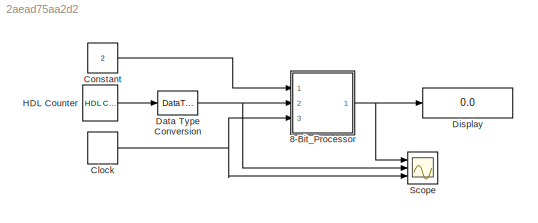
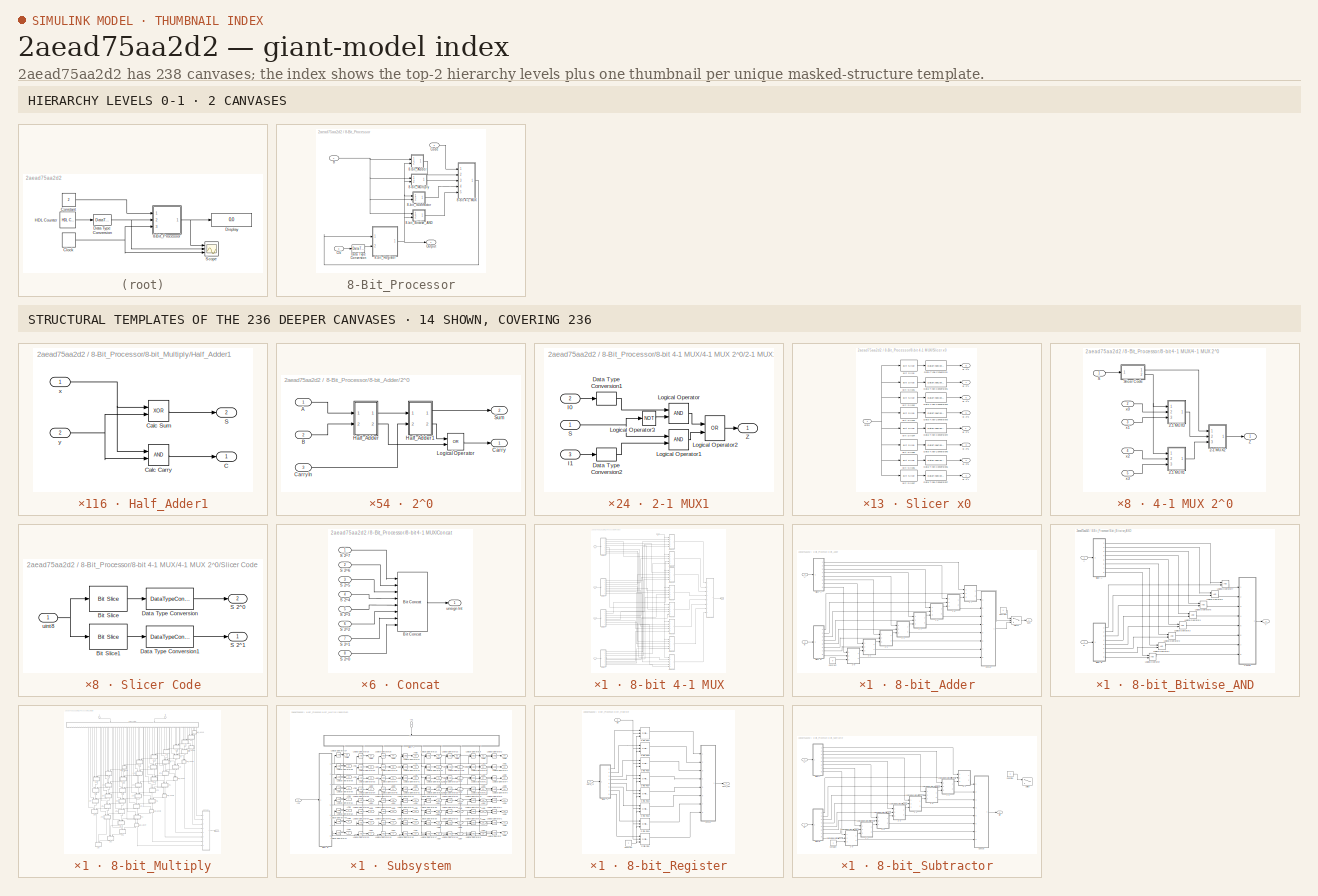
[diagram: thumbnail index - top-2 hierarchy levels (2 canvases) + 14 structural-template representatives of the remaining 236 canvases]
MODEL slx_2aead75aa2d2
KIND model
CONFIG AbsTol = auto
CONFIG EnableMultiTasking = off
CONFIG FixedStep = 1
CONFIG MaxStep = auto
CONFIG MinStep = auto
CONFIG RelTol = 1e-3
CONFIG SampleTimeConstraint = Unconstrained
CONFIG Solver = FixedStepDiscrete
CONFIG SolverName = FixedStepDiscrete
CONFIG StartTime = 0.0
CONFIG StopTime = 20.0
BLOCK [SubSystem] 8-Bit_Processor
  Ports = [3, 1]
  RequestExecContextInheritance = off
BLOCK [SubSystem] 8-Bit_Processor/8-bit 4-1 MUX
  Ports = [5, 1]
  RequestExecContextInheritance = off
BLOCK [SubSystem] 8-Bit_Processor/8-bit 4-1 MUX/4-1 MUX 2^0
  Ports = [5, 1]
  RequestExecContextInheritance = off
BLOCK [SubSystem] 8-Bit_Processor/8-bit 4-1 MUX/4-1 MUX 2^0/2-1 MUX1
  Ports = [3, 1]
  RequestExecContextInheritance = off
BLOCK [DataTypeConversion] 8-Bit_Processor/8-bit 4-1 MUX/4-1 MUX 2^0/2-1 MUX1/Data Type Conversion1
  OutDataTypeStr = boolean
  RndMeth = Floor
  SaturateOnIntegerOverflow = off
BLOCK [DataTypeConversion] 8-Bit_Processor/8-bit 4-1 MUX/4-1 MUX 2^0/2-1 MUX1/Data Type Conversion2
  OutDataTypeStr = boolean
  RndMeth = Floor
  SaturateOnIntegerOverflow = off
BLOCK [Inport] 8-Bit_Processor/8-bit 4-1 MUX/4-1 MUX 2^0/2-1 MUX1/I0
  IconDisplay = Port number
  Port = 2
BLOCK [Inport] 8-Bit_Processor/8-bit 4-1 MUX/4-1 MUX 2^0/2-1 MUX1/I1
  IconDisplay = Port number
  Port = 3
BLOCK [Logic] 8-Bit_Processor/8-bit 4-1 MUX/4-1 MUX 2^0/2-1 MUX1/Logical Operator
  AllPortsSameDT = off
  OutDataTypeStr = boolean
  Ports = [2, 1]
BLOCK [Logic] 8-Bit_Processor/8-bit 4-1 MUX/4-1 MUX 2^0/2-1 MUX1/Logical Operator1
  AllPortsSameDT = off
  OutDataTypeStr = boolean
  Ports = [2, 1]
BLOCK [Logic] 8-Bit_Processor/8-bit 4-1 MUX/4-1 MUX 2^0/2-1 MUX1/Logical Operator2
  AllPortsSameDT = off
  Operator = OR
  OutDataTypeStr = boolean
  Ports = [2, 1]
BLOCK [Logic] 8-Bit_Processor/8-bit 4-1 MUX/4-1 MUX 2^0/2-1 MUX1/Logical Operator3
  AllPortsSameDT = off
  Operator = NOT
  OutDataTypeStr = boolean
  Ports = [1, 1]
BLOCK [Inport] 8-Bit_Processor/8-bit 4-1 MUX/4-1 MUX 2^0/2-1 MUX1/S
  IconDisplay = Port number
BLOCK [Outport] 8-Bit_Processor/8-bit 4-1 MUX/4-1 MUX 2^0/2-1 MUX1/Z
  IconDisplay = Port number
BLOCK [SubSystem] 8-Bit_Processor/8-bit 4-1 MUX/4-1 MUX 2^0/2-1 MUX2
  Ports = [3, 1]
  RequestExecContextInheritance = off
BLOCK [DataTypeConversion] 8-Bit_Processor/8-bit 4-1 MUX/4-1 MUX 2^0/2-1 MUX2/Data Type Conversion1
  OutDataTypeStr = boolean
  RndMeth = Floor
  SaturateOnIntegerOverflow = off
BLOCK [DataTypeConversion] 8-Bit_Processor/8-bit 4-1 MUX/4-1 MUX 2^0/2-1 MUX2/Data Type Conversion2
  OutDataTypeStr = boolean
  RndMeth = Floor
  SaturateOnIntegerOverflow = off
BLOCK [Inport] 8-Bit_Processor/8-bit 4-1 MUX/4-1 MUX 2^0/2-1 MUX2/I0
  IconDisplay = Port number
  Port = 2
BLOCK [Inport] 8-Bit_Processor/8-bit 4-1 MUX/4-1 MUX 2^0/2-1 MUX2/I1
  IconDisplay = Port number
  Port = 3
BLOCK [Logic] 8-Bit_Processor/8-bit 4-1 MUX/4-1 MUX 2^0/2-1 MUX2/Logical Operator
  AllPortsSameDT = off
  OutDataTypeStr = boolean
  Ports = [2, 1]
BLOCK [Logic] 8-Bit_Processor/8-bit 4-1 MUX/4-1 MUX 2^0/2-1 MUX2/Logical Operator1
  AllPortsSameDT = off
  OutDataTypeStr = boolean
  Ports = [2, 1]
BLOCK [Logic] 8-Bit_Processor/8-bit 4-1 MUX/4-1 MUX 2^0/2-1 MUX2/Logical Operator2
  AllPortsSameDT = off
  Operator = OR
  OutDataTypeStr = boolean
  Ports = [2, 1]
BLOCK [Logic] 8-Bit_Processor/8-bit 4-1 MUX/4-1 MUX 2^0/2-1 MUX2/Logical Operator3
  AllPortsSameDT = off
  Operator = NOT
  OutDataTypeStr = boolean
  Ports = [1, 1]
BLOCK [Inport] 8-Bit_Processor/8-bit 4-1 MUX/4-1 MUX 2^0/2-1 MUX2/S
  IconDisplay = Port number
BLOCK [Outport] 8-Bit_Processor/8-bit 4-1 MUX/4-1 MUX 2^0/2-1 MUX2/Z
  IconDisplay = Port number
BLOCK [SubSystem] 8-Bit_Processor/8-bit 4-1 MUX/4-1 MUX 2^0/2-1 MUX3
  Ports = [3, 1]
  RequestExecContextInheritance = off
BLOCK [DataTypeConversion] 8-Bit_Processor/8-bit 4-1 MUX/4-1 MUX 2^0/2-1 MUX3/Data Type Conversion1
  OutDataTypeStr = boolean
  RndMeth = Floor
  SaturateOnIntegerOverflow = off
BLOCK [DataTypeConversion] 8-Bit_Processor/8-bit 4-1 MUX/4-1 MUX 2^0/2-1 MUX3/Data Type Conversion2
  OutDataTypeStr = boolean
  RndMeth = Floor
  SaturateOnIntegerOverflow = off
BLOCK [Inport] 8-Bit_Processor/8-bit 4-1 MUX/4-1 MUX 2^0/2-1 MUX3/I0
  IconDisplay = Port number
  Port = 2
BLOCK [Inport] 8-Bit_Processor/8-bit 4-1 MUX/4-1 MUX 2^0/2-1 MUX3/I1
  IconDisplay = Port number
  Port = 3
BLOCK [Logic] 8-Bit_Processor/8-bit 4-1 MUX/4-1 MUX 2^0/2-1 MUX3/Logical Operator
  AllPortsSameDT = off
  OutDataTypeStr = boolean
  Ports = [2, 1]
BLOCK [Logic] 8-Bit_Processor/8-bit 4-1 MUX/4-1 MUX 2^0/2-1 MUX3/Logical Operator1
  AllPortsSameDT = off
  OutDataTypeStr = boolean
  Ports = [2, 1]
BLOCK [Logic] 8-Bit_Processor/8-bit 4-1 MUX/4-1 MUX 2^0/2-1 MUX3/Logical Operator2
  AllPortsSameDT = off
  Operator = OR
  OutDataTypeStr = boolean
  Ports = [2, 1]
BLOCK [Logic] 8-Bit_Processor/8-bit 4-1 MUX/4-1 MUX 2^0/2-1 MUX3/Logical Operator3
  AllPortsSameDT = off
  Operator = NOT
  OutDataTypeStr = boolean
  Ports = [1, 1]
BLOCK [Inport] 8-Bit_Processor/8-bit 4-1 MUX/4-1 MUX 2^0/2-1 MUX3/S
  IconDisplay = Port number
BLOCK [Outport] 8-Bit_Processor/8-bit 4-1 MUX/4-1 MUX 2^0/2-1 MUX3/Z
  IconDisplay = Port number
BLOCK [Inport] 8-Bit_Processor/8-bit 4-1 MUX/4-1 MUX 2^0/S
  IconDisplay = Port number
  OutDataTypeStr = uint8
BLOCK [SubSystem] 8-Bit_Processor/8-bit 4-1 MUX/4-1 MUX 2^0/Slicer Code
  Ports = [1, 2]
  RequestExecContextInheritance = off
BLOCK [Reference] 8-Bit_Processor/8-bit 4-1 MUX/4-1 MUX 2^0/Slicer Code/Bit Slice  REF=hdlsllib/Logic and Bit
Operations/Bit Slice
  Ports = [1, 1]
  SourceBlock = hdlsllib/Logic and Bit\nOperations/Bit Slice
  SourceProductBaseCode = HD
  SourceProductName = HDL Coder
  SourceType = Bit Slice
BLOCK [Reference] 8-Bit_Processor/8-bit 4-1 MUX/4-1 MUX 2^0/Slicer Code/Bit Slice1  REF=hdlsllib/Logic and Bit
Operations/Bit Slice
  Ports = [1, 1]
  SourceBlock = hdlsllib/Logic and Bit\nOperations/Bit Slice
  SourceProductBaseCode = HD
  SourceProductName = HDL Coder
  SourceType = Bit Slice
BLOCK [DataTypeConversion] 8-Bit_Processor/8-bit 4-1 MUX/4-1 MUX 2^0/Slicer Code/Data Type Conversion
  OutDataTypeStr = boolean
  RndMeth = Floor
  SaturateOnIntegerOverflow = off
BLOCK [DataTypeConversion] 8-Bit_Processor/8-bit 4-1 MUX/4-1 MUX 2^0/Slicer Code/Data Type Conversion1
  OutDataTypeStr = boolean
  RndMeth = Floor
  SaturateOnIntegerOverflow = off
BLOCK [Outport] 8-Bit_Processor/8-bit 4-1 MUX/4-1 MUX 2^0/Slicer Code/S 2^0 
  IconDisplay = Port number
  Port = 2
BLOCK [Outport] 8-Bit_Processor/8-bit 4-1 MUX/4-1 MUX 2^0/Slicer Code/S 2^1
  IconDisplay = Port number
BLOCK [Inport] 8-Bit_Processor/8-bit 4-1 MUX/4-1 MUX 2^0/Slicer Code/uint8
  IconDisplay = Port number
  OutDataTypeStr = uint8
  SampleTime = 1
BLOCK [Outport] 8-Bit_Processor/8-bit 4-1 MUX/4-1 MUX 2^0/Z
  IconDisplay = Port number
BLOCK [Inport] 8-Bit_Processor/8-bit 4-1 MUX/4-1 MUX 2^0/x0
  IconDisplay = Port number
  OutDataTypeStr = boolean
  Port = 2
BLOCK [Inport] 8-Bit_Processor/8-bit 4-1 MUX/4-1 MUX 2^0/x1
  IconDisplay = Port number
  OutDataTypeStr = boolean
  Port = 3
BLOCK [Inport] 8-Bit_Processor/8-bit 4-1 MUX/4-1 MUX 2^0/x2
  IconDisplay = Port number
  OutDataTypeStr = boolean
  Port = 4
BLOCK [Inport] 8-Bit_Processor/8-bit 4-1 MUX/4-1 MUX 2^0/x3
  IconDisplay = Port number
  OutDataTypeStr = boolean
  Port = 5
BLOCK [SubSystem] 8-Bit_Processor/8-bit 4-1 MUX/4-1 MUX 2^1
  Ports = [5, 1]
  RequestExecContextInheritance = off
BLOCK [SubSystem] 8-Bit_Processor/8-bit 4-1 MUX/4-1 MUX 2^1/2-1 MUX1
  Ports = [3, 1]
  RequestExecContextInheritance = off
BLOCK [DataTypeConversion] 8-Bit_Processor/8-bit 4-1 MUX/4-1 MUX 2^1/2-1 MUX1/Data Type Conversion1
  OutDataTypeStr = boolean
  RndMeth = Floor
  SaturateOnIntegerOverflow = off
BLOCK [DataTypeConversion] 8-Bit_Processor/8-bit 4-1 MUX/4-1 MUX 2^1/2-1 MUX1/Data Type Conversion2
  OutDataTypeStr = boolean
  RndMeth = Floor
  SaturateOnIntegerOverflow = off
BLOCK [Inport] 8-Bit_Processor/8-bit 4-1 MUX/4-1 MUX 2^1/2-1 MUX1/I0
  IconDisplay = Port number
  Port = 2
BLOCK [Inport] 8-Bit_Processor/8-bit 4-1 MUX/4-1 MUX 2^1/2-1 MUX1/I1
  IconDisplay = Port number
  Port = 3
BLOCK [Logic] 8-Bit_Processor/8-bit 4-1 MUX/4-1 MUX 2^1/2-1 MUX1/Logical Operator
  AllPortsSameDT = off
  OutDataTypeStr = boolean
  Ports = [2, 1]
BLOCK [Logic] 8-Bit_Processor/8-bit 4-1 MUX/4-1 MUX 2^1/2-1 MUX1/Logical Operator1
  AllPortsSameDT = off
  OutDataTypeStr = boolean
  Ports = [2, 1]
BLOCK [Logic] 8-Bit_Processor/8-bit 4-1 MUX/4-1 MUX 2^1/2-1 MUX1/Logical Operator2
  AllPortsSameDT = off
  Operator = OR
  OutDataTypeStr = boolean
  Ports = [2, 1]
BLOCK [Logic] 8-Bit_Processor/8-bit 4-1 MUX/4-1 MUX 2^1/2-1 MUX1/Logical Operator3
  AllPortsSameDT = off
  Operator = NOT
  OutDataTypeStr = boolean
  Ports = [1, 1]
BLOCK [Inport] 8-Bit_Processor/8-bit 4-1 MUX/4-1 MUX 2^1/2-1 MUX1/S
  IconDisplay = Port number
BLOCK [Outport] 8-Bit_Processor/8-bit 4-1 MUX/4-1 MUX 2^1/2-1 MUX1/Z
  IconDisplay = Port number
BLOCK [SubSystem] 8-Bit_Processor/8-bit 4-1 MUX/4-1 MUX 2^1/2-1 MUX2
  Ports = [3, 1]
  RequestExecContextInheritance = off
BLOCK [DataTypeConversion] 8-Bit_Processor/8-bit 4-1 MUX/4-1 MUX 2^1/2-1 MUX2/Data Type Conversion1
  OutDataTypeStr = boolean
  RndMeth = Floor
  SaturateOnIntegerOverflow = off
BLOCK [DataTypeConversion] 8-Bit_Processor/8-bit 4-1 MUX/4-1 MUX 2^1/2-1 MUX2/Data Type Conversion2
  OutDataTypeStr = boolean
  RndMeth = Floor
  SaturateOnIntegerOverflow = off
BLOCK [Inport] 8-Bit_Processor/8-bit 4-1 MUX/4-1 MUX 2^1/2-1 MUX2/I0
  IconDisplay = Port number
  Port = 2
BLOCK [Inport] 8-Bit_Processor/8-bit 4-1 MUX/4-1 MUX 2^1/2-1 MUX2/I1
  IconDisplay = Port number
  Port = 3
BLOCK [Logic] 8-Bit_Processor/8-bit 4-1 MUX/4-1 MUX 2^1/2-1 MUX2/Logical Operator
  AllPortsSameDT = off
  OutDataTypeStr = boolean
  Ports = [2, 1]
BLOCK [Logic] 8-Bit_Processor/8-bit 4-1 MUX/4-1 MUX 2^1/2-1 MUX2/Logical Operator1
  AllPortsSameDT = off
  OutDataTypeStr = boolean
  Ports = [2, 1]
BLOCK [Logic] 8-Bit_Processor/8-bit 4-1 MUX/4-1 MUX 2^1/2-1 MUX2/Logical Operator2
  AllPortsSameDT = off
  Operator = OR
  OutDataTypeStr = boolean
  Ports = [2, 1]
BLOCK [Logic] 8-Bit_Processor/8-bit 4-1 MUX/4-1 MUX 2^1/2-1 MUX2/Logical Operator3
  AllPortsSameDT = off
  Operator = NOT
  OutDataTypeStr = boolean
  Ports = [1, 1]
BLOCK [Inport] 8-Bit_Processor/8-bit 4-1 MUX/4-1 MUX 2^1/2-1 MUX2/S
  IconDisplay = Port number
BLOCK [Outport] 8-Bit_Processor/8-bit 4-1 MUX/4-1 MUX 2^1/2-1 MUX2/Z
  IconDisplay = Port number
BLOCK [SubSystem] 8-Bit_Processor/8-bit 4-1 MUX/4-1 MUX 2^1/2-1 MUX3
  Ports = [3, 1]
  RequestExecContextInheritance = off
BLOCK [DataTypeConversion] 8-Bit_Processor/8-bit 4-1 MUX/4-1 MUX 2^1/2-1 MUX3/Data Type Conversion1
  OutDataTypeStr = boolean
  RndMeth = Floor
  SaturateOnIntegerOverflow = off
BLOCK [DataTypeConversion] 8-Bit_Processor/8-bit 4-1 MUX/4-1 MUX 2^1/2-1 MUX3/Data Type Conversion2
  OutDataTypeStr = boolean
  RndMeth = Floor
  SaturateOnIntegerOverflow = off
BLOCK [Inport] 8-Bit_Processor/8-bit 4-1 MUX/4-1 MUX 2^1/2-1 MUX3/I0
  IconDisplay = Port number
  Port = 2
BLOCK [Inport] 8-Bit_Processor/8-bit 4-1 MUX/4-1 MUX 2^1/2-1 MUX3/I1
  IconDisplay = Port number
  Port = 3
BLOCK [Logic] 8-Bit_Processor/8-bit 4-1 MUX/4-1 MUX 2^1/2-1 MUX3/Logical Operator
  AllPortsSameDT = off
  OutDataTypeStr = boolean
  Ports = [2, 1]
BLOCK [Logic] 8-Bit_Processor/8-bit 4-1 MUX/4-1 MUX 2^1/2-1 MUX3/Logical Operator1
  AllPortsSameDT = off
  OutDataTypeStr = boolean
  Ports = [2, 1]
BLOCK [Logic] 8-Bit_Processor/8-bit 4-1 MUX/4-1 MUX 2^1/2-1 MUX3/Logical Operator2
  AllPortsSameDT = off
  Operator = OR
  OutDataTypeStr = boolean
  Ports = [2, 1]
BLOCK [Logic] 8-Bit_Processor/8-bit 4-1 MUX/4-1 MUX 2^1/2-1 MUX3/Logical Operator3
  AllPortsSameDT = off
  Operator = NOT
  OutDataTypeStr = boolean
  Ports = [1, 1]
BLOCK [Inport] 8-Bit_Processor/8-bit 4-1 MUX/4-1 MUX 2^1/2-1 MUX3/S
  IconDisplay = Port number
BLOCK [Outport] 8-Bit_Processor/8-bit 4-1 MUX/4-1 MUX 2^1/2-1 MUX3/Z
  IconDisplay = Port number
BLOCK [Inport] 8-Bit_Processor/8-bit 4-1 MUX/4-1 MUX 2^1/S
  IconDisplay = Port number
  OutDataTypeStr = uint8
BLOCK [SubSystem] 8-Bit_Processor/8-bit 4-1 MUX/4-1 MUX 2^1/Slicer Code
  Ports = [1, 2]
  RequestExecContextInheritance = off
BLOCK [Reference] 8-Bit_Processor/8-bit 4-1 MUX/4-1 MUX 2^1/Slicer Code/Bit Slice  REF=hdlsllib/Logic and Bit
Operations/Bit Slice
  Ports = [1, 1]
  SourceBlock = hdlsllib/Logic and Bit\nOperations/Bit Slice
  SourceProductBaseCode = HD
  SourceProductName = HDL Coder
  SourceType = Bit Slice
BLOCK [Reference] 8-Bit_Processor/8-bit 4-1 MUX/4-1 MUX 2^1/Slicer Code/Bit Slice1  REF=hdlsllib/Logic and Bit
Operations/Bit Slice
  Ports = [1, 1]
  SourceBlock = hdlsllib/Logic and Bit\nOperations/Bit Slice
  SourceProductBaseCode = HD
  SourceProductName = HDL Coder
  SourceType = Bit Slice
BLOCK [DataTypeConversion] 8-Bit_Processor/8-bit 4-1 MUX/4-1 MUX 2^1/Slicer Code/Data Type Conversion
  OutDataTypeStr = boolean
  RndMeth = Floor
  SaturateOnIntegerOverflow = off
BLOCK [DataTypeConversion] 8-Bit_Processor/8-bit 4-1 MUX/4-1 MUX 2^1/Slicer Code/Data Type Conversion1
  OutDataTypeStr = boolean
  RndMeth = Floor
  SaturateOnIntegerOverflow = off
BLOCK [Outport] 8-Bit_Processor/8-bit 4-1 MUX/4-1 MUX 2^1/Slicer Code/S 2^0 
  IconDisplay = Port number
  Port = 2
BLOCK [Outport] 8-Bit_Processor/8-bit 4-1 MUX/4-1 MUX 2^1/Slicer Code/S 2^1
  IconDisplay = Port number
BLOCK [Inport] 8-Bit_Processor/8-bit 4-1 MUX/4-1 MUX 2^1/Slicer Code/uint8
  IconDisplay = Port number
  OutDataTypeStr = uint8
  SampleTime = 1
BLOCK [Outport] 8-Bit_Processor/8-bit 4-1 MUX/4-1 MUX 2^1/Z
  IconDisplay = Port number
BLOCK [Inport] 8-Bit_Processor/8-bit 4-1 MUX/4-1 MUX 2^1/x0
  IconDisplay = Port number
  OutDataTypeStr = boolean
  Port = 2
BLOCK [Inport] 8-Bit_Processor/8-bit 4-1 MUX/4-1 MUX 2^1/x1
  IconDisplay = Port number
  OutDataTypeStr = boolean
  Port = 3
BLOCK [Inport] 8-Bit_Processor/8-bit 4-1 MUX/4-1 MUX 2^1/x2
  IconDisplay = Port number
  OutDataTypeStr = boolean
  Port = 4
BLOCK [Inport] 8-Bit_Processor/8-bit 4-1 MUX/4-1 MUX 2^1/x3
  IconDisplay = Port number
  OutDataTypeStr = boolean
  Port = 5
BLOCK [SubSystem] 8-Bit_Processor/8-bit 4-1 MUX/4-1 MUX 2^2
  Ports = [5, 1]
  RequestExecContextInheritance = off
BLOCK [SubSystem] 8-Bit_Processor/8-bit 4-1 MUX/4-1 MUX 2^2/2-1 MUX1
  Ports = [3, 1]
  RequestExecContextInheritance = off
BLOCK [DataTypeConversion] 8-Bit_Processor/8-bit 4-1 MUX/4-1 MUX 2^2/2-1 MUX1/Data Type Conversion1
  OutDataTypeStr = boolean
  RndMeth = Floor
  SaturateOnIntegerOverflow = off
BLOCK [DataTypeConversion] 8-Bit_Processor/8-bit 4-1 MUX/4-1 MUX 2^2/2-1 MUX1/Data Type Conversion2
  OutDataTypeStr = boolean
  RndMeth = Floor
  SaturateOnIntegerOverflow = off
BLOCK [Inport] 8-Bit_Processor/8-bit 4-1 MUX/4-1 MUX 2^2/2-1 MUX1/I0
  IconDisplay = Port number
  Port = 2
BLOCK [Inport] 8-Bit_Processor/8-bit 4-1 MUX/4-1 MUX 2^2/2-1 MUX1/I1
  IconDisplay = Port number
  Port = 3
BLOCK [Logic] 8-Bit_Processor/8-bit 4-1 MUX/4-1 MUX 2^2/2-1 MUX1/Logical Operator
  AllPortsSameDT = off
  OutDataTypeStr = boolean
  Ports = [2, 1]
BLOCK [Logic] 8-Bit_Processor/8-bit 4-1 MUX/4-1 MUX 2^2/2-1 MUX1/Logical Operator1
  AllPortsSameDT = off
  OutDataTypeStr = boolean
  Ports = [2, 1]
BLOCK [Logic] 8-Bit_Processor/8-bit 4-1 MUX/4-1 MUX 2^2/2-1 MUX1/Logical Operator2
  AllPortsSameDT = off
  Operator = OR
  OutDataTypeStr = boolean
  Ports = [2, 1]
BLOCK [Logic] 8-Bit_Processor/8-bit 4-1 MUX/4-1 MUX 2^2/2-1 MUX1/Logical Operator3
  AllPortsSameDT = off
  Operator = NOT
  OutDataTypeStr = boolean
  Ports = [1, 1]
BLOCK [Inport] 8-Bit_Processor/8-bit 4-1 MUX/4-1 MUX 2^2/2-1 MUX1/S
  IconDisplay = Port number
BLOCK [Outport] 8-Bit_Processor/8-bit 4-1 MUX/4-1 MUX 2^2/2-1 MUX1/Z
  IconDisplay = Port number
BLOCK [SubSystem] 8-Bit_Processor/8-bit 4-1 MUX/4-1 MUX 2^2/2-1 MUX2
  Ports = [3, 1]
  RequestExecContextInheritance = off
BLOCK [DataTypeConversion] 8-Bit_Processor/8-bit 4-1 MUX/4-1 MUX 2^2/2-1 MUX2/Data Type Conversion1
  OutDataTypeStr = boolean
  RndMeth = Floor
  SaturateOnIntegerOverflow = off
BLOCK [DataTypeConversion] 8-Bit_Processor/8-bit 4-1 MUX/4-1 MUX 2^2/2-1 MUX2/Data Type Conversion2
  OutDataTypeStr = boolean
  RndMeth = Floor
  SaturateOnIntegerOverflow = off
BLOCK [Inport] 8-Bit_Processor/8-bit 4-1 MUX/4-1 MUX 2^2/2-1 MUX2/I0
  IconDisplay = Port number
  Port = 2
BLOCK [Inport] 8-Bit_Processor/8-bit 4-1 MUX/4-1 MUX 2^2/2-1 MUX2/I1
  IconDisplay = Port number
  Port = 3
BLOCK [Logic] 8-Bit_Processor/8-bit 4-1 MUX/4-1 MUX 2^2/2-1 MUX2/Logical Operator
  AllPortsSameDT = off
  OutDataTypeStr = boolean
  Ports = [2, 1]
BLOCK [Logic] 8-Bit_Processor/8-bit 4-1 MUX/4-1 MUX 2^2/2-1 MUX2/Logical Operator1
  AllPortsSameDT = off
  OutDataTypeStr = boolean
  Ports = [2, 1]
BLOCK [Logic] 8-Bit_Processor/8-bit 4-1 MUX/4-1 MUX 2^2/2-1 MUX2/Logical Operator2
  AllPortsSameDT = off
  Operator = OR
  OutDataTypeStr = boolean
  Ports = [2, 1]
BLOCK [Logic] 8-Bit_Processor/8-bit 4-1 MUX/4-1 MUX 2^2/2-1 MUX2/Logical Operator3
  AllPortsSameDT = off
  Operator = NOT
  OutDataTypeStr = boolean
  Ports = [1, 1]
BLOCK [Inport] 8-Bit_Processor/8-bit 4-1 MUX/4-1 MUX 2^2/2-1 MUX2/S
  IconDisplay = Port number
BLOCK [Outport] 8-Bit_Processor/8-bit 4-1 MUX/4-1 MUX 2^2/2-1 MUX2/Z
  IconDisplay = Port number
BLOCK [SubSystem] 8-Bit_Processor/8-bit 4-1 MUX/4-1 MUX 2^2/2-1 MUX3
  Ports = [3, 1]
  RequestExecContextInheritance = off
BLOCK [DataTypeConversion] 8-Bit_Processor/8-bit 4-1 MUX/4-1 MUX 2^2/2-1 MUX3/Data Type Conversion1
  OutDataTypeStr = boolean
  RndMeth = Floor
  SaturateOnIntegerOverflow = off
BLOCK [DataTypeConversion] 8-Bit_Processor/8-bit 4-1 MUX/4-1 MUX 2^2/2-1 MUX3/Data Type Conversion2
  OutDataTypeStr = boolean
  RndMeth = Floor
  SaturateOnIntegerOverflow = off
BLOCK [Inport] 8-Bit_Processor/8-bit 4-1 MUX/4-1 MUX 2^2/2-1 MUX3/I0
  IconDisplay = Port number
  Port = 2
BLOCK [Inport] 8-Bit_Processor/8-bit 4-1 MUX/4-1 MUX 2^2/2-1 MUX3/I1
  IconDisplay = Port number
  Port = 3
BLOCK [Logic] 8-Bit_Processor/8-bit 4-1 MUX/4-1 MUX 2^2/2-1 MUX3/Logical Operator
  AllPortsSameDT = off
  OutDataTypeStr = boolean
  Ports = [2, 1]
BLOCK [Logic] 8-Bit_Processor/8-bit 4-1 MUX/4-1 MUX 2^2/2-1 MUX3/Logical Operator1
  AllPortsSameDT = off
  OutDataTypeStr = boolean
  Ports = [2, 1]
BLOCK [Logic] 8-Bit_Processor/8-bit 4-1 MUX/4-1 MUX 2^2/2-1 MUX3/Logical Operator2
  AllPortsSameDT = off
  Operator = OR
  OutDataTypeStr = boolean
  Ports = [2, 1]
BLOCK [Logic] 8-Bit_Processor/8-bit 4-1 MUX/4-1 MUX 2^2/2-1 MUX3/Logical Operator3
  AllPortsSameDT = off
  Operator = NOT
  OutDataTypeStr = boolean
  Ports = [1, 1]
BLOCK [Inport] 8-Bit_Processor/8-bit 4-1 MUX/4-1 MUX 2^2/2-1 MUX3/S
  IconDisplay = Port number
BLOCK [Outport] 8-Bit_Processor/8-bit 4-1 MUX/4-1 MUX 2^2/2-1 MUX3/Z
  IconDisplay = Port number
BLOCK [Inport] 8-Bit_Processor/8-bit 4-1 MUX/4-1 MUX 2^2/S
  IconDisplay = Port number
  OutDataTypeStr = uint8
BLOCK [SubSystem] 8-Bit_Processor/8-bit 4-1 MUX/4-1 MUX 2^2/Slicer Code
  Ports = [1, 2]
  RequestExecContextInheritance = off
BLOCK [Reference] 8-Bit_Processor/8-bit 4-1 MUX/4-1 MUX 2^2/Slicer Code/Bit Slice  REF=hdlsllib/Logic and Bit
Operations/Bit Slice
  Ports = [1, 1]
  SourceBlock = hdlsllib/Logic and Bit\nOperations/Bit Slice
  SourceProductBaseCode = HD
  SourceProductName = HDL Coder
  SourceType = Bit Slice
BLOCK [Reference] 8-Bit_Processor/8-bit 4-1 MUX/4-1 MUX 2^2/Slicer Code/Bit Slice1  REF=hdlsllib/Logic and Bit
Operations/Bit Slice
  Ports = [1, 1]
  SourceBlock = hdlsllib/Logic and Bit\nOperations/Bit Slice
  SourceProductBaseCode = HD
  SourceProductName = HDL Coder
  SourceType = Bit Slice
BLOCK [DataTypeConversion] 8-Bit_Processor/8-bit 4-1 MUX/4-1 MUX 2^2/Slicer Code/Data Type Conversion
  OutDataTypeStr = boolean
  RndMeth = Floor
  SaturateOnIntegerOverflow = off
BLOCK [DataTypeConversion] 8-Bit_Processor/8-bit 4-1 MUX/4-1 MUX 2^2/Slicer Code/Data Type Conversion1
  OutDataTypeStr = boolean
  RndMeth = Floor
  SaturateOnIntegerOverflow = off
BLOCK [Outport] 8-Bit_Processor/8-bit 4-1 MUX/4-1 MUX 2^2/Slicer Code/S 2^0 
  IconDisplay = Port number
  Port = 2
BLOCK [Outport] 8-Bit_Processor/8-bit 4-1 MUX/4-1 MUX 2^2/Slicer Code/S 2^1
  IconDisplay = Port number
BLOCK [Inport] 8-Bit_Processor/8-bit 4-1 MUX/4-1 MUX 2^2/Slicer Code/uint8
  IconDisplay = Port number
  OutDataTypeStr = uint8
  SampleTime = 1
BLOCK [Outport] 8-Bit_Processor/8-bit 4-1 MUX/4-1 MUX 2^2/Z
  IconDisplay = Port number
BLOCK [Inport] 8-Bit_Processor/8-bit 4-1 MUX/4-1 MUX 2^2/x0
  IconDisplay = Port number
  OutDataTypeStr = boolean
  Port = 2
BLOCK [Inport] 8-Bit_Processor/8-bit 4-1 MUX/4-1 MUX 2^2/x1
  IconDisplay = Port number
  OutDataTypeStr = boolean
  Port = 3
BLOCK [Inport] 8-Bit_Processor/8-bit 4-1 MUX/4-1 MUX 2^2/x2
  IconDisplay = Port number
  OutDataTypeStr = boolean
  Port = 4
BLOCK [Inport] 8-Bit_Processor/8-bit 4-1 MUX/4-1 MUX 2^2/x3
  IconDisplay = Port number
  OutDataTypeStr = boolean
  Port = 5
BLOCK [SubSystem] 8-Bit_Processor/8-bit 4-1 MUX/4-1 MUX 2^3
  Ports = [5, 1]
  RequestExecContextInheritance = off
BLOCK [SubSystem] 8-Bit_Processor/8-bit 4-1 MUX/4-1 MUX 2^3/2-1 MUX1
  Ports = [3, 1]
  RequestExecContextInheritance = off
BLOCK [DataTypeConversion] 8-Bit_Processor/8-bit 4-1 MUX/4-1 MUX 2^3/2-1 MUX1/Data Type Conversion1
  OutDataTypeStr = boolean
  RndMeth = Floor
  SaturateOnIntegerOverflow = off
BLOCK [DataTypeConversion] 8-Bit_Processor/8-bit 4-1 MUX/4-1 MUX 2^3/2-1 MUX1/Data Type Conversion2
  OutDataTypeStr = boolean
  RndMeth = Floor
  SaturateOnIntegerOverflow = off
BLOCK [Inport] 8-Bit_Processor/8-bit 4-1 MUX/4-1 MUX 2^3/2-1 MUX1/I0
  IconDisplay = Port number
  Port = 2
BLOCK [Inport] 8-Bit_Processor/8-bit 4-1 MUX/4-1 MUX 2^3/2-1 MUX1/I1
  IconDisplay = Port number
  Port = 3
BLOCK [Logic] 8-Bit_Processor/8-bit 4-1 MUX/4-1 MUX 2^3/2-1 MUX1/Logical Operator
  AllPortsSameDT = off
  OutDataTypeStr = boolean
  Ports = [2, 1]
BLOCK [Logic] 8-Bit_Processor/8-bit 4-1 MUX/4-1 MUX 2^3/2-1 MUX1/Logical Operator1
  AllPortsSameDT = off
  OutDataTypeStr = boolean
  Ports = [2, 1]
BLOCK [Logic] 8-Bit_Processor/8-bit 4-1 MUX/4-1 MUX 2^3/2-1 MUX1/Logical Operator2
  AllPortsSameDT = off
  Operator = OR
  OutDataTypeStr = boolean
  Ports = [2, 1]
BLOCK [Logic] 8-Bit_Processor/8-bit 4-1 MUX/4-1 MUX 2^3/2-1 MUX1/Logical Operator3
  AllPortsSameDT = off
  Operator = NOT
  OutDataTypeStr = boolean
  Ports = [1, 1]
BLOCK [Inport] 8-Bit_Processor/8-bit 4-1 MUX/4-1 MUX 2^3/2-1 MUX1/S
  IconDisplay = Port number
BLOCK [Outport] 8-Bit_Processor/8-bit 4-1 MUX/4-1 MUX 2^3/2-1 MUX1/Z
  IconDisplay = Port number
BLOCK [SubSystem] 8-Bit_Processor/8-bit 4-1 MUX/4-1 MUX 2^3/2-1 MUX2
  Ports = [3, 1]
  RequestExecContextInheritance = off
BLOCK [DataTypeConversion] 8-Bit_Processor/8-bit 4-1 MUX/4-1 MUX 2^3/2-1 MUX2/Data Type Conversion1
  OutDataTypeStr = boolean
  RndMeth = Floor
  SaturateOnIntegerOverflow = off
BLOCK [DataTypeConversion] 8-Bit_Processor/8-bit 4-1 MUX/4-1 MUX 2^3/2-1 MUX2/Data Type Conversion2
  OutDataTypeStr = boolean
  RndMeth = Floor
  SaturateOnIntegerOverflow = off
BLOCK [Inport] 8-Bit_Processor/8-bit 4-1 MUX/4-1 MUX 2^3/2-1 MUX2/I0
  IconDisplay = Port number
  Port = 2
BLOCK [Inport] 8-Bit_Processor/8-bit 4-1 MUX/4-1 MUX 2^3/2-1 MUX2/I1
  IconDisplay = Port number
  Port = 3
BLOCK [Logic] 8-Bit_Processor/8-bit 4-1 MUX/4-1 MUX 2^3/2-1 MUX2/Logical Operator
  AllPortsSameDT = off
  OutDataTypeStr = boolean
  Ports = [2, 1]
BLOCK [Logic] 8-Bit_Processor/8-bit 4-1 MUX/4-1 MUX 2^3/2-1 MUX2/Logical Operator1
  AllPortsSameDT = off
  OutDataTypeStr = boolean
  Ports = [2, 1]
BLOCK [Logic] 8-Bit_Processor/8-bit 4-1 MUX/4-1 MUX 2^3/2-1 MUX2/Logical Operator2
  AllPortsSameDT = off
  Operator = OR
  OutDataTypeStr = boolean
  Ports = [2, 1]
BLOCK [Logic] 8-Bit_Processor/8-bit 4-1 MUX/4-1 MUX 2^3/2-1 MUX2/Logical Operator3
  AllPortsSameDT = off
  Operator = NOT
  OutDataTypeStr = boolean
  Ports = [1, 1]
BLOCK [Inport] 8-Bit_Processor/8-bit 4-1 MUX/4-1 MUX 2^3/2-1 MUX2/S
  IconDisplay = Port number
BLOCK [Outport] 8-Bit_Processor/8-bit 4-1 MUX/4-1 MUX 2^3/2-1 MUX2/Z
  IconDisplay = Port number
BLOCK [SubSystem] 8-Bit_Processor/8-bit 4-1 MUX/4-1 MUX 2^3/2-1 MUX3
  Ports = [3, 1]
  RequestExecContextInheritance = off
BLOCK [DataTypeConversion] 8-Bit_Processor/8-bit 4-1 MUX/4-1 MUX 2^3/2-1 MUX3/Data Type Conversion1
  OutDataTypeStr = boolean
  RndMeth = Floor
  SaturateOnIntegerOverflow = off
BLOCK [DataTypeConversion] 8-Bit_Processor/8-bit 4-1 MUX/4-1 MUX 2^3/2-1 MUX3/Data Type Conversion2
  OutDataTypeStr = boolean
  RndMeth = Floor
  SaturateOnIntegerOverflow = off
BLOCK [Inport] 8-Bit_Processor/8-bit 4-1 MUX/4-1 MUX 2^3/2-1 MUX3/I0
  IconDisplay = Port number
  Port = 2
BLOCK [Inport] 8-Bit_Processor/8-bit 4-1 MUX/4-1 MUX 2^3/2-1 MUX3/I1
  IconDisplay = Port number
  Port = 3
BLOCK [Logic] 8-Bit_Processor/8-bit 4-1 MUX/4-1 MUX 2^3/2-1 MUX3/Logical Operator
  AllPortsSameDT = off
  OutDataTypeStr = boolean
  Ports = [2, 1]
BLOCK [Logic] 8-Bit_Processor/8-bit 4-1 MUX/4-1 MUX 2^3/2-1 MUX3/Logical Operator1
  AllPortsSameDT = off
  OutDataTypeStr = boolean
  Ports = [2, 1]
BLOCK [Logic] 8-Bit_Processor/8-bit 4-1 MUX/4-1 MUX 2^3/2-1 MUX3/Logical Operator2
  AllPortsSameDT = off
  Operator = OR
  OutDataTypeStr = boolean
  Ports = [2, 1]
BLOCK [Logic] 8-Bit_Processor/8-bit 4-1 MUX/4-1 MUX 2^3/2-1 MUX3/Logical Operator3
  AllPortsSameDT = off
  Operator = NOT
  OutDataTypeStr = boolean
  Ports = [1, 1]
BLOCK [Inport] 8-Bit_Processor/8-bit 4-1 MUX/4-1 MUX 2^3/2-1 MUX3/S
  IconDisplay = Port number
BLOCK [Outport] 8-Bit_Processor/8-bit 4-1 MUX/4-1 MUX 2^3/2-1 MUX3/Z
  IconDisplay = Port number
BLOCK [Inport] 8-Bit_Processor/8-bit 4-1 MUX/4-1 MUX 2^3/S
  IconDisplay = Port number
  OutDataTypeStr = uint8
BLOCK [SubSystem] 8-Bit_Processor/8-bit 4-1 MUX/4-1 MUX 2^3/Slicer Code
  Ports = [1, 2]
  RequestExecContextInheritance = off
BLOCK [Reference] 8-Bit_Processor/8-bit 4-1 MUX/4-1 MUX 2^3/Slicer Code/Bit Slice  REF=hdlsllib/Logic and Bit
Operations/Bit Slice
  Ports = [1, 1]
  SourceBlock = hdlsllib/Logic and Bit\nOperations/Bit Slice
  SourceProductBaseCode = HD
  SourceProductName = HDL Coder
  SourceType = Bit Slice
BLOCK [Reference] 8-Bit_Processor/8-bit 4-1 MUX/4-1 MUX 2^3/Slicer Code/Bit Slice1  REF=hdlsllib/Logic and Bit
Operations/Bit Slice
  Ports = [1, 1]
  SourceBlock = hdlsllib/Logic and Bit\nOperations/Bit Slice
  SourceProductBaseCode = HD
  SourceProductName = HDL Coder
  SourceType = Bit Slice
BLOCK [DataTypeConversion] 8-Bit_Processor/8-bit 4-1 MUX/4-1 MUX 2^3/Slicer Code/Data Type Conversion
  OutDataTypeStr = boolean
  RndMeth = Floor
  SaturateOnIntegerOverflow = off
BLOCK [DataTypeConversion] 8-Bit_Processor/8-bit 4-1 MUX/4-1 MUX 2^3/Slicer Code/Data Type Conversion1
  OutDataTypeStr = boolean
  RndMeth = Floor
  SaturateOnIntegerOverflow = off
BLOCK [Outport] 8-Bit_Processor/8-bit 4-1 MUX/4-1 MUX 2^3/Slicer Code/S 2^0 
  IconDisplay = Port number
  Port = 2
BLOCK [Outport] 8-Bit_Processor/8-bit 4-1 MUX/4-1 MUX 2^3/Slicer Code/S 2^1
  IconDisplay = Port number
BLOCK [Inport] 8-Bit_Processor/8-bit 4-1 MUX/4-1 MUX 2^3/Slicer Code/uint8
  IconDisplay = Port number
  OutDataTypeStr = uint8
  SampleTime = 1
BLOCK [Outport] 8-Bit_Processor/8-bit 4-1 MUX/4-1 MUX 2^3/Z
  IconDisplay = Port number
BLOCK [Inport] 8-Bit_Processor/8-bit 4-1 MUX/4-1 MUX 2^3/x0
  IconDisplay = Port number
  OutDataTypeStr = boolean
  Port = 2
BLOCK [Inport] 8-Bit_Processor/8-bit 4-1 MUX/4-1 MUX 2^3/x1
  IconDisplay = Port number
  OutDataTypeStr = boolean
  Port = 3
BLOCK [Inport] 8-Bit_Processor/8-bit 4-1 MUX/4-1 MUX 2^3/x2
  IconDisplay = Port number
  OutDataTypeStr = boolean
  Port = 4
BLOCK [Inport] 8-Bit_Processor/8-bit 4-1 MUX/4-1 MUX 2^3/x3
  IconDisplay = Port number
  OutDataTypeStr = boolean
  Port = 5
BLOCK [SubSystem] 8-Bit_Processor/8-bit 4-1 MUX/4-1 MUX 2^4
  Ports = [5, 1]
  RequestExecContextInheritance = off
BLOCK [SubSystem] 8-Bit_Processor/8-bit 4-1 MUX/4-1 MUX 2^4/2-1 MUX1
  Ports = [3, 1]
  RequestExecContextInheritance = off
BLOCK [DataTypeConversion] 8-Bit_Processor/8-bit 4-1 MUX/4-1 MUX 2^4/2-1 MUX1/Data Type Conversion1
  OutDataTypeStr = boolean
  RndMeth = Floor
  SaturateOnIntegerOverflow = off
BLOCK [DataTypeConversion] 8-Bit_Processor/8-bit 4-1 MUX/4-1 MUX 2^4/2-1 MUX1/Data Type Conversion2
  OutDataTypeStr = boolean
  RndMeth = Floor
  SaturateOnIntegerOverflow = off
BLOCK [Inport] 8-Bit_Processor/8-bit 4-1 MUX/4-1 MUX 2^4/2-1 MUX1/I0
  IconDisplay = Port number
  Port = 2
BLOCK [Inport] 8-Bit_Processor/8-bit 4-1 MUX/4-1 MUX 2^4/2-1 MUX1/I1
  IconDisplay = Port number
  Port = 3
BLOCK [Logic] 8-Bit_Processor/8-bit 4-1 MUX/4-1 MUX 2^4/2-1 MUX1/Logical Operator
  AllPortsSameDT = off
  OutDataTypeStr = boolean
  Ports = [2, 1]
BLOCK [Logic] 8-Bit_Processor/8-bit 4-1 MUX/4-1 MUX 2^4/2-1 MUX1/Logical Operator1
  AllPortsSameDT = off
  OutDataTypeStr = boolean
  Ports = [2, 1]
BLOCK [Logic] 8-Bit_Processor/8-bit 4-1 MUX/4-1 MUX 2^4/2-1 MUX1/Logical Operator2
  AllPortsSameDT = off
  Operator = OR
  OutDataTypeStr = boolean
  Ports = [2, 1]
BLOCK [Logic] 8-Bit_Processor/8-bit 4-1 MUX/4-1 MUX 2^4/2-1 MUX1/Logical Operator3
  AllPortsSameDT = off
  Operator = NOT
  OutDataTypeStr = boolean
  Ports = [1, 1]
BLOCK [Inport] 8-Bit_Processor/8-bit 4-1 MUX/4-1 MUX 2^4/2-1 MUX1/S
  IconDisplay = Port number
BLOCK [Outport] 8-Bit_Processor/8-bit 4-1 MUX/4-1 MUX 2^4/2-1 MUX1/Z
  IconDisplay = Port number
BLOCK [SubSystem] 8-Bit_Processor/8-bit 4-1 MUX/4-1 MUX 2^4/2-1 MUX2
  Ports = [3, 1]
  RequestExecContextInheritance = off
BLOCK [DataTypeConversion] 8-Bit_Processor/8-bit 4-1 MUX/4-1 MUX 2^4/2-1 MUX2/Data Type Conversion1
  OutDataTypeStr = boolean
  RndMeth = Floor
  SaturateOnIntegerOverflow = off
BLOCK [DataTypeConversion] 8-Bit_Processor/8-bit 4-1 MUX/4-1 MUX 2^4/2-1 MUX2/Data Type Conversion2
  OutDataTypeStr = boolean
  RndMeth = Floor
  SaturateOnIntegerOverflow = off
BLOCK [Inport] 8-Bit_Processor/8-bit 4-1 MUX/4-1 MUX 2^4/2-1 MUX2/I0
  IconDisplay = Port number
  Port = 2
BLOCK [Inport] 8-Bit_Processor/8-bit 4-1 MUX/4-1 MUX 2^4/2-1 MUX2/I1
  IconDisplay = Port number
  Port = 3
BLOCK [Logic] 8-Bit_Processor/8-bit 4-1 MUX/4-1 MUX 2^4/2-1 MUX2/Logical Operator
  AllPortsSameDT = off
  OutDataTypeStr = boolean
  Ports = [2, 1]
BLOCK [Logic] 8-Bit_Processor/8-bit 4-1 MUX/4-1 MUX 2^4/2-1 MUX2/Logical Operator1
  AllPortsSameDT = off
  OutDataTypeStr = boolean
  Ports = [2, 1]
BLOCK [Logic] 8-Bit_Processor/8-bit 4-1 MUX/4-1 MUX 2^4/2-1 MUX2/Logical Operator2
  AllPortsSameDT = off
  Operator = OR
  OutDataTypeStr = boolean
  Ports = [2, 1]
BLOCK [Logic] 8-Bit_Processor/8-bit 4-1 MUX/4-1 MUX 2^4/2-1 MUX2/Logical Operator3
  AllPortsSameDT = off
  Operator = NOT
  OutDataTypeStr = boolean
  Ports = [1, 1]
BLOCK [Inport] 8-Bit_Processor/8-bit 4-1 MUX/4-1 MUX 2^4/2-1 MUX2/S
  IconDisplay = Port number
BLOCK [Outport] 8-Bit_Processor/8-bit 4-1 MUX/4-1 MUX 2^4/2-1 MUX2/Z
  IconDisplay = Port number
BLOCK [SubSystem] 8-Bit_Processor/8-bit 4-1 MUX/4-1 MUX 2^4/2-1 MUX3
  Ports = [3, 1]
  RequestExecContextInheritance = off
BLOCK [DataTypeConversion] 8-Bit_Processor/8-bit 4-1 MUX/4-1 MUX 2^4/2-1 MUX3/Data Type Conversion1
  OutDataTypeStr = boolean
  RndMeth = Floor
  SaturateOnIntegerOverflow = off
BLOCK [DataTypeConversion] 8-Bit_Processor/8-bit 4-1 MUX/4-1 MUX 2^4/2-1 MUX3/Data Type Conversion2
  OutDataTypeStr = boolean
  RndMeth = Floor
  SaturateOnIntegerOverflow = off
BLOCK [Inport] 8-Bit_Processor/8-bit 4-1 MUX/4-1 MUX 2^4/2-1 MUX3/I0
  IconDisplay = Port number
  Port = 2
BLOCK [Inport] 8-Bit_Processor/8-bit 4-1 MUX/4-1 MUX 2^4/2-1 MUX3/I1
  IconDisplay = Port number
  Port = 3
BLOCK [Logic] 8-Bit_Processor/8-bit 4-1 MUX/4-1 MUX 2^4/2-1 MUX3/Logical Operator
  AllPortsSameDT = off
  OutDataTypeStr = boolean
  Ports = [2, 1]
BLOCK [Logic] 8-Bit_Processor/8-bit 4-1 MUX/4-1 MUX 2^4/2-1 MUX3/Logical Operator1
  AllPortsSameDT = off
  OutDataTypeStr = boolean
  Ports = [2, 1]
BLOCK [Logic] 8-Bit_Processor/8-bit 4-1 MUX/4-1 MUX 2^4/2-1 MUX3/Logical Operator2
  AllPortsSameDT = off
  Operator = OR
  OutDataTypeStr = boolean
  Ports = [2, 1]
BLOCK [Logic] 8-Bit_Processor/8-bit 4-1 MUX/4-1 MUX 2^4/2-1 MUX3/Logical Operator3
  AllPortsSameDT = off
  Operator = NOT
  OutDataTypeStr = boolean
  Ports = [1, 1]
BLOCK [Inport] 8-Bit_Processor/8-bit 4-1 MUX/4-1 MUX 2^4/2-1 MUX3/S
  IconDisplay = Port number
BLOCK [Outport] 8-Bit_Processor/8-bit 4-1 MUX/4-1 MUX 2^4/2-1 MUX3/Z
  IconDisplay = Port number
BLOCK [Inport] 8-Bit_Processor/8-bit 4-1 MUX/4-1 MUX 2^4/S
  IconDisplay = Port number
  OutDataTypeStr = uint8
BLOCK [SubSystem] 8-Bit_Processor/8-bit 4-1 MUX/4-1 MUX 2^4/Slicer Code
  Ports = [1, 2]
  RequestExecContextInheritance = off
BLOCK [Reference] 8-Bit_Processor/8-bit 4-1 MUX/4-1 MUX 2^4/Slicer Code/Bit Slice  REF=hdlsllib/Logic and Bit
Operations/Bit Slice
  Ports = [1, 1]
  SourceBlock = hdlsllib/Logic and Bit\nOperations/Bit Slice
  SourceProductBaseCode = HD
  SourceProductName = HDL Coder
  SourceType = Bit Slice
BLOCK [Reference] 8-Bit_Processor/8-bit 4-1 MUX/4-1 MUX 2^4/Slicer Code/Bit Slice1  REF=hdlsllib/Logic and Bit
Operations/Bit Slice
  Ports = [1, 1]
  SourceBlock = hdlsllib/Logic and Bit\nOperations/Bit Slice
  SourceProductBaseCode = HD
  SourceProductName = HDL Coder
  SourceType = Bit Slice
BLOCK [DataTypeConversion] 8-Bit_Processor/8-bit 4-1 MUX/4-1 MUX 2^4/Slicer Code/Data Type Conversion
  OutDataTypeStr = boolean
  RndMeth = Floor
  SaturateOnIntegerOverflow = off
BLOCK [DataTypeConversion] 8-Bit_Processor/8-bit 4-1 MUX/4-1 MUX 2^4/Slicer Code/Data Type Conversion1
  OutDataTypeStr = boolean
  RndMeth = Floor
  SaturateOnIntegerOverflow = off
BLOCK [Outport] 8-Bit_Processor/8-bit 4-1 MUX/4-1 MUX 2^4/Slicer Code/S 2^0 
  IconDisplay = Port number
  Port = 2
BLOCK [Outport] 8-Bit_Processor/8-bit 4-1 MUX/4-1 MUX 2^4/Slicer Code/S 2^1
  IconDisplay = Port number
BLOCK [Inport] 8-Bit_Processor/8-bit 4-1 MUX/4-1 MUX 2^4/Slicer Code/uint8
  IconDisplay = Port number
  OutDataTypeStr = uint8
  SampleTime = 1
BLOCK [Outport] 8-Bit_Processor/8-bit 4-1 MUX/4-1 MUX 2^4/Z
  IconDisplay = Port number
BLOCK [Inport] 8-Bit_Processor/8-bit 4-1 MUX/4-1 MUX 2^4/x0
  IconDisplay = Port number
  OutDataTypeStr = boolean
  Port = 2
BLOCK [Inport] 8-Bit_Processor/8-bit 4-1 MUX/4-1 MUX 2^4/x1
  IconDisplay = Port number
  OutDataTypeStr = boolean
  Port = 3
BLOCK [Inport] 8-Bit_Processor/8-bit 4-1 MUX/4-1 MUX 2^4/x2
  IconDisplay = Port number
  OutDataTypeStr = boolean
  Port = 4
BLOCK [Inport] 8-Bit_Processor/8-bit 4-1 MUX/4-1 MUX 2^4/x3
  IconDisplay = Port number
  OutDataTypeStr = boolean
  Port = 5
BLOCK [SubSystem] 8-Bit_Processor/8-bit 4-1 MUX/4-1 MUX 2^5
  Ports = [5, 1]
  RequestExecContextInheritance = off
BLOCK [SubSystem] 8-Bit_Processor/8-bit 4-1 MUX/4-1 MUX 2^5/2-1 MUX1
  Ports = [3, 1]
  RequestExecContextInheritance = off
BLOCK [DataTypeConversion] 8-Bit_Processor/8-bit 4-1 MUX/4-1 MUX 2^5/2-1 MUX1/Data Type Conversion1
  OutDataTypeStr = boolean
  RndMeth = Floor
  SaturateOnIntegerOverflow = off
BLOCK [DataTypeConversion] 8-Bit_Processor/8-bit 4-1 MUX/4-1 MUX 2^5/2-1 MUX1/Data Type Conversion2
  OutDataTypeStr = boolean
  RndMeth = Floor
  SaturateOnIntegerOverflow = off
BLOCK [Inport] 8-Bit_Processor/8-bit 4-1 MUX/4-1 MUX 2^5/2-1 MUX1/I0
  IconDisplay = Port number
  Port = 2
BLOCK [Inport] 8-Bit_Processor/8-bit 4-1 MUX/4-1 MUX 2^5/2-1 MUX1/I1
  IconDisplay = Port number
  Port = 3
BLOCK [Logic] 8-Bit_Processor/8-bit 4-1 MUX/4-1 MUX 2^5/2-1 MUX1/Logical Operator
  AllPortsSameDT = off
  OutDataTypeStr = boolean
  Ports = [2, 1]
BLOCK [Logic] 8-Bit_Processor/8-bit 4-1 MUX/4-1 MUX 2^5/2-1 MUX1/Logical Operator1
  AllPortsSameDT = off
  OutDataTypeStr = boolean
  Ports = [2, 1]
BLOCK [Logic] 8-Bit_Processor/8-bit 4-1 MUX/4-1 MUX 2^5/2-1 MUX1/Logical Operator2
  AllPortsSameDT = off
  Operator = OR
  OutDataTypeStr = boolean
  Ports = [2, 1]
BLOCK [Logic] 8-Bit_Processor/8-bit 4-1 MUX/4-1 MUX 2^5/2-1 MUX1/Logical Operator3
  AllPortsSameDT = off
  Operator = NOT
  OutDataTypeStr = boolean
  Ports = [1, 1]
BLOCK [Inport] 8-Bit_Processor/8-bit 4-1 MUX/4-1 MUX 2^5/2-1 MUX1/S
  IconDisplay = Port number
BLOCK [Outport] 8-Bit_Processor/8-bit 4-1 MUX/4-1 MUX 2^5/2-1 MUX1/Z
  IconDisplay = Port number
BLOCK [SubSystem] 8-Bit_Processor/8-bit 4-1 MUX/4-1 MUX 2^5/2-1 MUX2
  Ports = [3, 1]
  RequestExecContextInheritance = off
BLOCK [DataTypeConversion] 8-Bit_Processor/8-bit 4-1 MUX/4-1 MUX 2^5/2-1 MUX2/Data Type Conversion1
  OutDataTypeStr = boolean
  RndMeth = Floor
  SaturateOnIntegerOverflow = off
BLOCK [DataTypeConversion] 8-Bit_Processor/8-bit 4-1 MUX/4-1 MUX 2^5/2-1 MUX2/Data Type Conversion2
  OutDataTypeStr = boolean
  RndMeth = Floor
  SaturateOnIntegerOverflow = off
BLOCK [Inport] 8-Bit_Processor/8-bit 4-1 MUX/4-1 MUX 2^5/2-1 MUX2/I0
  IconDisplay = Port number
  Port = 2
BLOCK [Inport] 8-Bit_Processor/8-bit 4-1 MUX/4-1 MUX 2^5/2-1 MUX2/I1
  IconDisplay = Port number
  Port = 3
BLOCK [Logic] 8-Bit_Processor/8-bit 4-1 MUX/4-1 MUX 2^5/2-1 MUX2/Logical Operator
  AllPortsSameDT = off
  OutDataTypeStr = boolean
  Ports = [2, 1]
BLOCK [Logic] 8-Bit_Processor/8-bit 4-1 MUX/4-1 MUX 2^5/2-1 MUX2/Logical Operator1
  AllPortsSameDT = off
  OutDataTypeStr = boolean
  Ports = [2, 1]
BLOCK [Logic] 8-Bit_Processor/8-bit 4-1 MUX/4-1 MUX 2^5/2-1 MUX2/Logical Operator2
  AllPortsSameDT = off
  Operator = OR
  OutDataTypeStr = boolean
  Ports = [2, 1]
BLOCK [Logic] 8-Bit_Processor/8-bit 4-1 MUX/4-1 MUX 2^5/2-1 MUX2/Logical Operator3
  AllPortsSameDT = off
  Operator = NOT
  OutDataTypeStr = boolean
  Ports = [1, 1]
BLOCK [Inport] 8-Bit_Processor/8-bit 4-1 MUX/4-1 MUX 2^5/2-1 MUX2/S
  IconDisplay = Port number
BLOCK [Outport] 8-Bit_Processor/8-bit 4-1 MUX/4-1 MUX 2^5/2-1 MUX2/Z
  IconDisplay = Port number
BLOCK [SubSystem] 8-Bit_Processor/8-bit 4-1 MUX/4-1 MUX 2^5/2-1 MUX3
  Ports = [3, 1]
  RequestExecContextInheritance = off
BLOCK [DataTypeConversion] 8-Bit_Processor/8-bit 4-1 MUX/4-1 MUX 2^5/2-1 MUX3/Data Type Conversion1
  OutDataTypeStr = boolean
  RndMeth = Floor
  SaturateOnIntegerOverflow = off
BLOCK [DataTypeConversion] 8-Bit_Processor/8-bit 4-1 MUX/4-1 MUX 2^5/2-1 MUX3/Data Type Conversion2
  OutDataTypeStr = boolean
  RndMeth = Floor
  SaturateOnIntegerOverflow = off
BLOCK [Inport] 8-Bit_Processor/8-bit 4-1 MUX/4-1 MUX 2^5/2-1 MUX3/I0
  IconDisplay = Port number
  Port = 2
BLOCK [Inport] 8-Bit_Processor/8-bit 4-1 MUX/4-1 MUX 2^5/2-1 MUX3/I1
  IconDisplay = Port number
  Port = 3
BLOCK [Logic] 8-Bit_Processor/8-bit 4-1 MUX/4-1 MUX 2^5/2-1 MUX3/Logical Operator
  AllPortsSameDT = off
  OutDataTypeStr = boolean
  Ports = [2, 1]
BLOCK [Logic] 8-Bit_Processor/8-bit 4-1 MUX/4-1 MUX 2^5/2-1 MUX3/Logical Operator1
  AllPortsSameDT = off
  OutDataTypeStr = boolean
  Ports = [2, 1]
BLOCK [Logic] 8-Bit_Processor/8-bit 4-1 MUX/4-1 MUX 2^5/2-1 MUX3/Logical Operator2
  AllPortsSameDT = off
  Operator = OR
  OutDataTypeStr = boolean
  Ports = [2, 1]
BLOCK [Logic] 8-Bit_Processor/8-bit 4-1 MUX/4-1 MUX 2^5/2-1 MUX3/Logical Operator3
  AllPortsSameDT = off
  Operator = NOT
  OutDataTypeStr = boolean
  Ports = [1, 1]
BLOCK [Inport] 8-Bit_Processor/8-bit 4-1 MUX/4-1 MUX 2^5/2-1 MUX3/S
  IconDisplay = Port number
BLOCK [Outport] 8-Bit_Processor/8-bit 4-1 MUX/4-1 MUX 2^5/2-1 MUX3/Z
  IconDisplay = Port number
BLOCK [Inport] 8-Bit_Processor/8-bit 4-1 MUX/4-1 MUX 2^5/S
  IconDisplay = Port number
  OutDataTypeStr = uint8
BLOCK [SubSystem] 8-Bit_Processor/8-bit 4-1 MUX/4-1 MUX 2^5/Slicer Code
  Ports = [1, 2]
  RequestExecContextInheritance = off
BLOCK [Reference] 8-Bit_Processor/8-bit 4-1 MUX/4-1 MUX 2^5/Slicer Code/Bit Slice  REF=hdlsllib/Logic and Bit
Operations/Bit Slice
  Ports = [1, 1]
  SourceBlock = hdlsllib/Logic and Bit\nOperations/Bit Slice
  SourceProductBaseCode = HD
  SourceProductName = HDL Coder
  SourceType = Bit Slice
BLOCK [Reference] 8-Bit_Processor/8-bit 4-1 MUX/4-1 MUX 2^5/Slicer Code/Bit Slice1  REF=hdlsllib/Logic and Bit
Operations/Bit Slice
  Ports = [1, 1]
  SourceBlock = hdlsllib/Logic and Bit\nOperations/Bit Slice
  SourceProductBaseCode = HD
  SourceProductName = HDL Coder
  SourceType = Bit Slice
BLOCK [DataTypeConversion] 8-Bit_Processor/8-bit 4-1 MUX/4-1 MUX 2^5/Slicer Code/Data Type Conversion
  OutDataTypeStr = boolean
  RndMeth = Floor
  SaturateOnIntegerOverflow = off
BLOCK [DataTypeConversion] 8-Bit_Processor/8-bit 4-1 MUX/4-1 MUX 2^5/Slicer Code/Data Type Conversion1
  OutDataTypeStr = boolean
  RndMeth = Floor
  SaturateOnIntegerOverflow = off
BLOCK [Outport] 8-Bit_Processor/8-bit 4-1 MUX/4-1 MUX 2^5/Slicer Code/S 2^0 
  IconDisplay = Port number
  Port = 2
BLOCK [Outport] 8-Bit_Processor/8-bit 4-1 MUX/4-1 MUX 2^5/Slicer Code/S 2^1
  IconDisplay = Port number
BLOCK [Inport] 8-Bit_Processor/8-bit 4-1 MUX/4-1 MUX 2^5/Slicer Code/uint8
  IconDisplay = Port number
  OutDataTypeStr = uint8
  SampleTime = 1
BLOCK [Outport] 8-Bit_Processor/8-bit 4-1 MUX/4-1 MUX 2^5/Z
  IconDisplay = Port number
BLOCK [Inport] 8-Bit_Processor/8-bit 4-1 MUX/4-1 MUX 2^5/x0
  IconDisplay = Port number
  OutDataTypeStr = boolean
  Port = 2
BLOCK [Inport] 8-Bit_Processor/8-bit 4-1 MUX/4-1 MUX 2^5/x1
  IconDisplay = Port number
  OutDataTypeStr = boolean
  Port = 3
BLOCK [Inport] 8-Bit_Processor/8-bit 4-1 MUX/4-1 MUX 2^5/x2
  IconDisplay = Port number
  OutDataTypeStr = boolean
  Port = 4
BLOCK [Inport] 8-Bit_Processor/8-bit 4-1 MUX/4-1 MUX 2^5/x3
  IconDisplay = Port number
  OutDataTypeStr = boolean
  Port = 5
BLOCK [SubSystem] 8-Bit_Processor/8-bit 4-1 MUX/4-1 MUX 2^6
  Ports = [5, 1]
  RequestExecContextInheritance = off
BLOCK [SubSystem] 8-Bit_Processor/8-bit 4-1 MUX/4-1 MUX 2^6/2-1 MUX1
  Ports = [3, 1]
  RequestExecContextInheritance = off
BLOCK [DataTypeConversion] 8-Bit_Processor/8-bit 4-1 MUX/4-1 MUX 2^6/2-1 MUX1/Data Type Conversion1
  OutDataTypeStr = boolean
  RndMeth = Floor
  SaturateOnIntegerOverflow = off
BLOCK [DataTypeConversion] 8-Bit_Processor/8-bit 4-1 MUX/4-1 MUX 2^6/2-1 MUX1/Data Type Conversion2
  OutDataTypeStr = boolean
  RndMeth = Floor
  SaturateOnIntegerOverflow = off
BLOCK [Inport] 8-Bit_Processor/8-bit 4-1 MUX/4-1 MUX 2^6/2-1 MUX1/I0
  IconDisplay = Port number
  Port = 2
BLOCK [Inport] 8-Bit_Processor/8-bit 4-1 MUX/4-1 MUX 2^6/2-1 MUX1/I1
  IconDisplay = Port number
  Port = 3
BLOCK [Logic] 8-Bit_Processor/8-bit 4-1 MUX/4-1 MUX 2^6/2-1 MUX1/Logical Operator
  AllPortsSameDT = off
  OutDataTypeStr = boolean
  Ports = [2, 1]
BLOCK [Logic] 8-Bit_Processor/8-bit 4-1 MUX/4-1 MUX 2^6/2-1 MUX1/Logical Operator1
  AllPortsSameDT = off
  OutDataTypeStr = boolean
  Ports = [2, 1]
BLOCK [Logic] 8-Bit_Processor/8-bit 4-1 MUX/4-1 MUX 2^6/2-1 MUX1/Logical Operator2
  AllPortsSameDT = off
  Operator = OR
  OutDataTypeStr = boolean
  Ports = [2, 1]
BLOCK [Logic] 8-Bit_Processor/8-bit 4-1 MUX/4-1 MUX 2^6/2-1 MUX1/Logical Operator3
  AllPortsSameDT = off
  Operator = NOT
  OutDataTypeStr = boolean
  Ports = [1, 1]
BLOCK [Inport] 8-Bit_Processor/8-bit 4-1 MUX/4-1 MUX 2^6/2-1 MUX1/S
  IconDisplay = Port number
BLOCK [Outport] 8-Bit_Processor/8-bit 4-1 MUX/4-1 MUX 2^6/2-1 MUX1/Z
  IconDisplay = Port number
BLOCK [SubSystem] 8-Bit_Processor/8-bit 4-1 MUX/4-1 MUX 2^6/2-1 MUX2
  Ports = [3, 1]
  RequestExecContextInheritance = off
BLOCK [DataTypeConversion] 8-Bit_Processor/8-bit 4-1 MUX/4-1 MUX 2^6/2-1 MUX2/Data Type Conversion1
  OutDataTypeStr = boolean
  RndMeth = Floor
  SaturateOnIntegerOverflow = off
BLOCK [DataTypeConversion] 8-Bit_Processor/8-bit 4-1 MUX/4-1 MUX 2^6/2-1 MUX2/Data Type Conversion2
  OutDataTypeStr = boolean
  RndMeth = Floor
  SaturateOnIntegerOverflow = off
BLOCK [Inport] 8-Bit_Processor/8-bit 4-1 MUX/4-1 MUX 2^6/2-1 MUX2/I0
  IconDisplay = Port number
  Port = 2
BLOCK [Inport] 8-Bit_Processor/8-bit 4-1 MUX/4-1 MUX 2^6/2-1 MUX2/I1
  IconDisplay = Port number
  Port = 3
BLOCK [Logic] 8-Bit_Processor/8-bit 4-1 MUX/4-1 MUX 2^6/2-1 MUX2/Logical Operator
  AllPortsSameDT = off
  OutDataTypeStr = boolean
  Ports = [2, 1]
BLOCK [Logic] 8-Bit_Processor/8-bit 4-1 MUX/4-1 MUX 2^6/2-1 MUX2/Logical Operator1
  AllPortsSameDT = off
  OutDataTypeStr = boolean
  Ports = [2, 1]
BLOCK [Logic] 8-Bit_Processor/8-bit 4-1 MUX/4-1 MUX 2^6/2-1 MUX2/Logical Operator2
  AllPortsSameDT = off
  Operator = OR
  OutDataTypeStr = boolean
  Ports = [2, 1]
BLOCK [Logic] 8-Bit_Processor/8-bit 4-1 MUX/4-1 MUX 2^6/2-1 MUX2/Logical Operator3
  AllPortsSameDT = off
  Operator = NOT
  OutDataTypeStr = boolean
  Ports = [1, 1]
BLOCK [Inport] 8-Bit_Processor/8-bit 4-1 MUX/4-1 MUX 2^6/2-1 MUX2/S
  IconDisplay = Port number
BLOCK [Outport] 8-Bit_Processor/8-bit 4-1 MUX/4-1 MUX 2^6/2-1 MUX2/Z
  IconDisplay = Port number
BLOCK [SubSystem] 8-Bit_Processor/8-bit 4-1 MUX/4-1 MUX 2^6/2-1 MUX3
  Ports = [3, 1]
  RequestExecContextInheritance = off
BLOCK [DataTypeConversion] 8-Bit_Processor/8-bit 4-1 MUX/4-1 MUX 2^6/2-1 MUX3/Data Type Conversion1
  OutDataTypeStr = boolean
  RndMeth = Floor
  SaturateOnIntegerOverflow = off
BLOCK [DataTypeConversion] 8-Bit_Processor/8-bit 4-1 MUX/4-1 MUX 2^6/2-1 MUX3/Data Type Conversion2
  OutDataTypeStr = boolean
  RndMeth = Floor
  SaturateOnIntegerOverflow = off
BLOCK [Inport] 8-Bit_Processor/8-bit 4-1 MUX/4-1 MUX 2^6/2-1 MUX3/I0
  IconDisplay = Port number
  Port = 2
BLOCK [Inport] 8-Bit_Processor/8-bit 4-1 MUX/4-1 MUX 2^6/2-1 MUX3/I1
  IconDisplay = Port number
  Port = 3
BLOCK [Logic] 8-Bit_Processor/8-bit 4-1 MUX/4-1 MUX 2^6/2-1 MUX3/Logical Operator
  AllPortsSameDT = off
  OutDataTypeStr = boolean
  Ports = [2, 1]
BLOCK [Logic] 8-Bit_Processor/8-bit 4-1 MUX/4-1 MUX 2^6/2-1 MUX3/Logical Operator1
  AllPortsSameDT = off
  OutDataTypeStr = boolean
  Ports = [2, 1]
BLOCK [Logic] 8-Bit_Processor/8-bit 4-1 MUX/4-1 MUX 2^6/2-1 MUX3/Logical Operator2
  AllPortsSameDT = off
  Operator = OR
  OutDataTypeStr = boolean
  Ports = [2, 1]
BLOCK [Logic] 8-Bit_Processor/8-bit 4-1 MUX/4-1 MUX 2^6/2-1 MUX3/Logical Operator3
  AllPortsSameDT = off
  Operator = NOT
  OutDataTypeStr = boolean
  Ports = [1, 1]
BLOCK [Inport] 8-Bit_Processor/8-bit 4-1 MUX/4-1 MUX 2^6/2-1 MUX3/S
  IconDisplay = Port number
BLOCK [Outport] 8-Bit_Processor/8-bit 4-1 MUX/4-1 MUX 2^6/2-1 MUX3/Z
  IconDisplay = Port number
BLOCK [Inport] 8-Bit_Processor/8-bit 4-1 MUX/4-1 MUX 2^6/S
  IconDisplay = Port number
  OutDataTypeStr = uint8
BLOCK [SubSystem] 8-Bit_Processor/8-bit 4-1 MUX/4-1 MUX 2^6/Slicer Code
  Ports = [1, 2]
  RequestExecContextInheritance = off
BLOCK [Reference] 8-Bit_Processor/8-bit 4-1 MUX/4-1 MUX 2^6/Slicer Code/Bit Slice  REF=hdlsllib/Logic and Bit
Operations/Bit Slice
  Ports = [1, 1]
  SourceBlock = hdlsllib/Logic and Bit\nOperations/Bit Slice
  SourceProductBaseCode = HD
  SourceProductName = HDL Coder
  SourceType = Bit Slice
BLOCK [Reference] 8-Bit_Processor/8-bit 4-1 MUX/4-1 MUX 2^6/Slicer Code/Bit Slice1  REF=hdlsllib/Logic and Bit
Operations/Bit Slice
  Ports = [1, 1]
  SourceBlock = hdlsllib/Logic and Bit\nOperations/Bit Slice
  SourceProductBaseCode = HD
  SourceProductName = HDL Coder
  SourceType = Bit Slice
BLOCK [DataTypeConversion] 8-Bit_Processor/8-bit 4-1 MUX/4-1 MUX 2^6/Slicer Code/Data Type Conversion
  OutDataTypeStr = boolean
  RndMeth = Floor
  SaturateOnIntegerOverflow = off
BLOCK [DataTypeConversion] 8-Bit_Processor/8-bit 4-1 MUX/4-1 MUX 2^6/Slicer Code/Data Type Conversion1
  OutDataTypeStr = boolean
  RndMeth = Floor
  SaturateOnIntegerOverflow = off
BLOCK [Outport] 8-Bit_Processor/8-bit 4-1 MUX/4-1 MUX 2^6/Slicer Code/S 2^0 
  IconDisplay = Port number
  Port = 2
BLOCK [Outport] 8-Bit_Processor/8-bit 4-1 MUX/4-1 MUX 2^6/Slicer Code/S 2^1
  IconDisplay = Port number
BLOCK [Inport] 8-Bit_Processor/8-bit 4-1 MUX/4-1 MUX 2^6/Slicer Code/uint8
  IconDisplay = Port number
  OutDataTypeStr = uint8
  SampleTime = 1
BLOCK [Outport] 8-Bit_Processor/8-bit 4-1 MUX/4-1 MUX 2^6/Z
  IconDisplay = Port number
BLOCK [Inport] 8-Bit_Processor/8-bit 4-1 MUX/4-1 MUX 2^6/x0
  IconDisplay = Port number
  OutDataTypeStr = boolean
  Port = 2
BLOCK [Inport] 8-Bit_Processor/8-bit 4-1 MUX/4-1 MUX 2^6/x1
  IconDisplay = Port number
  OutDataTypeStr = boolean
  Port = 3
BLOCK [Inport] 8-Bit_Processor/8-bit 4-1 MUX/4-1 MUX 2^6/x2
  IconDisplay = Port number
  OutDataTypeStr = boolean
  Port = 4
BLOCK [Inport] 8-Bit_Processor/8-bit 4-1 MUX/4-1 MUX 2^6/x3
  IconDisplay = Port number
  OutDataTypeStr = boolean
  Port = 5
BLOCK [SubSystem] 8-Bit_Processor/8-bit 4-1 MUX/4-1 MUX 2^7
  Ports = [5, 1]
  RequestExecContextInheritance = off
BLOCK [SubSystem] 8-Bit_Processor/8-bit 4-1 MUX/4-1 MUX 2^7/2-1 MUX1
  Ports = [3, 1]
  RequestExecContextInheritance = off
BLOCK [DataTypeConversion] 8-Bit_Processor/8-bit 4-1 MUX/4-1 MUX 2^7/2-1 MUX1/Data Type Conversion1
  OutDataTypeStr = boolean
  RndMeth = Floor
  SaturateOnIntegerOverflow = off
BLOCK [DataTypeConversion] 8-Bit_Processor/8-bit 4-1 MUX/4-1 MUX 2^7/2-1 MUX1/Data Type Conversion2
  OutDataTypeStr = boolean
  RndMeth = Floor
  SaturateOnIntegerOverflow = off
BLOCK [Inport] 8-Bit_Processor/8-bit 4-1 MUX/4-1 MUX 2^7/2-1 MUX1/I0
  IconDisplay = Port number
  Port = 2
BLOCK [Inport] 8-Bit_Processor/8-bit 4-1 MUX/4-1 MUX 2^7/2-1 MUX1/I1
  IconDisplay = Port number
  Port = 3
BLOCK [Logic] 8-Bit_Processor/8-bit 4-1 MUX/4-1 MUX 2^7/2-1 MUX1/Logical Operator
  AllPortsSameDT = off
  OutDataTypeStr = boolean
  Ports = [2, 1]
BLOCK [Logic] 8-Bit_Processor/8-bit 4-1 MUX/4-1 MUX 2^7/2-1 MUX1/Logical Operator1
  AllPortsSameDT = off
  OutDataTypeStr = boolean
  Ports = [2, 1]
BLOCK [Logic] 8-Bit_Processor/8-bit 4-1 MUX/4-1 MUX 2^7/2-1 MUX1/Logical Operator2
  AllPortsSameDT = off
  Operator = OR
  OutDataTypeStr = boolean
  Ports = [2, 1]
BLOCK [Logic] 8-Bit_Processor/8-bit 4-1 MUX/4-1 MUX 2^7/2-1 MUX1/Logical Operator3
  AllPortsSameDT = off
  Operator = NOT
  OutDataTypeStr = boolean
  Ports = [1, 1]
BLOCK [Inport] 8-Bit_Processor/8-bit 4-1 MUX/4-1 MUX 2^7/2-1 MUX1/S
  IconDisplay = Port number
BLOCK [Outport] 8-Bit_Processor/8-bit 4-1 MUX/4-1 MUX 2^7/2-1 MUX1/Z
  IconDisplay = Port number
BLOCK [SubSystem] 8-Bit_Processor/8-bit 4-1 MUX/4-1 MUX 2^7/2-1 MUX2
  Ports = [3, 1]
  RequestExecContextInheritance = off
BLOCK [DataTypeConversion] 8-Bit_Processor/8-bit 4-1 MUX/4-1 MUX 2^7/2-1 MUX2/Data Type Conversion1
  OutDataTypeStr = boolean
  RndMeth = Floor
  SaturateOnIntegerOverflow = off
BLOCK [DataTypeConversion] 8-Bit_Processor/8-bit 4-1 MUX/4-1 MUX 2^7/2-1 MUX2/Data Type Conversion2
  OutDataTypeStr = boolean
  RndMeth = Floor
  SaturateOnIntegerOverflow = off
BLOCK [Inport] 8-Bit_Processor/8-bit 4-1 MUX/4-1 MUX 2^7/2-1 MUX2/I0
  IconDisplay = Port number
  Port = 2
BLOCK [Inport] 8-Bit_Processor/8-bit 4-1 MUX/4-1 MUX 2^7/2-1 MUX2/I1
  IconDisplay = Port number
  Port = 3
BLOCK [Logic] 8-Bit_Processor/8-bit 4-1 MUX/4-1 MUX 2^7/2-1 MUX2/Logical Operator
  AllPortsSameDT = off
  OutDataTypeStr = boolean
  Ports = [2, 1]
BLOCK [Logic] 8-Bit_Processor/8-bit 4-1 MUX/4-1 MUX 2^7/2-1 MUX2/Logical Operator1
  AllPortsSameDT = off
  OutDataTypeStr = boolean
  Ports = [2, 1]
BLOCK [Logic] 8-Bit_Processor/8-bit 4-1 MUX/4-1 MUX 2^7/2-1 MUX2/Logical Operator2
  AllPortsSameDT = off
  Operator = OR
  OutDataTypeStr = boolean
  Ports = [2, 1]
BLOCK [Logic] 8-Bit_Processor/8-bit 4-1 MUX/4-1 MUX 2^7/2-1 MUX2/Logical Operator3
  AllPortsSameDT = off
  Operator = NOT
  OutDataTypeStr = boolean
  Ports = [1, 1]
BLOCK [Inport] 8-Bit_Processor/8-bit 4-1 MUX/4-1 MUX 2^7/2-1 MUX2/S
  IconDisplay = Port number
BLOCK [Outport] 8-Bit_Processor/8-bit 4-1 MUX/4-1 MUX 2^7/2-1 MUX2/Z
  IconDisplay = Port number
BLOCK [SubSystem] 8-Bit_Processor/8-bit 4-1 MUX/4-1 MUX 2^7/2-1 MUX3
  Ports = [3, 1]
  RequestExecContextInheritance = off
BLOCK [DataTypeConversion] 8-Bit_Processor/8-bit 4-1 MUX/4-1 MUX 2^7/2-1 MUX3/Data Type Conversion1
  OutDataTypeStr = boolean
  RndMeth = Floor
  SaturateOnIntegerOverflow = off
BLOCK [DataTypeConversion] 8-Bit_Processor/8-bit 4-1 MUX/4-1 MUX 2^7/2-1 MUX3/Data Type Conversion2
  OutDataTypeStr = boolean
  RndMeth = Floor
  SaturateOnIntegerOverflow = off
BLOCK [Inport] 8-Bit_Processor/8-bit 4-1 MUX/4-1 MUX 2^7/2-1 MUX3/I0
  IconDisplay = Port number
  Port = 2
BLOCK [Inport] 8-Bit_Processor/8-bit 4-1 MUX/4-1 MUX 2^7/2-1 MUX3/I1
  IconDisplay = Port number
  Port = 3
BLOCK [Logic] 8-Bit_Processor/8-bit 4-1 MUX/4-1 MUX 2^7/2-1 MUX3/Logical Operator
  AllPortsSameDT = off
  OutDataTypeStr = boolean
  Ports = [2, 1]
BLOCK [Logic] 8-Bit_Processor/8-bit 4-1 MUX/4-1 MUX 2^7/2-1 MUX3/Logical Operator1
  AllPortsSameDT = off
  OutDataTypeStr = boolean
  Ports = [2, 1]
BLOCK [Logic] 8-Bit_Processor/8-bit 4-1 MUX/4-1 MUX 2^7/2-1 MUX3/Logical Operator2
  AllPortsSameDT = off
  Operator = OR
  OutDataTypeStr = boolean
  Ports = [2, 1]
BLOCK [Logic] 8-Bit_Processor/8-bit 4-1 MUX/4-1 MUX 2^7/2-1 MUX3/Logical Operator3
  AllPortsSameDT = off
  Operator = NOT
  OutDataTypeStr = boolean
  Ports = [1, 1]
BLOCK [Inport] 8-Bit_Processor/8-bit 4-1 MUX/4-1 MUX 2^7/2-1 MUX3/S
  IconDisplay = Port number
BLOCK [Outport] 8-Bit_Processor/8-bit 4-1 MUX/4-1 MUX 2^7/2-1 MUX3/Z
  IconDisplay = Port number
BLOCK [Inport] 8-Bit_Processor/8-bit 4-1 MUX/4-1 MUX 2^7/S
  IconDisplay = Port number
  OutDataTypeStr = uint8
BLOCK [SubSystem] 8-Bit_Processor/8-bit 4-1 MUX/4-1 MUX 2^7/Slicer Code
  Ports = [1, 2]
  RequestExecContextInheritance = off
BLOCK [Reference] 8-Bit_Processor/8-bit 4-1 MUX/4-1 MUX 2^7/Slicer Code/Bit Slice  REF=hdlsllib/Logic and Bit
Operations/Bit Slice
  Ports = [1, 1]
  SourceBlock = hdlsllib/Logic and Bit\nOperations/Bit Slice
  SourceProductBaseCode = HD
  SourceProductName = HDL Coder
  SourceType = Bit Slice
BLOCK [Reference] 8-Bit_Processor/8-bit 4-1 MUX/4-1 MUX 2^7/Slicer Code/Bit Slice1  REF=hdlsllib/Logic and Bit
Operations/Bit Slice
  Ports = [1, 1]
  SourceBlock = hdlsllib/Logic and Bit\nOperations/Bit Slice
  SourceProductBaseCode = HD
  SourceProductName = HDL Coder
  SourceType = Bit Slice
BLOCK [DataTypeConversion] 8-Bit_Processor/8-bit 4-1 MUX/4-1 MUX 2^7/Slicer Code/Data Type Conversion
  OutDataTypeStr = boolean
  RndMeth = Floor
  SaturateOnIntegerOverflow = off
BLOCK [DataTypeConversion] 8-Bit_Processor/8-bit 4-1 MUX/4-1 MUX 2^7/Slicer Code/Data Type Conversion1
  OutDataTypeStr = boolean
  RndMeth = Floor
  SaturateOnIntegerOverflow = off
BLOCK [Outport] 8-Bit_Processor/8-bit 4-1 MUX/4-1 MUX 2^7/Slicer Code/S 2^0 
  IconDisplay = Port number
  Port = 2
BLOCK [Outport] 8-Bit_Processor/8-bit 4-1 MUX/4-1 MUX 2^7/Slicer Code/S 2^1
  IconDisplay = Port number
BLOCK [Inport] 8-Bit_Processor/8-bit 4-1 MUX/4-1 MUX 2^7/Slicer Code/uint8
  IconDisplay = Port number
  OutDataTypeStr = uint8
  SampleTime = 1
BLOCK [Outport] 8-Bit_Processor/8-bit 4-1 MUX/4-1 MUX 2^7/Z
  IconDisplay = Port number
BLOCK [Inport] 8-Bit_Processor/8-bit 4-1 MUX/4-1 MUX 2^7/x0
  IconDisplay = Port number
  OutDataTypeStr = boolean
  Port = 2
BLOCK [Inport] 8-Bit_Processor/8-bit 4-1 MUX/4-1 MUX 2^7/x1
  IconDisplay = Port number
  OutDataTypeStr = boolean
  Port = 3
BLOCK [Inport] 8-Bit_Processor/8-bit 4-1 MUX/4-1 MUX 2^7/x2
  IconDisplay = Port number
  OutDataTypeStr = boolean
  Port = 4
BLOCK [Inport] 8-Bit_Processor/8-bit 4-1 MUX/4-1 MUX 2^7/x3
  IconDisplay = Port number
  OutDataTypeStr = boolean
  Port = 5
BLOCK [SubSystem] 8-Bit_Processor/8-bit 4-1 MUX/Concat
  Ports = [8, 1]
  RequestExecContextInheritance = off
BLOCK [Reference] 8-Bit_Processor/8-bit 4-1 MUX/Concat/Bit Concat  REF=hdlsllib/Logic and Bit
Operations/Bit Concat
  Ports = [8, 1]
  SourceBlock = hdlsllib/Logic and Bit\nOperations/Bit Concat
  SourceProductBaseCode = HD
  SourceProductName = HDL Coder
  SourceType = Bit Concat
BLOCK [Inport] 8-Bit_Processor/8-bit 4-1 MUX/Concat/S 2^0
  IconDisplay = Port number
  Port = 8
BLOCK [Inport] 8-Bit_Processor/8-bit 4-1 MUX/Concat/S 2^1
  IconDisplay = Port number
  Port = 7
BLOCK [Inport] 8-Bit_Processor/8-bit 4-1 MUX/Concat/S 2^2
  IconDisplay = Port number
  Port = 6
BLOCK [Inport] 8-Bit_Processor/8-bit 4-1 MUX/Concat/S 2^3
  IconDisplay = Port number
  Port = 5
BLOCK [Inport] 8-Bit_Processor/8-bit 4-1 MUX/Concat/S 2^4
  IconDisplay = Port number
  Port = 4
BLOCK [Inport] 8-Bit_Processor/8-bit 4-1 MUX/Concat/S 2^5
  IconDisplay = Port number
  Port = 3
BLOCK [Inport] 8-Bit_Processor/8-bit 4-1 MUX/Concat/S 2^6
  IconDisplay = Port number
  Port = 2
BLOCK [Inport] 8-Bit_Processor/8-bit 4-1 MUX/Concat/S 2^7
  IconDisplay = Port number
BLOCK [Outport] 8-Bit_Processor/8-bit 4-1 MUX/Concat/unsign Int
  IconDisplay = Port number
BLOCK [Outport] 8-Bit_Processor/8-bit 4-1 MUX/Out1
  IconDisplay = Port number
BLOCK [Inport] 8-Bit_Processor/8-bit 4-1 MUX/S
  IconDisplay = Port number
BLOCK [SubSystem] 8-Bit_Processor/8-bit 4-1 MUX/Slicer x0
  Ports = [1, 8]
  RequestExecContextInheritance = off
BLOCK [Outport] 8-Bit_Processor/8-bit 4-1 MUX/Slicer x0/B 2^0 
  IconDisplay = Port number
  Port = 8
BLOCK [Outport] 8-Bit_Processor/8-bit 4-1 MUX/Slicer x0/B 2^1
  IconDisplay = Port number
  Port = 7
BLOCK [Outport] 8-Bit_Processor/8-bit 4-1 MUX/Slicer x0/B 2^2
  IconDisplay = Port number
  Port = 6
BLOCK [Outport] 8-Bit_Processor/8-bit 4-1 MUX/Slicer x0/B 2^3
  IconDisplay = Port number
  Port = 5
BLOCK [Outport] 8-Bit_Processor/8-bit 4-1 MUX/Slicer x0/B 2^4
  IconDisplay = Port number
  Port = 4
BLOCK [Outport] 8-Bit_Processor/8-bit 4-1 MUX/Slicer x0/B 2^5
  IconDisplay = Port number
  Port = 3
BLOCK [Outport] 8-Bit_Processor/8-bit 4-1 MUX/Slicer x0/B 2^6
  IconDisplay = Port number
  Port = 2
BLOCK [Outport] 8-Bit_Processor/8-bit 4-1 MUX/Slicer x0/B 2^7
  IconDisplay = Port number
BLOCK [Reference] 8-Bit_Processor/8-bit 4-1 MUX/Slicer x0/Bit Slice  REF=hdlsllib/Logic and Bit
Operations/Bit Slice
  Ports = [1, 1]
  SourceBlock = hdlsllib/Logic and Bit\nOperations/Bit Slice
  SourceProductBaseCode = HD
  SourceProductName = HDL Coder
  SourceType = Bit Slice
BLOCK [Reference] 8-Bit_Processor/8-bit 4-1 MUX/Slicer x0/Bit Slice1  REF=hdlsllib/Logic and Bit
Operations/Bit Slice
  Ports = [1, 1]
  SourceBlock = hdlsllib/Logic and Bit\nOperations/Bit Slice
  SourceProductBaseCode = HD
  SourceProductName = HDL Coder
  SourceType = Bit Slice
BLOCK [Reference] 8-Bit_Processor/8-bit 4-1 MUX/Slicer x0/Bit Slice2  REF=hdlsllib/Logic and Bit
Operations/Bit Slice
  Ports = [1, 1]
  SourceBlock = hdlsllib/Logic and Bit\nOperations/Bit Slice
  SourceProductBaseCode = HD
  SourceProductName = HDL Coder
  SourceType = Bit Slice
BLOCK [Reference] 8-Bit_Processor/8-bit 4-1 MUX/Slicer x0/Bit Slice3  REF=hdlsllib/Logic and Bit
Operations/Bit Slice
  Ports = [1, 1]
  SourceBlock = hdlsllib/Logic and Bit\nOperations/Bit Slice
  SourceProductBaseCode = HD
  SourceProductName = HDL Coder
  SourceType = Bit Slice
BLOCK [Reference] 8-Bit_Processor/8-bit 4-1 MUX/Slicer x0/Bit Slice4  REF=hdlsllib/Logic and Bit
Operations/Bit Slice
  Ports = [1, 1]
  SourceBlock = hdlsllib/Logic and Bit\nOperations/Bit Slice
  SourceProductBaseCode = HD
  SourceProductName = HDL Coder
  SourceType = Bit Slice
BLOCK [Reference] 8-Bit_Processor/8-bit 4-1 MUX/Slicer x0/Bit Slice5  REF=hdlsllib/Logic and Bit
Operations/Bit Slice
  Ports = [1, 1]
  SourceBlock = hdlsllib/Logic and Bit\nOperations/Bit Slice
  SourceProductBaseCode = HD
  SourceProductName = HDL Coder
  SourceType = Bit Slice
BLOCK [Reference] 8-Bit_Processor/8-bit 4-1 MUX/Slicer x0/Bit Slice6  REF=hdlsllib/Logic and Bit
Operations/Bit Slice
  Ports = [1, 1]
  SourceBlock = hdlsllib/Logic and Bit\nOperations/Bit Slice
  SourceProductBaseCode = HD
  SourceProductName = HDL Coder
  SourceType = Bit Slice
BLOCK [Reference] 8-Bit_Processor/8-bit 4-1 MUX/Slicer x0/Bit Slice7  REF=hdlsllib/Logic and Bit
Operations/Bit Slice
  Ports = [1, 1]
  SourceBlock = hdlsllib/Logic and Bit\nOperations/Bit Slice
  SourceProductBaseCode = HD
  SourceProductName = HDL Coder
  SourceType = Bit Slice
BLOCK [DataTypeConversion] 8-Bit_Processor/8-bit 4-1 MUX/Slicer x0/Data Type Conversion
  OutDataTypeStr = boolean
  RndMeth = Floor
  SaturateOnIntegerOverflow = off
BLOCK [DataTypeConversion] 8-Bit_Processor/8-bit 4-1 MUX/Slicer x0/Data Type Conversion1
  OutDataTypeStr = boolean
  RndMeth = Floor
  SaturateOnIntegerOverflow = off
BLOCK [DataTypeConversion] 8-Bit_Processor/8-bit 4-1 MUX/Slicer x0/Data Type Conversion2
  OutDataTypeStr = boolean
  RndMeth = Floor
  SaturateOnIntegerOverflow = off
BLOCK [DataTypeConversion] 8-Bit_Processor/8-bit 4-1 MUX/Slicer x0/Data Type Conversion3
  OutDataTypeStr = boolean
  RndMeth = Floor
  SaturateOnIntegerOverflow = off
BLOCK [DataTypeConversion] 8-Bit_Processor/8-bit 4-1 MUX/Slicer x0/Data Type Conversion4
  OutDataTypeStr = boolean
  RndMeth = Floor
  SaturateOnIntegerOverflow = off
BLOCK [DataTypeConversion] 8-Bit_Processor/8-bit 4-1 MUX/Slicer x0/Data Type Conversion5
  OutDataTypeStr = boolean
  RndMeth = Floor
  SaturateOnIntegerOverflow = off
BLOCK [DataTypeConversion] 8-Bit_Processor/8-bit 4-1 MUX/Slicer x0/Data Type Conversion6
  OutDataTypeStr = boolean
  RndMeth = Floor
  SaturateOnIntegerOverflow = off
BLOCK [DataTypeConversion] 8-Bit_Processor/8-bit 4-1 MUX/Slicer x0/Data Type Conversion7
  OutDataTypeStr = boolean
  RndMeth = Floor
  SaturateOnIntegerOverflow = off
BLOCK [Inport] 8-Bit_Processor/8-bit 4-1 MUX/Slicer x0/uint8
  IconDisplay = Port number
  OutDataTypeStr = uint8
  SampleTime = 1
BLOCK [SubSystem] 8-Bit_Processor/8-bit 4-1 MUX/Slicer x1
  Ports = [1, 8]
  RequestExecContextInheritance = off
BLOCK [Outport] 8-Bit_Processor/8-bit 4-1 MUX/Slicer x1/B 2^0 
  IconDisplay = Port number
  Port = 8
BLOCK [Outport] 8-Bit_Processor/8-bit 4-1 MUX/Slicer x1/B 2^1
  IconDisplay = Port number
  Port = 7
BLOCK [Outport] 8-Bit_Processor/8-bit 4-1 MUX/Slicer x1/B 2^2
  IconDisplay = Port number
  Port = 6
BLOCK [Outport] 8-Bit_Processor/8-bit 4-1 MUX/Slicer x1/B 2^3
  IconDisplay = Port number
  Port = 5
BLOCK [Outport] 8-Bit_Processor/8-bit 4-1 MUX/Slicer x1/B 2^4
  IconDisplay = Port number
  Port = 4
BLOCK [Outport] 8-Bit_Processor/8-bit 4-1 MUX/Slicer x1/B 2^5
  IconDisplay = Port number
  Port = 3
BLOCK [Outport] 8-Bit_Processor/8-bit 4-1 MUX/Slicer x1/B 2^6
  IconDisplay = Port number
  Port = 2
BLOCK [Outport] 8-Bit_Processor/8-bit 4-1 MUX/Slicer x1/B 2^7
  IconDisplay = Port number
BLOCK [Reference] 8-Bit_Processor/8-bit 4-1 MUX/Slicer x1/Bit Slice  REF=hdlsllib/Logic and Bit
Operations/Bit Slice
  Ports = [1, 1]
  SourceBlock = hdlsllib/Logic and Bit\nOperations/Bit Slice
  SourceProductBaseCode = HD
  SourceProductName = HDL Coder
  SourceType = Bit Slice
BLOCK [Reference] 8-Bit_Processor/8-bit 4-1 MUX/Slicer x1/Bit Slice1  REF=hdlsllib/Logic and Bit
Operations/Bit Slice
  Ports = [1, 1]
  SourceBlock = hdlsllib/Logic and Bit\nOperations/Bit Slice
  SourceProductBaseCode = HD
  SourceProductName = HDL Coder
  SourceType = Bit Slice
BLOCK [Reference] 8-Bit_Processor/8-bit 4-1 MUX/Slicer x1/Bit Slice2  REF=hdlsllib/Logic and Bit
Operations/Bit Slice
  Ports = [1, 1]
  SourceBlock = hdlsllib/Logic and Bit\nOperations/Bit Slice
  SourceProductBaseCode = HD
  SourceProductName = HDL Coder
  SourceType = Bit Slice
BLOCK [Reference] 8-Bit_Processor/8-bit 4-1 MUX/Slicer x1/Bit Slice3  REF=hdlsllib/Logic and Bit
Operations/Bit Slice
  Ports = [1, 1]
  SourceBlock = hdlsllib/Logic and Bit\nOperations/Bit Slice
  SourceProductBaseCode = HD
  SourceProductName = HDL Coder
  SourceType = Bit Slice
BLOCK [Reference] 8-Bit_Processor/8-bit 4-1 MUX/Slicer x1/Bit Slice4  REF=hdlsllib/Logic and Bit
Operations/Bit Slice
  Ports = [1, 1]
  SourceBlock = hdlsllib/Logic and Bit\nOperations/Bit Slice
  SourceProductBaseCode = HD
  SourceProductName = HDL Coder
  SourceType = Bit Slice
BLOCK [Reference] 8-Bit_Processor/8-bit 4-1 MUX/Slicer x1/Bit Slice5  REF=hdlsllib/Logic and Bit
Operations/Bit Slice
  Ports = [1, 1]
  SourceBlock = hdlsllib/Logic and Bit\nOperations/Bit Slice
  SourceProductBaseCode = HD
  SourceProductName = HDL Coder
  SourceType = Bit Slice
BLOCK [Reference] 8-Bit_Processor/8-bit 4-1 MUX/Slicer x1/Bit Slice6  REF=hdlsllib/Logic and Bit
Operations/Bit Slice
  Ports = [1, 1]
  SourceBlock = hdlsllib/Logic and Bit\nOperations/Bit Slice
  SourceProductBaseCode = HD
  SourceProductName = HDL Coder
  SourceType = Bit Slice
BLOCK [Reference] 8-Bit_Processor/8-bit 4-1 MUX/Slicer x1/Bit Slice7  REF=hdlsllib/Logic and Bit
Operations/Bit Slice
  Ports = [1, 1]
  SourceBlock = hdlsllib/Logic and Bit\nOperations/Bit Slice
  SourceProductBaseCode = HD
  SourceProductName = HDL Coder
  SourceType = Bit Slice
BLOCK [DataTypeConversion] 8-Bit_Processor/8-bit 4-1 MUX/Slicer x1/Data Type Conversion
  OutDataTypeStr = boolean
  RndMeth = Floor
  SaturateOnIntegerOverflow = off
BLOCK [DataTypeConversion] 8-Bit_Processor/8-bit 4-1 MUX/Slicer x1/Data Type Conversion1
  OutDataTypeStr = boolean
  RndMeth = Floor
  SaturateOnIntegerOverflow = off
BLOCK [DataTypeConversion] 8-Bit_Processor/8-bit 4-1 MUX/Slicer x1/Data Type Conversion2
  OutDataTypeStr = boolean
  RndMeth = Floor
  SaturateOnIntegerOverflow = off
BLOCK [DataTypeConversion] 8-Bit_Processor/8-bit 4-1 MUX/Slicer x1/Data Type Conversion3
  OutDataTypeStr = boolean
  RndMeth = Floor
  SaturateOnIntegerOverflow = off
BLOCK [DataTypeConversion] 8-Bit_Processor/8-bit 4-1 MUX/Slicer x1/Data Type Conversion4
  OutDataTypeStr = boolean
  RndMeth = Floor
  SaturateOnIntegerOverflow = off
BLOCK [DataTypeConversion] 8-Bit_Processor/8-bit 4-1 MUX/Slicer x1/Data Type Conversion5
  OutDataTypeStr = boolean
  RndMeth = Floor
  SaturateOnIntegerOverflow = off
BLOCK [DataTypeConversion] 8-Bit_Processor/8-bit 4-1 MUX/Slicer x1/Data Type Conversion6
  OutDataTypeStr = boolean
  RndMeth = Floor
  SaturateOnIntegerOverflow = off
BLOCK [DataTypeConversion] 8-Bit_Processor/8-bit 4-1 MUX/Slicer x1/Data Type Conversion7
  OutDataTypeStr = boolean
  RndMeth = Floor
  SaturateOnIntegerOverflow = off
BLOCK [Inport] 8-Bit_Processor/8-bit 4-1 MUX/Slicer x1/uint8
  IconDisplay = Port number
  OutDataTypeStr = uint8
  SampleTime = 1
BLOCK [SubSystem] 8-Bit_Processor/8-bit 4-1 MUX/Slicer x2
  Ports = [1, 8]
  RequestExecContextInheritance = off
BLOCK [Outport] 8-Bit_Processor/8-bit 4-1 MUX/Slicer x2/B 2^0 
  IconDisplay = Port number
  Port = 8
BLOCK [Outport] 8-Bit_Processor/8-bit 4-1 MUX/Slicer x2/B 2^1
  IconDisplay = Port number
  Port = 7
BLOCK [Outport] 8-Bit_Processor/8-bit 4-1 MUX/Slicer x2/B 2^2
  IconDisplay = Port number
  Port = 6
BLOCK [Outport] 8-Bit_Processor/8-bit 4-1 MUX/Slicer x2/B 2^3
  IconDisplay = Port number
  Port = 5
BLOCK [Outport] 8-Bit_Processor/8-bit 4-1 MUX/Slicer x2/B 2^4
  IconDisplay = Port number
  Port = 4
BLOCK [Outport] 8-Bit_Processor/8-bit 4-1 MUX/Slicer x2/B 2^5
  IconDisplay = Port number
  Port = 3
BLOCK [Outport] 8-Bit_Processor/8-bit 4-1 MUX/Slicer x2/B 2^6
  IconDisplay = Port number
  Port = 2
BLOCK [Outport] 8-Bit_Processor/8-bit 4-1 MUX/Slicer x2/B 2^7
  IconDisplay = Port number
BLOCK [Reference] 8-Bit_Processor/8-bit 4-1 MUX/Slicer x2/Bit Slice  REF=hdlsllib/Logic and Bit
Operations/Bit Slice
  Ports = [1, 1]
  SourceBlock = hdlsllib/Logic and Bit\nOperations/Bit Slice
  SourceProductBaseCode = HD
  SourceProductName = HDL Coder
  SourceType = Bit Slice
BLOCK [Reference] 8-Bit_Processor/8-bit 4-1 MUX/Slicer x2/Bit Slice1  REF=hdlsllib/Logic and Bit
Operations/Bit Slice
  Ports = [1, 1]
  SourceBlock = hdlsllib/Logic and Bit\nOperations/Bit Slice
  SourceProductBaseCode = HD
  SourceProductName = HDL Coder
  SourceType = Bit Slice
BLOCK [Reference] 8-Bit_Processor/8-bit 4-1 MUX/Slicer x2/Bit Slice2  REF=hdlsllib/Logic and Bit
Operations/Bit Slice
  Ports = [1, 1]
  SourceBlock = hdlsllib/Logic and Bit\nOperations/Bit Slice
  SourceProductBaseCode = HD
  SourceProductName = HDL Coder
  SourceType = Bit Slice
BLOCK [Reference] 8-Bit_Processor/8-bit 4-1 MUX/Slicer x2/Bit Slice3  REF=hdlsllib/Logic and Bit
Operations/Bit Slice
  Ports = [1, 1]
  SourceBlock = hdlsllib/Logic and Bit\nOperations/Bit Slice
  SourceProductBaseCode = HD
  SourceProductName = HDL Coder
  SourceType = Bit Slice
BLOCK [Reference] 8-Bit_Processor/8-bit 4-1 MUX/Slicer x2/Bit Slice4  REF=hdlsllib/Logic and Bit
Operations/Bit Slice
  Ports = [1, 1]
  SourceBlock = hdlsllib/Logic and Bit\nOperations/Bit Slice
  SourceProductBaseCode = HD
  SourceProductName = HDL Coder
  SourceType = Bit Slice
BLOCK [Reference] 8-Bit_Processor/8-bit 4-1 MUX/Slicer x2/Bit Slice5  REF=hdlsllib/Logic and Bit
Operations/Bit Slice
  Ports = [1, 1]
  SourceBlock = hdlsllib/Logic and Bit\nOperations/Bit Slice
  SourceProductBaseCode = HD
  SourceProductName = HDL Coder
  SourceType = Bit Slice
BLOCK [Reference] 8-Bit_Processor/8-bit 4-1 MUX/Slicer x2/Bit Slice6  REF=hdlsllib/Logic and Bit
Operations/Bit Slice
  Ports = [1, 1]
  SourceBlock = hdlsllib/Logic and Bit\nOperations/Bit Slice
  SourceProductBaseCode = HD
  SourceProductName = HDL Coder
  SourceType = Bit Slice
BLOCK [Reference] 8-Bit_Processor/8-bit 4-1 MUX/Slicer x2/Bit Slice7  REF=hdlsllib/Logic and Bit
Operations/Bit Slice
  Ports = [1, 1]
  SourceBlock = hdlsllib/Logic and Bit\nOperations/Bit Slice
  SourceProductBaseCode = HD
  SourceProductName = HDL Coder
  SourceType = Bit Slice
BLOCK [DataTypeConversion] 8-Bit_Processor/8-bit 4-1 MUX/Slicer x2/Data Type Conversion
  OutDataTypeStr = boolean
  RndMeth = Floor
  SaturateOnIntegerOverflow = off
BLOCK [DataTypeConversion] 8-Bit_Processor/8-bit 4-1 MUX/Slicer x2/Data Type Conversion1
  OutDataTypeStr = boolean
  RndMeth = Floor
  SaturateOnIntegerOverflow = off
BLOCK [DataTypeConversion] 8-Bit_Processor/8-bit 4-1 MUX/Slicer x2/Data Type Conversion2
  OutDataTypeStr = boolean
  RndMeth = Floor
  SaturateOnIntegerOverflow = off
BLOCK [DataTypeConversion] 8-Bit_Processor/8-bit 4-1 MUX/Slicer x2/Data Type Conversion3
  OutDataTypeStr = boolean
  RndMeth = Floor
  SaturateOnIntegerOverflow = off
BLOCK [DataTypeConversion] 8-Bit_Processor/8-bit 4-1 MUX/Slicer x2/Data Type Conversion4
  OutDataTypeStr = boolean
  RndMeth = Floor
  SaturateOnIntegerOverflow = off
BLOCK [DataTypeConversion] 8-Bit_Processor/8-bit 4-1 MUX/Slicer x2/Data Type Conversion5
  OutDataTypeStr = boolean
  RndMeth = Floor
  SaturateOnIntegerOverflow = off
BLOCK [DataTypeConversion] 8-Bit_Processor/8-bit 4-1 MUX/Slicer x2/Data Type Conversion6
  OutDataTypeStr = boolean
  RndMeth = Floor
  SaturateOnIntegerOverflow = off
BLOCK [DataTypeConversion] 8-Bit_Processor/8-bit 4-1 MUX/Slicer x2/Data Type Conversion7
  OutDataTypeStr = boolean
  RndMeth = Floor
  SaturateOnIntegerOverflow = off
BLOCK [Inport] 8-Bit_Processor/8-bit 4-1 MUX/Slicer x2/uint8
  IconDisplay = Port number
  OutDataTypeStr = uint8
  SampleTime = 1
BLOCK [SubSystem] 8-Bit_Processor/8-bit 4-1 MUX/Slicer x3
  Ports = [1, 8]
  RequestExecContextInheritance = off
BLOCK [Outport] 8-Bit_Processor/8-bit 4-1 MUX/Slicer x3/B 2^0 
  IconDisplay = Port number
  Port = 8
BLOCK [Outport] 8-Bit_Processor/8-bit 4-1 MUX/Slicer x3/B 2^1
  IconDisplay = Port number
  Port = 7
BLOCK [Outport] 8-Bit_Processor/8-bit 4-1 MUX/Slicer x3/B 2^2
  IconDisplay = Port number
  Port = 6
BLOCK [Outport] 8-Bit_Processor/8-bit 4-1 MUX/Slicer x3/B 2^3
  IconDisplay = Port number
  Port = 5
BLOCK [Outport] 8-Bit_Processor/8-bit 4-1 MUX/Slicer x3/B 2^4
  IconDisplay = Port number
  Port = 4
BLOCK [Outport] 8-Bit_Processor/8-bit 4-1 MUX/Slicer x3/B 2^5
  IconDisplay = Port number
  Port = 3
BLOCK [Outport] 8-Bit_Processor/8-bit 4-1 MUX/Slicer x3/B 2^6
  IconDisplay = Port number
  Port = 2
BLOCK [Outport] 8-Bit_Processor/8-bit 4-1 MUX/Slicer x3/B 2^7
  IconDisplay = Port number
BLOCK [Reference] 8-Bit_Processor/8-bit 4-1 MUX/Slicer x3/Bit Slice  REF=hdlsllib/Logic and Bit
Operations/Bit Slice
  Ports = [1, 1]
  SourceBlock = hdlsllib/Logic and Bit\nOperations/Bit Slice
  SourceProductBaseCode = HD
  SourceProductName = HDL Coder
  SourceType = Bit Slice
BLOCK [Reference] 8-Bit_Processor/8-bit 4-1 MUX/Slicer x3/Bit Slice1  REF=hdlsllib/Logic and Bit
Operations/Bit Slice
  Ports = [1, 1]
  SourceBlock = hdlsllib/Logic and Bit\nOperations/Bit Slice
  SourceProductBaseCode = HD
  SourceProductName = HDL Coder
  SourceType = Bit Slice
BLOCK [Reference] 8-Bit_Processor/8-bit 4-1 MUX/Slicer x3/Bit Slice2  REF=hdlsllib/Logic and Bit
Operations/Bit Slice
  Ports = [1, 1]
  SourceBlock = hdlsllib/Logic and Bit\nOperations/Bit Slice
  SourceProductBaseCode = HD
  SourceProductName = HDL Coder
  SourceType = Bit Slice
BLOCK [Reference] 8-Bit_Processor/8-bit 4-1 MUX/Slicer x3/Bit Slice3  REF=hdlsllib/Logic and Bit
Operations/Bit Slice
  Ports = [1, 1]
  SourceBlock = hdlsllib/Logic and Bit\nOperations/Bit Slice
  SourceProductBaseCode = HD
  SourceProductName = HDL Coder
  SourceType = Bit Slice
BLOCK [Reference] 8-Bit_Processor/8-bit 4-1 MUX/Slicer x3/Bit Slice4  REF=hdlsllib/Logic and Bit
Operations/Bit Slice
  Ports = [1, 1]
  SourceBlock = hdlsllib/Logic and Bit\nOperations/Bit Slice
  SourceProductBaseCode = HD
  SourceProductName = HDL Coder
  SourceType = Bit Slice
BLOCK [Reference] 8-Bit_Processor/8-bit 4-1 MUX/Slicer x3/Bit Slice5  REF=hdlsllib/Logic and Bit
Operations/Bit Slice
  Ports = [1, 1]
  SourceBlock = hdlsllib/Logic and Bit\nOperations/Bit Slice
  SourceProductBaseCode = HD
  SourceProductName = HDL Coder
  SourceType = Bit Slice
BLOCK [Reference] 8-Bit_Processor/8-bit 4-1 MUX/Slicer x3/Bit Slice6  REF=hdlsllib/Logic and Bit
Operations/Bit Slice
  Ports = [1, 1]
  SourceBlock = hdlsllib/Logic and Bit\nOperations/Bit Slice
  SourceProductBaseCode = HD
  SourceProductName = HDL Coder
  SourceType = Bit Slice
BLOCK [Reference] 8-Bit_Processor/8-bit 4-1 MUX/Slicer x3/Bit Slice7  REF=hdlsllib/Logic and Bit
Operations/Bit Slice
  Ports = [1, 1]
  SourceBlock = hdlsllib/Logic and Bit\nOperations/Bit Slice
  SourceProductBaseCode = HD
  SourceProductName = HDL Coder
  SourceType = Bit Slice
BLOCK [DataTypeConversion] 8-Bit_Processor/8-bit 4-1 MUX/Slicer x3/Data Type Conversion
  OutDataTypeStr = boolean
  RndMeth = Floor
  SaturateOnIntegerOverflow = off
BLOCK [DataTypeConversion] 8-Bit_Processor/8-bit 4-1 MUX/Slicer x3/Data Type Conversion1
  OutDataTypeStr = boolean
  RndMeth = Floor
  SaturateOnIntegerOverflow = off
BLOCK [DataTypeConversion] 8-Bit_Processor/8-bit 4-1 MUX/Slicer x3/Data Type Conversion2
  OutDataTypeStr = boolean
  RndMeth = Floor
  SaturateOnIntegerOverflow = off
BLOCK [DataTypeConversion] 8-Bit_Processor/8-bit 4-1 MUX/Slicer x3/Data Type Conversion3
  OutDataTypeStr = boolean
  RndMeth = Floor
  SaturateOnIntegerOverflow = off
BLOCK [DataTypeConversion] 8-Bit_Processor/8-bit 4-1 MUX/Slicer x3/Data Type Conversion4
  OutDataTypeStr = boolean
  RndMeth = Floor
  SaturateOnIntegerOverflow = off
BLOCK [DataTypeConversion] 8-Bit_Processor/8-bit 4-1 MUX/Slicer x3/Data Type Conversion5
  OutDataTypeStr = boolean
  RndMeth = Floor
  SaturateOnIntegerOverflow = off
BLOCK [DataTypeConversion] 8-Bit_Processor/8-bit 4-1 MUX/Slicer x3/Data Type Conversion6
  OutDataTypeStr = boolean
  RndMeth = Floor
  SaturateOnIntegerOverflow = off
BLOCK [DataTypeConversion] 8-Bit_Processor/8-bit 4-1 MUX/Slicer x3/Data Type Conversion7
  OutDataTypeStr = boolean
  RndMeth = Floor
  SaturateOnIntegerOverflow = off
BLOCK [Inport] 8-Bit_Processor/8-bit 4-1 MUX/Slicer x3/uint8
  IconDisplay = Port number
  OutDataTypeStr = uint8
  SampleTime = 1
BLOCK [Inport] 8-Bit_Processor/8-bit 4-1 MUX/x0
  IconDisplay = Port number
  Port = 2
BLOCK [Inport] 8-Bit_Processor/8-bit 4-1 MUX/x1
  IconDisplay = Port number
  Port = 3
BLOCK [Inport] 8-Bit_Processor/8-bit 4-1 MUX/x2
  IconDisplay = Port number
  Port = 4
BLOCK [Inport] 8-Bit_Processor/8-bit 4-1 MUX/x3
  IconDisplay = Port number
  Port = 5
BLOCK [SubSystem] 8-Bit_Processor/8-bit_Adder
  Ports = [2, 1]
  RequestExecContextInheritance = off
BLOCK [SubSystem] 8-Bit_Processor/8-bit_Adder/2^0
  Ports = [3, 2]
  RequestExecContextInheritance = off
BLOCK [Inport] 8-Bit_Processor/8-bit_Adder/2^0/A
  IconDisplay = Port number
BLOCK [Inport] 8-Bit_Processor/8-bit_Adder/2^0/B
  IconDisplay = Port number
  Port = 2
BLOCK [Outport] 8-Bit_Processor/8-bit_Adder/2^0/Carry
  IconDisplay = Port number
BLOCK [Inport] 8-Bit_Processor/8-bit_Adder/2^0/Carry In
  IconDisplay = Port number
  Port = 3
BLOCK [SubSystem] 8-Bit_Processor/8-bit_Adder/2^0/Half_Adder
  Ports = [2, 2]
  RequestExecContextInheritance = off
BLOCK [Logic] 8-Bit_Processor/8-bit_Adder/2^0/Half_Adder/Calc Carry
  AllPortsSameDT = off
  OutDataTypeStr = boolean
  Ports = [2, 1]
BLOCK [Logic] 8-Bit_Processor/8-bit_Adder/2^0/Half_Adder/Calc Sum
  AllPortsSameDT = off
  Operator = XOR
  OutDataTypeStr = boolean
  Ports = [2, 1]
BLOCK [Outport] 8-Bit_Processor/8-bit_Adder/2^0/Half_Adder/Carry
  IconDisplay = Port number
  Port = 2
BLOCK [Outport] 8-Bit_Processor/8-bit_Adder/2^0/Half_Adder/Sum
  IconDisplay = Port number
BLOCK [Inport] 8-Bit_Processor/8-bit_Adder/2^0/Half_Adder/x
  IconDisplay = Port number
BLOCK [Inport] 8-Bit_Processor/8-bit_Adder/2^0/Half_Adder/y
  IconDisplay = Port number
  Port = 2
BLOCK [SubSystem] 8-Bit_Processor/8-bit_Adder/2^0/Half_Adder1
  Ports = [2, 2]
  RequestExecContextInheritance = off
BLOCK [Logic] 8-Bit_Processor/8-bit_Adder/2^0/Half_Adder1/Calc Carry
  AllPortsSameDT = off
  OutDataTypeStr = boolean
  Ports = [2, 1]
BLOCK [Logic] 8-Bit_Processor/8-bit_Adder/2^0/Half_Adder1/Calc Sum
  AllPortsSameDT = off
  Operator = XOR
  OutDataTypeStr = boolean
  Ports = [2, 1]
BLOCK [Outport] 8-Bit_Processor/8-bit_Adder/2^0/Half_Adder1/Carry
  IconDisplay = Port number
  Port = 2
BLOCK [Outport] 8-Bit_Processor/8-bit_Adder/2^0/Half_Adder1/Sum
  IconDisplay = Port number
BLOCK [Inport] 8-Bit_Processor/8-bit_Adder/2^0/Half_Adder1/x
  IconDisplay = Port number
BLOCK [Inport] 8-Bit_Processor/8-bit_Adder/2^0/Half_Adder1/y
  IconDisplay = Port number
  Port = 2
BLOCK [Logic] 8-Bit_Processor/8-bit_Adder/2^0/Logical Operator
  AllPortsSameDT = off
  Operator = OR
  OutDataTypeStr = boolean
  Ports = [2, 1]
BLOCK [Outport] 8-Bit_Processor/8-bit_Adder/2^0/Sum
  IconDisplay = Port number
  Port = 2
BLOCK [SubSystem] 8-Bit_Processor/8-bit_Adder/2^1
  Ports = [3, 2]
  RequestExecContextInheritance = off
BLOCK [Inport] 8-Bit_Processor/8-bit_Adder/2^1/A
  IconDisplay = Port number
BLOCK [Inport] 8-Bit_Processor/8-bit_Adder/2^1/B
  IconDisplay = Port number
  Port = 2
BLOCK [Outport] 8-Bit_Processor/8-bit_Adder/2^1/Carry
  IconDisplay = Port number
BLOCK [Inport] 8-Bit_Processor/8-bit_Adder/2^1/Carry In
  IconDisplay = Port number
  Port = 3
BLOCK [SubSystem] 8-Bit_Processor/8-bit_Adder/2^1/Half_Adder
  Ports = [2, 2]
  RequestExecContextInheritance = off
BLOCK [Logic] 8-Bit_Processor/8-bit_Adder/2^1/Half_Adder/Calc Carry
  AllPortsSameDT = off
  OutDataTypeStr = boolean
  Ports = [2, 1]
BLOCK [Logic] 8-Bit_Processor/8-bit_Adder/2^1/Half_Adder/Calc Sum
  AllPortsSameDT = off
  Operator = XOR
  OutDataTypeStr = boolean
  Ports = [2, 1]
BLOCK [Outport] 8-Bit_Processor/8-bit_Adder/2^1/Half_Adder/Carry
  IconDisplay = Port number
  Port = 2
BLOCK [Outport] 8-Bit_Processor/8-bit_Adder/2^1/Half_Adder/Sum
  IconDisplay = Port number
BLOCK [Inport] 8-Bit_Processor/8-bit_Adder/2^1/Half_Adder/x
  IconDisplay = Port number
BLOCK [Inport] 8-Bit_Processor/8-bit_Adder/2^1/Half_Adder/y
  IconDisplay = Port number
  Port = 2
BLOCK [SubSystem] 8-Bit_Processor/8-bit_Adder/2^1/Half_Adder1
  Ports = [2, 2]
  RequestExecContextInheritance = off
BLOCK [Logic] 8-Bit_Processor/8-bit_Adder/2^1/Half_Adder1/Calc Carry
  AllPortsSameDT = off
  OutDataTypeStr = boolean
  Ports = [2, 1]
BLOCK [Logic] 8-Bit_Processor/8-bit_Adder/2^1/Half_Adder1/Calc Sum
  AllPortsSameDT = off
  Operator = XOR
  OutDataTypeStr = boolean
  Ports = [2, 1]
BLOCK [Outport] 8-Bit_Processor/8-bit_Adder/2^1/Half_Adder1/Carry
  IconDisplay = Port number
  Port = 2
BLOCK [Outport] 8-Bit_Processor/8-bit_Adder/2^1/Half_Adder1/Sum
  IconDisplay = Port number
BLOCK [Inport] 8-Bit_Processor/8-bit_Adder/2^1/Half_Adder1/x
  IconDisplay = Port number
BLOCK [Inport] 8-Bit_Processor/8-bit_Adder/2^1/Half_Adder1/y
  IconDisplay = Port number
  Port = 2
BLOCK [Logic] 8-Bit_Processor/8-bit_Adder/2^1/Logical Operator
  AllPortsSameDT = off
  Operator = OR
  OutDataTypeStr = boolean
  Ports = [2, 1]
BLOCK [Outport] 8-Bit_Processor/8-bit_Adder/2^1/Sum
  IconDisplay = Port number
  Port = 2
BLOCK [SubSystem] 8-Bit_Processor/8-bit_Adder/2^2
  Ports = [3, 2]
  RequestExecContextInheritance = off
BLOCK [Inport] 8-Bit_Processor/8-bit_Adder/2^2/A
  IconDisplay = Port number
BLOCK [Inport] 8-Bit_Processor/8-bit_Adder/2^2/B
  IconDisplay = Port number
  Port = 2
BLOCK [Outport] 8-Bit_Processor/8-bit_Adder/2^2/Carry
  IconDisplay = Port number
BLOCK [Inport] 8-Bit_Processor/8-bit_Adder/2^2/Carry In
  IconDisplay = Port number
  Port = 3
BLOCK [SubSystem] 8-Bit_Processor/8-bit_Adder/2^2/Half_Adder
  Ports = [2, 2]
  RequestExecContextInheritance = off
BLOCK [Logic] 8-Bit_Processor/8-bit_Adder/2^2/Half_Adder/Calc Carry
  AllPortsSameDT = off
  OutDataTypeStr = boolean
  Ports = [2, 1]
BLOCK [Logic] 8-Bit_Processor/8-bit_Adder/2^2/Half_Adder/Calc Sum
  AllPortsSameDT = off
  Operator = XOR
  OutDataTypeStr = boolean
  Ports = [2, 1]
BLOCK [Outport] 8-Bit_Processor/8-bit_Adder/2^2/Half_Adder/Carry
  IconDisplay = Port number
  Port = 2
BLOCK [Outport] 8-Bit_Processor/8-bit_Adder/2^2/Half_Adder/Sum
  IconDisplay = Port number
BLOCK [Inport] 8-Bit_Processor/8-bit_Adder/2^2/Half_Adder/x
  IconDisplay = Port number
BLOCK [Inport] 8-Bit_Processor/8-bit_Adder/2^2/Half_Adder/y
  IconDisplay = Port number
  Port = 2
BLOCK [SubSystem] 8-Bit_Processor/8-bit_Adder/2^2/Half_Adder1
  Ports = [2, 2]
  RequestExecContextInheritance = off
BLOCK [Logic] 8-Bit_Processor/8-bit_Adder/2^2/Half_Adder1/Calc Carry
  AllPortsSameDT = off
  OutDataTypeStr = boolean
  Ports = [2, 1]
BLOCK [Logic] 8-Bit_Processor/8-bit_Adder/2^2/Half_Adder1/Calc Sum
  AllPortsSameDT = off
  Operator = XOR
  OutDataTypeStr = boolean
  Ports = [2, 1]
BLOCK [Outport] 8-Bit_Processor/8-bit_Adder/2^2/Half_Adder1/Carry
  IconDisplay = Port number
  Port = 2
BLOCK [Outport] 8-Bit_Processor/8-bit_Adder/2^2/Half_Adder1/Sum
  IconDisplay = Port number
BLOCK [Inport] 8-Bit_Processor/8-bit_Adder/2^2/Half_Adder1/x
  IconDisplay = Port number
BLOCK [Inport] 8-Bit_Processor/8-bit_Adder/2^2/Half_Adder1/y
  IconDisplay = Port number
  Port = 2
BLOCK [Logic] 8-Bit_Processor/8-bit_Adder/2^2/Logical Operator
  AllPortsSameDT = off
  Operator = OR
  OutDataTypeStr = boolean
  Ports = [2, 1]
BLOCK [Outport] 8-Bit_Processor/8-bit_Adder/2^2/Sum
  IconDisplay = Port number
  Port = 2
BLOCK [SubSystem] 8-Bit_Processor/8-bit_Adder/2^3
  Ports = [3, 2]
  RequestExecContextInheritance = off
BLOCK [Inport] 8-Bit_Processor/8-bit_Adder/2^3/A
  IconDisplay = Port number
BLOCK [Inport] 8-Bit_Processor/8-bit_Adder/2^3/B
  IconDisplay = Port number
  Port = 2
BLOCK [Outport] 8-Bit_Processor/8-bit_Adder/2^3/Carry
  IconDisplay = Port number
BLOCK [Inport] 8-Bit_Processor/8-bit_Adder/2^3/Carry In
  IconDisplay = Port number
  Port = 3
BLOCK [SubSystem] 8-Bit_Processor/8-bit_Adder/2^3/Half_Adder
  Ports = [2, 2]
  RequestExecContextInheritance = off
BLOCK [Logic] 8-Bit_Processor/8-bit_Adder/2^3/Half_Adder/Calc Carry
  AllPortsSameDT = off
  OutDataTypeStr = boolean
  Ports = [2, 1]
BLOCK [Logic] 8-Bit_Processor/8-bit_Adder/2^3/Half_Adder/Calc Sum
  AllPortsSameDT = off
  Operator = XOR
  OutDataTypeStr = boolean
  Ports = [2, 1]
BLOCK [Outport] 8-Bit_Processor/8-bit_Adder/2^3/Half_Adder/Carry
  IconDisplay = Port number
  Port = 2
BLOCK [Outport] 8-Bit_Processor/8-bit_Adder/2^3/Half_Adder/Sum
  IconDisplay = Port number
BLOCK [Inport] 8-Bit_Processor/8-bit_Adder/2^3/Half_Adder/x
  IconDisplay = Port number
BLOCK [Inport] 8-Bit_Processor/8-bit_Adder/2^3/Half_Adder/y
  IconDisplay = Port number
  Port = 2
BLOCK [SubSystem] 8-Bit_Processor/8-bit_Adder/2^3/Half_Adder1
  Ports = [2, 2]
  RequestExecContextInheritance = off
BLOCK [Logic] 8-Bit_Processor/8-bit_Adder/2^3/Half_Adder1/Calc Carry
  AllPortsSameDT = off
  OutDataTypeStr = boolean
  Ports = [2, 1]
BLOCK [Logic] 8-Bit_Processor/8-bit_Adder/2^3/Half_Adder1/Calc Sum
  AllPortsSameDT = off
  Operator = XOR
  OutDataTypeStr = boolean
  Ports = [2, 1]
BLOCK [Outport] 8-Bit_Processor/8-bit_Adder/2^3/Half_Adder1/Carry
  IconDisplay = Port number
  Port = 2
BLOCK [Outport] 8-Bit_Processor/8-bit_Adder/2^3/Half_Adder1/Sum
  IconDisplay = Port number
BLOCK [Inport] 8-Bit_Processor/8-bit_Adder/2^3/Half_Adder1/x
  IconDisplay = Port number
BLOCK [Inport] 8-Bit_Processor/8-bit_Adder/2^3/Half_Adder1/y
  IconDisplay = Port number
  Port = 2
BLOCK [Logic] 8-Bit_Processor/8-bit_Adder/2^3/Logical Operator
  AllPortsSameDT = off
  Operator = OR
  OutDataTypeStr = boolean
  Ports = [2, 1]
BLOCK [Outport] 8-Bit_Processor/8-bit_Adder/2^3/Sum
  IconDisplay = Port number
  Port = 2
BLOCK [SubSystem] 8-Bit_Processor/8-bit_Adder/2^4
  Ports = [3, 2]
  RequestExecContextInheritance = off
BLOCK [Inport] 8-Bit_Processor/8-bit_Adder/2^4/A
  IconDisplay = Port number
BLOCK [Inport] 8-Bit_Processor/8-bit_Adder/2^4/B
  IconDisplay = Port number
  Port = 2
BLOCK [Outport] 8-Bit_Processor/8-bit_Adder/2^4/Carry
  IconDisplay = Port number
BLOCK [Inport] 8-Bit_Processor/8-bit_Adder/2^4/Carry In
  IconDisplay = Port number
  Port = 3
BLOCK [SubSystem] 8-Bit_Processor/8-bit_Adder/2^4/Half_Adder
  Ports = [2, 2]
  RequestExecContextInheritance = off
BLOCK [Logic] 8-Bit_Processor/8-bit_Adder/2^4/Half_Adder/Calc Carry
  AllPortsSameDT = off
  OutDataTypeStr = boolean
  Ports = [2, 1]
BLOCK [Logic] 8-Bit_Processor/8-bit_Adder/2^4/Half_Adder/Calc Sum
  AllPortsSameDT = off
  Operator = XOR
  OutDataTypeStr = boolean
  Ports = [2, 1]
BLOCK [Outport] 8-Bit_Processor/8-bit_Adder/2^4/Half_Adder/Carry
  IconDisplay = Port number
  Port = 2
BLOCK [Outport] 8-Bit_Processor/8-bit_Adder/2^4/Half_Adder/Sum
  IconDisplay = Port number
BLOCK [Inport] 8-Bit_Processor/8-bit_Adder/2^4/Half_Adder/x
  IconDisplay = Port number
BLOCK [Inport] 8-Bit_Processor/8-bit_Adder/2^4/Half_Adder/y
  IconDisplay = Port number
  Port = 2
BLOCK [SubSystem] 8-Bit_Processor/8-bit_Adder/2^4/Half_Adder1
  Ports = [2, 2]
  RequestExecContextInheritance = off
BLOCK [Logic] 8-Bit_Processor/8-bit_Adder/2^4/Half_Adder1/Calc Carry
  AllPortsSameDT = off
  OutDataTypeStr = boolean
  Ports = [2, 1]
BLOCK [Logic] 8-Bit_Processor/8-bit_Adder/2^4/Half_Adder1/Calc Sum
  AllPortsSameDT = off
  Operator = XOR
  OutDataTypeStr = boolean
  Ports = [2, 1]
BLOCK [Outport] 8-Bit_Processor/8-bit_Adder/2^4/Half_Adder1/Carry
  IconDisplay = Port number
  Port = 2
BLOCK [Outport] 8-Bit_Processor/8-bit_Adder/2^4/Half_Adder1/Sum
  IconDisplay = Port number
BLOCK [Inport] 8-Bit_Processor/8-bit_Adder/2^4/Half_Adder1/x
  IconDisplay = Port number
BLOCK [Inport] 8-Bit_Processor/8-bit_Adder/2^4/Half_Adder1/y
  IconDisplay = Port number
  Port = 2
BLOCK [Logic] 8-Bit_Processor/8-bit_Adder/2^4/Logical Operator
  AllPortsSameDT = off
  Operator = OR
  OutDataTypeStr = boolean
  Ports = [2, 1]
BLOCK [Outport] 8-Bit_Processor/8-bit_Adder/2^4/Sum
  IconDisplay = Port number
  Port = 2
BLOCK [SubSystem] 8-Bit_Processor/8-bit_Adder/2^5
  Ports = [3, 2]
  RequestExecContextInheritance = off
BLOCK [Inport] 8-Bit_Processor/8-bit_Adder/2^5/A
  IconDisplay = Port number
BLOCK [Inport] 8-Bit_Processor/8-bit_Adder/2^5/B
  IconDisplay = Port number
  Port = 2
BLOCK [Outport] 8-Bit_Processor/8-bit_Adder/2^5/Carry
  IconDisplay = Port number
BLOCK [Inport] 8-Bit_Processor/8-bit_Adder/2^5/Carry In
  IconDisplay = Port number
  Port = 3
BLOCK [SubSystem] 8-Bit_Processor/8-bit_Adder/2^5/Half_Adder
  Ports = [2, 2]
  RequestExecContextInheritance = off
BLOCK [Logic] 8-Bit_Processor/8-bit_Adder/2^5/Half_Adder/Calc Carry
  AllPortsSameDT = off
  OutDataTypeStr = boolean
  Ports = [2, 1]
BLOCK [Logic] 8-Bit_Processor/8-bit_Adder/2^5/Half_Adder/Calc Sum
  AllPortsSameDT = off
  Operator = XOR
  OutDataTypeStr = boolean
  Ports = [2, 1]
BLOCK [Outport] 8-Bit_Processor/8-bit_Adder/2^5/Half_Adder/Carry
  IconDisplay = Port number
  Port = 2
BLOCK [Outport] 8-Bit_Processor/8-bit_Adder/2^5/Half_Adder/Sum
  IconDisplay = Port number
BLOCK [Inport] 8-Bit_Processor/8-bit_Adder/2^5/Half_Adder/x
  IconDisplay = Port number
BLOCK [Inport] 8-Bit_Processor/8-bit_Adder/2^5/Half_Adder/y
  IconDisplay = Port number
  Port = 2
BLOCK [SubSystem] 8-Bit_Processor/8-bit_Adder/2^5/Half_Adder1
  Ports = [2, 2]
  RequestExecContextInheritance = off
BLOCK [Logic] 8-Bit_Processor/8-bit_Adder/2^5/Half_Adder1/Calc Carry
  AllPortsSameDT = off
  OutDataTypeStr = boolean
  Ports = [2, 1]
BLOCK [Logic] 8-Bit_Processor/8-bit_Adder/2^5/Half_Adder1/Calc Sum
  AllPortsSameDT = off
  Operator = XOR
  OutDataTypeStr = boolean
  Ports = [2, 1]
BLOCK [Outport] 8-Bit_Processor/8-bit_Adder/2^5/Half_Adder1/Carry
  IconDisplay = Port number
  Port = 2
BLOCK [Outport] 8-Bit_Processor/8-bit_Adder/2^5/Half_Adder1/Sum
  IconDisplay = Port number
BLOCK [Inport] 8-Bit_Processor/8-bit_Adder/2^5/Half_Adder1/x
  IconDisplay = Port number
BLOCK [Inport] 8-Bit_Processor/8-bit_Adder/2^5/Half_Adder1/y
  IconDisplay = Port number
  Port = 2
BLOCK [Logic] 8-Bit_Processor/8-bit_Adder/2^5/Logical Operator
  AllPortsSameDT = off
  Operator = OR
  OutDataTypeStr = boolean
  Ports = [2, 1]
BLOCK [Outport] 8-Bit_Processor/8-bit_Adder/2^5/Sum
  IconDisplay = Port number
  Port = 2
BLOCK [SubSystem] 8-Bit_Processor/8-bit_Adder/2^6
  Ports = [3, 2]
  RequestExecContextInheritance = off
BLOCK [Inport] 8-Bit_Processor/8-bit_Adder/2^6/A
  IconDisplay = Port number
BLOCK [Inport] 8-Bit_Processor/8-bit_Adder/2^6/B
  IconDisplay = Port number
  Port = 2
BLOCK [Outport] 8-Bit_Processor/8-bit_Adder/2^6/Carry
  IconDisplay = Port number
BLOCK [Inport] 8-Bit_Processor/8-bit_Adder/2^6/Carry In
  IconDisplay = Port number
  Port = 3
BLOCK [SubSystem] 8-Bit_Processor/8-bit_Adder/2^6/Half_Adder
  Ports = [2, 2]
  RequestExecContextInheritance = off
BLOCK [Logic] 8-Bit_Processor/8-bit_Adder/2^6/Half_Adder/Calc Carry
  AllPortsSameDT = off
  OutDataTypeStr = boolean
  Ports = [2, 1]
BLOCK [Logic] 8-Bit_Processor/8-bit_Adder/2^6/Half_Adder/Calc Sum
  AllPortsSameDT = off
  Operator = XOR
  OutDataTypeStr = boolean
  Ports = [2, 1]
BLOCK [Outport] 8-Bit_Processor/8-bit_Adder/2^6/Half_Adder/Carry
  IconDisplay = Port number
  Port = 2
BLOCK [Outport] 8-Bit_Processor/8-bit_Adder/2^6/Half_Adder/Sum
  IconDisplay = Port number
BLOCK [Inport] 8-Bit_Processor/8-bit_Adder/2^6/Half_Adder/x
  IconDisplay = Port number
BLOCK [Inport] 8-Bit_Processor/8-bit_Adder/2^6/Half_Adder/y
  IconDisplay = Port number
  Port = 2
BLOCK [SubSystem] 8-Bit_Processor/8-bit_Adder/2^6/Half_Adder1
  Ports = [2, 2]
  RequestExecContextInheritance = off
BLOCK [Logic] 8-Bit_Processor/8-bit_Adder/2^6/Half_Adder1/Calc Carry
  AllPortsSameDT = off
  OutDataTypeStr = boolean
  Ports = [2, 1]
BLOCK [Logic] 8-Bit_Processor/8-bit_Adder/2^6/Half_Adder1/Calc Sum
  AllPortsSameDT = off
  Operator = XOR
  OutDataTypeStr = boolean
  Ports = [2, 1]
BLOCK [Outport] 8-Bit_Processor/8-bit_Adder/2^6/Half_Adder1/Carry
  IconDisplay = Port number
  Port = 2
BLOCK [Outport] 8-Bit_Processor/8-bit_Adder/2^6/Half_Adder1/Sum
  IconDisplay = Port number
BLOCK [Inport] 8-Bit_Processor/8-bit_Adder/2^6/Half_Adder1/x
  IconDisplay = Port number
BLOCK [Inport] 8-Bit_Processor/8-bit_Adder/2^6/Half_Adder1/y
  IconDisplay = Port number
  Port = 2
BLOCK [Logic] 8-Bit_Processor/8-bit_Adder/2^6/Logical Operator
  AllPortsSameDT = off
  Operator = OR
  OutDataTypeStr = boolean
  Ports = [2, 1]
BLOCK [Outport] 8-Bit_Processor/8-bit_Adder/2^6/Sum
  IconDisplay = Port number
  Port = 2
BLOCK [SubSystem] 8-Bit_Processor/8-bit_Adder/2^7
  Ports = [3, 2]
  RequestExecContextInheritance = off
BLOCK [Inport] 8-Bit_Processor/8-bit_Adder/2^7/A
  IconDisplay = Port number
BLOCK [Inport] 8-Bit_Processor/8-bit_Adder/2^7/B
  IconDisplay = Port number
  Port = 2
BLOCK [Outport] 8-Bit_Processor/8-bit_Adder/2^7/Carry
  IconDisplay = Port number
BLOCK [Inport] 8-Bit_Processor/8-bit_Adder/2^7/Carry In
  IconDisplay = Port number
  Port = 3
BLOCK [SubSystem] 8-Bit_Processor/8-bit_Adder/2^7/Half_Adder
  Ports = [2, 2]
  RequestExecContextInheritance = off
BLOCK [Logic] 8-Bit_Processor/8-bit_Adder/2^7/Half_Adder/Calc Carry
  AllPortsSameDT = off
  OutDataTypeStr = boolean
  Ports = [2, 1]
BLOCK [Logic] 8-Bit_Processor/8-bit_Adder/2^7/Half_Adder/Calc Sum
  AllPortsSameDT = off
  Operator = XOR
  OutDataTypeStr = boolean
  Ports = [2, 1]
BLOCK [Outport] 8-Bit_Processor/8-bit_Adder/2^7/Half_Adder/Carry
  IconDisplay = Port number
  Port = 2
BLOCK [Outport] 8-Bit_Processor/8-bit_Adder/2^7/Half_Adder/Sum
  IconDisplay = Port number
BLOCK [Inport] 8-Bit_Processor/8-bit_Adder/2^7/Half_Adder/x
  IconDisplay = Port number
BLOCK [Inport] 8-Bit_Processor/8-bit_Adder/2^7/Half_Adder/y
  IconDisplay = Port number
  Port = 2
BLOCK [SubSystem] 8-Bit_Processor/8-bit_Adder/2^7/Half_Adder1
  Ports = [2, 2]
  RequestExecContextInheritance = off
BLOCK [Logic] 8-Bit_Processor/8-bit_Adder/2^7/Half_Adder1/Calc Carry
  AllPortsSameDT = off
  OutDataTypeStr = boolean
  Ports = [2, 1]
BLOCK [Logic] 8-Bit_Processor/8-bit_Adder/2^7/Half_Adder1/Calc Sum
  AllPortsSameDT = off
  Operator = XOR
  OutDataTypeStr = boolean
  Ports = [2, 1]
BLOCK [Outport] 8-Bit_Processor/8-bit_Adder/2^7/Half_Adder1/Carry
  IconDisplay = Port number
  Port = 2
BLOCK [Outport] 8-Bit_Processor/8-bit_Adder/2^7/Half_Adder1/Sum
  IconDisplay = Port number
BLOCK [Inport] 8-Bit_Processor/8-bit_Adder/2^7/Half_Adder1/x
  IconDisplay = Port number
BLOCK [Inport] 8-Bit_Processor/8-bit_Adder/2^7/Half_Adder1/y
  IconDisplay = Port number
  Port = 2
BLOCK [Logic] 8-Bit_Processor/8-bit_Adder/2^7/Logical Operator
  AllPortsSameDT = off
  Operator = OR
  OutDataTypeStr = boolean
  Ports = [2, 1]
BLOCK [Outport] 8-Bit_Processor/8-bit_Adder/2^7/Sum
  IconDisplay = Port number
  Port = 2
BLOCK [Inport] 8-Bit_Processor/8-bit_Adder/A
  IconDisplay = Port number
  OutDataTypeStr = uint8
BLOCK [Inport] 8-Bit_Processor/8-bit_Adder/B
  IconDisplay = Port number
  OutDataTypeStr = uint8
  Port = 2
BLOCK [SubSystem] 8-Bit_Processor/8-bit_Adder/Concat
  Ports = [8, 1]
  RequestExecContextInheritance = off
BLOCK [Reference] 8-Bit_Processor/8-bit_Adder/Concat/Bit Concat  REF=hdlsllib/Logic and Bit
Operations/Bit Concat
  Ports = [8, 1]
  SourceBlock = hdlsllib/Logic and Bit\nOperations/Bit Concat
  SourceProductBaseCode = HD
  SourceProductName = HDL Coder
  SourceType = Bit Concat
BLOCK [Inport] 8-Bit_Processor/8-bit_Adder/Concat/S 2^0
  IconDisplay = Port number
  Port = 8
BLOCK [Inport] 8-Bit_Processor/8-bit_Adder/Concat/S 2^1
  IconDisplay = Port number
  Port = 7
BLOCK [Inport] 8-Bit_Processor/8-bit_Adder/Concat/S 2^2
  IconDisplay = Port number
  Port = 6
BLOCK [Inport] 8-Bit_Processor/8-bit_Adder/Concat/S 2^3
  IconDisplay = Port number
  Port = 5
BLOCK [Inport] 8-Bit_Processor/8-bit_Adder/Concat/S 2^4
  IconDisplay = Port number
  Port = 4
BLOCK [Inport] 8-Bit_Processor/8-bit_Adder/Concat/S 2^5
  IconDisplay = Port number
  Port = 3
BLOCK [Inport] 8-Bit_Processor/8-bit_Adder/Concat/S 2^6
  IconDisplay = Port number
  Port = 2
BLOCK [Inport] 8-Bit_Processor/8-bit_Adder/Concat/S 2^7
  IconDisplay = Port number
BLOCK [Outport] 8-Bit_Processor/8-bit_Adder/Concat/unsign Int
  IconDisplay = Port number
BLOCK [Constant] 8-Bit_Processor/8-bit_Adder/Constant
  Value = 0
BLOCK [Constant] 8-Bit_Processor/8-bit_Adder/Overflow
  OutDataTypeStr = double
  Value = -1
BLOCK [SubSystem] 8-Bit_Processor/8-bit_Adder/Slicer A
  Ports = [1, 8]
  RequestExecContextInheritance = off
BLOCK [Outport] 8-Bit_Processor/8-bit_Adder/Slicer A/A 2^0 
  IconDisplay = Port number
  Port = 8
BLOCK [Outport] 8-Bit_Processor/8-bit_Adder/Slicer A/A 2^1
  IconDisplay = Port number
  Port = 7
BLOCK [Outport] 8-Bit_Processor/8-bit_Adder/Slicer A/A 2^2
  IconDisplay = Port number
  Port = 6
BLOCK [Outport] 8-Bit_Processor/8-bit_Adder/Slicer A/A 2^3
  IconDisplay = Port number
  Port = 5
BLOCK [Outport] 8-Bit_Processor/8-bit_Adder/Slicer A/A 2^4
  IconDisplay = Port number
  Port = 4
BLOCK [Outport] 8-Bit_Processor/8-bit_Adder/Slicer A/A 2^5
  IconDisplay = Port number
  Port = 3
BLOCK [Outport] 8-Bit_Processor/8-bit_Adder/Slicer A/A 2^6
  IconDisplay = Port number
  Port = 2
BLOCK [Outport] 8-Bit_Processor/8-bit_Adder/Slicer A/A 2^7
  IconDisplay = Port number
BLOCK [Reference] 8-Bit_Processor/8-bit_Adder/Slicer A/Bit Slice  REF=hdlsllib/Logic and Bit
Operations/Bit Slice
  Ports = [1, 1]
  SourceBlock = hdlsllib/Logic and Bit\nOperations/Bit Slice
  SourceProductBaseCode = HD
  SourceProductName = HDL Coder
  SourceType = Bit Slice
BLOCK [Reference] 8-Bit_Processor/8-bit_Adder/Slicer A/Bit Slice1  REF=hdlsllib/Logic and Bit
Operations/Bit Slice
  Ports = [1, 1]
  SourceBlock = hdlsllib/Logic and Bit\nOperations/Bit Slice
  SourceProductBaseCode = HD
  SourceProductName = HDL Coder
  SourceType = Bit Slice
BLOCK [Reference] 8-Bit_Processor/8-bit_Adder/Slicer A/Bit Slice2  REF=hdlsllib/Logic and Bit
Operations/Bit Slice
  Ports = [1, 1]
  SourceBlock = hdlsllib/Logic and Bit\nOperations/Bit Slice
  SourceProductBaseCode = HD
  SourceProductName = HDL Coder
  SourceType = Bit Slice
BLOCK [Reference] 8-Bit_Processor/8-bit_Adder/Slicer A/Bit Slice3  REF=hdlsllib/Logic and Bit
Operations/Bit Slice
  Ports = [1, 1]
  SourceBlock = hdlsllib/Logic and Bit\nOperations/Bit Slice
  SourceProductBaseCode = HD
  SourceProductName = HDL Coder
  SourceType = Bit Slice
BLOCK [Reference] 8-Bit_Processor/8-bit_Adder/Slicer A/Bit Slice4  REF=hdlsllib/Logic and Bit
Operations/Bit Slice
  Ports = [1, 1]
  SourceBlock = hdlsllib/Logic and Bit\nOperations/Bit Slice
  SourceProductBaseCode = HD
  SourceProductName = HDL Coder
  SourceType = Bit Slice
BLOCK [Reference] 8-Bit_Processor/8-bit_Adder/Slicer A/Bit Slice5  REF=hdlsllib/Logic and Bit
Operations/Bit Slice
  Ports = [1, 1]
  SourceBlock = hdlsllib/Logic and Bit\nOperations/Bit Slice
  SourceProductBaseCode = HD
  SourceProductName = HDL Coder
  SourceType = Bit Slice
BLOCK [Reference] 8-Bit_Processor/8-bit_Adder/Slicer A/Bit Slice6  REF=hdlsllib/Logic and Bit
Operations/Bit Slice
  Ports = [1, 1]
  SourceBlock = hdlsllib/Logic and Bit\nOperations/Bit Slice
  SourceProductBaseCode = HD
  SourceProductName = HDL Coder
  SourceType = Bit Slice
BLOCK [Reference] 8-Bit_Processor/8-bit_Adder/Slicer A/Bit Slice7  REF=hdlsllib/Logic and Bit
Operations/Bit Slice
  Ports = [1, 1]
  SourceBlock = hdlsllib/Logic and Bit\nOperations/Bit Slice
  SourceProductBaseCode = HD
  SourceProductName = HDL Coder
  SourceType = Bit Slice
BLOCK [DataTypeConversion] 8-Bit_Processor/8-bit_Adder/Slicer A/Data Type Conversion
  OutDataTypeStr = boolean
  RndMeth = Floor
  SaturateOnIntegerOverflow = off
BLOCK [DataTypeConversion] 8-Bit_Processor/8-bit_Adder/Slicer A/Data Type Conversion1
  OutDataTypeStr = boolean
  RndMeth = Floor
  SaturateOnIntegerOverflow = off
BLOCK [DataTypeConversion] 8-Bit_Processor/8-bit_Adder/Slicer A/Data Type Conversion2
  OutDataTypeStr = boolean
  RndMeth = Floor
  SaturateOnIntegerOverflow = off
BLOCK [DataTypeConversion] 8-Bit_Processor/8-bit_Adder/Slicer A/Data Type Conversion3
  OutDataTypeStr = boolean
  RndMeth = Floor
  SaturateOnIntegerOverflow = off
BLOCK [DataTypeConversion] 8-Bit_Processor/8-bit_Adder/Slicer A/Data Type Conversion4
  OutDataTypeStr = boolean
  RndMeth = Floor
  SaturateOnIntegerOverflow = off
BLOCK [DataTypeConversion] 8-Bit_Processor/8-bit_Adder/Slicer A/Data Type Conversion5
  OutDataTypeStr = boolean
  RndMeth = Floor
  SaturateOnIntegerOverflow = off
BLOCK [DataTypeConversion] 8-Bit_Processor/8-bit_Adder/Slicer A/Data Type Conversion6
  OutDataTypeStr = boolean
  RndMeth = Floor
  SaturateOnIntegerOverflow = off
BLOCK [DataTypeConversion] 8-Bit_Processor/8-bit_Adder/Slicer A/Data Type Conversion7
  OutDataTypeStr = boolean
  RndMeth = Floor
  SaturateOnIntegerOverflow = off
BLOCK [Inport] 8-Bit_Processor/8-bit_Adder/Slicer A/uint8
  IconDisplay = Port number
  OutDataTypeStr = uint8
  SampleTime = 1
BLOCK [SubSystem] 8-Bit_Processor/8-bit_Adder/Slicer B
  Ports = [1, 8]
  RequestExecContextInheritance = off
BLOCK [Outport] 8-Bit_Processor/8-bit_Adder/Slicer B/B 2^0 
  IconDisplay = Port number
  Port = 8
BLOCK [Outport] 8-Bit_Processor/8-bit_Adder/Slicer B/B 2^1
  IconDisplay = Port number
  Port = 7
BLOCK [Outport] 8-Bit_Processor/8-bit_Adder/Slicer B/B 2^2
  IconDisplay = Port number
  Port = 6
BLOCK [Outport] 8-Bit_Processor/8-bit_Adder/Slicer B/B 2^3
  IconDisplay = Port number
  Port = 5
BLOCK [Outport] 8-Bit_Processor/8-bit_Adder/Slicer B/B 2^4
  IconDisplay = Port number
  Port = 4
BLOCK [Outport] 8-Bit_Processor/8-bit_Adder/Slicer B/B 2^5
  IconDisplay = Port number
  Port = 3
BLOCK [Outport] 8-Bit_Processor/8-bit_Adder/Slicer B/B 2^6
  IconDisplay = Port number
  Port = 2
BLOCK [Outport] 8-Bit_Processor/8-bit_Adder/Slicer B/B 2^7
  IconDisplay = Port number
BLOCK [Reference] 8-Bit_Processor/8-bit_Adder/Slicer B/Bit Slice  REF=hdlsllib/Logic and Bit
Operations/Bit Slice
  Ports = [1, 1]
  SourceBlock = hdlsllib/Logic and Bit\nOperations/Bit Slice
  SourceProductBaseCode = HD
  SourceProductName = HDL Coder
  SourceType = Bit Slice
BLOCK [Reference] 8-Bit_Processor/8-bit_Adder/Slicer B/Bit Slice1  REF=hdlsllib/Logic and Bit
Operations/Bit Slice
  Ports = [1, 1]
  SourceBlock = hdlsllib/Logic and Bit\nOperations/Bit Slice
  SourceProductBaseCode = HD
  SourceProductName = HDL Coder
  SourceType = Bit Slice
BLOCK [Reference] 8-Bit_Processor/8-bit_Adder/Slicer B/Bit Slice2  REF=hdlsllib/Logic and Bit
Operations/Bit Slice
  Ports = [1, 1]
  SourceBlock = hdlsllib/Logic and Bit\nOperations/Bit Slice
  SourceProductBaseCode = HD
  SourceProductName = HDL Coder
  SourceType = Bit Slice
BLOCK [Reference] 8-Bit_Processor/8-bit_Adder/Slicer B/Bit Slice3  REF=hdlsllib/Logic and Bit
Operations/Bit Slice
  Ports = [1, 1]
  SourceBlock = hdlsllib/Logic and Bit\nOperations/Bit Slice
  SourceProductBaseCode = HD
  SourceProductName = HDL Coder
  SourceType = Bit Slice
BLOCK [Reference] 8-Bit_Processor/8-bit_Adder/Slicer B/Bit Slice4  REF=hdlsllib/Logic and Bit
Operations/Bit Slice
  Ports = [1, 1]
  SourceBlock = hdlsllib/Logic and Bit\nOperations/Bit Slice
  SourceProductBaseCode = HD
  SourceProductName = HDL Coder
  SourceType = Bit Slice
BLOCK [Reference] 8-Bit_Processor/8-bit_Adder/Slicer B/Bit Slice5  REF=hdlsllib/Logic and Bit
Operations/Bit Slice
  Ports = [1, 1]
  SourceBlock = hdlsllib/Logic and Bit\nOperations/Bit Slice
  SourceProductBaseCode = HD
  SourceProductName = HDL Coder
  SourceType = Bit Slice
BLOCK [Reference] 8-Bit_Processor/8-bit_Adder/Slicer B/Bit Slice6  REF=hdlsllib/Logic and Bit
Operations/Bit Slice
  Ports = [1, 1]
  SourceBlock = hdlsllib/Logic and Bit\nOperations/Bit Slice
  SourceProductBaseCode = HD
  SourceProductName = HDL Coder
  SourceType = Bit Slice
BLOCK [Reference] 8-Bit_Processor/8-bit_Adder/Slicer B/Bit Slice7  REF=hdlsllib/Logic and Bit
Operations/Bit Slice
  Ports = [1, 1]
  SourceBlock = hdlsllib/Logic and Bit\nOperations/Bit Slice
  SourceProductBaseCode = HD
  SourceProductName = HDL Coder
  SourceType = Bit Slice
BLOCK [DataTypeConversion] 8-Bit_Processor/8-bit_Adder/Slicer B/Data Type Conversion
  OutDataTypeStr = boolean
  RndMeth = Floor
  SaturateOnIntegerOverflow = off
BLOCK [DataTypeConversion] 8-Bit_Processor/8-bit_Adder/Slicer B/Data Type Conversion1
  OutDataTypeStr = boolean
  RndMeth = Floor
  SaturateOnIntegerOverflow = off
BLOCK [DataTypeConversion] 8-Bit_Processor/8-bit_Adder/Slicer B/Data Type Conversion2
  OutDataTypeStr = boolean
  RndMeth = Floor
  SaturateOnIntegerOverflow = off
BLOCK [DataTypeConversion] 8-Bit_Processor/8-bit_Adder/Slicer B/Data Type Conversion3
  OutDataTypeStr = boolean
  RndMeth = Floor
  SaturateOnIntegerOverflow = off
BLOCK [DataTypeConversion] 8-Bit_Processor/8-bit_Adder/Slicer B/Data Type Conversion4
  OutDataTypeStr = boolean
  RndMeth = Floor
  SaturateOnIntegerOverflow = off
BLOCK [DataTypeConversion] 8-Bit_Processor/8-bit_Adder/Slicer B/Data Type Conversion5
  OutDataTypeStr = boolean
  RndMeth = Floor
  SaturateOnIntegerOverflow = off
BLOCK [DataTypeConversion] 8-Bit_Processor/8-bit_Adder/Slicer B/Data Type Conversion6
  OutDataTypeStr = boolean
  RndMeth = Floor
  SaturateOnIntegerOverflow = off
BLOCK [DataTypeConversion] 8-Bit_Processor/8-bit_Adder/Slicer B/Data Type Conversion7
  OutDataTypeStr = boolean
  RndMeth = Floor
  SaturateOnIntegerOverflow = off
BLOCK [Inport] 8-Bit_Processor/8-bit_Adder/Slicer B/uint8
  IconDisplay = Port number
  OutDataTypeStr = uint8
  SampleTime = 1
BLOCK [Outport] 8-Bit_Processor/8-bit_Adder/Sum
  IconDisplay = Port number
BLOCK [Switch] 8-Bit_Processor/8-bit_Adder/Switch
  Criteria = u2 ~= 0
  InputSameDT = off
  SaturateOnIntegerOverflow = off
BLOCK [SubSystem] 8-Bit_Processor/8-bit_Bitwise_AND
  Ports = [2, 1]
  RequestExecContextInheritance = off
BLOCK [Inport] 8-Bit_Processor/8-bit_Bitwise_AND/A
  IconDisplay = Port number
  OutDataTypeStr = uint8
BLOCK [Inport] 8-Bit_Processor/8-bit_Bitwise_AND/B
  IconDisplay = Port number
  OutDataTypeStr = uint8
  Port = 2
BLOCK [SubSystem] 8-Bit_Processor/8-bit_Bitwise_AND/Concat
  Ports = [8, 1]
  RequestExecContextInheritance = off
BLOCK [Reference] 8-Bit_Processor/8-bit_Bitwise_AND/Concat/Bit Concat  REF=hdlsllib/Logic and Bit
Operations/Bit Concat
  Ports = [8, 1]
  SourceBlock = hdlsllib/Logic and Bit\nOperations/Bit Concat
  SourceProductBaseCode = HD
  SourceProductName = HDL Coder
  SourceType = Bit Concat
BLOCK [Inport] 8-Bit_Processor/8-bit_Bitwise_AND/Concat/S 2^0
  IconDisplay = Port number
  Port = 8
BLOCK [Inport] 8-Bit_Processor/8-bit_Bitwise_AND/Concat/S 2^1
  IconDisplay = Port number
  Port = 7
BLOCK [Inport] 8-Bit_Processor/8-bit_Bitwise_AND/Concat/S 2^2
  IconDisplay = Port number
  Port = 6
BLOCK [Inport] 8-Bit_Processor/8-bit_Bitwise_AND/Concat/S 2^3
  IconDisplay = Port number
  Port = 5
BLOCK [Inport] 8-Bit_Processor/8-bit_Bitwise_AND/Concat/S 2^4
  IconDisplay = Port number
  Port = 4
BLOCK [Inport] 8-Bit_Processor/8-bit_Bitwise_AND/Concat/S 2^5
  IconDisplay = Port number
  Port = 3
BLOCK [Inport] 8-Bit_Processor/8-bit_Bitwise_AND/Concat/S 2^6
  IconDisplay = Port number
  Port = 2
BLOCK [Inport] 8-Bit_Processor/8-bit_Bitwise_AND/Concat/S 2^7
  IconDisplay = Port number
BLOCK [Outport] 8-Bit_Processor/8-bit_Bitwise_AND/Concat/unsign Int
  IconDisplay = Port number
BLOCK [Logic] 8-Bit_Processor/8-bit_Bitwise_AND/Logical Operator
  AllPortsSameDT = off
  OutDataTypeStr = boolean
  Ports = [2, 1]
BLOCK [Logic] 8-Bit_Processor/8-bit_Bitwise_AND/Logical Operator1
  AllPortsSameDT = off
  OutDataTypeStr = boolean
  Ports = [2, 1]
BLOCK [Logic] 8-Bit_Processor/8-bit_Bitwise_AND/Logical Operator2
  AllPortsSameDT = off
  OutDataTypeStr = boolean
  Ports = [2, 1]
BLOCK [Logic] 8-Bit_Processor/8-bit_Bitwise_AND/Logical Operator3
  AllPortsSameDT = off
  OutDataTypeStr = boolean
  Ports = [2, 1]
BLOCK [Logic] 8-Bit_Processor/8-bit_Bitwise_AND/Logical Operator4
  AllPortsSameDT = off
  OutDataTypeStr = boolean
  Ports = [2, 1]
BLOCK [Logic] 8-Bit_Processor/8-bit_Bitwise_AND/Logical Operator5
  AllPortsSameDT = off
  OutDataTypeStr = boolean
  Ports = [2, 1]
BLOCK [Logic] 8-Bit_Processor/8-bit_Bitwise_AND/Logical Operator6
  AllPortsSameDT = off
  OutDataTypeStr = boolean
  Ports = [2, 1]
BLOCK [Logic] 8-Bit_Processor/8-bit_Bitwise_AND/Logical Operator7
  AllPortsSameDT = off
  OutDataTypeStr = boolean
  Ports = [2, 1]
BLOCK [SubSystem] 8-Bit_Processor/8-bit_Bitwise_AND/Slicer A
  Ports = [1, 8]
  RequestExecContextInheritance = off
BLOCK [Outport] 8-Bit_Processor/8-bit_Bitwise_AND/Slicer A/A 2^0 
  IconDisplay = Port number
  Port = 8
BLOCK [Outport] 8-Bit_Processor/8-bit_Bitwise_AND/Slicer A/A 2^1
  IconDisplay = Port number
  Port = 7
BLOCK [Outport] 8-Bit_Processor/8-bit_Bitwise_AND/Slicer A/A 2^2
  IconDisplay = Port number
  Port = 6
BLOCK [Outport] 8-Bit_Processor/8-bit_Bitwise_AND/Slicer A/A 2^3
  IconDisplay = Port number
  Port = 5
BLOCK [Outport] 8-Bit_Processor/8-bit_Bitwise_AND/Slicer A/A 2^4
  IconDisplay = Port number
  Port = 4
BLOCK [Outport] 8-Bit_Processor/8-bit_Bitwise_AND/Slicer A/A 2^5
  IconDisplay = Port number
  Port = 3
BLOCK [Outport] 8-Bit_Processor/8-bit_Bitwise_AND/Slicer A/A 2^6
  IconDisplay = Port number
  Port = 2
BLOCK [Outport] 8-Bit_Processor/8-bit_Bitwise_AND/Slicer A/A 2^7
  IconDisplay = Port number
BLOCK [Reference] 8-Bit_Processor/8-bit_Bitwise_AND/Slicer A/Bit Slice  REF=hdlsllib/Logic and Bit
Operations/Bit Slice
  Ports = [1, 1]
  SourceBlock = hdlsllib/Logic and Bit\nOperations/Bit Slice
  SourceProductBaseCode = HD
  SourceProductName = HDL Coder
  SourceType = Bit Slice
BLOCK [Reference] 8-Bit_Processor/8-bit_Bitwise_AND/Slicer A/Bit Slice1  REF=hdlsllib/Logic and Bit
Operations/Bit Slice
  Ports = [1, 1]
  SourceBlock = hdlsllib/Logic and Bit\nOperations/Bit Slice
  SourceProductBaseCode = HD
  SourceProductName = HDL Coder
  SourceType = Bit Slice
BLOCK [Reference] 8-Bit_Processor/8-bit_Bitwise_AND/Slicer A/Bit Slice2  REF=hdlsllib/Logic and Bit
Operations/Bit Slice
  Ports = [1, 1]
  SourceBlock = hdlsllib/Logic and Bit\nOperations/Bit Slice
  SourceProductBaseCode = HD
  SourceProductName = HDL Coder
  SourceType = Bit Slice
BLOCK [Reference] 8-Bit_Processor/8-bit_Bitwise_AND/Slicer A/Bit Slice3  REF=hdlsllib/Logic and Bit
Operations/Bit Slice
  Ports = [1, 1]
  SourceBlock = hdlsllib/Logic and Bit\nOperations/Bit Slice
  SourceProductBaseCode = HD
  SourceProductName = HDL Coder
  SourceType = Bit Slice
BLOCK [Reference] 8-Bit_Processor/8-bit_Bitwise_AND/Slicer A/Bit Slice4  REF=hdlsllib/Logic and Bit
Operations/Bit Slice
  Ports = [1, 1]
  SourceBlock = hdlsllib/Logic and Bit\nOperations/Bit Slice
  SourceProductBaseCode = HD
  SourceProductName = HDL Coder
  SourceType = Bit Slice
BLOCK [Reference] 8-Bit_Processor/8-bit_Bitwise_AND/Slicer A/Bit Slice5  REF=hdlsllib/Logic and Bit
Operations/Bit Slice
  Ports = [1, 1]
  SourceBlock = hdlsllib/Logic and Bit\nOperations/Bit Slice
  SourceProductBaseCode = HD
  SourceProductName = HDL Coder
  SourceType = Bit Slice
BLOCK [Reference] 8-Bit_Processor/8-bit_Bitwise_AND/Slicer A/Bit Slice6  REF=hdlsllib/Logic and Bit
Operations/Bit Slice
  Ports = [1, 1]
  SourceBlock = hdlsllib/Logic and Bit\nOperations/Bit Slice
  SourceProductBaseCode = HD
  SourceProductName = HDL Coder
  SourceType = Bit Slice
BLOCK [Reference] 8-Bit_Processor/8-bit_Bitwise_AND/Slicer A/Bit Slice7  REF=hdlsllib/Logic and Bit
Operations/Bit Slice
  Ports = [1, 1]
  SourceBlock = hdlsllib/Logic and Bit\nOperations/Bit Slice
  SourceProductBaseCode = HD
  SourceProductName = HDL Coder
  SourceType = Bit Slice
BLOCK [DataTypeConversion] 8-Bit_Processor/8-bit_Bitwise_AND/Slicer A/Data Type Conversion
  OutDataTypeStr = boolean
  RndMeth = Floor
  SaturateOnIntegerOverflow = off
BLOCK [DataTypeConversion] 8-Bit_Processor/8-bit_Bitwise_AND/Slicer A/Data Type Conversion1
  OutDataTypeStr = boolean
  RndMeth = Floor
  SaturateOnIntegerOverflow = off
BLOCK [DataTypeConversion] 8-Bit_Processor/8-bit_Bitwise_AND/Slicer A/Data Type Conversion2
  OutDataTypeStr = boolean
  RndMeth = Floor
  SaturateOnIntegerOverflow = off
BLOCK [DataTypeConversion] 8-Bit_Processor/8-bit_Bitwise_AND/Slicer A/Data Type Conversion3
  OutDataTypeStr = boolean
  RndMeth = Floor
  SaturateOnIntegerOverflow = off
BLOCK [DataTypeConversion] 8-Bit_Processor/8-bit_Bitwise_AND/Slicer A/Data Type Conversion4
  OutDataTypeStr = boolean
  RndMeth = Floor
  SaturateOnIntegerOverflow = off
BLOCK [DataTypeConversion] 8-Bit_Processor/8-bit_Bitwise_AND/Slicer A/Data Type Conversion5
  OutDataTypeStr = boolean
  RndMeth = Floor
  SaturateOnIntegerOverflow = off
BLOCK [DataTypeConversion] 8-Bit_Processor/8-bit_Bitwise_AND/Slicer A/Data Type Conversion6
  OutDataTypeStr = boolean
  RndMeth = Floor
  SaturateOnIntegerOverflow = off
BLOCK [DataTypeConversion] 8-Bit_Processor/8-bit_Bitwise_AND/Slicer A/Data Type Conversion7
  OutDataTypeStr = boolean
  RndMeth = Floor
  SaturateOnIntegerOverflow = off
BLOCK [Inport] 8-Bit_Processor/8-bit_Bitwise_AND/Slicer A/uint8
  IconDisplay = Port number
  OutDataTypeStr = uint8
  SampleTime = 1
BLOCK [SubSystem] 8-Bit_Processor/8-bit_Bitwise_AND/Slicer B
  Ports = [1, 8]
  RequestExecContextInheritance = off
BLOCK [Outport] 8-Bit_Processor/8-bit_Bitwise_AND/Slicer B/B 2^0 
  IconDisplay = Port number
  Port = 8
BLOCK [Outport] 8-Bit_Processor/8-bit_Bitwise_AND/Slicer B/B 2^1
  IconDisplay = Port number
  Port = 7
BLOCK [Outport] 8-Bit_Processor/8-bit_Bitwise_AND/Slicer B/B 2^2
  IconDisplay = Port number
  Port = 6
BLOCK [Outport] 8-Bit_Processor/8-bit_Bitwise_AND/Slicer B/B 2^3
  IconDisplay = Port number
  Port = 5
BLOCK [Outport] 8-Bit_Processor/8-bit_Bitwise_AND/Slicer B/B 2^4
  IconDisplay = Port number
  Port = 4
BLOCK [Outport] 8-Bit_Processor/8-bit_Bitwise_AND/Slicer B/B 2^5
  IconDisplay = Port number
  Port = 3
BLOCK [Outport] 8-Bit_Processor/8-bit_Bitwise_AND/Slicer B/B 2^6
  IconDisplay = Port number
  Port = 2
BLOCK [Outport] 8-Bit_Processor/8-bit_Bitwise_AND/Slicer B/B 2^7
  IconDisplay = Port number
BLOCK [Reference] 8-Bit_Processor/8-bit_Bitwise_AND/Slicer B/Bit Slice  REF=hdlsllib/Logic and Bit
Operations/Bit Slice
  Ports = [1, 1]
  SourceBlock = hdlsllib/Logic and Bit\nOperations/Bit Slice
  SourceProductBaseCode = HD
  SourceProductName = HDL Coder
  SourceType = Bit Slice
BLOCK [Reference] 8-Bit_Processor/8-bit_Bitwise_AND/Slicer B/Bit Slice1  REF=hdlsllib/Logic and Bit
Operations/Bit Slice
  Ports = [1, 1]
  SourceBlock = hdlsllib/Logic and Bit\nOperations/Bit Slice
  SourceProductBaseCode = HD
  SourceProductName = HDL Coder
  SourceType = Bit Slice
BLOCK [Reference] 8-Bit_Processor/8-bit_Bitwise_AND/Slicer B/Bit Slice2  REF=hdlsllib/Logic and Bit
Operations/Bit Slice
  Ports = [1, 1]
  SourceBlock = hdlsllib/Logic and Bit\nOperations/Bit Slice
  SourceProductBaseCode = HD
  SourceProductName = HDL Coder
  SourceType = Bit Slice
BLOCK [Reference] 8-Bit_Processor/8-bit_Bitwise_AND/Slicer B/Bit Slice3  REF=hdlsllib/Logic and Bit
Operations/Bit Slice
  Ports = [1, 1]
  SourceBlock = hdlsllib/Logic and Bit\nOperations/Bit Slice
  SourceProductBaseCode = HD
  SourceProductName = HDL Coder
  SourceType = Bit Slice
BLOCK [Reference] 8-Bit_Processor/8-bit_Bitwise_AND/Slicer B/Bit Slice4  REF=hdlsllib/Logic and Bit
Operations/Bit Slice
  Ports = [1, 1]
  SourceBlock = hdlsllib/Logic and Bit\nOperations/Bit Slice
  SourceProductBaseCode = HD
  SourceProductName = HDL Coder
  SourceType = Bit Slice
BLOCK [Reference] 8-Bit_Processor/8-bit_Bitwise_AND/Slicer B/Bit Slice5  REF=hdlsllib/Logic and Bit
Operations/Bit Slice
  Ports = [1, 1]
  SourceBlock = hdlsllib/Logic and Bit\nOperations/Bit Slice
  SourceProductBaseCode = HD
  SourceProductName = HDL Coder
  SourceType = Bit Slice
BLOCK [Reference] 8-Bit_Processor/8-bit_Bitwise_AND/Slicer B/Bit Slice6  REF=hdlsllib/Logic and Bit
Operations/Bit Slice
  Ports = [1, 1]
  SourceBlock = hdlsllib/Logic and Bit\nOperations/Bit Slice
  SourceProductBaseCode = HD
  SourceProductName = HDL Coder
  SourceType = Bit Slice
BLOCK [Reference] 8-Bit_Processor/8-bit_Bitwise_AND/Slicer B/Bit Slice7  REF=hdlsllib/Logic and Bit
Operations/Bit Slice
  Ports = [1, 1]
  SourceBlock = hdlsllib/Logic and Bit\nOperations/Bit Slice
  SourceProductBaseCode = HD
  SourceProductName = HDL Coder
  SourceType = Bit Slice
BLOCK [DataTypeConversion] 8-Bit_Processor/8-bit_Bitwise_AND/Slicer B/Data Type Conversion
  OutDataTypeStr = boolean
  RndMeth = Floor
  SaturateOnIntegerOverflow = off
BLOCK [DataTypeConversion] 8-Bit_Processor/8-bit_Bitwise_AND/Slicer B/Data Type Conversion1
  OutDataTypeStr = boolean
  RndMeth = Floor
  SaturateOnIntegerOverflow = off
BLOCK [DataTypeConversion] 8-Bit_Processor/8-bit_Bitwise_AND/Slicer B/Data Type Conversion2
  OutDataTypeStr = boolean
  RndMeth = Floor
  SaturateOnIntegerOverflow = off
BLOCK [DataTypeConversion] 8-Bit_Processor/8-bit_Bitwise_AND/Slicer B/Data Type Conversion3
  OutDataTypeStr = boolean
  RndMeth = Floor
  SaturateOnIntegerOverflow = off
BLOCK [DataTypeConversion] 8-Bit_Processor/8-bit_Bitwise_AND/Slicer B/Data Type Conversion4
  OutDataTypeStr = boolean
  RndMeth = Floor
  SaturateOnIntegerOverflow = off
BLOCK [DataTypeConversion] 8-Bit_Processor/8-bit_Bitwise_AND/Slicer B/Data Type Conversion5
  OutDataTypeStr = boolean
  RndMeth = Floor
  SaturateOnIntegerOverflow = off
BLOCK [DataTypeConversion] 8-Bit_Processor/8-bit_Bitwise_AND/Slicer B/Data Type Conversion6
  OutDataTypeStr = boolean
  RndMeth = Floor
  SaturateOnIntegerOverflow = off
BLOCK [DataTypeConversion] 8-Bit_Processor/8-bit_Bitwise_AND/Slicer B/Data Type Conversion7
  OutDataTypeStr = boolean
  RndMeth = Floor
  SaturateOnIntegerOverflow = off
BLOCK [Inport] 8-Bit_Processor/8-bit_Bitwise_AND/Slicer B/uint8
  IconDisplay = Port number
  OutDataTypeStr = uint8
  SampleTime = 1
BLOCK [Outport] 8-Bit_Processor/8-bit_Bitwise_AND/Y
  IconDisplay = Port number
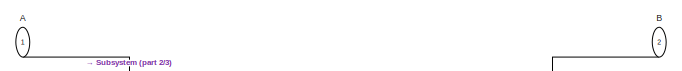
[diagram: 8-Bit_Processor/8-bit_Multiply - part 1/3, top center region]
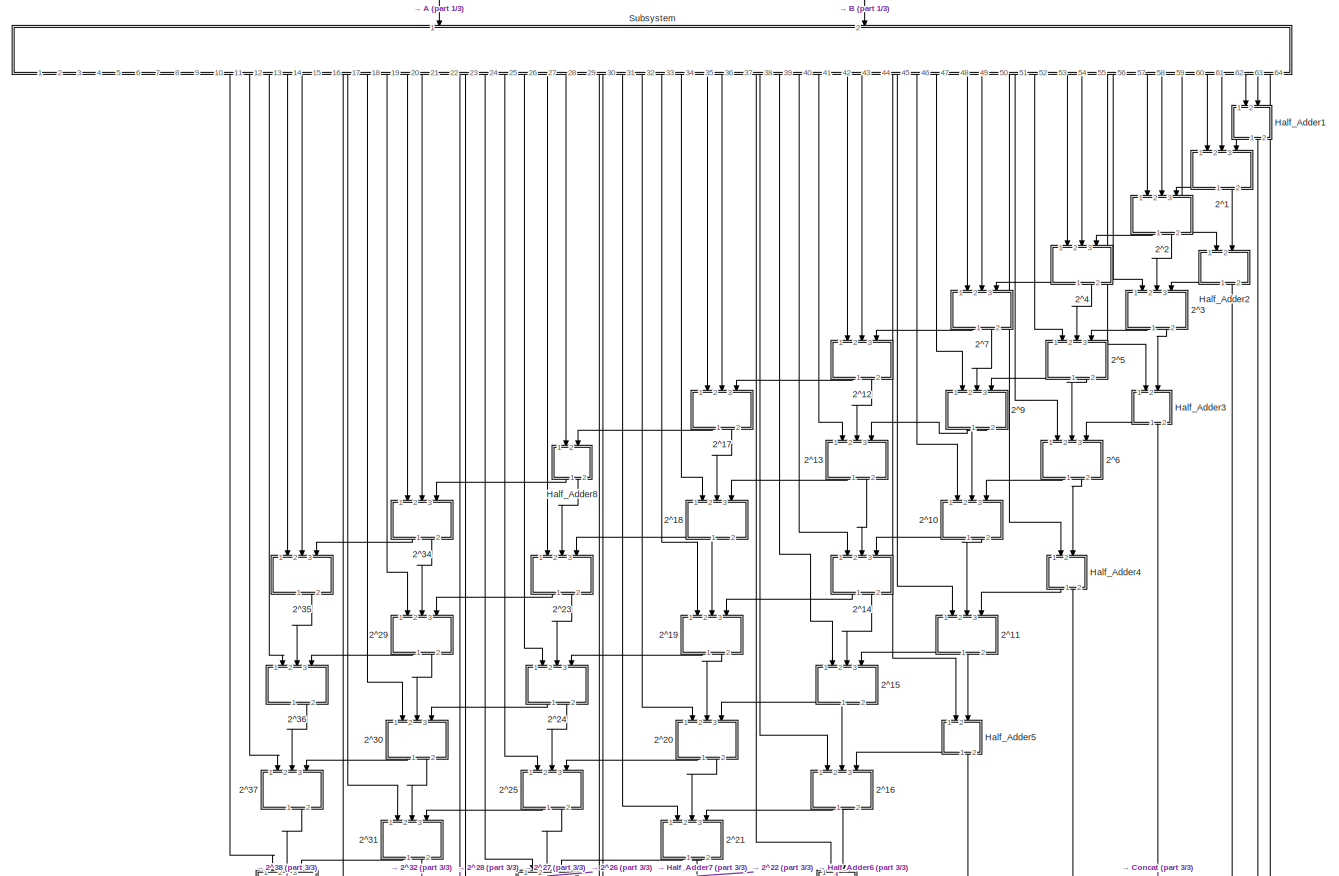
[diagram: 8-Bit_Processor/8-bit_Multiply - part 2/3, full width, middle band]
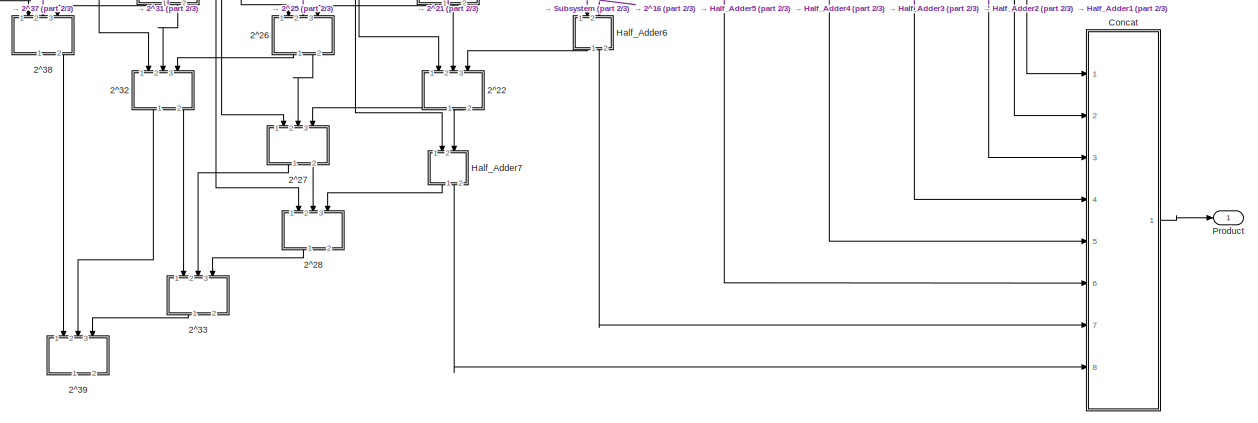
[diagram: 8-Bit_Processor/8-bit_Multiply - part 3/3, full width, bottom band]
BLOCK [SubSystem] 8-Bit_Processor/8-bit_Multiply
  Ports = [2, 1]
  RequestExecContextInheritance = off
BLOCK [SubSystem] 8-Bit_Processor/8-bit_Multiply/2^1
  Ports = [3, 2]
  RequestExecContextInheritance = off
BLOCK [Inport] 8-Bit_Processor/8-bit_Multiply/2^1/A
  IconDisplay = Port number
BLOCK [Inport] 8-Bit_Processor/8-bit_Multiply/2^1/B
  IconDisplay = Port number
  Port = 2
BLOCK [Outport] 8-Bit_Processor/8-bit_Multiply/2^1/C
  IconDisplay = Port number
BLOCK [Inport] 8-Bit_Processor/8-bit_Multiply/2^1/Cin
  IconDisplay = Port number
  Port = 3
BLOCK [SubSystem] 8-Bit_Processor/8-bit_Multiply/2^1/Half_Adder
  Ports = [2, 2]
  RequestExecContextInheritance = off
BLOCK [Logic] 8-Bit_Processor/8-bit_Multiply/2^1/Half_Adder/Calc Carry
  AllPortsSameDT = off
  OutDataTypeStr = boolean
  Ports = [2, 1]
BLOCK [Logic] 8-Bit_Processor/8-bit_Multiply/2^1/Half_Adder/Calc Sum
  AllPortsSameDT = off
  Operator = XOR
  OutDataTypeStr = boolean
  Ports = [2, 1]
BLOCK [Outport] 8-Bit_Processor/8-bit_Multiply/2^1/Half_Adder/Carry
  IconDisplay = Port number
  Port = 2
BLOCK [Outport] 8-Bit_Processor/8-bit_Multiply/2^1/Half_Adder/Sum
  IconDisplay = Port number
BLOCK [Inport] 8-Bit_Processor/8-bit_Multiply/2^1/Half_Adder/x
  IconDisplay = Port number
BLOCK [Inport] 8-Bit_Processor/8-bit_Multiply/2^1/Half_Adder/y
  IconDisplay = Port number
  Port = 2
BLOCK [SubSystem] 8-Bit_Processor/8-bit_Multiply/2^1/Half_Adder1
  Ports = [2, 2]
  RequestExecContextInheritance = off
BLOCK [Logic] 8-Bit_Processor/8-bit_Multiply/2^1/Half_Adder1/Calc Carry
  AllPortsSameDT = off
  OutDataTypeStr = boolean
  Ports = [2, 1]
BLOCK [Logic] 8-Bit_Processor/8-bit_Multiply/2^1/Half_Adder1/Calc Sum
  AllPortsSameDT = off
  Operator = XOR
  OutDataTypeStr = boolean
  Ports = [2, 1]
BLOCK [Outport] 8-Bit_Processor/8-bit_Multiply/2^1/Half_Adder1/Carry
  IconDisplay = Port number
  Port = 2
BLOCK [Outport] 8-Bit_Processor/8-bit_Multiply/2^1/Half_Adder1/Sum
  IconDisplay = Port number
BLOCK [Inport] 8-Bit_Processor/8-bit_Multiply/2^1/Half_Adder1/x
  IconDisplay = Port number
BLOCK [Inport] 8-Bit_Processor/8-bit_Multiply/2^1/Half_Adder1/y
  IconDisplay = Port number
  Port = 2
BLOCK [Logic] 8-Bit_Processor/8-bit_Multiply/2^1/Logical Operator
  AllPortsSameDT = off
  Operator = OR
  OutDataTypeStr = boolean
  Ports = [2, 1]
BLOCK [Outport] 8-Bit_Processor/8-bit_Multiply/2^1/S
  IconDisplay = Port number
  Port = 2
BLOCK [SubSystem] 8-Bit_Processor/8-bit_Multiply/2^10
  Ports = [3, 2]
  RequestExecContextInheritance = off
BLOCK [Inport] 8-Bit_Processor/8-bit_Multiply/2^10/A
  IconDisplay = Port number
BLOCK [Inport] 8-Bit_Processor/8-bit_Multiply/2^10/B
  IconDisplay = Port number
  Port = 2
BLOCK [Outport] 8-Bit_Processor/8-bit_Multiply/2^10/C
  IconDisplay = Port number
BLOCK [Inport] 8-Bit_Processor/8-bit_Multiply/2^10/Cin
  IconDisplay = Port number
  Port = 3
BLOCK [SubSystem] 8-Bit_Processor/8-bit_Multiply/2^10/Half_Adder
  Ports = [2, 2]
  RequestExecContextInheritance = off
BLOCK [Logic] 8-Bit_Processor/8-bit_Multiply/2^10/Half_Adder/Calc Carry
  AllPortsSameDT = off
  OutDataTypeStr = boolean
  Ports = [2, 1]
BLOCK [Logic] 8-Bit_Processor/8-bit_Multiply/2^10/Half_Adder/Calc Sum
  AllPortsSameDT = off
  Operator = XOR
  OutDataTypeStr = boolean
  Ports = [2, 1]
BLOCK [Outport] 8-Bit_Processor/8-bit_Multiply/2^10/Half_Adder/Carry
  IconDisplay = Port number
  Port = 2
BLOCK [Outport] 8-Bit_Processor/8-bit_Multiply/2^10/Half_Adder/Sum
  IconDisplay = Port number
BLOCK [Inport] 8-Bit_Processor/8-bit_Multiply/2^10/Half_Adder/x
  IconDisplay = Port number
BLOCK [Inport] 8-Bit_Processor/8-bit_Multiply/2^10/Half_Adder/y
  IconDisplay = Port number
  Port = 2
BLOCK [SubSystem] 8-Bit_Processor/8-bit_Multiply/2^10/Half_Adder1
  Ports = [2, 2]
  RequestExecContextInheritance = off
BLOCK [Logic] 8-Bit_Processor/8-bit_Multiply/2^10/Half_Adder1/Calc Carry
  AllPortsSameDT = off
  OutDataTypeStr = boolean
  Ports = [2, 1]
BLOCK [Logic] 8-Bit_Processor/8-bit_Multiply/2^10/Half_Adder1/Calc Sum
  AllPortsSameDT = off
  Operator = XOR
  OutDataTypeStr = boolean
  Ports = [2, 1]
BLOCK [Outport] 8-Bit_Processor/8-bit_Multiply/2^10/Half_Adder1/Carry
  IconDisplay = Port number
  Port = 2
BLOCK [Outport] 8-Bit_Processor/8-bit_Multiply/2^10/Half_Adder1/Sum
  IconDisplay = Port number
BLOCK [Inport] 8-Bit_Processor/8-bit_Multiply/2^10/Half_Adder1/x
  IconDisplay = Port number
BLOCK [Inport] 8-Bit_Processor/8-bit_Multiply/2^10/Half_Adder1/y
  IconDisplay = Port number
  Port = 2
BLOCK [Logic] 8-Bit_Processor/8-bit_Multiply/2^10/Logical Operator
  AllPortsSameDT = off
  Operator = OR
  OutDataTypeStr = boolean
  Ports = [2, 1]
BLOCK [Outport] 8-Bit_Processor/8-bit_Multiply/2^10/S
  IconDisplay = Port number
  Port = 2
BLOCK [SubSystem] 8-Bit_Processor/8-bit_Multiply/2^11
  Ports = [3, 2]
  RequestExecContextInheritance = off
BLOCK [Inport] 8-Bit_Processor/8-bit_Multiply/2^11/A
  IconDisplay = Port number
BLOCK [Inport] 8-Bit_Processor/8-bit_Multiply/2^11/B
  IconDisplay = Port number
  Port = 2
BLOCK [Outport] 8-Bit_Processor/8-bit_Multiply/2^11/C
  IconDisplay = Port number
BLOCK [Inport] 8-Bit_Processor/8-bit_Multiply/2^11/Cin
  IconDisplay = Port number
  Port = 3
BLOCK [SubSystem] 8-Bit_Processor/8-bit_Multiply/2^11/Half_Adder
  Ports = [2, 2]
  RequestExecContextInheritance = off
BLOCK [Logic] 8-Bit_Processor/8-bit_Multiply/2^11/Half_Adder/Calc Carry
  AllPortsSameDT = off
  OutDataTypeStr = boolean
  Ports = [2, 1]
BLOCK [Logic] 8-Bit_Processor/8-bit_Multiply/2^11/Half_Adder/Calc Sum
  AllPortsSameDT = off
  Operator = XOR
  OutDataTypeStr = boolean
  Ports = [2, 1]
BLOCK [Outport] 8-Bit_Processor/8-bit_Multiply/2^11/Half_Adder/Carry
  IconDisplay = Port number
  Port = 2
BLOCK [Outport] 8-Bit_Processor/8-bit_Multiply/2^11/Half_Adder/Sum
  IconDisplay = Port number
BLOCK [Inport] 8-Bit_Processor/8-bit_Multiply/2^11/Half_Adder/x
  IconDisplay = Port number
BLOCK [Inport] 8-Bit_Processor/8-bit_Multiply/2^11/Half_Adder/y
  IconDisplay = Port number
  Port = 2
BLOCK [SubSystem] 8-Bit_Processor/8-bit_Multiply/2^11/Half_Adder1
  Ports = [2, 2]
  RequestExecContextInheritance = off
BLOCK [Logic] 8-Bit_Processor/8-bit_Multiply/2^11/Half_Adder1/Calc Carry
  AllPortsSameDT = off
  OutDataTypeStr = boolean
  Ports = [2, 1]
BLOCK [Logic] 8-Bit_Processor/8-bit_Multiply/2^11/Half_Adder1/Calc Sum
  AllPortsSameDT = off
  Operator = XOR
  OutDataTypeStr = boolean
  Ports = [2, 1]
BLOCK [Outport] 8-Bit_Processor/8-bit_Multiply/2^11/Half_Adder1/Carry
  IconDisplay = Port number
  Port = 2
BLOCK [Outport] 8-Bit_Processor/8-bit_Multiply/2^11/Half_Adder1/Sum
  IconDisplay = Port number
BLOCK [Inport] 8-Bit_Processor/8-bit_Multiply/2^11/Half_Adder1/x
  IconDisplay = Port number
BLOCK [Inport] 8-Bit_Processor/8-bit_Multiply/2^11/Half_Adder1/y
  IconDisplay = Port number
  Port = 2
BLOCK [Logic] 8-Bit_Processor/8-bit_Multiply/2^11/Logical Operator
  AllPortsSameDT = off
  Operator = OR
  OutDataTypeStr = boolean
  Ports = [2, 1]
BLOCK [Outport] 8-Bit_Processor/8-bit_Multiply/2^11/S
  IconDisplay = Port number
  Port = 2
BLOCK [SubSystem] 8-Bit_Processor/8-bit_Multiply/2^12
  Ports = [3, 2]
  RequestExecContextInheritance = off
BLOCK [Inport] 8-Bit_Processor/8-bit_Multiply/2^12/A
  IconDisplay = Port number
BLOCK [Inport] 8-Bit_Processor/8-bit_Multiply/2^12/B
  IconDisplay = Port number
  Port = 2
BLOCK [Outport] 8-Bit_Processor/8-bit_Multiply/2^12/C
  IconDisplay = Port number
BLOCK [Inport] 8-Bit_Processor/8-bit_Multiply/2^12/Cin
  IconDisplay = Port number
  Port = 3
BLOCK [SubSystem] 8-Bit_Processor/8-bit_Multiply/2^12/Half_Adder
  Ports = [2, 2]
  RequestExecContextInheritance = off
BLOCK [Logic] 8-Bit_Processor/8-bit_Multiply/2^12/Half_Adder/Calc Carry
  AllPortsSameDT = off
  OutDataTypeStr = boolean
  Ports = [2, 1]
BLOCK [Logic] 8-Bit_Processor/8-bit_Multiply/2^12/Half_Adder/Calc Sum
  AllPortsSameDT = off
  Operator = XOR
  OutDataTypeStr = boolean
  Ports = [2, 1]
BLOCK [Outport] 8-Bit_Processor/8-bit_Multiply/2^12/Half_Adder/Carry
  IconDisplay = Port number
  Port = 2
BLOCK [Outport] 8-Bit_Processor/8-bit_Multiply/2^12/Half_Adder/Sum
  IconDisplay = Port number
BLOCK [Inport] 8-Bit_Processor/8-bit_Multiply/2^12/Half_Adder/x
  IconDisplay = Port number
BLOCK [Inport] 8-Bit_Processor/8-bit_Multiply/2^12/Half_Adder/y
  IconDisplay = Port number
  Port = 2
BLOCK [SubSystem] 8-Bit_Processor/8-bit_Multiply/2^12/Half_Adder1
  Ports = [2, 2]
  RequestExecContextInheritance = off
BLOCK [Logic] 8-Bit_Processor/8-bit_Multiply/2^12/Half_Adder1/Calc Carry
  AllPortsSameDT = off
  OutDataTypeStr = boolean
  Ports = [2, 1]
BLOCK [Logic] 8-Bit_Processor/8-bit_Multiply/2^12/Half_Adder1/Calc Sum
  AllPortsSameDT = off
  Operator = XOR
  OutDataTypeStr = boolean
  Ports = [2, 1]
BLOCK [Outport] 8-Bit_Processor/8-bit_Multiply/2^12/Half_Adder1/Carry
  IconDisplay = Port number
  Port = 2
BLOCK [Outport] 8-Bit_Processor/8-bit_Multiply/2^12/Half_Adder1/Sum
  IconDisplay = Port number
BLOCK [Inport] 8-Bit_Processor/8-bit_Multiply/2^12/Half_Adder1/x
  IconDisplay = Port number
BLOCK [Inport] 8-Bit_Processor/8-bit_Multiply/2^12/Half_Adder1/y
  IconDisplay = Port number
  Port = 2
BLOCK [Logic] 8-Bit_Processor/8-bit_Multiply/2^12/Logical Operator
  AllPortsSameDT = off
  Operator = OR
  OutDataTypeStr = boolean
  Ports = [2, 1]
BLOCK [Outport] 8-Bit_Processor/8-bit_Multiply/2^12/S
  IconDisplay = Port number
  Port = 2
BLOCK [SubSystem] 8-Bit_Processor/8-bit_Multiply/2^13
  Ports = [3, 2]
  RequestExecContextInheritance = off
BLOCK [Inport] 8-Bit_Processor/8-bit_Multiply/2^13/A
  IconDisplay = Port number
BLOCK [Inport] 8-Bit_Processor/8-bit_Multiply/2^13/B
  IconDisplay = Port number
  Port = 2
BLOCK [Outport] 8-Bit_Processor/8-bit_Multiply/2^13/C
  IconDisplay = Port number
BLOCK [Inport] 8-Bit_Processor/8-bit_Multiply/2^13/Cin
  IconDisplay = Port number
  Port = 3
BLOCK [SubSystem] 8-Bit_Processor/8-bit_Multiply/2^13/Half_Adder
  Ports = [2, 2]
  RequestExecContextInheritance = off
BLOCK [Logic] 8-Bit_Processor/8-bit_Multiply/2^13/Half_Adder/Calc Carry
  AllPortsSameDT = off
  OutDataTypeStr = boolean
  Ports = [2, 1]
BLOCK [Logic] 8-Bit_Processor/8-bit_Multiply/2^13/Half_Adder/Calc Sum
  AllPortsSameDT = off
  Operator = XOR
  OutDataTypeStr = boolean
  Ports = [2, 1]
BLOCK [Outport] 8-Bit_Processor/8-bit_Multiply/2^13/Half_Adder/Carry
  IconDisplay = Port number
  Port = 2
BLOCK [Outport] 8-Bit_Processor/8-bit_Multiply/2^13/Half_Adder/Sum
  IconDisplay = Port number
BLOCK [Inport] 8-Bit_Processor/8-bit_Multiply/2^13/Half_Adder/x
  IconDisplay = Port number
BLOCK [Inport] 8-Bit_Processor/8-bit_Multiply/2^13/Half_Adder/y
  IconDisplay = Port number
  Port = 2
BLOCK [SubSystem] 8-Bit_Processor/8-bit_Multiply/2^13/Half_Adder1
  Ports = [2, 2]
  RequestExecContextInheritance = off
BLOCK [Logic] 8-Bit_Processor/8-bit_Multiply/2^13/Half_Adder1/Calc Carry
  AllPortsSameDT = off
  OutDataTypeStr = boolean
  Ports = [2, 1]
BLOCK [Logic] 8-Bit_Processor/8-bit_Multiply/2^13/Half_Adder1/Calc Sum
  AllPortsSameDT = off
  Operator = XOR
  OutDataTypeStr = boolean
  Ports = [2, 1]
BLOCK [Outport] 8-Bit_Processor/8-bit_Multiply/2^13/Half_Adder1/Carry
  IconDisplay = Port number
  Port = 2
BLOCK [Outport] 8-Bit_Processor/8-bit_Multiply/2^13/Half_Adder1/Sum
  IconDisplay = Port number
BLOCK [Inport] 8-Bit_Processor/8-bit_Multiply/2^13/Half_Adder1/x
  IconDisplay = Port number
BLOCK [Inport] 8-Bit_Processor/8-bit_Multiply/2^13/Half_Adder1/y
  IconDisplay = Port number
  Port = 2
BLOCK [Logic] 8-Bit_Processor/8-bit_Multiply/2^13/Logical Operator
  AllPortsSameDT = off
  Operator = OR
  OutDataTypeStr = boolean
  Ports = [2, 1]
BLOCK [Outport] 8-Bit_Processor/8-bit_Multiply/2^13/S
  IconDisplay = Port number
  Port = 2
BLOCK [SubSystem] 8-Bit_Processor/8-bit_Multiply/2^14
  Ports = [3, 2]
  RequestExecContextInheritance = off
BLOCK [Inport] 8-Bit_Processor/8-bit_Multiply/2^14/A
  IconDisplay = Port number
BLOCK [Inport] 8-Bit_Processor/8-bit_Multiply/2^14/B
  IconDisplay = Port number
  Port = 2
BLOCK [Outport] 8-Bit_Processor/8-bit_Multiply/2^14/C
  IconDisplay = Port number
BLOCK [Inport] 8-Bit_Processor/8-bit_Multiply/2^14/Cin
  IconDisplay = Port number
  Port = 3
BLOCK [SubSystem] 8-Bit_Processor/8-bit_Multiply/2^14/Half_Adder
  Ports = [2, 2]
  RequestExecContextInheritance = off
BLOCK [Logic] 8-Bit_Processor/8-bit_Multiply/2^14/Half_Adder/Calc Carry
  AllPortsSameDT = off
  OutDataTypeStr = boolean
  Ports = [2, 1]
BLOCK [Logic] 8-Bit_Processor/8-bit_Multiply/2^14/Half_Adder/Calc Sum
  AllPortsSameDT = off
  Operator = XOR
  OutDataTypeStr = boolean
  Ports = [2, 1]
BLOCK [Outport] 8-Bit_Processor/8-bit_Multiply/2^14/Half_Adder/Carry
  IconDisplay = Port number
  Port = 2
BLOCK [Outport] 8-Bit_Processor/8-bit_Multiply/2^14/Half_Adder/Sum
  IconDisplay = Port number
BLOCK [Inport] 8-Bit_Processor/8-bit_Multiply/2^14/Half_Adder/x
  IconDisplay = Port number
BLOCK [Inport] 8-Bit_Processor/8-bit_Multiply/2^14/Half_Adder/y
  IconDisplay = Port number
  Port = 2
BLOCK [SubSystem] 8-Bit_Processor/8-bit_Multiply/2^14/Half_Adder1
  Ports = [2, 2]
  RequestExecContextInheritance = off
BLOCK [Logic] 8-Bit_Processor/8-bit_Multiply/2^14/Half_Adder1/Calc Carry
  AllPortsSameDT = off
  OutDataTypeStr = boolean
  Ports = [2, 1]
BLOCK [Logic] 8-Bit_Processor/8-bit_Multiply/2^14/Half_Adder1/Calc Sum
  AllPortsSameDT = off
  Operator = XOR
  OutDataTypeStr = boolean
  Ports = [2, 1]
BLOCK [Outport] 8-Bit_Processor/8-bit_Multiply/2^14/Half_Adder1/Carry
  IconDisplay = Port number
  Port = 2
BLOCK [Outport] 8-Bit_Processor/8-bit_Multiply/2^14/Half_Adder1/Sum
  IconDisplay = Port number
BLOCK [Inport] 8-Bit_Processor/8-bit_Multiply/2^14/Half_Adder1/x
  IconDisplay = Port number
BLOCK [Inport] 8-Bit_Processor/8-bit_Multiply/2^14/Half_Adder1/y
  IconDisplay = Port number
  Port = 2
BLOCK [Logic] 8-Bit_Processor/8-bit_Multiply/2^14/Logical Operator
  AllPortsSameDT = off
  Operator = OR
  OutDataTypeStr = boolean
  Ports = [2, 1]
BLOCK [Outport] 8-Bit_Processor/8-bit_Multiply/2^14/S
  IconDisplay = Port number
  Port = 2
BLOCK [SubSystem] 8-Bit_Processor/8-bit_Multiply/2^15
  Ports = [3, 2]
  RequestExecContextInheritance = off
BLOCK [Inport] 8-Bit_Processor/8-bit_Multiply/2^15/A
  IconDisplay = Port number
BLOCK [Inport] 8-Bit_Processor/8-bit_Multiply/2^15/B
  IconDisplay = Port number
  Port = 2
BLOCK [Outport] 8-Bit_Processor/8-bit_Multiply/2^15/C
  IconDisplay = Port number
BLOCK [Inport] 8-Bit_Processor/8-bit_Multiply/2^15/Cin
  IconDisplay = Port number
  Port = 3
BLOCK [SubSystem] 8-Bit_Processor/8-bit_Multiply/2^15/Half_Adder
  Ports = [2, 2]
  RequestExecContextInheritance = off
BLOCK [Logic] 8-Bit_Processor/8-bit_Multiply/2^15/Half_Adder/Calc Carry
  AllPortsSameDT = off
  OutDataTypeStr = boolean
  Ports = [2, 1]
BLOCK [Logic] 8-Bit_Processor/8-bit_Multiply/2^15/Half_Adder/Calc Sum
  AllPortsSameDT = off
  Operator = XOR
  OutDataTypeStr = boolean
  Ports = [2, 1]
BLOCK [Outport] 8-Bit_Processor/8-bit_Multiply/2^15/Half_Adder/Carry
  IconDisplay = Port number
  Port = 2
BLOCK [Outport] 8-Bit_Processor/8-bit_Multiply/2^15/Half_Adder/Sum
  IconDisplay = Port number
BLOCK [Inport] 8-Bit_Processor/8-bit_Multiply/2^15/Half_Adder/x
  IconDisplay = Port number
BLOCK [Inport] 8-Bit_Processor/8-bit_Multiply/2^15/Half_Adder/y
  IconDisplay = Port number
  Port = 2
BLOCK [SubSystem] 8-Bit_Processor/8-bit_Multiply/2^15/Half_Adder1
  Ports = [2, 2]
  RequestExecContextInheritance = off
BLOCK [Logic] 8-Bit_Processor/8-bit_Multiply/2^15/Half_Adder1/Calc Carry
  AllPortsSameDT = off
  OutDataTypeStr = boolean
  Ports = [2, 1]
BLOCK [Logic] 8-Bit_Processor/8-bit_Multiply/2^15/Half_Adder1/Calc Sum
  AllPortsSameDT = off
  Operator = XOR
  OutDataTypeStr = boolean
  Ports = [2, 1]
BLOCK [Outport] 8-Bit_Processor/8-bit_Multiply/2^15/Half_Adder1/Carry
  IconDisplay = Port number
  Port = 2
BLOCK [Outport] 8-Bit_Processor/8-bit_Multiply/2^15/Half_Adder1/Sum
  IconDisplay = Port number
BLOCK [Inport] 8-Bit_Processor/8-bit_Multiply/2^15/Half_Adder1/x
  IconDisplay = Port number
BLOCK [Inport] 8-Bit_Processor/8-bit_Multiply/2^15/Half_Adder1/y
  IconDisplay = Port number
  Port = 2
BLOCK [Logic] 8-Bit_Processor/8-bit_Multiply/2^15/Logical Operator
  AllPortsSameDT = off
  Operator = OR
  OutDataTypeStr = boolean
  Ports = [2, 1]
BLOCK [Outport] 8-Bit_Processor/8-bit_Multiply/2^15/S
  IconDisplay = Port number
  Port = 2
BLOCK [SubSystem] 8-Bit_Processor/8-bit_Multiply/2^16
  Ports = [3, 2]
  RequestExecContextInheritance = off
BLOCK [Inport] 8-Bit_Processor/8-bit_Multiply/2^16/A
  IconDisplay = Port number
BLOCK [Inport] 8-Bit_Processor/8-bit_Multiply/2^16/B
  IconDisplay = Port number
  Port = 2
BLOCK [Outport] 8-Bit_Processor/8-bit_Multiply/2^16/C
  IconDisplay = Port number
BLOCK [Inport] 8-Bit_Processor/8-bit_Multiply/2^16/Cin
  IconDisplay = Port number
  Port = 3
BLOCK [SubSystem] 8-Bit_Processor/8-bit_Multiply/2^16/Half_Adder
  Ports = [2, 2]
  RequestExecContextInheritance = off
BLOCK [Logic] 8-Bit_Processor/8-bit_Multiply/2^16/Half_Adder/Calc Carry
  AllPortsSameDT = off
  OutDataTypeStr = boolean
  Ports = [2, 1]
BLOCK [Logic] 8-Bit_Processor/8-bit_Multiply/2^16/Half_Adder/Calc Sum
  AllPortsSameDT = off
  Operator = XOR
  OutDataTypeStr = boolean
  Ports = [2, 1]
BLOCK [Outport] 8-Bit_Processor/8-bit_Multiply/2^16/Half_Adder/Carry
  IconDisplay = Port number
  Port = 2
BLOCK [Outport] 8-Bit_Processor/8-bit_Multiply/2^16/Half_Adder/Sum
  IconDisplay = Port number
BLOCK [Inport] 8-Bit_Processor/8-bit_Multiply/2^16/Half_Adder/x
  IconDisplay = Port number
BLOCK [Inport] 8-Bit_Processor/8-bit_Multiply/2^16/Half_Adder/y
  IconDisplay = Port number
  Port = 2
BLOCK [SubSystem] 8-Bit_Processor/8-bit_Multiply/2^16/Half_Adder1
  Ports = [2, 2]
  RequestExecContextInheritance = off
BLOCK [Logic] 8-Bit_Processor/8-bit_Multiply/2^16/Half_Adder1/Calc Carry
  AllPortsSameDT = off
  OutDataTypeStr = boolean
  Ports = [2, 1]
BLOCK [Logic] 8-Bit_Processor/8-bit_Multiply/2^16/Half_Adder1/Calc Sum
  AllPortsSameDT = off
  Operator = XOR
  OutDataTypeStr = boolean
  Ports = [2, 1]
BLOCK [Outport] 8-Bit_Processor/8-bit_Multiply/2^16/Half_Adder1/Carry
  IconDisplay = Port number
  Port = 2
BLOCK [Outport] 8-Bit_Processor/8-bit_Multiply/2^16/Half_Adder1/Sum
  IconDisplay = Port number
BLOCK [Inport] 8-Bit_Processor/8-bit_Multiply/2^16/Half_Adder1/x
  IconDisplay = Port number
BLOCK [Inport] 8-Bit_Processor/8-bit_Multiply/2^16/Half_Adder1/y
  IconDisplay = Port number
  Port = 2
BLOCK [Logic] 8-Bit_Processor/8-bit_Multiply/2^16/Logical Operator
  AllPortsSameDT = off
  Operator = OR
  OutDataTypeStr = boolean
  Ports = [2, 1]
BLOCK [Outport] 8-Bit_Processor/8-bit_Multiply/2^16/S
  IconDisplay = Port number
  Port = 2
BLOCK [SubSystem] 8-Bit_Processor/8-bit_Multiply/2^17
  Ports = [3, 2]
  RequestExecContextInheritance = off
BLOCK [Inport] 8-Bit_Processor/8-bit_Multiply/2^17/A
  IconDisplay = Port number
BLOCK [Inport] 8-Bit_Processor/8-bit_Multiply/2^17/B
  IconDisplay = Port number
  Port = 2
BLOCK [Outport] 8-Bit_Processor/8-bit_Multiply/2^17/C
  IconDisplay = Port number
BLOCK [Inport] 8-Bit_Processor/8-bit_Multiply/2^17/Cin
  IconDisplay = Port number
  Port = 3
BLOCK [SubSystem] 8-Bit_Processor/8-bit_Multiply/2^17/Half_Adder
  Ports = [2, 2]
  RequestExecContextInheritance = off
BLOCK [Logic] 8-Bit_Processor/8-bit_Multiply/2^17/Half_Adder/Calc Carry
  AllPortsSameDT = off
  OutDataTypeStr = boolean
  Ports = [2, 1]
BLOCK [Logic] 8-Bit_Processor/8-bit_Multiply/2^17/Half_Adder/Calc Sum
  AllPortsSameDT = off
  Operator = XOR
  OutDataTypeStr = boolean
  Ports = [2, 1]
BLOCK [Outport] 8-Bit_Processor/8-bit_Multiply/2^17/Half_Adder/Carry
  IconDisplay = Port number
  Port = 2
BLOCK [Outport] 8-Bit_Processor/8-bit_Multiply/2^17/Half_Adder/Sum
  IconDisplay = Port number
BLOCK [Inport] 8-Bit_Processor/8-bit_Multiply/2^17/Half_Adder/x
  IconDisplay = Port number
BLOCK [Inport] 8-Bit_Processor/8-bit_Multiply/2^17/Half_Adder/y
  IconDisplay = Port number
  Port = 2
BLOCK [SubSystem] 8-Bit_Processor/8-bit_Multiply/2^17/Half_Adder1
  Ports = [2, 2]
  RequestExecContextInheritance = off
BLOCK [Logic] 8-Bit_Processor/8-bit_Multiply/2^17/Half_Adder1/Calc Carry
  AllPortsSameDT = off
  OutDataTypeStr = boolean
  Ports = [2, 1]
BLOCK [Logic] 8-Bit_Processor/8-bit_Multiply/2^17/Half_Adder1/Calc Sum
  AllPortsSameDT = off
  Operator = XOR
  OutDataTypeStr = boolean
  Ports = [2, 1]
BLOCK [Outport] 8-Bit_Processor/8-bit_Multiply/2^17/Half_Adder1/Carry
  IconDisplay = Port number
  Port = 2
BLOCK [Outport] 8-Bit_Processor/8-bit_Multiply/2^17/Half_Adder1/Sum
  IconDisplay = Port number
BLOCK [Inport] 8-Bit_Processor/8-bit_Multiply/2^17/Half_Adder1/x
  IconDisplay = Port number
BLOCK [Inport] 8-Bit_Processor/8-bit_Multiply/2^17/Half_Adder1/y
  IconDisplay = Port number
  Port = 2
BLOCK [Logic] 8-Bit_Processor/8-bit_Multiply/2^17/Logical Operator
  AllPortsSameDT = off
  Operator = OR
  OutDataTypeStr = boolean
  Ports = [2, 1]
BLOCK [Outport] 8-Bit_Processor/8-bit_Multiply/2^17/S
  IconDisplay = Port number
  Port = 2
BLOCK [SubSystem] 8-Bit_Processor/8-bit_Multiply/2^18
  Ports = [3, 2]
  RequestExecContextInheritance = off
BLOCK [Inport] 8-Bit_Processor/8-bit_Multiply/2^18/A
  IconDisplay = Port number
BLOCK [Inport] 8-Bit_Processor/8-bit_Multiply/2^18/B
  IconDisplay = Port number
  Port = 2
BLOCK [Outport] 8-Bit_Processor/8-bit_Multiply/2^18/C
  IconDisplay = Port number
BLOCK [Inport] 8-Bit_Processor/8-bit_Multiply/2^18/Cin
  IconDisplay = Port number
  Port = 3
BLOCK [SubSystem] 8-Bit_Processor/8-bit_Multiply/2^18/Half_Adder
  Ports = [2, 2]
  RequestExecContextInheritance = off
BLOCK [Logic] 8-Bit_Processor/8-bit_Multiply/2^18/Half_Adder/Calc Carry
  AllPortsSameDT = off
  OutDataTypeStr = boolean
  Ports = [2, 1]
BLOCK [Logic] 8-Bit_Processor/8-bit_Multiply/2^18/Half_Adder/Calc Sum
  AllPortsSameDT = off
  Operator = XOR
  OutDataTypeStr = boolean
  Ports = [2, 1]
BLOCK [Outport] 8-Bit_Processor/8-bit_Multiply/2^18/Half_Adder/Carry
  IconDisplay = Port number
  Port = 2
BLOCK [Outport] 8-Bit_Processor/8-bit_Multiply/2^18/Half_Adder/Sum
  IconDisplay = Port number
BLOCK [Inport] 8-Bit_Processor/8-bit_Multiply/2^18/Half_Adder/x
  IconDisplay = Port number
BLOCK [Inport] 8-Bit_Processor/8-bit_Multiply/2^18/Half_Adder/y
  IconDisplay = Port number
  Port = 2
BLOCK [SubSystem] 8-Bit_Processor/8-bit_Multiply/2^18/Half_Adder1
  Ports = [2, 2]
  RequestExecContextInheritance = off
BLOCK [Logic] 8-Bit_Processor/8-bit_Multiply/2^18/Half_Adder1/Calc Carry
  AllPortsSameDT = off
  OutDataTypeStr = boolean
  Ports = [2, 1]
BLOCK [Logic] 8-Bit_Processor/8-bit_Multiply/2^18/Half_Adder1/Calc Sum
  AllPortsSameDT = off
  Operator = XOR
  OutDataTypeStr = boolean
  Ports = [2, 1]
BLOCK [Outport] 8-Bit_Processor/8-bit_Multiply/2^18/Half_Adder1/Carry
  IconDisplay = Port number
  Port = 2
BLOCK [Outport] 8-Bit_Processor/8-bit_Multiply/2^18/Half_Adder1/Sum
  IconDisplay = Port number
BLOCK [Inport] 8-Bit_Processor/8-bit_Multiply/2^18/Half_Adder1/x
  IconDisplay = Port number
BLOCK [Inport] 8-Bit_Processor/8-bit_Multiply/2^18/Half_Adder1/y
  IconDisplay = Port number
  Port = 2
BLOCK [Logic] 8-Bit_Processor/8-bit_Multiply/2^18/Logical Operator
  AllPortsSameDT = off
  Operator = OR
  OutDataTypeStr = boolean
  Ports = [2, 1]
BLOCK [Outport] 8-Bit_Processor/8-bit_Multiply/2^18/S
  IconDisplay = Port number
  Port = 2
BLOCK [SubSystem] 8-Bit_Processor/8-bit_Multiply/2^19
  Ports = [3, 2]
  RequestExecContextInheritance = off
BLOCK [Inport] 8-Bit_Processor/8-bit_Multiply/2^19/A
  IconDisplay = Port number
BLOCK [Inport] 8-Bit_Processor/8-bit_Multiply/2^19/B
  IconDisplay = Port number
  Port = 2
BLOCK [Outport] 8-Bit_Processor/8-bit_Multiply/2^19/C
  IconDisplay = Port number
BLOCK [Inport] 8-Bit_Processor/8-bit_Multiply/2^19/Cin
  IconDisplay = Port number
  Port = 3
BLOCK [SubSystem] 8-Bit_Processor/8-bit_Multiply/2^19/Half_Adder
  Ports = [2, 2]
  RequestExecContextInheritance = off
BLOCK [Logic] 8-Bit_Processor/8-bit_Multiply/2^19/Half_Adder/Calc Carry
  AllPortsSameDT = off
  OutDataTypeStr = boolean
  Ports = [2, 1]
BLOCK [Logic] 8-Bit_Processor/8-bit_Multiply/2^19/Half_Adder/Calc Sum
  AllPortsSameDT = off
  Operator = XOR
  OutDataTypeStr = boolean
  Ports = [2, 1]
BLOCK [Outport] 8-Bit_Processor/8-bit_Multiply/2^19/Half_Adder/Carry
  IconDisplay = Port number
  Port = 2
BLOCK [Outport] 8-Bit_Processor/8-bit_Multiply/2^19/Half_Adder/Sum
  IconDisplay = Port number
BLOCK [Inport] 8-Bit_Processor/8-bit_Multiply/2^19/Half_Adder/x
  IconDisplay = Port number
BLOCK [Inport] 8-Bit_Processor/8-bit_Multiply/2^19/Half_Adder/y
  IconDisplay = Port number
  Port = 2
BLOCK [SubSystem] 8-Bit_Processor/8-bit_Multiply/2^19/Half_Adder1
  Ports = [2, 2]
  RequestExecContextInheritance = off
BLOCK [Logic] 8-Bit_Processor/8-bit_Multiply/2^19/Half_Adder1/Calc Carry
  AllPortsSameDT = off
  OutDataTypeStr = boolean
  Ports = [2, 1]
BLOCK [Logic] 8-Bit_Processor/8-bit_Multiply/2^19/Half_Adder1/Calc Sum
  AllPortsSameDT = off
  Operator = XOR
  OutDataTypeStr = boolean
  Ports = [2, 1]
BLOCK [Outport] 8-Bit_Processor/8-bit_Multiply/2^19/Half_Adder1/Carry
  IconDisplay = Port number
  Port = 2
BLOCK [Outport] 8-Bit_Processor/8-bit_Multiply/2^19/Half_Adder1/Sum
  IconDisplay = Port number
BLOCK [Inport] 8-Bit_Processor/8-bit_Multiply/2^19/Half_Adder1/x
  IconDisplay = Port number
BLOCK [Inport] 8-Bit_Processor/8-bit_Multiply/2^19/Half_Adder1/y
  IconDisplay = Port number
  Port = 2
BLOCK [Logic] 8-Bit_Processor/8-bit_Multiply/2^19/Logical Operator
  AllPortsSameDT = off
  Operator = OR
  OutDataTypeStr = boolean
  Ports = [2, 1]
BLOCK [Outport] 8-Bit_Processor/8-bit_Multiply/2^19/S
  IconDisplay = Port number
  Port = 2
BLOCK [SubSystem] 8-Bit_Processor/8-bit_Multiply/2^2
  Ports = [3, 2]
  RequestExecContextInheritance = off
BLOCK [Inport] 8-Bit_Processor/8-bit_Multiply/2^2/A
  IconDisplay = Port number
BLOCK [Inport] 8-Bit_Processor/8-bit_Multiply/2^2/B
  IconDisplay = Port number
  Port = 2
BLOCK [Outport] 8-Bit_Processor/8-bit_Multiply/2^2/C
  IconDisplay = Port number
BLOCK [Inport] 8-Bit_Processor/8-bit_Multiply/2^2/Cin
  IconDisplay = Port number
  Port = 3
BLOCK [SubSystem] 8-Bit_Processor/8-bit_Multiply/2^2/Half_Adder
  Ports = [2, 2]
  RequestExecContextInheritance = off
BLOCK [Logic] 8-Bit_Processor/8-bit_Multiply/2^2/Half_Adder/Calc Carry
  AllPortsSameDT = off
  OutDataTypeStr = boolean
  Ports = [2, 1]
BLOCK [Logic] 8-Bit_Processor/8-bit_Multiply/2^2/Half_Adder/Calc Sum
  AllPortsSameDT = off
  Operator = XOR
  OutDataTypeStr = boolean
  Ports = [2, 1]
BLOCK [Outport] 8-Bit_Processor/8-bit_Multiply/2^2/Half_Adder/Carry
  IconDisplay = Port number
  Port = 2
BLOCK [Outport] 8-Bit_Processor/8-bit_Multiply/2^2/Half_Adder/Sum
  IconDisplay = Port number
BLOCK [Inport] 8-Bit_Processor/8-bit_Multiply/2^2/Half_Adder/x
  IconDisplay = Port number
BLOCK [Inport] 8-Bit_Processor/8-bit_Multiply/2^2/Half_Adder/y
  IconDisplay = Port number
  Port = 2
BLOCK [SubSystem] 8-Bit_Processor/8-bit_Multiply/2^2/Half_Adder1
  Ports = [2, 2]
  RequestExecContextInheritance = off
BLOCK [Logic] 8-Bit_Processor/8-bit_Multiply/2^2/Half_Adder1/Calc Carry
  AllPortsSameDT = off
  OutDataTypeStr = boolean
  Ports = [2, 1]
BLOCK [Logic] 8-Bit_Processor/8-bit_Multiply/2^2/Half_Adder1/Calc Sum
  AllPortsSameDT = off
  Operator = XOR
  OutDataTypeStr = boolean
  Ports = [2, 1]
BLOCK [Outport] 8-Bit_Processor/8-bit_Multiply/2^2/Half_Adder1/Carry
  IconDisplay = Port number
  Port = 2
BLOCK [Outport] 8-Bit_Processor/8-bit_Multiply/2^2/Half_Adder1/Sum
  IconDisplay = Port number
BLOCK [Inport] 8-Bit_Processor/8-bit_Multiply/2^2/Half_Adder1/x
  IconDisplay = Port number
BLOCK [Inport] 8-Bit_Processor/8-bit_Multiply/2^2/Half_Adder1/y
  IconDisplay = Port number
  Port = 2
BLOCK [Logic] 8-Bit_Processor/8-bit_Multiply/2^2/Logical Operator
  AllPortsSameDT = off
  Operator = OR
  OutDataTypeStr = boolean
  Ports = [2, 1]
BLOCK [Outport] 8-Bit_Processor/8-bit_Multiply/2^2/S
  IconDisplay = Port number
  Port = 2
BLOCK [SubSystem] 8-Bit_Processor/8-bit_Multiply/2^20
  Ports = [3, 2]
  RequestExecContextInheritance = off
BLOCK [Inport] 8-Bit_Processor/8-bit_Multiply/2^20/A
  IconDisplay = Port number
BLOCK [Inport] 8-Bit_Processor/8-bit_Multiply/2^20/B
  IconDisplay = Port number
  Port = 2
BLOCK [Outport] 8-Bit_Processor/8-bit_Multiply/2^20/C
  IconDisplay = Port number
BLOCK [Inport] 8-Bit_Processor/8-bit_Multiply/2^20/Cin
  IconDisplay = Port number
  Port = 3
BLOCK [SubSystem] 8-Bit_Processor/8-bit_Multiply/2^20/Half_Adder
  Ports = [2, 2]
  RequestExecContextInheritance = off
BLOCK [Logic] 8-Bit_Processor/8-bit_Multiply/2^20/Half_Adder/Calc Carry
  AllPortsSameDT = off
  OutDataTypeStr = boolean
  Ports = [2, 1]
BLOCK [Logic] 8-Bit_Processor/8-bit_Multiply/2^20/Half_Adder/Calc Sum
  AllPortsSameDT = off
  Operator = XOR
  OutDataTypeStr = boolean
  Ports = [2, 1]
BLOCK [Outport] 8-Bit_Processor/8-bit_Multiply/2^20/Half_Adder/Carry
  IconDisplay = Port number
  Port = 2
BLOCK [Outport] 8-Bit_Processor/8-bit_Multiply/2^20/Half_Adder/Sum
  IconDisplay = Port number
BLOCK [Inport] 8-Bit_Processor/8-bit_Multiply/2^20/Half_Adder/x
  IconDisplay = Port number
BLOCK [Inport] 8-Bit_Processor/8-bit_Multiply/2^20/Half_Adder/y
  IconDisplay = Port number
  Port = 2
BLOCK [SubSystem] 8-Bit_Processor/8-bit_Multiply/2^20/Half_Adder1
  Ports = [2, 2]
  RequestExecContextInheritance = off
BLOCK [Logic] 8-Bit_Processor/8-bit_Multiply/2^20/Half_Adder1/Calc Carry
  AllPortsSameDT = off
  OutDataTypeStr = boolean
  Ports = [2, 1]
BLOCK [Logic] 8-Bit_Processor/8-bit_Multiply/2^20/Half_Adder1/Calc Sum
  AllPortsSameDT = off
  Operator = XOR
  OutDataTypeStr = boolean
  Ports = [2, 1]
BLOCK [Outport] 8-Bit_Processor/8-bit_Multiply/2^20/Half_Adder1/Carry
  IconDisplay = Port number
  Port = 2
BLOCK [Outport] 8-Bit_Processor/8-bit_Multiply/2^20/Half_Adder1/Sum
  IconDisplay = Port number
BLOCK [Inport] 8-Bit_Processor/8-bit_Multiply/2^20/Half_Adder1/x
  IconDisplay = Port number
BLOCK [Inport] 8-Bit_Processor/8-bit_Multiply/2^20/Half_Adder1/y
  IconDisplay = Port number
  Port = 2
BLOCK [Logic] 8-Bit_Processor/8-bit_Multiply/2^20/Logical Operator
  AllPortsSameDT = off
  Operator = OR
  OutDataTypeStr = boolean
  Ports = [2, 1]
BLOCK [Outport] 8-Bit_Processor/8-bit_Multiply/2^20/S
  IconDisplay = Port number
  Port = 2
BLOCK [SubSystem] 8-Bit_Processor/8-bit_Multiply/2^21
  Ports = [3, 2]
  RequestExecContextInheritance = off
BLOCK [Inport] 8-Bit_Processor/8-bit_Multiply/2^21/A
  IconDisplay = Port number
BLOCK [Inport] 8-Bit_Processor/8-bit_Multiply/2^21/B
  IconDisplay = Port number
  Port = 2
BLOCK [Outport] 8-Bit_Processor/8-bit_Multiply/2^21/C
  IconDisplay = Port number
BLOCK [Inport] 8-Bit_Processor/8-bit_Multiply/2^21/Cin
  IconDisplay = Port number
  Port = 3
BLOCK [SubSystem] 8-Bit_Processor/8-bit_Multiply/2^21/Half_Adder
  Ports = [2, 2]
  RequestExecContextInheritance = off
BLOCK [Logic] 8-Bit_Processor/8-bit_Multiply/2^21/Half_Adder/Calc Carry
  AllPortsSameDT = off
  OutDataTypeStr = boolean
  Ports = [2, 1]
BLOCK [Logic] 8-Bit_Processor/8-bit_Multiply/2^21/Half_Adder/Calc Sum
  AllPortsSameDT = off
  Operator = XOR
  OutDataTypeStr = boolean
  Ports = [2, 1]
BLOCK [Outport] 8-Bit_Processor/8-bit_Multiply/2^21/Half_Adder/Carry
  IconDisplay = Port number
  Port = 2
BLOCK [Outport] 8-Bit_Processor/8-bit_Multiply/2^21/Half_Adder/Sum
  IconDisplay = Port number
BLOCK [Inport] 8-Bit_Processor/8-bit_Multiply/2^21/Half_Adder/x
  IconDisplay = Port number
BLOCK [Inport] 8-Bit_Processor/8-bit_Multiply/2^21/Half_Adder/y
  IconDisplay = Port number
  Port = 2
BLOCK [SubSystem] 8-Bit_Processor/8-bit_Multiply/2^21/Half_Adder1
  Ports = [2, 2]
  RequestExecContextInheritance = off
BLOCK [Logic] 8-Bit_Processor/8-bit_Multiply/2^21/Half_Adder1/Calc Carry
  AllPortsSameDT = off
  OutDataTypeStr = boolean
  Ports = [2, 1]
BLOCK [Logic] 8-Bit_Processor/8-bit_Multiply/2^21/Half_Adder1/Calc Sum
  AllPortsSameDT = off
  Operator = XOR
  OutDataTypeStr = boolean
  Ports = [2, 1]
BLOCK [Outport] 8-Bit_Processor/8-bit_Multiply/2^21/Half_Adder1/Carry
  IconDisplay = Port number
  Port = 2
BLOCK [Outport] 8-Bit_Processor/8-bit_Multiply/2^21/Half_Adder1/Sum
  IconDisplay = Port number
BLOCK [Inport] 8-Bit_Processor/8-bit_Multiply/2^21/Half_Adder1/x
  IconDisplay = Port number
BLOCK [Inport] 8-Bit_Processor/8-bit_Multiply/2^21/Half_Adder1/y
  IconDisplay = Port number
  Port = 2
BLOCK [Logic] 8-Bit_Processor/8-bit_Multiply/2^21/Logical Operator
  AllPortsSameDT = off
  Operator = OR
  OutDataTypeStr = boolean
  Ports = [2, 1]
BLOCK [Outport] 8-Bit_Processor/8-bit_Multiply/2^21/S
  IconDisplay = Port number
  Port = 2
BLOCK [SubSystem] 8-Bit_Processor/8-bit_Multiply/2^22
  Ports = [3, 2]
  RequestExecContextInheritance = off
BLOCK [Inport] 8-Bit_Processor/8-bit_Multiply/2^22/A
  IconDisplay = Port number
BLOCK [Inport] 8-Bit_Processor/8-bit_Multiply/2^22/B
  IconDisplay = Port number
  Port = 2
BLOCK [Outport] 8-Bit_Processor/8-bit_Multiply/2^22/C
  IconDisplay = Port number
BLOCK [Inport] 8-Bit_Processor/8-bit_Multiply/2^22/Cin
  IconDisplay = Port number
  Port = 3
BLOCK [SubSystem] 8-Bit_Processor/8-bit_Multiply/2^22/Half_Adder
  Ports = [2, 2]
  RequestExecContextInheritance = off
BLOCK [Logic] 8-Bit_Processor/8-bit_Multiply/2^22/Half_Adder/Calc Carry
  AllPortsSameDT = off
  OutDataTypeStr = boolean
  Ports = [2, 1]
BLOCK [Logic] 8-Bit_Processor/8-bit_Multiply/2^22/Half_Adder/Calc Sum
  AllPortsSameDT = off
  Operator = XOR
  OutDataTypeStr = boolean
  Ports = [2, 1]
BLOCK [Outport] 8-Bit_Processor/8-bit_Multiply/2^22/Half_Adder/Carry
  IconDisplay = Port number
  Port = 2
BLOCK [Outport] 8-Bit_Processor/8-bit_Multiply/2^22/Half_Adder/Sum
  IconDisplay = Port number
BLOCK [Inport] 8-Bit_Processor/8-bit_Multiply/2^22/Half_Adder/x
  IconDisplay = Port number
BLOCK [Inport] 8-Bit_Processor/8-bit_Multiply/2^22/Half_Adder/y
  IconDisplay = Port number
  Port = 2
BLOCK [SubSystem] 8-Bit_Processor/8-bit_Multiply/2^22/Half_Adder1
  Ports = [2, 2]
  RequestExecContextInheritance = off
BLOCK [Logic] 8-Bit_Processor/8-bit_Multiply/2^22/Half_Adder1/Calc Carry
  AllPortsSameDT = off
  OutDataTypeStr = boolean
  Ports = [2, 1]
BLOCK [Logic] 8-Bit_Processor/8-bit_Multiply/2^22/Half_Adder1/Calc Sum
  AllPortsSameDT = off
  Operator = XOR
  OutDataTypeStr = boolean
  Ports = [2, 1]
BLOCK [Outport] 8-Bit_Processor/8-bit_Multiply/2^22/Half_Adder1/Carry
  IconDisplay = Port number
  Port = 2
BLOCK [Outport] 8-Bit_Processor/8-bit_Multiply/2^22/Half_Adder1/Sum
  IconDisplay = Port number
BLOCK [Inport] 8-Bit_Processor/8-bit_Multiply/2^22/Half_Adder1/x
  IconDisplay = Port number
BLOCK [Inport] 8-Bit_Processor/8-bit_Multiply/2^22/Half_Adder1/y
  IconDisplay = Port number
  Port = 2
BLOCK [Logic] 8-Bit_Processor/8-bit_Multiply/2^22/Logical Operator
  AllPortsSameDT = off
  Operator = OR
  OutDataTypeStr = boolean
  Ports = [2, 1]
BLOCK [Outport] 8-Bit_Processor/8-bit_Multiply/2^22/S
  IconDisplay = Port number
  Port = 2
BLOCK [SubSystem] 8-Bit_Processor/8-bit_Multiply/2^23
  Ports = [3, 2]
  RequestExecContextInheritance = off
BLOCK [Inport] 8-Bit_Processor/8-bit_Multiply/2^23/A
  IconDisplay = Port number
BLOCK [Inport] 8-Bit_Processor/8-bit_Multiply/2^23/B
  IconDisplay = Port number
  Port = 2
BLOCK [Outport] 8-Bit_Processor/8-bit_Multiply/2^23/C
  IconDisplay = Port number
BLOCK [Inport] 8-Bit_Processor/8-bit_Multiply/2^23/Cin
  IconDisplay = Port number
  Port = 3
BLOCK [SubSystem] 8-Bit_Processor/8-bit_Multiply/2^23/Half_Adder
  Ports = [2, 2]
  RequestExecContextInheritance = off
BLOCK [Logic] 8-Bit_Processor/8-bit_Multiply/2^23/Half_Adder/Calc Carry
  AllPortsSameDT = off
  OutDataTypeStr = boolean
  Ports = [2, 1]
BLOCK [Logic] 8-Bit_Processor/8-bit_Multiply/2^23/Half_Adder/Calc Sum
  AllPortsSameDT = off
  Operator = XOR
  OutDataTypeStr = boolean
  Ports = [2, 1]
BLOCK [Outport] 8-Bit_Processor/8-bit_Multiply/2^23/Half_Adder/Carry
  IconDisplay = Port number
  Port = 2
BLOCK [Outport] 8-Bit_Processor/8-bit_Multiply/2^23/Half_Adder/Sum
  IconDisplay = Port number
BLOCK [Inport] 8-Bit_Processor/8-bit_Multiply/2^23/Half_Adder/x
  IconDisplay = Port number
BLOCK [Inport] 8-Bit_Processor/8-bit_Multiply/2^23/Half_Adder/y
  IconDisplay = Port number
  Port = 2
BLOCK [SubSystem] 8-Bit_Processor/8-bit_Multiply/2^23/Half_Adder1
  Ports = [2, 2]
  RequestExecContextInheritance = off
BLOCK [Logic] 8-Bit_Processor/8-bit_Multiply/2^23/Half_Adder1/Calc Carry
  AllPortsSameDT = off
  OutDataTypeStr = boolean
  Ports = [2, 1]
BLOCK [Logic] 8-Bit_Processor/8-bit_Multiply/2^23/Half_Adder1/Calc Sum
  AllPortsSameDT = off
  Operator = XOR
  OutDataTypeStr = boolean
  Ports = [2, 1]
BLOCK [Outport] 8-Bit_Processor/8-bit_Multiply/2^23/Half_Adder1/Carry
  IconDisplay = Port number
  Port = 2
BLOCK [Outport] 8-Bit_Processor/8-bit_Multiply/2^23/Half_Adder1/Sum
  IconDisplay = Port number
BLOCK [Inport] 8-Bit_Processor/8-bit_Multiply/2^23/Half_Adder1/x
  IconDisplay = Port number
BLOCK [Inport] 8-Bit_Processor/8-bit_Multiply/2^23/Half_Adder1/y
  IconDisplay = Port number
  Port = 2
BLOCK [Logic] 8-Bit_Processor/8-bit_Multiply/2^23/Logical Operator
  AllPortsSameDT = off
  Operator = OR
  OutDataTypeStr = boolean
  Ports = [2, 1]
BLOCK [Outport] 8-Bit_Processor/8-bit_Multiply/2^23/S
  IconDisplay = Port number
  Port = 2
BLOCK [SubSystem] 8-Bit_Processor/8-bit_Multiply/2^24
  Ports = [3, 2]
  RequestExecContextInheritance = off
BLOCK [Inport] 8-Bit_Processor/8-bit_Multiply/2^24/A
  IconDisplay = Port number
BLOCK [Inport] 8-Bit_Processor/8-bit_Multiply/2^24/B
  IconDisplay = Port number
  Port = 2
BLOCK [Outport] 8-Bit_Processor/8-bit_Multiply/2^24/C
  IconDisplay = Port number
BLOCK [Inport] 8-Bit_Processor/8-bit_Multiply/2^24/Cin
  IconDisplay = Port number
  Port = 3
BLOCK [SubSystem] 8-Bit_Processor/8-bit_Multiply/2^24/Half_Adder
  Ports = [2, 2]
  RequestExecContextInheritance = off
BLOCK [Logic] 8-Bit_Processor/8-bit_Multiply/2^24/Half_Adder/Calc Carry
  AllPortsSameDT = off
  OutDataTypeStr = boolean
  Ports = [2, 1]
BLOCK [Logic] 8-Bit_Processor/8-bit_Multiply/2^24/Half_Adder/Calc Sum
  AllPortsSameDT = off
  Operator = XOR
  OutDataTypeStr = boolean
  Ports = [2, 1]
BLOCK [Outport] 8-Bit_Processor/8-bit_Multiply/2^24/Half_Adder/Carry
  IconDisplay = Port number
  Port = 2
BLOCK [Outport] 8-Bit_Processor/8-bit_Multiply/2^24/Half_Adder/Sum
  IconDisplay = Port number
BLOCK [Inport] 8-Bit_Processor/8-bit_Multiply/2^24/Half_Adder/x
  IconDisplay = Port number
BLOCK [Inport] 8-Bit_Processor/8-bit_Multiply/2^24/Half_Adder/y
  IconDisplay = Port number
  Port = 2
BLOCK [SubSystem] 8-Bit_Processor/8-bit_Multiply/2^24/Half_Adder1
  Ports = [2, 2]
  RequestExecContextInheritance = off
BLOCK [Logic] 8-Bit_Processor/8-bit_Multiply/2^24/Half_Adder1/Calc Carry
  AllPortsSameDT = off
  OutDataTypeStr = boolean
  Ports = [2, 1]
BLOCK [Logic] 8-Bit_Processor/8-bit_Multiply/2^24/Half_Adder1/Calc Sum
  AllPortsSameDT = off
  Operator = XOR
  OutDataTypeStr = boolean
  Ports = [2, 1]
BLOCK [Outport] 8-Bit_Processor/8-bit_Multiply/2^24/Half_Adder1/Carry
  IconDisplay = Port number
  Port = 2
BLOCK [Outport] 8-Bit_Processor/8-bit_Multiply/2^24/Half_Adder1/Sum
  IconDisplay = Port number
BLOCK [Inport] 8-Bit_Processor/8-bit_Multiply/2^24/Half_Adder1/x
  IconDisplay = Port number
BLOCK [Inport] 8-Bit_Processor/8-bit_Multiply/2^24/Half_Adder1/y
  IconDisplay = Port number
  Port = 2
BLOCK [Logic] 8-Bit_Processor/8-bit_Multiply/2^24/Logical Operator
  AllPortsSameDT = off
  Operator = OR
  OutDataTypeStr = boolean
  Ports = [2, 1]
BLOCK [Outport] 8-Bit_Processor/8-bit_Multiply/2^24/S
  IconDisplay = Port number
  Port = 2
BLOCK [SubSystem] 8-Bit_Processor/8-bit_Multiply/2^25
  Ports = [3, 2]
  RequestExecContextInheritance = off
BLOCK [Inport] 8-Bit_Processor/8-bit_Multiply/2^25/A
  IconDisplay = Port number
BLOCK [Inport] 8-Bit_Processor/8-bit_Multiply/2^25/B
  IconDisplay = Port number
  Port = 2
BLOCK [Outport] 8-Bit_Processor/8-bit_Multiply/2^25/C
  IconDisplay = Port number
BLOCK [Inport] 8-Bit_Processor/8-bit_Multiply/2^25/Cin
  IconDisplay = Port number
  Port = 3
BLOCK [SubSystem] 8-Bit_Processor/8-bit_Multiply/2^25/Half_Adder
  Ports = [2, 2]
  RequestExecContextInheritance = off
BLOCK [Logic] 8-Bit_Processor/8-bit_Multiply/2^25/Half_Adder/Calc Carry
  AllPortsSameDT = off
  OutDataTypeStr = boolean
  Ports = [2, 1]
BLOCK [Logic] 8-Bit_Processor/8-bit_Multiply/2^25/Half_Adder/Calc Sum
  AllPortsSameDT = off
  Operator = XOR
  OutDataTypeStr = boolean
  Ports = [2, 1]
BLOCK [Outport] 8-Bit_Processor/8-bit_Multiply/2^25/Half_Adder/Carry
  IconDisplay = Port number
  Port = 2
BLOCK [Outport] 8-Bit_Processor/8-bit_Multiply/2^25/Half_Adder/Sum
  IconDisplay = Port number
BLOCK [Inport] 8-Bit_Processor/8-bit_Multiply/2^25/Half_Adder/x
  IconDisplay = Port number
BLOCK [Inport] 8-Bit_Processor/8-bit_Multiply/2^25/Half_Adder/y
  IconDisplay = Port number
  Port = 2
BLOCK [SubSystem] 8-Bit_Processor/8-bit_Multiply/2^25/Half_Adder1
  Ports = [2, 2]
  RequestExecContextInheritance = off
BLOCK [Logic] 8-Bit_Processor/8-bit_Multiply/2^25/Half_Adder1/Calc Carry
  AllPortsSameDT = off
  OutDataTypeStr = boolean
  Ports = [2, 1]
BLOCK [Logic] 8-Bit_Processor/8-bit_Multiply/2^25/Half_Adder1/Calc Sum
  AllPortsSameDT = off
  Operator = XOR
  OutDataTypeStr = boolean
  Ports = [2, 1]
BLOCK [Outport] 8-Bit_Processor/8-bit_Multiply/2^25/Half_Adder1/Carry
  IconDisplay = Port number
  Port = 2
BLOCK [Outport] 8-Bit_Processor/8-bit_Multiply/2^25/Half_Adder1/Sum
  IconDisplay = Port number
BLOCK [Inport] 8-Bit_Processor/8-bit_Multiply/2^25/Half_Adder1/x
  IconDisplay = Port number
BLOCK [Inport] 8-Bit_Processor/8-bit_Multiply/2^25/Half_Adder1/y
  IconDisplay = Port number
  Port = 2
BLOCK [Logic] 8-Bit_Processor/8-bit_Multiply/2^25/Logical Operator
  AllPortsSameDT = off
  Operator = OR
  OutDataTypeStr = boolean
  Ports = [2, 1]
BLOCK [Outport] 8-Bit_Processor/8-bit_Multiply/2^25/S
  IconDisplay = Port number
  Port = 2
BLOCK [SubSystem] 8-Bit_Processor/8-bit_Multiply/2^26
  Ports = [3, 2]
  RequestExecContextInheritance = off
BLOCK [Inport] 8-Bit_Processor/8-bit_Multiply/2^26/A
  IconDisplay = Port number
BLOCK [Inport] 8-Bit_Processor/8-bit_Multiply/2^26/B
  IconDisplay = Port number
  Port = 2
BLOCK [Outport] 8-Bit_Processor/8-bit_Multiply/2^26/C
  IconDisplay = Port number
BLOCK [Inport] 8-Bit_Processor/8-bit_Multiply/2^26/Cin
  IconDisplay = Port number
  Port = 3
BLOCK [SubSystem] 8-Bit_Processor/8-bit_Multiply/2^26/Half_Adder
  Ports = [2, 2]
  RequestExecContextInheritance = off
BLOCK [Logic] 8-Bit_Processor/8-bit_Multiply/2^26/Half_Adder/Calc Carry
  AllPortsSameDT = off
  OutDataTypeStr = boolean
  Ports = [2, 1]
BLOCK [Logic] 8-Bit_Processor/8-bit_Multiply/2^26/Half_Adder/Calc Sum
  AllPortsSameDT = off
  Operator = XOR
  OutDataTypeStr = boolean
  Ports = [2, 1]
BLOCK [Outport] 8-Bit_Processor/8-bit_Multiply/2^26/Half_Adder/Carry
  IconDisplay = Port number
  Port = 2
BLOCK [Outport] 8-Bit_Processor/8-bit_Multiply/2^26/Half_Adder/Sum
  IconDisplay = Port number
BLOCK [Inport] 8-Bit_Processor/8-bit_Multiply/2^26/Half_Adder/x
  IconDisplay = Port number
BLOCK [Inport] 8-Bit_Processor/8-bit_Multiply/2^26/Half_Adder/y
  IconDisplay = Port number
  Port = 2
BLOCK [SubSystem] 8-Bit_Processor/8-bit_Multiply/2^26/Half_Adder1
  Ports = [2, 2]
  RequestExecContextInheritance = off
BLOCK [Logic] 8-Bit_Processor/8-bit_Multiply/2^26/Half_Adder1/Calc Carry
  AllPortsSameDT = off
  OutDataTypeStr = boolean
  Ports = [2, 1]
BLOCK [Logic] 8-Bit_Processor/8-bit_Multiply/2^26/Half_Adder1/Calc Sum
  AllPortsSameDT = off
  Operator = XOR
  OutDataTypeStr = boolean
  Ports = [2, 1]
BLOCK [Outport] 8-Bit_Processor/8-bit_Multiply/2^26/Half_Adder1/Carry
  IconDisplay = Port number
  Port = 2
BLOCK [Outport] 8-Bit_Processor/8-bit_Multiply/2^26/Half_Adder1/Sum
  IconDisplay = Port number
BLOCK [Inport] 8-Bit_Processor/8-bit_Multiply/2^26/Half_Adder1/x
  IconDisplay = Port number
BLOCK [Inport] 8-Bit_Processor/8-bit_Multiply/2^26/Half_Adder1/y
  IconDisplay = Port number
  Port = 2
BLOCK [Logic] 8-Bit_Processor/8-bit_Multiply/2^26/Logical Operator
  AllPortsSameDT = off
  Operator = OR
  OutDataTypeStr = boolean
  Ports = [2, 1]
BLOCK [Outport] 8-Bit_Processor/8-bit_Multiply/2^26/S
  IconDisplay = Port number
  Port = 2
BLOCK [SubSystem] 8-Bit_Processor/8-bit_Multiply/2^27
  Ports = [3, 2]
  RequestExecContextInheritance = off
BLOCK [Inport] 8-Bit_Processor/8-bit_Multiply/2^27/A
  IconDisplay = Port number
BLOCK [Inport] 8-Bit_Processor/8-bit_Multiply/2^27/B
  IconDisplay = Port number
  Port = 2
BLOCK [Outport] 8-Bit_Processor/8-bit_Multiply/2^27/C
  IconDisplay = Port number
BLOCK [Inport] 8-Bit_Processor/8-bit_Multiply/2^27/Cin
  IconDisplay = Port number
  Port = 3
BLOCK [SubSystem] 8-Bit_Processor/8-bit_Multiply/2^27/Half_Adder
  Ports = [2, 2]
  RequestExecContextInheritance = off
BLOCK [Logic] 8-Bit_Processor/8-bit_Multiply/2^27/Half_Adder/Calc Carry
  AllPortsSameDT = off
  OutDataTypeStr = boolean
  Ports = [2, 1]
BLOCK [Logic] 8-Bit_Processor/8-bit_Multiply/2^27/Half_Adder/Calc Sum
  AllPortsSameDT = off
  Operator = XOR
  OutDataTypeStr = boolean
  Ports = [2, 1]
BLOCK [Outport] 8-Bit_Processor/8-bit_Multiply/2^27/Half_Adder/Carry
  IconDisplay = Port number
  Port = 2
BLOCK [Outport] 8-Bit_Processor/8-bit_Multiply/2^27/Half_Adder/Sum
  IconDisplay = Port number
BLOCK [Inport] 8-Bit_Processor/8-bit_Multiply/2^27/Half_Adder/x
  IconDisplay = Port number
BLOCK [Inport] 8-Bit_Processor/8-bit_Multiply/2^27/Half_Adder/y
  IconDisplay = Port number
  Port = 2
BLOCK [SubSystem] 8-Bit_Processor/8-bit_Multiply/2^27/Half_Adder1
  Ports = [2, 2]
  RequestExecContextInheritance = off
BLOCK [Logic] 8-Bit_Processor/8-bit_Multiply/2^27/Half_Adder1/Calc Carry
  AllPortsSameDT = off
  OutDataTypeStr = boolean
  Ports = [2, 1]
BLOCK [Logic] 8-Bit_Processor/8-bit_Multiply/2^27/Half_Adder1/Calc Sum
  AllPortsSameDT = off
  Operator = XOR
  OutDataTypeStr = boolean
  Ports = [2, 1]
BLOCK [Outport] 8-Bit_Processor/8-bit_Multiply/2^27/Half_Adder1/Carry
  IconDisplay = Port number
  Port = 2
BLOCK [Outport] 8-Bit_Processor/8-bit_Multiply/2^27/Half_Adder1/Sum
  IconDisplay = Port number
BLOCK [Inport] 8-Bit_Processor/8-bit_Multiply/2^27/Half_Adder1/x
  IconDisplay = Port number
BLOCK [Inport] 8-Bit_Processor/8-bit_Multiply/2^27/Half_Adder1/y
  IconDisplay = Port number
  Port = 2
BLOCK [Logic] 8-Bit_Processor/8-bit_Multiply/2^27/Logical Operator
  AllPortsSameDT = off
  Operator = OR
  OutDataTypeStr = boolean
  Ports = [2, 1]
BLOCK [Outport] 8-Bit_Processor/8-bit_Multiply/2^27/S
  IconDisplay = Port number
  Port = 2
BLOCK [SubSystem] 8-Bit_Processor/8-bit_Multiply/2^28
  Ports = [3, 2]
  RequestExecContextInheritance = off
BLOCK [Inport] 8-Bit_Processor/8-bit_Multiply/2^28/A
  IconDisplay = Port number
BLOCK [Inport] 8-Bit_Processor/8-bit_Multiply/2^28/B
  IconDisplay = Port number
  Port = 2
BLOCK [Outport] 8-Bit_Processor/8-bit_Multiply/2^28/C
  IconDisplay = Port number
BLOCK [Inport] 8-Bit_Processor/8-bit_Multiply/2^28/Cin
  IconDisplay = Port number
  Port = 3
BLOCK [SubSystem] 8-Bit_Processor/8-bit_Multiply/2^28/Half_Adder
  Ports = [2, 2]
  RequestExecContextInheritance = off
BLOCK [Logic] 8-Bit_Processor/8-bit_Multiply/2^28/Half_Adder/Calc Carry
  AllPortsSameDT = off
  OutDataTypeStr = boolean
  Ports = [2, 1]
BLOCK [Logic] 8-Bit_Processor/8-bit_Multiply/2^28/Half_Adder/Calc Sum
  AllPortsSameDT = off
  Operator = XOR
  OutDataTypeStr = boolean
  Ports = [2, 1]
BLOCK [Outport] 8-Bit_Processor/8-bit_Multiply/2^28/Half_Adder/Carry
  IconDisplay = Port number
  Port = 2
BLOCK [Outport] 8-Bit_Processor/8-bit_Multiply/2^28/Half_Adder/Sum
  IconDisplay = Port number
BLOCK [Inport] 8-Bit_Processor/8-bit_Multiply/2^28/Half_Adder/x
  IconDisplay = Port number
BLOCK [Inport] 8-Bit_Processor/8-bit_Multiply/2^28/Half_Adder/y
  IconDisplay = Port number
  Port = 2
BLOCK [SubSystem] 8-Bit_Processor/8-bit_Multiply/2^28/Half_Adder1
  Ports = [2, 2]
  RequestExecContextInheritance = off
BLOCK [Logic] 8-Bit_Processor/8-bit_Multiply/2^28/Half_Adder1/Calc Carry
  AllPortsSameDT = off
  OutDataTypeStr = boolean
  Ports = [2, 1]
BLOCK [Logic] 8-Bit_Processor/8-bit_Multiply/2^28/Half_Adder1/Calc Sum
  AllPortsSameDT = off
  Operator = XOR
  OutDataTypeStr = boolean
  Ports = [2, 1]
BLOCK [Outport] 8-Bit_Processor/8-bit_Multiply/2^28/Half_Adder1/Carry
  IconDisplay = Port number
  Port = 2
BLOCK [Outport] 8-Bit_Processor/8-bit_Multiply/2^28/Half_Adder1/Sum
  IconDisplay = Port number
BLOCK [Inport] 8-Bit_Processor/8-bit_Multiply/2^28/Half_Adder1/x
  IconDisplay = Port number
BLOCK [Inport] 8-Bit_Processor/8-bit_Multiply/2^28/Half_Adder1/y
  IconDisplay = Port number
  Port = 2
BLOCK [Logic] 8-Bit_Processor/8-bit_Multiply/2^28/Logical Operator
  AllPortsSameDT = off
  Operator = OR
  OutDataTypeStr = boolean
  Ports = [2, 1]
BLOCK [Outport] 8-Bit_Processor/8-bit_Multiply/2^28/S
  IconDisplay = Port number
  Port = 2
BLOCK [SubSystem] 8-Bit_Processor/8-bit_Multiply/2^29
  Ports = [3, 2]
  RequestExecContextInheritance = off
BLOCK [Inport] 8-Bit_Processor/8-bit_Multiply/2^29/A
  IconDisplay = Port number
BLOCK [Inport] 8-Bit_Processor/8-bit_Multiply/2^29/B
  IconDisplay = Port number
  Port = 2
BLOCK [Outport] 8-Bit_Processor/8-bit_Multiply/2^29/C
  IconDisplay = Port number
BLOCK [Inport] 8-Bit_Processor/8-bit_Multiply/2^29/Cin
  IconDisplay = Port number
  Port = 3
BLOCK [SubSystem] 8-Bit_Processor/8-bit_Multiply/2^29/Half_Adder
  Ports = [2, 2]
  RequestExecContextInheritance = off
BLOCK [Logic] 8-Bit_Processor/8-bit_Multiply/2^29/Half_Adder/Calc Carry
  AllPortsSameDT = off
  OutDataTypeStr = boolean
  Ports = [2, 1]
BLOCK [Logic] 8-Bit_Processor/8-bit_Multiply/2^29/Half_Adder/Calc Sum
  AllPortsSameDT = off
  Operator = XOR
  OutDataTypeStr = boolean
  Ports = [2, 1]
BLOCK [Outport] 8-Bit_Processor/8-bit_Multiply/2^29/Half_Adder/Carry
  IconDisplay = Port number
  Port = 2
BLOCK [Outport] 8-Bit_Processor/8-bit_Multiply/2^29/Half_Adder/Sum
  IconDisplay = Port number
BLOCK [Inport] 8-Bit_Processor/8-bit_Multiply/2^29/Half_Adder/x
  IconDisplay = Port number
BLOCK [Inport] 8-Bit_Processor/8-bit_Multiply/2^29/Half_Adder/y
  IconDisplay = Port number
  Port = 2
BLOCK [SubSystem] 8-Bit_Processor/8-bit_Multiply/2^29/Half_Adder1
  Ports = [2, 2]
  RequestExecContextInheritance = off
BLOCK [Logic] 8-Bit_Processor/8-bit_Multiply/2^29/Half_Adder1/Calc Carry
  AllPortsSameDT = off
  OutDataTypeStr = boolean
  Ports = [2, 1]
BLOCK [Logic] 8-Bit_Processor/8-bit_Multiply/2^29/Half_Adder1/Calc Sum
  AllPortsSameDT = off
  Operator = XOR
  OutDataTypeStr = boolean
  Ports = [2, 1]
BLOCK [Outport] 8-Bit_Processor/8-bit_Multiply/2^29/Half_Adder1/Carry
  IconDisplay = Port number
  Port = 2
BLOCK [Outport] 8-Bit_Processor/8-bit_Multiply/2^29/Half_Adder1/Sum
  IconDisplay = Port number
BLOCK [Inport] 8-Bit_Processor/8-bit_Multiply/2^29/Half_Adder1/x
  IconDisplay = Port number
BLOCK [Inport] 8-Bit_Processor/8-bit_Multiply/2^29/Half_Adder1/y
  IconDisplay = Port number
  Port = 2
BLOCK [Logic] 8-Bit_Processor/8-bit_Multiply/2^29/Logical Operator
  AllPortsSameDT = off
  Operator = OR
  OutDataTypeStr = boolean
  Ports = [2, 1]
BLOCK [Outport] 8-Bit_Processor/8-bit_Multiply/2^29/S
  IconDisplay = Port number
  Port = 2
BLOCK [SubSystem] 8-Bit_Processor/8-bit_Multiply/2^3
  Ports = [3, 2]
  RequestExecContextInheritance = off
BLOCK [Inport] 8-Bit_Processor/8-bit_Multiply/2^3/A
  IconDisplay = Port number
BLOCK [Inport] 8-Bit_Processor/8-bit_Multiply/2^3/B
  IconDisplay = Port number
  Port = 2
BLOCK [Outport] 8-Bit_Processor/8-bit_Multiply/2^3/C
  IconDisplay = Port number
BLOCK [Inport] 8-Bit_Processor/8-bit_Multiply/2^3/Cin
  IconDisplay = Port number
  Port = 3
BLOCK [SubSystem] 8-Bit_Processor/8-bit_Multiply/2^3/Half_Adder
  Ports = [2, 2]
  RequestExecContextInheritance = off
BLOCK [Logic] 8-Bit_Processor/8-bit_Multiply/2^3/Half_Adder/Calc Carry
  AllPortsSameDT = off
  OutDataTypeStr = boolean
  Ports = [2, 1]
BLOCK [Logic] 8-Bit_Processor/8-bit_Multiply/2^3/Half_Adder/Calc Sum
  AllPortsSameDT = off
  Operator = XOR
  OutDataTypeStr = boolean
  Ports = [2, 1]
BLOCK [Outport] 8-Bit_Processor/8-bit_Multiply/2^3/Half_Adder/Carry
  IconDisplay = Port number
  Port = 2
BLOCK [Outport] 8-Bit_Processor/8-bit_Multiply/2^3/Half_Adder/Sum
  IconDisplay = Port number
BLOCK [Inport] 8-Bit_Processor/8-bit_Multiply/2^3/Half_Adder/x
  IconDisplay = Port number
BLOCK [Inport] 8-Bit_Processor/8-bit_Multiply/2^3/Half_Adder/y
  IconDisplay = Port number
  Port = 2
BLOCK [SubSystem] 8-Bit_Processor/8-bit_Multiply/2^3/Half_Adder1
  Ports = [2, 2]
  RequestExecContextInheritance = off
BLOCK [Logic] 8-Bit_Processor/8-bit_Multiply/2^3/Half_Adder1/Calc Carry
  AllPortsSameDT = off
  OutDataTypeStr = boolean
  Ports = [2, 1]
BLOCK [Logic] 8-Bit_Processor/8-bit_Multiply/2^3/Half_Adder1/Calc Sum
  AllPortsSameDT = off
  Operator = XOR
  OutDataTypeStr = boolean
  Ports = [2, 1]
BLOCK [Outport] 8-Bit_Processor/8-bit_Multiply/2^3/Half_Adder1/Carry
  IconDisplay = Port number
  Port = 2
BLOCK [Outport] 8-Bit_Processor/8-bit_Multiply/2^3/Half_Adder1/Sum
  IconDisplay = Port number
BLOCK [Inport] 8-Bit_Processor/8-bit_Multiply/2^3/Half_Adder1/x
  IconDisplay = Port number
BLOCK [Inport] 8-Bit_Processor/8-bit_Multiply/2^3/Half_Adder1/y
  IconDisplay = Port number
  Port = 2
BLOCK [Logic] 8-Bit_Processor/8-bit_Multiply/2^3/Logical Operator
  AllPortsSameDT = off
  Operator = OR
  OutDataTypeStr = boolean
  Ports = [2, 1]
BLOCK [Outport] 8-Bit_Processor/8-bit_Multiply/2^3/S
  IconDisplay = Port number
  Port = 2
BLOCK [SubSystem] 8-Bit_Processor/8-bit_Multiply/2^30
  Ports = [3, 2]
  RequestExecContextInheritance = off
BLOCK [Inport] 8-Bit_Processor/8-bit_Multiply/2^30/A
  IconDisplay = Port number
BLOCK [Inport] 8-Bit_Processor/8-bit_Multiply/2^30/B
  IconDisplay = Port number
  Port = 2
BLOCK [Outport] 8-Bit_Processor/8-bit_Multiply/2^30/C
  IconDisplay = Port number
BLOCK [Inport] 8-Bit_Processor/8-bit_Multiply/2^30/Cin
  IconDisplay = Port number
  Port = 3
BLOCK [SubSystem] 8-Bit_Processor/8-bit_Multiply/2^30/Half_Adder
  Ports = [2, 2]
  RequestExecContextInheritance = off
BLOCK [Logic] 8-Bit_Processor/8-bit_Multiply/2^30/Half_Adder/Calc Carry
  AllPortsSameDT = off
  OutDataTypeStr = boolean
  Ports = [2, 1]
BLOCK [Logic] 8-Bit_Processor/8-bit_Multiply/2^30/Half_Adder/Calc Sum
  AllPortsSameDT = off
  Operator = XOR
  OutDataTypeStr = boolean
  Ports = [2, 1]
BLOCK [Outport] 8-Bit_Processor/8-bit_Multiply/2^30/Half_Adder/Carry
  IconDisplay = Port number
  Port = 2
BLOCK [Outport] 8-Bit_Processor/8-bit_Multiply/2^30/Half_Adder/Sum
  IconDisplay = Port number
BLOCK [Inport] 8-Bit_Processor/8-bit_Multiply/2^30/Half_Adder/x
  IconDisplay = Port number
BLOCK [Inport] 8-Bit_Processor/8-bit_Multiply/2^30/Half_Adder/y
  IconDisplay = Port number
  Port = 2
BLOCK [SubSystem] 8-Bit_Processor/8-bit_Multiply/2^30/Half_Adder1
  Ports = [2, 2]
  RequestExecContextInheritance = off
BLOCK [Logic] 8-Bit_Processor/8-bit_Multiply/2^30/Half_Adder1/Calc Carry
  AllPortsSameDT = off
  OutDataTypeStr = boolean
  Ports = [2, 1]
BLOCK [Logic] 8-Bit_Processor/8-bit_Multiply/2^30/Half_Adder1/Calc Sum
  AllPortsSameDT = off
  Operator = XOR
  OutDataTypeStr = boolean
  Ports = [2, 1]
BLOCK [Outport] 8-Bit_Processor/8-bit_Multiply/2^30/Half_Adder1/Carry
  IconDisplay = Port number
  Port = 2
BLOCK [Outport] 8-Bit_Processor/8-bit_Multiply/2^30/Half_Adder1/Sum
  IconDisplay = Port number
BLOCK [Inport] 8-Bit_Processor/8-bit_Multiply/2^30/Half_Adder1/x
  IconDisplay = Port number
BLOCK [Inport] 8-Bit_Processor/8-bit_Multiply/2^30/Half_Adder1/y
  IconDisplay = Port number
  Port = 2
BLOCK [Logic] 8-Bit_Processor/8-bit_Multiply/2^30/Logical Operator
  AllPortsSameDT = off
  Operator = OR
  OutDataTypeStr = boolean
  Ports = [2, 1]
BLOCK [Outport] 8-Bit_Processor/8-bit_Multiply/2^30/S
  IconDisplay = Port number
  Port = 2
BLOCK [SubSystem] 8-Bit_Processor/8-bit_Multiply/2^31
  Ports = [3, 2]
  RequestExecContextInheritance = off
BLOCK [Inport] 8-Bit_Processor/8-bit_Multiply/2^31/A
  IconDisplay = Port number
BLOCK [Inport] 8-Bit_Processor/8-bit_Multiply/2^31/B
  IconDisplay = Port number
  Port = 2
BLOCK [Outport] 8-Bit_Processor/8-bit_Multiply/2^31/C
  IconDisplay = Port number
BLOCK [Inport] 8-Bit_Processor/8-bit_Multiply/2^31/Cin
  IconDisplay = Port number
  Port = 3
BLOCK [SubSystem] 8-Bit_Processor/8-bit_Multiply/2^31/Half_Adder
  Ports = [2, 2]
  RequestExecContextInheritance = off
BLOCK [Logic] 8-Bit_Processor/8-bit_Multiply/2^31/Half_Adder/Calc Carry
  AllPortsSameDT = off
  OutDataTypeStr = boolean
  Ports = [2, 1]
BLOCK [Logic] 8-Bit_Processor/8-bit_Multiply/2^31/Half_Adder/Calc Sum
  AllPortsSameDT = off
  Operator = XOR
  OutDataTypeStr = boolean
  Ports = [2, 1]
BLOCK [Outport] 8-Bit_Processor/8-bit_Multiply/2^31/Half_Adder/Carry
  IconDisplay = Port number
  Port = 2
BLOCK [Outport] 8-Bit_Processor/8-bit_Multiply/2^31/Half_Adder/Sum
  IconDisplay = Port number
BLOCK [Inport] 8-Bit_Processor/8-bit_Multiply/2^31/Half_Adder/x
  IconDisplay = Port number
BLOCK [Inport] 8-Bit_Processor/8-bit_Multiply/2^31/Half_Adder/y
  IconDisplay = Port number
  Port = 2
BLOCK [SubSystem] 8-Bit_Processor/8-bit_Multiply/2^31/Half_Adder1
  Ports = [2, 2]
  RequestExecContextInheritance = off
BLOCK [Logic] 8-Bit_Processor/8-bit_Multiply/2^31/Half_Adder1/Calc Carry
  AllPortsSameDT = off
  OutDataTypeStr = boolean
  Ports = [2, 1]
BLOCK [Logic] 8-Bit_Processor/8-bit_Multiply/2^31/Half_Adder1/Calc Sum
  AllPortsSameDT = off
  Operator = XOR
  OutDataTypeStr = boolean
  Ports = [2, 1]
BLOCK [Outport] 8-Bit_Processor/8-bit_Multiply/2^31/Half_Adder1/Carry
  IconDisplay = Port number
  Port = 2
BLOCK [Outport] 8-Bit_Processor/8-bit_Multiply/2^31/Half_Adder1/Sum
  IconDisplay = Port number
BLOCK [Inport] 8-Bit_Processor/8-bit_Multiply/2^31/Half_Adder1/x
  IconDisplay = Port number
BLOCK [Inport] 8-Bit_Processor/8-bit_Multiply/2^31/Half_Adder1/y
  IconDisplay = Port number
  Port = 2
BLOCK [Logic] 8-Bit_Processor/8-bit_Multiply/2^31/Logical Operator
  AllPortsSameDT = off
  Operator = OR
  OutDataTypeStr = boolean
  Ports = [2, 1]
BLOCK [Outport] 8-Bit_Processor/8-bit_Multiply/2^31/S
  IconDisplay = Port number
  Port = 2
BLOCK [SubSystem] 8-Bit_Processor/8-bit_Multiply/2^32
  Ports = [3, 2]
  RequestExecContextInheritance = off
BLOCK [Inport] 8-Bit_Processor/8-bit_Multiply/2^32/A
  IconDisplay = Port number
BLOCK [Inport] 8-Bit_Processor/8-bit_Multiply/2^32/B
  IconDisplay = Port number
  Port = 2
BLOCK [Outport] 8-Bit_Processor/8-bit_Multiply/2^32/C
  IconDisplay = Port number
BLOCK [Inport] 8-Bit_Processor/8-bit_Multiply/2^32/Cin
  IconDisplay = Port number
  Port = 3
BLOCK [SubSystem] 8-Bit_Processor/8-bit_Multiply/2^32/Half_Adder
  Ports = [2, 2]
  RequestExecContextInheritance = off
BLOCK [Logic] 8-Bit_Processor/8-bit_Multiply/2^32/Half_Adder/Calc Carry
  AllPortsSameDT = off
  OutDataTypeStr = boolean
  Ports = [2, 1]
BLOCK [Logic] 8-Bit_Processor/8-bit_Multiply/2^32/Half_Adder/Calc Sum
  AllPortsSameDT = off
  Operator = XOR
  OutDataTypeStr = boolean
  Ports = [2, 1]
BLOCK [Outport] 8-Bit_Processor/8-bit_Multiply/2^32/Half_Adder/Carry
  IconDisplay = Port number
  Port = 2
BLOCK [Outport] 8-Bit_Processor/8-bit_Multiply/2^32/Half_Adder/Sum
  IconDisplay = Port number
BLOCK [Inport] 8-Bit_Processor/8-bit_Multiply/2^32/Half_Adder/x
  IconDisplay = Port number
BLOCK [Inport] 8-Bit_Processor/8-bit_Multiply/2^32/Half_Adder/y
  IconDisplay = Port number
  Port = 2
BLOCK [SubSystem] 8-Bit_Processor/8-bit_Multiply/2^32/Half_Adder1
  Ports = [2, 2]
  RequestExecContextInheritance = off
BLOCK [Logic] 8-Bit_Processor/8-bit_Multiply/2^32/Half_Adder1/Calc Carry
  AllPortsSameDT = off
  OutDataTypeStr = boolean
  Ports = [2, 1]
BLOCK [Logic] 8-Bit_Processor/8-bit_Multiply/2^32/Half_Adder1/Calc Sum
  AllPortsSameDT = off
  Operator = XOR
  OutDataTypeStr = boolean
  Ports = [2, 1]
BLOCK [Outport] 8-Bit_Processor/8-bit_Multiply/2^32/Half_Adder1/Carry
  IconDisplay = Port number
  Port = 2
BLOCK [Outport] 8-Bit_Processor/8-bit_Multiply/2^32/Half_Adder1/Sum
  IconDisplay = Port number
BLOCK [Inport] 8-Bit_Processor/8-bit_Multiply/2^32/Half_Adder1/x
  IconDisplay = Port number
BLOCK [Inport] 8-Bit_Processor/8-bit_Multiply/2^32/Half_Adder1/y
  IconDisplay = Port number
  Port = 2
BLOCK [Logic] 8-Bit_Processor/8-bit_Multiply/2^32/Logical Operator
  AllPortsSameDT = off
  Operator = OR
  OutDataTypeStr = boolean
  Ports = [2, 1]
BLOCK [Outport] 8-Bit_Processor/8-bit_Multiply/2^32/S
  IconDisplay = Port number
  Port = 2
BLOCK [SubSystem] 8-Bit_Processor/8-bit_Multiply/2^33
  Ports = [3, 2]
  RequestExecContextInheritance = off
BLOCK [Inport] 8-Bit_Processor/8-bit_Multiply/2^33/A
  IconDisplay = Port number
BLOCK [Inport] 8-Bit_Processor/8-bit_Multiply/2^33/B
  IconDisplay = Port number
  Port = 2
BLOCK [Outport] 8-Bit_Processor/8-bit_Multiply/2^33/C
  IconDisplay = Port number
BLOCK [Inport] 8-Bit_Processor/8-bit_Multiply/2^33/Cin
  IconDisplay = Port number
  Port = 3
BLOCK [SubSystem] 8-Bit_Processor/8-bit_Multiply/2^33/Half_Adder
  Ports = [2, 2]
  RequestExecContextInheritance = off
BLOCK [Logic] 8-Bit_Processor/8-bit_Multiply/2^33/Half_Adder/Calc Carry
  AllPortsSameDT = off
  OutDataTypeStr = boolean
  Ports = [2, 1]
BLOCK [Logic] 8-Bit_Processor/8-bit_Multiply/2^33/Half_Adder/Calc Sum
  AllPortsSameDT = off
  Operator = XOR
  OutDataTypeStr = boolean
  Ports = [2, 1]
BLOCK [Outport] 8-Bit_Processor/8-bit_Multiply/2^33/Half_Adder/Carry
  IconDisplay = Port number
  Port = 2
BLOCK [Outport] 8-Bit_Processor/8-bit_Multiply/2^33/Half_Adder/Sum
  IconDisplay = Port number
BLOCK [Inport] 8-Bit_Processor/8-bit_Multiply/2^33/Half_Adder/x
  IconDisplay = Port number
BLOCK [Inport] 8-Bit_Processor/8-bit_Multiply/2^33/Half_Adder/y
  IconDisplay = Port number
  Port = 2
BLOCK [SubSystem] 8-Bit_Processor/8-bit_Multiply/2^33/Half_Adder1
  Ports = [2, 2]
  RequestExecContextInheritance = off
BLOCK [Logic] 8-Bit_Processor/8-bit_Multiply/2^33/Half_Adder1/Calc Carry
  AllPortsSameDT = off
  OutDataTypeStr = boolean
  Ports = [2, 1]
BLOCK [Logic] 8-Bit_Processor/8-bit_Multiply/2^33/Half_Adder1/Calc Sum
  AllPortsSameDT = off
  Operator = XOR
  OutDataTypeStr = boolean
  Ports = [2, 1]
BLOCK [Outport] 8-Bit_Processor/8-bit_Multiply/2^33/Half_Adder1/Carry
  IconDisplay = Port number
  Port = 2
BLOCK [Outport] 8-Bit_Processor/8-bit_Multiply/2^33/Half_Adder1/Sum
  IconDisplay = Port number
BLOCK [Inport] 8-Bit_Processor/8-bit_Multiply/2^33/Half_Adder1/x
  IconDisplay = Port number
BLOCK [Inport] 8-Bit_Processor/8-bit_Multiply/2^33/Half_Adder1/y
  IconDisplay = Port number
  Port = 2
BLOCK [Logic] 8-Bit_Processor/8-bit_Multiply/2^33/Logical Operator
  AllPortsSameDT = off
  Operator = OR
  OutDataTypeStr = boolean
  Ports = [2, 1]
BLOCK [Outport] 8-Bit_Processor/8-bit_Multiply/2^33/S
  IconDisplay = Port number
  Port = 2
BLOCK [SubSystem] 8-Bit_Processor/8-bit_Multiply/2^34
  Ports = [3, 2]
  RequestExecContextInheritance = off
BLOCK [Inport] 8-Bit_Processor/8-bit_Multiply/2^34/A
  IconDisplay = Port number
BLOCK [Inport] 8-Bit_Processor/8-bit_Multiply/2^34/B
  IconDisplay = Port number
  Port = 2
BLOCK [Outport] 8-Bit_Processor/8-bit_Multiply/2^34/C
  IconDisplay = Port number
BLOCK [Inport] 8-Bit_Processor/8-bit_Multiply/2^34/Cin
  IconDisplay = Port number
  Port = 3
BLOCK [SubSystem] 8-Bit_Processor/8-bit_Multiply/2^34/Half_Adder
  Ports = [2, 2]
  RequestExecContextInheritance = off
BLOCK [Logic] 8-Bit_Processor/8-bit_Multiply/2^34/Half_Adder/Calc Carry
  AllPortsSameDT = off
  OutDataTypeStr = boolean
  Ports = [2, 1]
BLOCK [Logic] 8-Bit_Processor/8-bit_Multiply/2^34/Half_Adder/Calc Sum
  AllPortsSameDT = off
  Operator = XOR
  OutDataTypeStr = boolean
  Ports = [2, 1]
BLOCK [Outport] 8-Bit_Processor/8-bit_Multiply/2^34/Half_Adder/Carry
  IconDisplay = Port number
  Port = 2
BLOCK [Outport] 8-Bit_Processor/8-bit_Multiply/2^34/Half_Adder/Sum
  IconDisplay = Port number
BLOCK [Inport] 8-Bit_Processor/8-bit_Multiply/2^34/Half_Adder/x
  IconDisplay = Port number
BLOCK [Inport] 8-Bit_Processor/8-bit_Multiply/2^34/Half_Adder/y
  IconDisplay = Port number
  Port = 2
BLOCK [SubSystem] 8-Bit_Processor/8-bit_Multiply/2^34/Half_Adder1
  Ports = [2, 2]
  RequestExecContextInheritance = off
BLOCK [Logic] 8-Bit_Processor/8-bit_Multiply/2^34/Half_Adder1/Calc Carry
  AllPortsSameDT = off
  OutDataTypeStr = boolean
  Ports = [2, 1]
BLOCK [Logic] 8-Bit_Processor/8-bit_Multiply/2^34/Half_Adder1/Calc Sum
  AllPortsSameDT = off
  Operator = XOR
  OutDataTypeStr = boolean
  Ports = [2, 1]
BLOCK [Outport] 8-Bit_Processor/8-bit_Multiply/2^34/Half_Adder1/Carry
  IconDisplay = Port number
  Port = 2
BLOCK [Outport] 8-Bit_Processor/8-bit_Multiply/2^34/Half_Adder1/Sum
  IconDisplay = Port number
BLOCK [Inport] 8-Bit_Processor/8-bit_Multiply/2^34/Half_Adder1/x
  IconDisplay = Port number
BLOCK [Inport] 8-Bit_Processor/8-bit_Multiply/2^34/Half_Adder1/y
  IconDisplay = Port number
  Port = 2
BLOCK [Logic] 8-Bit_Processor/8-bit_Multiply/2^34/Logical Operator
  AllPortsSameDT = off
  Operator = OR
  OutDataTypeStr = boolean
  Ports = [2, 1]
BLOCK [Outport] 8-Bit_Processor/8-bit_Multiply/2^34/S
  IconDisplay = Port number
  Port = 2
BLOCK [SubSystem] 8-Bit_Processor/8-bit_Multiply/2^35
  Ports = [3, 2]
  RequestExecContextInheritance = off
BLOCK [Inport] 8-Bit_Processor/8-bit_Multiply/2^35/A
  IconDisplay = Port number
BLOCK [Inport] 8-Bit_Processor/8-bit_Multiply/2^35/B
  IconDisplay = Port number
  Port = 2
BLOCK [Outport] 8-Bit_Processor/8-bit_Multiply/2^35/C
  IconDisplay = Port number
BLOCK [Inport] 8-Bit_Processor/8-bit_Multiply/2^35/Cin
  IconDisplay = Port number
  Port = 3
BLOCK [SubSystem] 8-Bit_Processor/8-bit_Multiply/2^35/Half_Adder
  Ports = [2, 2]
  RequestExecContextInheritance = off
BLOCK [Logic] 8-Bit_Processor/8-bit_Multiply/2^35/Half_Adder/Calc Carry
  AllPortsSameDT = off
  OutDataTypeStr = boolean
  Ports = [2, 1]
BLOCK [Logic] 8-Bit_Processor/8-bit_Multiply/2^35/Half_Adder/Calc Sum
  AllPortsSameDT = off
  Operator = XOR
  OutDataTypeStr = boolean
  Ports = [2, 1]
BLOCK [Outport] 8-Bit_Processor/8-bit_Multiply/2^35/Half_Adder/Carry
  IconDisplay = Port number
  Port = 2
BLOCK [Outport] 8-Bit_Processor/8-bit_Multiply/2^35/Half_Adder/Sum
  IconDisplay = Port number
BLOCK [Inport] 8-Bit_Processor/8-bit_Multiply/2^35/Half_Adder/x
  IconDisplay = Port number
BLOCK [Inport] 8-Bit_Processor/8-bit_Multiply/2^35/Half_Adder/y
  IconDisplay = Port number
  Port = 2
BLOCK [SubSystem] 8-Bit_Processor/8-bit_Multiply/2^35/Half_Adder1
  Ports = [2, 2]
  RequestExecContextInheritance = off
BLOCK [Logic] 8-Bit_Processor/8-bit_Multiply/2^35/Half_Adder1/Calc Carry
  AllPortsSameDT = off
  OutDataTypeStr = boolean
  Ports = [2, 1]
BLOCK [Logic] 8-Bit_Processor/8-bit_Multiply/2^35/Half_Adder1/Calc Sum
  AllPortsSameDT = off
  Operator = XOR
  OutDataTypeStr = boolean
  Ports = [2, 1]
BLOCK [Outport] 8-Bit_Processor/8-bit_Multiply/2^35/Half_Adder1/Carry
  IconDisplay = Port number
  Port = 2
BLOCK [Outport] 8-Bit_Processor/8-bit_Multiply/2^35/Half_Adder1/Sum
  IconDisplay = Port number
BLOCK [Inport] 8-Bit_Processor/8-bit_Multiply/2^35/Half_Adder1/x
  IconDisplay = Port number
BLOCK [Inport] 8-Bit_Processor/8-bit_Multiply/2^35/Half_Adder1/y
  IconDisplay = Port number
  Port = 2
BLOCK [Logic] 8-Bit_Processor/8-bit_Multiply/2^35/Logical Operator
  AllPortsSameDT = off
  Operator = OR
  OutDataTypeStr = boolean
  Ports = [2, 1]
BLOCK [Outport] 8-Bit_Processor/8-bit_Multiply/2^35/S
  IconDisplay = Port number
  Port = 2
BLOCK [SubSystem] 8-Bit_Processor/8-bit_Multiply/2^36
  Ports = [3, 2]
  RequestExecContextInheritance = off
BLOCK [Inport] 8-Bit_Processor/8-bit_Multiply/2^36/A
  IconDisplay = Port number
BLOCK [Inport] 8-Bit_Processor/8-bit_Multiply/2^36/B
  IconDisplay = Port number
  Port = 2
BLOCK [Outport] 8-Bit_Processor/8-bit_Multiply/2^36/C
  IconDisplay = Port number
BLOCK [Inport] 8-Bit_Processor/8-bit_Multiply/2^36/Cin
  IconDisplay = Port number
  Port = 3
BLOCK [SubSystem] 8-Bit_Processor/8-bit_Multiply/2^36/Half_Adder
  Ports = [2, 2]
  RequestExecContextInheritance = off
BLOCK [Logic] 8-Bit_Processor/8-bit_Multiply/2^36/Half_Adder/Calc Carry
  AllPortsSameDT = off
  OutDataTypeStr = boolean
  Ports = [2, 1]
BLOCK [Logic] 8-Bit_Processor/8-bit_Multiply/2^36/Half_Adder/Calc Sum
  AllPortsSameDT = off
  Operator = XOR
  OutDataTypeStr = boolean
  Ports = [2, 1]
BLOCK [Outport] 8-Bit_Processor/8-bit_Multiply/2^36/Half_Adder/Carry
  IconDisplay = Port number
  Port = 2
BLOCK [Outport] 8-Bit_Processor/8-bit_Multiply/2^36/Half_Adder/Sum
  IconDisplay = Port number
BLOCK [Inport] 8-Bit_Processor/8-bit_Multiply/2^36/Half_Adder/x
  IconDisplay = Port number
BLOCK [Inport] 8-Bit_Processor/8-bit_Multiply/2^36/Half_Adder/y
  IconDisplay = Port number
  Port = 2
BLOCK [SubSystem] 8-Bit_Processor/8-bit_Multiply/2^36/Half_Adder1
  Ports = [2, 2]
  RequestExecContextInheritance = off
BLOCK [Logic] 8-Bit_Processor/8-bit_Multiply/2^36/Half_Adder1/Calc Carry
  AllPortsSameDT = off
  OutDataTypeStr = boolean
  Ports = [2, 1]
BLOCK [Logic] 8-Bit_Processor/8-bit_Multiply/2^36/Half_Adder1/Calc Sum
  AllPortsSameDT = off
  Operator = XOR
  OutDataTypeStr = boolean
  Ports = [2, 1]
BLOCK [Outport] 8-Bit_Processor/8-bit_Multiply/2^36/Half_Adder1/Carry
  IconDisplay = Port number
  Port = 2
BLOCK [Outport] 8-Bit_Processor/8-bit_Multiply/2^36/Half_Adder1/Sum
  IconDisplay = Port number
BLOCK [Inport] 8-Bit_Processor/8-bit_Multiply/2^36/Half_Adder1/x
  IconDisplay = Port number
BLOCK [Inport] 8-Bit_Processor/8-bit_Multiply/2^36/Half_Adder1/y
  IconDisplay = Port number
  Port = 2
BLOCK [Logic] 8-Bit_Processor/8-bit_Multiply/2^36/Logical Operator
  AllPortsSameDT = off
  Operator = OR
  OutDataTypeStr = boolean
  Ports = [2, 1]
BLOCK [Outport] 8-Bit_Processor/8-bit_Multiply/2^36/S
  IconDisplay = Port number
  Port = 2
BLOCK [SubSystem] 8-Bit_Processor/8-bit_Multiply/2^37
  Ports = [3, 2]
  RequestExecContextInheritance = off
BLOCK [Inport] 8-Bit_Processor/8-bit_Multiply/2^37/A
  IconDisplay = Port number
BLOCK [Inport] 8-Bit_Processor/8-bit_Multiply/2^37/B
  IconDisplay = Port number
  Port = 2
BLOCK [Outport] 8-Bit_Processor/8-bit_Multiply/2^37/C
  IconDisplay = Port number
BLOCK [Inport] 8-Bit_Processor/8-bit_Multiply/2^37/Cin
  IconDisplay = Port number
  Port = 3
BLOCK [SubSystem] 8-Bit_Processor/8-bit_Multiply/2^37/Half_Adder
  Ports = [2, 2]
  RequestExecContextInheritance = off
BLOCK [Logic] 8-Bit_Processor/8-bit_Multiply/2^37/Half_Adder/Calc Carry
  AllPortsSameDT = off
  OutDataTypeStr = boolean
  Ports = [2, 1]
BLOCK [Logic] 8-Bit_Processor/8-bit_Multiply/2^37/Half_Adder/Calc Sum
  AllPortsSameDT = off
  Operator = XOR
  OutDataTypeStr = boolean
  Ports = [2, 1]
BLOCK [Outport] 8-Bit_Processor/8-bit_Multiply/2^37/Half_Adder/Carry
  IconDisplay = Port number
  Port = 2
BLOCK [Outport] 8-Bit_Processor/8-bit_Multiply/2^37/Half_Adder/Sum
  IconDisplay = Port number
BLOCK [Inport] 8-Bit_Processor/8-bit_Multiply/2^37/Half_Adder/x
  IconDisplay = Port number
BLOCK [Inport] 8-Bit_Processor/8-bit_Multiply/2^37/Half_Adder/y
  IconDisplay = Port number
  Port = 2
BLOCK [SubSystem] 8-Bit_Processor/8-bit_Multiply/2^37/Half_Adder1
  Ports = [2, 2]
  RequestExecContextInheritance = off
BLOCK [Logic] 8-Bit_Processor/8-bit_Multiply/2^37/Half_Adder1/Calc Carry
  AllPortsSameDT = off
  OutDataTypeStr = boolean
  Ports = [2, 1]
BLOCK [Logic] 8-Bit_Processor/8-bit_Multiply/2^37/Half_Adder1/Calc Sum
  AllPortsSameDT = off
  Operator = XOR
  OutDataTypeStr = boolean
  Ports = [2, 1]
BLOCK [Outport] 8-Bit_Processor/8-bit_Multiply/2^37/Half_Adder1/Carry
  IconDisplay = Port number
  Port = 2
BLOCK [Outport] 8-Bit_Processor/8-bit_Multiply/2^37/Half_Adder1/Sum
  IconDisplay = Port number
BLOCK [Inport] 8-Bit_Processor/8-bit_Multiply/2^37/Half_Adder1/x
  IconDisplay = Port number
BLOCK [Inport] 8-Bit_Processor/8-bit_Multiply/2^37/Half_Adder1/y
  IconDisplay = Port number
  Port = 2
BLOCK [Logic] 8-Bit_Processor/8-bit_Multiply/2^37/Logical Operator
  AllPortsSameDT = off
  Operator = OR
  OutDataTypeStr = boolean
  Ports = [2, 1]
BLOCK [Outport] 8-Bit_Processor/8-bit_Multiply/2^37/S
  IconDisplay = Port number
  Port = 2
BLOCK [SubSystem] 8-Bit_Processor/8-bit_Multiply/2^38
  Ports = [3, 2]
  RequestExecContextInheritance = off
BLOCK [Inport] 8-Bit_Processor/8-bit_Multiply/2^38/A
  IconDisplay = Port number
BLOCK [Inport] 8-Bit_Processor/8-bit_Multiply/2^38/B
  IconDisplay = Port number
  Port = 2
BLOCK [Outport] 8-Bit_Processor/8-bit_Multiply/2^38/C
  IconDisplay = Port number
BLOCK [Inport] 8-Bit_Processor/8-bit_Multiply/2^38/Cin
  IconDisplay = Port number
  Port = 3
BLOCK [SubSystem] 8-Bit_Processor/8-bit_Multiply/2^38/Half_Adder
  Ports = [2, 2]
  RequestExecContextInheritance = off
BLOCK [Logic] 8-Bit_Processor/8-bit_Multiply/2^38/Half_Adder/Calc Carry
  AllPortsSameDT = off
  OutDataTypeStr = boolean
  Ports = [2, 1]
BLOCK [Logic] 8-Bit_Processor/8-bit_Multiply/2^38/Half_Adder/Calc Sum
  AllPortsSameDT = off
  Operator = XOR
  OutDataTypeStr = boolean
  Ports = [2, 1]
BLOCK [Outport] 8-Bit_Processor/8-bit_Multiply/2^38/Half_Adder/Carry
  IconDisplay = Port number
  Port = 2
BLOCK [Outport] 8-Bit_Processor/8-bit_Multiply/2^38/Half_Adder/Sum
  IconDisplay = Port number
BLOCK [Inport] 8-Bit_Processor/8-bit_Multiply/2^38/Half_Adder/x
  IconDisplay = Port number
BLOCK [Inport] 8-Bit_Processor/8-bit_Multiply/2^38/Half_Adder/y
  IconDisplay = Port number
  Port = 2
BLOCK [SubSystem] 8-Bit_Processor/8-bit_Multiply/2^38/Half_Adder1
  Ports = [2, 2]
  RequestExecContextInheritance = off
BLOCK [Logic] 8-Bit_Processor/8-bit_Multiply/2^38/Half_Adder1/Calc Carry
  AllPortsSameDT = off
  OutDataTypeStr = boolean
  Ports = [2, 1]
BLOCK [Logic] 8-Bit_Processor/8-bit_Multiply/2^38/Half_Adder1/Calc Sum
  AllPortsSameDT = off
  Operator = XOR
  OutDataTypeStr = boolean
  Ports = [2, 1]
BLOCK [Outport] 8-Bit_Processor/8-bit_Multiply/2^38/Half_Adder1/Carry
  IconDisplay = Port number
  Port = 2
BLOCK [Outport] 8-Bit_Processor/8-bit_Multiply/2^38/Half_Adder1/Sum
  IconDisplay = Port number
BLOCK [Inport] 8-Bit_Processor/8-bit_Multiply/2^38/Half_Adder1/x
  IconDisplay = Port number
BLOCK [Inport] 8-Bit_Processor/8-bit_Multiply/2^38/Half_Adder1/y
  IconDisplay = Port number
  Port = 2
BLOCK [Logic] 8-Bit_Processor/8-bit_Multiply/2^38/Logical Operator
  AllPortsSameDT = off
  Operator = OR
  OutDataTypeStr = boolean
  Ports = [2, 1]
BLOCK [Outport] 8-Bit_Processor/8-bit_Multiply/2^38/S
  IconDisplay = Port number
  Port = 2
BLOCK [SubSystem] 8-Bit_Processor/8-bit_Multiply/2^39
  Ports = [3, 2]
  RequestExecContextInheritance = off
BLOCK [Inport] 8-Bit_Processor/8-bit_Multiply/2^39/A
  IconDisplay = Port number
BLOCK [Inport] 8-Bit_Processor/8-bit_Multiply/2^39/B
  IconDisplay = Port number
  Port = 2
BLOCK [Outport] 8-Bit_Processor/8-bit_Multiply/2^39/C
  IconDisplay = Port number
BLOCK [Inport] 8-Bit_Processor/8-bit_Multiply/2^39/Cin
  IconDisplay = Port number
  Port = 3
BLOCK [SubSystem] 8-Bit_Processor/8-bit_Multiply/2^39/Half_Adder
  Ports = [2, 2]
  RequestExecContextInheritance = off
BLOCK [Logic] 8-Bit_Processor/8-bit_Multiply/2^39/Half_Adder/Calc Carry
  AllPortsSameDT = off
  OutDataTypeStr = boolean
  Ports = [2, 1]
BLOCK [Logic] 8-Bit_Processor/8-bit_Multiply/2^39/Half_Adder/Calc Sum
  AllPortsSameDT = off
  Operator = XOR
  OutDataTypeStr = boolean
  Ports = [2, 1]
BLOCK [Outport] 8-Bit_Processor/8-bit_Multiply/2^39/Half_Adder/Carry
  IconDisplay = Port number
  Port = 2
BLOCK [Outport] 8-Bit_Processor/8-bit_Multiply/2^39/Half_Adder/Sum
  IconDisplay = Port number
BLOCK [Inport] 8-Bit_Processor/8-bit_Multiply/2^39/Half_Adder/x
  IconDisplay = Port number
BLOCK [Inport] 8-Bit_Processor/8-bit_Multiply/2^39/Half_Adder/y
  IconDisplay = Port number
  Port = 2
BLOCK [SubSystem] 8-Bit_Processor/8-bit_Multiply/2^39/Half_Adder1
  Ports = [2, 2]
  RequestExecContextInheritance = off
BLOCK [Logic] 8-Bit_Processor/8-bit_Multiply/2^39/Half_Adder1/Calc Carry
  AllPortsSameDT = off
  OutDataTypeStr = boolean
  Ports = [2, 1]
BLOCK [Logic] 8-Bit_Processor/8-bit_Multiply/2^39/Half_Adder1/Calc Sum
  AllPortsSameDT = off
  Operator = XOR
  OutDataTypeStr = boolean
  Ports = [2, 1]
BLOCK [Outport] 8-Bit_Processor/8-bit_Multiply/2^39/Half_Adder1/Carry
  IconDisplay = Port number
  Port = 2
BLOCK [Outport] 8-Bit_Processor/8-bit_Multiply/2^39/Half_Adder1/Sum
  IconDisplay = Port number
BLOCK [Inport] 8-Bit_Processor/8-bit_Multiply/2^39/Half_Adder1/x
  IconDisplay = Port number
BLOCK [Inport] 8-Bit_Processor/8-bit_Multiply/2^39/Half_Adder1/y
  IconDisplay = Port number
  Port = 2
BLOCK [Logic] 8-Bit_Processor/8-bit_Multiply/2^39/Logical Operator
  AllPortsSameDT = off
  Operator = OR
  OutDataTypeStr = boolean
  Ports = [2, 1]
BLOCK [Outport] 8-Bit_Processor/8-bit_Multiply/2^39/S
  IconDisplay = Port number
  Port = 2
BLOCK [SubSystem] 8-Bit_Processor/8-bit_Multiply/2^4
  Ports = [3, 2]
  RequestExecContextInheritance = off
BLOCK [Inport] 8-Bit_Processor/8-bit_Multiply/2^4/A
  IconDisplay = Port number
BLOCK [Inport] 8-Bit_Processor/8-bit_Multiply/2^4/B
  IconDisplay = Port number
  Port = 2
BLOCK [Outport] 8-Bit_Processor/8-bit_Multiply/2^4/C
  IconDisplay = Port number
BLOCK [Inport] 8-Bit_Processor/8-bit_Multiply/2^4/Cin
  IconDisplay = Port number
  Port = 3
BLOCK [SubSystem] 8-Bit_Processor/8-bit_Multiply/2^4/Half_Adder
  Ports = [2, 2]
  RequestExecContextInheritance = off
BLOCK [Logic] 8-Bit_Processor/8-bit_Multiply/2^4/Half_Adder/Calc Carry
  AllPortsSameDT = off
  OutDataTypeStr = boolean
  Ports = [2, 1]
BLOCK [Logic] 8-Bit_Processor/8-bit_Multiply/2^4/Half_Adder/Calc Sum
  AllPortsSameDT = off
  Operator = XOR
  OutDataTypeStr = boolean
  Ports = [2, 1]
BLOCK [Outport] 8-Bit_Processor/8-bit_Multiply/2^4/Half_Adder/Carry
  IconDisplay = Port number
  Port = 2
BLOCK [Outport] 8-Bit_Processor/8-bit_Multiply/2^4/Half_Adder/Sum
  IconDisplay = Port number
BLOCK [Inport] 8-Bit_Processor/8-bit_Multiply/2^4/Half_Adder/x
  IconDisplay = Port number
BLOCK [Inport] 8-Bit_Processor/8-bit_Multiply/2^4/Half_Adder/y
  IconDisplay = Port number
  Port = 2
BLOCK [SubSystem] 8-Bit_Processor/8-bit_Multiply/2^4/Half_Adder1
  Ports = [2, 2]
  RequestExecContextInheritance = off
BLOCK [Logic] 8-Bit_Processor/8-bit_Multiply/2^4/Half_Adder1/Calc Carry
  AllPortsSameDT = off
  OutDataTypeStr = boolean
  Ports = [2, 1]
BLOCK [Logic] 8-Bit_Processor/8-bit_Multiply/2^4/Half_Adder1/Calc Sum
  AllPortsSameDT = off
  Operator = XOR
  OutDataTypeStr = boolean
  Ports = [2, 1]
BLOCK [Outport] 8-Bit_Processor/8-bit_Multiply/2^4/Half_Adder1/Carry
  IconDisplay = Port number
  Port = 2
BLOCK [Outport] 8-Bit_Processor/8-bit_Multiply/2^4/Half_Adder1/Sum
  IconDisplay = Port number
BLOCK [Inport] 8-Bit_Processor/8-bit_Multiply/2^4/Half_Adder1/x
  IconDisplay = Port number
BLOCK [Inport] 8-Bit_Processor/8-bit_Multiply/2^4/Half_Adder1/y
  IconDisplay = Port number
  Port = 2
BLOCK [Logic] 8-Bit_Processor/8-bit_Multiply/2^4/Logical Operator
  AllPortsSameDT = off
  Operator = OR
  OutDataTypeStr = boolean
  Ports = [2, 1]
BLOCK [Outport] 8-Bit_Processor/8-bit_Multiply/2^4/S
  IconDisplay = Port number
  Port = 2
BLOCK [SubSystem] 8-Bit_Processor/8-bit_Multiply/2^5
  Ports = [3, 2]
  RequestExecContextInheritance = off
BLOCK [Inport] 8-Bit_Processor/8-bit_Multiply/2^5/A
  IconDisplay = Port number
BLOCK [Inport] 8-Bit_Processor/8-bit_Multiply/2^5/B
  IconDisplay = Port number
  Port = 2
BLOCK [Outport] 8-Bit_Processor/8-bit_Multiply/2^5/C
  IconDisplay = Port number
BLOCK [Inport] 8-Bit_Processor/8-bit_Multiply/2^5/Cin
  IconDisplay = Port number
  Port = 3
BLOCK [SubSystem] 8-Bit_Processor/8-bit_Multiply/2^5/Half_Adder
  Ports = [2, 2]
  RequestExecContextInheritance = off
BLOCK [Logic] 8-Bit_Processor/8-bit_Multiply/2^5/Half_Adder/Calc Carry
  AllPortsSameDT = off
  OutDataTypeStr = boolean
  Ports = [2, 1]
BLOCK [Logic] 8-Bit_Processor/8-bit_Multiply/2^5/Half_Adder/Calc Sum
  AllPortsSameDT = off
  Operator = XOR
  OutDataTypeStr = boolean
  Ports = [2, 1]
BLOCK [Outport] 8-Bit_Processor/8-bit_Multiply/2^5/Half_Adder/Carry
  IconDisplay = Port number
  Port = 2
BLOCK [Outport] 8-Bit_Processor/8-bit_Multiply/2^5/Half_Adder/Sum
  IconDisplay = Port number
BLOCK [Inport] 8-Bit_Processor/8-bit_Multiply/2^5/Half_Adder/x
  IconDisplay = Port number
BLOCK [Inport] 8-Bit_Processor/8-bit_Multiply/2^5/Half_Adder/y
  IconDisplay = Port number
  Port = 2
BLOCK [SubSystem] 8-Bit_Processor/8-bit_Multiply/2^5/Half_Adder1
  Ports = [2, 2]
  RequestExecContextInheritance = off
BLOCK [Logic] 8-Bit_Processor/8-bit_Multiply/2^5/Half_Adder1/Calc Carry
  AllPortsSameDT = off
  OutDataTypeStr = boolean
  Ports = [2, 1]
BLOCK [Logic] 8-Bit_Processor/8-bit_Multiply/2^5/Half_Adder1/Calc Sum
  AllPortsSameDT = off
  Operator = XOR
  OutDataTypeStr = boolean
  Ports = [2, 1]
BLOCK [Outport] 8-Bit_Processor/8-bit_Multiply/2^5/Half_Adder1/Carry
  IconDisplay = Port number
  Port = 2
BLOCK [Outport] 8-Bit_Processor/8-bit_Multiply/2^5/Half_Adder1/Sum
  IconDisplay = Port number
BLOCK [Inport] 8-Bit_Processor/8-bit_Multiply/2^5/Half_Adder1/x
  IconDisplay = Port number
BLOCK [Inport] 8-Bit_Processor/8-bit_Multiply/2^5/Half_Adder1/y
  IconDisplay = Port number
  Port = 2
BLOCK [Logic] 8-Bit_Processor/8-bit_Multiply/2^5/Logical Operator
  AllPortsSameDT = off
  Operator = OR
  OutDataTypeStr = boolean
  Ports = [2, 1]
BLOCK [Outport] 8-Bit_Processor/8-bit_Multiply/2^5/S
  IconDisplay = Port number
  Port = 2
BLOCK [SubSystem] 8-Bit_Processor/8-bit_Multiply/2^6
  Ports = [3, 2]
  RequestExecContextInheritance = off
BLOCK [Inport] 8-Bit_Processor/8-bit_Multiply/2^6/A
  IconDisplay = Port number
BLOCK [Inport] 8-Bit_Processor/8-bit_Multiply/2^6/B
  IconDisplay = Port number
  Port = 2
BLOCK [Outport] 8-Bit_Processor/8-bit_Multiply/2^6/C
  IconDisplay = Port number
BLOCK [Inport] 8-Bit_Processor/8-bit_Multiply/2^6/Cin
  IconDisplay = Port number
  Port = 3
BLOCK [SubSystem] 8-Bit_Processor/8-bit_Multiply/2^6/Half_Adder
  Ports = [2, 2]
  RequestExecContextInheritance = off
BLOCK [Logic] 8-Bit_Processor/8-bit_Multiply/2^6/Half_Adder/Calc Carry
  AllPortsSameDT = off
  OutDataTypeStr = boolean
  Ports = [2, 1]
BLOCK [Logic] 8-Bit_Processor/8-bit_Multiply/2^6/Half_Adder/Calc Sum
  AllPortsSameDT = off
  Operator = XOR
  OutDataTypeStr = boolean
  Ports = [2, 1]
BLOCK [Outport] 8-Bit_Processor/8-bit_Multiply/2^6/Half_Adder/Carry
  IconDisplay = Port number
  Port = 2
BLOCK [Outport] 8-Bit_Processor/8-bit_Multiply/2^6/Half_Adder/Sum
  IconDisplay = Port number
BLOCK [Inport] 8-Bit_Processor/8-bit_Multiply/2^6/Half_Adder/x
  IconDisplay = Port number
BLOCK [Inport] 8-Bit_Processor/8-bit_Multiply/2^6/Half_Adder/y
  IconDisplay = Port number
  Port = 2
BLOCK [SubSystem] 8-Bit_Processor/8-bit_Multiply/2^6/Half_Adder1
  Ports = [2, 2]
  RequestExecContextInheritance = off
BLOCK [Logic] 8-Bit_Processor/8-bit_Multiply/2^6/Half_Adder1/Calc Carry
  AllPortsSameDT = off
  OutDataTypeStr = boolean
  Ports = [2, 1]
BLOCK [Logic] 8-Bit_Processor/8-bit_Multiply/2^6/Half_Adder1/Calc Sum
  AllPortsSameDT = off
  Operator = XOR
  OutDataTypeStr = boolean
  Ports = [2, 1]
BLOCK [Outport] 8-Bit_Processor/8-bit_Multiply/2^6/Half_Adder1/Carry
  IconDisplay = Port number
  Port = 2
BLOCK [Outport] 8-Bit_Processor/8-bit_Multiply/2^6/Half_Adder1/Sum
  IconDisplay = Port number
BLOCK [Inport] 8-Bit_Processor/8-bit_Multiply/2^6/Half_Adder1/x
  IconDisplay = Port number
BLOCK [Inport] 8-Bit_Processor/8-bit_Multiply/2^6/Half_Adder1/y
  IconDisplay = Port number
  Port = 2
BLOCK [Logic] 8-Bit_Processor/8-bit_Multiply/2^6/Logical Operator
  AllPortsSameDT = off
  Operator = OR
  OutDataTypeStr = boolean
  Ports = [2, 1]
BLOCK [Outport] 8-Bit_Processor/8-bit_Multiply/2^6/S
  IconDisplay = Port number
  Port = 2
BLOCK [SubSystem] 8-Bit_Processor/8-bit_Multiply/2^7
  Ports = [3, 2]
  RequestExecContextInheritance = off
BLOCK [Inport] 8-Bit_Processor/8-bit_Multiply/2^7/A
  IconDisplay = Port number
BLOCK [Inport] 8-Bit_Processor/8-bit_Multiply/2^7/B
  IconDisplay = Port number
  Port = 2
BLOCK [Outport] 8-Bit_Processor/8-bit_Multiply/2^7/C
  IconDisplay = Port number
BLOCK [Inport] 8-Bit_Processor/8-bit_Multiply/2^7/Cin
  IconDisplay = Port number
  Port = 3
BLOCK [SubSystem] 8-Bit_Processor/8-bit_Multiply/2^7/Half_Adder
  Ports = [2, 2]
  RequestExecContextInheritance = off
BLOCK [Logic] 8-Bit_Processor/8-bit_Multiply/2^7/Half_Adder/Calc Carry
  AllPortsSameDT = off
  OutDataTypeStr = boolean
  Ports = [2, 1]
BLOCK [Logic] 8-Bit_Processor/8-bit_Multiply/2^7/Half_Adder/Calc Sum
  AllPortsSameDT = off
  Operator = XOR
  OutDataTypeStr = boolean
  Ports = [2, 1]
BLOCK [Outport] 8-Bit_Processor/8-bit_Multiply/2^7/Half_Adder/Carry
  IconDisplay = Port number
  Port = 2
BLOCK [Outport] 8-Bit_Processor/8-bit_Multiply/2^7/Half_Adder/Sum
  IconDisplay = Port number
BLOCK [Inport] 8-Bit_Processor/8-bit_Multiply/2^7/Half_Adder/x
  IconDisplay = Port number
BLOCK [Inport] 8-Bit_Processor/8-bit_Multiply/2^7/Half_Adder/y
  IconDisplay = Port number
  Port = 2
BLOCK [SubSystem] 8-Bit_Processor/8-bit_Multiply/2^7/Half_Adder1
  Ports = [2, 2]
  RequestExecContextInheritance = off
BLOCK [Logic] 8-Bit_Processor/8-bit_Multiply/2^7/Half_Adder1/Calc Carry
  AllPortsSameDT = off
  OutDataTypeStr = boolean
  Ports = [2, 1]
BLOCK [Logic] 8-Bit_Processor/8-bit_Multiply/2^7/Half_Adder1/Calc Sum
  AllPortsSameDT = off
  Operator = XOR
  OutDataTypeStr = boolean
  Ports = [2, 1]
BLOCK [Outport] 8-Bit_Processor/8-bit_Multiply/2^7/Half_Adder1/Carry
  IconDisplay = Port number
  Port = 2
BLOCK [Outport] 8-Bit_Processor/8-bit_Multiply/2^7/Half_Adder1/Sum
  IconDisplay = Port number
BLOCK [Inport] 8-Bit_Processor/8-bit_Multiply/2^7/Half_Adder1/x
  IconDisplay = Port number
BLOCK [Inport] 8-Bit_Processor/8-bit_Multiply/2^7/Half_Adder1/y
  IconDisplay = Port number
  Port = 2
BLOCK [Logic] 8-Bit_Processor/8-bit_Multiply/2^7/Logical Operator
  AllPortsSameDT = off
  Operator = OR
  OutDataTypeStr = boolean
  Ports = [2, 1]
BLOCK [Outport] 8-Bit_Processor/8-bit_Multiply/2^7/S
  IconDisplay = Port number
  Port = 2
BLOCK [SubSystem] 8-Bit_Processor/8-bit_Multiply/2^9
  Ports = [3, 2]
  RequestExecContextInheritance = off
BLOCK [Inport] 8-Bit_Processor/8-bit_Multiply/2^9/A
  IconDisplay = Port number
BLOCK [Inport] 8-Bit_Processor/8-bit_Multiply/2^9/B
  IconDisplay = Port number
  Port = 2
BLOCK [Outport] 8-Bit_Processor/8-bit_Multiply/2^9/C
  IconDisplay = Port number
BLOCK [Inport] 8-Bit_Processor/8-bit_Multiply/2^9/Cin
  IconDisplay = Port number
  Port = 3
BLOCK [SubSystem] 8-Bit_Processor/8-bit_Multiply/2^9/Half_Adder
  Ports = [2, 2]
  RequestExecContextInheritance = off
BLOCK [Logic] 8-Bit_Processor/8-bit_Multiply/2^9/Half_Adder/Calc Carry
  AllPortsSameDT = off
  OutDataTypeStr = boolean
  Ports = [2, 1]
BLOCK [Logic] 8-Bit_Processor/8-bit_Multiply/2^9/Half_Adder/Calc Sum
  AllPortsSameDT = off
  Operator = XOR
  OutDataTypeStr = boolean
  Ports = [2, 1]
BLOCK [Outport] 8-Bit_Processor/8-bit_Multiply/2^9/Half_Adder/Carry
  IconDisplay = Port number
  Port = 2
BLOCK [Outport] 8-Bit_Processor/8-bit_Multiply/2^9/Half_Adder/Sum
  IconDisplay = Port number
BLOCK [Inport] 8-Bit_Processor/8-bit_Multiply/2^9/Half_Adder/x
  IconDisplay = Port number
BLOCK [Inport] 8-Bit_Processor/8-bit_Multiply/2^9/Half_Adder/y
  IconDisplay = Port number
  Port = 2
BLOCK [SubSystem] 8-Bit_Processor/8-bit_Multiply/2^9/Half_Adder1
  Ports = [2, 2]
  RequestExecContextInheritance = off
BLOCK [Logic] 8-Bit_Processor/8-bit_Multiply/2^9/Half_Adder1/Calc Carry
  AllPortsSameDT = off
  OutDataTypeStr = boolean
  Ports = [2, 1]
BLOCK [Logic] 8-Bit_Processor/8-bit_Multiply/2^9/Half_Adder1/Calc Sum
  AllPortsSameDT = off
  Operator = XOR
  OutDataTypeStr = boolean
  Ports = [2, 1]
BLOCK [Outport] 8-Bit_Processor/8-bit_Multiply/2^9/Half_Adder1/Carry
  IconDisplay = Port number
  Port = 2
BLOCK [Outport] 8-Bit_Processor/8-bit_Multiply/2^9/Half_Adder1/Sum
  IconDisplay = Port number
BLOCK [Inport] 8-Bit_Processor/8-bit_Multiply/2^9/Half_Adder1/x
  IconDisplay = Port number
BLOCK [Inport] 8-Bit_Processor/8-bit_Multiply/2^9/Half_Adder1/y
  IconDisplay = Port number
  Port = 2
BLOCK [Logic] 8-Bit_Processor/8-bit_Multiply/2^9/Logical Operator
  AllPortsSameDT = off
  Operator = OR
  OutDataTypeStr = boolean
  Ports = [2, 1]
BLOCK [Outport] 8-Bit_Processor/8-bit_Multiply/2^9/S
  IconDisplay = Port number
  Port = 2
BLOCK [Inport] 8-Bit_Processor/8-bit_Multiply/A
  IconDisplay = Port number
  OutDataTypeStr = uint8
BLOCK [Inport] 8-Bit_Processor/8-bit_Multiply/B
  IconDisplay = Port number
  OutDataTypeStr = uint8
  Port = 2
BLOCK [SubSystem] 8-Bit_Processor/8-bit_Multiply/Concat
  Ports = [8, 1]
  RequestExecContextInheritance = off
BLOCK [Reference] 8-Bit_Processor/8-bit_Multiply/Concat/Bit Concat  REF=hdlsllib/Logic and Bit
Operations/Bit Concat
  Ports = [8, 1]
  SourceBlock = hdlsllib/Logic and Bit\nOperations/Bit Concat
  SourceProductBaseCode = HD
  SourceProductName = HDL Coder
  SourceType = Bit Concat
BLOCK [Inport] 8-Bit_Processor/8-bit_Multiply/Concat/S 2^0
  IconDisplay = Port number
BLOCK [Inport] 8-Bit_Processor/8-bit_Multiply/Concat/S 2^1
  IconDisplay = Port number
  Port = 2
BLOCK [Inport] 8-Bit_Processor/8-bit_Multiply/Concat/S 2^2
  IconDisplay = Port number
  Port = 3
BLOCK [Inport] 8-Bit_Processor/8-bit_Multiply/Concat/S 2^3
  IconDisplay = Port number
  Port = 4
BLOCK [Inport] 8-Bit_Processor/8-bit_Multiply/Concat/S 2^4
  IconDisplay = Port number
  Port = 5
BLOCK [Inport] 8-Bit_Processor/8-bit_Multiply/Concat/S 2^5
  IconDisplay = Port number
  Port = 6
BLOCK [Inport] 8-Bit_Processor/8-bit_Multiply/Concat/S 2^6
  IconDisplay = Port number
  Port = 7
BLOCK [Inport] 8-Bit_Processor/8-bit_Multiply/Concat/S 2^7
  IconDisplay = Port number
  Port = 8
BLOCK [Outport] 8-Bit_Processor/8-bit_Multiply/Concat/uint11
  IconDisplay = Port number
BLOCK [SubSystem] 8-Bit_Processor/8-bit_Multiply/Half_Adder1
  Ports = [2, 2]
  RequestExecContextInheritance = off
BLOCK [Outport] 8-Bit_Processor/8-bit_Multiply/Half_Adder1/C
  IconDisplay = Port number
BLOCK [Logic] 8-Bit_Processor/8-bit_Multiply/Half_Adder1/Calc Carry
  AllPortsSameDT = off
  OutDataTypeStr = boolean
  Ports = [2, 1]
BLOCK [Logic] 8-Bit_Processor/8-bit_Multiply/Half_Adder1/Calc Sum
  AllPortsSameDT = off
  Operator = XOR
  OutDataTypeStr = boolean
  Ports = [2, 1]
BLOCK [Outport] 8-Bit_Processor/8-bit_Multiply/Half_Adder1/S
  IconDisplay = Port number
  Port = 2
BLOCK [Inport] 8-Bit_Processor/8-bit_Multiply/Half_Adder1/x
  IconDisplay = Port number
BLOCK [Inport] 8-Bit_Processor/8-bit_Multiply/Half_Adder1/y
  IconDisplay = Port number
  Port = 2
BLOCK [SubSystem] 8-Bit_Processor/8-bit_Multiply/Half_Adder2
  Ports = [2, 2]
  RequestExecContextInheritance = off
BLOCK [Outport] 8-Bit_Processor/8-bit_Multiply/Half_Adder2/C
  IconDisplay = Port number
BLOCK [Logic] 8-Bit_Processor/8-bit_Multiply/Half_Adder2/Calc Carry
  AllPortsSameDT = off
  OutDataTypeStr = boolean
  Ports = [2, 1]
BLOCK [Logic] 8-Bit_Processor/8-bit_Multiply/Half_Adder2/Calc Sum
  AllPortsSameDT = off
  Operator = XOR
  OutDataTypeStr = boolean
  Ports = [2, 1]
BLOCK [Outport] 8-Bit_Processor/8-bit_Multiply/Half_Adder2/S
  IconDisplay = Port number
  Port = 2
BLOCK [Inport] 8-Bit_Processor/8-bit_Multiply/Half_Adder2/x
  IconDisplay = Port number
BLOCK [Inport] 8-Bit_Processor/8-bit_Multiply/Half_Adder2/y
  IconDisplay = Port number
  Port = 2
BLOCK [SubSystem] 8-Bit_Processor/8-bit_Multiply/Half_Adder3
  Ports = [2, 2]
  RequestExecContextInheritance = off
BLOCK [Outport] 8-Bit_Processor/8-bit_Multiply/Half_Adder3/C
  IconDisplay = Port number
BLOCK [Logic] 8-Bit_Processor/8-bit_Multiply/Half_Adder3/Calc Carry
  AllPortsSameDT = off
  OutDataTypeStr = boolean
  Ports = [2, 1]
BLOCK [Logic] 8-Bit_Processor/8-bit_Multiply/Half_Adder3/Calc Sum
  AllPortsSameDT = off
  Operator = XOR
  OutDataTypeStr = boolean
  Ports = [2, 1]
BLOCK [Outport] 8-Bit_Processor/8-bit_Multiply/Half_Adder3/S
  IconDisplay = Port number
  Port = 2
BLOCK [Inport] 8-Bit_Processor/8-bit_Multiply/Half_Adder3/x
  IconDisplay = Port number
BLOCK [Inport] 8-Bit_Processor/8-bit_Multiply/Half_Adder3/y
  IconDisplay = Port number
  Port = 2
BLOCK [SubSystem] 8-Bit_Processor/8-bit_Multiply/Half_Adder4
  Ports = [2, 2]
  RequestExecContextInheritance = off
BLOCK [Outport] 8-Bit_Processor/8-bit_Multiply/Half_Adder4/C
  IconDisplay = Port number
BLOCK [Logic] 8-Bit_Processor/8-bit_Multiply/Half_Adder4/Calc Carry
  AllPortsSameDT = off
  OutDataTypeStr = boolean
  Ports = [2, 1]
BLOCK [Logic] 8-Bit_Processor/8-bit_Multiply/Half_Adder4/Calc Sum
  AllPortsSameDT = off
  Operator = XOR
  OutDataTypeStr = boolean
  Ports = [2, 1]
BLOCK [Outport] 8-Bit_Processor/8-bit_Multiply/Half_Adder4/S
  IconDisplay = Port number
  Port = 2
BLOCK [Inport] 8-Bit_Processor/8-bit_Multiply/Half_Adder4/x
  IconDisplay = Port number
BLOCK [Inport] 8-Bit_Processor/8-bit_Multiply/Half_Adder4/y
  IconDisplay = Port number
  Port = 2
BLOCK [SubSystem] 8-Bit_Processor/8-bit_Multiply/Half_Adder5
  Ports = [2, 2]
  RequestExecContextInheritance = off
BLOCK [Outport] 8-Bit_Processor/8-bit_Multiply/Half_Adder5/C
  IconDisplay = Port number
BLOCK [Logic] 8-Bit_Processor/8-bit_Multiply/Half_Adder5/Calc Carry
  AllPortsSameDT = off
  OutDataTypeStr = boolean
  Ports = [2, 1]
BLOCK [Logic] 8-Bit_Processor/8-bit_Multiply/Half_Adder5/Calc Sum
  AllPortsSameDT = off
  Operator = XOR
  OutDataTypeStr = boolean
  Ports = [2, 1]
BLOCK [Outport] 8-Bit_Processor/8-bit_Multiply/Half_Adder5/S
  IconDisplay = Port number
  Port = 2
BLOCK [Inport] 8-Bit_Processor/8-bit_Multiply/Half_Adder5/x
  IconDisplay = Port number
BLOCK [Inport] 8-Bit_Processor/8-bit_Multiply/Half_Adder5/y
  IconDisplay = Port number
  Port = 2
BLOCK [SubSystem] 8-Bit_Processor/8-bit_Multiply/Half_Adder6
  Ports = [2, 2]
  RequestExecContextInheritance = off
BLOCK [Outport] 8-Bit_Processor/8-bit_Multiply/Half_Adder6/C
  IconDisplay = Port number
BLOCK [Logic] 8-Bit_Processor/8-bit_Multiply/Half_Adder6/Calc Carry
  AllPortsSameDT = off
  OutDataTypeStr = boolean
  Ports = [2, 1]
BLOCK [Logic] 8-Bit_Processor/8-bit_Multiply/Half_Adder6/Calc Sum
  AllPortsSameDT = off
  Operator = XOR
  OutDataTypeStr = boolean
  Ports = [2, 1]
BLOCK [Outport] 8-Bit_Processor/8-bit_Multiply/Half_Adder6/S
  IconDisplay = Port number
  Port = 2
BLOCK [Inport] 8-Bit_Processor/8-bit_Multiply/Half_Adder6/x
  IconDisplay = Port number
BLOCK [Inport] 8-Bit_Processor/8-bit_Multiply/Half_Adder6/y
  IconDisplay = Port number
  Port = 2
BLOCK [SubSystem] 8-Bit_Processor/8-bit_Multiply/Half_Adder7
  Ports = [2, 2]
  RequestExecContextInheritance = off
BLOCK [Outport] 8-Bit_Processor/8-bit_Multiply/Half_Adder7/C
  IconDisplay = Port number
BLOCK [Logic] 8-Bit_Processor/8-bit_Multiply/Half_Adder7/Calc Carry
  AllPortsSameDT = off
  OutDataTypeStr = boolean
  Ports = [2, 1]
BLOCK [Logic] 8-Bit_Processor/8-bit_Multiply/Half_Adder7/Calc Sum
  AllPortsSameDT = off
  Operator = XOR
  OutDataTypeStr = boolean
  Ports = [2, 1]
BLOCK [Outport] 8-Bit_Processor/8-bit_Multiply/Half_Adder7/S
  IconDisplay = Port number
  Port = 2
BLOCK [Inport] 8-Bit_Processor/8-bit_Multiply/Half_Adder7/x
  IconDisplay = Port number
BLOCK [Inport] 8-Bit_Processor/8-bit_Multiply/Half_Adder7/y
  IconDisplay = Port number
  Port = 2
BLOCK [SubSystem] 8-Bit_Processor/8-bit_Multiply/Half_Adder8
  Ports = [2, 2]
  RequestExecContextInheritance = off
BLOCK [Outport] 8-Bit_Processor/8-bit_Multiply/Half_Adder8/C
  IconDisplay = Port number
BLOCK [Logic] 8-Bit_Processor/8-bit_Multiply/Half_Adder8/Calc Carry
  AllPortsSameDT = off
  OutDataTypeStr = boolean
  Ports = [2, 1]
BLOCK [Logic] 8-Bit_Processor/8-bit_Multiply/Half_Adder8/Calc Sum
  AllPortsSameDT = off
  Operator = XOR
  OutDataTypeStr = boolean
  Ports = [2, 1]
BLOCK [Outport] 8-Bit_Processor/8-bit_Multiply/Half_Adder8/S
  IconDisplay = Port number
  Port = 2
BLOCK [Inport] 8-Bit_Processor/8-bit_Multiply/Half_Adder8/x
  IconDisplay = Port number
BLOCK [Inport] 8-Bit_Processor/8-bit_Multiply/Half_Adder8/y
  IconDisplay = Port number
  Port = 2
BLOCK [Outport] 8-Bit_Processor/8-bit_Multiply/Product
  IconDisplay = Port number
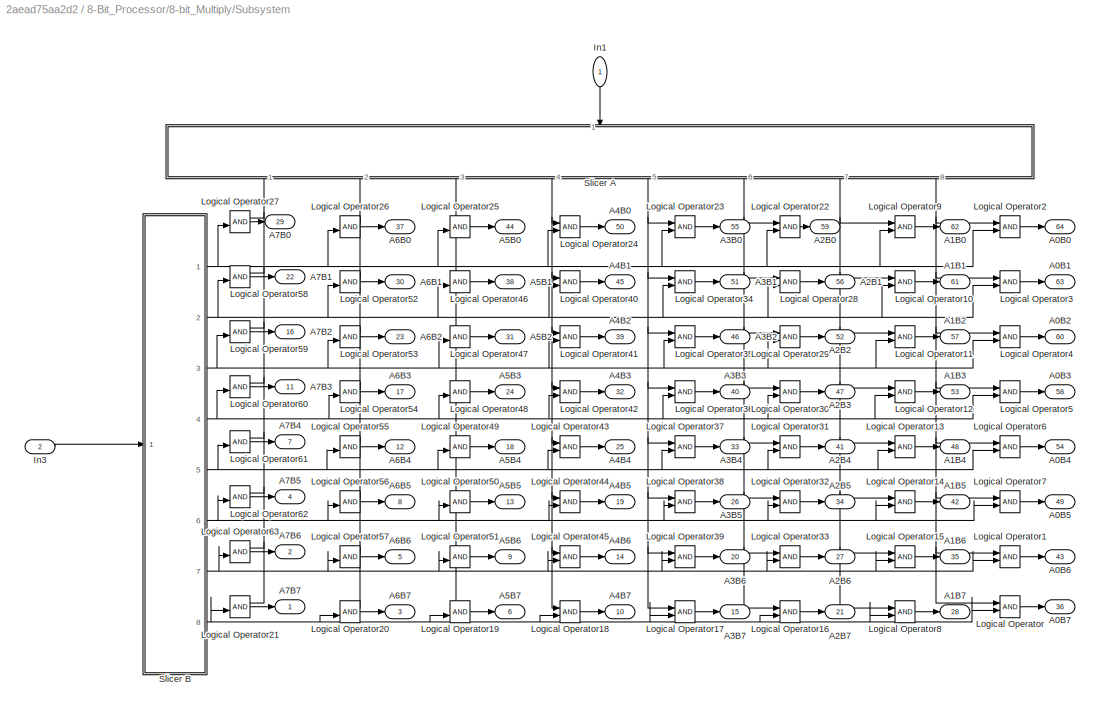
BLOCK [SubSystem] 8-Bit_Processor/8-bit_Multiply/Subsystem
  Ports = [2, 64]
  RequestExecContextInheritance = off
BLOCK [Outport] 8-Bit_Processor/8-bit_Multiply/Subsystem/A0B0
  IconDisplay = Port number
  Port = 64
BLOCK [Outport] 8-Bit_Processor/8-bit_Multiply/Subsystem/A0B1
  IconDisplay = Port number
  Port = 63
BLOCK [Outport] 8-Bit_Processor/8-bit_Multiply/Subsystem/A0B2
  IconDisplay = Port number
  Port = 60
BLOCK [Outport] 8-Bit_Processor/8-bit_Multiply/Subsystem/A0B3
  IconDisplay = Port number
  Port = 58
BLOCK [Outport] 8-Bit_Processor/8-bit_Multiply/Subsystem/A0B4
  IconDisplay = Port number
  Port = 54
BLOCK [Outport] 8-Bit_Processor/8-bit_Multiply/Subsystem/A0B5
  IconDisplay = Port number
  Port = 49
BLOCK [Outport] 8-Bit_Processor/8-bit_Multiply/Subsystem/A0B6
  IconDisplay = Port number
  Port = 43
BLOCK [Outport] 8-Bit_Processor/8-bit_Multiply/Subsystem/A0B7
  IconDisplay = Port number
  Port = 36
BLOCK [Outport] 8-Bit_Processor/8-bit_Multiply/Subsystem/A1B0
  IconDisplay = Port number
  Port = 62
BLOCK [Outport] 8-Bit_Processor/8-bit_Multiply/Subsystem/A1B1
  IconDisplay = Port number
  Port = 61
BLOCK [Outport] 8-Bit_Processor/8-bit_Multiply/Subsystem/A1B2
  IconDisplay = Port number
  Port = 57
BLOCK [Outport] 8-Bit_Processor/8-bit_Multiply/Subsystem/A1B3
  IconDisplay = Port number
  Port = 53
BLOCK [Outport] 8-Bit_Processor/8-bit_Multiply/Subsystem/A1B4
  IconDisplay = Port number
  Port = 48
BLOCK [Outport] 8-Bit_Processor/8-bit_Multiply/Subsystem/A1B5
  IconDisplay = Port number
  Port = 42
BLOCK [Outport] 8-Bit_Processor/8-bit_Multiply/Subsystem/A1B6
  IconDisplay = Port number
  Port = 35
BLOCK [Outport] 8-Bit_Processor/8-bit_Multiply/Subsystem/A1B7
  IconDisplay = Port number
  Port = 28
BLOCK [Outport] 8-Bit_Processor/8-bit_Multiply/Subsystem/A2B0
  IconDisplay = Port number
  Port = 59
BLOCK [Outport] 8-Bit_Processor/8-bit_Multiply/Subsystem/A2B1
  IconDisplay = Port number
  Port = 56
BLOCK [Outport] 8-Bit_Processor/8-bit_Multiply/Subsystem/A2B2
  IconDisplay = Port number
  Port = 52
BLOCK [Outport] 8-Bit_Processor/8-bit_Multiply/Subsystem/A2B3
  IconDisplay = Port number
  Port = 47
BLOCK [Outport] 8-Bit_Processor/8-bit_Multiply/Subsystem/A2B4
  IconDisplay = Port number
  Port = 41
BLOCK [Outport] 8-Bit_Processor/8-bit_Multiply/Subsystem/A2B5
  IconDisplay = Port number
  Port = 34
BLOCK [Outport] 8-Bit_Processor/8-bit_Multiply/Subsystem/A2B6
  IconDisplay = Port number
  Port = 27
BLOCK [Outport] 8-Bit_Processor/8-bit_Multiply/Subsystem/A2B7
  IconDisplay = Port number
  Port = 21
BLOCK [Outport] 8-Bit_Processor/8-bit_Multiply/Subsystem/A3B0
  IconDisplay = Port number
  Port = 55
BLOCK [Outport] 8-Bit_Processor/8-bit_Multiply/Subsystem/A3B1
  IconDisplay = Port number
  Port = 51
BLOCK [Outport] 8-Bit_Processor/8-bit_Multiply/Subsystem/A3B2
  IconDisplay = Port number
  Port = 46
BLOCK [Outport] 8-Bit_Processor/8-bit_Multiply/Subsystem/A3B3
  IconDisplay = Port number
  Port = 40
BLOCK [Outport] 8-Bit_Processor/8-bit_Multiply/Subsystem/A3B4
  IconDisplay = Port number
  Port = 33
BLOCK [Outport] 8-Bit_Processor/8-bit_Multiply/Subsystem/A3B5
  IconDisplay = Port number
  Port = 26
BLOCK [Outport] 8-Bit_Processor/8-bit_Multiply/Subsystem/A3B6
  IconDisplay = Port number
  Port = 20
BLOCK [Outport] 8-Bit_Processor/8-bit_Multiply/Subsystem/A3B7
  IconDisplay = Port number
  Port = 15
BLOCK [Outport] 8-Bit_Processor/8-bit_Multiply/Subsystem/A4B0
  IconDisplay = Port number
  Port = 50
BLOCK [Outport] 8-Bit_Processor/8-bit_Multiply/Subsystem/A4B1
  IconDisplay = Port number
  Port = 45
BLOCK [Outport] 8-Bit_Processor/8-bit_Multiply/Subsystem/A4B2
  IconDisplay = Port number
  Port = 39
BLOCK [Outport] 8-Bit_Processor/8-bit_Multiply/Subsystem/A4B3
  IconDisplay = Port number
  Port = 32
BLOCK [Outport] 8-Bit_Processor/8-bit_Multiply/Subsystem/A4B4
  IconDisplay = Port number
  Port = 25
BLOCK [Outport] 8-Bit_Processor/8-bit_Multiply/Subsystem/A4B5
  IconDisplay = Port number
  Port = 19
BLOCK [Outport] 8-Bit_Processor/8-bit_Multiply/Subsystem/A4B6
  IconDisplay = Port number
  Port = 14
BLOCK [Outport] 8-Bit_Processor/8-bit_Multiply/Subsystem/A4B7
  IconDisplay = Port number
  Port = 10
BLOCK [Outport] 8-Bit_Processor/8-bit_Multiply/Subsystem/A5B0
  IconDisplay = Port number
  Port = 44
BLOCK [Outport] 8-Bit_Processor/8-bit_Multiply/Subsystem/A5B1
  IconDisplay = Port number
  Port = 38
BLOCK [Outport] 8-Bit_Processor/8-bit_Multiply/Subsystem/A5B2
  IconDisplay = Port number
  Port = 31
BLOCK [Outport] 8-Bit_Processor/8-bit_Multiply/Subsystem/A5B3
  IconDisplay = Port number
  Port = 24
BLOCK [Outport] 8-Bit_Processor/8-bit_Multiply/Subsystem/A5B4
  IconDisplay = Port number
  Port = 18
BLOCK [Outport] 8-Bit_Processor/8-bit_Multiply/Subsystem/A5B5
  IconDisplay = Port number
  Port = 13
BLOCK [Outport] 8-Bit_Processor/8-bit_Multiply/Subsystem/A5B6
  IconDisplay = Port number
  Port = 9
BLOCK [Outport] 8-Bit_Processor/8-bit_Multiply/Subsystem/A5B7
  IconDisplay = Port number
  Port = 6
BLOCK [Outport] 8-Bit_Processor/8-bit_Multiply/Subsystem/A6B0
  IconDisplay = Port number
  Port = 37
BLOCK [Outport] 8-Bit_Processor/8-bit_Multiply/Subsystem/A6B1
  IconDisplay = Port number
  Port = 30
BLOCK [Outport] 8-Bit_Processor/8-bit_Multiply/Subsystem/A6B2
  IconDisplay = Port number
  Port = 23
BLOCK [Outport] 8-Bit_Processor/8-bit_Multiply/Subsystem/A6B3
  IconDisplay = Port number
  Port = 17
BLOCK [Outport] 8-Bit_Processor/8-bit_Multiply/Subsystem/A6B4
  IconDisplay = Port number
  Port = 12
BLOCK [Outport] 8-Bit_Processor/8-bit_Multiply/Subsystem/A6B5
  IconDisplay = Port number
  Port = 8
BLOCK [Outport] 8-Bit_Processor/8-bit_Multiply/Subsystem/A6B6
  IconDisplay = Port number
  Port = 5
BLOCK [Outport] 8-Bit_Processor/8-bit_Multiply/Subsystem/A6B7
  IconDisplay = Port number
  Port = 3
BLOCK [Outport] 8-Bit_Processor/8-bit_Multiply/Subsystem/A7B0
  IconDisplay = Port number
  Port = 29
BLOCK [Outport] 8-Bit_Processor/8-bit_Multiply/Subsystem/A7B1
  IconDisplay = Port number
  Port = 22
BLOCK [Outport] 8-Bit_Processor/8-bit_Multiply/Subsystem/A7B2
  IconDisplay = Port number
  Port = 16
BLOCK [Outport] 8-Bit_Processor/8-bit_Multiply/Subsystem/A7B3
  IconDisplay = Port number
  Port = 11
BLOCK [Outport] 8-Bit_Processor/8-bit_Multiply/Subsystem/A7B4
  IconDisplay = Port number
  Port = 7
BLOCK [Outport] 8-Bit_Processor/8-bit_Multiply/Subsystem/A7B5
  IconDisplay = Port number
  Port = 4
BLOCK [Outport] 8-Bit_Processor/8-bit_Multiply/Subsystem/A7B6
  IconDisplay = Port number
  Port = 2
BLOCK [Outport] 8-Bit_Processor/8-bit_Multiply/Subsystem/A7B7
  IconDisplay = Port number
BLOCK [Inport] 8-Bit_Processor/8-bit_Multiply/Subsystem/In1
  IconDisplay = Port number
BLOCK [Inport] 8-Bit_Processor/8-bit_Multiply/Subsystem/In3
  IconDisplay = Port number
  Port = 2
BLOCK [Logic] 8-Bit_Processor/8-bit_Multiply/Subsystem/Logical Operator
  AllPortsSameDT = off
  OutDataTypeStr = boolean
  Ports = [2, 1]
BLOCK [Logic] 8-Bit_Processor/8-bit_Multiply/Subsystem/Logical Operator1
  AllPortsSameDT = off
  OutDataTypeStr = boolean
  Ports = [2, 1]
BLOCK [Logic] 8-Bit_Processor/8-bit_Multiply/Subsystem/Logical Operator10
  AllPortsSameDT = off
  OutDataTypeStr = boolean
  Ports = [2, 1]
BLOCK [Logic] 8-Bit_Processor/8-bit_Multiply/Subsystem/Logical Operator11
  AllPortsSameDT = off
  OutDataTypeStr = boolean
  Ports = [2, 1]
BLOCK [Logic] 8-Bit_Processor/8-bit_Multiply/Subsystem/Logical Operator12
  AllPortsSameDT = off
  OutDataTypeStr = boolean
  Ports = [2, 1]
BLOCK [Logic] 8-Bit_Processor/8-bit_Multiply/Subsystem/Logical Operator13
  AllPortsSameDT = off
  OutDataTypeStr = boolean
  Ports = [2, 1]
BLOCK [Logic] 8-Bit_Processor/8-bit_Multiply/Subsystem/Logical Operator14
  AllPortsSameDT = off
  OutDataTypeStr = boolean
  Ports = [2, 1]
BLOCK [Logic] 8-Bit_Processor/8-bit_Multiply/Subsystem/Logical Operator15
  AllPortsSameDT = off
  OutDataTypeStr = boolean
  Ports = [2, 1]
BLOCK [Logic] 8-Bit_Processor/8-bit_Multiply/Subsystem/Logical Operator16
  AllPortsSameDT = off
  OutDataTypeStr = boolean
  Ports = [2, 1]
BLOCK [Logic] 8-Bit_Processor/8-bit_Multiply/Subsystem/Logical Operator17
  AllPortsSameDT = off
  OutDataTypeStr = boolean
  Ports = [2, 1]
BLOCK [Logic] 8-Bit_Processor/8-bit_Multiply/Subsystem/Logical Operator18
  AllPortsSameDT = off
  OutDataTypeStr = boolean
  Ports = [2, 1]
BLOCK [Logic] 8-Bit_Processor/8-bit_Multiply/Subsystem/Logical Operator19
  AllPortsSameDT = off
  OutDataTypeStr = boolean
  Ports = [2, 1]
BLOCK [Logic] 8-Bit_Processor/8-bit_Multiply/Subsystem/Logical Operator2
  AllPortsSameDT = off
  OutDataTypeStr = boolean
  Ports = [2, 1]
BLOCK [Logic] 8-Bit_Processor/8-bit_Multiply/Subsystem/Logical Operator20
  AllPortsSameDT = off
  OutDataTypeStr = boolean
  Ports = [2, 1]
BLOCK [Logic] 8-Bit_Processor/8-bit_Multiply/Subsystem/Logical Operator21
  AllPortsSameDT = off
  OutDataTypeStr = boolean
  Ports = [2, 1]
BLOCK [Logic] 8-Bit_Processor/8-bit_Multiply/Subsystem/Logical Operator22
  AllPortsSameDT = off
  OutDataTypeStr = boolean
  Ports = [2, 1]
BLOCK [Logic] 8-Bit_Processor/8-bit_Multiply/Subsystem/Logical Operator23
  AllPortsSameDT = off
  OutDataTypeStr = boolean
  Ports = [2, 1]
BLOCK [Logic] 8-Bit_Processor/8-bit_Multiply/Subsystem/Logical Operator24
  AllPortsSameDT = off
  OutDataTypeStr = boolean
  Ports = [2, 1]
BLOCK [Logic] 8-Bit_Processor/8-bit_Multiply/Subsystem/Logical Operator25
  AllPortsSameDT = off
  OutDataTypeStr = boolean
  Ports = [2, 1]
BLOCK [Logic] 8-Bit_Processor/8-bit_Multiply/Subsystem/Logical Operator26
  AllPortsSameDT = off
  OutDataTypeStr = boolean
  Ports = [2, 1]
BLOCK [Logic] 8-Bit_Processor/8-bit_Multiply/Subsystem/Logical Operator27
  AllPortsSameDT = off
  OutDataTypeStr = boolean
  Ports = [2, 1]
BLOCK [Logic] 8-Bit_Processor/8-bit_Multiply/Subsystem/Logical Operator28
  AllPortsSameDT = off
  OutDataTypeStr = boolean
  Ports = [2, 1]
BLOCK [Logic] 8-Bit_Processor/8-bit_Multiply/Subsystem/Logical Operator29
  AllPortsSameDT = off
  OutDataTypeStr = boolean
  Ports = [2, 1]
BLOCK [Logic] 8-Bit_Processor/8-bit_Multiply/Subsystem/Logical Operator3
  AllPortsSameDT = off
  OutDataTypeStr = boolean
  Ports = [2, 1]
BLOCK [Logic] 8-Bit_Processor/8-bit_Multiply/Subsystem/Logical Operator30
  AllPortsSameDT = off
  OutDataTypeStr = boolean
  Ports = [2, 1]
BLOCK [Logic] 8-Bit_Processor/8-bit_Multiply/Subsystem/Logical Operator31
  AllPortsSameDT = off
  OutDataTypeStr = boolean
  Ports = [2, 1]
BLOCK [Logic] 8-Bit_Processor/8-bit_Multiply/Subsystem/Logical Operator32
  AllPortsSameDT = off
  OutDataTypeStr = boolean
  Ports = [2, 1]
BLOCK [Logic] 8-Bit_Processor/8-bit_Multiply/Subsystem/Logical Operator33
  AllPortsSameDT = off
  OutDataTypeStr = boolean
  Ports = [2, 1]
BLOCK [Logic] 8-Bit_Processor/8-bit_Multiply/Subsystem/Logical Operator34
  AllPortsSameDT = off
  OutDataTypeStr = boolean
  Ports = [2, 1]
BLOCK [Logic] 8-Bit_Processor/8-bit_Multiply/Subsystem/Logical Operator35
  AllPortsSameDT = off
  OutDataTypeStr = boolean
  Ports = [2, 1]
BLOCK [Logic] 8-Bit_Processor/8-bit_Multiply/Subsystem/Logical Operator36
  AllPortsSameDT = off
  OutDataTypeStr = boolean
  Ports = [2, 1]
BLOCK [Logic] 8-Bit_Processor/8-bit_Multiply/Subsystem/Logical Operator37
  AllPortsSameDT = off
  OutDataTypeStr = boolean
  Ports = [2, 1]
BLOCK [Logic] 8-Bit_Processor/8-bit_Multiply/Subsystem/Logical Operator38
  AllPortsSameDT = off
  OutDataTypeStr = boolean
  Ports = [2, 1]
BLOCK [Logic] 8-Bit_Processor/8-bit_Multiply/Subsystem/Logical Operator39
  AllPortsSameDT = off
  OutDataTypeStr = boolean
  Ports = [2, 1]
BLOCK [Logic] 8-Bit_Processor/8-bit_Multiply/Subsystem/Logical Operator4
  AllPortsSameDT = off
  OutDataTypeStr = boolean
  Ports = [2, 1]
BLOCK [Logic] 8-Bit_Processor/8-bit_Multiply/Subsystem/Logical Operator40
  AllPortsSameDT = off
  OutDataTypeStr = boolean
  Ports = [2, 1]
BLOCK [Logic] 8-Bit_Processor/8-bit_Multiply/Subsystem/Logical Operator41
  AllPortsSameDT = off
  OutDataTypeStr = boolean
  Ports = [2, 1]
BLOCK [Logic] 8-Bit_Processor/8-bit_Multiply/Subsystem/Logical Operator42
  AllPortsSameDT = off
  OutDataTypeStr = boolean
  Ports = [2, 1]
BLOCK [Logic] 8-Bit_Processor/8-bit_Multiply/Subsystem/Logical Operator43
  AllPortsSameDT = off
  OutDataTypeStr = boolean
  Ports = [2, 1]
BLOCK [Logic] 8-Bit_Processor/8-bit_Multiply/Subsystem/Logical Operator44
  AllPortsSameDT = off
  OutDataTypeStr = boolean
  Ports = [2, 1]
BLOCK [Logic] 8-Bit_Processor/8-bit_Multiply/Subsystem/Logical Operator45
  AllPortsSameDT = off
  OutDataTypeStr = boolean
  Ports = [2, 1]
BLOCK [Logic] 8-Bit_Processor/8-bit_Multiply/Subsystem/Logical Operator46
  AllPortsSameDT = off
  OutDataTypeStr = boolean
  Ports = [2, 1]
BLOCK [Logic] 8-Bit_Processor/8-bit_Multiply/Subsystem/Logical Operator47
  AllPortsSameDT = off
  OutDataTypeStr = boolean
  Ports = [2, 1]
BLOCK [Logic] 8-Bit_Processor/8-bit_Multiply/Subsystem/Logical Operator48
  AllPortsSameDT = off
  OutDataTypeStr = boolean
  Ports = [2, 1]
BLOCK [Logic] 8-Bit_Processor/8-bit_Multiply/Subsystem/Logical Operator49
  AllPortsSameDT = off
  OutDataTypeStr = boolean
  Ports = [2, 1]
BLOCK [Logic] 8-Bit_Processor/8-bit_Multiply/Subsystem/Logical Operator5
  AllPortsSameDT = off
  OutDataTypeStr = boolean
  Ports = [2, 1]
BLOCK [Logic] 8-Bit_Processor/8-bit_Multiply/Subsystem/Logical Operator50
  AllPortsSameDT = off
  OutDataTypeStr = boolean
  Ports = [2, 1]
BLOCK [Logic] 8-Bit_Processor/8-bit_Multiply/Subsystem/Logical Operator51
  AllPortsSameDT = off
  OutDataTypeStr = boolean
  Ports = [2, 1]
BLOCK [Logic] 8-Bit_Processor/8-bit_Multiply/Subsystem/Logical Operator52
  AllPortsSameDT = off
  OutDataTypeStr = boolean
  Ports = [2, 1]
BLOCK [Logic] 8-Bit_Processor/8-bit_Multiply/Subsystem/Logical Operator53
  AllPortsSameDT = off
  OutDataTypeStr = boolean
  Ports = [2, 1]
BLOCK [Logic] 8-Bit_Processor/8-bit_Multiply/Subsystem/Logical Operator54
  AllPortsSameDT = off
  OutDataTypeStr = boolean
  Ports = [2, 1]
BLOCK [Logic] 8-Bit_Processor/8-bit_Multiply/Subsystem/Logical Operator55
  AllPortsSameDT = off
  OutDataTypeStr = boolean
  Ports = [2, 1]
BLOCK [Logic] 8-Bit_Processor/8-bit_Multiply/Subsystem/Logical Operator56
  AllPortsSameDT = off
  OutDataTypeStr = boolean
  Ports = [2, 1]
BLOCK [Logic] 8-Bit_Processor/8-bit_Multiply/Subsystem/Logical Operator57
  AllPortsSameDT = off
  OutDataTypeStr = boolean
  Ports = [2, 1]
BLOCK [Logic] 8-Bit_Processor/8-bit_Multiply/Subsystem/Logical Operator58
  AllPortsSameDT = off
  OutDataTypeStr = boolean
  Ports = [2, 1]
BLOCK [Logic] 8-Bit_Processor/8-bit_Multiply/Subsystem/Logical Operator59
  AllPortsSameDT = off
  OutDataTypeStr = boolean
  Ports = [2, 1]
BLOCK [Logic] 8-Bit_Processor/8-bit_Multiply/Subsystem/Logical Operator6
  AllPortsSameDT = off
  OutDataTypeStr = boolean
  Ports = [2, 1]
BLOCK [Logic] 8-Bit_Processor/8-bit_Multiply/Subsystem/Logical Operator60
  AllPortsSameDT = off
  OutDataTypeStr = boolean
  Ports = [2, 1]
BLOCK [Logic] 8-Bit_Processor/8-bit_Multiply/Subsystem/Logical Operator61
  AllPortsSameDT = off
  OutDataTypeStr = boolean
  Ports = [2, 1]
BLOCK [Logic] 8-Bit_Processor/8-bit_Multiply/Subsystem/Logical Operator62
  AllPortsSameDT = off
  OutDataTypeStr = boolean
  Ports = [2, 1]
BLOCK [Logic] 8-Bit_Processor/8-bit_Multiply/Subsystem/Logical Operator63
  AllPortsSameDT = off
  OutDataTypeStr = boolean
  Ports = [2, 1]
BLOCK [Logic] 8-Bit_Processor/8-bit_Multiply/Subsystem/Logical Operator7
  AllPortsSameDT = off
  OutDataTypeStr = boolean
  Ports = [2, 1]
BLOCK [Logic] 8-Bit_Processor/8-bit_Multiply/Subsystem/Logical Operator8
  AllPortsSameDT = off
  OutDataTypeStr = boolean
  Ports = [2, 1]
BLOCK [Logic] 8-Bit_Processor/8-bit_Multiply/Subsystem/Logical Operator9
  AllPortsSameDT = off
  OutDataTypeStr = boolean
  Ports = [2, 1]
BLOCK [SubSystem] 8-Bit_Processor/8-bit_Multiply/Subsystem/Slicer A
  Ports = [1, 8]
  RequestExecContextInheritance = off
BLOCK [Outport] 8-Bit_Processor/8-bit_Multiply/Subsystem/Slicer A/A 2^0 
  IconDisplay = Port number
  Port = 8
BLOCK [Outport] 8-Bit_Processor/8-bit_Multiply/Subsystem/Slicer A/A 2^1
  IconDisplay = Port number
  Port = 7
BLOCK [Outport] 8-Bit_Processor/8-bit_Multiply/Subsystem/Slicer A/A 2^2
  IconDisplay = Port number
  Port = 6
BLOCK [Outport] 8-Bit_Processor/8-bit_Multiply/Subsystem/Slicer A/A 2^3
  IconDisplay = Port number
  Port = 5
BLOCK [Outport] 8-Bit_Processor/8-bit_Multiply/Subsystem/Slicer A/A 2^4
  IconDisplay = Port number
  Port = 4
BLOCK [Outport] 8-Bit_Processor/8-bit_Multiply/Subsystem/Slicer A/A 2^5
  IconDisplay = Port number
  Port = 3
BLOCK [Outport] 8-Bit_Processor/8-bit_Multiply/Subsystem/Slicer A/A 2^6
  IconDisplay = Port number
  Port = 2
BLOCK [Outport] 8-Bit_Processor/8-bit_Multiply/Subsystem/Slicer A/A 2^7
  IconDisplay = Port number
BLOCK [Reference] 8-Bit_Processor/8-bit_Multiply/Subsystem/Slicer A/Bit Slice  REF=hdlsllib/Logic and Bit
Operations/Bit Slice
  Ports = [1, 1]
  SourceBlock = hdlsllib/Logic and Bit\nOperations/Bit Slice
  SourceProductBaseCode = HD
  SourceProductName = HDL Coder
  SourceType = Bit Slice
BLOCK [Reference] 8-Bit_Processor/8-bit_Multiply/Subsystem/Slicer A/Bit Slice1  REF=hdlsllib/Logic and Bit
Operations/Bit Slice
  Ports = [1, 1]
  SourceBlock = hdlsllib/Logic and Bit\nOperations/Bit Slice
  SourceProductBaseCode = HD
  SourceProductName = HDL Coder
  SourceType = Bit Slice
BLOCK [Reference] 8-Bit_Processor/8-bit_Multiply/Subsystem/Slicer A/Bit Slice2  REF=hdlsllib/Logic and Bit
Operations/Bit Slice
  Ports = [1, 1]
  SourceBlock = hdlsllib/Logic and Bit\nOperations/Bit Slice
  SourceProductBaseCode = HD
  SourceProductName = HDL Coder
  SourceType = Bit Slice
BLOCK [Reference] 8-Bit_Processor/8-bit_Multiply/Subsystem/Slicer A/Bit Slice3  REF=hdlsllib/Logic and Bit
Operations/Bit Slice
  Ports = [1, 1]
  SourceBlock = hdlsllib/Logic and Bit\nOperations/Bit Slice
  SourceProductBaseCode = HD
  SourceProductName = HDL Coder
  SourceType = Bit Slice
BLOCK [Reference] 8-Bit_Processor/8-bit_Multiply/Subsystem/Slicer A/Bit Slice4  REF=hdlsllib/Logic and Bit
Operations/Bit Slice
  Ports = [1, 1]
  SourceBlock = hdlsllib/Logic and Bit\nOperations/Bit Slice
  SourceProductBaseCode = HD
  SourceProductName = HDL Coder
  SourceType = Bit Slice
BLOCK [Reference] 8-Bit_Processor/8-bit_Multiply/Subsystem/Slicer A/Bit Slice5  REF=hdlsllib/Logic and Bit
Operations/Bit Slice
  Ports = [1, 1]
  SourceBlock = hdlsllib/Logic and Bit\nOperations/Bit Slice
  SourceProductBaseCode = HD
  SourceProductName = HDL Coder
  SourceType = Bit Slice
BLOCK [Reference] 8-Bit_Processor/8-bit_Multiply/Subsystem/Slicer A/Bit Slice6  REF=hdlsllib/Logic and Bit
Operations/Bit Slice
  Ports = [1, 1]
  SourceBlock = hdlsllib/Logic and Bit\nOperations/Bit Slice
  SourceProductBaseCode = HD
  SourceProductName = HDL Coder
  SourceType = Bit Slice
BLOCK [Reference] 8-Bit_Processor/8-bit_Multiply/Subsystem/Slicer A/Bit Slice7  REF=hdlsllib/Logic and Bit
Operations/Bit Slice
  Ports = [1, 1]
  SourceBlock = hdlsllib/Logic and Bit\nOperations/Bit Slice
  SourceProductBaseCode = HD
  SourceProductName = HDL Coder
  SourceType = Bit Slice
BLOCK [DataTypeConversion] 8-Bit_Processor/8-bit_Multiply/Subsystem/Slicer A/Data Type Conversion
  OutDataTypeStr = boolean
  RndMeth = Floor
  SaturateOnIntegerOverflow = off
BLOCK [DataTypeConversion] 8-Bit_Processor/8-bit_Multiply/Subsystem/Slicer A/Data Type Conversion1
  OutDataTypeStr = boolean
  RndMeth = Floor
  SaturateOnIntegerOverflow = off
BLOCK [DataTypeConversion] 8-Bit_Processor/8-bit_Multiply/Subsystem/Slicer A/Data Type Conversion2
  OutDataTypeStr = boolean
  RndMeth = Floor
  SaturateOnIntegerOverflow = off
BLOCK [DataTypeConversion] 8-Bit_Processor/8-bit_Multiply/Subsystem/Slicer A/Data Type Conversion3
  OutDataTypeStr = boolean
  RndMeth = Floor
  SaturateOnIntegerOverflow = off
BLOCK [DataTypeConversion] 8-Bit_Processor/8-bit_Multiply/Subsystem/Slicer A/Data Type Conversion4
  OutDataTypeStr = boolean
  RndMeth = Floor
  SaturateOnIntegerOverflow = off
BLOCK [DataTypeConversion] 8-Bit_Processor/8-bit_Multiply/Subsystem/Slicer A/Data Type Conversion5
  OutDataTypeStr = boolean
  RndMeth = Floor
  SaturateOnIntegerOverflow = off
BLOCK [DataTypeConversion] 8-Bit_Processor/8-bit_Multiply/Subsystem/Slicer A/Data Type Conversion6
  OutDataTypeStr = boolean
  RndMeth = Floor
  SaturateOnIntegerOverflow = off
BLOCK [DataTypeConversion] 8-Bit_Processor/8-bit_Multiply/Subsystem/Slicer A/Data Type Conversion7
  OutDataTypeStr = boolean
  RndMeth = Floor
  SaturateOnIntegerOverflow = off
BLOCK [Inport] 8-Bit_Processor/8-bit_Multiply/Subsystem/Slicer A/uint8
  IconDisplay = Port number
  OutDataTypeStr = uint8
  SampleTime = 1
BLOCK [SubSystem] 8-Bit_Processor/8-bit_Multiply/Subsystem/Slicer B
  Ports = [1, 8]
  RequestExecContextInheritance = off
BLOCK [Outport] 8-Bit_Processor/8-bit_Multiply/Subsystem/Slicer B/B 2^0 
  IconDisplay = Port number
BLOCK [Outport] 8-Bit_Processor/8-bit_Multiply/Subsystem/Slicer B/B 2^1
  IconDisplay = Port number
  Port = 2
BLOCK [Outport] 8-Bit_Processor/8-bit_Multiply/Subsystem/Slicer B/B 2^2
  IconDisplay = Port number
  Port = 3
BLOCK [Outport] 8-Bit_Processor/8-bit_Multiply/Subsystem/Slicer B/B 2^3
  IconDisplay = Port number
  Port = 4
BLOCK [Outport] 8-Bit_Processor/8-bit_Multiply/Subsystem/Slicer B/B 2^4
  IconDisplay = Port number
  Port = 5
BLOCK [Outport] 8-Bit_Processor/8-bit_Multiply/Subsystem/Slicer B/B 2^5
  IconDisplay = Port number
  Port = 6
BLOCK [Outport] 8-Bit_Processor/8-bit_Multiply/Subsystem/Slicer B/B 2^6
  IconDisplay = Port number
  Port = 7
BLOCK [Outport] 8-Bit_Processor/8-bit_Multiply/Subsystem/Slicer B/B 2^7
  IconDisplay = Port number
  Port = 8
BLOCK [Reference] 8-Bit_Processor/8-bit_Multiply/Subsystem/Slicer B/Bit Slice  REF=hdlsllib/Logic and Bit
Operations/Bit Slice
  Ports = [1, 1]
  SourceBlock = hdlsllib/Logic and Bit\nOperations/Bit Slice
  SourceProductBaseCode = HD
  SourceProductName = HDL Coder
  SourceType = Bit Slice
BLOCK [Reference] 8-Bit_Processor/8-bit_Multiply/Subsystem/Slicer B/Bit Slice1  REF=hdlsllib/Logic and Bit
Operations/Bit Slice
  Ports = [1, 1]
  SourceBlock = hdlsllib/Logic and Bit\nOperations/Bit Slice
  SourceProductBaseCode = HD
  SourceProductName = HDL Coder
  SourceType = Bit Slice
BLOCK [Reference] 8-Bit_Processor/8-bit_Multiply/Subsystem/Slicer B/Bit Slice2  REF=hdlsllib/Logic and Bit
Operations/Bit Slice
  Ports = [1, 1]
  SourceBlock = hdlsllib/Logic and Bit\nOperations/Bit Slice
  SourceProductBaseCode = HD
  SourceProductName = HDL Coder
  SourceType = Bit Slice
BLOCK [Reference] 8-Bit_Processor/8-bit_Multiply/Subsystem/Slicer B/Bit Slice3  REF=hdlsllib/Logic and Bit
Operations/Bit Slice
  Ports = [1, 1]
  SourceBlock = hdlsllib/Logic and Bit\nOperations/Bit Slice
  SourceProductBaseCode = HD
  SourceProductName = HDL Coder
  SourceType = Bit Slice
BLOCK [Reference] 8-Bit_Processor/8-bit_Multiply/Subsystem/Slicer B/Bit Slice4  REF=hdlsllib/Logic and Bit
Operations/Bit Slice
  Ports = [1, 1]
  SourceBlock = hdlsllib/Logic and Bit\nOperations/Bit Slice
  SourceProductBaseCode = HD
  SourceProductName = HDL Coder
  SourceType = Bit Slice
BLOCK [Reference] 8-Bit_Processor/8-bit_Multiply/Subsystem/Slicer B/Bit Slice5  REF=hdlsllib/Logic and Bit
Operations/Bit Slice
  Ports = [1, 1]
  SourceBlock = hdlsllib/Logic and Bit\nOperations/Bit Slice
  SourceProductBaseCode = HD
  SourceProductName = HDL Coder
  SourceType = Bit Slice
BLOCK [Reference] 8-Bit_Processor/8-bit_Multiply/Subsystem/Slicer B/Bit Slice6  REF=hdlsllib/Logic and Bit
Operations/Bit Slice
  Ports = [1, 1]
  SourceBlock = hdlsllib/Logic and Bit\nOperations/Bit Slice
  SourceProductBaseCode = HD
  SourceProductName = HDL Coder
  SourceType = Bit Slice
BLOCK [Reference] 8-Bit_Processor/8-bit_Multiply/Subsystem/Slicer B/Bit Slice7  REF=hdlsllib/Logic and Bit
Operations/Bit Slice
  Ports = [1, 1]
  SourceBlock = hdlsllib/Logic and Bit\nOperations/Bit Slice
  SourceProductBaseCode = HD
  SourceProductName = HDL Coder
  SourceType = Bit Slice
BLOCK [DataTypeConversion] 8-Bit_Processor/8-bit_Multiply/Subsystem/Slicer B/Data Type Conversion
  OutDataTypeStr = boolean
  RndMeth = Floor
  SaturateOnIntegerOverflow = off
BLOCK [DataTypeConversion] 8-Bit_Processor/8-bit_Multiply/Subsystem/Slicer B/Data Type Conversion1
  OutDataTypeStr = boolean
  RndMeth = Floor
  SaturateOnIntegerOverflow = off
BLOCK [DataTypeConversion] 8-Bit_Processor/8-bit_Multiply/Subsystem/Slicer B/Data Type Conversion2
  OutDataTypeStr = boolean
  RndMeth = Floor
  SaturateOnIntegerOverflow = off
BLOCK [DataTypeConversion] 8-Bit_Processor/8-bit_Multiply/Subsystem/Slicer B/Data Type Conversion3
  OutDataTypeStr = boolean
  RndMeth = Floor
  SaturateOnIntegerOverflow = off
BLOCK [DataTypeConversion] 8-Bit_Processor/8-bit_Multiply/Subsystem/Slicer B/Data Type Conversion4
  OutDataTypeStr = boolean
  RndMeth = Floor
  SaturateOnIntegerOverflow = off
BLOCK [DataTypeConversion] 8-Bit_Processor/8-bit_Multiply/Subsystem/Slicer B/Data Type Conversion5
  OutDataTypeStr = boolean
  RndMeth = Floor
  SaturateOnIntegerOverflow = off
BLOCK [DataTypeConversion] 8-Bit_Processor/8-bit_Multiply/Subsystem/Slicer B/Data Type Conversion6
  OutDataTypeStr = boolean
  RndMeth = Floor
  SaturateOnIntegerOverflow = off
BLOCK [DataTypeConversion] 8-Bit_Processor/8-bit_Multiply/Subsystem/Slicer B/Data Type Conversion7
  OutDataTypeStr = boolean
  RndMeth = Floor
  SaturateOnIntegerOverflow = off
BLOCK [Inport] 8-Bit_Processor/8-bit_Multiply/Subsystem/Slicer B/uint8
  IconDisplay = Port number
  OutDataTypeStr = uint8
  SampleTime = 1
BLOCK [SubSystem] 8-Bit_Processor/8-bit_Register
  Ports = [2, 1]
  RequestExecContextInheritance = off
BLOCK [Inport] 8-Bit_Processor/8-bit_Register/Clk
  IconDisplay = Port number
  Port = 2
BLOCK [SubSystem] 8-Bit_Processor/8-bit_Register/Concat
  Ports = [8, 1]
  RequestExecContextInheritance = off
BLOCK [Reference] 8-Bit_Processor/8-bit_Register/Concat/Bit Concat  REF=hdlsllib/Logic and Bit
Operations/Bit Concat
  Ports = [8, 1]
  SourceBlock = hdlsllib/Logic and Bit\nOperations/Bit Concat
  SourceProductBaseCode = HD
  SourceProductName = HDL Coder
  SourceType = Bit Concat
BLOCK [Inport] 8-Bit_Processor/8-bit_Register/Concat/S 2^0
  IconDisplay = Port number
  Port = 8
BLOCK [Inport] 8-Bit_Processor/8-bit_Register/Concat/S 2^1
  IconDisplay = Port number
  Port = 7
BLOCK [Inport] 8-Bit_Processor/8-bit_Register/Concat/S 2^2
  IconDisplay = Port number
  Port = 6
BLOCK [Inport] 8-Bit_Processor/8-bit_Register/Concat/S 2^3
  IconDisplay = Port number
  Port = 5
BLOCK [Inport] 8-Bit_Processor/8-bit_Register/Concat/S 2^4
  IconDisplay = Port number
  Port = 4
BLOCK [Inport] 8-Bit_Processor/8-bit_Register/Concat/S 2^5
  IconDisplay = Port number
  Port = 3
BLOCK [Inport] 8-Bit_Processor/8-bit_Register/Concat/S 2^6
  IconDisplay = Port number
  Port = 2
BLOCK [Inport] 8-Bit_Processor/8-bit_Register/Concat/S 2^7
  IconDisplay = Port number
BLOCK [Outport] 8-Bit_Processor/8-bit_Register/Concat/unsign Int
  IconDisplay = Port number
BLOCK [Constant] 8-Bit_Processor/8-bit_Register/Constant
  OutDataTypeStr = boolean
  SampleTime = 1
BLOCK [Reference] 8-Bit_Processor/8-bit_Register/D Flip-Flop  REF=simulink_extras/Flip Flops/D Flip-Flop
  Ports = [3, 2]
  SourceBlock = simulink_extras/Flip Flops/D Flip-Flop
  SourceProductBaseCode = SL
  SourceProductName = Simulink
  SourceType = DFlipFlop
BLOCK [Reference] 8-Bit_Processor/8-bit_Register/D Flip-Flop1  REF=simulink_extras/Flip Flops/D Flip-Flop
  Ports = [3, 2]
  SourceBlock = simulink_extras/Flip Flops/D Flip-Flop
  SourceProductBaseCode = SL
  SourceProductName = Simulink
  SourceType = DFlipFlop
BLOCK [Reference] 8-Bit_Processor/8-bit_Register/D Flip-Flop2  REF=simulink_extras/Flip Flops/D Flip-Flop
  Ports = [3, 2]
  SourceBlock = simulink_extras/Flip Flops/D Flip-Flop
  SourceProductBaseCode = SL
  SourceProductName = Simulink
  SourceType = DFlipFlop
BLOCK [Reference] 8-Bit_Processor/8-bit_Register/D Flip-Flop3  REF=simulink_extras/Flip Flops/D Flip-Flop
  Ports = [3, 2]
  SourceBlock = simulink_extras/Flip Flops/D Flip-Flop
  SourceProductBaseCode = SL
  SourceProductName = Simulink
  SourceType = DFlipFlop
BLOCK [Reference] 8-Bit_Processor/8-bit_Register/D Flip-Flop4  REF=simulink_extras/Flip Flops/D Flip-Flop
  Ports = [3, 2]
  SourceBlock = simulink_extras/Flip Flops/D Flip-Flop
  SourceProductBaseCode = SL
  SourceProductName = Simulink
  SourceType = DFlipFlop
BLOCK [Reference] 8-Bit_Processor/8-bit_Register/D Flip-Flop5  REF=simulink_extras/Flip Flops/D Flip-Flop
  Ports = [3, 2]
  SourceBlock = simulink_extras/Flip Flops/D Flip-Flop
  SourceProductBaseCode = SL
  SourceProductName = Simulink
  SourceType = DFlipFlop
BLOCK [Reference] 8-Bit_Processor/8-bit_Register/D Flip-Flop6  REF=simulink_extras/Flip Flops/D Flip-Flop
  Ports = [3, 2]
  SourceBlock = simulink_extras/Flip Flops/D Flip-Flop
  SourceProductBaseCode = SL
  SourceProductName = Simulink
  SourceType = DFlipFlop
BLOCK [Reference] 8-Bit_Processor/8-bit_Register/D Flip-Flop7  REF=simulink_extras/Flip Flops/D Flip-Flop
  Ports = [3, 2]
  SourceBlock = simulink_extras/Flip Flops/D Flip-Flop
  SourceProductBaseCode = SL
  SourceProductName = Simulink
  SourceType = DFlipFlop
BLOCK [Inport] 8-Bit_Processor/8-bit_Register/Data_In
  IconDisplay = Port number
  OutDataTypeStr = uint8
BLOCK [Outport] 8-Bit_Processor/8-bit_Register/Data_Out
  IconDisplay = Port number
BLOCK [SubSystem] 8-Bit_Processor/8-bit_Register/Slicer A
  Ports = [1, 8]
  RequestExecContextInheritance = off
BLOCK [Outport] 8-Bit_Processor/8-bit_Register/Slicer A/A 2^0 
  IconDisplay = Port number
  Port = 8
BLOCK [Outport] 8-Bit_Processor/8-bit_Register/Slicer A/A 2^1
  IconDisplay = Port number
  Port = 7
BLOCK [Outport] 8-Bit_Processor/8-bit_Register/Slicer A/A 2^2
  IconDisplay = Port number
  Port = 6
BLOCK [Outport] 8-Bit_Processor/8-bit_Register/Slicer A/A 2^3
  IconDisplay = Port number
  Port = 5
BLOCK [Outport] 8-Bit_Processor/8-bit_Register/Slicer A/A 2^4
  IconDisplay = Port number
  Port = 4
BLOCK [Outport] 8-Bit_Processor/8-bit_Register/Slicer A/A 2^5
  IconDisplay = Port number
  Port = 3
BLOCK [Outport] 8-Bit_Processor/8-bit_Register/Slicer A/A 2^6
  IconDisplay = Port number
  Port = 2
BLOCK [Outport] 8-Bit_Processor/8-bit_Register/Slicer A/A 2^7
  IconDisplay = Port number
BLOCK [Reference] 8-Bit_Processor/8-bit_Register/Slicer A/Bit Slice  REF=hdlsllib/Logic and Bit
Operations/Bit Slice
  Ports = [1, 1]
  SourceBlock = hdlsllib/Logic and Bit\nOperations/Bit Slice
  SourceProductBaseCode = HD
  SourceProductName = HDL Coder
  SourceType = Bit Slice
BLOCK [Reference] 8-Bit_Processor/8-bit_Register/Slicer A/Bit Slice1  REF=hdlsllib/Logic and Bit
Operations/Bit Slice
  Ports = [1, 1]
  SourceBlock = hdlsllib/Logic and Bit\nOperations/Bit Slice
  SourceProductBaseCode = HD
  SourceProductName = HDL Coder
  SourceType = Bit Slice
BLOCK [Reference] 8-Bit_Processor/8-bit_Register/Slicer A/Bit Slice2  REF=hdlsllib/Logic and Bit
Operations/Bit Slice
  Ports = [1, 1]
  SourceBlock = hdlsllib/Logic and Bit\nOperations/Bit Slice
  SourceProductBaseCode = HD
  SourceProductName = HDL Coder
  SourceType = Bit Slice
BLOCK [Reference] 8-Bit_Processor/8-bit_Register/Slicer A/Bit Slice3  REF=hdlsllib/Logic and Bit
Operations/Bit Slice
  Ports = [1, 1]
  SourceBlock = hdlsllib/Logic and Bit\nOperations/Bit Slice
  SourceProductBaseCode = HD
  SourceProductName = HDL Coder
  SourceType = Bit Slice
BLOCK [Reference] 8-Bit_Processor/8-bit_Register/Slicer A/Bit Slice4  REF=hdlsllib/Logic and Bit
Operations/Bit Slice
  Ports = [1, 1]
  SourceBlock = hdlsllib/Logic and Bit\nOperations/Bit Slice
  SourceProductBaseCode = HD
  SourceProductName = HDL Coder
  SourceType = Bit Slice
BLOCK [Reference] 8-Bit_Processor/8-bit_Register/Slicer A/Bit Slice5  REF=hdlsllib/Logic and Bit
Operations/Bit Slice
  Ports = [1, 1]
  SourceBlock = hdlsllib/Logic and Bit\nOperations/Bit Slice
  SourceProductBaseCode = HD
  SourceProductName = HDL Coder
  SourceType = Bit Slice
BLOCK [Reference] 8-Bit_Processor/8-bit_Register/Slicer A/Bit Slice6  REF=hdlsllib/Logic and Bit
Operations/Bit Slice
  Ports = [1, 1]
  SourceBlock = hdlsllib/Logic and Bit\nOperations/Bit Slice
  SourceProductBaseCode = HD
  SourceProductName = HDL Coder
  SourceType = Bit Slice
BLOCK [Reference] 8-Bit_Processor/8-bit_Register/Slicer A/Bit Slice7  REF=hdlsllib/Logic and Bit
Operations/Bit Slice
  Ports = [1, 1]
  SourceBlock = hdlsllib/Logic and Bit\nOperations/Bit Slice
  SourceProductBaseCode = HD
  SourceProductName = HDL Coder
  SourceType = Bit Slice
BLOCK [DataTypeConversion] 8-Bit_Processor/8-bit_Register/Slicer A/Data Type Conversion
  OutDataTypeStr = boolean
  RndMeth = Floor
  SaturateOnIntegerOverflow = off
BLOCK [DataTypeConversion] 8-Bit_Processor/8-bit_Register/Slicer A/Data Type Conversion1
  OutDataTypeStr = boolean
  RndMeth = Floor
  SaturateOnIntegerOverflow = off
BLOCK [DataTypeConversion] 8-Bit_Processor/8-bit_Register/Slicer A/Data Type Conversion2
  OutDataTypeStr = boolean
  RndMeth = Floor
  SaturateOnIntegerOverflow = off
BLOCK [DataTypeConversion] 8-Bit_Processor/8-bit_Register/Slicer A/Data Type Conversion3
  OutDataTypeStr = boolean
  RndMeth = Floor
  SaturateOnIntegerOverflow = off
BLOCK [DataTypeConversion] 8-Bit_Processor/8-bit_Register/Slicer A/Data Type Conversion4
  OutDataTypeStr = boolean
  RndMeth = Floor
  SaturateOnIntegerOverflow = off
BLOCK [DataTypeConversion] 8-Bit_Processor/8-bit_Register/Slicer A/Data Type Conversion5
  OutDataTypeStr = boolean
  RndMeth = Floor
  SaturateOnIntegerOverflow = off
BLOCK [DataTypeConversion] 8-Bit_Processor/8-bit_Register/Slicer A/Data Type Conversion6
  OutDataTypeStr = boolean
  RndMeth = Floor
  SaturateOnIntegerOverflow = off
BLOCK [DataTypeConversion] 8-Bit_Processor/8-bit_Register/Slicer A/Data Type Conversion7
  OutDataTypeStr = boolean
  RndMeth = Floor
  SaturateOnIntegerOverflow = off
BLOCK [Inport] 8-Bit_Processor/8-bit_Register/Slicer A/uint8
  IconDisplay = Port number
  OutDataTypeStr = uint8
  SampleTime = 1
BLOCK [SubSystem] 8-Bit_Processor/8-bit_Subtractor
  Ports = [2, 1]
  RequestExecContextInheritance = off
BLOCK [SubSystem] 8-Bit_Processor/8-bit_Subtractor/2^0
  Ports = [3, 2]
  RequestExecContextInheritance = off
BLOCK [Inport] 8-Bit_Processor/8-bit_Subtractor/2^0/A
  IconDisplay = Port number
BLOCK [Inport] 8-Bit_Processor/8-bit_Subtractor/2^0/B
  IconDisplay = Port number
  Port = 2
BLOCK [Outport] 8-Bit_Processor/8-bit_Subtractor/2^0/Carry
  IconDisplay = Port number
BLOCK [Inport] 8-Bit_Processor/8-bit_Subtractor/2^0/Carry In
  IconDisplay = Port number
  Port = 3
BLOCK [SubSystem] 8-Bit_Processor/8-bit_Subtractor/2^0/Half_Adder
  Ports = [2, 2]
  RequestExecContextInheritance = off
BLOCK [Logic] 8-Bit_Processor/8-bit_Subtractor/2^0/Half_Adder/Calc Carry
  AllPortsSameDT = off
  OutDataTypeStr = boolean
  Ports = [2, 1]
BLOCK [Logic] 8-Bit_Processor/8-bit_Subtractor/2^0/Half_Adder/Calc Sum
  AllPortsSameDT = off
  Operator = XOR
  OutDataTypeStr = boolean
  Ports = [2, 1]
BLOCK [Outport] 8-Bit_Processor/8-bit_Subtractor/2^0/Half_Adder/Carry
  IconDisplay = Port number
  Port = 2
BLOCK [Outport] 8-Bit_Processor/8-bit_Subtractor/2^0/Half_Adder/Sum
  IconDisplay = Port number
BLOCK [Inport] 8-Bit_Processor/8-bit_Subtractor/2^0/Half_Adder/x
  IconDisplay = Port number
BLOCK [Inport] 8-Bit_Processor/8-bit_Subtractor/2^0/Half_Adder/y
  IconDisplay = Port number
  Port = 2
BLOCK [SubSystem] 8-Bit_Processor/8-bit_Subtractor/2^0/Half_Adder1
  Ports = [2, 2]
  RequestExecContextInheritance = off
BLOCK [Logic] 8-Bit_Processor/8-bit_Subtractor/2^0/Half_Adder1/Calc Carry
  AllPortsSameDT = off
  OutDataTypeStr = boolean
  Ports = [2, 1]
BLOCK [Logic] 8-Bit_Processor/8-bit_Subtractor/2^0/Half_Adder1/Calc Sum
  AllPortsSameDT = off
  Operator = XOR
  OutDataTypeStr = boolean
  Ports = [2, 1]
BLOCK [Outport] 8-Bit_Processor/8-bit_Subtractor/2^0/Half_Adder1/Carry
  IconDisplay = Port number
  Port = 2
BLOCK [Outport] 8-Bit_Processor/8-bit_Subtractor/2^0/Half_Adder1/Sum
  IconDisplay = Port number
BLOCK [Inport] 8-Bit_Processor/8-bit_Subtractor/2^0/Half_Adder1/x
  IconDisplay = Port number
BLOCK [Inport] 8-Bit_Processor/8-bit_Subtractor/2^0/Half_Adder1/y
  IconDisplay = Port number
  Port = 2
BLOCK [Logic] 8-Bit_Processor/8-bit_Subtractor/2^0/Logical Operator
  AllPortsSameDT = off
  Operator = OR
  OutDataTypeStr = boolean
  Ports = [2, 1]
BLOCK [Outport] 8-Bit_Processor/8-bit_Subtractor/2^0/Sum
  IconDisplay = Port number
  Port = 2
BLOCK [SubSystem] 8-Bit_Processor/8-bit_Subtractor/2^1
  Ports = [3, 2]
  RequestExecContextInheritance = off
BLOCK [Inport] 8-Bit_Processor/8-bit_Subtractor/2^1/A
  IconDisplay = Port number
BLOCK [Inport] 8-Bit_Processor/8-bit_Subtractor/2^1/B
  IconDisplay = Port number
  Port = 2
BLOCK [Outport] 8-Bit_Processor/8-bit_Subtractor/2^1/Carry
  IconDisplay = Port number
BLOCK [Inport] 8-Bit_Processor/8-bit_Subtractor/2^1/Carry In
  IconDisplay = Port number
  Port = 3
BLOCK [SubSystem] 8-Bit_Processor/8-bit_Subtractor/2^1/Half_Adder
  Ports = [2, 2]
  RequestExecContextInheritance = off
BLOCK [Logic] 8-Bit_Processor/8-bit_Subtractor/2^1/Half_Adder/Calc Carry
  AllPortsSameDT = off
  OutDataTypeStr = boolean
  Ports = [2, 1]
BLOCK [Logic] 8-Bit_Processor/8-bit_Subtractor/2^1/Half_Adder/Calc Sum
  AllPortsSameDT = off
  Operator = XOR
  OutDataTypeStr = boolean
  Ports = [2, 1]
BLOCK [Outport] 8-Bit_Processor/8-bit_Subtractor/2^1/Half_Adder/Carry
  IconDisplay = Port number
  Port = 2
BLOCK [Outport] 8-Bit_Processor/8-bit_Subtractor/2^1/Half_Adder/Sum
  IconDisplay = Port number
BLOCK [Inport] 8-Bit_Processor/8-bit_Subtractor/2^1/Half_Adder/x
  IconDisplay = Port number
BLOCK [Inport] 8-Bit_Processor/8-bit_Subtractor/2^1/Half_Adder/y
  IconDisplay = Port number
  Port = 2
BLOCK [SubSystem] 8-Bit_Processor/8-bit_Subtractor/2^1/Half_Adder1
  Ports = [2, 2]
  RequestExecContextInheritance = off
BLOCK [Logic] 8-Bit_Processor/8-bit_Subtractor/2^1/Half_Adder1/Calc Carry
  AllPortsSameDT = off
  OutDataTypeStr = boolean
  Ports = [2, 1]
BLOCK [Logic] 8-Bit_Processor/8-bit_Subtractor/2^1/Half_Adder1/Calc Sum
  AllPortsSameDT = off
  Operator = XOR
  OutDataTypeStr = boolean
  Ports = [2, 1]
BLOCK [Outport] 8-Bit_Processor/8-bit_Subtractor/2^1/Half_Adder1/Carry
  IconDisplay = Port number
  Port = 2
BLOCK [Outport] 8-Bit_Processor/8-bit_Subtractor/2^1/Half_Adder1/Sum
  IconDisplay = Port number
BLOCK [Inport] 8-Bit_Processor/8-bit_Subtractor/2^1/Half_Adder1/x
  IconDisplay = Port number
BLOCK [Inport] 8-Bit_Processor/8-bit_Subtractor/2^1/Half_Adder1/y
  IconDisplay = Port number
  Port = 2
BLOCK [Logic] 8-Bit_Processor/8-bit_Subtractor/2^1/Logical Operator
  AllPortsSameDT = off
  Operator = OR
  OutDataTypeStr = boolean
  Ports = [2, 1]
BLOCK [Outport] 8-Bit_Processor/8-bit_Subtractor/2^1/Sum
  IconDisplay = Port number
  Port = 2
BLOCK [SubSystem] 8-Bit_Processor/8-bit_Subtractor/2^2
  Ports = [3, 2]
  RequestExecContextInheritance = off
BLOCK [Inport] 8-Bit_Processor/8-bit_Subtractor/2^2/A
  IconDisplay = Port number
BLOCK [Inport] 8-Bit_Processor/8-bit_Subtractor/2^2/B
  IconDisplay = Port number
  Port = 2
BLOCK [Outport] 8-Bit_Processor/8-bit_Subtractor/2^2/Carry
  IconDisplay = Port number
BLOCK [Inport] 8-Bit_Processor/8-bit_Subtractor/2^2/Carry In
  IconDisplay = Port number
  Port = 3
BLOCK [SubSystem] 8-Bit_Processor/8-bit_Subtractor/2^2/Half_Adder
  Ports = [2, 2]
  RequestExecContextInheritance = off
BLOCK [Logic] 8-Bit_Processor/8-bit_Subtractor/2^2/Half_Adder/Calc Carry
  AllPortsSameDT = off
  OutDataTypeStr = boolean
  Ports = [2, 1]
BLOCK [Logic] 8-Bit_Processor/8-bit_Subtractor/2^2/Half_Adder/Calc Sum
  AllPortsSameDT = off
  Operator = XOR
  OutDataTypeStr = boolean
  Ports = [2, 1]
BLOCK [Outport] 8-Bit_Processor/8-bit_Subtractor/2^2/Half_Adder/Carry
  IconDisplay = Port number
  Port = 2
BLOCK [Outport] 8-Bit_Processor/8-bit_Subtractor/2^2/Half_Adder/Sum
  IconDisplay = Port number
BLOCK [Inport] 8-Bit_Processor/8-bit_Subtractor/2^2/Half_Adder/x
  IconDisplay = Port number
BLOCK [Inport] 8-Bit_Processor/8-bit_Subtractor/2^2/Half_Adder/y
  IconDisplay = Port number
  Port = 2
BLOCK [SubSystem] 8-Bit_Processor/8-bit_Subtractor/2^2/Half_Adder1
  Ports = [2, 2]
  RequestExecContextInheritance = off
BLOCK [Logic] 8-Bit_Processor/8-bit_Subtractor/2^2/Half_Adder1/Calc Carry
  AllPortsSameDT = off
  OutDataTypeStr = boolean
  Ports = [2, 1]
BLOCK [Logic] 8-Bit_Processor/8-bit_Subtractor/2^2/Half_Adder1/Calc Sum
  AllPortsSameDT = off
  Operator = XOR
  OutDataTypeStr = boolean
  Ports = [2, 1]
BLOCK [Outport] 8-Bit_Processor/8-bit_Subtractor/2^2/Half_Adder1/Carry
  IconDisplay = Port number
  Port = 2
BLOCK [Outport] 8-Bit_Processor/8-bit_Subtractor/2^2/Half_Adder1/Sum
  IconDisplay = Port number
BLOCK [Inport] 8-Bit_Processor/8-bit_Subtractor/2^2/Half_Adder1/x
  IconDisplay = Port number
BLOCK [Inport] 8-Bit_Processor/8-bit_Subtractor/2^2/Half_Adder1/y
  IconDisplay = Port number
  Port = 2
BLOCK [Logic] 8-Bit_Processor/8-bit_Subtractor/2^2/Logical Operator
  AllPortsSameDT = off
  Operator = OR
  OutDataTypeStr = boolean
  Ports = [2, 1]
BLOCK [Outport] 8-Bit_Processor/8-bit_Subtractor/2^2/Sum
  IconDisplay = Port number
  Port = 2
BLOCK [SubSystem] 8-Bit_Processor/8-bit_Subtractor/2^3
  Ports = [3, 2]
  RequestExecContextInheritance = off
BLOCK [Inport] 8-Bit_Processor/8-bit_Subtractor/2^3/A
  IconDisplay = Port number
BLOCK [Inport] 8-Bit_Processor/8-bit_Subtractor/2^3/B
  IconDisplay = Port number
  Port = 2
BLOCK [Outport] 8-Bit_Processor/8-bit_Subtractor/2^3/Carry
  IconDisplay = Port number
BLOCK [Inport] 8-Bit_Processor/8-bit_Subtractor/2^3/Carry In
  IconDisplay = Port number
  Port = 3
BLOCK [SubSystem] 8-Bit_Processor/8-bit_Subtractor/2^3/Half_Adder
  Ports = [2, 2]
  RequestExecContextInheritance = off
BLOCK [Logic] 8-Bit_Processor/8-bit_Subtractor/2^3/Half_Adder/Calc Carry
  AllPortsSameDT = off
  OutDataTypeStr = boolean
  Ports = [2, 1]
BLOCK [Logic] 8-Bit_Processor/8-bit_Subtractor/2^3/Half_Adder/Calc Sum
  AllPortsSameDT = off
  Operator = XOR
  OutDataTypeStr = boolean
  Ports = [2, 1]
BLOCK [Outport] 8-Bit_Processor/8-bit_Subtractor/2^3/Half_Adder/Carry
  IconDisplay = Port number
  Port = 2
BLOCK [Outport] 8-Bit_Processor/8-bit_Subtractor/2^3/Half_Adder/Sum
  IconDisplay = Port number
BLOCK [Inport] 8-Bit_Processor/8-bit_Subtractor/2^3/Half_Adder/x
  IconDisplay = Port number
BLOCK [Inport] 8-Bit_Processor/8-bit_Subtractor/2^3/Half_Adder/y
  IconDisplay = Port number
  Port = 2
BLOCK [SubSystem] 8-Bit_Processor/8-bit_Subtractor/2^3/Half_Adder1
  Ports = [2, 2]
  RequestExecContextInheritance = off
BLOCK [Logic] 8-Bit_Processor/8-bit_Subtractor/2^3/Half_Adder1/Calc Carry
  AllPortsSameDT = off
  OutDataTypeStr = boolean
  Ports = [2, 1]
BLOCK [Logic] 8-Bit_Processor/8-bit_Subtractor/2^3/Half_Adder1/Calc Sum
  AllPortsSameDT = off
  Operator = XOR
  OutDataTypeStr = boolean
  Ports = [2, 1]
BLOCK [Outport] 8-Bit_Processor/8-bit_Subtractor/2^3/Half_Adder1/Carry
  IconDisplay = Port number
  Port = 2
BLOCK [Outport] 8-Bit_Processor/8-bit_Subtractor/2^3/Half_Adder1/Sum
  IconDisplay = Port number
BLOCK [Inport] 8-Bit_Processor/8-bit_Subtractor/2^3/Half_Adder1/x
  IconDisplay = Port number
BLOCK [Inport] 8-Bit_Processor/8-bit_Subtractor/2^3/Half_Adder1/y
  IconDisplay = Port number
  Port = 2
BLOCK [Logic] 8-Bit_Processor/8-bit_Subtractor/2^3/Logical Operator
  AllPortsSameDT = off
  Operator = OR
  OutDataTypeStr = boolean
  Ports = [2, 1]
BLOCK [Outport] 8-Bit_Processor/8-bit_Subtractor/2^3/Sum
  IconDisplay = Port number
  Port = 2
BLOCK [SubSystem] 8-Bit_Processor/8-bit_Subtractor/2^4
  Ports = [3, 2]
  RequestExecContextInheritance = off
BLOCK [Inport] 8-Bit_Processor/8-bit_Subtractor/2^4/A
  IconDisplay = Port number
BLOCK [Inport] 8-Bit_Processor/8-bit_Subtractor/2^4/B
  IconDisplay = Port number
  Port = 2
BLOCK [Outport] 8-Bit_Processor/8-bit_Subtractor/2^4/Carry
  IconDisplay = Port number
BLOCK [Inport] 8-Bit_Processor/8-bit_Subtractor/2^4/Carry In
  IconDisplay = Port number
  Port = 3
BLOCK [SubSystem] 8-Bit_Processor/8-bit_Subtractor/2^4/Half_Adder
  Ports = [2, 2]
  RequestExecContextInheritance = off
BLOCK [Logic] 8-Bit_Processor/8-bit_Subtractor/2^4/Half_Adder/Calc Carry
  AllPortsSameDT = off
  OutDataTypeStr = boolean
  Ports = [2, 1]
BLOCK [Logic] 8-Bit_Processor/8-bit_Subtractor/2^4/Half_Adder/Calc Sum
  AllPortsSameDT = off
  Operator = XOR
  OutDataTypeStr = boolean
  Ports = [2, 1]
BLOCK [Outport] 8-Bit_Processor/8-bit_Subtractor/2^4/Half_Adder/Carry
  IconDisplay = Port number
  Port = 2
BLOCK [Outport] 8-Bit_Processor/8-bit_Subtractor/2^4/Half_Adder/Sum
  IconDisplay = Port number
BLOCK [Inport] 8-Bit_Processor/8-bit_Subtractor/2^4/Half_Adder/x
  IconDisplay = Port number
BLOCK [Inport] 8-Bit_Processor/8-bit_Subtractor/2^4/Half_Adder/y
  IconDisplay = Port number
  Port = 2
BLOCK [SubSystem] 8-Bit_Processor/8-bit_Subtractor/2^4/Half_Adder1
  Ports = [2, 2]
  RequestExecContextInheritance = off
BLOCK [Logic] 8-Bit_Processor/8-bit_Subtractor/2^4/Half_Adder1/Calc Carry
  AllPortsSameDT = off
  OutDataTypeStr = boolean
  Ports = [2, 1]
BLOCK [Logic] 8-Bit_Processor/8-bit_Subtractor/2^4/Half_Adder1/Calc Sum
  AllPortsSameDT = off
  Operator = XOR
  OutDataTypeStr = boolean
  Ports = [2, 1]
BLOCK [Outport] 8-Bit_Processor/8-bit_Subtractor/2^4/Half_Adder1/Carry
  IconDisplay = Port number
  Port = 2
BLOCK [Outport] 8-Bit_Processor/8-bit_Subtractor/2^4/Half_Adder1/Sum
  IconDisplay = Port number
BLOCK [Inport] 8-Bit_Processor/8-bit_Subtractor/2^4/Half_Adder1/x
  IconDisplay = Port number
BLOCK [Inport] 8-Bit_Processor/8-bit_Subtractor/2^4/Half_Adder1/y
  IconDisplay = Port number
  Port = 2
BLOCK [Logic] 8-Bit_Processor/8-bit_Subtractor/2^4/Logical Operator
  AllPortsSameDT = off
  Operator = OR
  OutDataTypeStr = boolean
  Ports = [2, 1]
BLOCK [Outport] 8-Bit_Processor/8-bit_Subtractor/2^4/Sum
  IconDisplay = Port number
  Port = 2
BLOCK [SubSystem] 8-Bit_Processor/8-bit_Subtractor/2^5
  Ports = [3, 2]
  RequestExecContextInheritance = off
BLOCK [Inport] 8-Bit_Processor/8-bit_Subtractor/2^5/A
  IconDisplay = Port number
BLOCK [Inport] 8-Bit_Processor/8-bit_Subtractor/2^5/B
  IconDisplay = Port number
  Port = 2
BLOCK [Outport] 8-Bit_Processor/8-bit_Subtractor/2^5/Carry
  IconDisplay = Port number
BLOCK [Inport] 8-Bit_Processor/8-bit_Subtractor/2^5/Carry In
  IconDisplay = Port number
  Port = 3
BLOCK [SubSystem] 8-Bit_Processor/8-bit_Subtractor/2^5/Half_Adder
  Ports = [2, 2]
  RequestExecContextInheritance = off
BLOCK [Logic] 8-Bit_Processor/8-bit_Subtractor/2^5/Half_Adder/Calc Carry
  AllPortsSameDT = off
  OutDataTypeStr = boolean
  Ports = [2, 1]
BLOCK [Logic] 8-Bit_Processor/8-bit_Subtractor/2^5/Half_Adder/Calc Sum
  AllPortsSameDT = off
  Operator = XOR
  OutDataTypeStr = boolean
  Ports = [2, 1]
BLOCK [Outport] 8-Bit_Processor/8-bit_Subtractor/2^5/Half_Adder/Carry
  IconDisplay = Port number
  Port = 2
BLOCK [Outport] 8-Bit_Processor/8-bit_Subtractor/2^5/Half_Adder/Sum
  IconDisplay = Port number
BLOCK [Inport] 8-Bit_Processor/8-bit_Subtractor/2^5/Half_Adder/x
  IconDisplay = Port number
BLOCK [Inport] 8-Bit_Processor/8-bit_Subtractor/2^5/Half_Adder/y
  IconDisplay = Port number
  Port = 2
BLOCK [SubSystem] 8-Bit_Processor/8-bit_Subtractor/2^5/Half_Adder1
  Ports = [2, 2]
  RequestExecContextInheritance = off
BLOCK [Logic] 8-Bit_Processor/8-bit_Subtractor/2^5/Half_Adder1/Calc Carry
  AllPortsSameDT = off
  OutDataTypeStr = boolean
  Ports = [2, 1]
BLOCK [Logic] 8-Bit_Processor/8-bit_Subtractor/2^5/Half_Adder1/Calc Sum
  AllPortsSameDT = off
  Operator = XOR
  OutDataTypeStr = boolean
  Ports = [2, 1]
BLOCK [Outport] 8-Bit_Processor/8-bit_Subtractor/2^5/Half_Adder1/Carry
  IconDisplay = Port number
  Port = 2
BLOCK [Outport] 8-Bit_Processor/8-bit_Subtractor/2^5/Half_Adder1/Sum
  IconDisplay = Port number
BLOCK [Inport] 8-Bit_Processor/8-bit_Subtractor/2^5/Half_Adder1/x
  IconDisplay = Port number
BLOCK [Inport] 8-Bit_Processor/8-bit_Subtractor/2^5/Half_Adder1/y
  IconDisplay = Port number
  Port = 2
BLOCK [Logic] 8-Bit_Processor/8-bit_Subtractor/2^5/Logical Operator
  AllPortsSameDT = off
  Operator = OR
  OutDataTypeStr = boolean
  Ports = [2, 1]
BLOCK [Outport] 8-Bit_Processor/8-bit_Subtractor/2^5/Sum
  IconDisplay = Port number
  Port = 2
BLOCK [SubSystem] 8-Bit_Processor/8-bit_Subtractor/2^6
  Ports = [3, 2]
  RequestExecContextInheritance = off
BLOCK [Inport] 8-Bit_Processor/8-bit_Subtractor/2^6/A
  IconDisplay = Port number
BLOCK [Inport] 8-Bit_Processor/8-bit_Subtractor/2^6/B
  IconDisplay = Port number
  Port = 2
BLOCK [Outport] 8-Bit_Processor/8-bit_Subtractor/2^6/Carry
  IconDisplay = Port number
BLOCK [Inport] 8-Bit_Processor/8-bit_Subtractor/2^6/Carry In
  IconDisplay = Port number
  Port = 3
BLOCK [SubSystem] 8-Bit_Processor/8-bit_Subtractor/2^6/Half_Adder
  Ports = [2, 2]
  RequestExecContextInheritance = off
BLOCK [Logic] 8-Bit_Processor/8-bit_Subtractor/2^6/Half_Adder/Calc Carry
  AllPortsSameDT = off
  OutDataTypeStr = boolean
  Ports = [2, 1]
BLOCK [Logic] 8-Bit_Processor/8-bit_Subtractor/2^6/Half_Adder/Calc Sum
  AllPortsSameDT = off
  Operator = XOR
  OutDataTypeStr = boolean
  Ports = [2, 1]
BLOCK [Outport] 8-Bit_Processor/8-bit_Subtractor/2^6/Half_Adder/Carry
  IconDisplay = Port number
  Port = 2
BLOCK [Outport] 8-Bit_Processor/8-bit_Subtractor/2^6/Half_Adder/Sum
  IconDisplay = Port number
BLOCK [Inport] 8-Bit_Processor/8-bit_Subtractor/2^6/Half_Adder/x
  IconDisplay = Port number
BLOCK [Inport] 8-Bit_Processor/8-bit_Subtractor/2^6/Half_Adder/y
  IconDisplay = Port number
  Port = 2
BLOCK [SubSystem] 8-Bit_Processor/8-bit_Subtractor/2^6/Half_Adder1
  Ports = [2, 2]
  RequestExecContextInheritance = off
BLOCK [Logic] 8-Bit_Processor/8-bit_Subtractor/2^6/Half_Adder1/Calc Carry
  AllPortsSameDT = off
  OutDataTypeStr = boolean
  Ports = [2, 1]
BLOCK [Logic] 8-Bit_Processor/8-bit_Subtractor/2^6/Half_Adder1/Calc Sum
  AllPortsSameDT = off
  Operator = XOR
  OutDataTypeStr = boolean
  Ports = [2, 1]
BLOCK [Outport] 8-Bit_Processor/8-bit_Subtractor/2^6/Half_Adder1/Carry
  IconDisplay = Port number
  Port = 2
BLOCK [Outport] 8-Bit_Processor/8-bit_Subtractor/2^6/Half_Adder1/Sum
  IconDisplay = Port number
BLOCK [Inport] 8-Bit_Processor/8-bit_Subtractor/2^6/Half_Adder1/x
  IconDisplay = Port number
BLOCK [Inport] 8-Bit_Processor/8-bit_Subtractor/2^6/Half_Adder1/y
  IconDisplay = Port number
  Port = 2
BLOCK [Logic] 8-Bit_Processor/8-bit_Subtractor/2^6/Logical Operator
  AllPortsSameDT = off
  Operator = OR
  OutDataTypeStr = boolean
  Ports = [2, 1]
BLOCK [Outport] 8-Bit_Processor/8-bit_Subtractor/2^6/Sum
  IconDisplay = Port number
  Port = 2
BLOCK [SubSystem] 8-Bit_Processor/8-bit_Subtractor/2^7
  Ports = [3, 2]
  RequestExecContextInheritance = off
BLOCK [Inport] 8-Bit_Processor/8-bit_Subtractor/2^7/A
  IconDisplay = Port number
BLOCK [Inport] 8-Bit_Processor/8-bit_Subtractor/2^7/B
  IconDisplay = Port number
  Port = 2
BLOCK [Outport] 8-Bit_Processor/8-bit_Subtractor/2^7/Carry
  IconDisplay = Port number
BLOCK [Inport] 8-Bit_Processor/8-bit_Subtractor/2^7/Carry In
  IconDisplay = Port number
  Port = 3
BLOCK [SubSystem] 8-Bit_Processor/8-bit_Subtractor/2^7/Half_Adder
  Ports = [2, 2]
  RequestExecContextInheritance = off
BLOCK [Logic] 8-Bit_Processor/8-bit_Subtractor/2^7/Half_Adder/Calc Carry
  AllPortsSameDT = off
  OutDataTypeStr = boolean
  Ports = [2, 1]
BLOCK [Logic] 8-Bit_Processor/8-bit_Subtractor/2^7/Half_Adder/Calc Sum
  AllPortsSameDT = off
  Operator = XOR
  OutDataTypeStr = boolean
  Ports = [2, 1]
BLOCK [Outport] 8-Bit_Processor/8-bit_Subtractor/2^7/Half_Adder/Carry
  IconDisplay = Port number
  Port = 2
BLOCK [Outport] 8-Bit_Processor/8-bit_Subtractor/2^7/Half_Adder/Sum
  IconDisplay = Port number
BLOCK [Inport] 8-Bit_Processor/8-bit_Subtractor/2^7/Half_Adder/x
  IconDisplay = Port number
BLOCK [Inport] 8-Bit_Processor/8-bit_Subtractor/2^7/Half_Adder/y
  IconDisplay = Port number
  Port = 2
BLOCK [SubSystem] 8-Bit_Processor/8-bit_Subtractor/2^7/Half_Adder1
  Ports = [2, 2]
  RequestExecContextInheritance = off
BLOCK [Logic] 8-Bit_Processor/8-bit_Subtractor/2^7/Half_Adder1/Calc Carry
  AllPortsSameDT = off
  OutDataTypeStr = boolean
  Ports = [2, 1]
BLOCK [Logic] 8-Bit_Processor/8-bit_Subtractor/2^7/Half_Adder1/Calc Sum
  AllPortsSameDT = off
  Operator = XOR
  OutDataTypeStr = boolean
  Ports = [2, 1]
BLOCK [Outport] 8-Bit_Processor/8-bit_Subtractor/2^7/Half_Adder1/Carry
  IconDisplay = Port number
  Port = 2
BLOCK [Outport] 8-Bit_Processor/8-bit_Subtractor/2^7/Half_Adder1/Sum
  IconDisplay = Port number
BLOCK [Inport] 8-Bit_Processor/8-bit_Subtractor/2^7/Half_Adder1/x
  IconDisplay = Port number
BLOCK [Inport] 8-Bit_Processor/8-bit_Subtractor/2^7/Half_Adder1/y
  IconDisplay = Port number
  Port = 2
BLOCK [Logic] 8-Bit_Processor/8-bit_Subtractor/2^7/Logical Operator
  AllPortsSameDT = off
  Operator = OR
  OutDataTypeStr = boolean
  Ports = [2, 1]
BLOCK [Outport] 8-Bit_Processor/8-bit_Subtractor/2^7/Sum
  IconDisplay = Port number
  Port = 2
BLOCK [Inport] 8-Bit_Processor/8-bit_Subtractor/A
  IconDisplay = Port number
  OutDataTypeStr = uint8
BLOCK [Inport] 8-Bit_Processor/8-bit_Subtractor/B
  IconDisplay = Port number
  OutDataTypeStr = uint8
  Port = 2
BLOCK [SubSystem] 8-Bit_Processor/8-bit_Subtractor/Concat
  Ports = [8, 1]
  RequestExecContextInheritance = off
BLOCK [Reference] 8-Bit_Processor/8-bit_Subtractor/Concat/Bit Concat  REF=hdlsllib/Logic and Bit
Operations/Bit Concat
  Ports = [8, 1]
  SourceBlock = hdlsllib/Logic and Bit\nOperations/Bit Concat
  SourceProductBaseCode = HD
  SourceProductName = HDL Coder
  SourceType = Bit Concat
BLOCK [Inport] 8-Bit_Processor/8-bit_Subtractor/Concat/S 2^0
  IconDisplay = Port number
  Port = 8
BLOCK [Inport] 8-Bit_Processor/8-bit_Subtractor/Concat/S 2^1
  IconDisplay = Port number
  Port = 7
BLOCK [Inport] 8-Bit_Processor/8-bit_Subtractor/Concat/S 2^2
  IconDisplay = Port number
  Port = 6
BLOCK [Inport] 8-Bit_Processor/8-bit_Subtractor/Concat/S 2^3
  IconDisplay = Port number
  Port = 5
BLOCK [Inport] 8-Bit_Processor/8-bit_Subtractor/Concat/S 2^4
  IconDisplay = Port number
  Port = 4
BLOCK [Inport] 8-Bit_Processor/8-bit_Subtractor/Concat/S 2^5
  IconDisplay = Port number
  Port = 3
BLOCK [Inport] 8-Bit_Processor/8-bit_Subtractor/Concat/S 2^6
  IconDisplay = Port number
  Port = 2
BLOCK [Inport] 8-Bit_Processor/8-bit_Subtractor/Concat/S 2^7
  IconDisplay = Port number
BLOCK [Outport] 8-Bit_Processor/8-bit_Subtractor/Concat/uint8
  IconDisplay = Port number
BLOCK [Constant] 8-Bit_Processor/8-bit_Subtractor/Constant
  SampleTime = 1
BLOCK [Outport] 8-Bit_Processor/8-bit_Subtractor/Diff
  IconDisplay = Port number
BLOCK [Logic] 8-Bit_Processor/8-bit_Subtractor/Logical Operator
  AllPortsSameDT = off
  Operator = NOT
  OutDataTypeStr = boolean
  Ports = [1, 1]
BLOCK [Logic] 8-Bit_Processor/8-bit_Subtractor/Logical Operator1
  AllPortsSameDT = off
  Operator = NOT
  OutDataTypeStr = boolean
  Ports = [1, 1]
BLOCK [Logic] 8-Bit_Processor/8-bit_Subtractor/Logical Operator2
  AllPortsSameDT = off
  Operator = NOT
  OutDataTypeStr = boolean
  Ports = [1, 1]
BLOCK [Logic] 8-Bit_Processor/8-bit_Subtractor/Logical Operator3
  AllPortsSameDT = off
  Operator = NOT
  OutDataTypeStr = boolean
  Ports = [1, 1]
BLOCK [Logic] 8-Bit_Processor/8-bit_Subtractor/Logical Operator4
  AllPortsSameDT = off
  Operator = NOT
  OutDataTypeStr = boolean
  Ports = [1, 1]
BLOCK [Logic] 8-Bit_Processor/8-bit_Subtractor/Logical Operator6
  AllPortsSameDT = off
  Operator = NOT
  OutDataTypeStr = boolean
  Ports = [1, 1]
BLOCK [Logic] 8-Bit_Processor/8-bit_Subtractor/Logical Operator7
  AllPortsSameDT = off
  Operator = NOT
  OutDataTypeStr = boolean
  Ports = [1, 1]
BLOCK [Logic] 8-Bit_Processor/8-bit_Subtractor/Logical Operator8
  AllPortsSameDT = off
  Operator = NOT
  OutDataTypeStr = boolean
  Ports = [1, 1]
BLOCK [Constant] 8-Bit_Processor/8-bit_Subtractor/Overflow
  Commented = on
  OutDataTypeStr = double
  Value = -1
BLOCK [SubSystem] 8-Bit_Processor/8-bit_Subtractor/Slicer A
  Ports = [1, 8]
  RequestExecContextInheritance = off
BLOCK [Outport] 8-Bit_Processor/8-bit_Subtractor/Slicer A/A 2^0 
  IconDisplay = Port number
  Port = 8
BLOCK [Outport] 8-Bit_Processor/8-bit_Subtractor/Slicer A/A 2^1
  IconDisplay = Port number
  Port = 7
BLOCK [Outport] 8-Bit_Processor/8-bit_Subtractor/Slicer A/A 2^2
  IconDisplay = Port number
  Port = 6
BLOCK [Outport] 8-Bit_Processor/8-bit_Subtractor/Slicer A/A 2^3
  IconDisplay = Port number
  Port = 5
BLOCK [Outport] 8-Bit_Processor/8-bit_Subtractor/Slicer A/A 2^4
  IconDisplay = Port number
  Port = 4
BLOCK [Outport] 8-Bit_Processor/8-bit_Subtractor/Slicer A/A 2^5
  IconDisplay = Port number
  Port = 3
BLOCK [Outport] 8-Bit_Processor/8-bit_Subtractor/Slicer A/A 2^6
  IconDisplay = Port number
  Port = 2
BLOCK [Outport] 8-Bit_Processor/8-bit_Subtractor/Slicer A/A 2^7
  IconDisplay = Port number
BLOCK [Reference] 8-Bit_Processor/8-bit_Subtractor/Slicer A/Bit Slice  REF=hdlsllib/Logic and Bit
Operations/Bit Slice
  Ports = [1, 1]
  SourceBlock = hdlsllib/Logic and Bit\nOperations/Bit Slice
  SourceProductBaseCode = HD
  SourceProductName = HDL Coder
  SourceType = Bit Slice
BLOCK [Reference] 8-Bit_Processor/8-bit_Subtractor/Slicer A/Bit Slice1  REF=hdlsllib/Logic and Bit
Operations/Bit Slice
  Ports = [1, 1]
  SourceBlock = hdlsllib/Logic and Bit\nOperations/Bit Slice
  SourceProductBaseCode = HD
  SourceProductName = HDL Coder
  SourceType = Bit Slice
BLOCK [Reference] 8-Bit_Processor/8-bit_Subtractor/Slicer A/Bit Slice2  REF=hdlsllib/Logic and Bit
Operations/Bit Slice
  Ports = [1, 1]
  SourceBlock = hdlsllib/Logic and Bit\nOperations/Bit Slice
  SourceProductBaseCode = HD
  SourceProductName = HDL Coder
  SourceType = Bit Slice
BLOCK [Reference] 8-Bit_Processor/8-bit_Subtractor/Slicer A/Bit Slice3  REF=hdlsllib/Logic and Bit
Operations/Bit Slice
  Ports = [1, 1]
  SourceBlock = hdlsllib/Logic and Bit\nOperations/Bit Slice
  SourceProductBaseCode = HD
  SourceProductName = HDL Coder
  SourceType = Bit Slice
BLOCK [Reference] 8-Bit_Processor/8-bit_Subtractor/Slicer A/Bit Slice4  REF=hdlsllib/Logic and Bit
Operations/Bit Slice
  Ports = [1, 1]
  SourceBlock = hdlsllib/Logic and Bit\nOperations/Bit Slice
  SourceProductBaseCode = HD
  SourceProductName = HDL Coder
  SourceType = Bit Slice
BLOCK [Reference] 8-Bit_Processor/8-bit_Subtractor/Slicer A/Bit Slice5  REF=hdlsllib/Logic and Bit
Operations/Bit Slice
  Ports = [1, 1]
  SourceBlock = hdlsllib/Logic and Bit\nOperations/Bit Slice
  SourceProductBaseCode = HD
  SourceProductName = HDL Coder
  SourceType = Bit Slice
BLOCK [Reference] 8-Bit_Processor/8-bit_Subtractor/Slicer A/Bit Slice6  REF=hdlsllib/Logic and Bit
Operations/Bit Slice
  Ports = [1, 1]
  SourceBlock = hdlsllib/Logic and Bit\nOperations/Bit Slice
  SourceProductBaseCode = HD
  SourceProductName = HDL Coder
  SourceType = Bit Slice
BLOCK [Reference] 8-Bit_Processor/8-bit_Subtractor/Slicer A/Bit Slice7  REF=hdlsllib/Logic and Bit
Operations/Bit Slice
  Ports = [1, 1]
  SourceBlock = hdlsllib/Logic and Bit\nOperations/Bit Slice
  SourceProductBaseCode = HD
  SourceProductName = HDL Coder
  SourceType = Bit Slice
BLOCK [DataTypeConversion] 8-Bit_Processor/8-bit_Subtractor/Slicer A/Data Type Conversion
  OutDataTypeStr = boolean
  RndMeth = Floor
  SaturateOnIntegerOverflow = off
BLOCK [DataTypeConversion] 8-Bit_Processor/8-bit_Subtractor/Slicer A/Data Type Conversion1
  OutDataTypeStr = boolean
  RndMeth = Floor
  SaturateOnIntegerOverflow = off
BLOCK [DataTypeConversion] 8-Bit_Processor/8-bit_Subtractor/Slicer A/Data Type Conversion2
  OutDataTypeStr = boolean
  RndMeth = Floor
  SaturateOnIntegerOverflow = off
BLOCK [DataTypeConversion] 8-Bit_Processor/8-bit_Subtractor/Slicer A/Data Type Conversion3
  OutDataTypeStr = boolean
  RndMeth = Floor
  SaturateOnIntegerOverflow = off
BLOCK [DataTypeConversion] 8-Bit_Processor/8-bit_Subtractor/Slicer A/Data Type Conversion4
  OutDataTypeStr = boolean
  RndMeth = Floor
  SaturateOnIntegerOverflow = off
BLOCK [DataTypeConversion] 8-Bit_Processor/8-bit_Subtractor/Slicer A/Data Type Conversion5
  OutDataTypeStr = boolean
  RndMeth = Floor
  SaturateOnIntegerOverflow = off
BLOCK [DataTypeConversion] 8-Bit_Processor/8-bit_Subtractor/Slicer A/Data Type Conversion6
  OutDataTypeStr = boolean
  RndMeth = Floor
  SaturateOnIntegerOverflow = off
BLOCK [DataTypeConversion] 8-Bit_Processor/8-bit_Subtractor/Slicer A/Data Type Conversion7
  OutDataTypeStr = boolean
  RndMeth = Floor
  SaturateOnIntegerOverflow = off
BLOCK [Inport] 8-Bit_Processor/8-bit_Subtractor/Slicer A/uint8
  IconDisplay = Port number
  OutDataTypeStr = uint8
  SampleTime = 1
BLOCK [SubSystem] 8-Bit_Processor/8-bit_Subtractor/Slicer B
  Ports = [1, 8]
  RequestExecContextInheritance = off
BLOCK [Outport] 8-Bit_Processor/8-bit_Subtractor/Slicer B/B 2^0 
  IconDisplay = Port number
  Port = 8
BLOCK [Outport] 8-Bit_Processor/8-bit_Subtractor/Slicer B/B 2^1
  IconDisplay = Port number
  Port = 7
BLOCK [Outport] 8-Bit_Processor/8-bit_Subtractor/Slicer B/B 2^2
  IconDisplay = Port number
  Port = 6
BLOCK [Outport] 8-Bit_Processor/8-bit_Subtractor/Slicer B/B 2^3
  IconDisplay = Port number
  Port = 5
BLOCK [Outport] 8-Bit_Processor/8-bit_Subtractor/Slicer B/B 2^4
  IconDisplay = Port number
  Port = 4
BLOCK [Outport] 8-Bit_Processor/8-bit_Subtractor/Slicer B/B 2^5
  IconDisplay = Port number
  Port = 3
BLOCK [Outport] 8-Bit_Processor/8-bit_Subtractor/Slicer B/B 2^6
  IconDisplay = Port number
  Port = 2
BLOCK [Outport] 8-Bit_Processor/8-bit_Subtractor/Slicer B/B 2^7
  IconDisplay = Port number
BLOCK [Reference] 8-Bit_Processor/8-bit_Subtractor/Slicer B/Bit Slice  REF=hdlsllib/Logic and Bit
Operations/Bit Slice
  Ports = [1, 1]
  SourceBlock = hdlsllib/Logic and Bit\nOperations/Bit Slice
  SourceProductBaseCode = HD
  SourceProductName = HDL Coder
  SourceType = Bit Slice
BLOCK [Reference] 8-Bit_Processor/8-bit_Subtractor/Slicer B/Bit Slice1  REF=hdlsllib/Logic and Bit
Operations/Bit Slice
  Ports = [1, 1]
  SourceBlock = hdlsllib/Logic and Bit\nOperations/Bit Slice
  SourceProductBaseCode = HD
  SourceProductName = HDL Coder
  SourceType = Bit Slice
BLOCK [Reference] 8-Bit_Processor/8-bit_Subtractor/Slicer B/Bit Slice2  REF=hdlsllib/Logic and Bit
Operations/Bit Slice
  Ports = [1, 1]
  SourceBlock = hdlsllib/Logic and Bit\nOperations/Bit Slice
  SourceProductBaseCode = HD
  SourceProductName = HDL Coder
  SourceType = Bit Slice
BLOCK [Reference] 8-Bit_Processor/8-bit_Subtractor/Slicer B/Bit Slice3  REF=hdlsllib/Logic and Bit
Operations/Bit Slice
  Ports = [1, 1]
  SourceBlock = hdlsllib/Logic and Bit\nOperations/Bit Slice
  SourceProductBaseCode = HD
  SourceProductName = HDL Coder
  SourceType = Bit Slice
BLOCK [Reference] 8-Bit_Processor/8-bit_Subtractor/Slicer B/Bit Slice4  REF=hdlsllib/Logic and Bit
Operations/Bit Slice
  Ports = [1, 1]
  SourceBlock = hdlsllib/Logic and Bit\nOperations/Bit Slice
  SourceProductBaseCode = HD
  SourceProductName = HDL Coder
  SourceType = Bit Slice
BLOCK [Reference] 8-Bit_Processor/8-bit_Subtractor/Slicer B/Bit Slice5  REF=hdlsllib/Logic and Bit
Operations/Bit Slice
  Ports = [1, 1]
  SourceBlock = hdlsllib/Logic and Bit\nOperations/Bit Slice
  SourceProductBaseCode = HD
  SourceProductName = HDL Coder
  SourceType = Bit Slice
BLOCK [Reference] 8-Bit_Processor/8-bit_Subtractor/Slicer B/Bit Slice6  REF=hdlsllib/Logic and Bit
Operations/Bit Slice
  Ports = [1, 1]
  SourceBlock = hdlsllib/Logic and Bit\nOperations/Bit Slice
  SourceProductBaseCode = HD
  SourceProductName = HDL Coder
  SourceType = Bit Slice
BLOCK [Reference] 8-Bit_Processor/8-bit_Subtractor/Slicer B/Bit Slice7  REF=hdlsllib/Logic and Bit
Operations/Bit Slice
  Ports = [1, 1]
  SourceBlock = hdlsllib/Logic and Bit\nOperations/Bit Slice
  SourceProductBaseCode = HD
  SourceProductName = HDL Coder
  SourceType = Bit Slice
BLOCK [DataTypeConversion] 8-Bit_Processor/8-bit_Subtractor/Slicer B/Data Type Conversion
  OutDataTypeStr = boolean
  RndMeth = Floor
  SaturateOnIntegerOverflow = off
BLOCK [DataTypeConversion] 8-Bit_Processor/8-bit_Subtractor/Slicer B/Data Type Conversion1
  OutDataTypeStr = boolean
  RndMeth = Floor
  SaturateOnIntegerOverflow = off
BLOCK [DataTypeConversion] 8-Bit_Processor/8-bit_Subtractor/Slicer B/Data Type Conversion2
  OutDataTypeStr = boolean
  RndMeth = Floor
  SaturateOnIntegerOverflow = off
BLOCK [DataTypeConversion] 8-Bit_Processor/8-bit_Subtractor/Slicer B/Data Type Conversion3
  OutDataTypeStr = boolean
  RndMeth = Floor
  SaturateOnIntegerOverflow = off
BLOCK [DataTypeConversion] 8-Bit_Processor/8-bit_Subtractor/Slicer B/Data Type Conversion4
  OutDataTypeStr = boolean
  RndMeth = Floor
  SaturateOnIntegerOverflow = off
BLOCK [DataTypeConversion] 8-Bit_Processor/8-bit_Subtractor/Slicer B/Data Type Conversion5
  OutDataTypeStr = boolean
  RndMeth = Floor
  SaturateOnIntegerOverflow = off
BLOCK [DataTypeConversion] 8-Bit_Processor/8-bit_Subtractor/Slicer B/Data Type Conversion6
  OutDataTypeStr = boolean
  RndMeth = Floor
  SaturateOnIntegerOverflow = off
BLOCK [DataTypeConversion] 8-Bit_Processor/8-bit_Subtractor/Slicer B/Data Type Conversion7
  OutDataTypeStr = boolean
  RndMeth = Floor
  SaturateOnIntegerOverflow = off
BLOCK [Inport] 8-Bit_Processor/8-bit_Subtractor/Slicer B/uint8
  IconDisplay = Port number
  OutDataTypeStr = uint8
  SampleTime = 1
BLOCK [Switch] 8-Bit_Processor/8-bit_Subtractor/Switch
  Commented = on
  Criteria = u2 ~= 0
  InputSameDT = off
  SaturateOnIntegerOverflow = off
BLOCK [Inport] 8-Bit_Processor/B
  IconDisplay = Port number
BLOCK [Inport] 8-Bit_Processor/Clk
  IconDisplay = Port number
  Port = 3
BLOCK [Inport] 8-Bit_Processor/Code
  IconDisplay = Port number
  Port = 2
BLOCK [DataTypeConversion] 8-Bit_Processor/Data Type Conversion
  OutDataTypeStr = boolean
  RndMeth = Floor
  SaturateOnIntegerOverflow = off
BLOCK [Outport] 8-Bit_Processor/Output
  IconDisplay = Port number
BLOCK [DiscretePulseGenerator] Clock
  Ports = [0, 1]
BLOCK [Constant] Constant
  OutDataTypeStr = uint8
  SampleTime = 1
  Value = 2
BLOCK [DataTypeConversion] Data Type Conversion
  OutDataTypeStr = uint8
  RndMeth = Floor
  SaturateOnIntegerOverflow = off
BLOCK [Display] Display
  Decimation = 1
  Ports = [1]
BLOCK [Reference] HDL Counter  REF=hdlsllib/Sources/HDL Counter
  Ports = [0, 1]
  SourceBlock = hdlsllib/Sources/HDL Counter
  SourceProductBaseCode = HD
  SourceProductName = HDL Coder
  SourceType = HDL Counter
BLOCK [Scope] Scope
  Floating = off
  NumInputPorts = 3
  Ports = [3]
  ScopeSpecificationString = Simulink.scopes.TimeScopeBlockCfg('CurrentConfiguration', extmgr.ConfigurationSet(extmgr.Configuration('Core','General UI',true),extmgr.Configuration('Core','Source UI',true),extmgr.Configuration('Sources','WiredSimulink',true),extmgr.Configuration('Visuals','Time Domain',true,'SerializedDisplays',{struct('MinYLimReal','-1.00000','MaxYLimReal','9.00000','YLabelReal','','MinYLimMag','0.00000','MaxY...<+1421ch>
LINE 8-Bit_Processor/8-bit 4-1 MUX/4-1 MUX 2^0/2-1 MUX1/Data Type Conversion1:1 -> 8-Bit_Processor/8-bit 4-1 MUX/4-1 MUX 2^0/2-1 MUX1/Logical Operator:1
LINE 8-Bit_Processor/8-bit 4-1 MUX/4-1 MUX 2^0/2-1 MUX1/Data Type Conversion2:1 -> 8-Bit_Processor/8-bit 4-1 MUX/4-1 MUX 2^0/2-1 MUX1/Logical Operator1:2
LINE 8-Bit_Processor/8-bit 4-1 MUX/4-1 MUX 2^0/2-1 MUX1/I0:1 -> 8-Bit_Processor/8-bit 4-1 MUX/4-1 MUX 2^0/2-1 MUX1/Data Type Conversion1:1
LINE 8-Bit_Processor/8-bit 4-1 MUX/4-1 MUX 2^0/2-1 MUX1/I1:1 -> 8-Bit_Processor/8-bit 4-1 MUX/4-1 MUX 2^0/2-1 MUX1/Data Type Conversion2:1
LINE 8-Bit_Processor/8-bit 4-1 MUX/4-1 MUX 2^0/2-1 MUX1/Logical Operator1:1 -> 8-Bit_Processor/8-bit 4-1 MUX/4-1 MUX 2^0/2-1 MUX1/Logical Operator2:2
LINE 8-Bit_Processor/8-bit 4-1 MUX/4-1 MUX 2^0/2-1 MUX1/Logical Operator2:1 -> 8-Bit_Processor/8-bit 4-1 MUX/4-1 MUX 2^0/2-1 MUX1/Z:1
LINE 8-Bit_Processor/8-bit 4-1 MUX/4-1 MUX 2^0/2-1 MUX1/Logical Operator3:1 -> 8-Bit_Processor/8-bit 4-1 MUX/4-1 MUX 2^0/2-1 MUX1/Logical Operator:2
LINE 8-Bit_Processor/8-bit 4-1 MUX/4-1 MUX 2^0/2-1 MUX1/Logical Operator:1 -> 8-Bit_Processor/8-bit 4-1 MUX/4-1 MUX 2^0/2-1 MUX1/Logical Operator2:1
NET 8-Bit_Processor/8-bit 4-1 MUX/4-1 MUX 2^0/2-1 MUX1/S:1 -> 8-Bit_Processor/8-bit 4-1 MUX/4-1 MUX 2^0/2-1 MUX1/Logical Operator1:1, 8-Bit_Processor/8-bit 4-1 MUX/4-1 MUX 2^0/2-1 MUX1/Logical Operator3:1
LINE 8-Bit_Processor/8-bit 4-1 MUX/4-1 MUX 2^0/2-1 MUX1:1 -> 8-Bit_Processor/8-bit 4-1 MUX/4-1 MUX 2^0/2-1 MUX2:3
LINE 8-Bit_Processor/8-bit 4-1 MUX/4-1 MUX 2^0/2-1 MUX2/Data Type Conversion1:1 -> 8-Bit_Processor/8-bit 4-1 MUX/4-1 MUX 2^0/2-1 MUX2/Logical Operator:1
LINE 8-Bit_Processor/8-bit 4-1 MUX/4-1 MUX 2^0/2-1 MUX2/Data Type Conversion2:1 -> 8-Bit_Processor/8-bit 4-1 MUX/4-1 MUX 2^0/2-1 MUX2/Logical Operator1:2
LINE 8-Bit_Processor/8-bit 4-1 MUX/4-1 MUX 2^0/2-1 MUX2/I0:1 -> 8-Bit_Processor/8-bit 4-1 MUX/4-1 MUX 2^0/2-1 MUX2/Data Type Conversion1:1
LINE 8-Bit_Processor/8-bit 4-1 MUX/4-1 MUX 2^0/2-1 MUX2/I1:1 -> 8-Bit_Processor/8-bit 4-1 MUX/4-1 MUX 2^0/2-1 MUX2/Data Type Conversion2:1
LINE 8-Bit_Processor/8-bit 4-1 MUX/4-1 MUX 2^0/2-1 MUX2/Logical Operator1:1 -> 8-Bit_Processor/8-bit 4-1 MUX/4-1 MUX 2^0/2-1 MUX2/Logical Operator2:2
LINE 8-Bit_Processor/8-bit 4-1 MUX/4-1 MUX 2^0/2-1 MUX2/Logical Operator2:1 -> 8-Bit_Processor/8-bit 4-1 MUX/4-1 MUX 2^0/2-1 MUX2/Z:1
LINE 8-Bit_Processor/8-bit 4-1 MUX/4-1 MUX 2^0/2-1 MUX2/Logical Operator3:1 -> 8-Bit_Processor/8-bit 4-1 MUX/4-1 MUX 2^0/2-1 MUX2/Logical Operator:2
LINE 8-Bit_Processor/8-bit 4-1 MUX/4-1 MUX 2^0/2-1 MUX2/Logical Operator:1 -> 8-Bit_Processor/8-bit 4-1 MUX/4-1 MUX 2^0/2-1 MUX2/Logical Operator2:1
NET 8-Bit_Processor/8-bit 4-1 MUX/4-1 MUX 2^0/2-1 MUX2/S:1 -> 8-Bit_Processor/8-bit 4-1 MUX/4-1 MUX 2^0/2-1 MUX2/Logical Operator1:1, 8-Bit_Processor/8-bit 4-1 MUX/4-1 MUX 2^0/2-1 MUX2/Logical Operator3:1
LINE 8-Bit_Processor/8-bit 4-1 MUX/4-1 MUX 2^0/2-1 MUX2:1 -> 8-Bit_Processor/8-bit 4-1 MUX/4-1 MUX 2^0/Z:1
LINE 8-Bit_Processor/8-bit 4-1 MUX/4-1 MUX 2^0/2-1 MUX3/Data Type Conversion1:1 -> 8-Bit_Processor/8-bit 4-1 MUX/4-1 MUX 2^0/2-1 MUX3/Logical Operator:1
LINE 8-Bit_Processor/8-bit 4-1 MUX/4-1 MUX 2^0/2-1 MUX3/Data Type Conversion2:1 -> 8-Bit_Processor/8-bit 4-1 MUX/4-1 MUX 2^0/2-1 MUX3/Logical Operator1:2
LINE 8-Bit_Processor/8-bit 4-1 MUX/4-1 MUX 2^0/2-1 MUX3/I0:1 -> 8-Bit_Processor/8-bit 4-1 MUX/4-1 MUX 2^0/2-1 MUX3/Data Type Conversion1:1
LINE 8-Bit_Processor/8-bit 4-1 MUX/4-1 MUX 2^0/2-1 MUX3/I1:1 -> 8-Bit_Processor/8-bit 4-1 MUX/4-1 MUX 2^0/2-1 MUX3/Data Type Conversion2:1
LINE 8-Bit_Processor/8-bit 4-1 MUX/4-1 MUX 2^0/2-1 MUX3/Logical Operator1:1 -> 8-Bit_Processor/8-bit 4-1 MUX/4-1 MUX 2^0/2-1 MUX3/Logical Operator2:2
LINE 8-Bit_Processor/8-bit 4-1 MUX/4-1 MUX 2^0/2-1 MUX3/Logical Operator2:1 -> 8-Bit_Processor/8-bit 4-1 MUX/4-1 MUX 2^0/2-1 MUX3/Z:1
LINE 8-Bit_Processor/8-bit 4-1 MUX/4-1 MUX 2^0/2-1 MUX3/Logical Operator3:1 -> 8-Bit_Processor/8-bit 4-1 MUX/4-1 MUX 2^0/2-1 MUX3/Logical Operator:2
LINE 8-Bit_Processor/8-bit 4-1 MUX/4-1 MUX 2^0/2-1 MUX3/Logical Operator:1 -> 8-Bit_Processor/8-bit 4-1 MUX/4-1 MUX 2^0/2-1 MUX3/Logical Operator2:1
NET 8-Bit_Processor/8-bit 4-1 MUX/4-1 MUX 2^0/2-1 MUX3/S:1 -> 8-Bit_Processor/8-bit 4-1 MUX/4-1 MUX 2^0/2-1 MUX3/Logical Operator1:1, 8-Bit_Processor/8-bit 4-1 MUX/4-1 MUX 2^0/2-1 MUX3/Logical Operator3:1
LINE 8-Bit_Processor/8-bit 4-1 MUX/4-1 MUX 2^0/2-1 MUX3:1 -> 8-Bit_Processor/8-bit 4-1 MUX/4-1 MUX 2^0/2-1 MUX2:2
LINE 8-Bit_Processor/8-bit 4-1 MUX/4-1 MUX 2^0/S:1 -> 8-Bit_Processor/8-bit 4-1 MUX/4-1 MUX 2^0/Slicer Code:1
LINE 8-Bit_Processor/8-bit 4-1 MUX/4-1 MUX 2^0/Slicer Code/Bit Slice1:1 -> 8-Bit_Processor/8-bit 4-1 MUX/4-1 MUX 2^0/Slicer Code/Data Type Conversion1:1
LINE 8-Bit_Processor/8-bit 4-1 MUX/4-1 MUX 2^0/Slicer Code/Bit Slice:1 -> 8-Bit_Processor/8-bit 4-1 MUX/4-1 MUX 2^0/Slicer Code/Data Type Conversion:1
LINE 8-Bit_Processor/8-bit 4-1 MUX/4-1 MUX 2^0/Slicer Code/Data Type Conversion1:1 -> 8-Bit_Processor/8-bit 4-1 MUX/4-1 MUX 2^0/Slicer Code/S 2^1:1
LINE 8-Bit_Processor/8-bit 4-1 MUX/4-1 MUX 2^0/Slicer Code/Data Type Conversion:1 -> 8-Bit_Processor/8-bit 4-1 MUX/4-1 MUX 2^0/Slicer Code/S 2^0 :1
NET 8-Bit_Processor/8-bit 4-1 MUX/4-1 MUX 2^0/Slicer Code/uint8:1 -> 8-Bit_Processor/8-bit 4-1 MUX/4-1 MUX 2^0/Slicer Code/Bit Slice1:1, 8-Bit_Processor/8-bit 4-1 MUX/4-1 MUX 2^0/Slicer Code/Bit Slice:1
LINE 8-Bit_Processor/8-bit 4-1 MUX/4-1 MUX 2^0/Slicer Code:1 -> 8-Bit_Processor/8-bit 4-1 MUX/4-1 MUX 2^0/2-1 MUX2:1
NET 8-Bit_Processor/8-bit 4-1 MUX/4-1 MUX 2^0/Slicer Code:2 -> 8-Bit_Processor/8-bit 4-1 MUX/4-1 MUX 2^0/2-1 MUX1:1, 8-Bit_Processor/8-bit 4-1 MUX/4-1 MUX 2^0/2-1 MUX3:1
LINE 8-Bit_Processor/8-bit 4-1 MUX/4-1 MUX 2^0/x0:1 -> 8-Bit_Processor/8-bit 4-1 MUX/4-1 MUX 2^0/2-1 MUX3:2
LINE 8-Bit_Processor/8-bit 4-1 MUX/4-1 MUX 2^0/x1:1 -> 8-Bit_Processor/8-bit 4-1 MUX/4-1 MUX 2^0/2-1 MUX3:3
LINE 8-Bit_Processor/8-bit 4-1 MUX/4-1 MUX 2^0/x2:1 -> 8-Bit_Processor/8-bit 4-1 MUX/4-1 MUX 2^0/2-1 MUX1:2
LINE 8-Bit_Processor/8-bit 4-1 MUX/4-1 MUX 2^0/x3:1 -> 8-Bit_Processor/8-bit 4-1 MUX/4-1 MUX 2^0/2-1 MUX1:3
LINE 8-Bit_Processor/8-bit 4-1 MUX/4-1 MUX 2^0:1 -> 8-Bit_Processor/8-bit 4-1 MUX/Concat:8
LINE 8-Bit_Processor/8-bit 4-1 MUX/4-1 MUX 2^1/2-1 MUX1/Data Type Conversion1:1 -> 8-Bit_Processor/8-bit 4-1 MUX/4-1 MUX 2^1/2-1 MUX1/Logical Operator:1
LINE 8-Bit_Processor/8-bit 4-1 MUX/4-1 MUX 2^1/2-1 MUX1/Data Type Conversion2:1 -> 8-Bit_Processor/8-bit 4-1 MUX/4-1 MUX 2^1/2-1 MUX1/Logical Operator1:2
LINE 8-Bit_Processor/8-bit 4-1 MUX/4-1 MUX 2^1/2-1 MUX1/I0:1 -> 8-Bit_Processor/8-bit 4-1 MUX/4-1 MUX 2^1/2-1 MUX1/Data Type Conversion1:1
LINE 8-Bit_Processor/8-bit 4-1 MUX/4-1 MUX 2^1/2-1 MUX1/I1:1 -> 8-Bit_Processor/8-bit 4-1 MUX/4-1 MUX 2^1/2-1 MUX1/Data Type Conversion2:1
LINE 8-Bit_Processor/8-bit 4-1 MUX/4-1 MUX 2^1/2-1 MUX1/Logical Operator1:1 -> 8-Bit_Processor/8-bit 4-1 MUX/4-1 MUX 2^1/2-1 MUX1/Logical Operator2:2
LINE 8-Bit_Processor/8-bit 4-1 MUX/4-1 MUX 2^1/2-1 MUX1/Logical Operator2:1 -> 8-Bit_Processor/8-bit 4-1 MUX/4-1 MUX 2^1/2-1 MUX1/Z:1
LINE 8-Bit_Processor/8-bit 4-1 MUX/4-1 MUX 2^1/2-1 MUX1/Logical Operator3:1 -> 8-Bit_Processor/8-bit 4-1 MUX/4-1 MUX 2^1/2-1 MUX1/Logical Operator:2
LINE 8-Bit_Processor/8-bit 4-1 MUX/4-1 MUX 2^1/2-1 MUX1/Logical Operator:1 -> 8-Bit_Processor/8-bit 4-1 MUX/4-1 MUX 2^1/2-1 MUX1/Logical Operator2:1
NET 8-Bit_Processor/8-bit 4-1 MUX/4-1 MUX 2^1/2-1 MUX1/S:1 -> 8-Bit_Processor/8-bit 4-1 MUX/4-1 MUX 2^1/2-1 MUX1/Logical Operator1:1, 8-Bit_Processor/8-bit 4-1 MUX/4-1 MUX 2^1/2-1 MUX1/Logical Operator3:1
LINE 8-Bit_Processor/8-bit 4-1 MUX/4-1 MUX 2^1/2-1 MUX1:1 -> 8-Bit_Processor/8-bit 4-1 MUX/4-1 MUX 2^1/2-1 MUX2:3
LINE 8-Bit_Processor/8-bit 4-1 MUX/4-1 MUX 2^1/2-1 MUX2/Data Type Conversion1:1 -> 8-Bit_Processor/8-bit 4-1 MUX/4-1 MUX 2^1/2-1 MUX2/Logical Operator:1
LINE 8-Bit_Processor/8-bit 4-1 MUX/4-1 MUX 2^1/2-1 MUX2/Data Type Conversion2:1 -> 8-Bit_Processor/8-bit 4-1 MUX/4-1 MUX 2^1/2-1 MUX2/Logical Operator1:2
LINE 8-Bit_Processor/8-bit 4-1 MUX/4-1 MUX 2^1/2-1 MUX2/I0:1 -> 8-Bit_Processor/8-bit 4-1 MUX/4-1 MUX 2^1/2-1 MUX2/Data Type Conversion1:1
LINE 8-Bit_Processor/8-bit 4-1 MUX/4-1 MUX 2^1/2-1 MUX2/I1:1 -> 8-Bit_Processor/8-bit 4-1 MUX/4-1 MUX 2^1/2-1 MUX2/Data Type Conversion2:1
LINE 8-Bit_Processor/8-bit 4-1 MUX/4-1 MUX 2^1/2-1 MUX2/Logical Operator1:1 -> 8-Bit_Processor/8-bit 4-1 MUX/4-1 MUX 2^1/2-1 MUX2/Logical Operator2:2
LINE 8-Bit_Processor/8-bit 4-1 MUX/4-1 MUX 2^1/2-1 MUX2/Logical Operator2:1 -> 8-Bit_Processor/8-bit 4-1 MUX/4-1 MUX 2^1/2-1 MUX2/Z:1
LINE 8-Bit_Processor/8-bit 4-1 MUX/4-1 MUX 2^1/2-1 MUX2/Logical Operator3:1 -> 8-Bit_Processor/8-bit 4-1 MUX/4-1 MUX 2^1/2-1 MUX2/Logical Operator:2
LINE 8-Bit_Processor/8-bit 4-1 MUX/4-1 MUX 2^1/2-1 MUX2/Logical Operator:1 -> 8-Bit_Processor/8-bit 4-1 MUX/4-1 MUX 2^1/2-1 MUX2/Logical Operator2:1
NET 8-Bit_Processor/8-bit 4-1 MUX/4-1 MUX 2^1/2-1 MUX2/S:1 -> 8-Bit_Processor/8-bit 4-1 MUX/4-1 MUX 2^1/2-1 MUX2/Logical Operator1:1, 8-Bit_Processor/8-bit 4-1 MUX/4-1 MUX 2^1/2-1 MUX2/Logical Operator3:1
LINE 8-Bit_Processor/8-bit 4-1 MUX/4-1 MUX 2^1/2-1 MUX2:1 -> 8-Bit_Processor/8-bit 4-1 MUX/4-1 MUX 2^1/Z:1
LINE 8-Bit_Processor/8-bit 4-1 MUX/4-1 MUX 2^1/2-1 MUX3/Data Type Conversion1:1 -> 8-Bit_Processor/8-bit 4-1 MUX/4-1 MUX 2^1/2-1 MUX3/Logical Operator:1
LINE 8-Bit_Processor/8-bit 4-1 MUX/4-1 MUX 2^1/2-1 MUX3/Data Type Conversion2:1 -> 8-Bit_Processor/8-bit 4-1 MUX/4-1 MUX 2^1/2-1 MUX3/Logical Operator1:2
LINE 8-Bit_Processor/8-bit 4-1 MUX/4-1 MUX 2^1/2-1 MUX3/I0:1 -> 8-Bit_Processor/8-bit 4-1 MUX/4-1 MUX 2^1/2-1 MUX3/Data Type Conversion1:1
LINE 8-Bit_Processor/8-bit 4-1 MUX/4-1 MUX 2^1/2-1 MUX3/I1:1 -> 8-Bit_Processor/8-bit 4-1 MUX/4-1 MUX 2^1/2-1 MUX3/Data Type Conversion2:1
LINE 8-Bit_Processor/8-bit 4-1 MUX/4-1 MUX 2^1/2-1 MUX3/Logical Operator1:1 -> 8-Bit_Processor/8-bit 4-1 MUX/4-1 MUX 2^1/2-1 MUX3/Logical Operator2:2
LINE 8-Bit_Processor/8-bit 4-1 MUX/4-1 MUX 2^1/2-1 MUX3/Logical Operator2:1 -> 8-Bit_Processor/8-bit 4-1 MUX/4-1 MUX 2^1/2-1 MUX3/Z:1
LINE 8-Bit_Processor/8-bit 4-1 MUX/4-1 MUX 2^1/2-1 MUX3/Logical Operator3:1 -> 8-Bit_Processor/8-bit 4-1 MUX/4-1 MUX 2^1/2-1 MUX3/Logical Operator:2
LINE 8-Bit_Processor/8-bit 4-1 MUX/4-1 MUX 2^1/2-1 MUX3/Logical Operator:1 -> 8-Bit_Processor/8-bit 4-1 MUX/4-1 MUX 2^1/2-1 MUX3/Logical Operator2:1
NET 8-Bit_Processor/8-bit 4-1 MUX/4-1 MUX 2^1/2-1 MUX3/S:1 -> 8-Bit_Processor/8-bit 4-1 MUX/4-1 MUX 2^1/2-1 MUX3/Logical Operator1:1, 8-Bit_Processor/8-bit 4-1 MUX/4-1 MUX 2^1/2-1 MUX3/Logical Operator3:1
LINE 8-Bit_Processor/8-bit 4-1 MUX/4-1 MUX 2^1/2-1 MUX3:1 -> 8-Bit_Processor/8-bit 4-1 MUX/4-1 MUX 2^1/2-1 MUX2:2
LINE 8-Bit_Processor/8-bit 4-1 MUX/4-1 MUX 2^1/S:1 -> 8-Bit_Processor/8-bit 4-1 MUX/4-1 MUX 2^1/Slicer Code:1
LINE 8-Bit_Processor/8-bit 4-1 MUX/4-1 MUX 2^1/Slicer Code/Bit Slice1:1 -> 8-Bit_Processor/8-bit 4-1 MUX/4-1 MUX 2^1/Slicer Code/Data Type Conversion1:1
LINE 8-Bit_Processor/8-bit 4-1 MUX/4-1 MUX 2^1/Slicer Code/Bit Slice:1 -> 8-Bit_Processor/8-bit 4-1 MUX/4-1 MUX 2^1/Slicer Code/Data Type Conversion:1
LINE 8-Bit_Processor/8-bit 4-1 MUX/4-1 MUX 2^1/Slicer Code/Data Type Conversion1:1 -> 8-Bit_Processor/8-bit 4-1 MUX/4-1 MUX 2^1/Slicer Code/S 2^1:1
LINE 8-Bit_Processor/8-bit 4-1 MUX/4-1 MUX 2^1/Slicer Code/Data Type Conversion:1 -> 8-Bit_Processor/8-bit 4-1 MUX/4-1 MUX 2^1/Slicer Code/S 2^0 :1
NET 8-Bit_Processor/8-bit 4-1 MUX/4-1 MUX 2^1/Slicer Code/uint8:1 -> 8-Bit_Processor/8-bit 4-1 MUX/4-1 MUX 2^1/Slicer Code/Bit Slice1:1, 8-Bit_Processor/8-bit 4-1 MUX/4-1 MUX 2^1/Slicer Code/Bit Slice:1
LINE 8-Bit_Processor/8-bit 4-1 MUX/4-1 MUX 2^1/Slicer Code:1 -> 8-Bit_Processor/8-bit 4-1 MUX/4-1 MUX 2^1/2-1 MUX2:1
NET 8-Bit_Processor/8-bit 4-1 MUX/4-1 MUX 2^1/Slicer Code:2 -> 8-Bit_Processor/8-bit 4-1 MUX/4-1 MUX 2^1/2-1 MUX1:1, 8-Bit_Processor/8-bit 4-1 MUX/4-1 MUX 2^1/2-1 MUX3:1
LINE 8-Bit_Processor/8-bit 4-1 MUX/4-1 MUX 2^1/x0:1 -> 8-Bit_Processor/8-bit 4-1 MUX/4-1 MUX 2^1/2-1 MUX3:2
LINE 8-Bit_Processor/8-bit 4-1 MUX/4-1 MUX 2^1/x1:1 -> 8-Bit_Processor/8-bit 4-1 MUX/4-1 MUX 2^1/2-1 MUX3:3
LINE 8-Bit_Processor/8-bit 4-1 MUX/4-1 MUX 2^1/x2:1 -> 8-Bit_Processor/8-bit 4-1 MUX/4-1 MUX 2^1/2-1 MUX1:2
LINE 8-Bit_Processor/8-bit 4-1 MUX/4-1 MUX 2^1/x3:1 -> 8-Bit_Processor/8-bit 4-1 MUX/4-1 MUX 2^1/2-1 MUX1:3
LINE 8-Bit_Processor/8-bit 4-1 MUX/4-1 MUX 2^1:1 -> 8-Bit_Processor/8-bit 4-1 MUX/Concat:7
LINE 8-Bit_Processor/8-bit 4-1 MUX/4-1 MUX 2^2/2-1 MUX1/Data Type Conversion1:1 -> 8-Bit_Processor/8-bit 4-1 MUX/4-1 MUX 2^2/2-1 MUX1/Logical Operator:1
LINE 8-Bit_Processor/8-bit 4-1 MUX/4-1 MUX 2^2/2-1 MUX1/Data Type Conversion2:1 -> 8-Bit_Processor/8-bit 4-1 MUX/4-1 MUX 2^2/2-1 MUX1/Logical Operator1:2
LINE 8-Bit_Processor/8-bit 4-1 MUX/4-1 MUX 2^2/2-1 MUX1/I0:1 -> 8-Bit_Processor/8-bit 4-1 MUX/4-1 MUX 2^2/2-1 MUX1/Data Type Conversion1:1
LINE 8-Bit_Processor/8-bit 4-1 MUX/4-1 MUX 2^2/2-1 MUX1/I1:1 -> 8-Bit_Processor/8-bit 4-1 MUX/4-1 MUX 2^2/2-1 MUX1/Data Type Conversion2:1
LINE 8-Bit_Processor/8-bit 4-1 MUX/4-1 MUX 2^2/2-1 MUX1/Logical Operator1:1 -> 8-Bit_Processor/8-bit 4-1 MUX/4-1 MUX 2^2/2-1 MUX1/Logical Operator2:2
LINE 8-Bit_Processor/8-bit 4-1 MUX/4-1 MUX 2^2/2-1 MUX1/Logical Operator2:1 -> 8-Bit_Processor/8-bit 4-1 MUX/4-1 MUX 2^2/2-1 MUX1/Z:1
LINE 8-Bit_Processor/8-bit 4-1 MUX/4-1 MUX 2^2/2-1 MUX1/Logical Operator3:1 -> 8-Bit_Processor/8-bit 4-1 MUX/4-1 MUX 2^2/2-1 MUX1/Logical Operator:2
LINE 8-Bit_Processor/8-bit 4-1 MUX/4-1 MUX 2^2/2-1 MUX1/Logical Operator:1 -> 8-Bit_Processor/8-bit 4-1 MUX/4-1 MUX 2^2/2-1 MUX1/Logical Operator2:1
NET 8-Bit_Processor/8-bit 4-1 MUX/4-1 MUX 2^2/2-1 MUX1/S:1 -> 8-Bit_Processor/8-bit 4-1 MUX/4-1 MUX 2^2/2-1 MUX1/Logical Operator1:1, 8-Bit_Processor/8-bit 4-1 MUX/4-1 MUX 2^2/2-1 MUX1/Logical Operator3:1
LINE 8-Bit_Processor/8-bit 4-1 MUX/4-1 MUX 2^2/2-1 MUX1:1 -> 8-Bit_Processor/8-bit 4-1 MUX/4-1 MUX 2^2/2-1 MUX2:3
LINE 8-Bit_Processor/8-bit 4-1 MUX/4-1 MUX 2^2/2-1 MUX2/Data Type Conversion1:1 -> 8-Bit_Processor/8-bit 4-1 MUX/4-1 MUX 2^2/2-1 MUX2/Logical Operator:1
LINE 8-Bit_Processor/8-bit 4-1 MUX/4-1 MUX 2^2/2-1 MUX2/Data Type Conversion2:1 -> 8-Bit_Processor/8-bit 4-1 MUX/4-1 MUX 2^2/2-1 MUX2/Logical Operator1:2
LINE 8-Bit_Processor/8-bit 4-1 MUX/4-1 MUX 2^2/2-1 MUX2/I0:1 -> 8-Bit_Processor/8-bit 4-1 MUX/4-1 MUX 2^2/2-1 MUX2/Data Type Conversion1:1
LINE 8-Bit_Processor/8-bit 4-1 MUX/4-1 MUX 2^2/2-1 MUX2/I1:1 -> 8-Bit_Processor/8-bit 4-1 MUX/4-1 MUX 2^2/2-1 MUX2/Data Type Conversion2:1
LINE 8-Bit_Processor/8-bit 4-1 MUX/4-1 MUX 2^2/2-1 MUX2/Logical Operator1:1 -> 8-Bit_Processor/8-bit 4-1 MUX/4-1 MUX 2^2/2-1 MUX2/Logical Operator2:2
LINE 8-Bit_Processor/8-bit 4-1 MUX/4-1 MUX 2^2/2-1 MUX2/Logical Operator2:1 -> 8-Bit_Processor/8-bit 4-1 MUX/4-1 MUX 2^2/2-1 MUX2/Z:1
LINE 8-Bit_Processor/8-bit 4-1 MUX/4-1 MUX 2^2/2-1 MUX2/Logical Operator3:1 -> 8-Bit_Processor/8-bit 4-1 MUX/4-1 MUX 2^2/2-1 MUX2/Logical Operator:2
LINE 8-Bit_Processor/8-bit 4-1 MUX/4-1 MUX 2^2/2-1 MUX2/Logical Operator:1 -> 8-Bit_Processor/8-bit 4-1 MUX/4-1 MUX 2^2/2-1 MUX2/Logical Operator2:1
NET 8-Bit_Processor/8-bit 4-1 MUX/4-1 MUX 2^2/2-1 MUX2/S:1 -> 8-Bit_Processor/8-bit 4-1 MUX/4-1 MUX 2^2/2-1 MUX2/Logical Operator1:1, 8-Bit_Processor/8-bit 4-1 MUX/4-1 MUX 2^2/2-1 MUX2/Logical Operator3:1
LINE 8-Bit_Processor/8-bit 4-1 MUX/4-1 MUX 2^2/2-1 MUX2:1 -> 8-Bit_Processor/8-bit 4-1 MUX/4-1 MUX 2^2/Z:1
LINE 8-Bit_Processor/8-bit 4-1 MUX/4-1 MUX 2^2/2-1 MUX3/Data Type Conversion1:1 -> 8-Bit_Processor/8-bit 4-1 MUX/4-1 MUX 2^2/2-1 MUX3/Logical Operator:1
LINE 8-Bit_Processor/8-bit 4-1 MUX/4-1 MUX 2^2/2-1 MUX3/Data Type Conversion2:1 -> 8-Bit_Processor/8-bit 4-1 MUX/4-1 MUX 2^2/2-1 MUX3/Logical Operator1:2
LINE 8-Bit_Processor/8-bit 4-1 MUX/4-1 MUX 2^2/2-1 MUX3/I0:1 -> 8-Bit_Processor/8-bit 4-1 MUX/4-1 MUX 2^2/2-1 MUX3/Data Type Conversion1:1
LINE 8-Bit_Processor/8-bit 4-1 MUX/4-1 MUX 2^2/2-1 MUX3/I1:1 -> 8-Bit_Processor/8-bit 4-1 MUX/4-1 MUX 2^2/2-1 MUX3/Data Type Conversion2:1
LINE 8-Bit_Processor/8-bit 4-1 MUX/4-1 MUX 2^2/2-1 MUX3/Logical Operator1:1 -> 8-Bit_Processor/8-bit 4-1 MUX/4-1 MUX 2^2/2-1 MUX3/Logical Operator2:2
LINE 8-Bit_Processor/8-bit 4-1 MUX/4-1 MUX 2^2/2-1 MUX3/Logical Operator2:1 -> 8-Bit_Processor/8-bit 4-1 MUX/4-1 MUX 2^2/2-1 MUX3/Z:1
LINE 8-Bit_Processor/8-bit 4-1 MUX/4-1 MUX 2^2/2-1 MUX3/Logical Operator3:1 -> 8-Bit_Processor/8-bit 4-1 MUX/4-1 MUX 2^2/2-1 MUX3/Logical Operator:2
LINE 8-Bit_Processor/8-bit 4-1 MUX/4-1 MUX 2^2/2-1 MUX3/Logical Operator:1 -> 8-Bit_Processor/8-bit 4-1 MUX/4-1 MUX 2^2/2-1 MUX3/Logical Operator2:1
NET 8-Bit_Processor/8-bit 4-1 MUX/4-1 MUX 2^2/2-1 MUX3/S:1 -> 8-Bit_Processor/8-bit 4-1 MUX/4-1 MUX 2^2/2-1 MUX3/Logical Operator1:1, 8-Bit_Processor/8-bit 4-1 MUX/4-1 MUX 2^2/2-1 MUX3/Logical Operator3:1
LINE 8-Bit_Processor/8-bit 4-1 MUX/4-1 MUX 2^2/2-1 MUX3:1 -> 8-Bit_Processor/8-bit 4-1 MUX/4-1 MUX 2^2/2-1 MUX2:2
LINE 8-Bit_Processor/8-bit 4-1 MUX/4-1 MUX 2^2/S:1 -> 8-Bit_Processor/8-bit 4-1 MUX/4-1 MUX 2^2/Slicer Code:1
LINE 8-Bit_Processor/8-bit 4-1 MUX/4-1 MUX 2^2/Slicer Code/Bit Slice1:1 -> 8-Bit_Processor/8-bit 4-1 MUX/4-1 MUX 2^2/Slicer Code/Data Type Conversion1:1
LINE 8-Bit_Processor/8-bit 4-1 MUX/4-1 MUX 2^2/Slicer Code/Bit Slice:1 -> 8-Bit_Processor/8-bit 4-1 MUX/4-1 MUX 2^2/Slicer Code/Data Type Conversion:1
LINE 8-Bit_Processor/8-bit 4-1 MUX/4-1 MUX 2^2/Slicer Code/Data Type Conversion1:1 -> 8-Bit_Processor/8-bit 4-1 MUX/4-1 MUX 2^2/Slicer Code/S 2^1:1
LINE 8-Bit_Processor/8-bit 4-1 MUX/4-1 MUX 2^2/Slicer Code/Data Type Conversion:1 -> 8-Bit_Processor/8-bit 4-1 MUX/4-1 MUX 2^2/Slicer Code/S 2^0 :1
NET 8-Bit_Processor/8-bit 4-1 MUX/4-1 MUX 2^2/Slicer Code/uint8:1 -> 8-Bit_Processor/8-bit 4-1 MUX/4-1 MUX 2^2/Slicer Code/Bit Slice1:1, 8-Bit_Processor/8-bit 4-1 MUX/4-1 MUX 2^2/Slicer Code/Bit Slice:1
LINE 8-Bit_Processor/8-bit 4-1 MUX/4-1 MUX 2^2/Slicer Code:1 -> 8-Bit_Processor/8-bit 4-1 MUX/4-1 MUX 2^2/2-1 MUX2:1
NET 8-Bit_Processor/8-bit 4-1 MUX/4-1 MUX 2^2/Slicer Code:2 -> 8-Bit_Processor/8-bit 4-1 MUX/4-1 MUX 2^2/2-1 MUX1:1, 8-Bit_Processor/8-bit 4-1 MUX/4-1 MUX 2^2/2-1 MUX3:1
LINE 8-Bit_Processor/8-bit 4-1 MUX/4-1 MUX 2^2/x0:1 -> 8-Bit_Processor/8-bit 4-1 MUX/4-1 MUX 2^2/2-1 MUX3:2
LINE 8-Bit_Processor/8-bit 4-1 MUX/4-1 MUX 2^2/x1:1 -> 8-Bit_Processor/8-bit 4-1 MUX/4-1 MUX 2^2/2-1 MUX3:3
LINE 8-Bit_Processor/8-bit 4-1 MUX/4-1 MUX 2^2/x2:1 -> 8-Bit_Processor/8-bit 4-1 MUX/4-1 MUX 2^2/2-1 MUX1:2
LINE 8-Bit_Processor/8-bit 4-1 MUX/4-1 MUX 2^2/x3:1 -> 8-Bit_Processor/8-bit 4-1 MUX/4-1 MUX 2^2/2-1 MUX1:3
LINE 8-Bit_Processor/8-bit 4-1 MUX/4-1 MUX 2^2:1 -> 8-Bit_Processor/8-bit 4-1 MUX/Concat:6
LINE 8-Bit_Processor/8-bit 4-1 MUX/4-1 MUX 2^3/2-1 MUX1/Data Type Conversion1:1 -> 8-Bit_Processor/8-bit 4-1 MUX/4-1 MUX 2^3/2-1 MUX1/Logical Operator:1
LINE 8-Bit_Processor/8-bit 4-1 MUX/4-1 MUX 2^3/2-1 MUX1/Data Type Conversion2:1 -> 8-Bit_Processor/8-bit 4-1 MUX/4-1 MUX 2^3/2-1 MUX1/Logical Operator1:2
LINE 8-Bit_Processor/8-bit 4-1 MUX/4-1 MUX 2^3/2-1 MUX1/I0:1 -> 8-Bit_Processor/8-bit 4-1 MUX/4-1 MUX 2^3/2-1 MUX1/Data Type Conversion1:1
LINE 8-Bit_Processor/8-bit 4-1 MUX/4-1 MUX 2^3/2-1 MUX1/I1:1 -> 8-Bit_Processor/8-bit 4-1 MUX/4-1 MUX 2^3/2-1 MUX1/Data Type Conversion2:1
LINE 8-Bit_Processor/8-bit 4-1 MUX/4-1 MUX 2^3/2-1 MUX1/Logical Operator1:1 -> 8-Bit_Processor/8-bit 4-1 MUX/4-1 MUX 2^3/2-1 MUX1/Logical Operator2:2
LINE 8-Bit_Processor/8-bit 4-1 MUX/4-1 MUX 2^3/2-1 MUX1/Logical Operator2:1 -> 8-Bit_Processor/8-bit 4-1 MUX/4-1 MUX 2^3/2-1 MUX1/Z:1
LINE 8-Bit_Processor/8-bit 4-1 MUX/4-1 MUX 2^3/2-1 MUX1/Logical Operator3:1 -> 8-Bit_Processor/8-bit 4-1 MUX/4-1 MUX 2^3/2-1 MUX1/Logical Operator:2
LINE 8-Bit_Processor/8-bit 4-1 MUX/4-1 MUX 2^3/2-1 MUX1/Logical Operator:1 -> 8-Bit_Processor/8-bit 4-1 MUX/4-1 MUX 2^3/2-1 MUX1/Logical Operator2:1
NET 8-Bit_Processor/8-bit 4-1 MUX/4-1 MUX 2^3/2-1 MUX1/S:1 -> 8-Bit_Processor/8-bit 4-1 MUX/4-1 MUX 2^3/2-1 MUX1/Logical Operator1:1, 8-Bit_Processor/8-bit 4-1 MUX/4-1 MUX 2^3/2-1 MUX1/Logical Operator3:1
LINE 8-Bit_Processor/8-bit 4-1 MUX/4-1 MUX 2^3/2-1 MUX1:1 -> 8-Bit_Processor/8-bit 4-1 MUX/4-1 MUX 2^3/2-1 MUX2:3
LINE 8-Bit_Processor/8-bit 4-1 MUX/4-1 MUX 2^3/2-1 MUX2/Data Type Conversion1:1 -> 8-Bit_Processor/8-bit 4-1 MUX/4-1 MUX 2^3/2-1 MUX2/Logical Operator:1
LINE 8-Bit_Processor/8-bit 4-1 MUX/4-1 MUX 2^3/2-1 MUX2/Data Type Conversion2:1 -> 8-Bit_Processor/8-bit 4-1 MUX/4-1 MUX 2^3/2-1 MUX2/Logical Operator1:2
LINE 8-Bit_Processor/8-bit 4-1 MUX/4-1 MUX 2^3/2-1 MUX2/I0:1 -> 8-Bit_Processor/8-bit 4-1 MUX/4-1 MUX 2^3/2-1 MUX2/Data Type Conversion1:1
LINE 8-Bit_Processor/8-bit 4-1 MUX/4-1 MUX 2^3/2-1 MUX2/I1:1 -> 8-Bit_Processor/8-bit 4-1 MUX/4-1 MUX 2^3/2-1 MUX2/Data Type Conversion2:1
LINE 8-Bit_Processor/8-bit 4-1 MUX/4-1 MUX 2^3/2-1 MUX2/Logical Operator1:1 -> 8-Bit_Processor/8-bit 4-1 MUX/4-1 MUX 2^3/2-1 MUX2/Logical Operator2:2
LINE 8-Bit_Processor/8-bit 4-1 MUX/4-1 MUX 2^3/2-1 MUX2/Logical Operator2:1 -> 8-Bit_Processor/8-bit 4-1 MUX/4-1 MUX 2^3/2-1 MUX2/Z:1
LINE 8-Bit_Processor/8-bit 4-1 MUX/4-1 MUX 2^3/2-1 MUX2/Logical Operator3:1 -> 8-Bit_Processor/8-bit 4-1 MUX/4-1 MUX 2^3/2-1 MUX2/Logical Operator:2
LINE 8-Bit_Processor/8-bit 4-1 MUX/4-1 MUX 2^3/2-1 MUX2/Logical Operator:1 -> 8-Bit_Processor/8-bit 4-1 MUX/4-1 MUX 2^3/2-1 MUX2/Logical Operator2:1
NET 8-Bit_Processor/8-bit 4-1 MUX/4-1 MUX 2^3/2-1 MUX2/S:1 -> 8-Bit_Processor/8-bit 4-1 MUX/4-1 MUX 2^3/2-1 MUX2/Logical Operator1:1, 8-Bit_Processor/8-bit 4-1 MUX/4-1 MUX 2^3/2-1 MUX2/Logical Operator3:1
LINE 8-Bit_Processor/8-bit 4-1 MUX/4-1 MUX 2^3/2-1 MUX2:1 -> 8-Bit_Processor/8-bit 4-1 MUX/4-1 MUX 2^3/Z:1
LINE 8-Bit_Processor/8-bit 4-1 MUX/4-1 MUX 2^3/2-1 MUX3/Data Type Conversion1:1 -> 8-Bit_Processor/8-bit 4-1 MUX/4-1 MUX 2^3/2-1 MUX3/Logical Operator:1
LINE 8-Bit_Processor/8-bit 4-1 MUX/4-1 MUX 2^3/2-1 MUX3/Data Type Conversion2:1 -> 8-Bit_Processor/8-bit 4-1 MUX/4-1 MUX 2^3/2-1 MUX3/Logical Operator1:2
LINE 8-Bit_Processor/8-bit 4-1 MUX/4-1 MUX 2^3/2-1 MUX3/I0:1 -> 8-Bit_Processor/8-bit 4-1 MUX/4-1 MUX 2^3/2-1 MUX3/Data Type Conversion1:1
LINE 8-Bit_Processor/8-bit 4-1 MUX/4-1 MUX 2^3/2-1 MUX3/I1:1 -> 8-Bit_Processor/8-bit 4-1 MUX/4-1 MUX 2^3/2-1 MUX3/Data Type Conversion2:1
LINE 8-Bit_Processor/8-bit 4-1 MUX/4-1 MUX 2^3/2-1 MUX3/Logical Operator1:1 -> 8-Bit_Processor/8-bit 4-1 MUX/4-1 MUX 2^3/2-1 MUX3/Logical Operator2:2
LINE 8-Bit_Processor/8-bit 4-1 MUX/4-1 MUX 2^3/2-1 MUX3/Logical Operator2:1 -> 8-Bit_Processor/8-bit 4-1 MUX/4-1 MUX 2^3/2-1 MUX3/Z:1
LINE 8-Bit_Processor/8-bit 4-1 MUX/4-1 MUX 2^3/2-1 MUX3/Logical Operator3:1 -> 8-Bit_Processor/8-bit 4-1 MUX/4-1 MUX 2^3/2-1 MUX3/Logical Operator:2
LINE 8-Bit_Processor/8-bit 4-1 MUX/4-1 MUX 2^3/2-1 MUX3/Logical Operator:1 -> 8-Bit_Processor/8-bit 4-1 MUX/4-1 MUX 2^3/2-1 MUX3/Logical Operator2:1
NET 8-Bit_Processor/8-bit 4-1 MUX/4-1 MUX 2^3/2-1 MUX3/S:1 -> 8-Bit_Processor/8-bit 4-1 MUX/4-1 MUX 2^3/2-1 MUX3/Logical Operator1:1, 8-Bit_Processor/8-bit 4-1 MUX/4-1 MUX 2^3/2-1 MUX3/Logical Operator3:1
LINE 8-Bit_Processor/8-bit 4-1 MUX/4-1 MUX 2^3/2-1 MUX3:1 -> 8-Bit_Processor/8-bit 4-1 MUX/4-1 MUX 2^3/2-1 MUX2:2
LINE 8-Bit_Processor/8-bit 4-1 MUX/4-1 MUX 2^3/S:1 -> 8-Bit_Processor/8-bit 4-1 MUX/4-1 MUX 2^3/Slicer Code:1
LINE 8-Bit_Processor/8-bit 4-1 MUX/4-1 MUX 2^3/Slicer Code/Bit Slice1:1 -> 8-Bit_Processor/8-bit 4-1 MUX/4-1 MUX 2^3/Slicer Code/Data Type Conversion1:1
LINE 8-Bit_Processor/8-bit 4-1 MUX/4-1 MUX 2^3/Slicer Code/Bit Slice:1 -> 8-Bit_Processor/8-bit 4-1 MUX/4-1 MUX 2^3/Slicer Code/Data Type Conversion:1
LINE 8-Bit_Processor/8-bit 4-1 MUX/4-1 MUX 2^3/Slicer Code/Data Type Conversion1:1 -> 8-Bit_Processor/8-bit 4-1 MUX/4-1 MUX 2^3/Slicer Code/S 2^1:1
LINE 8-Bit_Processor/8-bit 4-1 MUX/4-1 MUX 2^3/Slicer Code/Data Type Conversion:1 -> 8-Bit_Processor/8-bit 4-1 MUX/4-1 MUX 2^3/Slicer Code/S 2^0 :1
NET 8-Bit_Processor/8-bit 4-1 MUX/4-1 MUX 2^3/Slicer Code/uint8:1 -> 8-Bit_Processor/8-bit 4-1 MUX/4-1 MUX 2^3/Slicer Code/Bit Slice1:1, 8-Bit_Processor/8-bit 4-1 MUX/4-1 MUX 2^3/Slicer Code/Bit Slice:1
LINE 8-Bit_Processor/8-bit 4-1 MUX/4-1 MUX 2^3/Slicer Code:1 -> 8-Bit_Processor/8-bit 4-1 MUX/4-1 MUX 2^3/2-1 MUX2:1
NET 8-Bit_Processor/8-bit 4-1 MUX/4-1 MUX 2^3/Slicer Code:2 -> 8-Bit_Processor/8-bit 4-1 MUX/4-1 MUX 2^3/2-1 MUX1:1, 8-Bit_Processor/8-bit 4-1 MUX/4-1 MUX 2^3/2-1 MUX3:1
LINE 8-Bit_Processor/8-bit 4-1 MUX/4-1 MUX 2^3/x0:1 -> 8-Bit_Processor/8-bit 4-1 MUX/4-1 MUX 2^3/2-1 MUX3:2
LINE 8-Bit_Processor/8-bit 4-1 MUX/4-1 MUX 2^3/x1:1 -> 8-Bit_Processor/8-bit 4-1 MUX/4-1 MUX 2^3/2-1 MUX3:3
LINE 8-Bit_Processor/8-bit 4-1 MUX/4-1 MUX 2^3/x2:1 -> 8-Bit_Processor/8-bit 4-1 MUX/4-1 MUX 2^3/2-1 MUX1:2
LINE 8-Bit_Processor/8-bit 4-1 MUX/4-1 MUX 2^3/x3:1 -> 8-Bit_Processor/8-bit 4-1 MUX/4-1 MUX 2^3/2-1 MUX1:3
LINE 8-Bit_Processor/8-bit 4-1 MUX/4-1 MUX 2^3:1 -> 8-Bit_Processor/8-bit 4-1 MUX/Concat:5
LINE 8-Bit_Processor/8-bit 4-1 MUX/4-1 MUX 2^4/2-1 MUX1/Data Type Conversion1:1 -> 8-Bit_Processor/8-bit 4-1 MUX/4-1 MUX 2^4/2-1 MUX1/Logical Operator:1
LINE 8-Bit_Processor/8-bit 4-1 MUX/4-1 MUX 2^4/2-1 MUX1/Data Type Conversion2:1 -> 8-Bit_Processor/8-bit 4-1 MUX/4-1 MUX 2^4/2-1 MUX1/Logical Operator1:2
LINE 8-Bit_Processor/8-bit 4-1 MUX/4-1 MUX 2^4/2-1 MUX1/I0:1 -> 8-Bit_Processor/8-bit 4-1 MUX/4-1 MUX 2^4/2-1 MUX1/Data Type Conversion1:1
LINE 8-Bit_Processor/8-bit 4-1 MUX/4-1 MUX 2^4/2-1 MUX1/I1:1 -> 8-Bit_Processor/8-bit 4-1 MUX/4-1 MUX 2^4/2-1 MUX1/Data Type Conversion2:1
LINE 8-Bit_Processor/8-bit 4-1 MUX/4-1 MUX 2^4/2-1 MUX1/Logical Operator1:1 -> 8-Bit_Processor/8-bit 4-1 MUX/4-1 MUX 2^4/2-1 MUX1/Logical Operator2:2
LINE 8-Bit_Processor/8-bit 4-1 MUX/4-1 MUX 2^4/2-1 MUX1/Logical Operator2:1 -> 8-Bit_Processor/8-bit 4-1 MUX/4-1 MUX 2^4/2-1 MUX1/Z:1
LINE 8-Bit_Processor/8-bit 4-1 MUX/4-1 MUX 2^4/2-1 MUX1/Logical Operator3:1 -> 8-Bit_Processor/8-bit 4-1 MUX/4-1 MUX 2^4/2-1 MUX1/Logical Operator:2
LINE 8-Bit_Processor/8-bit 4-1 MUX/4-1 MUX 2^4/2-1 MUX1/Logical Operator:1 -> 8-Bit_Processor/8-bit 4-1 MUX/4-1 MUX 2^4/2-1 MUX1/Logical Operator2:1
NET 8-Bit_Processor/8-bit 4-1 MUX/4-1 MUX 2^4/2-1 MUX1/S:1 -> 8-Bit_Processor/8-bit 4-1 MUX/4-1 MUX 2^4/2-1 MUX1/Logical Operator1:1, 8-Bit_Processor/8-bit 4-1 MUX/4-1 MUX 2^4/2-1 MUX1/Logical Operator3:1
LINE 8-Bit_Processor/8-bit 4-1 MUX/4-1 MUX 2^4/2-1 MUX1:1 -> 8-Bit_Processor/8-bit 4-1 MUX/4-1 MUX 2^4/2-1 MUX2:3
LINE 8-Bit_Processor/8-bit 4-1 MUX/4-1 MUX 2^4/2-1 MUX2/Data Type Conversion1:1 -> 8-Bit_Processor/8-bit 4-1 MUX/4-1 MUX 2^4/2-1 MUX2/Logical Operator:1
LINE 8-Bit_Processor/8-bit 4-1 MUX/4-1 MUX 2^4/2-1 MUX2/Data Type Conversion2:1 -> 8-Bit_Processor/8-bit 4-1 MUX/4-1 MUX 2^4/2-1 MUX2/Logical Operator1:2
LINE 8-Bit_Processor/8-bit 4-1 MUX/4-1 MUX 2^4/2-1 MUX2/I0:1 -> 8-Bit_Processor/8-bit 4-1 MUX/4-1 MUX 2^4/2-1 MUX2/Data Type Conversion1:1
LINE 8-Bit_Processor/8-bit 4-1 MUX/4-1 MUX 2^4/2-1 MUX2/I1:1 -> 8-Bit_Processor/8-bit 4-1 MUX/4-1 MUX 2^4/2-1 MUX2/Data Type Conversion2:1
LINE 8-Bit_Processor/8-bit 4-1 MUX/4-1 MUX 2^4/2-1 MUX2/Logical Operator1:1 -> 8-Bit_Processor/8-bit 4-1 MUX/4-1 MUX 2^4/2-1 MUX2/Logical Operator2:2
LINE 8-Bit_Processor/8-bit 4-1 MUX/4-1 MUX 2^4/2-1 MUX2/Logical Operator2:1 -> 8-Bit_Processor/8-bit 4-1 MUX/4-1 MUX 2^4/2-1 MUX2/Z:1
LINE 8-Bit_Processor/8-bit 4-1 MUX/4-1 MUX 2^4/2-1 MUX2/Logical Operator3:1 -> 8-Bit_Processor/8-bit 4-1 MUX/4-1 MUX 2^4/2-1 MUX2/Logical Operator:2
LINE 8-Bit_Processor/8-bit 4-1 MUX/4-1 MUX 2^4/2-1 MUX2/Logical Operator:1 -> 8-Bit_Processor/8-bit 4-1 MUX/4-1 MUX 2^4/2-1 MUX2/Logical Operator2:1
NET 8-Bit_Processor/8-bit 4-1 MUX/4-1 MUX 2^4/2-1 MUX2/S:1 -> 8-Bit_Processor/8-bit 4-1 MUX/4-1 MUX 2^4/2-1 MUX2/Logical Operator1:1, 8-Bit_Processor/8-bit 4-1 MUX/4-1 MUX 2^4/2-1 MUX2/Logical Operator3:1
LINE 8-Bit_Processor/8-bit 4-1 MUX/4-1 MUX 2^4/2-1 MUX2:1 -> 8-Bit_Processor/8-bit 4-1 MUX/4-1 MUX 2^4/Z:1
LINE 8-Bit_Processor/8-bit 4-1 MUX/4-1 MUX 2^4/2-1 MUX3/Data Type Conversion1:1 -> 8-Bit_Processor/8-bit 4-1 MUX/4-1 MUX 2^4/2-1 MUX3/Logical Operator:1
LINE 8-Bit_Processor/8-bit 4-1 MUX/4-1 MUX 2^4/2-1 MUX3/Data Type Conversion2:1 -> 8-Bit_Processor/8-bit 4-1 MUX/4-1 MUX 2^4/2-1 MUX3/Logical Operator1:2
LINE 8-Bit_Processor/8-bit 4-1 MUX/4-1 MUX 2^4/2-1 MUX3/I0:1 -> 8-Bit_Processor/8-bit 4-1 MUX/4-1 MUX 2^4/2-1 MUX3/Data Type Conversion1:1
LINE 8-Bit_Processor/8-bit 4-1 MUX/4-1 MUX 2^4/2-1 MUX3/I1:1 -> 8-Bit_Processor/8-bit 4-1 MUX/4-1 MUX 2^4/2-1 MUX3/Data Type Conversion2:1
LINE 8-Bit_Processor/8-bit 4-1 MUX/4-1 MUX 2^4/2-1 MUX3/Logical Operator1:1 -> 8-Bit_Processor/8-bit 4-1 MUX/4-1 MUX 2^4/2-1 MUX3/Logical Operator2:2
LINE 8-Bit_Processor/8-bit 4-1 MUX/4-1 MUX 2^4/2-1 MUX3/Logical Operator2:1 -> 8-Bit_Processor/8-bit 4-1 MUX/4-1 MUX 2^4/2-1 MUX3/Z:1
LINE 8-Bit_Processor/8-bit 4-1 MUX/4-1 MUX 2^4/2-1 MUX3/Logical Operator3:1 -> 8-Bit_Processor/8-bit 4-1 MUX/4-1 MUX 2^4/2-1 MUX3/Logical Operator:2
LINE 8-Bit_Processor/8-bit 4-1 MUX/4-1 MUX 2^4/2-1 MUX3/Logical Operator:1 -> 8-Bit_Processor/8-bit 4-1 MUX/4-1 MUX 2^4/2-1 MUX3/Logical Operator2:1
NET 8-Bit_Processor/8-bit 4-1 MUX/4-1 MUX 2^4/2-1 MUX3/S:1 -> 8-Bit_Processor/8-bit 4-1 MUX/4-1 MUX 2^4/2-1 MUX3/Logical Operator1:1, 8-Bit_Processor/8-bit 4-1 MUX/4-1 MUX 2^4/2-1 MUX3/Logical Operator3:1
LINE 8-Bit_Processor/8-bit 4-1 MUX/4-1 MUX 2^4/2-1 MUX3:1 -> 8-Bit_Processor/8-bit 4-1 MUX/4-1 MUX 2^4/2-1 MUX2:2
LINE 8-Bit_Processor/8-bit 4-1 MUX/4-1 MUX 2^4/S:1 -> 8-Bit_Processor/8-bit 4-1 MUX/4-1 MUX 2^4/Slicer Code:1
LINE 8-Bit_Processor/8-bit 4-1 MUX/4-1 MUX 2^4/Slicer Code/Bit Slice1:1 -> 8-Bit_Processor/8-bit 4-1 MUX/4-1 MUX 2^4/Slicer Code/Data Type Conversion1:1
LINE 8-Bit_Processor/8-bit 4-1 MUX/4-1 MUX 2^4/Slicer Code/Bit Slice:1 -> 8-Bit_Processor/8-bit 4-1 MUX/4-1 MUX 2^4/Slicer Code/Data Type Conversion:1
LINE 8-Bit_Processor/8-bit 4-1 MUX/4-1 MUX 2^4/Slicer Code/Data Type Conversion1:1 -> 8-Bit_Processor/8-bit 4-1 MUX/4-1 MUX 2^4/Slicer Code/S 2^1:1
LINE 8-Bit_Processor/8-bit 4-1 MUX/4-1 MUX 2^4/Slicer Code/Data Type Conversion:1 -> 8-Bit_Processor/8-bit 4-1 MUX/4-1 MUX 2^4/Slicer Code/S 2^0 :1
NET 8-Bit_Processor/8-bit 4-1 MUX/4-1 MUX 2^4/Slicer Code/uint8:1 -> 8-Bit_Processor/8-bit 4-1 MUX/4-1 MUX 2^4/Slicer Code/Bit Slice1:1, 8-Bit_Processor/8-bit 4-1 MUX/4-1 MUX 2^4/Slicer Code/Bit Slice:1
LINE 8-Bit_Processor/8-bit 4-1 MUX/4-1 MUX 2^4/Slicer Code:1 -> 8-Bit_Processor/8-bit 4-1 MUX/4-1 MUX 2^4/2-1 MUX2:1
NET 8-Bit_Processor/8-bit 4-1 MUX/4-1 MUX 2^4/Slicer Code:2 -> 8-Bit_Processor/8-bit 4-1 MUX/4-1 MUX 2^4/2-1 MUX1:1, 8-Bit_Processor/8-bit 4-1 MUX/4-1 MUX 2^4/2-1 MUX3:1
LINE 8-Bit_Processor/8-bit 4-1 MUX/4-1 MUX 2^4/x0:1 -> 8-Bit_Processor/8-bit 4-1 MUX/4-1 MUX 2^4/2-1 MUX3:2
LINE 8-Bit_Processor/8-bit 4-1 MUX/4-1 MUX 2^4/x1:1 -> 8-Bit_Processor/8-bit 4-1 MUX/4-1 MUX 2^4/2-1 MUX3:3
LINE 8-Bit_Processor/8-bit 4-1 MUX/4-1 MUX 2^4/x2:1 -> 8-Bit_Processor/8-bit 4-1 MUX/4-1 MUX 2^4/2-1 MUX1:2
LINE 8-Bit_Processor/8-bit 4-1 MUX/4-1 MUX 2^4/x3:1 -> 8-Bit_Processor/8-bit 4-1 MUX/4-1 MUX 2^4/2-1 MUX1:3
LINE 8-Bit_Processor/8-bit 4-1 MUX/4-1 MUX 2^4:1 -> 8-Bit_Processor/8-bit 4-1 MUX/Concat:4
LINE 8-Bit_Processor/8-bit 4-1 MUX/4-1 MUX 2^5/2-1 MUX1/Data Type Conversion1:1 -> 8-Bit_Processor/8-bit 4-1 MUX/4-1 MUX 2^5/2-1 MUX1/Logical Operator:1
LINE 8-Bit_Processor/8-bit 4-1 MUX/4-1 MUX 2^5/2-1 MUX1/Data Type Conversion2:1 -> 8-Bit_Processor/8-bit 4-1 MUX/4-1 MUX 2^5/2-1 MUX1/Logical Operator1:2
LINE 8-Bit_Processor/8-bit 4-1 MUX/4-1 MUX 2^5/2-1 MUX1/I0:1 -> 8-Bit_Processor/8-bit 4-1 MUX/4-1 MUX 2^5/2-1 MUX1/Data Type Conversion1:1
LINE 8-Bit_Processor/8-bit 4-1 MUX/4-1 MUX 2^5/2-1 MUX1/I1:1 -> 8-Bit_Processor/8-bit 4-1 MUX/4-1 MUX 2^5/2-1 MUX1/Data Type Conversion2:1
LINE 8-Bit_Processor/8-bit 4-1 MUX/4-1 MUX 2^5/2-1 MUX1/Logical Operator1:1 -> 8-Bit_Processor/8-bit 4-1 MUX/4-1 MUX 2^5/2-1 MUX1/Logical Operator2:2
LINE 8-Bit_Processor/8-bit 4-1 MUX/4-1 MUX 2^5/2-1 MUX1/Logical Operator2:1 -> 8-Bit_Processor/8-bit 4-1 MUX/4-1 MUX 2^5/2-1 MUX1/Z:1
LINE 8-Bit_Processor/8-bit 4-1 MUX/4-1 MUX 2^5/2-1 MUX1/Logical Operator3:1 -> 8-Bit_Processor/8-bit 4-1 MUX/4-1 MUX 2^5/2-1 MUX1/Logical Operator:2
LINE 8-Bit_Processor/8-bit 4-1 MUX/4-1 MUX 2^5/2-1 MUX1/Logical Operator:1 -> 8-Bit_Processor/8-bit 4-1 MUX/4-1 MUX 2^5/2-1 MUX1/Logical Operator2:1
NET 8-Bit_Processor/8-bit 4-1 MUX/4-1 MUX 2^5/2-1 MUX1/S:1 -> 8-Bit_Processor/8-bit 4-1 MUX/4-1 MUX 2^5/2-1 MUX1/Logical Operator1:1, 8-Bit_Processor/8-bit 4-1 MUX/4-1 MUX 2^5/2-1 MUX1/Logical Operator3:1
LINE 8-Bit_Processor/8-bit 4-1 MUX/4-1 MUX 2^5/2-1 MUX1:1 -> 8-Bit_Processor/8-bit 4-1 MUX/4-1 MUX 2^5/2-1 MUX2:3
LINE 8-Bit_Processor/8-bit 4-1 MUX/4-1 MUX 2^5/2-1 MUX2/Data Type Conversion1:1 -> 8-Bit_Processor/8-bit 4-1 MUX/4-1 MUX 2^5/2-1 MUX2/Logical Operator:1
LINE 8-Bit_Processor/8-bit 4-1 MUX/4-1 MUX 2^5/2-1 MUX2/Data Type Conversion2:1 -> 8-Bit_Processor/8-bit 4-1 MUX/4-1 MUX 2^5/2-1 MUX2/Logical Operator1:2
LINE 8-Bit_Processor/8-bit 4-1 MUX/4-1 MUX 2^5/2-1 MUX2/I0:1 -> 8-Bit_Processor/8-bit 4-1 MUX/4-1 MUX 2^5/2-1 MUX2/Data Type Conversion1:1
LINE 8-Bit_Processor/8-bit 4-1 MUX/4-1 MUX 2^5/2-1 MUX2/I1:1 -> 8-Bit_Processor/8-bit 4-1 MUX/4-1 MUX 2^5/2-1 MUX2/Data Type Conversion2:1
LINE 8-Bit_Processor/8-bit 4-1 MUX/4-1 MUX 2^5/2-1 MUX2/Logical Operator1:1 -> 8-Bit_Processor/8-bit 4-1 MUX/4-1 MUX 2^5/2-1 MUX2/Logical Operator2:2
LINE 8-Bit_Processor/8-bit 4-1 MUX/4-1 MUX 2^5/2-1 MUX2/Logical Operator2:1 -> 8-Bit_Processor/8-bit 4-1 MUX/4-1 MUX 2^5/2-1 MUX2/Z:1
LINE 8-Bit_Processor/8-bit 4-1 MUX/4-1 MUX 2^5/2-1 MUX2/Logical Operator3:1 -> 8-Bit_Processor/8-bit 4-1 MUX/4-1 MUX 2^5/2-1 MUX2/Logical Operator:2
LINE 8-Bit_Processor/8-bit 4-1 MUX/4-1 MUX 2^5/2-1 MUX2/Logical Operator:1 -> 8-Bit_Processor/8-bit 4-1 MUX/4-1 MUX 2^5/2-1 MUX2/Logical Operator2:1
NET 8-Bit_Processor/8-bit 4-1 MUX/4-1 MUX 2^5/2-1 MUX2/S:1 -> 8-Bit_Processor/8-bit 4-1 MUX/4-1 MUX 2^5/2-1 MUX2/Logical Operator1:1, 8-Bit_Processor/8-bit 4-1 MUX/4-1 MUX 2^5/2-1 MUX2/Logical Operator3:1
LINE 8-Bit_Processor/8-bit 4-1 MUX/4-1 MUX 2^5/2-1 MUX2:1 -> 8-Bit_Processor/8-bit 4-1 MUX/4-1 MUX 2^5/Z:1
LINE 8-Bit_Processor/8-bit 4-1 MUX/4-1 MUX 2^5/2-1 MUX3/Data Type Conversion1:1 -> 8-Bit_Processor/8-bit 4-1 MUX/4-1 MUX 2^5/2-1 MUX3/Logical Operator:1
LINE 8-Bit_Processor/8-bit 4-1 MUX/4-1 MUX 2^5/2-1 MUX3/Data Type Conversion2:1 -> 8-Bit_Processor/8-bit 4-1 MUX/4-1 MUX 2^5/2-1 MUX3/Logical Operator1:2
LINE 8-Bit_Processor/8-bit 4-1 MUX/4-1 MUX 2^5/2-1 MUX3/I0:1 -> 8-Bit_Processor/8-bit 4-1 MUX/4-1 MUX 2^5/2-1 MUX3/Data Type Conversion1:1
LINE 8-Bit_Processor/8-bit 4-1 MUX/4-1 MUX 2^5/2-1 MUX3/I1:1 -> 8-Bit_Processor/8-bit 4-1 MUX/4-1 MUX 2^5/2-1 MUX3/Data Type Conversion2:1
LINE 8-Bit_Processor/8-bit 4-1 MUX/4-1 MUX 2^5/2-1 MUX3/Logical Operator1:1 -> 8-Bit_Processor/8-bit 4-1 MUX/4-1 MUX 2^5/2-1 MUX3/Logical Operator2:2
LINE 8-Bit_Processor/8-bit 4-1 MUX/4-1 MUX 2^5/2-1 MUX3/Logical Operator2:1 -> 8-Bit_Processor/8-bit 4-1 MUX/4-1 MUX 2^5/2-1 MUX3/Z:1
LINE 8-Bit_Processor/8-bit 4-1 MUX/4-1 MUX 2^5/2-1 MUX3/Logical Operator3:1 -> 8-Bit_Processor/8-bit 4-1 MUX/4-1 MUX 2^5/2-1 MUX3/Logical Operator:2
LINE 8-Bit_Processor/8-bit 4-1 MUX/4-1 MUX 2^5/2-1 MUX3/Logical Operator:1 -> 8-Bit_Processor/8-bit 4-1 MUX/4-1 MUX 2^5/2-1 MUX3/Logical Operator2:1
NET 8-Bit_Processor/8-bit 4-1 MUX/4-1 MUX 2^5/2-1 MUX3/S:1 -> 8-Bit_Processor/8-bit 4-1 MUX/4-1 MUX 2^5/2-1 MUX3/Logical Operator1:1, 8-Bit_Processor/8-bit 4-1 MUX/4-1 MUX 2^5/2-1 MUX3/Logical Operator3:1
LINE 8-Bit_Processor/8-bit 4-1 MUX/4-1 MUX 2^5/2-1 MUX3:1 -> 8-Bit_Processor/8-bit 4-1 MUX/4-1 MUX 2^5/2-1 MUX2:2
LINE 8-Bit_Processor/8-bit 4-1 MUX/4-1 MUX 2^5/S:1 -> 8-Bit_Processor/8-bit 4-1 MUX/4-1 MUX 2^5/Slicer Code:1
LINE 8-Bit_Processor/8-bit 4-1 MUX/4-1 MUX 2^5/Slicer Code/Bit Slice1:1 -> 8-Bit_Processor/8-bit 4-1 MUX/4-1 MUX 2^5/Slicer Code/Data Type Conversion1:1
LINE 8-Bit_Processor/8-bit 4-1 MUX/4-1 MUX 2^5/Slicer Code/Bit Slice:1 -> 8-Bit_Processor/8-bit 4-1 MUX/4-1 MUX 2^5/Slicer Code/Data Type Conversion:1
LINE 8-Bit_Processor/8-bit 4-1 MUX/4-1 MUX 2^5/Slicer Code/Data Type Conversion1:1 -> 8-Bit_Processor/8-bit 4-1 MUX/4-1 MUX 2^5/Slicer Code/S 2^1:1
LINE 8-Bit_Processor/8-bit 4-1 MUX/4-1 MUX 2^5/Slicer Code/Data Type Conversion:1 -> 8-Bit_Processor/8-bit 4-1 MUX/4-1 MUX 2^5/Slicer Code/S 2^0 :1
NET 8-Bit_Processor/8-bit 4-1 MUX/4-1 MUX 2^5/Slicer Code/uint8:1 -> 8-Bit_Processor/8-bit 4-1 MUX/4-1 MUX 2^5/Slicer Code/Bit Slice1:1, 8-Bit_Processor/8-bit 4-1 MUX/4-1 MUX 2^5/Slicer Code/Bit Slice:1
LINE 8-Bit_Processor/8-bit 4-1 MUX/4-1 MUX 2^5/Slicer Code:1 -> 8-Bit_Processor/8-bit 4-1 MUX/4-1 MUX 2^5/2-1 MUX2:1
NET 8-Bit_Processor/8-bit 4-1 MUX/4-1 MUX 2^5/Slicer Code:2 -> 8-Bit_Processor/8-bit 4-1 MUX/4-1 MUX 2^5/2-1 MUX1:1, 8-Bit_Processor/8-bit 4-1 MUX/4-1 MUX 2^5/2-1 MUX3:1
LINE 8-Bit_Processor/8-bit 4-1 MUX/4-1 MUX 2^5/x0:1 -> 8-Bit_Processor/8-bit 4-1 MUX/4-1 MUX 2^5/2-1 MUX3:2
LINE 8-Bit_Processor/8-bit 4-1 MUX/4-1 MUX 2^5/x1:1 -> 8-Bit_Processor/8-bit 4-1 MUX/4-1 MUX 2^5/2-1 MUX3:3
LINE 8-Bit_Processor/8-bit 4-1 MUX/4-1 MUX 2^5/x2:1 -> 8-Bit_Processor/8-bit 4-1 MUX/4-1 MUX 2^5/2-1 MUX1:2
LINE 8-Bit_Processor/8-bit 4-1 MUX/4-1 MUX 2^5/x3:1 -> 8-Bit_Processor/8-bit 4-1 MUX/4-1 MUX 2^5/2-1 MUX1:3
LINE 8-Bit_Processor/8-bit 4-1 MUX/4-1 MUX 2^5:1 -> 8-Bit_Processor/8-bit 4-1 MUX/Concat:3
LINE 8-Bit_Processor/8-bit 4-1 MUX/4-1 MUX 2^6/2-1 MUX1/Data Type Conversion1:1 -> 8-Bit_Processor/8-bit 4-1 MUX/4-1 MUX 2^6/2-1 MUX1/Logical Operator:1
LINE 8-Bit_Processor/8-bit 4-1 MUX/4-1 MUX 2^6/2-1 MUX1/Data Type Conversion2:1 -> 8-Bit_Processor/8-bit 4-1 MUX/4-1 MUX 2^6/2-1 MUX1/Logical Operator1:2
LINE 8-Bit_Processor/8-bit 4-1 MUX/4-1 MUX 2^6/2-1 MUX1/I0:1 -> 8-Bit_Processor/8-bit 4-1 MUX/4-1 MUX 2^6/2-1 MUX1/Data Type Conversion1:1
LINE 8-Bit_Processor/8-bit 4-1 MUX/4-1 MUX 2^6/2-1 MUX1/I1:1 -> 8-Bit_Processor/8-bit 4-1 MUX/4-1 MUX 2^6/2-1 MUX1/Data Type Conversion2:1
LINE 8-Bit_Processor/8-bit 4-1 MUX/4-1 MUX 2^6/2-1 MUX1/Logical Operator1:1 -> 8-Bit_Processor/8-bit 4-1 MUX/4-1 MUX 2^6/2-1 MUX1/Logical Operator2:2
LINE 8-Bit_Processor/8-bit 4-1 MUX/4-1 MUX 2^6/2-1 MUX1/Logical Operator2:1 -> 8-Bit_Processor/8-bit 4-1 MUX/4-1 MUX 2^6/2-1 MUX1/Z:1
LINE 8-Bit_Processor/8-bit 4-1 MUX/4-1 MUX 2^6/2-1 MUX1/Logical Operator3:1 -> 8-Bit_Processor/8-bit 4-1 MUX/4-1 MUX 2^6/2-1 MUX1/Logical Operator:2
LINE 8-Bit_Processor/8-bit 4-1 MUX/4-1 MUX 2^6/2-1 MUX1/Logical Operator:1 -> 8-Bit_Processor/8-bit 4-1 MUX/4-1 MUX 2^6/2-1 MUX1/Logical Operator2:1
NET 8-Bit_Processor/8-bit 4-1 MUX/4-1 MUX 2^6/2-1 MUX1/S:1 -> 8-Bit_Processor/8-bit 4-1 MUX/4-1 MUX 2^6/2-1 MUX1/Logical Operator1:1, 8-Bit_Processor/8-bit 4-1 MUX/4-1 MUX 2^6/2-1 MUX1/Logical Operator3:1
LINE 8-Bit_Processor/8-bit 4-1 MUX/4-1 MUX 2^6/2-1 MUX1:1 -> 8-Bit_Processor/8-bit 4-1 MUX/4-1 MUX 2^6/2-1 MUX2:3
LINE 8-Bit_Processor/8-bit 4-1 MUX/4-1 MUX 2^6/2-1 MUX2/Data Type Conversion1:1 -> 8-Bit_Processor/8-bit 4-1 MUX/4-1 MUX 2^6/2-1 MUX2/Logical Operator:1
LINE 8-Bit_Processor/8-bit 4-1 MUX/4-1 MUX 2^6/2-1 MUX2/Data Type Conversion2:1 -> 8-Bit_Processor/8-bit 4-1 MUX/4-1 MUX 2^6/2-1 MUX2/Logical Operator1:2
LINE 8-Bit_Processor/8-bit 4-1 MUX/4-1 MUX 2^6/2-1 MUX2/I0:1 -> 8-Bit_Processor/8-bit 4-1 MUX/4-1 MUX 2^6/2-1 MUX2/Data Type Conversion1:1
LINE 8-Bit_Processor/8-bit 4-1 MUX/4-1 MUX 2^6/2-1 MUX2/I1:1 -> 8-Bit_Processor/8-bit 4-1 MUX/4-1 MUX 2^6/2-1 MUX2/Data Type Conversion2:1
LINE 8-Bit_Processor/8-bit 4-1 MUX/4-1 MUX 2^6/2-1 MUX2/Logical Operator1:1 -> 8-Bit_Processor/8-bit 4-1 MUX/4-1 MUX 2^6/2-1 MUX2/Logical Operator2:2
LINE 8-Bit_Processor/8-bit 4-1 MUX/4-1 MUX 2^6/2-1 MUX2/Logical Operator2:1 -> 8-Bit_Processor/8-bit 4-1 MUX/4-1 MUX 2^6/2-1 MUX2/Z:1
LINE 8-Bit_Processor/8-bit 4-1 MUX/4-1 MUX 2^6/2-1 MUX2/Logical Operator3:1 -> 8-Bit_Processor/8-bit 4-1 MUX/4-1 MUX 2^6/2-1 MUX2/Logical Operator:2
LINE 8-Bit_Processor/8-bit 4-1 MUX/4-1 MUX 2^6/2-1 MUX2/Logical Operator:1 -> 8-Bit_Processor/8-bit 4-1 MUX/4-1 MUX 2^6/2-1 MUX2/Logical Operator2:1
NET 8-Bit_Processor/8-bit 4-1 MUX/4-1 MUX 2^6/2-1 MUX2/S:1 -> 8-Bit_Processor/8-bit 4-1 MUX/4-1 MUX 2^6/2-1 MUX2/Logical Operator1:1, 8-Bit_Processor/8-bit 4-1 MUX/4-1 MUX 2^6/2-1 MUX2/Logical Operator3:1
LINE 8-Bit_Processor/8-bit 4-1 MUX/4-1 MUX 2^6/2-1 MUX2:1 -> 8-Bit_Processor/8-bit 4-1 MUX/4-1 MUX 2^6/Z:1
LINE 8-Bit_Processor/8-bit 4-1 MUX/4-1 MUX 2^6/2-1 MUX3/Data Type Conversion1:1 -> 8-Bit_Processor/8-bit 4-1 MUX/4-1 MUX 2^6/2-1 MUX3/Logical Operator:1
LINE 8-Bit_Processor/8-bit 4-1 MUX/4-1 MUX 2^6/2-1 MUX3/Data Type Conversion2:1 -> 8-Bit_Processor/8-bit 4-1 MUX/4-1 MUX 2^6/2-1 MUX3/Logical Operator1:2
LINE 8-Bit_Processor/8-bit 4-1 MUX/4-1 MUX 2^6/2-1 MUX3/I0:1 -> 8-Bit_Processor/8-bit 4-1 MUX/4-1 MUX 2^6/2-1 MUX3/Data Type Conversion1:1
LINE 8-Bit_Processor/8-bit 4-1 MUX/4-1 MUX 2^6/2-1 MUX3/I1:1 -> 8-Bit_Processor/8-bit 4-1 MUX/4-1 MUX 2^6/2-1 MUX3/Data Type Conversion2:1
LINE 8-Bit_Processor/8-bit 4-1 MUX/4-1 MUX 2^6/2-1 MUX3/Logical Operator1:1 -> 8-Bit_Processor/8-bit 4-1 MUX/4-1 MUX 2^6/2-1 MUX3/Logical Operator2:2
LINE 8-Bit_Processor/8-bit 4-1 MUX/4-1 MUX 2^6/2-1 MUX3/Logical Operator2:1 -> 8-Bit_Processor/8-bit 4-1 MUX/4-1 MUX 2^6/2-1 MUX3/Z:1
LINE 8-Bit_Processor/8-bit 4-1 MUX/4-1 MUX 2^6/2-1 MUX3/Logical Operator3:1 -> 8-Bit_Processor/8-bit 4-1 MUX/4-1 MUX 2^6/2-1 MUX3/Logical Operator:2
LINE 8-Bit_Processor/8-bit 4-1 MUX/4-1 MUX 2^6/2-1 MUX3/Logical Operator:1 -> 8-Bit_Processor/8-bit 4-1 MUX/4-1 MUX 2^6/2-1 MUX3/Logical Operator2:1
NET 8-Bit_Processor/8-bit 4-1 MUX/4-1 MUX 2^6/2-1 MUX3/S:1 -> 8-Bit_Processor/8-bit 4-1 MUX/4-1 MUX 2^6/2-1 MUX3/Logical Operator1:1, 8-Bit_Processor/8-bit 4-1 MUX/4-1 MUX 2^6/2-1 MUX3/Logical Operator3:1
LINE 8-Bit_Processor/8-bit 4-1 MUX/4-1 MUX 2^6/2-1 MUX3:1 -> 8-Bit_Processor/8-bit 4-1 MUX/4-1 MUX 2^6/2-1 MUX2:2
LINE 8-Bit_Processor/8-bit 4-1 MUX/4-1 MUX 2^6/S:1 -> 8-Bit_Processor/8-bit 4-1 MUX/4-1 MUX 2^6/Slicer Code:1
LINE 8-Bit_Processor/8-bit 4-1 MUX/4-1 MUX 2^6/Slicer Code/Bit Slice1:1 -> 8-Bit_Processor/8-bit 4-1 MUX/4-1 MUX 2^6/Slicer Code/Data Type Conversion1:1
LINE 8-Bit_Processor/8-bit 4-1 MUX/4-1 MUX 2^6/Slicer Code/Bit Slice:1 -> 8-Bit_Processor/8-bit 4-1 MUX/4-1 MUX 2^6/Slicer Code/Data Type Conversion:1
LINE 8-Bit_Processor/8-bit 4-1 MUX/4-1 MUX 2^6/Slicer Code/Data Type Conversion1:1 -> 8-Bit_Processor/8-bit 4-1 MUX/4-1 MUX 2^6/Slicer Code/S 2^1:1
LINE 8-Bit_Processor/8-bit 4-1 MUX/4-1 MUX 2^6/Slicer Code/Data Type Conversion:1 -> 8-Bit_Processor/8-bit 4-1 MUX/4-1 MUX 2^6/Slicer Code/S 2^0 :1
NET 8-Bit_Processor/8-bit 4-1 MUX/4-1 MUX 2^6/Slicer Code/uint8:1 -> 8-Bit_Processor/8-bit 4-1 MUX/4-1 MUX 2^6/Slicer Code/Bit Slice1:1, 8-Bit_Processor/8-bit 4-1 MUX/4-1 MUX 2^6/Slicer Code/Bit Slice:1
LINE 8-Bit_Processor/8-bit 4-1 MUX/4-1 MUX 2^6/Slicer Code:1 -> 8-Bit_Processor/8-bit 4-1 MUX/4-1 MUX 2^6/2-1 MUX2:1
NET 8-Bit_Processor/8-bit 4-1 MUX/4-1 MUX 2^6/Slicer Code:2 -> 8-Bit_Processor/8-bit 4-1 MUX/4-1 MUX 2^6/2-1 MUX1:1, 8-Bit_Processor/8-bit 4-1 MUX/4-1 MUX 2^6/2-1 MUX3:1
LINE 8-Bit_Processor/8-bit 4-1 MUX/4-1 MUX 2^6/x0:1 -> 8-Bit_Processor/8-bit 4-1 MUX/4-1 MUX 2^6/2-1 MUX3:2
LINE 8-Bit_Processor/8-bit 4-1 MUX/4-1 MUX 2^6/x1:1 -> 8-Bit_Processor/8-bit 4-1 MUX/4-1 MUX 2^6/2-1 MUX3:3
LINE 8-Bit_Processor/8-bit 4-1 MUX/4-1 MUX 2^6/x2:1 -> 8-Bit_Processor/8-bit 4-1 MUX/4-1 MUX 2^6/2-1 MUX1:2
LINE 8-Bit_Processor/8-bit 4-1 MUX/4-1 MUX 2^6/x3:1 -> 8-Bit_Processor/8-bit 4-1 MUX/4-1 MUX 2^6/2-1 MUX1:3
LINE 8-Bit_Processor/8-bit 4-1 MUX/4-1 MUX 2^6:1 -> 8-Bit_Processor/8-bit 4-1 MUX/Concat:2
LINE 8-Bit_Processor/8-bit 4-1 MUX/4-1 MUX 2^7/2-1 MUX1/Data Type Conversion1:1 -> 8-Bit_Processor/8-bit 4-1 MUX/4-1 MUX 2^7/2-1 MUX1/Logical Operator:1
LINE 8-Bit_Processor/8-bit 4-1 MUX/4-1 MUX 2^7/2-1 MUX1/Data Type Conversion2:1 -> 8-Bit_Processor/8-bit 4-1 MUX/4-1 MUX 2^7/2-1 MUX1/Logical Operator1:2
LINE 8-Bit_Processor/8-bit 4-1 MUX/4-1 MUX 2^7/2-1 MUX1/I0:1 -> 8-Bit_Processor/8-bit 4-1 MUX/4-1 MUX 2^7/2-1 MUX1/Data Type Conversion1:1
LINE 8-Bit_Processor/8-bit 4-1 MUX/4-1 MUX 2^7/2-1 MUX1/I1:1 -> 8-Bit_Processor/8-bit 4-1 MUX/4-1 MUX 2^7/2-1 MUX1/Data Type Conversion2:1
LINE 8-Bit_Processor/8-bit 4-1 MUX/4-1 MUX 2^7/2-1 MUX1/Logical Operator1:1 -> 8-Bit_Processor/8-bit 4-1 MUX/4-1 MUX 2^7/2-1 MUX1/Logical Operator2:2
LINE 8-Bit_Processor/8-bit 4-1 MUX/4-1 MUX 2^7/2-1 MUX1/Logical Operator2:1 -> 8-Bit_Processor/8-bit 4-1 MUX/4-1 MUX 2^7/2-1 MUX1/Z:1
LINE 8-Bit_Processor/8-bit 4-1 MUX/4-1 MUX 2^7/2-1 MUX1/Logical Operator3:1 -> 8-Bit_Processor/8-bit 4-1 MUX/4-1 MUX 2^7/2-1 MUX1/Logical Operator:2
LINE 8-Bit_Processor/8-bit 4-1 MUX/4-1 MUX 2^7/2-1 MUX1/Logical Operator:1 -> 8-Bit_Processor/8-bit 4-1 MUX/4-1 MUX 2^7/2-1 MUX1/Logical Operator2:1
NET 8-Bit_Processor/8-bit 4-1 MUX/4-1 MUX 2^7/2-1 MUX1/S:1 -> 8-Bit_Processor/8-bit 4-1 MUX/4-1 MUX 2^7/2-1 MUX1/Logical Operator1:1, 8-Bit_Processor/8-bit 4-1 MUX/4-1 MUX 2^7/2-1 MUX1/Logical Operator3:1
LINE 8-Bit_Processor/8-bit 4-1 MUX/4-1 MUX 2^7/2-1 MUX1:1 -> 8-Bit_Processor/8-bit 4-1 MUX/4-1 MUX 2^7/2-1 MUX2:3
LINE 8-Bit_Processor/8-bit 4-1 MUX/4-1 MUX 2^7/2-1 MUX2/Data Type Conversion1:1 -> 8-Bit_Processor/8-bit 4-1 MUX/4-1 MUX 2^7/2-1 MUX2/Logical Operator:1
LINE 8-Bit_Processor/8-bit 4-1 MUX/4-1 MUX 2^7/2-1 MUX2/Data Type Conversion2:1 -> 8-Bit_Processor/8-bit 4-1 MUX/4-1 MUX 2^7/2-1 MUX2/Logical Operator1:2
LINE 8-Bit_Processor/8-bit 4-1 MUX/4-1 MUX 2^7/2-1 MUX2/I0:1 -> 8-Bit_Processor/8-bit 4-1 MUX/4-1 MUX 2^7/2-1 MUX2/Data Type Conversion1:1
LINE 8-Bit_Processor/8-bit 4-1 MUX/4-1 MUX 2^7/2-1 MUX2/I1:1 -> 8-Bit_Processor/8-bit 4-1 MUX/4-1 MUX 2^7/2-1 MUX2/Data Type Conversion2:1
LINE 8-Bit_Processor/8-bit 4-1 MUX/4-1 MUX 2^7/2-1 MUX2/Logical Operator1:1 -> 8-Bit_Processor/8-bit 4-1 MUX/4-1 MUX 2^7/2-1 MUX2/Logical Operator2:2
LINE 8-Bit_Processor/8-bit 4-1 MUX/4-1 MUX 2^7/2-1 MUX2/Logical Operator2:1 -> 8-Bit_Processor/8-bit 4-1 MUX/4-1 MUX 2^7/2-1 MUX2/Z:1
LINE 8-Bit_Processor/8-bit 4-1 MUX/4-1 MUX 2^7/2-1 MUX2/Logical Operator3:1 -> 8-Bit_Processor/8-bit 4-1 MUX/4-1 MUX 2^7/2-1 MUX2/Logical Operator:2
LINE 8-Bit_Processor/8-bit 4-1 MUX/4-1 MUX 2^7/2-1 MUX2/Logical Operator:1 -> 8-Bit_Processor/8-bit 4-1 MUX/4-1 MUX 2^7/2-1 MUX2/Logical Operator2:1
NET 8-Bit_Processor/8-bit 4-1 MUX/4-1 MUX 2^7/2-1 MUX2/S:1 -> 8-Bit_Processor/8-bit 4-1 MUX/4-1 MUX 2^7/2-1 MUX2/Logical Operator1:1, 8-Bit_Processor/8-bit 4-1 MUX/4-1 MUX 2^7/2-1 MUX2/Logical Operator3:1
LINE 8-Bit_Processor/8-bit 4-1 MUX/4-1 MUX 2^7/2-1 MUX2:1 -> 8-Bit_Processor/8-bit 4-1 MUX/4-1 MUX 2^7/Z:1
LINE 8-Bit_Processor/8-bit 4-1 MUX/4-1 MUX 2^7/2-1 MUX3/Data Type Conversion1:1 -> 8-Bit_Processor/8-bit 4-1 MUX/4-1 MUX 2^7/2-1 MUX3/Logical Operator:1
LINE 8-Bit_Processor/8-bit 4-1 MUX/4-1 MUX 2^7/2-1 MUX3/Data Type Conversion2:1 -> 8-Bit_Processor/8-bit 4-1 MUX/4-1 MUX 2^7/2-1 MUX3/Logical Operator1:2
LINE 8-Bit_Processor/8-bit 4-1 MUX/4-1 MUX 2^7/2-1 MUX3/I0:1 -> 8-Bit_Processor/8-bit 4-1 MUX/4-1 MUX 2^7/2-1 MUX3/Data Type Conversion1:1
LINE 8-Bit_Processor/8-bit 4-1 MUX/4-1 MUX 2^7/2-1 MUX3/I1:1 -> 8-Bit_Processor/8-bit 4-1 MUX/4-1 MUX 2^7/2-1 MUX3/Data Type Conversion2:1
LINE 8-Bit_Processor/8-bit 4-1 MUX/4-1 MUX 2^7/2-1 MUX3/Logical Operator1:1 -> 8-Bit_Processor/8-bit 4-1 MUX/4-1 MUX 2^7/2-1 MUX3/Logical Operator2:2
LINE 8-Bit_Processor/8-bit 4-1 MUX/4-1 MUX 2^7/2-1 MUX3/Logical Operator2:1 -> 8-Bit_Processor/8-bit 4-1 MUX/4-1 MUX 2^7/2-1 MUX3/Z:1
LINE 8-Bit_Processor/8-bit 4-1 MUX/4-1 MUX 2^7/2-1 MUX3/Logical Operator3:1 -> 8-Bit_Processor/8-bit 4-1 MUX/4-1 MUX 2^7/2-1 MUX3/Logical Operator:2
LINE 8-Bit_Processor/8-bit 4-1 MUX/4-1 MUX 2^7/2-1 MUX3/Logical Operator:1 -> 8-Bit_Processor/8-bit 4-1 MUX/4-1 MUX 2^7/2-1 MUX3/Logical Operator2:1
NET 8-Bit_Processor/8-bit 4-1 MUX/4-1 MUX 2^7/2-1 MUX3/S:1 -> 8-Bit_Processor/8-bit 4-1 MUX/4-1 MUX 2^7/2-1 MUX3/Logical Operator1:1, 8-Bit_Processor/8-bit 4-1 MUX/4-1 MUX 2^7/2-1 MUX3/Logical Operator3:1
LINE 8-Bit_Processor/8-bit 4-1 MUX/4-1 MUX 2^7/2-1 MUX3:1 -> 8-Bit_Processor/8-bit 4-1 MUX/4-1 MUX 2^7/2-1 MUX2:2
LINE 8-Bit_Processor/8-bit 4-1 MUX/4-1 MUX 2^7/S:1 -> 8-Bit_Processor/8-bit 4-1 MUX/4-1 MUX 2^7/Slicer Code:1
LINE 8-Bit_Processor/8-bit 4-1 MUX/4-1 MUX 2^7/Slicer Code/Bit Slice1:1 -> 8-Bit_Processor/8-bit 4-1 MUX/4-1 MUX 2^7/Slicer Code/Data Type Conversion1:1
LINE 8-Bit_Processor/8-bit 4-1 MUX/4-1 MUX 2^7/Slicer Code/Bit Slice:1 -> 8-Bit_Processor/8-bit 4-1 MUX/4-1 MUX 2^7/Slicer Code/Data Type Conversion:1
LINE 8-Bit_Processor/8-bit 4-1 MUX/4-1 MUX 2^7/Slicer Code/Data Type Conversion1:1 -> 8-Bit_Processor/8-bit 4-1 MUX/4-1 MUX 2^7/Slicer Code/S 2^1:1
LINE 8-Bit_Processor/8-bit 4-1 MUX/4-1 MUX 2^7/Slicer Code/Data Type Conversion:1 -> 8-Bit_Processor/8-bit 4-1 MUX/4-1 MUX 2^7/Slicer Code/S 2^0 :1
NET 8-Bit_Processor/8-bit 4-1 MUX/4-1 MUX 2^7/Slicer Code/uint8:1 -> 8-Bit_Processor/8-bit 4-1 MUX/4-1 MUX 2^7/Slicer Code/Bit Slice1:1, 8-Bit_Processor/8-bit 4-1 MUX/4-1 MUX 2^7/Slicer Code/Bit Slice:1
LINE 8-Bit_Processor/8-bit 4-1 MUX/4-1 MUX 2^7/Slicer Code:1 -> 8-Bit_Processor/8-bit 4-1 MUX/4-1 MUX 2^7/2-1 MUX2:1
NET 8-Bit_Processor/8-bit 4-1 MUX/4-1 MUX 2^7/Slicer Code:2 -> 8-Bit_Processor/8-bit 4-1 MUX/4-1 MUX 2^7/2-1 MUX1:1, 8-Bit_Processor/8-bit 4-1 MUX/4-1 MUX 2^7/2-1 MUX3:1
LINE 8-Bit_Processor/8-bit 4-1 MUX/4-1 MUX 2^7/x0:1 -> 8-Bit_Processor/8-bit 4-1 MUX/4-1 MUX 2^7/2-1 MUX3:2
LINE 8-Bit_Processor/8-bit 4-1 MUX/4-1 MUX 2^7/x1:1 -> 8-Bit_Processor/8-bit 4-1 MUX/4-1 MUX 2^7/2-1 MUX3:3
LINE 8-Bit_Processor/8-bit 4-1 MUX/4-1 MUX 2^7/x2:1 -> 8-Bit_Processor/8-bit 4-1 MUX/4-1 MUX 2^7/2-1 MUX1:2
LINE 8-Bit_Processor/8-bit 4-1 MUX/4-1 MUX 2^7/x3:1 -> 8-Bit_Processor/8-bit 4-1 MUX/4-1 MUX 2^7/2-1 MUX1:3
LINE 8-Bit_Processor/8-bit 4-1 MUX/4-1 MUX 2^7:1 -> 8-Bit_Processor/8-bit 4-1 MUX/Concat:1
LINE 8-Bit_Processor/8-bit 4-1 MUX/Concat/Bit Concat:1 -> 8-Bit_Processor/8-bit 4-1 MUX/Concat/unsign Int:1
LINE 8-Bit_Processor/8-bit 4-1 MUX/Concat/S 2^0:1 -> 8-Bit_Processor/8-bit 4-1 MUX/Concat/Bit Concat:8
LINE 8-Bit_Processor/8-bit 4-1 MUX/Concat/S 2^1:1 -> 8-Bit_Processor/8-bit 4-1 MUX/Concat/Bit Concat:7
LINE 8-Bit_Processor/8-bit 4-1 MUX/Concat/S 2^2:1 -> 8-Bit_Processor/8-bit 4-1 MUX/Concat/Bit Concat:6
LINE 8-Bit_Processor/8-bit 4-1 MUX/Concat/S 2^3:1 -> 8-Bit_Processor/8-bit 4-1 MUX/Concat/Bit Concat:5
LINE 8-Bit_Processor/8-bit 4-1 MUX/Concat/S 2^4:1 -> 8-Bit_Processor/8-bit 4-1 MUX/Concat/Bit Concat:4
LINE 8-Bit_Processor/8-bit 4-1 MUX/Concat/S 2^5:1 -> 8-Bit_Processor/8-bit 4-1 MUX/Concat/Bit Concat:3
LINE 8-Bit_Processor/8-bit 4-1 MUX/Concat/S 2^6:1 -> 8-Bit_Processor/8-bit 4-1 MUX/Concat/Bit Concat:2
LINE 8-Bit_Processor/8-bit 4-1 MUX/Concat/S 2^7:1 -> 8-Bit_Processor/8-bit 4-1 MUX/Concat/Bit Concat:1
LINE 8-Bit_Processor/8-bit 4-1 MUX/Concat:1 -> 8-Bit_Processor/8-bit 4-1 MUX/Out1:1
NET 8-Bit_Processor/8-bit 4-1 MUX/S:1 -> 8-Bit_Processor/8-bit 4-1 MUX/4-1 MUX 2^0:1, 8-Bit_Processor/8-bit 4-1 MUX/4-1 MUX 2^1:1, 8-Bit_Processor/8-bit 4-1 MUX/4-1 MUX 2^2:1, 8-Bit_Processor/8-bit 4-1 MUX/4-1 MUX 2^3:1, 8-Bit_Processor/8-bit 4-1 MUX/4-1 MUX 2^4:1, 8-Bit_Processor/8-bit 4-1 MUX/4-1 MUX 2^5:1, 8-Bit_Processor/8-bit 4-1 MUX/4-1 MUX 2^6:1, 8-Bit_Processor/8-bit 4-1 MUX/4-1 MUX 2^7:1
LINE 8-Bit_Processor/8-bit 4-1 MUX/Slicer x0/Bit Slice1:1 -> 8-Bit_Processor/8-bit 4-1 MUX/Slicer x0/Data Type Conversion1:1
LINE 8-Bit_Processor/8-bit 4-1 MUX/Slicer x0/Bit Slice2:1 -> 8-Bit_Processor/8-bit 4-1 MUX/Slicer x0/Data Type Conversion2:1
LINE 8-Bit_Processor/8-bit 4-1 MUX/Slicer x0/Bit Slice3:1 -> 8-Bit_Processor/8-bit 4-1 MUX/Slicer x0/Data Type Conversion3:1
LINE 8-Bit_Processor/8-bit 4-1 MUX/Slicer x0/Bit Slice4:1 -> 8-Bit_Processor/8-bit 4-1 MUX/Slicer x0/Data Type Conversion4:1
LINE 8-Bit_Processor/8-bit 4-1 MUX/Slicer x0/Bit Slice5:1 -> 8-Bit_Processor/8-bit 4-1 MUX/Slicer x0/Data Type Conversion5:1
LINE 8-Bit_Processor/8-bit 4-1 MUX/Slicer x0/Bit Slice6:1 -> 8-Bit_Processor/8-bit 4-1 MUX/Slicer x0/Data Type Conversion6:1
LINE 8-Bit_Processor/8-bit 4-1 MUX/Slicer x0/Bit Slice7:1 -> 8-Bit_Processor/8-bit 4-1 MUX/Slicer x0/Data Type Conversion7:1
LINE 8-Bit_Processor/8-bit 4-1 MUX/Slicer x0/Bit Slice:1 -> 8-Bit_Processor/8-bit 4-1 MUX/Slicer x0/Data Type Conversion:1
LINE 8-Bit_Processor/8-bit 4-1 MUX/Slicer x0/Data Type Conversion1:1 -> 8-Bit_Processor/8-bit 4-1 MUX/Slicer x0/B 2^1:1
LINE 8-Bit_Processor/8-bit 4-1 MUX/Slicer x0/Data Type Conversion2:1 -> 8-Bit_Processor/8-bit 4-1 MUX/Slicer x0/B 2^2:1
LINE 8-Bit_Processor/8-bit 4-1 MUX/Slicer x0/Data Type Conversion3:1 -> 8-Bit_Processor/8-bit 4-1 MUX/Slicer x0/B 2^3:1
LINE 8-Bit_Processor/8-bit 4-1 MUX/Slicer x0/Data Type Conversion4:1 -> 8-Bit_Processor/8-bit 4-1 MUX/Slicer x0/B 2^4:1
LINE 8-Bit_Processor/8-bit 4-1 MUX/Slicer x0/Data Type Conversion5:1 -> 8-Bit_Processor/8-bit 4-1 MUX/Slicer x0/B 2^5:1
LINE 8-Bit_Processor/8-bit 4-1 MUX/Slicer x0/Data Type Conversion6:1 -> 8-Bit_Processor/8-bit 4-1 MUX/Slicer x0/B 2^6:1
LINE 8-Bit_Processor/8-bit 4-1 MUX/Slicer x0/Data Type Conversion7:1 -> 8-Bit_Processor/8-bit 4-1 MUX/Slicer x0/B 2^7:1
LINE 8-Bit_Processor/8-bit 4-1 MUX/Slicer x0/Data Type Conversion:1 -> 8-Bit_Processor/8-bit 4-1 MUX/Slicer x0/B 2^0 :1
NET 8-Bit_Processor/8-bit 4-1 MUX/Slicer x0/uint8:1 -> 8-Bit_Processor/8-bit 4-1 MUX/Slicer x0/Bit Slice1:1, 8-Bit_Processor/8-bit 4-1 MUX/Slicer x0/Bit Slice2:1, 8-Bit_Processor/8-bit 4-1 MUX/Slicer x0/Bit Slice3:1, 8-Bit_Processor/8-bit 4-1 MUX/Slicer x0/Bit Slice4:1, 8-Bit_Processor/8-bit 4-1 MUX/Slicer x0/Bit Slice5:1, 8-Bit_Processor/8-bit 4-1 MUX/Slicer x0/Bit Slice6:1, 8-Bit_Processor/8-bit 4-1 MUX/Slicer x0/Bit Slice7:1, 8-Bit_Processor/8-bit 4-1 MUX/Slicer x0/Bit Slice:1
LINE 8-Bit_Processor/8-bit 4-1 MUX/Slicer x0:1 -> 8-Bit_Processor/8-bit 4-1 MUX/4-1 MUX 2^7:2
LINE 8-Bit_Processor/8-bit 4-1 MUX/Slicer x0:2 -> 8-Bit_Processor/8-bit 4-1 MUX/4-1 MUX 2^6:2
LINE 8-Bit_Processor/8-bit 4-1 MUX/Slicer x0:3 -> 8-Bit_Processor/8-bit 4-1 MUX/4-1 MUX 2^5:2
LINE 8-Bit_Processor/8-bit 4-1 MUX/Slicer x0:4 -> 8-Bit_Processor/8-bit 4-1 MUX/4-1 MUX 2^4:2
LINE 8-Bit_Processor/8-bit 4-1 MUX/Slicer x0:5 -> 8-Bit_Processor/8-bit 4-1 MUX/4-1 MUX 2^3:2
LINE 8-Bit_Processor/8-bit 4-1 MUX/Slicer x0:6 -> 8-Bit_Processor/8-bit 4-1 MUX/4-1 MUX 2^2:2
LINE 8-Bit_Processor/8-bit 4-1 MUX/Slicer x0:7 -> 8-Bit_Processor/8-bit 4-1 MUX/4-1 MUX 2^1:2
LINE 8-Bit_Processor/8-bit 4-1 MUX/Slicer x0:8 -> 8-Bit_Processor/8-bit 4-1 MUX/4-1 MUX 2^0:2
LINE 8-Bit_Processor/8-bit 4-1 MUX/Slicer x1/Bit Slice1:1 -> 8-Bit_Processor/8-bit 4-1 MUX/Slicer x1/Data Type Conversion1:1
LINE 8-Bit_Processor/8-bit 4-1 MUX/Slicer x1/Bit Slice2:1 -> 8-Bit_Processor/8-bit 4-1 MUX/Slicer x1/Data Type Conversion2:1
LINE 8-Bit_Processor/8-bit 4-1 MUX/Slicer x1/Bit Slice3:1 -> 8-Bit_Processor/8-bit 4-1 MUX/Slicer x1/Data Type Conversion3:1
LINE 8-Bit_Processor/8-bit 4-1 MUX/Slicer x1/Bit Slice4:1 -> 8-Bit_Processor/8-bit 4-1 MUX/Slicer x1/Data Type Conversion4:1
LINE 8-Bit_Processor/8-bit 4-1 MUX/Slicer x1/Bit Slice5:1 -> 8-Bit_Processor/8-bit 4-1 MUX/Slicer x1/Data Type Conversion5:1
LINE 8-Bit_Processor/8-bit 4-1 MUX/Slicer x1/Bit Slice6:1 -> 8-Bit_Processor/8-bit 4-1 MUX/Slicer x1/Data Type Conversion6:1
LINE 8-Bit_Processor/8-bit 4-1 MUX/Slicer x1/Bit Slice7:1 -> 8-Bit_Processor/8-bit 4-1 MUX/Slicer x1/Data Type Conversion7:1
LINE 8-Bit_Processor/8-bit 4-1 MUX/Slicer x1/Bit Slice:1 -> 8-Bit_Processor/8-bit 4-1 MUX/Slicer x1/Data Type Conversion:1
LINE 8-Bit_Processor/8-bit 4-1 MUX/Slicer x1/Data Type Conversion1:1 -> 8-Bit_Processor/8-bit 4-1 MUX/Slicer x1/B 2^1:1
LINE 8-Bit_Processor/8-bit 4-1 MUX/Slicer x1/Data Type Conversion2:1 -> 8-Bit_Processor/8-bit 4-1 MUX/Slicer x1/B 2^2:1
LINE 8-Bit_Processor/8-bit 4-1 MUX/Slicer x1/Data Type Conversion3:1 -> 8-Bit_Processor/8-bit 4-1 MUX/Slicer x1/B 2^3:1
LINE 8-Bit_Processor/8-bit 4-1 MUX/Slicer x1/Data Type Conversion4:1 -> 8-Bit_Processor/8-bit 4-1 MUX/Slicer x1/B 2^4:1
LINE 8-Bit_Processor/8-bit 4-1 MUX/Slicer x1/Data Type Conversion5:1 -> 8-Bit_Processor/8-bit 4-1 MUX/Slicer x1/B 2^5:1
LINE 8-Bit_Processor/8-bit 4-1 MUX/Slicer x1/Data Type Conversion6:1 -> 8-Bit_Processor/8-bit 4-1 MUX/Slicer x1/B 2^6:1
LINE 8-Bit_Processor/8-bit 4-1 MUX/Slicer x1/Data Type Conversion7:1 -> 8-Bit_Processor/8-bit 4-1 MUX/Slicer x1/B 2^7:1
LINE 8-Bit_Processor/8-bit 4-1 MUX/Slicer x1/Data Type Conversion:1 -> 8-Bit_Processor/8-bit 4-1 MUX/Slicer x1/B 2^0 :1
NET 8-Bit_Processor/8-bit 4-1 MUX/Slicer x1/uint8:1 -> 8-Bit_Processor/8-bit 4-1 MUX/Slicer x1/Bit Slice1:1, 8-Bit_Processor/8-bit 4-1 MUX/Slicer x1/Bit Slice2:1, 8-Bit_Processor/8-bit 4-1 MUX/Slicer x1/Bit Slice3:1, 8-Bit_Processor/8-bit 4-1 MUX/Slicer x1/Bit Slice4:1, 8-Bit_Processor/8-bit 4-1 MUX/Slicer x1/Bit Slice5:1, 8-Bit_Processor/8-bit 4-1 MUX/Slicer x1/Bit Slice6:1, 8-Bit_Processor/8-bit 4-1 MUX/Slicer x1/Bit Slice7:1, 8-Bit_Processor/8-bit 4-1 MUX/Slicer x1/Bit Slice:1
LINE 8-Bit_Processor/8-bit 4-1 MUX/Slicer x1:1 -> 8-Bit_Processor/8-bit 4-1 MUX/4-1 MUX 2^7:3
LINE 8-Bit_Processor/8-bit 4-1 MUX/Slicer x1:2 -> 8-Bit_Processor/8-bit 4-1 MUX/4-1 MUX 2^6:3
LINE 8-Bit_Processor/8-bit 4-1 MUX/Slicer x1:3 -> 8-Bit_Processor/8-bit 4-1 MUX/4-1 MUX 2^5:3
LINE 8-Bit_Processor/8-bit 4-1 MUX/Slicer x1:4 -> 8-Bit_Processor/8-bit 4-1 MUX/4-1 MUX 2^4:3
LINE 8-Bit_Processor/8-bit 4-1 MUX/Slicer x1:5 -> 8-Bit_Processor/8-bit 4-1 MUX/4-1 MUX 2^3:3
LINE 8-Bit_Processor/8-bit 4-1 MUX/Slicer x1:6 -> 8-Bit_Processor/8-bit 4-1 MUX/4-1 MUX 2^2:3
LINE 8-Bit_Processor/8-bit 4-1 MUX/Slicer x1:7 -> 8-Bit_Processor/8-bit 4-1 MUX/4-1 MUX 2^1:3
LINE 8-Bit_Processor/8-bit 4-1 MUX/Slicer x1:8 -> 8-Bit_Processor/8-bit 4-1 MUX/4-1 MUX 2^0:3
LINE 8-Bit_Processor/8-bit 4-1 MUX/Slicer x2/Bit Slice1:1 -> 8-Bit_Processor/8-bit 4-1 MUX/Slicer x2/Data Type Conversion1:1
LINE 8-Bit_Processor/8-bit 4-1 MUX/Slicer x2/Bit Slice2:1 -> 8-Bit_Processor/8-bit 4-1 MUX/Slicer x2/Data Type Conversion2:1
LINE 8-Bit_Processor/8-bit 4-1 MUX/Slicer x2/Bit Slice3:1 -> 8-Bit_Processor/8-bit 4-1 MUX/Slicer x2/Data Type Conversion3:1
LINE 8-Bit_Processor/8-bit 4-1 MUX/Slicer x2/Bit Slice4:1 -> 8-Bit_Processor/8-bit 4-1 MUX/Slicer x2/Data Type Conversion4:1
LINE 8-Bit_Processor/8-bit 4-1 MUX/Slicer x2/Bit Slice5:1 -> 8-Bit_Processor/8-bit 4-1 MUX/Slicer x2/Data Type Conversion5:1
LINE 8-Bit_Processor/8-bit 4-1 MUX/Slicer x2/Bit Slice6:1 -> 8-Bit_Processor/8-bit 4-1 MUX/Slicer x2/Data Type Conversion6:1
LINE 8-Bit_Processor/8-bit 4-1 MUX/Slicer x2/Bit Slice7:1 -> 8-Bit_Processor/8-bit 4-1 MUX/Slicer x2/Data Type Conversion7:1
LINE 8-Bit_Processor/8-bit 4-1 MUX/Slicer x2/Bit Slice:1 -> 8-Bit_Processor/8-bit 4-1 MUX/Slicer x2/Data Type Conversion:1
LINE 8-Bit_Processor/8-bit 4-1 MUX/Slicer x2/Data Type Conversion1:1 -> 8-Bit_Processor/8-bit 4-1 MUX/Slicer x2/B 2^1:1
LINE 8-Bit_Processor/8-bit 4-1 MUX/Slicer x2/Data Type Conversion2:1 -> 8-Bit_Processor/8-bit 4-1 MUX/Slicer x2/B 2^2:1
LINE 8-Bit_Processor/8-bit 4-1 MUX/Slicer x2/Data Type Conversion3:1 -> 8-Bit_Processor/8-bit 4-1 MUX/Slicer x2/B 2^3:1
LINE 8-Bit_Processor/8-bit 4-1 MUX/Slicer x2/Data Type Conversion4:1 -> 8-Bit_Processor/8-bit 4-1 MUX/Slicer x2/B 2^4:1
LINE 8-Bit_Processor/8-bit 4-1 MUX/Slicer x2/Data Type Conversion5:1 -> 8-Bit_Processor/8-bit 4-1 MUX/Slicer x2/B 2^5:1
LINE 8-Bit_Processor/8-bit 4-1 MUX/Slicer x2/Data Type Conversion6:1 -> 8-Bit_Processor/8-bit 4-1 MUX/Slicer x2/B 2^6:1
LINE 8-Bit_Processor/8-bit 4-1 MUX/Slicer x2/Data Type Conversion7:1 -> 8-Bit_Processor/8-bit 4-1 MUX/Slicer x2/B 2^7:1
LINE 8-Bit_Processor/8-bit 4-1 MUX/Slicer x2/Data Type Conversion:1 -> 8-Bit_Processor/8-bit 4-1 MUX/Slicer x2/B 2^0 :1
NET 8-Bit_Processor/8-bit 4-1 MUX/Slicer x2/uint8:1 -> 8-Bit_Processor/8-bit 4-1 MUX/Slicer x2/Bit Slice1:1, 8-Bit_Processor/8-bit 4-1 MUX/Slicer x2/Bit Slice2:1, 8-Bit_Processor/8-bit 4-1 MUX/Slicer x2/Bit Slice3:1, 8-Bit_Processor/8-bit 4-1 MUX/Slicer x2/Bit Slice4:1, 8-Bit_Processor/8-bit 4-1 MUX/Slicer x2/Bit Slice5:1, 8-Bit_Processor/8-bit 4-1 MUX/Slicer x2/Bit Slice6:1, 8-Bit_Processor/8-bit 4-1 MUX/Slicer x2/Bit Slice7:1, 8-Bit_Processor/8-bit 4-1 MUX/Slicer x2/Bit Slice:1
LINE 8-Bit_Processor/8-bit 4-1 MUX/Slicer x2:1 -> 8-Bit_Processor/8-bit 4-1 MUX/4-1 MUX 2^7:4
LINE 8-Bit_Processor/8-bit 4-1 MUX/Slicer x2:2 -> 8-Bit_Processor/8-bit 4-1 MUX/4-1 MUX 2^6:4
LINE 8-Bit_Processor/8-bit 4-1 MUX/Slicer x2:3 -> 8-Bit_Processor/8-bit 4-1 MUX/4-1 MUX 2^5:4
LINE 8-Bit_Processor/8-bit 4-1 MUX/Slicer x2:4 -> 8-Bit_Processor/8-bit 4-1 MUX/4-1 MUX 2^4:4
LINE 8-Bit_Processor/8-bit 4-1 MUX/Slicer x2:5 -> 8-Bit_Processor/8-bit 4-1 MUX/4-1 MUX 2^3:4
LINE 8-Bit_Processor/8-bit 4-1 MUX/Slicer x2:6 -> 8-Bit_Processor/8-bit 4-1 MUX/4-1 MUX 2^2:4
LINE 8-Bit_Processor/8-bit 4-1 MUX/Slicer x2:7 -> 8-Bit_Processor/8-bit 4-1 MUX/4-1 MUX 2^1:4
LINE 8-Bit_Processor/8-bit 4-1 MUX/Slicer x2:8 -> 8-Bit_Processor/8-bit 4-1 MUX/4-1 MUX 2^0:4
LINE 8-Bit_Processor/8-bit 4-1 MUX/Slicer x3/Bit Slice1:1 -> 8-Bit_Processor/8-bit 4-1 MUX/Slicer x3/Data Type Conversion1:1
LINE 8-Bit_Processor/8-bit 4-1 MUX/Slicer x3/Bit Slice2:1 -> 8-Bit_Processor/8-bit 4-1 MUX/Slicer x3/Data Type Conversion2:1
LINE 8-Bit_Processor/8-bit 4-1 MUX/Slicer x3/Bit Slice3:1 -> 8-Bit_Processor/8-bit 4-1 MUX/Slicer x3/Data Type Conversion3:1
LINE 8-Bit_Processor/8-bit 4-1 MUX/Slicer x3/Bit Slice4:1 -> 8-Bit_Processor/8-bit 4-1 MUX/Slicer x3/Data Type Conversion4:1
LINE 8-Bit_Processor/8-bit 4-1 MUX/Slicer x3/Bit Slice5:1 -> 8-Bit_Processor/8-bit 4-1 MUX/Slicer x3/Data Type Conversion5:1
LINE 8-Bit_Processor/8-bit 4-1 MUX/Slicer x3/Bit Slice6:1 -> 8-Bit_Processor/8-bit 4-1 MUX/Slicer x3/Data Type Conversion6:1
LINE 8-Bit_Processor/8-bit 4-1 MUX/Slicer x3/Bit Slice7:1 -> 8-Bit_Processor/8-bit 4-1 MUX/Slicer x3/Data Type Conversion7:1
LINE 8-Bit_Processor/8-bit 4-1 MUX/Slicer x3/Bit Slice:1 -> 8-Bit_Processor/8-bit 4-1 MUX/Slicer x3/Data Type Conversion:1
LINE 8-Bit_Processor/8-bit 4-1 MUX/Slicer x3/Data Type Conversion1:1 -> 8-Bit_Processor/8-bit 4-1 MUX/Slicer x3/B 2^1:1
LINE 8-Bit_Processor/8-bit 4-1 MUX/Slicer x3/Data Type Conversion2:1 -> 8-Bit_Processor/8-bit 4-1 MUX/Slicer x3/B 2^2:1
LINE 8-Bit_Processor/8-bit 4-1 MUX/Slicer x3/Data Type Conversion3:1 -> 8-Bit_Processor/8-bit 4-1 MUX/Slicer x3/B 2^3:1
LINE 8-Bit_Processor/8-bit 4-1 MUX/Slicer x3/Data Type Conversion4:1 -> 8-Bit_Processor/8-bit 4-1 MUX/Slicer x3/B 2^4:1
LINE 8-Bit_Processor/8-bit 4-1 MUX/Slicer x3/Data Type Conversion5:1 -> 8-Bit_Processor/8-bit 4-1 MUX/Slicer x3/B 2^5:1
LINE 8-Bit_Processor/8-bit 4-1 MUX/Slicer x3/Data Type Conversion6:1 -> 8-Bit_Processor/8-bit 4-1 MUX/Slicer x3/B 2^6:1
LINE 8-Bit_Processor/8-bit 4-1 MUX/Slicer x3/Data Type Conversion7:1 -> 8-Bit_Processor/8-bit 4-1 MUX/Slicer x3/B 2^7:1
LINE 8-Bit_Processor/8-bit 4-1 MUX/Slicer x3/Data Type Conversion:1 -> 8-Bit_Processor/8-bit 4-1 MUX/Slicer x3/B 2^0 :1
NET 8-Bit_Processor/8-bit 4-1 MUX/Slicer x3/uint8:1 -> 8-Bit_Processor/8-bit 4-1 MUX/Slicer x3/Bit Slice1:1, 8-Bit_Processor/8-bit 4-1 MUX/Slicer x3/Bit Slice2:1, 8-Bit_Processor/8-bit 4-1 MUX/Slicer x3/Bit Slice3:1, 8-Bit_Processor/8-bit 4-1 MUX/Slicer x3/Bit Slice4:1, 8-Bit_Processor/8-bit 4-1 MUX/Slicer x3/Bit Slice5:1, 8-Bit_Processor/8-bit 4-1 MUX/Slicer x3/Bit Slice6:1, 8-Bit_Processor/8-bit 4-1 MUX/Slicer x3/Bit Slice7:1, 8-Bit_Processor/8-bit 4-1 MUX/Slicer x3/Bit Slice:1
LINE 8-Bit_Processor/8-bit 4-1 MUX/Slicer x3:1 -> 8-Bit_Processor/8-bit 4-1 MUX/4-1 MUX 2^7:5
LINE 8-Bit_Processor/8-bit 4-1 MUX/Slicer x3:2 -> 8-Bit_Processor/8-bit 4-1 MUX/4-1 MUX 2^6:5
LINE 8-Bit_Processor/8-bit 4-1 MUX/Slicer x3:3 -> 8-Bit_Processor/8-bit 4-1 MUX/4-1 MUX 2^5:5
LINE 8-Bit_Processor/8-bit 4-1 MUX/Slicer x3:4 -> 8-Bit_Processor/8-bit 4-1 MUX/4-1 MUX 2^4:5
LINE 8-Bit_Processor/8-bit 4-1 MUX/Slicer x3:5 -> 8-Bit_Processor/8-bit 4-1 MUX/4-1 MUX 2^3:5
LINE 8-Bit_Processor/8-bit 4-1 MUX/Slicer x3:6 -> 8-Bit_Processor/8-bit 4-1 MUX/4-1 MUX 2^2:5
LINE 8-Bit_Processor/8-bit 4-1 MUX/Slicer x3:7 -> 8-Bit_Processor/8-bit 4-1 MUX/4-1 MUX 2^1:5
LINE 8-Bit_Processor/8-bit 4-1 MUX/Slicer x3:8 -> 8-Bit_Processor/8-bit 4-1 MUX/4-1 MUX 2^0:5
LINE 8-Bit_Processor/8-bit 4-1 MUX/x0:1 -> 8-Bit_Processor/8-bit 4-1 MUX/Slicer x0:1
LINE 8-Bit_Processor/8-bit 4-1 MUX/x1:1 -> 8-Bit_Processor/8-bit 4-1 MUX/Slicer x1:1
LINE 8-Bit_Processor/8-bit 4-1 MUX/x2:1 -> 8-Bit_Processor/8-bit 4-1 MUX/Slicer x2:1
LINE 8-Bit_Processor/8-bit 4-1 MUX/x3:1 -> 8-Bit_Processor/8-bit 4-1 MUX/Slicer x3:1
LINE 8-Bit_Processor/8-bit 4-1 MUX:1 -> 8-Bit_Processor/8-bit_Register:1
LINE 8-Bit_Processor/8-bit_Adder/2^0/A:1 -> 8-Bit_Processor/8-bit_Adder/2^0/Half_Adder:1
LINE 8-Bit_Processor/8-bit_Adder/2^0/B:1 -> 8-Bit_Processor/8-bit_Adder/2^0/Half_Adder:2
LINE 8-Bit_Processor/8-bit_Adder/2^0/Carry In:1 -> 8-Bit_Processor/8-bit_Adder/2^0/Half_Adder1:2
LINE 8-Bit_Processor/8-bit_Adder/2^0/Half_Adder/Calc Carry:1 -> 8-Bit_Processor/8-bit_Adder/2^0/Half_Adder/Carry:1
LINE 8-Bit_Processor/8-bit_Adder/2^0/Half_Adder/Calc Sum:1 -> 8-Bit_Processor/8-bit_Adder/2^0/Half_Adder/Sum:1
NET 8-Bit_Processor/8-bit_Adder/2^0/Half_Adder/x:1 -> 8-Bit_Processor/8-bit_Adder/2^0/Half_Adder/Calc Carry:1, 8-Bit_Processor/8-bit_Adder/2^0/Half_Adder/Calc Sum:1
NET 8-Bit_Processor/8-bit_Adder/2^0/Half_Adder/y:1 -> 8-Bit_Processor/8-bit_Adder/2^0/Half_Adder/Calc Carry:2, 8-Bit_Processor/8-bit_Adder/2^0/Half_Adder/Calc Sum:2
LINE 8-Bit_Processor/8-bit_Adder/2^0/Half_Adder1/Calc Carry:1 -> 8-Bit_Processor/8-bit_Adder/2^0/Half_Adder1/Carry:1
LINE 8-Bit_Processor/8-bit_Adder/2^0/Half_Adder1/Calc Sum:1 -> 8-Bit_Processor/8-bit_Adder/2^0/Half_Adder1/Sum:1
NET 8-Bit_Processor/8-bit_Adder/2^0/Half_Adder1/x:1 -> 8-Bit_Processor/8-bit_Adder/2^0/Half_Adder1/Calc Carry:1, 8-Bit_Processor/8-bit_Adder/2^0/Half_Adder1/Calc Sum:1
NET 8-Bit_Processor/8-bit_Adder/2^0/Half_Adder1/y:1 -> 8-Bit_Processor/8-bit_Adder/2^0/Half_Adder1/Calc Carry:2, 8-Bit_Processor/8-bit_Adder/2^0/Half_Adder1/Calc Sum:2
LINE 8-Bit_Processor/8-bit_Adder/2^0/Half_Adder1:1 -> 8-Bit_Processor/8-bit_Adder/2^0/Sum:1
LINE 8-Bit_Processor/8-bit_Adder/2^0/Half_Adder1:2 -> 8-Bit_Processor/8-bit_Adder/2^0/Logical Operator:1
LINE 8-Bit_Processor/8-bit_Adder/2^0/Half_Adder:1 -> 8-Bit_Processor/8-bit_Adder/2^0/Half_Adder1:1
LINE 8-Bit_Processor/8-bit_Adder/2^0/Half_Adder:2 -> 8-Bit_Processor/8-bit_Adder/2^0/Logical Operator:2
LINE 8-Bit_Processor/8-bit_Adder/2^0/Logical Operator:1 -> 8-Bit_Processor/8-bit_Adder/2^0/Carry:1
LINE 8-Bit_Processor/8-bit_Adder/2^0:1 -> 8-Bit_Processor/8-bit_Adder/2^1:3
LINE 8-Bit_Processor/8-bit_Adder/2^0:2 -> 8-Bit_Processor/8-bit_Adder/Concat:8
LINE 8-Bit_Processor/8-bit_Adder/2^1/A:1 -> 8-Bit_Processor/8-bit_Adder/2^1/Half_Adder:1
LINE 8-Bit_Processor/8-bit_Adder/2^1/B:1 -> 8-Bit_Processor/8-bit_Adder/2^1/Half_Adder:2
LINE 8-Bit_Processor/8-bit_Adder/2^1/Carry In:1 -> 8-Bit_Processor/8-bit_Adder/2^1/Half_Adder1:2
LINE 8-Bit_Processor/8-bit_Adder/2^1/Half_Adder/Calc Carry:1 -> 8-Bit_Processor/8-bit_Adder/2^1/Half_Adder/Carry:1
LINE 8-Bit_Processor/8-bit_Adder/2^1/Half_Adder/Calc Sum:1 -> 8-Bit_Processor/8-bit_Adder/2^1/Half_Adder/Sum:1
NET 8-Bit_Processor/8-bit_Adder/2^1/Half_Adder/x:1 -> 8-Bit_Processor/8-bit_Adder/2^1/Half_Adder/Calc Carry:1, 8-Bit_Processor/8-bit_Adder/2^1/Half_Adder/Calc Sum:1
NET 8-Bit_Processor/8-bit_Adder/2^1/Half_Adder/y:1 -> 8-Bit_Processor/8-bit_Adder/2^1/Half_Adder/Calc Carry:2, 8-Bit_Processor/8-bit_Adder/2^1/Half_Adder/Calc Sum:2
LINE 8-Bit_Processor/8-bit_Adder/2^1/Half_Adder1/Calc Carry:1 -> 8-Bit_Processor/8-bit_Adder/2^1/Half_Adder1/Carry:1
LINE 8-Bit_Processor/8-bit_Adder/2^1/Half_Adder1/Calc Sum:1 -> 8-Bit_Processor/8-bit_Adder/2^1/Half_Adder1/Sum:1
NET 8-Bit_Processor/8-bit_Adder/2^1/Half_Adder1/x:1 -> 8-Bit_Processor/8-bit_Adder/2^1/Half_Adder1/Calc Carry:1, 8-Bit_Processor/8-bit_Adder/2^1/Half_Adder1/Calc Sum:1
NET 8-Bit_Processor/8-bit_Adder/2^1/Half_Adder1/y:1 -> 8-Bit_Processor/8-bit_Adder/2^1/Half_Adder1/Calc Carry:2, 8-Bit_Processor/8-bit_Adder/2^1/Half_Adder1/Calc Sum:2
LINE 8-Bit_Processor/8-bit_Adder/2^1/Half_Adder1:1 -> 8-Bit_Processor/8-bit_Adder/2^1/Sum:1
LINE 8-Bit_Processor/8-bit_Adder/2^1/Half_Adder1:2 -> 8-Bit_Processor/8-bit_Adder/2^1/Logical Operator:1
LINE 8-Bit_Processor/8-bit_Adder/2^1/Half_Adder:1 -> 8-Bit_Processor/8-bit_Adder/2^1/Half_Adder1:1
LINE 8-Bit_Processor/8-bit_Adder/2^1/Half_Adder:2 -> 8-Bit_Processor/8-bit_Adder/2^1/Logical Operator:2
LINE 8-Bit_Processor/8-bit_Adder/2^1/Logical Operator:1 -> 8-Bit_Processor/8-bit_Adder/2^1/Carry:1
LINE 8-Bit_Processor/8-bit_Adder/2^1:1 -> 8-Bit_Processor/8-bit_Adder/2^2:3
LINE 8-Bit_Processor/8-bit_Adder/2^1:2 -> 8-Bit_Processor/8-bit_Adder/Concat:7
LINE 8-Bit_Processor/8-bit_Adder/2^2/A:1 -> 8-Bit_Processor/8-bit_Adder/2^2/Half_Adder:1
LINE 8-Bit_Processor/8-bit_Adder/2^2/B:1 -> 8-Bit_Processor/8-bit_Adder/2^2/Half_Adder:2
LINE 8-Bit_Processor/8-bit_Adder/2^2/Carry In:1 -> 8-Bit_Processor/8-bit_Adder/2^2/Half_Adder1:2
LINE 8-Bit_Processor/8-bit_Adder/2^2/Half_Adder/Calc Carry:1 -> 8-Bit_Processor/8-bit_Adder/2^2/Half_Adder/Carry:1
LINE 8-Bit_Processor/8-bit_Adder/2^2/Half_Adder/Calc Sum:1 -> 8-Bit_Processor/8-bit_Adder/2^2/Half_Adder/Sum:1
NET 8-Bit_Processor/8-bit_Adder/2^2/Half_Adder/x:1 -> 8-Bit_Processor/8-bit_Adder/2^2/Half_Adder/Calc Carry:1, 8-Bit_Processor/8-bit_Adder/2^2/Half_Adder/Calc Sum:1
NET 8-Bit_Processor/8-bit_Adder/2^2/Half_Adder/y:1 -> 8-Bit_Processor/8-bit_Adder/2^2/Half_Adder/Calc Carry:2, 8-Bit_Processor/8-bit_Adder/2^2/Half_Adder/Calc Sum:2
LINE 8-Bit_Processor/8-bit_Adder/2^2/Half_Adder1/Calc Carry:1 -> 8-Bit_Processor/8-bit_Adder/2^2/Half_Adder1/Carry:1
LINE 8-Bit_Processor/8-bit_Adder/2^2/Half_Adder1/Calc Sum:1 -> 8-Bit_Processor/8-bit_Adder/2^2/Half_Adder1/Sum:1
NET 8-Bit_Processor/8-bit_Adder/2^2/Half_Adder1/x:1 -> 8-Bit_Processor/8-bit_Adder/2^2/Half_Adder1/Calc Carry:1, 8-Bit_Processor/8-bit_Adder/2^2/Half_Adder1/Calc Sum:1
NET 8-Bit_Processor/8-bit_Adder/2^2/Half_Adder1/y:1 -> 8-Bit_Processor/8-bit_Adder/2^2/Half_Adder1/Calc Carry:2, 8-Bit_Processor/8-bit_Adder/2^2/Half_Adder1/Calc Sum:2
LINE 8-Bit_Processor/8-bit_Adder/2^2/Half_Adder1:1 -> 8-Bit_Processor/8-bit_Adder/2^2/Sum:1
LINE 8-Bit_Processor/8-bit_Adder/2^2/Half_Adder1:2 -> 8-Bit_Processor/8-bit_Adder/2^2/Logical Operator:1
LINE 8-Bit_Processor/8-bit_Adder/2^2/Half_Adder:1 -> 8-Bit_Processor/8-bit_Adder/2^2/Half_Adder1:1
LINE 8-Bit_Processor/8-bit_Adder/2^2/Half_Adder:2 -> 8-Bit_Processor/8-bit_Adder/2^2/Logical Operator:2
LINE 8-Bit_Processor/8-bit_Adder/2^2/Logical Operator:1 -> 8-Bit_Processor/8-bit_Adder/2^2/Carry:1
LINE 8-Bit_Processor/8-bit_Adder/2^2:1 -> 8-Bit_Processor/8-bit_Adder/2^3:3
LINE 8-Bit_Processor/8-bit_Adder/2^2:2 -> 8-Bit_Processor/8-bit_Adder/Concat:6
LINE 8-Bit_Processor/8-bit_Adder/2^3/A:1 -> 8-Bit_Processor/8-bit_Adder/2^3/Half_Adder:1
LINE 8-Bit_Processor/8-bit_Adder/2^3/B:1 -> 8-Bit_Processor/8-bit_Adder/2^3/Half_Adder:2
LINE 8-Bit_Processor/8-bit_Adder/2^3/Carry In:1 -> 8-Bit_Processor/8-bit_Adder/2^3/Half_Adder1:2
LINE 8-Bit_Processor/8-bit_Adder/2^3/Half_Adder/Calc Carry:1 -> 8-Bit_Processor/8-bit_Adder/2^3/Half_Adder/Carry:1
LINE 8-Bit_Processor/8-bit_Adder/2^3/Half_Adder/Calc Sum:1 -> 8-Bit_Processor/8-bit_Adder/2^3/Half_Adder/Sum:1
NET 8-Bit_Processor/8-bit_Adder/2^3/Half_Adder/x:1 -> 8-Bit_Processor/8-bit_Adder/2^3/Half_Adder/Calc Carry:1, 8-Bit_Processor/8-bit_Adder/2^3/Half_Adder/Calc Sum:1
NET 8-Bit_Processor/8-bit_Adder/2^3/Half_Adder/y:1 -> 8-Bit_Processor/8-bit_Adder/2^3/Half_Adder/Calc Carry:2, 8-Bit_Processor/8-bit_Adder/2^3/Half_Adder/Calc Sum:2
LINE 8-Bit_Processor/8-bit_Adder/2^3/Half_Adder1/Calc Carry:1 -> 8-Bit_Processor/8-bit_Adder/2^3/Half_Adder1/Carry:1
LINE 8-Bit_Processor/8-bit_Adder/2^3/Half_Adder1/Calc Sum:1 -> 8-Bit_Processor/8-bit_Adder/2^3/Half_Adder1/Sum:1
NET 8-Bit_Processor/8-bit_Adder/2^3/Half_Adder1/x:1 -> 8-Bit_Processor/8-bit_Adder/2^3/Half_Adder1/Calc Carry:1, 8-Bit_Processor/8-bit_Adder/2^3/Half_Adder1/Calc Sum:1
NET 8-Bit_Processor/8-bit_Adder/2^3/Half_Adder1/y:1 -> 8-Bit_Processor/8-bit_Adder/2^3/Half_Adder1/Calc Carry:2, 8-Bit_Processor/8-bit_Adder/2^3/Half_Adder1/Calc Sum:2
LINE 8-Bit_Processor/8-bit_Adder/2^3/Half_Adder1:1 -> 8-Bit_Processor/8-bit_Adder/2^3/Sum:1
LINE 8-Bit_Processor/8-bit_Adder/2^3/Half_Adder1:2 -> 8-Bit_Processor/8-bit_Adder/2^3/Logical Operator:1
LINE 8-Bit_Processor/8-bit_Adder/2^3/Half_Adder:1 -> 8-Bit_Processor/8-bit_Adder/2^3/Half_Adder1:1
LINE 8-Bit_Processor/8-bit_Adder/2^3/Half_Adder:2 -> 8-Bit_Processor/8-bit_Adder/2^3/Logical Operator:2
LINE 8-Bit_Processor/8-bit_Adder/2^3/Logical Operator:1 -> 8-Bit_Processor/8-bit_Adder/2^3/Carry:1
LINE 8-Bit_Processor/8-bit_Adder/2^3:1 -> 8-Bit_Processor/8-bit_Adder/2^4:3
LINE 8-Bit_Processor/8-bit_Adder/2^3:2 -> 8-Bit_Processor/8-bit_Adder/Concat:5
LINE 8-Bit_Processor/8-bit_Adder/2^4/A:1 -> 8-Bit_Processor/8-bit_Adder/2^4/Half_Adder:1
LINE 8-Bit_Processor/8-bit_Adder/2^4/B:1 -> 8-Bit_Processor/8-bit_Adder/2^4/Half_Adder:2
LINE 8-Bit_Processor/8-bit_Adder/2^4/Carry In:1 -> 8-Bit_Processor/8-bit_Adder/2^4/Half_Adder1:2
LINE 8-Bit_Processor/8-bit_Adder/2^4/Half_Adder/Calc Carry:1 -> 8-Bit_Processor/8-bit_Adder/2^4/Half_Adder/Carry:1
LINE 8-Bit_Processor/8-bit_Adder/2^4/Half_Adder/Calc Sum:1 -> 8-Bit_Processor/8-bit_Adder/2^4/Half_Adder/Sum:1
NET 8-Bit_Processor/8-bit_Adder/2^4/Half_Adder/x:1 -> 8-Bit_Processor/8-bit_Adder/2^4/Half_Adder/Calc Carry:1, 8-Bit_Processor/8-bit_Adder/2^4/Half_Adder/Calc Sum:1
NET 8-Bit_Processor/8-bit_Adder/2^4/Half_Adder/y:1 -> 8-Bit_Processor/8-bit_Adder/2^4/Half_Adder/Calc Carry:2, 8-Bit_Processor/8-bit_Adder/2^4/Half_Adder/Calc Sum:2
LINE 8-Bit_Processor/8-bit_Adder/2^4/Half_Adder1/Calc Carry:1 -> 8-Bit_Processor/8-bit_Adder/2^4/Half_Adder1/Carry:1
LINE 8-Bit_Processor/8-bit_Adder/2^4/Half_Adder1/Calc Sum:1 -> 8-Bit_Processor/8-bit_Adder/2^4/Half_Adder1/Sum:1
NET 8-Bit_Processor/8-bit_Adder/2^4/Half_Adder1/x:1 -> 8-Bit_Processor/8-bit_Adder/2^4/Half_Adder1/Calc Carry:1, 8-Bit_Processor/8-bit_Adder/2^4/Half_Adder1/Calc Sum:1
NET 8-Bit_Processor/8-bit_Adder/2^4/Half_Adder1/y:1 -> 8-Bit_Processor/8-bit_Adder/2^4/Half_Adder1/Calc Carry:2, 8-Bit_Processor/8-bit_Adder/2^4/Half_Adder1/Calc Sum:2
LINE 8-Bit_Processor/8-bit_Adder/2^4/Half_Adder1:1 -> 8-Bit_Processor/8-bit_Adder/2^4/Sum:1
LINE 8-Bit_Processor/8-bit_Adder/2^4/Half_Adder1:2 -> 8-Bit_Processor/8-bit_Adder/2^4/Logical Operator:1
LINE 8-Bit_Processor/8-bit_Adder/2^4/Half_Adder:1 -> 8-Bit_Processor/8-bit_Adder/2^4/Half_Adder1:1
LINE 8-Bit_Processor/8-bit_Adder/2^4/Half_Adder:2 -> 8-Bit_Processor/8-bit_Adder/2^4/Logical Operator:2
LINE 8-Bit_Processor/8-bit_Adder/2^4/Logical Operator:1 -> 8-Bit_Processor/8-bit_Adder/2^4/Carry:1
LINE 8-Bit_Processor/8-bit_Adder/2^4:1 -> 8-Bit_Processor/8-bit_Adder/2^5:3
LINE 8-Bit_Processor/8-bit_Adder/2^4:2 -> 8-Bit_Processor/8-bit_Adder/Concat:4
LINE 8-Bit_Processor/8-bit_Adder/2^5/A:1 -> 8-Bit_Processor/8-bit_Adder/2^5/Half_Adder:1
LINE 8-Bit_Processor/8-bit_Adder/2^5/B:1 -> 8-Bit_Processor/8-bit_Adder/2^5/Half_Adder:2
LINE 8-Bit_Processor/8-bit_Adder/2^5/Carry In:1 -> 8-Bit_Processor/8-bit_Adder/2^5/Half_Adder1:2
LINE 8-Bit_Processor/8-bit_Adder/2^5/Half_Adder/Calc Carry:1 -> 8-Bit_Processor/8-bit_Adder/2^5/Half_Adder/Carry:1
LINE 8-Bit_Processor/8-bit_Adder/2^5/Half_Adder/Calc Sum:1 -> 8-Bit_Processor/8-bit_Adder/2^5/Half_Adder/Sum:1
NET 8-Bit_Processor/8-bit_Adder/2^5/Half_Adder/x:1 -> 8-Bit_Processor/8-bit_Adder/2^5/Half_Adder/Calc Carry:1, 8-Bit_Processor/8-bit_Adder/2^5/Half_Adder/Calc Sum:1
NET 8-Bit_Processor/8-bit_Adder/2^5/Half_Adder/y:1 -> 8-Bit_Processor/8-bit_Adder/2^5/Half_Adder/Calc Carry:2, 8-Bit_Processor/8-bit_Adder/2^5/Half_Adder/Calc Sum:2
LINE 8-Bit_Processor/8-bit_Adder/2^5/Half_Adder1/Calc Carry:1 -> 8-Bit_Processor/8-bit_Adder/2^5/Half_Adder1/Carry:1
LINE 8-Bit_Processor/8-bit_Adder/2^5/Half_Adder1/Calc Sum:1 -> 8-Bit_Processor/8-bit_Adder/2^5/Half_Adder1/Sum:1
NET 8-Bit_Processor/8-bit_Adder/2^5/Half_Adder1/x:1 -> 8-Bit_Processor/8-bit_Adder/2^5/Half_Adder1/Calc Carry:1, 8-Bit_Processor/8-bit_Adder/2^5/Half_Adder1/Calc Sum:1
NET 8-Bit_Processor/8-bit_Adder/2^5/Half_Adder1/y:1 -> 8-Bit_Processor/8-bit_Adder/2^5/Half_Adder1/Calc Carry:2, 8-Bit_Processor/8-bit_Adder/2^5/Half_Adder1/Calc Sum:2
LINE 8-Bit_Processor/8-bit_Adder/2^5/Half_Adder1:1 -> 8-Bit_Processor/8-bit_Adder/2^5/Sum:1
LINE 8-Bit_Processor/8-bit_Adder/2^5/Half_Adder1:2 -> 8-Bit_Processor/8-bit_Adder/2^5/Logical Operator:1
LINE 8-Bit_Processor/8-bit_Adder/2^5/Half_Adder:1 -> 8-Bit_Processor/8-bit_Adder/2^5/Half_Adder1:1
LINE 8-Bit_Processor/8-bit_Adder/2^5/Half_Adder:2 -> 8-Bit_Processor/8-bit_Adder/2^5/Logical Operator:2
LINE 8-Bit_Processor/8-bit_Adder/2^5/Logical Operator:1 -> 8-Bit_Processor/8-bit_Adder/2^5/Carry:1
LINE 8-Bit_Processor/8-bit_Adder/2^5:1 -> 8-Bit_Processor/8-bit_Adder/2^6:3
LINE 8-Bit_Processor/8-bit_Adder/2^5:2 -> 8-Bit_Processor/8-bit_Adder/Concat:3
LINE 8-Bit_Processor/8-bit_Adder/2^6/A:1 -> 8-Bit_Processor/8-bit_Adder/2^6/Half_Adder:1
LINE 8-Bit_Processor/8-bit_Adder/2^6/B:1 -> 8-Bit_Processor/8-bit_Adder/2^6/Half_Adder:2
LINE 8-Bit_Processor/8-bit_Adder/2^6/Carry In:1 -> 8-Bit_Processor/8-bit_Adder/2^6/Half_Adder1:2
LINE 8-Bit_Processor/8-bit_Adder/2^6/Half_Adder/Calc Carry:1 -> 8-Bit_Processor/8-bit_Adder/2^6/Half_Adder/Carry:1
LINE 8-Bit_Processor/8-bit_Adder/2^6/Half_Adder/Calc Sum:1 -> 8-Bit_Processor/8-bit_Adder/2^6/Half_Adder/Sum:1
NET 8-Bit_Processor/8-bit_Adder/2^6/Half_Adder/x:1 -> 8-Bit_Processor/8-bit_Adder/2^6/Half_Adder/Calc Carry:1, 8-Bit_Processor/8-bit_Adder/2^6/Half_Adder/Calc Sum:1
NET 8-Bit_Processor/8-bit_Adder/2^6/Half_Adder/y:1 -> 8-Bit_Processor/8-bit_Adder/2^6/Half_Adder/Calc Carry:2, 8-Bit_Processor/8-bit_Adder/2^6/Half_Adder/Calc Sum:2
LINE 8-Bit_Processor/8-bit_Adder/2^6/Half_Adder1/Calc Carry:1 -> 8-Bit_Processor/8-bit_Adder/2^6/Half_Adder1/Carry:1
LINE 8-Bit_Processor/8-bit_Adder/2^6/Half_Adder1/Calc Sum:1 -> 8-Bit_Processor/8-bit_Adder/2^6/Half_Adder1/Sum:1
NET 8-Bit_Processor/8-bit_Adder/2^6/Half_Adder1/x:1 -> 8-Bit_Processor/8-bit_Adder/2^6/Half_Adder1/Calc Carry:1, 8-Bit_Processor/8-bit_Adder/2^6/Half_Adder1/Calc Sum:1
NET 8-Bit_Processor/8-bit_Adder/2^6/Half_Adder1/y:1 -> 8-Bit_Processor/8-bit_Adder/2^6/Half_Adder1/Calc Carry:2, 8-Bit_Processor/8-bit_Adder/2^6/Half_Adder1/Calc Sum:2
LINE 8-Bit_Processor/8-bit_Adder/2^6/Half_Adder1:1 -> 8-Bit_Processor/8-bit_Adder/2^6/Sum:1
LINE 8-Bit_Processor/8-bit_Adder/2^6/Half_Adder1:2 -> 8-Bit_Processor/8-bit_Adder/2^6/Logical Operator:1
LINE 8-Bit_Processor/8-bit_Adder/2^6/Half_Adder:1 -> 8-Bit_Processor/8-bit_Adder/2^6/Half_Adder1:1
LINE 8-Bit_Processor/8-bit_Adder/2^6/Half_Adder:2 -> 8-Bit_Processor/8-bit_Adder/2^6/Logical Operator:2
LINE 8-Bit_Processor/8-bit_Adder/2^6/Logical Operator:1 -> 8-Bit_Processor/8-bit_Adder/2^6/Carry:1
LINE 8-Bit_Processor/8-bit_Adder/2^6:1 -> 8-Bit_Processor/8-bit_Adder/2^7:3
LINE 8-Bit_Processor/8-bit_Adder/2^6:2 -> 8-Bit_Processor/8-bit_Adder/Concat:2
LINE 8-Bit_Processor/8-bit_Adder/2^7/A:1 -> 8-Bit_Processor/8-bit_Adder/2^7/Half_Adder:1
LINE 8-Bit_Processor/8-bit_Adder/2^7/B:1 -> 8-Bit_Processor/8-bit_Adder/2^7/Half_Adder:2
LINE 8-Bit_Processor/8-bit_Adder/2^7/Carry In:1 -> 8-Bit_Processor/8-bit_Adder/2^7/Half_Adder1:2
LINE 8-Bit_Processor/8-bit_Adder/2^7/Half_Adder/Calc Carry:1 -> 8-Bit_Processor/8-bit_Adder/2^7/Half_Adder/Carry:1
LINE 8-Bit_Processor/8-bit_Adder/2^7/Half_Adder/Calc Sum:1 -> 8-Bit_Processor/8-bit_Adder/2^7/Half_Adder/Sum:1
NET 8-Bit_Processor/8-bit_Adder/2^7/Half_Adder/x:1 -> 8-Bit_Processor/8-bit_Adder/2^7/Half_Adder/Calc Carry:1, 8-Bit_Processor/8-bit_Adder/2^7/Half_Adder/Calc Sum:1
NET 8-Bit_Processor/8-bit_Adder/2^7/Half_Adder/y:1 -> 8-Bit_Processor/8-bit_Adder/2^7/Half_Adder/Calc Carry:2, 8-Bit_Processor/8-bit_Adder/2^7/Half_Adder/Calc Sum:2
LINE 8-Bit_Processor/8-bit_Adder/2^7/Half_Adder1/Calc Carry:1 -> 8-Bit_Processor/8-bit_Adder/2^7/Half_Adder1/Carry:1
LINE 8-Bit_Processor/8-bit_Adder/2^7/Half_Adder1/Calc Sum:1 -> 8-Bit_Processor/8-bit_Adder/2^7/Half_Adder1/Sum:1
NET 8-Bit_Processor/8-bit_Adder/2^7/Half_Adder1/x:1 -> 8-Bit_Processor/8-bit_Adder/2^7/Half_Adder1/Calc Carry:1, 8-Bit_Processor/8-bit_Adder/2^7/Half_Adder1/Calc Sum:1
NET 8-Bit_Processor/8-bit_Adder/2^7/Half_Adder1/y:1 -> 8-Bit_Processor/8-bit_Adder/2^7/Half_Adder1/Calc Carry:2, 8-Bit_Processor/8-bit_Adder/2^7/Half_Adder1/Calc Sum:2
LINE 8-Bit_Processor/8-bit_Adder/2^7/Half_Adder1:1 -> 8-Bit_Processor/8-bit_Adder/2^7/Sum:1
LINE 8-Bit_Processor/8-bit_Adder/2^7/Half_Adder1:2 -> 8-Bit_Processor/8-bit_Adder/2^7/Logical Operator:1
LINE 8-Bit_Processor/8-bit_Adder/2^7/Half_Adder:1 -> 8-Bit_Processor/8-bit_Adder/2^7/Half_Adder1:1
LINE 8-Bit_Processor/8-bit_Adder/2^7/Half_Adder:2 -> 8-Bit_Processor/8-bit_Adder/2^7/Logical Operator:2
LINE 8-Bit_Processor/8-bit_Adder/2^7/Logical Operator:1 -> 8-Bit_Processor/8-bit_Adder/2^7/Carry:1
LINE 8-Bit_Processor/8-bit_Adder/2^7:1 -> 8-Bit_Processor/8-bit_Adder/Switch:2
LINE 8-Bit_Processor/8-bit_Adder/2^7:2 -> 8-Bit_Processor/8-bit_Adder/Concat:1
LINE 8-Bit_Processor/8-bit_Adder/A:1 -> 8-Bit_Processor/8-bit_Adder/Slicer A:1
LINE 8-Bit_Processor/8-bit_Adder/B:1 -> 8-Bit_Processor/8-bit_Adder/Slicer B:1
LINE 8-Bit_Processor/8-bit_Adder/Concat/Bit Concat:1 -> 8-Bit_Processor/8-bit_Adder/Concat/unsign Int:1
LINE 8-Bit_Processor/8-bit_Adder/Concat/S 2^0:1 -> 8-Bit_Processor/8-bit_Adder/Concat/Bit Concat:8
LINE 8-Bit_Processor/8-bit_Adder/Concat/S 2^1:1 -> 8-Bit_Processor/8-bit_Adder/Concat/Bit Concat:7
LINE 8-Bit_Processor/8-bit_Adder/Concat/S 2^2:1 -> 8-Bit_Processor/8-bit_Adder/Concat/Bit Concat:6
LINE 8-Bit_Processor/8-bit_Adder/Concat/S 2^3:1 -> 8-Bit_Processor/8-bit_Adder/Concat/Bit Concat:5
LINE 8-Bit_Processor/8-bit_Adder/Concat/S 2^4:1 -> 8-Bit_Processor/8-bit_Adder/Concat/Bit Concat:4
LINE 8-Bit_Processor/8-bit_Adder/Concat/S 2^5:1 -> 8-Bit_Processor/8-bit_Adder/Concat/Bit Concat:3
LINE 8-Bit_Processor/8-bit_Adder/Concat/S 2^6:1 -> 8-Bit_Processor/8-bit_Adder/Concat/Bit Concat:2
LINE 8-Bit_Processor/8-bit_Adder/Concat/S 2^7:1 -> 8-Bit_Processor/8-bit_Adder/Concat/Bit Concat:1
LINE 8-Bit_Processor/8-bit_Adder/Concat:1 -> 8-Bit_Processor/8-bit_Adder/Switch:3
LINE 8-Bit_Processor/8-bit_Adder/Constant:1 -> 8-Bit_Processor/8-bit_Adder/2^0:3
LINE 8-Bit_Processor/8-bit_Adder/Overflow:1 -> 8-Bit_Processor/8-bit_Adder/Switch:1
LINE 8-Bit_Processor/8-bit_Adder/Slicer A/Bit Slice1:1 -> 8-Bit_Processor/8-bit_Adder/Slicer A/Data Type Conversion1:1
LINE 8-Bit_Processor/8-bit_Adder/Slicer A/Bit Slice2:1 -> 8-Bit_Processor/8-bit_Adder/Slicer A/Data Type Conversion2:1
LINE 8-Bit_Processor/8-bit_Adder/Slicer A/Bit Slice3:1 -> 8-Bit_Processor/8-bit_Adder/Slicer A/Data Type Conversion3:1
LINE 8-Bit_Processor/8-bit_Adder/Slicer A/Bit Slice4:1 -> 8-Bit_Processor/8-bit_Adder/Slicer A/Data Type Conversion4:1
LINE 8-Bit_Processor/8-bit_Adder/Slicer A/Bit Slice5:1 -> 8-Bit_Processor/8-bit_Adder/Slicer A/Data Type Conversion5:1
LINE 8-Bit_Processor/8-bit_Adder/Slicer A/Bit Slice6:1 -> 8-Bit_Processor/8-bit_Adder/Slicer A/Data Type Conversion6:1
LINE 8-Bit_Processor/8-bit_Adder/Slicer A/Bit Slice7:1 -> 8-Bit_Processor/8-bit_Adder/Slicer A/Data Type Conversion7:1
LINE 8-Bit_Processor/8-bit_Adder/Slicer A/Bit Slice:1 -> 8-Bit_Processor/8-bit_Adder/Slicer A/Data Type Conversion:1
LINE 8-Bit_Processor/8-bit_Adder/Slicer A/Data Type Conversion1:1 -> 8-Bit_Processor/8-bit_Adder/Slicer A/A 2^1:1
LINE 8-Bit_Processor/8-bit_Adder/Slicer A/Data Type Conversion2:1 -> 8-Bit_Processor/8-bit_Adder/Slicer A/A 2^2:1
LINE 8-Bit_Processor/8-bit_Adder/Slicer A/Data Type Conversion3:1 -> 8-Bit_Processor/8-bit_Adder/Slicer A/A 2^3:1
LINE 8-Bit_Processor/8-bit_Adder/Slicer A/Data Type Conversion4:1 -> 8-Bit_Processor/8-bit_Adder/Slicer A/A 2^4:1
LINE 8-Bit_Processor/8-bit_Adder/Slicer A/Data Type Conversion5:1 -> 8-Bit_Processor/8-bit_Adder/Slicer A/A 2^5:1
LINE 8-Bit_Processor/8-bit_Adder/Slicer A/Data Type Conversion6:1 -> 8-Bit_Processor/8-bit_Adder/Slicer A/A 2^6:1
LINE 8-Bit_Processor/8-bit_Adder/Slicer A/Data Type Conversion7:1 -> 8-Bit_Processor/8-bit_Adder/Slicer A/A 2^7:1
LINE 8-Bit_Processor/8-bit_Adder/Slicer A/Data Type Conversion:1 -> 8-Bit_Processor/8-bit_Adder/Slicer A/A 2^0 :1
NET 8-Bit_Processor/8-bit_Adder/Slicer A/uint8:1 -> 8-Bit_Processor/8-bit_Adder/Slicer A/Bit Slice1:1, 8-Bit_Processor/8-bit_Adder/Slicer A/Bit Slice2:1, 8-Bit_Processor/8-bit_Adder/Slicer A/Bit Slice3:1, 8-Bit_Processor/8-bit_Adder/Slicer A/Bit Slice4:1, 8-Bit_Processor/8-bit_Adder/Slicer A/Bit Slice5:1, 8-Bit_Processor/8-bit_Adder/Slicer A/Bit Slice6:1, 8-Bit_Processor/8-bit_Adder/Slicer A/Bit Slice7:1, 8-Bit_Processor/8-bit_Adder/Slicer A/Bit Slice:1
LINE 8-Bit_Processor/8-bit_Adder/Slicer A:1 -> 8-Bit_Processor/8-bit_Adder/2^7:1
LINE 8-Bit_Processor/8-bit_Adder/Slicer A:2 -> 8-Bit_Processor/8-bit_Adder/2^6:1
LINE 8-Bit_Processor/8-bit_Adder/Slicer A:3 -> 8-Bit_Processor/8-bit_Adder/2^5:1
LINE 8-Bit_Processor/8-bit_Adder/Slicer A:4 -> 8-Bit_Processor/8-bit_Adder/2^4:1
LINE 8-Bit_Processor/8-bit_Adder/Slicer A:5 -> 8-Bit_Processor/8-bit_Adder/2^3:1
LINE 8-Bit_Processor/8-bit_Adder/Slicer A:6 -> 8-Bit_Processor/8-bit_Adder/2^2:1
LINE 8-Bit_Processor/8-bit_Adder/Slicer A:7 -> 8-Bit_Processor/8-bit_Adder/2^1:1
LINE 8-Bit_Processor/8-bit_Adder/Slicer A:8 -> 8-Bit_Processor/8-bit_Adder/2^0:1
LINE 8-Bit_Processor/8-bit_Adder/Slicer B/Bit Slice1:1 -> 8-Bit_Processor/8-bit_Adder/Slicer B/Data Type Conversion1:1
LINE 8-Bit_Processor/8-bit_Adder/Slicer B/Bit Slice2:1 -> 8-Bit_Processor/8-bit_Adder/Slicer B/Data Type Conversion2:1
LINE 8-Bit_Processor/8-bit_Adder/Slicer B/Bit Slice3:1 -> 8-Bit_Processor/8-bit_Adder/Slicer B/Data Type Conversion3:1
LINE 8-Bit_Processor/8-bit_Adder/Slicer B/Bit Slice4:1 -> 8-Bit_Processor/8-bit_Adder/Slicer B/Data Type Conversion4:1
LINE 8-Bit_Processor/8-bit_Adder/Slicer B/Bit Slice5:1 -> 8-Bit_Processor/8-bit_Adder/Slicer B/Data Type Conversion5:1
LINE 8-Bit_Processor/8-bit_Adder/Slicer B/Bit Slice6:1 -> 8-Bit_Processor/8-bit_Adder/Slicer B/Data Type Conversion6:1
LINE 8-Bit_Processor/8-bit_Adder/Slicer B/Bit Slice7:1 -> 8-Bit_Processor/8-bit_Adder/Slicer B/Data Type Conversion7:1
LINE 8-Bit_Processor/8-bit_Adder/Slicer B/Bit Slice:1 -> 8-Bit_Processor/8-bit_Adder/Slicer B/Data Type Conversion:1
LINE 8-Bit_Processor/8-bit_Adder/Slicer B/Data Type Conversion1:1 -> 8-Bit_Processor/8-bit_Adder/Slicer B/B 2^1:1
LINE 8-Bit_Processor/8-bit_Adder/Slicer B/Data Type Conversion2:1 -> 8-Bit_Processor/8-bit_Adder/Slicer B/B 2^2:1
LINE 8-Bit_Processor/8-bit_Adder/Slicer B/Data Type Conversion3:1 -> 8-Bit_Processor/8-bit_Adder/Slicer B/B 2^3:1
LINE 8-Bit_Processor/8-bit_Adder/Slicer B/Data Type Conversion4:1 -> 8-Bit_Processor/8-bit_Adder/Slicer B/B 2^4:1
LINE 8-Bit_Processor/8-bit_Adder/Slicer B/Data Type Conversion5:1 -> 8-Bit_Processor/8-bit_Adder/Slicer B/B 2^5:1
LINE 8-Bit_Processor/8-bit_Adder/Slicer B/Data Type Conversion6:1 -> 8-Bit_Processor/8-bit_Adder/Slicer B/B 2^6:1
LINE 8-Bit_Processor/8-bit_Adder/Slicer B/Data Type Conversion7:1 -> 8-Bit_Processor/8-bit_Adder/Slicer B/B 2^7:1
LINE 8-Bit_Processor/8-bit_Adder/Slicer B/Data Type Conversion:1 -> 8-Bit_Processor/8-bit_Adder/Slicer B/B 2^0 :1
NET 8-Bit_Processor/8-bit_Adder/Slicer B/uint8:1 -> 8-Bit_Processor/8-bit_Adder/Slicer B/Bit Slice1:1, 8-Bit_Processor/8-bit_Adder/Slicer B/Bit Slice2:1, 8-Bit_Processor/8-bit_Adder/Slicer B/Bit Slice3:1, 8-Bit_Processor/8-bit_Adder/Slicer B/Bit Slice4:1, 8-Bit_Processor/8-bit_Adder/Slicer B/Bit Slice5:1, 8-Bit_Processor/8-bit_Adder/Slicer B/Bit Slice6:1, 8-Bit_Processor/8-bit_Adder/Slicer B/Bit Slice7:1, 8-Bit_Processor/8-bit_Adder/Slicer B/Bit Slice:1
LINE 8-Bit_Processor/8-bit_Adder/Slicer B:1 -> 8-Bit_Processor/8-bit_Adder/2^7:2
LINE 8-Bit_Processor/8-bit_Adder/Slicer B:2 -> 8-Bit_Processor/8-bit_Adder/2^6:2
LINE 8-Bit_Processor/8-bit_Adder/Slicer B:3 -> 8-Bit_Processor/8-bit_Adder/2^5:2
LINE 8-Bit_Processor/8-bit_Adder/Slicer B:4 -> 8-Bit_Processor/8-bit_Adder/2^4:2
LINE 8-Bit_Processor/8-bit_Adder/Slicer B:5 -> 8-Bit_Processor/8-bit_Adder/2^3:2
LINE 8-Bit_Processor/8-bit_Adder/Slicer B:6 -> 8-Bit_Processor/8-bit_Adder/2^2:2
LINE 8-Bit_Processor/8-bit_Adder/Slicer B:7 -> 8-Bit_Processor/8-bit_Adder/2^1:2
LINE 8-Bit_Processor/8-bit_Adder/Slicer B:8 -> 8-Bit_Processor/8-bit_Adder/2^0:2
LINE 8-Bit_Processor/8-bit_Adder/Switch:1 -> 8-Bit_Processor/8-bit_Adder/Sum:1
LINE 8-Bit_Processor/8-bit_Adder:1 -> 8-Bit_Processor/8-bit 4-1 MUX:2
LINE 8-Bit_Processor/8-bit_Bitwise_AND/A:1 -> 8-Bit_Processor/8-bit_Bitwise_AND/Slicer A:1
LINE 8-Bit_Processor/8-bit_Bitwise_AND/B:1 -> 8-Bit_Processor/8-bit_Bitwise_AND/Slicer B:1
LINE 8-Bit_Processor/8-bit_Bitwise_AND/Concat/Bit Concat:1 -> 8-Bit_Processor/8-bit_Bitwise_AND/Concat/unsign Int:1
LINE 8-Bit_Processor/8-bit_Bitwise_AND/Concat/S 2^0:1 -> 8-Bit_Processor/8-bit_Bitwise_AND/Concat/Bit Concat:8
LINE 8-Bit_Processor/8-bit_Bitwise_AND/Concat/S 2^1:1 -> 8-Bit_Processor/8-bit_Bitwise_AND/Concat/Bit Concat:7
LINE 8-Bit_Processor/8-bit_Bitwise_AND/Concat/S 2^2:1 -> 8-Bit_Processor/8-bit_Bitwise_AND/Concat/Bit Concat:6
LINE 8-Bit_Processor/8-bit_Bitwise_AND/Concat/S 2^3:1 -> 8-Bit_Processor/8-bit_Bitwise_AND/Concat/Bit Concat:5
LINE 8-Bit_Processor/8-bit_Bitwise_AND/Concat/S 2^4:1 -> 8-Bit_Processor/8-bit_Bitwise_AND/Concat/Bit Concat:4
LINE 8-Bit_Processor/8-bit_Bitwise_AND/Concat/S 2^5:1 -> 8-Bit_Processor/8-bit_Bitwise_AND/Concat/Bit Concat:3
LINE 8-Bit_Processor/8-bit_Bitwise_AND/Concat/S 2^6:1 -> 8-Bit_Processor/8-bit_Bitwise_AND/Concat/Bit Concat:2
LINE 8-Bit_Processor/8-bit_Bitwise_AND/Concat/S 2^7:1 -> 8-Bit_Processor/8-bit_Bitwise_AND/Concat/Bit Concat:1
LINE 8-Bit_Processor/8-bit_Bitwise_AND/Concat:1 -> 8-Bit_Processor/8-bit_Bitwise_AND/Y:1
LINE 8-Bit_Processor/8-bit_Bitwise_AND/Logical Operator1:1 -> 8-Bit_Processor/8-bit_Bitwise_AND/Concat:7
LINE 8-Bit_Processor/8-bit_Bitwise_AND/Logical Operator2:1 -> 8-Bit_Processor/8-bit_Bitwise_AND/Concat:6
LINE 8-Bit_Processor/8-bit_Bitwise_AND/Logical Operator3:1 -> 8-Bit_Processor/8-bit_Bitwise_AND/Concat:5
LINE 8-Bit_Processor/8-bit_Bitwise_AND/Logical Operator4:1 -> 8-Bit_Processor/8-bit_Bitwise_AND/Concat:4
LINE 8-Bit_Processor/8-bit_Bitwise_AND/Logical Operator5:1 -> 8-Bit_Processor/8-bit_Bitwise_AND/Concat:3
LINE 8-Bit_Processor/8-bit_Bitwise_AND/Logical Operator6:1 -> 8-Bit_Processor/8-bit_Bitwise_AND/Concat:2
LINE 8-Bit_Processor/8-bit_Bitwise_AND/Logical Operator7:1 -> 8-Bit_Processor/8-bit_Bitwise_AND/Concat:1
LINE 8-Bit_Processor/8-bit_Bitwise_AND/Logical Operator:1 -> 8-Bit_Processor/8-bit_Bitwise_AND/Concat:8
LINE 8-Bit_Processor/8-bit_Bitwise_AND/Slicer A/Bit Slice1:1 -> 8-Bit_Processor/8-bit_Bitwise_AND/Slicer A/Data Type Conversion1:1
LINE 8-Bit_Processor/8-bit_Bitwise_AND/Slicer A/Bit Slice2:1 -> 8-Bit_Processor/8-bit_Bitwise_AND/Slicer A/Data Type Conversion2:1
LINE 8-Bit_Processor/8-bit_Bitwise_AND/Slicer A/Bit Slice3:1 -> 8-Bit_Processor/8-bit_Bitwise_AND/Slicer A/Data Type Conversion3:1
LINE 8-Bit_Processor/8-bit_Bitwise_AND/Slicer A/Bit Slice4:1 -> 8-Bit_Processor/8-bit_Bitwise_AND/Slicer A/Data Type Conversion4:1
LINE 8-Bit_Processor/8-bit_Bitwise_AND/Slicer A/Bit Slice5:1 -> 8-Bit_Processor/8-bit_Bitwise_AND/Slicer A/Data Type Conversion5:1
LINE 8-Bit_Processor/8-bit_Bitwise_AND/Slicer A/Bit Slice6:1 -> 8-Bit_Processor/8-bit_Bitwise_AND/Slicer A/Data Type Conversion6:1
LINE 8-Bit_Processor/8-bit_Bitwise_AND/Slicer A/Bit Slice7:1 -> 8-Bit_Processor/8-bit_Bitwise_AND/Slicer A/Data Type Conversion7:1
LINE 8-Bit_Processor/8-bit_Bitwise_AND/Slicer A/Bit Slice:1 -> 8-Bit_Processor/8-bit_Bitwise_AND/Slicer A/Data Type Conversion:1
LINE 8-Bit_Processor/8-bit_Bitwise_AND/Slicer A/Data Type Conversion1:1 -> 8-Bit_Processor/8-bit_Bitwise_AND/Slicer A/A 2^1:1
LINE 8-Bit_Processor/8-bit_Bitwise_AND/Slicer A/Data Type Conversion2:1 -> 8-Bit_Processor/8-bit_Bitwise_AND/Slicer A/A 2^2:1
LINE 8-Bit_Processor/8-bit_Bitwise_AND/Slicer A/Data Type Conversion3:1 -> 8-Bit_Processor/8-bit_Bitwise_AND/Slicer A/A 2^3:1
LINE 8-Bit_Processor/8-bit_Bitwise_AND/Slicer A/Data Type Conversion4:1 -> 8-Bit_Processor/8-bit_Bitwise_AND/Slicer A/A 2^4:1
LINE 8-Bit_Processor/8-bit_Bitwise_AND/Slicer A/Data Type Conversion5:1 -> 8-Bit_Processor/8-bit_Bitwise_AND/Slicer A/A 2^5:1
LINE 8-Bit_Processor/8-bit_Bitwise_AND/Slicer A/Data Type Conversion6:1 -> 8-Bit_Processor/8-bit_Bitwise_AND/Slicer A/A 2^6:1
LINE 8-Bit_Processor/8-bit_Bitwise_AND/Slicer A/Data Type Conversion7:1 -> 8-Bit_Processor/8-bit_Bitwise_AND/Slicer A/A 2^7:1
LINE 8-Bit_Processor/8-bit_Bitwise_AND/Slicer A/Data Type Conversion:1 -> 8-Bit_Processor/8-bit_Bitwise_AND/Slicer A/A 2^0 :1
NET 8-Bit_Processor/8-bit_Bitwise_AND/Slicer A/uint8:1 -> 8-Bit_Processor/8-bit_Bitwise_AND/Slicer A/Bit Slice1:1, 8-Bit_Processor/8-bit_Bitwise_AND/Slicer A/Bit Slice2:1, 8-Bit_Processor/8-bit_Bitwise_AND/Slicer A/Bit Slice3:1, 8-Bit_Processor/8-bit_Bitwise_AND/Slicer A/Bit Slice4:1, 8-Bit_Processor/8-bit_Bitwise_AND/Slicer A/Bit Slice5:1, 8-Bit_Processor/8-bit_Bitwise_AND/Slicer A/Bit Slice6:1, 8-Bit_Processor/8-bit_Bitwise_AND/Slicer A/Bit Slice7:1, 8-Bit_Processor/8-bit_Bitwise_AND/Slicer A/Bit Slice:1
LINE 8-Bit_Processor/8-bit_Bitwise_AND/Slicer A:1 -> 8-Bit_Processor/8-bit_Bitwise_AND/Logical Operator7:1
LINE 8-Bit_Processor/8-bit_Bitwise_AND/Slicer A:2 -> 8-Bit_Processor/8-bit_Bitwise_AND/Logical Operator6:1
LINE 8-Bit_Processor/8-bit_Bitwise_AND/Slicer A:3 -> 8-Bit_Processor/8-bit_Bitwise_AND/Logical Operator5:1
LINE 8-Bit_Processor/8-bit_Bitwise_AND/Slicer A:4 -> 8-Bit_Processor/8-bit_Bitwise_AND/Logical Operator4:1
LINE 8-Bit_Processor/8-bit_Bitwise_AND/Slicer A:5 -> 8-Bit_Processor/8-bit_Bitwise_AND/Logical Operator3:1
LINE 8-Bit_Processor/8-bit_Bitwise_AND/Slicer A:6 -> 8-Bit_Processor/8-bit_Bitwise_AND/Logical Operator2:1
LINE 8-Bit_Processor/8-bit_Bitwise_AND/Slicer A:7 -> 8-Bit_Processor/8-bit_Bitwise_AND/Logical Operator1:1
LINE 8-Bit_Processor/8-bit_Bitwise_AND/Slicer A:8 -> 8-Bit_Processor/8-bit_Bitwise_AND/Logical Operator:1
LINE 8-Bit_Processor/8-bit_Bitwise_AND/Slicer B/Bit Slice1:1 -> 8-Bit_Processor/8-bit_Bitwise_AND/Slicer B/Data Type Conversion1:1
LINE 8-Bit_Processor/8-bit_Bitwise_AND/Slicer B/Bit Slice2:1 -> 8-Bit_Processor/8-bit_Bitwise_AND/Slicer B/Data Type Conversion2:1
LINE 8-Bit_Processor/8-bit_Bitwise_AND/Slicer B/Bit Slice3:1 -> 8-Bit_Processor/8-bit_Bitwise_AND/Slicer B/Data Type Conversion3:1
LINE 8-Bit_Processor/8-bit_Bitwise_AND/Slicer B/Bit Slice4:1 -> 8-Bit_Processor/8-bit_Bitwise_AND/Slicer B/Data Type Conversion4:1
LINE 8-Bit_Processor/8-bit_Bitwise_AND/Slicer B/Bit Slice5:1 -> 8-Bit_Processor/8-bit_Bitwise_AND/Slicer B/Data Type Conversion5:1
LINE 8-Bit_Processor/8-bit_Bitwise_AND/Slicer B/Bit Slice6:1 -> 8-Bit_Processor/8-bit_Bitwise_AND/Slicer B/Data Type Conversion6:1
LINE 8-Bit_Processor/8-bit_Bitwise_AND/Slicer B/Bit Slice7:1 -> 8-Bit_Processor/8-bit_Bitwise_AND/Slicer B/Data Type Conversion7:1
LINE 8-Bit_Processor/8-bit_Bitwise_AND/Slicer B/Bit Slice:1 -> 8-Bit_Processor/8-bit_Bitwise_AND/Slicer B/Data Type Conversion:1
LINE 8-Bit_Processor/8-bit_Bitwise_AND/Slicer B/Data Type Conversion1:1 -> 8-Bit_Processor/8-bit_Bitwise_AND/Slicer B/B 2^1:1
LINE 8-Bit_Processor/8-bit_Bitwise_AND/Slicer B/Data Type Conversion2:1 -> 8-Bit_Processor/8-bit_Bitwise_AND/Slicer B/B 2^2:1
LINE 8-Bit_Processor/8-bit_Bitwise_AND/Slicer B/Data Type Conversion3:1 -> 8-Bit_Processor/8-bit_Bitwise_AND/Slicer B/B 2^3:1
LINE 8-Bit_Processor/8-bit_Bitwise_AND/Slicer B/Data Type Conversion4:1 -> 8-Bit_Processor/8-bit_Bitwise_AND/Slicer B/B 2^4:1
LINE 8-Bit_Processor/8-bit_Bitwise_AND/Slicer B/Data Type Conversion5:1 -> 8-Bit_Processor/8-bit_Bitwise_AND/Slicer B/B 2^5:1
LINE 8-Bit_Processor/8-bit_Bitwise_AND/Slicer B/Data Type Conversion6:1 -> 8-Bit_Processor/8-bit_Bitwise_AND/Slicer B/B 2^6:1
LINE 8-Bit_Processor/8-bit_Bitwise_AND/Slicer B/Data Type Conversion7:1 -> 8-Bit_Processor/8-bit_Bitwise_AND/Slicer B/B 2^7:1
LINE 8-Bit_Processor/8-bit_Bitwise_AND/Slicer B/Data Type Conversion:1 -> 8-Bit_Processor/8-bit_Bitwise_AND/Slicer B/B 2^0 :1
NET 8-Bit_Processor/8-bit_Bitwise_AND/Slicer B/uint8:1 -> 8-Bit_Processor/8-bit_Bitwise_AND/Slicer B/Bit Slice1:1, 8-Bit_Processor/8-bit_Bitwise_AND/Slicer B/Bit Slice2:1, 8-Bit_Processor/8-bit_Bitwise_AND/Slicer B/Bit Slice3:1, 8-Bit_Processor/8-bit_Bitwise_AND/Slicer B/Bit Slice4:1, 8-Bit_Processor/8-bit_Bitwise_AND/Slicer B/Bit Slice5:1, 8-Bit_Processor/8-bit_Bitwise_AND/Slicer B/Bit Slice6:1, 8-Bit_Processor/8-bit_Bitwise_AND/Slicer B/Bit Slice7:1, 8-Bit_Processor/8-bit_Bitwise_AND/Slicer B/Bit Slice:1
LINE 8-Bit_Processor/8-bit_Bitwise_AND/Slicer B:1 -> 8-Bit_Processor/8-bit_Bitwise_AND/Logical Operator7:2
LINE 8-Bit_Processor/8-bit_Bitwise_AND/Slicer B:2 -> 8-Bit_Processor/8-bit_Bitwise_AND/Logical Operator6:2
LINE 8-Bit_Processor/8-bit_Bitwise_AND/Slicer B:3 -> 8-Bit_Processor/8-bit_Bitwise_AND/Logical Operator5:2
LINE 8-Bit_Processor/8-bit_Bitwise_AND/Slicer B:4 -> 8-Bit_Processor/8-bit_Bitwise_AND/Logical Operator4:2
LINE 8-Bit_Processor/8-bit_Bitwise_AND/Slicer B:5 -> 8-Bit_Processor/8-bit_Bitwise_AND/Logical Operator3:2
LINE 8-Bit_Processor/8-bit_Bitwise_AND/Slicer B:6 -> 8-Bit_Processor/8-bit_Bitwise_AND/Logical Operator2:2
LINE 8-Bit_Processor/8-bit_Bitwise_AND/Slicer B:7 -> 8-Bit_Processor/8-bit_Bitwise_AND/Logical Operator1:2
LINE 8-Bit_Processor/8-bit_Bitwise_AND/Slicer B:8 -> 8-Bit_Processor/8-bit_Bitwise_AND/Logical Operator:2
LINE 8-Bit_Processor/8-bit_Bitwise_AND:1 -> 8-Bit_Processor/8-bit 4-1 MUX:5
LINE 8-Bit_Processor/8-bit_Multiply/2^1/A:1 -> 8-Bit_Processor/8-bit_Multiply/2^1/Half_Adder:1
LINE 8-Bit_Processor/8-bit_Multiply/2^1/B:1 -> 8-Bit_Processor/8-bit_Multiply/2^1/Half_Adder:2
LINE 8-Bit_Processor/8-bit_Multiply/2^1/Cin:1 -> 8-Bit_Processor/8-bit_Multiply/2^1/Half_Adder1:2
LINE 8-Bit_Processor/8-bit_Multiply/2^1/Half_Adder/Calc Carry:1 -> 8-Bit_Processor/8-bit_Multiply/2^1/Half_Adder/Carry:1
LINE 8-Bit_Processor/8-bit_Multiply/2^1/Half_Adder/Calc Sum:1 -> 8-Bit_Processor/8-bit_Multiply/2^1/Half_Adder/Sum:1
NET 8-Bit_Processor/8-bit_Multiply/2^1/Half_Adder/x:1 -> 8-Bit_Processor/8-bit_Multiply/2^1/Half_Adder/Calc Carry:1, 8-Bit_Processor/8-bit_Multiply/2^1/Half_Adder/Calc Sum:1
NET 8-Bit_Processor/8-bit_Multiply/2^1/Half_Adder/y:1 -> 8-Bit_Processor/8-bit_Multiply/2^1/Half_Adder/Calc Carry:2, 8-Bit_Processor/8-bit_Multiply/2^1/Half_Adder/Calc Sum:2
LINE 8-Bit_Processor/8-bit_Multiply/2^1/Half_Adder1/Calc Carry:1 -> 8-Bit_Processor/8-bit_Multiply/2^1/Half_Adder1/Carry:1
LINE 8-Bit_Processor/8-bit_Multiply/2^1/Half_Adder1/Calc Sum:1 -> 8-Bit_Processor/8-bit_Multiply/2^1/Half_Adder1/Sum:1
NET 8-Bit_Processor/8-bit_Multiply/2^1/Half_Adder1/x:1 -> 8-Bit_Processor/8-bit_Multiply/2^1/Half_Adder1/Calc Carry:1, 8-Bit_Processor/8-bit_Multiply/2^1/Half_Adder1/Calc Sum:1
NET 8-Bit_Processor/8-bit_Multiply/2^1/Half_Adder1/y:1 -> 8-Bit_Processor/8-bit_Multiply/2^1/Half_Adder1/Calc Carry:2, 8-Bit_Processor/8-bit_Multiply/2^1/Half_Adder1/Calc Sum:2
LINE 8-Bit_Processor/8-bit_Multiply/2^1/Half_Adder1:1 -> 8-Bit_Processor/8-bit_Multiply/2^1/S:1
LINE 8-Bit_Processor/8-bit_Multiply/2^1/Half_Adder1:2 -> 8-Bit_Processor/8-bit_Multiply/2^1/Logical Operator:1
LINE 8-Bit_Processor/8-bit_Multiply/2^1/Half_Adder:1 -> 8-Bit_Processor/8-bit_Multiply/2^1/Half_Adder1:1
LINE 8-Bit_Processor/8-bit_Multiply/2^1/Half_Adder:2 -> 8-Bit_Processor/8-bit_Multiply/2^1/Logical Operator:2
LINE 8-Bit_Processor/8-bit_Multiply/2^1/Logical Operator:1 -> 8-Bit_Processor/8-bit_Multiply/2^1/C:1
LINE 8-Bit_Processor/8-bit_Multiply/2^10/A:1 -> 8-Bit_Processor/8-bit_Multiply/2^10/Half_Adder:1
LINE 8-Bit_Processor/8-bit_Multiply/2^10/B:1 -> 8-Bit_Processor/8-bit_Multiply/2^10/Half_Adder:2
LINE 8-Bit_Processor/8-bit_Multiply/2^10/Cin:1 -> 8-Bit_Processor/8-bit_Multiply/2^10/Half_Adder1:2
LINE 8-Bit_Processor/8-bit_Multiply/2^10/Half_Adder/Calc Carry:1 -> 8-Bit_Processor/8-bit_Multiply/2^10/Half_Adder/Carry:1
LINE 8-Bit_Processor/8-bit_Multiply/2^10/Half_Adder/Calc Sum:1 -> 8-Bit_Processor/8-bit_Multiply/2^10/Half_Adder/Sum:1
NET 8-Bit_Processor/8-bit_Multiply/2^10/Half_Adder/x:1 -> 8-Bit_Processor/8-bit_Multiply/2^10/Half_Adder/Calc Carry:1, 8-Bit_Processor/8-bit_Multiply/2^10/Half_Adder/Calc Sum:1
NET 8-Bit_Processor/8-bit_Multiply/2^10/Half_Adder/y:1 -> 8-Bit_Processor/8-bit_Multiply/2^10/Half_Adder/Calc Carry:2, 8-Bit_Processor/8-bit_Multiply/2^10/Half_Adder/Calc Sum:2
LINE 8-Bit_Processor/8-bit_Multiply/2^10/Half_Adder1/Calc Carry:1 -> 8-Bit_Processor/8-bit_Multiply/2^10/Half_Adder1/Carry:1
LINE 8-Bit_Processor/8-bit_Multiply/2^10/Half_Adder1/Calc Sum:1 -> 8-Bit_Processor/8-bit_Multiply/2^10/Half_Adder1/Sum:1
NET 8-Bit_Processor/8-bit_Multiply/2^10/Half_Adder1/x:1 -> 8-Bit_Processor/8-bit_Multiply/2^10/Half_Adder1/Calc Carry:1, 8-Bit_Processor/8-bit_Multiply/2^10/Half_Adder1/Calc Sum:1
NET 8-Bit_Processor/8-bit_Multiply/2^10/Half_Adder1/y:1 -> 8-Bit_Processor/8-bit_Multiply/2^10/Half_Adder1/Calc Carry:2, 8-Bit_Processor/8-bit_Multiply/2^10/Half_Adder1/Calc Sum:2
LINE 8-Bit_Processor/8-bit_Multiply/2^10/Half_Adder1:1 -> 8-Bit_Processor/8-bit_Multiply/2^10/S:1
LINE 8-Bit_Processor/8-bit_Multiply/2^10/Half_Adder1:2 -> 8-Bit_Processor/8-bit_Multiply/2^10/Logical Operator:1
LINE 8-Bit_Processor/8-bit_Multiply/2^10/Half_Adder:1 -> 8-Bit_Processor/8-bit_Multiply/2^10/Half_Adder1:1
LINE 8-Bit_Processor/8-bit_Multiply/2^10/Half_Adder:2 -> 8-Bit_Processor/8-bit_Multiply/2^10/Logical Operator:2
LINE 8-Bit_Processor/8-bit_Multiply/2^10/Logical Operator:1 -> 8-Bit_Processor/8-bit_Multiply/2^10/C:1
LINE 8-Bit_Processor/8-bit_Multiply/2^10:1 -> 8-Bit_Processor/8-bit_Multiply/2^14:3
LINE 8-Bit_Processor/8-bit_Multiply/2^10:2 -> 8-Bit_Processor/8-bit_Multiply/2^11:2
LINE 8-Bit_Processor/8-bit_Multiply/2^11/A:1 -> 8-Bit_Processor/8-bit_Multiply/2^11/Half_Adder:1
LINE 8-Bit_Processor/8-bit_Multiply/2^11/B:1 -> 8-Bit_Processor/8-bit_Multiply/2^11/Half_Adder:2
LINE 8-Bit_Processor/8-bit_Multiply/2^11/Cin:1 -> 8-Bit_Processor/8-bit_Multiply/2^11/Half_Adder1:2
LINE 8-Bit_Processor/8-bit_Multiply/2^11/Half_Adder/Calc Carry:1 -> 8-Bit_Processor/8-bit_Multiply/2^11/Half_Adder/Carry:1
LINE 8-Bit_Processor/8-bit_Multiply/2^11/Half_Adder/Calc Sum:1 -> 8-Bit_Processor/8-bit_Multiply/2^11/Half_Adder/Sum:1
NET 8-Bit_Processor/8-bit_Multiply/2^11/Half_Adder/x:1 -> 8-Bit_Processor/8-bit_Multiply/2^11/Half_Adder/Calc Carry:1, 8-Bit_Processor/8-bit_Multiply/2^11/Half_Adder/Calc Sum:1
NET 8-Bit_Processor/8-bit_Multiply/2^11/Half_Adder/y:1 -> 8-Bit_Processor/8-bit_Multiply/2^11/Half_Adder/Calc Carry:2, 8-Bit_Processor/8-bit_Multiply/2^11/Half_Adder/Calc Sum:2
LINE 8-Bit_Processor/8-bit_Multiply/2^11/Half_Adder1/Calc Carry:1 -> 8-Bit_Processor/8-bit_Multiply/2^11/Half_Adder1/Carry:1
LINE 8-Bit_Processor/8-bit_Multiply/2^11/Half_Adder1/Calc Sum:1 -> 8-Bit_Processor/8-bit_Multiply/2^11/Half_Adder1/Sum:1
NET 8-Bit_Processor/8-bit_Multiply/2^11/Half_Adder1/x:1 -> 8-Bit_Processor/8-bit_Multiply/2^11/Half_Adder1/Calc Carry:1, 8-Bit_Processor/8-bit_Multiply/2^11/Half_Adder1/Calc Sum:1
NET 8-Bit_Processor/8-bit_Multiply/2^11/Half_Adder1/y:1 -> 8-Bit_Processor/8-bit_Multiply/2^11/Half_Adder1/Calc Carry:2, 8-Bit_Processor/8-bit_Multiply/2^11/Half_Adder1/Calc Sum:2
LINE 8-Bit_Processor/8-bit_Multiply/2^11/Half_Adder1:1 -> 8-Bit_Processor/8-bit_Multiply/2^11/S:1
LINE 8-Bit_Processor/8-bit_Multiply/2^11/Half_Adder1:2 -> 8-Bit_Processor/8-bit_Multiply/2^11/Logical Operator:1
LINE 8-Bit_Processor/8-bit_Multiply/2^11/Half_Adder:1 -> 8-Bit_Processor/8-bit_Multiply/2^11/Half_Adder1:1
LINE 8-Bit_Processor/8-bit_Multiply/2^11/Half_Adder:2 -> 8-Bit_Processor/8-bit_Multiply/2^11/Logical Operator:2
LINE 8-Bit_Processor/8-bit_Multiply/2^11/Logical Operator:1 -> 8-Bit_Processor/8-bit_Multiply/2^11/C:1
LINE 8-Bit_Processor/8-bit_Multiply/2^11:1 -> 8-Bit_Processor/8-bit_Multiply/2^15:3
LINE 8-Bit_Processor/8-bit_Multiply/2^11:2 -> 8-Bit_Processor/8-bit_Multiply/Half_Adder5:2
LINE 8-Bit_Processor/8-bit_Multiply/2^12/A:1 -> 8-Bit_Processor/8-bit_Multiply/2^12/Half_Adder:1
LINE 8-Bit_Processor/8-bit_Multiply/2^12/B:1 -> 8-Bit_Processor/8-bit_Multiply/2^12/Half_Adder:2
LINE 8-Bit_Processor/8-bit_Multiply/2^12/Cin:1 -> 8-Bit_Processor/8-bit_Multiply/2^12/Half_Adder1:2
LINE 8-Bit_Processor/8-bit_Multiply/2^12/Half_Adder/Calc Carry:1 -> 8-Bit_Processor/8-bit_Multiply/2^12/Half_Adder/Carry:1
LINE 8-Bit_Processor/8-bit_Multiply/2^12/Half_Adder/Calc Sum:1 -> 8-Bit_Processor/8-bit_Multiply/2^12/Half_Adder/Sum:1
NET 8-Bit_Processor/8-bit_Multiply/2^12/Half_Adder/x:1 -> 8-Bit_Processor/8-bit_Multiply/2^12/Half_Adder/Calc Carry:1, 8-Bit_Processor/8-bit_Multiply/2^12/Half_Adder/Calc Sum:1
NET 8-Bit_Processor/8-bit_Multiply/2^12/Half_Adder/y:1 -> 8-Bit_Processor/8-bit_Multiply/2^12/Half_Adder/Calc Carry:2, 8-Bit_Processor/8-bit_Multiply/2^12/Half_Adder/Calc Sum:2
LINE 8-Bit_Processor/8-bit_Multiply/2^12/Half_Adder1/Calc Carry:1 -> 8-Bit_Processor/8-bit_Multiply/2^12/Half_Adder1/Carry:1
LINE 8-Bit_Processor/8-bit_Multiply/2^12/Half_Adder1/Calc Sum:1 -> 8-Bit_Processor/8-bit_Multiply/2^12/Half_Adder1/Sum:1
NET 8-Bit_Processor/8-bit_Multiply/2^12/Half_Adder1/x:1 -> 8-Bit_Processor/8-bit_Multiply/2^12/Half_Adder1/Calc Carry:1, 8-Bit_Processor/8-bit_Multiply/2^12/Half_Adder1/Calc Sum:1
NET 8-Bit_Processor/8-bit_Multiply/2^12/Half_Adder1/y:1 -> 8-Bit_Processor/8-bit_Multiply/2^12/Half_Adder1/Calc Carry:2, 8-Bit_Processor/8-bit_Multiply/2^12/Half_Adder1/Calc Sum:2
LINE 8-Bit_Processor/8-bit_Multiply/2^12/Half_Adder1:1 -> 8-Bit_Processor/8-bit_Multiply/2^12/S:1
LINE 8-Bit_Processor/8-bit_Multiply/2^12/Half_Adder1:2 -> 8-Bit_Processor/8-bit_Multiply/2^12/Logical Operator:1
LINE 8-Bit_Processor/8-bit_Multiply/2^12/Half_Adder:1 -> 8-Bit_Processor/8-bit_Multiply/2^12/Half_Adder1:1
LINE 8-Bit_Processor/8-bit_Multiply/2^12/Half_Adder:2 -> 8-Bit_Processor/8-bit_Multiply/2^12/Logical Operator:2
LINE 8-Bit_Processor/8-bit_Multiply/2^12/Logical Operator:1 -> 8-Bit_Processor/8-bit_Multiply/2^12/C:1
LINE 8-Bit_Processor/8-bit_Multiply/2^12:1 -> 8-Bit_Processor/8-bit_Multiply/2^17:3
LINE 8-Bit_Processor/8-bit_Multiply/2^12:2 -> 8-Bit_Processor/8-bit_Multiply/2^13:2
LINE 8-Bit_Processor/8-bit_Multiply/2^13/A:1 -> 8-Bit_Processor/8-bit_Multiply/2^13/Half_Adder:1
LINE 8-Bit_Processor/8-bit_Multiply/2^13/B:1 -> 8-Bit_Processor/8-bit_Multiply/2^13/Half_Adder:2
LINE 8-Bit_Processor/8-bit_Multiply/2^13/Cin:1 -> 8-Bit_Processor/8-bit_Multiply/2^13/Half_Adder1:2
LINE 8-Bit_Processor/8-bit_Multiply/2^13/Half_Adder/Calc Carry:1 -> 8-Bit_Processor/8-bit_Multiply/2^13/Half_Adder/Carry:1
LINE 8-Bit_Processor/8-bit_Multiply/2^13/Half_Adder/Calc Sum:1 -> 8-Bit_Processor/8-bit_Multiply/2^13/Half_Adder/Sum:1
NET 8-Bit_Processor/8-bit_Multiply/2^13/Half_Adder/x:1 -> 8-Bit_Processor/8-bit_Multiply/2^13/Half_Adder/Calc Carry:1, 8-Bit_Processor/8-bit_Multiply/2^13/Half_Adder/Calc Sum:1
NET 8-Bit_Processor/8-bit_Multiply/2^13/Half_Adder/y:1 -> 8-Bit_Processor/8-bit_Multiply/2^13/Half_Adder/Calc Carry:2, 8-Bit_Processor/8-bit_Multiply/2^13/Half_Adder/Calc Sum:2
LINE 8-Bit_Processor/8-bit_Multiply/2^13/Half_Adder1/Calc Carry:1 -> 8-Bit_Processor/8-bit_Multiply/2^13/Half_Adder1/Carry:1
LINE 8-Bit_Processor/8-bit_Multiply/2^13/Half_Adder1/Calc Sum:1 -> 8-Bit_Processor/8-bit_Multiply/2^13/Half_Adder1/Sum:1
NET 8-Bit_Processor/8-bit_Multiply/2^13/Half_Adder1/x:1 -> 8-Bit_Processor/8-bit_Multiply/2^13/Half_Adder1/Calc Carry:1, 8-Bit_Processor/8-bit_Multiply/2^13/Half_Adder1/Calc Sum:1
NET 8-Bit_Processor/8-bit_Multiply/2^13/Half_Adder1/y:1 -> 8-Bit_Processor/8-bit_Multiply/2^13/Half_Adder1/Calc Carry:2, 8-Bit_Processor/8-bit_Multiply/2^13/Half_Adder1/Calc Sum:2
LINE 8-Bit_Processor/8-bit_Multiply/2^13/Half_Adder1:1 -> 8-Bit_Processor/8-bit_Multiply/2^13/S:1
LINE 8-Bit_Processor/8-bit_Multiply/2^13/Half_Adder1:2 -> 8-Bit_Processor/8-bit_Multiply/2^13/Logical Operator:1
LINE 8-Bit_Processor/8-bit_Multiply/2^13/Half_Adder:1 -> 8-Bit_Processor/8-bit_Multiply/2^13/Half_Adder1:1
LINE 8-Bit_Processor/8-bit_Multiply/2^13/Half_Adder:2 -> 8-Bit_Processor/8-bit_Multiply/2^13/Logical Operator:2
LINE 8-Bit_Processor/8-bit_Multiply/2^13/Logical Operator:1 -> 8-Bit_Processor/8-bit_Multiply/2^13/C:1
LINE 8-Bit_Processor/8-bit_Multiply/2^13:1 -> 8-Bit_Processor/8-bit_Multiply/2^18:3
LINE 8-Bit_Processor/8-bit_Multiply/2^13:2 -> 8-Bit_Processor/8-bit_Multiply/2^14:2
LINE 8-Bit_Processor/8-bit_Multiply/2^14/A:1 -> 8-Bit_Processor/8-bit_Multiply/2^14/Half_Adder:1
LINE 8-Bit_Processor/8-bit_Multiply/2^14/B:1 -> 8-Bit_Processor/8-bit_Multiply/2^14/Half_Adder:2
LINE 8-Bit_Processor/8-bit_Multiply/2^14/Cin:1 -> 8-Bit_Processor/8-bit_Multiply/2^14/Half_Adder1:2
LINE 8-Bit_Processor/8-bit_Multiply/2^14/Half_Adder/Calc Carry:1 -> 8-Bit_Processor/8-bit_Multiply/2^14/Half_Adder/Carry:1
LINE 8-Bit_Processor/8-bit_Multiply/2^14/Half_Adder/Calc Sum:1 -> 8-Bit_Processor/8-bit_Multiply/2^14/Half_Adder/Sum:1
NET 8-Bit_Processor/8-bit_Multiply/2^14/Half_Adder/x:1 -> 8-Bit_Processor/8-bit_Multiply/2^14/Half_Adder/Calc Carry:1, 8-Bit_Processor/8-bit_Multiply/2^14/Half_Adder/Calc Sum:1
NET 8-Bit_Processor/8-bit_Multiply/2^14/Half_Adder/y:1 -> 8-Bit_Processor/8-bit_Multiply/2^14/Half_Adder/Calc Carry:2, 8-Bit_Processor/8-bit_Multiply/2^14/Half_Adder/Calc Sum:2
LINE 8-Bit_Processor/8-bit_Multiply/2^14/Half_Adder1/Calc Carry:1 -> 8-Bit_Processor/8-bit_Multiply/2^14/Half_Adder1/Carry:1
LINE 8-Bit_Processor/8-bit_Multiply/2^14/Half_Adder1/Calc Sum:1 -> 8-Bit_Processor/8-bit_Multiply/2^14/Half_Adder1/Sum:1
NET 8-Bit_Processor/8-bit_Multiply/2^14/Half_Adder1/x:1 -> 8-Bit_Processor/8-bit_Multiply/2^14/Half_Adder1/Calc Carry:1, 8-Bit_Processor/8-bit_Multiply/2^14/Half_Adder1/Calc Sum:1
NET 8-Bit_Processor/8-bit_Multiply/2^14/Half_Adder1/y:1 -> 8-Bit_Processor/8-bit_Multiply/2^14/Half_Adder1/Calc Carry:2, 8-Bit_Processor/8-bit_Multiply/2^14/Half_Adder1/Calc Sum:2
LINE 8-Bit_Processor/8-bit_Multiply/2^14/Half_Adder1:1 -> 8-Bit_Processor/8-bit_Multiply/2^14/S:1
LINE 8-Bit_Processor/8-bit_Multiply/2^14/Half_Adder1:2 -> 8-Bit_Processor/8-bit_Multiply/2^14/Logical Operator:1
LINE 8-Bit_Processor/8-bit_Multiply/2^14/Half_Adder:1 -> 8-Bit_Processor/8-bit_Multiply/2^14/Half_Adder1:1
LINE 8-Bit_Processor/8-bit_Multiply/2^14/Half_Adder:2 -> 8-Bit_Processor/8-bit_Multiply/2^14/Logical Operator:2
LINE 8-Bit_Processor/8-bit_Multiply/2^14/Logical Operator:1 -> 8-Bit_Processor/8-bit_Multiply/2^14/C:1
LINE 8-Bit_Processor/8-bit_Multiply/2^14:1 -> 8-Bit_Processor/8-bit_Multiply/2^19:3
LINE 8-Bit_Processor/8-bit_Multiply/2^14:2 -> 8-Bit_Processor/8-bit_Multiply/2^15:2
LINE 8-Bit_Processor/8-bit_Multiply/2^15/A:1 -> 8-Bit_Processor/8-bit_Multiply/2^15/Half_Adder:1
LINE 8-Bit_Processor/8-bit_Multiply/2^15/B:1 -> 8-Bit_Processor/8-bit_Multiply/2^15/Half_Adder:2
LINE 8-Bit_Processor/8-bit_Multiply/2^15/Cin:1 -> 8-Bit_Processor/8-bit_Multiply/2^15/Half_Adder1:2
LINE 8-Bit_Processor/8-bit_Multiply/2^15/Half_Adder/Calc Carry:1 -> 8-Bit_Processor/8-bit_Multiply/2^15/Half_Adder/Carry:1
LINE 8-Bit_Processor/8-bit_Multiply/2^15/Half_Adder/Calc Sum:1 -> 8-Bit_Processor/8-bit_Multiply/2^15/Half_Adder/Sum:1
NET 8-Bit_Processor/8-bit_Multiply/2^15/Half_Adder/x:1 -> 8-Bit_Processor/8-bit_Multiply/2^15/Half_Adder/Calc Carry:1, 8-Bit_Processor/8-bit_Multiply/2^15/Half_Adder/Calc Sum:1
NET 8-Bit_Processor/8-bit_Multiply/2^15/Half_Adder/y:1 -> 8-Bit_Processor/8-bit_Multiply/2^15/Half_Adder/Calc Carry:2, 8-Bit_Processor/8-bit_Multiply/2^15/Half_Adder/Calc Sum:2
LINE 8-Bit_Processor/8-bit_Multiply/2^15/Half_Adder1/Calc Carry:1 -> 8-Bit_Processor/8-bit_Multiply/2^15/Half_Adder1/Carry:1
LINE 8-Bit_Processor/8-bit_Multiply/2^15/Half_Adder1/Calc Sum:1 -> 8-Bit_Processor/8-bit_Multiply/2^15/Half_Adder1/Sum:1
NET 8-Bit_Processor/8-bit_Multiply/2^15/Half_Adder1/x:1 -> 8-Bit_Processor/8-bit_Multiply/2^15/Half_Adder1/Calc Carry:1, 8-Bit_Processor/8-bit_Multiply/2^15/Half_Adder1/Calc Sum:1
NET 8-Bit_Processor/8-bit_Multiply/2^15/Half_Adder1/y:1 -> 8-Bit_Processor/8-bit_Multiply/2^15/Half_Adder1/Calc Carry:2, 8-Bit_Processor/8-bit_Multiply/2^15/Half_Adder1/Calc Sum:2
LINE 8-Bit_Processor/8-bit_Multiply/2^15/Half_Adder1:1 -> 8-Bit_Processor/8-bit_Multiply/2^15/S:1
LINE 8-Bit_Processor/8-bit_Multiply/2^15/Half_Adder1:2 -> 8-Bit_Processor/8-bit_Multiply/2^15/Logical Operator:1
LINE 8-Bit_Processor/8-bit_Multiply/2^15/Half_Adder:1 -> 8-Bit_Processor/8-bit_Multiply/2^15/Half_Adder1:1
LINE 8-Bit_Processor/8-bit_Multiply/2^15/Half_Adder:2 -> 8-Bit_Processor/8-bit_Multiply/2^15/Logical Operator:2
LINE 8-Bit_Processor/8-bit_Multiply/2^15/Logical Operator:1 -> 8-Bit_Processor/8-bit_Multiply/2^15/C:1
LINE 8-Bit_Processor/8-bit_Multiply/2^15:1 -> 8-Bit_Processor/8-bit_Multiply/2^20:3
LINE 8-Bit_Processor/8-bit_Multiply/2^15:2 -> 8-Bit_Processor/8-bit_Multiply/2^16:2
LINE 8-Bit_Processor/8-bit_Multiply/2^16/A:1 -> 8-Bit_Processor/8-bit_Multiply/2^16/Half_Adder:1
LINE 8-Bit_Processor/8-bit_Multiply/2^16/B:1 -> 8-Bit_Processor/8-bit_Multiply/2^16/Half_Adder:2
LINE 8-Bit_Processor/8-bit_Multiply/2^16/Cin:1 -> 8-Bit_Processor/8-bit_Multiply/2^16/Half_Adder1:2
LINE 8-Bit_Processor/8-bit_Multiply/2^16/Half_Adder/Calc Carry:1 -> 8-Bit_Processor/8-bit_Multiply/2^16/Half_Adder/Carry:1
LINE 8-Bit_Processor/8-bit_Multiply/2^16/Half_Adder/Calc Sum:1 -> 8-Bit_Processor/8-bit_Multiply/2^16/Half_Adder/Sum:1
NET 8-Bit_Processor/8-bit_Multiply/2^16/Half_Adder/x:1 -> 8-Bit_Processor/8-bit_Multiply/2^16/Half_Adder/Calc Carry:1, 8-Bit_Processor/8-bit_Multiply/2^16/Half_Adder/Calc Sum:1
NET 8-Bit_Processor/8-bit_Multiply/2^16/Half_Adder/y:1 -> 8-Bit_Processor/8-bit_Multiply/2^16/Half_Adder/Calc Carry:2, 8-Bit_Processor/8-bit_Multiply/2^16/Half_Adder/Calc Sum:2
LINE 8-Bit_Processor/8-bit_Multiply/2^16/Half_Adder1/Calc Carry:1 -> 8-Bit_Processor/8-bit_Multiply/2^16/Half_Adder1/Carry:1
LINE 8-Bit_Processor/8-bit_Multiply/2^16/Half_Adder1/Calc Sum:1 -> 8-Bit_Processor/8-bit_Multiply/2^16/Half_Adder1/Sum:1
NET 8-Bit_Processor/8-bit_Multiply/2^16/Half_Adder1/x:1 -> 8-Bit_Processor/8-bit_Multiply/2^16/Half_Adder1/Calc Carry:1, 8-Bit_Processor/8-bit_Multiply/2^16/Half_Adder1/Calc Sum:1
NET 8-Bit_Processor/8-bit_Multiply/2^16/Half_Adder1/y:1 -> 8-Bit_Processor/8-bit_Multiply/2^16/Half_Adder1/Calc Carry:2, 8-Bit_Processor/8-bit_Multiply/2^16/Half_Adder1/Calc Sum:2
LINE 8-Bit_Processor/8-bit_Multiply/2^16/Half_Adder1:1 -> 8-Bit_Processor/8-bit_Multiply/2^16/S:1
LINE 8-Bit_Processor/8-bit_Multiply/2^16/Half_Adder1:2 -> 8-Bit_Processor/8-bit_Multiply/2^16/Logical Operator:1
LINE 8-Bit_Processor/8-bit_Multiply/2^16/Half_Adder:1 -> 8-Bit_Processor/8-bit_Multiply/2^16/Half_Adder1:1
LINE 8-Bit_Processor/8-bit_Multiply/2^16/Half_Adder:2 -> 8-Bit_Processor/8-bit_Multiply/2^16/Logical Operator:2
LINE 8-Bit_Processor/8-bit_Multiply/2^16/Logical Operator:1 -> 8-Bit_Processor/8-bit_Multiply/2^16/C:1
LINE 8-Bit_Processor/8-bit_Multiply/2^16:1 -> 8-Bit_Processor/8-bit_Multiply/2^21:3
LINE 8-Bit_Processor/8-bit_Multiply/2^16:2 -> 8-Bit_Processor/8-bit_Multiply/Half_Adder6:2
LINE 8-Bit_Processor/8-bit_Multiply/2^17/A:1 -> 8-Bit_Processor/8-bit_Multiply/2^17/Half_Adder:1
LINE 8-Bit_Processor/8-bit_Multiply/2^17/B:1 -> 8-Bit_Processor/8-bit_Multiply/2^17/Half_Adder:2
LINE 8-Bit_Processor/8-bit_Multiply/2^17/Cin:1 -> 8-Bit_Processor/8-bit_Multiply/2^17/Half_Adder1:2
LINE 8-Bit_Processor/8-bit_Multiply/2^17/Half_Adder/Calc Carry:1 -> 8-Bit_Processor/8-bit_Multiply/2^17/Half_Adder/Carry:1
LINE 8-Bit_Processor/8-bit_Multiply/2^17/Half_Adder/Calc Sum:1 -> 8-Bit_Processor/8-bit_Multiply/2^17/Half_Adder/Sum:1
NET 8-Bit_Processor/8-bit_Multiply/2^17/Half_Adder/x:1 -> 8-Bit_Processor/8-bit_Multiply/2^17/Half_Adder/Calc Carry:1, 8-Bit_Processor/8-bit_Multiply/2^17/Half_Adder/Calc Sum:1
NET 8-Bit_Processor/8-bit_Multiply/2^17/Half_Adder/y:1 -> 8-Bit_Processor/8-bit_Multiply/2^17/Half_Adder/Calc Carry:2, 8-Bit_Processor/8-bit_Multiply/2^17/Half_Adder/Calc Sum:2
LINE 8-Bit_Processor/8-bit_Multiply/2^17/Half_Adder1/Calc Carry:1 -> 8-Bit_Processor/8-bit_Multiply/2^17/Half_Adder1/Carry:1
LINE 8-Bit_Processor/8-bit_Multiply/2^17/Half_Adder1/Calc Sum:1 -> 8-Bit_Processor/8-bit_Multiply/2^17/Half_Adder1/Sum:1
NET 8-Bit_Processor/8-bit_Multiply/2^17/Half_Adder1/x:1 -> 8-Bit_Processor/8-bit_Multiply/2^17/Half_Adder1/Calc Carry:1, 8-Bit_Processor/8-bit_Multiply/2^17/Half_Adder1/Calc Sum:1
NET 8-Bit_Processor/8-bit_Multiply/2^17/Half_Adder1/y:1 -> 8-Bit_Processor/8-bit_Multiply/2^17/Half_Adder1/Calc Carry:2, 8-Bit_Processor/8-bit_Multiply/2^17/Half_Adder1/Calc Sum:2
LINE 8-Bit_Processor/8-bit_Multiply/2^17/Half_Adder1:1 -> 8-Bit_Processor/8-bit_Multiply/2^17/S:1
LINE 8-Bit_Processor/8-bit_Multiply/2^17/Half_Adder1:2 -> 8-Bit_Processor/8-bit_Multiply/2^17/Logical Operator:1
LINE 8-Bit_Processor/8-bit_Multiply/2^17/Half_Adder:1 -> 8-Bit_Processor/8-bit_Multiply/2^17/Half_Adder1:1
LINE 8-Bit_Processor/8-bit_Multiply/2^17/Half_Adder:2 -> 8-Bit_Processor/8-bit_Multiply/2^17/Logical Operator:2
LINE 8-Bit_Processor/8-bit_Multiply/2^17/Logical Operator:1 -> 8-Bit_Processor/8-bit_Multiply/2^17/C:1
LINE 8-Bit_Processor/8-bit_Multiply/2^17:1 -> 8-Bit_Processor/8-bit_Multiply/Half_Adder8:2
LINE 8-Bit_Processor/8-bit_Multiply/2^17:2 -> 8-Bit_Processor/8-bit_Multiply/2^18:2
LINE 8-Bit_Processor/8-bit_Multiply/2^18/A:1 -> 8-Bit_Processor/8-bit_Multiply/2^18/Half_Adder:1
LINE 8-Bit_Processor/8-bit_Multiply/2^18/B:1 -> 8-Bit_Processor/8-bit_Multiply/2^18/Half_Adder:2
LINE 8-Bit_Processor/8-bit_Multiply/2^18/Cin:1 -> 8-Bit_Processor/8-bit_Multiply/2^18/Half_Adder1:2
LINE 8-Bit_Processor/8-bit_Multiply/2^18/Half_Adder/Calc Carry:1 -> 8-Bit_Processor/8-bit_Multiply/2^18/Half_Adder/Carry:1
LINE 8-Bit_Processor/8-bit_Multiply/2^18/Half_Adder/Calc Sum:1 -> 8-Bit_Processor/8-bit_Multiply/2^18/Half_Adder/Sum:1
NET 8-Bit_Processor/8-bit_Multiply/2^18/Half_Adder/x:1 -> 8-Bit_Processor/8-bit_Multiply/2^18/Half_Adder/Calc Carry:1, 8-Bit_Processor/8-bit_Multiply/2^18/Half_Adder/Calc Sum:1
NET 8-Bit_Processor/8-bit_Multiply/2^18/Half_Adder/y:1 -> 8-Bit_Processor/8-bit_Multiply/2^18/Half_Adder/Calc Carry:2, 8-Bit_Processor/8-bit_Multiply/2^18/Half_Adder/Calc Sum:2
LINE 8-Bit_Processor/8-bit_Multiply/2^18/Half_Adder1/Calc Carry:1 -> 8-Bit_Processor/8-bit_Multiply/2^18/Half_Adder1/Carry:1
LINE 8-Bit_Processor/8-bit_Multiply/2^18/Half_Adder1/Calc Sum:1 -> 8-Bit_Processor/8-bit_Multiply/2^18/Half_Adder1/Sum:1
NET 8-Bit_Processor/8-bit_Multiply/2^18/Half_Adder1/x:1 -> 8-Bit_Processor/8-bit_Multiply/2^18/Half_Adder1/Calc Carry:1, 8-Bit_Processor/8-bit_Multiply/2^18/Half_Adder1/Calc Sum:1
NET 8-Bit_Processor/8-bit_Multiply/2^18/Half_Adder1/y:1 -> 8-Bit_Processor/8-bit_Multiply/2^18/Half_Adder1/Calc Carry:2, 8-Bit_Processor/8-bit_Multiply/2^18/Half_Adder1/Calc Sum:2
LINE 8-Bit_Processor/8-bit_Multiply/2^18/Half_Adder1:1 -> 8-Bit_Processor/8-bit_Multiply/2^18/S:1
LINE 8-Bit_Processor/8-bit_Multiply/2^18/Half_Adder1:2 -> 8-Bit_Processor/8-bit_Multiply/2^18/Logical Operator:1
LINE 8-Bit_Processor/8-bit_Multiply/2^18/Half_Adder:1 -> 8-Bit_Processor/8-bit_Multiply/2^18/Half_Adder1:1
LINE 8-Bit_Processor/8-bit_Multiply/2^18/Half_Adder:2 -> 8-Bit_Processor/8-bit_Multiply/2^18/Logical Operator:2
LINE 8-Bit_Processor/8-bit_Multiply/2^18/Logical Operator:1 -> 8-Bit_Processor/8-bit_Multiply/2^18/C:1
LINE 8-Bit_Processor/8-bit_Multiply/2^18:1 -> 8-Bit_Processor/8-bit_Multiply/2^23:3
LINE 8-Bit_Processor/8-bit_Multiply/2^18:2 -> 8-Bit_Processor/8-bit_Multiply/2^19:2
LINE 8-Bit_Processor/8-bit_Multiply/2^19/A:1 -> 8-Bit_Processor/8-bit_Multiply/2^19/Half_Adder:1
LINE 8-Bit_Processor/8-bit_Multiply/2^19/B:1 -> 8-Bit_Processor/8-bit_Multiply/2^19/Half_Adder:2
LINE 8-Bit_Processor/8-bit_Multiply/2^19/Cin:1 -> 8-Bit_Processor/8-bit_Multiply/2^19/Half_Adder1:2
LINE 8-Bit_Processor/8-bit_Multiply/2^19/Half_Adder/Calc Carry:1 -> 8-Bit_Processor/8-bit_Multiply/2^19/Half_Adder/Carry:1
LINE 8-Bit_Processor/8-bit_Multiply/2^19/Half_Adder/Calc Sum:1 -> 8-Bit_Processor/8-bit_Multiply/2^19/Half_Adder/Sum:1
NET 8-Bit_Processor/8-bit_Multiply/2^19/Half_Adder/x:1 -> 8-Bit_Processor/8-bit_Multiply/2^19/Half_Adder/Calc Carry:1, 8-Bit_Processor/8-bit_Multiply/2^19/Half_Adder/Calc Sum:1
NET 8-Bit_Processor/8-bit_Multiply/2^19/Half_Adder/y:1 -> 8-Bit_Processor/8-bit_Multiply/2^19/Half_Adder/Calc Carry:2, 8-Bit_Processor/8-bit_Multiply/2^19/Half_Adder/Calc Sum:2
LINE 8-Bit_Processor/8-bit_Multiply/2^19/Half_Adder1/Calc Carry:1 -> 8-Bit_Processor/8-bit_Multiply/2^19/Half_Adder1/Carry:1
LINE 8-Bit_Processor/8-bit_Multiply/2^19/Half_Adder1/Calc Sum:1 -> 8-Bit_Processor/8-bit_Multiply/2^19/Half_Adder1/Sum:1
NET 8-Bit_Processor/8-bit_Multiply/2^19/Half_Adder1/x:1 -> 8-Bit_Processor/8-bit_Multiply/2^19/Half_Adder1/Calc Carry:1, 8-Bit_Processor/8-bit_Multiply/2^19/Half_Adder1/Calc Sum:1
NET 8-Bit_Processor/8-bit_Multiply/2^19/Half_Adder1/y:1 -> 8-Bit_Processor/8-bit_Multiply/2^19/Half_Adder1/Calc Carry:2, 8-Bit_Processor/8-bit_Multiply/2^19/Half_Adder1/Calc Sum:2
LINE 8-Bit_Processor/8-bit_Multiply/2^19/Half_Adder1:1 -> 8-Bit_Processor/8-bit_Multiply/2^19/S:1
LINE 8-Bit_Processor/8-bit_Multiply/2^19/Half_Adder1:2 -> 8-Bit_Processor/8-bit_Multiply/2^19/Logical Operator:1
LINE 8-Bit_Processor/8-bit_Multiply/2^19/Half_Adder:1 -> 8-Bit_Processor/8-bit_Multiply/2^19/Half_Adder1:1
LINE 8-Bit_Processor/8-bit_Multiply/2^19/Half_Adder:2 -> 8-Bit_Processor/8-bit_Multiply/2^19/Logical Operator:2
LINE 8-Bit_Processor/8-bit_Multiply/2^19/Logical Operator:1 -> 8-Bit_Processor/8-bit_Multiply/2^19/C:1
LINE 8-Bit_Processor/8-bit_Multiply/2^19:1 -> 8-Bit_Processor/8-bit_Multiply/2^24:3
LINE 8-Bit_Processor/8-bit_Multiply/2^19:2 -> 8-Bit_Processor/8-bit_Multiply/2^20:2
LINE 8-Bit_Processor/8-bit_Multiply/2^1:1 -> 8-Bit_Processor/8-bit_Multiply/2^2:3
LINE 8-Bit_Processor/8-bit_Multiply/2^1:2 -> 8-Bit_Processor/8-bit_Multiply/Half_Adder2:2
LINE 8-Bit_Processor/8-bit_Multiply/2^2/A:1 -> 8-Bit_Processor/8-bit_Multiply/2^2/Half_Adder:1
LINE 8-Bit_Processor/8-bit_Multiply/2^2/B:1 -> 8-Bit_Processor/8-bit_Multiply/2^2/Half_Adder:2
LINE 8-Bit_Processor/8-bit_Multiply/2^2/Cin:1 -> 8-Bit_Processor/8-bit_Multiply/2^2/Half_Adder1:2
LINE 8-Bit_Processor/8-bit_Multiply/2^2/Half_Adder/Calc Carry:1 -> 8-Bit_Processor/8-bit_Multiply/2^2/Half_Adder/Carry:1
LINE 8-Bit_Processor/8-bit_Multiply/2^2/Half_Adder/Calc Sum:1 -> 8-Bit_Processor/8-bit_Multiply/2^2/Half_Adder/Sum:1
NET 8-Bit_Processor/8-bit_Multiply/2^2/Half_Adder/x:1 -> 8-Bit_Processor/8-bit_Multiply/2^2/Half_Adder/Calc Carry:1, 8-Bit_Processor/8-bit_Multiply/2^2/Half_Adder/Calc Sum:1
NET 8-Bit_Processor/8-bit_Multiply/2^2/Half_Adder/y:1 -> 8-Bit_Processor/8-bit_Multiply/2^2/Half_Adder/Calc Carry:2, 8-Bit_Processor/8-bit_Multiply/2^2/Half_Adder/Calc Sum:2
LINE 8-Bit_Processor/8-bit_Multiply/2^2/Half_Adder1/Calc Carry:1 -> 8-Bit_Processor/8-bit_Multiply/2^2/Half_Adder1/Carry:1
LINE 8-Bit_Processor/8-bit_Multiply/2^2/Half_Adder1/Calc Sum:1 -> 8-Bit_Processor/8-bit_Multiply/2^2/Half_Adder1/Sum:1
NET 8-Bit_Processor/8-bit_Multiply/2^2/Half_Adder1/x:1 -> 8-Bit_Processor/8-bit_Multiply/2^2/Half_Adder1/Calc Carry:1, 8-Bit_Processor/8-bit_Multiply/2^2/Half_Adder1/Calc Sum:1
NET 8-Bit_Processor/8-bit_Multiply/2^2/Half_Adder1/y:1 -> 8-Bit_Processor/8-bit_Multiply/2^2/Half_Adder1/Calc Carry:2, 8-Bit_Processor/8-bit_Multiply/2^2/Half_Adder1/Calc Sum:2
LINE 8-Bit_Processor/8-bit_Multiply/2^2/Half_Adder1:1 -> 8-Bit_Processor/8-bit_Multiply/2^2/S:1
LINE 8-Bit_Processor/8-bit_Multiply/2^2/Half_Adder1:2 -> 8-Bit_Processor/8-bit_Multiply/2^2/Logical Operator:1
LINE 8-Bit_Processor/8-bit_Multiply/2^2/Half_Adder:1 -> 8-Bit_Processor/8-bit_Multiply/2^2/Half_Adder1:1
LINE 8-Bit_Processor/8-bit_Multiply/2^2/Half_Adder:2 -> 8-Bit_Processor/8-bit_Multiply/2^2/Logical Operator:2
LINE 8-Bit_Processor/8-bit_Multiply/2^2/Logical Operator:1 -> 8-Bit_Processor/8-bit_Multiply/2^2/C:1
LINE 8-Bit_Processor/8-bit_Multiply/2^20/A:1 -> 8-Bit_Processor/8-bit_Multiply/2^20/Half_Adder:1
LINE 8-Bit_Processor/8-bit_Multiply/2^20/B:1 -> 8-Bit_Processor/8-bit_Multiply/2^20/Half_Adder:2
LINE 8-Bit_Processor/8-bit_Multiply/2^20/Cin:1 -> 8-Bit_Processor/8-bit_Multiply/2^20/Half_Adder1:2
LINE 8-Bit_Processor/8-bit_Multiply/2^20/Half_Adder/Calc Carry:1 -> 8-Bit_Processor/8-bit_Multiply/2^20/Half_Adder/Carry:1
LINE 8-Bit_Processor/8-bit_Multiply/2^20/Half_Adder/Calc Sum:1 -> 8-Bit_Processor/8-bit_Multiply/2^20/Half_Adder/Sum:1
NET 8-Bit_Processor/8-bit_Multiply/2^20/Half_Adder/x:1 -> 8-Bit_Processor/8-bit_Multiply/2^20/Half_Adder/Calc Carry:1, 8-Bit_Processor/8-bit_Multiply/2^20/Half_Adder/Calc Sum:1
NET 8-Bit_Processor/8-bit_Multiply/2^20/Half_Adder/y:1 -> 8-Bit_Processor/8-bit_Multiply/2^20/Half_Adder/Calc Carry:2, 8-Bit_Processor/8-bit_Multiply/2^20/Half_Adder/Calc Sum:2
LINE 8-Bit_Processor/8-bit_Multiply/2^20/Half_Adder1/Calc Carry:1 -> 8-Bit_Processor/8-bit_Multiply/2^20/Half_Adder1/Carry:1
LINE 8-Bit_Processor/8-bit_Multiply/2^20/Half_Adder1/Calc Sum:1 -> 8-Bit_Processor/8-bit_Multiply/2^20/Half_Adder1/Sum:1
NET 8-Bit_Processor/8-bit_Multiply/2^20/Half_Adder1/x:1 -> 8-Bit_Processor/8-bit_Multiply/2^20/Half_Adder1/Calc Carry:1, 8-Bit_Processor/8-bit_Multiply/2^20/Half_Adder1/Calc Sum:1
NET 8-Bit_Processor/8-bit_Multiply/2^20/Half_Adder1/y:1 -> 8-Bit_Processor/8-bit_Multiply/2^20/Half_Adder1/Calc Carry:2, 8-Bit_Processor/8-bit_Multiply/2^20/Half_Adder1/Calc Sum:2
LINE 8-Bit_Processor/8-bit_Multiply/2^20/Half_Adder1:1 -> 8-Bit_Processor/8-bit_Multiply/2^20/S:1
LINE 8-Bit_Processor/8-bit_Multiply/2^20/Half_Adder1:2 -> 8-Bit_Processor/8-bit_Multiply/2^20/Logical Operator:1
LINE 8-Bit_Processor/8-bit_Multiply/2^20/Half_Adder:1 -> 8-Bit_Processor/8-bit_Multiply/2^20/Half_Adder1:1
LINE 8-Bit_Processor/8-bit_Multiply/2^20/Half_Adder:2 -> 8-Bit_Processor/8-bit_Multiply/2^20/Logical Operator:2
LINE 8-Bit_Processor/8-bit_Multiply/2^20/Logical Operator:1 -> 8-Bit_Processor/8-bit_Multiply/2^20/C:1
LINE 8-Bit_Processor/8-bit_Multiply/2^20:1 -> 8-Bit_Processor/8-bit_Multiply/2^25:3
LINE 8-Bit_Processor/8-bit_Multiply/2^20:2 -> 8-Bit_Processor/8-bit_Multiply/2^21:2
LINE 8-Bit_Processor/8-bit_Multiply/2^21/A:1 -> 8-Bit_Processor/8-bit_Multiply/2^21/Half_Adder:1
LINE 8-Bit_Processor/8-bit_Multiply/2^21/B:1 -> 8-Bit_Processor/8-bit_Multiply/2^21/Half_Adder:2
LINE 8-Bit_Processor/8-bit_Multiply/2^21/Cin:1 -> 8-Bit_Processor/8-bit_Multiply/2^21/Half_Adder1:2
LINE 8-Bit_Processor/8-bit_Multiply/2^21/Half_Adder/Calc Carry:1 -> 8-Bit_Processor/8-bit_Multiply/2^21/Half_Adder/Carry:1
LINE 8-Bit_Processor/8-bit_Multiply/2^21/Half_Adder/Calc Sum:1 -> 8-Bit_Processor/8-bit_Multiply/2^21/Half_Adder/Sum:1
NET 8-Bit_Processor/8-bit_Multiply/2^21/Half_Adder/x:1 -> 8-Bit_Processor/8-bit_Multiply/2^21/Half_Adder/Calc Carry:1, 8-Bit_Processor/8-bit_Multiply/2^21/Half_Adder/Calc Sum:1
NET 8-Bit_Processor/8-bit_Multiply/2^21/Half_Adder/y:1 -> 8-Bit_Processor/8-bit_Multiply/2^21/Half_Adder/Calc Carry:2, 8-Bit_Processor/8-bit_Multiply/2^21/Half_Adder/Calc Sum:2
LINE 8-Bit_Processor/8-bit_Multiply/2^21/Half_Adder1/Calc Carry:1 -> 8-Bit_Processor/8-bit_Multiply/2^21/Half_Adder1/Carry:1
LINE 8-Bit_Processor/8-bit_Multiply/2^21/Half_Adder1/Calc Sum:1 -> 8-Bit_Processor/8-bit_Multiply/2^21/Half_Adder1/Sum:1
NET 8-Bit_Processor/8-bit_Multiply/2^21/Half_Adder1/x:1 -> 8-Bit_Processor/8-bit_Multiply/2^21/Half_Adder1/Calc Carry:1, 8-Bit_Processor/8-bit_Multiply/2^21/Half_Adder1/Calc Sum:1
NET 8-Bit_Processor/8-bit_Multiply/2^21/Half_Adder1/y:1 -> 8-Bit_Processor/8-bit_Multiply/2^21/Half_Adder1/Calc Carry:2, 8-Bit_Processor/8-bit_Multiply/2^21/Half_Adder1/Calc Sum:2
LINE 8-Bit_Processor/8-bit_Multiply/2^21/Half_Adder1:1 -> 8-Bit_Processor/8-bit_Multiply/2^21/S:1
LINE 8-Bit_Processor/8-bit_Multiply/2^21/Half_Adder1:2 -> 8-Bit_Processor/8-bit_Multiply/2^21/Logical Operator:1
LINE 8-Bit_Processor/8-bit_Multiply/2^21/Half_Adder:1 -> 8-Bit_Processor/8-bit_Multiply/2^21/Half_Adder1:1
LINE 8-Bit_Processor/8-bit_Multiply/2^21/Half_Adder:2 -> 8-Bit_Processor/8-bit_Multiply/2^21/Logical Operator:2
LINE 8-Bit_Processor/8-bit_Multiply/2^21/Logical Operator:1 -> 8-Bit_Processor/8-bit_Multiply/2^21/C:1
LINE 8-Bit_Processor/8-bit_Multiply/2^21:1 -> 8-Bit_Processor/8-bit_Multiply/2^26:3
LINE 8-Bit_Processor/8-bit_Multiply/2^21:2 -> 8-Bit_Processor/8-bit_Multiply/2^22:2
LINE 8-Bit_Processor/8-bit_Multiply/2^22/A:1 -> 8-Bit_Processor/8-bit_Multiply/2^22/Half_Adder:1
LINE 8-Bit_Processor/8-bit_Multiply/2^22/B:1 -> 8-Bit_Processor/8-bit_Multiply/2^22/Half_Adder:2
LINE 8-Bit_Processor/8-bit_Multiply/2^22/Cin:1 -> 8-Bit_Processor/8-bit_Multiply/2^22/Half_Adder1:2
LINE 8-Bit_Processor/8-bit_Multiply/2^22/Half_Adder/Calc Carry:1 -> 8-Bit_Processor/8-bit_Multiply/2^22/Half_Adder/Carry:1
LINE 8-Bit_Processor/8-bit_Multiply/2^22/Half_Adder/Calc Sum:1 -> 8-Bit_Processor/8-bit_Multiply/2^22/Half_Adder/Sum:1
NET 8-Bit_Processor/8-bit_Multiply/2^22/Half_Adder/x:1 -> 8-Bit_Processor/8-bit_Multiply/2^22/Half_Adder/Calc Carry:1, 8-Bit_Processor/8-bit_Multiply/2^22/Half_Adder/Calc Sum:1
NET 8-Bit_Processor/8-bit_Multiply/2^22/Half_Adder/y:1 -> 8-Bit_Processor/8-bit_Multiply/2^22/Half_Adder/Calc Carry:2, 8-Bit_Processor/8-bit_Multiply/2^22/Half_Adder/Calc Sum:2
LINE 8-Bit_Processor/8-bit_Multiply/2^22/Half_Adder1/Calc Carry:1 -> 8-Bit_Processor/8-bit_Multiply/2^22/Half_Adder1/Carry:1
LINE 8-Bit_Processor/8-bit_Multiply/2^22/Half_Adder1/Calc Sum:1 -> 8-Bit_Processor/8-bit_Multiply/2^22/Half_Adder1/Sum:1
NET 8-Bit_Processor/8-bit_Multiply/2^22/Half_Adder1/x:1 -> 8-Bit_Processor/8-bit_Multiply/2^22/Half_Adder1/Calc Carry:1, 8-Bit_Processor/8-bit_Multiply/2^22/Half_Adder1/Calc Sum:1
NET 8-Bit_Processor/8-bit_Multiply/2^22/Half_Adder1/y:1 -> 8-Bit_Processor/8-bit_Multiply/2^22/Half_Adder1/Calc Carry:2, 8-Bit_Processor/8-bit_Multiply/2^22/Half_Adder1/Calc Sum:2
LINE 8-Bit_Processor/8-bit_Multiply/2^22/Half_Adder1:1 -> 8-Bit_Processor/8-bit_Multiply/2^22/S:1
LINE 8-Bit_Processor/8-bit_Multiply/2^22/Half_Adder1:2 -> 8-Bit_Processor/8-bit_Multiply/2^22/Logical Operator:1
LINE 8-Bit_Processor/8-bit_Multiply/2^22/Half_Adder:1 -> 8-Bit_Processor/8-bit_Multiply/2^22/Half_Adder1:1
LINE 8-Bit_Processor/8-bit_Multiply/2^22/Half_Adder:2 -> 8-Bit_Processor/8-bit_Multiply/2^22/Logical Operator:2
LINE 8-Bit_Processor/8-bit_Multiply/2^22/Logical Operator:1 -> 8-Bit_Processor/8-bit_Multiply/2^22/C:1
LINE 8-Bit_Processor/8-bit_Multiply/2^22:1 -> 8-Bit_Processor/8-bit_Multiply/2^27:3
LINE 8-Bit_Processor/8-bit_Multiply/2^22:2 -> 8-Bit_Processor/8-bit_Multiply/Half_Adder7:2
LINE 8-Bit_Processor/8-bit_Multiply/2^23/A:1 -> 8-Bit_Processor/8-bit_Multiply/2^23/Half_Adder:1
LINE 8-Bit_Processor/8-bit_Multiply/2^23/B:1 -> 8-Bit_Processor/8-bit_Multiply/2^23/Half_Adder:2
LINE 8-Bit_Processor/8-bit_Multiply/2^23/Cin:1 -> 8-Bit_Processor/8-bit_Multiply/2^23/Half_Adder1:2
LINE 8-Bit_Processor/8-bit_Multiply/2^23/Half_Adder/Calc Carry:1 -> 8-Bit_Processor/8-bit_Multiply/2^23/Half_Adder/Carry:1
LINE 8-Bit_Processor/8-bit_Multiply/2^23/Half_Adder/Calc Sum:1 -> 8-Bit_Processor/8-bit_Multiply/2^23/Half_Adder/Sum:1
NET 8-Bit_Processor/8-bit_Multiply/2^23/Half_Adder/x:1 -> 8-Bit_Processor/8-bit_Multiply/2^23/Half_Adder/Calc Carry:1, 8-Bit_Processor/8-bit_Multiply/2^23/Half_Adder/Calc Sum:1
NET 8-Bit_Processor/8-bit_Multiply/2^23/Half_Adder/y:1 -> 8-Bit_Processor/8-bit_Multiply/2^23/Half_Adder/Calc Carry:2, 8-Bit_Processor/8-bit_Multiply/2^23/Half_Adder/Calc Sum:2
LINE 8-Bit_Processor/8-bit_Multiply/2^23/Half_Adder1/Calc Carry:1 -> 8-Bit_Processor/8-bit_Multiply/2^23/Half_Adder1/Carry:1
LINE 8-Bit_Processor/8-bit_Multiply/2^23/Half_Adder1/Calc Sum:1 -> 8-Bit_Processor/8-bit_Multiply/2^23/Half_Adder1/Sum:1
NET 8-Bit_Processor/8-bit_Multiply/2^23/Half_Adder1/x:1 -> 8-Bit_Processor/8-bit_Multiply/2^23/Half_Adder1/Calc Carry:1, 8-Bit_Processor/8-bit_Multiply/2^23/Half_Adder1/Calc Sum:1
NET 8-Bit_Processor/8-bit_Multiply/2^23/Half_Adder1/y:1 -> 8-Bit_Processor/8-bit_Multiply/2^23/Half_Adder1/Calc Carry:2, 8-Bit_Processor/8-bit_Multiply/2^23/Half_Adder1/Calc Sum:2
LINE 8-Bit_Processor/8-bit_Multiply/2^23/Half_Adder1:1 -> 8-Bit_Processor/8-bit_Multiply/2^23/S:1
LINE 8-Bit_Processor/8-bit_Multiply/2^23/Half_Adder1:2 -> 8-Bit_Processor/8-bit_Multiply/2^23/Logical Operator:1
LINE 8-Bit_Processor/8-bit_Multiply/2^23/Half_Adder:1 -> 8-Bit_Processor/8-bit_Multiply/2^23/Half_Adder1:1
LINE 8-Bit_Processor/8-bit_Multiply/2^23/Half_Adder:2 -> 8-Bit_Processor/8-bit_Multiply/2^23/Logical Operator:2
LINE 8-Bit_Processor/8-bit_Multiply/2^23/Logical Operator:1 -> 8-Bit_Processor/8-bit_Multiply/2^23/C:1
LINE 8-Bit_Processor/8-bit_Multiply/2^23:1 -> 8-Bit_Processor/8-bit_Multiply/2^29:3
LINE 8-Bit_Processor/8-bit_Multiply/2^23:2 -> 8-Bit_Processor/8-bit_Multiply/2^24:2
LINE 8-Bit_Processor/8-bit_Multiply/2^24/A:1 -> 8-Bit_Processor/8-bit_Multiply/2^24/Half_Adder:1
LINE 8-Bit_Processor/8-bit_Multiply/2^24/B:1 -> 8-Bit_Processor/8-bit_Multiply/2^24/Half_Adder:2
LINE 8-Bit_Processor/8-bit_Multiply/2^24/Cin:1 -> 8-Bit_Processor/8-bit_Multiply/2^24/Half_Adder1:2
LINE 8-Bit_Processor/8-bit_Multiply/2^24/Half_Adder/Calc Carry:1 -> 8-Bit_Processor/8-bit_Multiply/2^24/Half_Adder/Carry:1
LINE 8-Bit_Processor/8-bit_Multiply/2^24/Half_Adder/Calc Sum:1 -> 8-Bit_Processor/8-bit_Multiply/2^24/Half_Adder/Sum:1
NET 8-Bit_Processor/8-bit_Multiply/2^24/Half_Adder/x:1 -> 8-Bit_Processor/8-bit_Multiply/2^24/Half_Adder/Calc Carry:1, 8-Bit_Processor/8-bit_Multiply/2^24/Half_Adder/Calc Sum:1
NET 8-Bit_Processor/8-bit_Multiply/2^24/Half_Adder/y:1 -> 8-Bit_Processor/8-bit_Multiply/2^24/Half_Adder/Calc Carry:2, 8-Bit_Processor/8-bit_Multiply/2^24/Half_Adder/Calc Sum:2
LINE 8-Bit_Processor/8-bit_Multiply/2^24/Half_Adder1/Calc Carry:1 -> 8-Bit_Processor/8-bit_Multiply/2^24/Half_Adder1/Carry:1
LINE 8-Bit_Processor/8-bit_Multiply/2^24/Half_Adder1/Calc Sum:1 -> 8-Bit_Processor/8-bit_Multiply/2^24/Half_Adder1/Sum:1
NET 8-Bit_Processor/8-bit_Multiply/2^24/Half_Adder1/x:1 -> 8-Bit_Processor/8-bit_Multiply/2^24/Half_Adder1/Calc Carry:1, 8-Bit_Processor/8-bit_Multiply/2^24/Half_Adder1/Calc Sum:1
NET 8-Bit_Processor/8-bit_Multiply/2^24/Half_Adder1/y:1 -> 8-Bit_Processor/8-bit_Multiply/2^24/Half_Adder1/Calc Carry:2, 8-Bit_Processor/8-bit_Multiply/2^24/Half_Adder1/Calc Sum:2
LINE 8-Bit_Processor/8-bit_Multiply/2^24/Half_Adder1:1 -> 8-Bit_Processor/8-bit_Multiply/2^24/S:1
LINE 8-Bit_Processor/8-bit_Multiply/2^24/Half_Adder1:2 -> 8-Bit_Processor/8-bit_Multiply/2^24/Logical Operator:1
LINE 8-Bit_Processor/8-bit_Multiply/2^24/Half_Adder:1 -> 8-Bit_Processor/8-bit_Multiply/2^24/Half_Adder1:1
LINE 8-Bit_Processor/8-bit_Multiply/2^24/Half_Adder:2 -> 8-Bit_Processor/8-bit_Multiply/2^24/Logical Operator:2
LINE 8-Bit_Processor/8-bit_Multiply/2^24/Logical Operator:1 -> 8-Bit_Processor/8-bit_Multiply/2^24/C:1
LINE 8-Bit_Processor/8-bit_Multiply/2^24:1 -> 8-Bit_Processor/8-bit_Multiply/2^30:3
LINE 8-Bit_Processor/8-bit_Multiply/2^24:2 -> 8-Bit_Processor/8-bit_Multiply/2^25:2
LINE 8-Bit_Processor/8-bit_Multiply/2^25/A:1 -> 8-Bit_Processor/8-bit_Multiply/2^25/Half_Adder:1
LINE 8-Bit_Processor/8-bit_Multiply/2^25/B:1 -> 8-Bit_Processor/8-bit_Multiply/2^25/Half_Adder:2
LINE 8-Bit_Processor/8-bit_Multiply/2^25/Cin:1 -> 8-Bit_Processor/8-bit_Multiply/2^25/Half_Adder1:2
LINE 8-Bit_Processor/8-bit_Multiply/2^25/Half_Adder/Calc Carry:1 -> 8-Bit_Processor/8-bit_Multiply/2^25/Half_Adder/Carry:1
LINE 8-Bit_Processor/8-bit_Multiply/2^25/Half_Adder/Calc Sum:1 -> 8-Bit_Processor/8-bit_Multiply/2^25/Half_Adder/Sum:1
NET 8-Bit_Processor/8-bit_Multiply/2^25/Half_Adder/x:1 -> 8-Bit_Processor/8-bit_Multiply/2^25/Half_Adder/Calc Carry:1, 8-Bit_Processor/8-bit_Multiply/2^25/Half_Adder/Calc Sum:1
NET 8-Bit_Processor/8-bit_Multiply/2^25/Half_Adder/y:1 -> 8-Bit_Processor/8-bit_Multiply/2^25/Half_Adder/Calc Carry:2, 8-Bit_Processor/8-bit_Multiply/2^25/Half_Adder/Calc Sum:2
LINE 8-Bit_Processor/8-bit_Multiply/2^25/Half_Adder1/Calc Carry:1 -> 8-Bit_Processor/8-bit_Multiply/2^25/Half_Adder1/Carry:1
LINE 8-Bit_Processor/8-bit_Multiply/2^25/Half_Adder1/Calc Sum:1 -> 8-Bit_Processor/8-bit_Multiply/2^25/Half_Adder1/Sum:1
NET 8-Bit_Processor/8-bit_Multiply/2^25/Half_Adder1/x:1 -> 8-Bit_Processor/8-bit_Multiply/2^25/Half_Adder1/Calc Carry:1, 8-Bit_Processor/8-bit_Multiply/2^25/Half_Adder1/Calc Sum:1
NET 8-Bit_Processor/8-bit_Multiply/2^25/Half_Adder1/y:1 -> 8-Bit_Processor/8-bit_Multiply/2^25/Half_Adder1/Calc Carry:2, 8-Bit_Processor/8-bit_Multiply/2^25/Half_Adder1/Calc Sum:2
LINE 8-Bit_Processor/8-bit_Multiply/2^25/Half_Adder1:1 -> 8-Bit_Processor/8-bit_Multiply/2^25/S:1
LINE 8-Bit_Processor/8-bit_Multiply/2^25/Half_Adder1:2 -> 8-Bit_Processor/8-bit_Multiply/2^25/Logical Operator:1
LINE 8-Bit_Processor/8-bit_Multiply/2^25/Half_Adder:1 -> 8-Bit_Processor/8-bit_Multiply/2^25/Half_Adder1:1
LINE 8-Bit_Processor/8-bit_Multiply/2^25/Half_Adder:2 -> 8-Bit_Processor/8-bit_Multiply/2^25/Logical Operator:2
LINE 8-Bit_Processor/8-bit_Multiply/2^25/Logical Operator:1 -> 8-Bit_Processor/8-bit_Multiply/2^25/C:1
LINE 8-Bit_Processor/8-bit_Multiply/2^25:1 -> 8-Bit_Processor/8-bit_Multiply/2^31:3
LINE 8-Bit_Processor/8-bit_Multiply/2^25:2 -> 8-Bit_Processor/8-bit_Multiply/2^26:2
LINE 8-Bit_Processor/8-bit_Multiply/2^26/A:1 -> 8-Bit_Processor/8-bit_Multiply/2^26/Half_Adder:1
LINE 8-Bit_Processor/8-bit_Multiply/2^26/B:1 -> 8-Bit_Processor/8-bit_Multiply/2^26/Half_Adder:2
LINE 8-Bit_Processor/8-bit_Multiply/2^26/Cin:1 -> 8-Bit_Processor/8-bit_Multiply/2^26/Half_Adder1:2
LINE 8-Bit_Processor/8-bit_Multiply/2^26/Half_Adder/Calc Carry:1 -> 8-Bit_Processor/8-bit_Multiply/2^26/Half_Adder/Carry:1
LINE 8-Bit_Processor/8-bit_Multiply/2^26/Half_Adder/Calc Sum:1 -> 8-Bit_Processor/8-bit_Multiply/2^26/Half_Adder/Sum:1
NET 8-Bit_Processor/8-bit_Multiply/2^26/Half_Adder/x:1 -> 8-Bit_Processor/8-bit_Multiply/2^26/Half_Adder/Calc Carry:1, 8-Bit_Processor/8-bit_Multiply/2^26/Half_Adder/Calc Sum:1
NET 8-Bit_Processor/8-bit_Multiply/2^26/Half_Adder/y:1 -> 8-Bit_Processor/8-bit_Multiply/2^26/Half_Adder/Calc Carry:2, 8-Bit_Processor/8-bit_Multiply/2^26/Half_Adder/Calc Sum:2
LINE 8-Bit_Processor/8-bit_Multiply/2^26/Half_Adder1/Calc Carry:1 -> 8-Bit_Processor/8-bit_Multiply/2^26/Half_Adder1/Carry:1
LINE 8-Bit_Processor/8-bit_Multiply/2^26/Half_Adder1/Calc Sum:1 -> 8-Bit_Processor/8-bit_Multiply/2^26/Half_Adder1/Sum:1
NET 8-Bit_Processor/8-bit_Multiply/2^26/Half_Adder1/x:1 -> 8-Bit_Processor/8-bit_Multiply/2^26/Half_Adder1/Calc Carry:1, 8-Bit_Processor/8-bit_Multiply/2^26/Half_Adder1/Calc Sum:1
NET 8-Bit_Processor/8-bit_Multiply/2^26/Half_Adder1/y:1 -> 8-Bit_Processor/8-bit_Multiply/2^26/Half_Adder1/Calc Carry:2, 8-Bit_Processor/8-bit_Multiply/2^26/Half_Adder1/Calc Sum:2
LINE 8-Bit_Processor/8-bit_Multiply/2^26/Half_Adder1:1 -> 8-Bit_Processor/8-bit_Multiply/2^26/S:1
LINE 8-Bit_Processor/8-bit_Multiply/2^26/Half_Adder1:2 -> 8-Bit_Processor/8-bit_Multiply/2^26/Logical Operator:1
LINE 8-Bit_Processor/8-bit_Multiply/2^26/Half_Adder:1 -> 8-Bit_Processor/8-bit_Multiply/2^26/Half_Adder1:1
LINE 8-Bit_Processor/8-bit_Multiply/2^26/Half_Adder:2 -> 8-Bit_Processor/8-bit_Multiply/2^26/Logical Operator:2
LINE 8-Bit_Processor/8-bit_Multiply/2^26/Logical Operator:1 -> 8-Bit_Processor/8-bit_Multiply/2^26/C:1
LINE 8-Bit_Processor/8-bit_Multiply/2^26:1 -> 8-Bit_Processor/8-bit_Multiply/2^32:3
LINE 8-Bit_Processor/8-bit_Multiply/2^26:2 -> 8-Bit_Processor/8-bit_Multiply/2^27:2
LINE 8-Bit_Processor/8-bit_Multiply/2^27/A:1 -> 8-Bit_Processor/8-bit_Multiply/2^27/Half_Adder:1
LINE 8-Bit_Processor/8-bit_Multiply/2^27/B:1 -> 8-Bit_Processor/8-bit_Multiply/2^27/Half_Adder:2
LINE 8-Bit_Processor/8-bit_Multiply/2^27/Cin:1 -> 8-Bit_Processor/8-bit_Multiply/2^27/Half_Adder1:2
LINE 8-Bit_Processor/8-bit_Multiply/2^27/Half_Adder/Calc Carry:1 -> 8-Bit_Processor/8-bit_Multiply/2^27/Half_Adder/Carry:1
LINE 8-Bit_Processor/8-bit_Multiply/2^27/Half_Adder/Calc Sum:1 -> 8-Bit_Processor/8-bit_Multiply/2^27/Half_Adder/Sum:1
NET 8-Bit_Processor/8-bit_Multiply/2^27/Half_Adder/x:1 -> 8-Bit_Processor/8-bit_Multiply/2^27/Half_Adder/Calc Carry:1, 8-Bit_Processor/8-bit_Multiply/2^27/Half_Adder/Calc Sum:1
NET 8-Bit_Processor/8-bit_Multiply/2^27/Half_Adder/y:1 -> 8-Bit_Processor/8-bit_Multiply/2^27/Half_Adder/Calc Carry:2, 8-Bit_Processor/8-bit_Multiply/2^27/Half_Adder/Calc Sum:2
LINE 8-Bit_Processor/8-bit_Multiply/2^27/Half_Adder1/Calc Carry:1 -> 8-Bit_Processor/8-bit_Multiply/2^27/Half_Adder1/Carry:1
LINE 8-Bit_Processor/8-bit_Multiply/2^27/Half_Adder1/Calc Sum:1 -> 8-Bit_Processor/8-bit_Multiply/2^27/Half_Adder1/Sum:1
NET 8-Bit_Processor/8-bit_Multiply/2^27/Half_Adder1/x:1 -> 8-Bit_Processor/8-bit_Multiply/2^27/Half_Adder1/Calc Carry:1, 8-Bit_Processor/8-bit_Multiply/2^27/Half_Adder1/Calc Sum:1
NET 8-Bit_Processor/8-bit_Multiply/2^27/Half_Adder1/y:1 -> 8-Bit_Processor/8-bit_Multiply/2^27/Half_Adder1/Calc Carry:2, 8-Bit_Processor/8-bit_Multiply/2^27/Half_Adder1/Calc Sum:2
LINE 8-Bit_Processor/8-bit_Multiply/2^27/Half_Adder1:1 -> 8-Bit_Processor/8-bit_Multiply/2^27/S:1
LINE 8-Bit_Processor/8-bit_Multiply/2^27/Half_Adder1:2 -> 8-Bit_Processor/8-bit_Multiply/2^27/Logical Operator:1
LINE 8-Bit_Processor/8-bit_Multiply/2^27/Half_Adder:1 -> 8-Bit_Processor/8-bit_Multiply/2^27/Half_Adder1:1
LINE 8-Bit_Processor/8-bit_Multiply/2^27/Half_Adder:2 -> 8-Bit_Processor/8-bit_Multiply/2^27/Logical Operator:2
LINE 8-Bit_Processor/8-bit_Multiply/2^27/Logical Operator:1 -> 8-Bit_Processor/8-bit_Multiply/2^27/C:1
LINE 8-Bit_Processor/8-bit_Multiply/2^27:1 -> 8-Bit_Processor/8-bit_Multiply/2^33:2
LINE 8-Bit_Processor/8-bit_Multiply/2^27:2 -> 8-Bit_Processor/8-bit_Multiply/2^28:2
LINE 8-Bit_Processor/8-bit_Multiply/2^28/A:1 -> 8-Bit_Processor/8-bit_Multiply/2^28/Half_Adder:1
LINE 8-Bit_Processor/8-bit_Multiply/2^28/B:1 -> 8-Bit_Processor/8-bit_Multiply/2^28/Half_Adder:2
LINE 8-Bit_Processor/8-bit_Multiply/2^28/Cin:1 -> 8-Bit_Processor/8-bit_Multiply/2^28/Half_Adder1:2
LINE 8-Bit_Processor/8-bit_Multiply/2^28/Half_Adder/Calc Carry:1 -> 8-Bit_Processor/8-bit_Multiply/2^28/Half_Adder/Carry:1
LINE 8-Bit_Processor/8-bit_Multiply/2^28/Half_Adder/Calc Sum:1 -> 8-Bit_Processor/8-bit_Multiply/2^28/Half_Adder/Sum:1
NET 8-Bit_Processor/8-bit_Multiply/2^28/Half_Adder/x:1 -> 8-Bit_Processor/8-bit_Multiply/2^28/Half_Adder/Calc Carry:1, 8-Bit_Processor/8-bit_Multiply/2^28/Half_Adder/Calc Sum:1
NET 8-Bit_Processor/8-bit_Multiply/2^28/Half_Adder/y:1 -> 8-Bit_Processor/8-bit_Multiply/2^28/Half_Adder/Calc Carry:2, 8-Bit_Processor/8-bit_Multiply/2^28/Half_Adder/Calc Sum:2
LINE 8-Bit_Processor/8-bit_Multiply/2^28/Half_Adder1/Calc Carry:1 -> 8-Bit_Processor/8-bit_Multiply/2^28/Half_Adder1/Carry:1
LINE 8-Bit_Processor/8-bit_Multiply/2^28/Half_Adder1/Calc Sum:1 -> 8-Bit_Processor/8-bit_Multiply/2^28/Half_Adder1/Sum:1
NET 8-Bit_Processor/8-bit_Multiply/2^28/Half_Adder1/x:1 -> 8-Bit_Processor/8-bit_Multiply/2^28/Half_Adder1/Calc Carry:1, 8-Bit_Processor/8-bit_Multiply/2^28/Half_Adder1/Calc Sum:1
NET 8-Bit_Processor/8-bit_Multiply/2^28/Half_Adder1/y:1 -> 8-Bit_Processor/8-bit_Multiply/2^28/Half_Adder1/Calc Carry:2, 8-Bit_Processor/8-bit_Multiply/2^28/Half_Adder1/Calc Sum:2
LINE 8-Bit_Processor/8-bit_Multiply/2^28/Half_Adder1:1 -> 8-Bit_Processor/8-bit_Multiply/2^28/S:1
LINE 8-Bit_Processor/8-bit_Multiply/2^28/Half_Adder1:2 -> 8-Bit_Processor/8-bit_Multiply/2^28/Logical Operator:1
LINE 8-Bit_Processor/8-bit_Multiply/2^28/Half_Adder:1 -> 8-Bit_Processor/8-bit_Multiply/2^28/Half_Adder1:1
LINE 8-Bit_Processor/8-bit_Multiply/2^28/Half_Adder:2 -> 8-Bit_Processor/8-bit_Multiply/2^28/Logical Operator:2
LINE 8-Bit_Processor/8-bit_Multiply/2^28/Logical Operator:1 -> 8-Bit_Processor/8-bit_Multiply/2^28/C:1
LINE 8-Bit_Processor/8-bit_Multiply/2^28:1 -> 8-Bit_Processor/8-bit_Multiply/2^33:3
LINE 8-Bit_Processor/8-bit_Multiply/2^29/A:1 -> 8-Bit_Processor/8-bit_Multiply/2^29/Half_Adder:1
LINE 8-Bit_Processor/8-bit_Multiply/2^29/B:1 -> 8-Bit_Processor/8-bit_Multiply/2^29/Half_Adder:2
LINE 8-Bit_Processor/8-bit_Multiply/2^29/Cin:1 -> 8-Bit_Processor/8-bit_Multiply/2^29/Half_Adder1:2
LINE 8-Bit_Processor/8-bit_Multiply/2^29/Half_Adder/Calc Carry:1 -> 8-Bit_Processor/8-bit_Multiply/2^29/Half_Adder/Carry:1
LINE 8-Bit_Processor/8-bit_Multiply/2^29/Half_Adder/Calc Sum:1 -> 8-Bit_Processor/8-bit_Multiply/2^29/Half_Adder/Sum:1
NET 8-Bit_Processor/8-bit_Multiply/2^29/Half_Adder/x:1 -> 8-Bit_Processor/8-bit_Multiply/2^29/Half_Adder/Calc Carry:1, 8-Bit_Processor/8-bit_Multiply/2^29/Half_Adder/Calc Sum:1
NET 8-Bit_Processor/8-bit_Multiply/2^29/Half_Adder/y:1 -> 8-Bit_Processor/8-bit_Multiply/2^29/Half_Adder/Calc Carry:2, 8-Bit_Processor/8-bit_Multiply/2^29/Half_Adder/Calc Sum:2
LINE 8-Bit_Processor/8-bit_Multiply/2^29/Half_Adder1/Calc Carry:1 -> 8-Bit_Processor/8-bit_Multiply/2^29/Half_Adder1/Carry:1
LINE 8-Bit_Processor/8-bit_Multiply/2^29/Half_Adder1/Calc Sum:1 -> 8-Bit_Processor/8-bit_Multiply/2^29/Half_Adder1/Sum:1
NET 8-Bit_Processor/8-bit_Multiply/2^29/Half_Adder1/x:1 -> 8-Bit_Processor/8-bit_Multiply/2^29/Half_Adder1/Calc Carry:1, 8-Bit_Processor/8-bit_Multiply/2^29/Half_Adder1/Calc Sum:1
NET 8-Bit_Processor/8-bit_Multiply/2^29/Half_Adder1/y:1 -> 8-Bit_Processor/8-bit_Multiply/2^29/Half_Adder1/Calc Carry:2, 8-Bit_Processor/8-bit_Multiply/2^29/Half_Adder1/Calc Sum:2
LINE 8-Bit_Processor/8-bit_Multiply/2^29/Half_Adder1:1 -> 8-Bit_Processor/8-bit_Multiply/2^29/S:1
LINE 8-Bit_Processor/8-bit_Multiply/2^29/Half_Adder1:2 -> 8-Bit_Processor/8-bit_Multiply/2^29/Logical Operator:1
LINE 8-Bit_Processor/8-bit_Multiply/2^29/Half_Adder:1 -> 8-Bit_Processor/8-bit_Multiply/2^29/Half_Adder1:1
LINE 8-Bit_Processor/8-bit_Multiply/2^29/Half_Adder:2 -> 8-Bit_Processor/8-bit_Multiply/2^29/Logical Operator:2
LINE 8-Bit_Processor/8-bit_Multiply/2^29/Logical Operator:1 -> 8-Bit_Processor/8-bit_Multiply/2^29/C:1
LINE 8-Bit_Processor/8-bit_Multiply/2^29:1 -> 8-Bit_Processor/8-bit_Multiply/2^36:3
LINE 8-Bit_Processor/8-bit_Multiply/2^29:2 -> 8-Bit_Processor/8-bit_Multiply/2^30:2
LINE 8-Bit_Processor/8-bit_Multiply/2^2:1 -> 8-Bit_Processor/8-bit_Multiply/2^4:3
LINE 8-Bit_Processor/8-bit_Multiply/2^2:2 -> 8-Bit_Processor/8-bit_Multiply/2^3:2
LINE 8-Bit_Processor/8-bit_Multiply/2^3/A:1 -> 8-Bit_Processor/8-bit_Multiply/2^3/Half_Adder:1
LINE 8-Bit_Processor/8-bit_Multiply/2^3/B:1 -> 8-Bit_Processor/8-bit_Multiply/2^3/Half_Adder:2
LINE 8-Bit_Processor/8-bit_Multiply/2^3/Cin:1 -> 8-Bit_Processor/8-bit_Multiply/2^3/Half_Adder1:2
LINE 8-Bit_Processor/8-bit_Multiply/2^3/Half_Adder/Calc Carry:1 -> 8-Bit_Processor/8-bit_Multiply/2^3/Half_Adder/Carry:1
LINE 8-Bit_Processor/8-bit_Multiply/2^3/Half_Adder/Calc Sum:1 -> 8-Bit_Processor/8-bit_Multiply/2^3/Half_Adder/Sum:1
NET 8-Bit_Processor/8-bit_Multiply/2^3/Half_Adder/x:1 -> 8-Bit_Processor/8-bit_Multiply/2^3/Half_Adder/Calc Carry:1, 8-Bit_Processor/8-bit_Multiply/2^3/Half_Adder/Calc Sum:1
NET 8-Bit_Processor/8-bit_Multiply/2^3/Half_Adder/y:1 -> 8-Bit_Processor/8-bit_Multiply/2^3/Half_Adder/Calc Carry:2, 8-Bit_Processor/8-bit_Multiply/2^3/Half_Adder/Calc Sum:2
LINE 8-Bit_Processor/8-bit_Multiply/2^3/Half_Adder1/Calc Carry:1 -> 8-Bit_Processor/8-bit_Multiply/2^3/Half_Adder1/Carry:1
LINE 8-Bit_Processor/8-bit_Multiply/2^3/Half_Adder1/Calc Sum:1 -> 8-Bit_Processor/8-bit_Multiply/2^3/Half_Adder1/Sum:1
NET 8-Bit_Processor/8-bit_Multiply/2^3/Half_Adder1/x:1 -> 8-Bit_Processor/8-bit_Multiply/2^3/Half_Adder1/Calc Carry:1, 8-Bit_Processor/8-bit_Multiply/2^3/Half_Adder1/Calc Sum:1
NET 8-Bit_Processor/8-bit_Multiply/2^3/Half_Adder1/y:1 -> 8-Bit_Processor/8-bit_Multiply/2^3/Half_Adder1/Calc Carry:2, 8-Bit_Processor/8-bit_Multiply/2^3/Half_Adder1/Calc Sum:2
LINE 8-Bit_Processor/8-bit_Multiply/2^3/Half_Adder1:1 -> 8-Bit_Processor/8-bit_Multiply/2^3/S:1
LINE 8-Bit_Processor/8-bit_Multiply/2^3/Half_Adder1:2 -> 8-Bit_Processor/8-bit_Multiply/2^3/Logical Operator:1
LINE 8-Bit_Processor/8-bit_Multiply/2^3/Half_Adder:1 -> 8-Bit_Processor/8-bit_Multiply/2^3/Half_Adder1:1
LINE 8-Bit_Processor/8-bit_Multiply/2^3/Half_Adder:2 -> 8-Bit_Processor/8-bit_Multiply/2^3/Logical Operator:2
LINE 8-Bit_Processor/8-bit_Multiply/2^3/Logical Operator:1 -> 8-Bit_Processor/8-bit_Multiply/2^3/C:1
LINE 8-Bit_Processor/8-bit_Multiply/2^30/A:1 -> 8-Bit_Processor/8-bit_Multiply/2^30/Half_Adder:1
LINE 8-Bit_Processor/8-bit_Multiply/2^30/B:1 -> 8-Bit_Processor/8-bit_Multiply/2^30/Half_Adder:2
LINE 8-Bit_Processor/8-bit_Multiply/2^30/Cin:1 -> 8-Bit_Processor/8-bit_Multiply/2^30/Half_Adder1:2
LINE 8-Bit_Processor/8-bit_Multiply/2^30/Half_Adder/Calc Carry:1 -> 8-Bit_Processor/8-bit_Multiply/2^30/Half_Adder/Carry:1
LINE 8-Bit_Processor/8-bit_Multiply/2^30/Half_Adder/Calc Sum:1 -> 8-Bit_Processor/8-bit_Multiply/2^30/Half_Adder/Sum:1
NET 8-Bit_Processor/8-bit_Multiply/2^30/Half_Adder/x:1 -> 8-Bit_Processor/8-bit_Multiply/2^30/Half_Adder/Calc Carry:1, 8-Bit_Processor/8-bit_Multiply/2^30/Half_Adder/Calc Sum:1
NET 8-Bit_Processor/8-bit_Multiply/2^30/Half_Adder/y:1 -> 8-Bit_Processor/8-bit_Multiply/2^30/Half_Adder/Calc Carry:2, 8-Bit_Processor/8-bit_Multiply/2^30/Half_Adder/Calc Sum:2
LINE 8-Bit_Processor/8-bit_Multiply/2^30/Half_Adder1/Calc Carry:1 -> 8-Bit_Processor/8-bit_Multiply/2^30/Half_Adder1/Carry:1
LINE 8-Bit_Processor/8-bit_Multiply/2^30/Half_Adder1/Calc Sum:1 -> 8-Bit_Processor/8-bit_Multiply/2^30/Half_Adder1/Sum:1
NET 8-Bit_Processor/8-bit_Multiply/2^30/Half_Adder1/x:1 -> 8-Bit_Processor/8-bit_Multiply/2^30/Half_Adder1/Calc Carry:1, 8-Bit_Processor/8-bit_Multiply/2^30/Half_Adder1/Calc Sum:1
NET 8-Bit_Processor/8-bit_Multiply/2^30/Half_Adder1/y:1 -> 8-Bit_Processor/8-bit_Multiply/2^30/Half_Adder1/Calc Carry:2, 8-Bit_Processor/8-bit_Multiply/2^30/Half_Adder1/Calc Sum:2
LINE 8-Bit_Processor/8-bit_Multiply/2^30/Half_Adder1:1 -> 8-Bit_Processor/8-bit_Multiply/2^30/S:1
LINE 8-Bit_Processor/8-bit_Multiply/2^30/Half_Adder1:2 -> 8-Bit_Processor/8-bit_Multiply/2^30/Logical Operator:1
LINE 8-Bit_Processor/8-bit_Multiply/2^30/Half_Adder:1 -> 8-Bit_Processor/8-bit_Multiply/2^30/Half_Adder1:1
LINE 8-Bit_Processor/8-bit_Multiply/2^30/Half_Adder:2 -> 8-Bit_Processor/8-bit_Multiply/2^30/Logical Operator:2
LINE 8-Bit_Processor/8-bit_Multiply/2^30/Logical Operator:1 -> 8-Bit_Processor/8-bit_Multiply/2^30/C:1
LINE 8-Bit_Processor/8-bit_Multiply/2^30:1 -> 8-Bit_Processor/8-bit_Multiply/2^37:3
LINE 8-Bit_Processor/8-bit_Multiply/2^30:2 -> 8-Bit_Processor/8-bit_Multiply/2^31:2
LINE 8-Bit_Processor/8-bit_Multiply/2^31/A:1 -> 8-Bit_Processor/8-bit_Multiply/2^31/Half_Adder:1
LINE 8-Bit_Processor/8-bit_Multiply/2^31/B:1 -> 8-Bit_Processor/8-bit_Multiply/2^31/Half_Adder:2
LINE 8-Bit_Processor/8-bit_Multiply/2^31/Cin:1 -> 8-Bit_Processor/8-bit_Multiply/2^31/Half_Adder1:2
LINE 8-Bit_Processor/8-bit_Multiply/2^31/Half_Adder/Calc Carry:1 -> 8-Bit_Processor/8-bit_Multiply/2^31/Half_Adder/Carry:1
LINE 8-Bit_Processor/8-bit_Multiply/2^31/Half_Adder/Calc Sum:1 -> 8-Bit_Processor/8-bit_Multiply/2^31/Half_Adder/Sum:1
NET 8-Bit_Processor/8-bit_Multiply/2^31/Half_Adder/x:1 -> 8-Bit_Processor/8-bit_Multiply/2^31/Half_Adder/Calc Carry:1, 8-Bit_Processor/8-bit_Multiply/2^31/Half_Adder/Calc Sum:1
NET 8-Bit_Processor/8-bit_Multiply/2^31/Half_Adder/y:1 -> 8-Bit_Processor/8-bit_Multiply/2^31/Half_Adder/Calc Carry:2, 8-Bit_Processor/8-bit_Multiply/2^31/Half_Adder/Calc Sum:2
LINE 8-Bit_Processor/8-bit_Multiply/2^31/Half_Adder1/Calc Carry:1 -> 8-Bit_Processor/8-bit_Multiply/2^31/Half_Adder1/Carry:1
LINE 8-Bit_Processor/8-bit_Multiply/2^31/Half_Adder1/Calc Sum:1 -> 8-Bit_Processor/8-bit_Multiply/2^31/Half_Adder1/Sum:1
NET 8-Bit_Processor/8-bit_Multiply/2^31/Half_Adder1/x:1 -> 8-Bit_Processor/8-bit_Multiply/2^31/Half_Adder1/Calc Carry:1, 8-Bit_Processor/8-bit_Multiply/2^31/Half_Adder1/Calc Sum:1
NET 8-Bit_Processor/8-bit_Multiply/2^31/Half_Adder1/y:1 -> 8-Bit_Processor/8-bit_Multiply/2^31/Half_Adder1/Calc Carry:2, 8-Bit_Processor/8-bit_Multiply/2^31/Half_Adder1/Calc Sum:2
LINE 8-Bit_Processor/8-bit_Multiply/2^31/Half_Adder1:1 -> 8-Bit_Processor/8-bit_Multiply/2^31/S:1
LINE 8-Bit_Processor/8-bit_Multiply/2^31/Half_Adder1:2 -> 8-Bit_Processor/8-bit_Multiply/2^31/Logical Operator:1
LINE 8-Bit_Processor/8-bit_Multiply/2^31/Half_Adder:1 -> 8-Bit_Processor/8-bit_Multiply/2^31/Half_Adder1:1
LINE 8-Bit_Processor/8-bit_Multiply/2^31/Half_Adder:2 -> 8-Bit_Processor/8-bit_Multiply/2^31/Logical Operator:2
LINE 8-Bit_Processor/8-bit_Multiply/2^31/Logical Operator:1 -> 8-Bit_Processor/8-bit_Multiply/2^31/C:1
LINE 8-Bit_Processor/8-bit_Multiply/2^31:1 -> 8-Bit_Processor/8-bit_Multiply/2^38:3
LINE 8-Bit_Processor/8-bit_Multiply/2^31:2 -> 8-Bit_Processor/8-bit_Multiply/2^32:2
LINE 8-Bit_Processor/8-bit_Multiply/2^32/A:1 -> 8-Bit_Processor/8-bit_Multiply/2^32/Half_Adder:1
LINE 8-Bit_Processor/8-bit_Multiply/2^32/B:1 -> 8-Bit_Processor/8-bit_Multiply/2^32/Half_Adder:2
LINE 8-Bit_Processor/8-bit_Multiply/2^32/Cin:1 -> 8-Bit_Processor/8-bit_Multiply/2^32/Half_Adder1:2
LINE 8-Bit_Processor/8-bit_Multiply/2^32/Half_Adder/Calc Carry:1 -> 8-Bit_Processor/8-bit_Multiply/2^32/Half_Adder/Carry:1
LINE 8-Bit_Processor/8-bit_Multiply/2^32/Half_Adder/Calc Sum:1 -> 8-Bit_Processor/8-bit_Multiply/2^32/Half_Adder/Sum:1
NET 8-Bit_Processor/8-bit_Multiply/2^32/Half_Adder/x:1 -> 8-Bit_Processor/8-bit_Multiply/2^32/Half_Adder/Calc Carry:1, 8-Bit_Processor/8-bit_Multiply/2^32/Half_Adder/Calc Sum:1
NET 8-Bit_Processor/8-bit_Multiply/2^32/Half_Adder/y:1 -> 8-Bit_Processor/8-bit_Multiply/2^32/Half_Adder/Calc Carry:2, 8-Bit_Processor/8-bit_Multiply/2^32/Half_Adder/Calc Sum:2
LINE 8-Bit_Processor/8-bit_Multiply/2^32/Half_Adder1/Calc Carry:1 -> 8-Bit_Processor/8-bit_Multiply/2^32/Half_Adder1/Carry:1
LINE 8-Bit_Processor/8-bit_Multiply/2^32/Half_Adder1/Calc Sum:1 -> 8-Bit_Processor/8-bit_Multiply/2^32/Half_Adder1/Sum:1
NET 8-Bit_Processor/8-bit_Multiply/2^32/Half_Adder1/x:1 -> 8-Bit_Processor/8-bit_Multiply/2^32/Half_Adder1/Calc Carry:1, 8-Bit_Processor/8-bit_Multiply/2^32/Half_Adder1/Calc Sum:1
NET 8-Bit_Processor/8-bit_Multiply/2^32/Half_Adder1/y:1 -> 8-Bit_Processor/8-bit_Multiply/2^32/Half_Adder1/Calc Carry:2, 8-Bit_Processor/8-bit_Multiply/2^32/Half_Adder1/Calc Sum:2
LINE 8-Bit_Processor/8-bit_Multiply/2^32/Half_Adder1:1 -> 8-Bit_Processor/8-bit_Multiply/2^32/S:1
LINE 8-Bit_Processor/8-bit_Multiply/2^32/Half_Adder1:2 -> 8-Bit_Processor/8-bit_Multiply/2^32/Logical Operator:1
LINE 8-Bit_Processor/8-bit_Multiply/2^32/Half_Adder:1 -> 8-Bit_Processor/8-bit_Multiply/2^32/Half_Adder1:1
LINE 8-Bit_Processor/8-bit_Multiply/2^32/Half_Adder:2 -> 8-Bit_Processor/8-bit_Multiply/2^32/Logical Operator:2
LINE 8-Bit_Processor/8-bit_Multiply/2^32/Logical Operator:1 -> 8-Bit_Processor/8-bit_Multiply/2^32/C:1
LINE 8-Bit_Processor/8-bit_Multiply/2^32:1 -> 8-Bit_Processor/8-bit_Multiply/2^39:2
LINE 8-Bit_Processor/8-bit_Multiply/2^32:2 -> 8-Bit_Processor/8-bit_Multiply/2^33:1
LINE 8-Bit_Processor/8-bit_Multiply/2^33/A:1 -> 8-Bit_Processor/8-bit_Multiply/2^33/Half_Adder:1
LINE 8-Bit_Processor/8-bit_Multiply/2^33/B:1 -> 8-Bit_Processor/8-bit_Multiply/2^33/Half_Adder:2
LINE 8-Bit_Processor/8-bit_Multiply/2^33/Cin:1 -> 8-Bit_Processor/8-bit_Multiply/2^33/Half_Adder1:2
LINE 8-Bit_Processor/8-bit_Multiply/2^33/Half_Adder/Calc Carry:1 -> 8-Bit_Processor/8-bit_Multiply/2^33/Half_Adder/Carry:1
LINE 8-Bit_Processor/8-bit_Multiply/2^33/Half_Adder/Calc Sum:1 -> 8-Bit_Processor/8-bit_Multiply/2^33/Half_Adder/Sum:1
NET 8-Bit_Processor/8-bit_Multiply/2^33/Half_Adder/x:1 -> 8-Bit_Processor/8-bit_Multiply/2^33/Half_Adder/Calc Carry:1, 8-Bit_Processor/8-bit_Multiply/2^33/Half_Adder/Calc Sum:1
NET 8-Bit_Processor/8-bit_Multiply/2^33/Half_Adder/y:1 -> 8-Bit_Processor/8-bit_Multiply/2^33/Half_Adder/Calc Carry:2, 8-Bit_Processor/8-bit_Multiply/2^33/Half_Adder/Calc Sum:2
LINE 8-Bit_Processor/8-bit_Multiply/2^33/Half_Adder1/Calc Carry:1 -> 8-Bit_Processor/8-bit_Multiply/2^33/Half_Adder1/Carry:1
LINE 8-Bit_Processor/8-bit_Multiply/2^33/Half_Adder1/Calc Sum:1 -> 8-Bit_Processor/8-bit_Multiply/2^33/Half_Adder1/Sum:1
NET 8-Bit_Processor/8-bit_Multiply/2^33/Half_Adder1/x:1 -> 8-Bit_Processor/8-bit_Multiply/2^33/Half_Adder1/Calc Carry:1, 8-Bit_Processor/8-bit_Multiply/2^33/Half_Adder1/Calc Sum:1
NET 8-Bit_Processor/8-bit_Multiply/2^33/Half_Adder1/y:1 -> 8-Bit_Processor/8-bit_Multiply/2^33/Half_Adder1/Calc Carry:2, 8-Bit_Processor/8-bit_Multiply/2^33/Half_Adder1/Calc Sum:2
LINE 8-Bit_Processor/8-bit_Multiply/2^33/Half_Adder1:1 -> 8-Bit_Processor/8-bit_Multiply/2^33/S:1
LINE 8-Bit_Processor/8-bit_Multiply/2^33/Half_Adder1:2 -> 8-Bit_Processor/8-bit_Multiply/2^33/Logical Operator:1
LINE 8-Bit_Processor/8-bit_Multiply/2^33/Half_Adder:1 -> 8-Bit_Processor/8-bit_Multiply/2^33/Half_Adder1:1
LINE 8-Bit_Processor/8-bit_Multiply/2^33/Half_Adder:2 -> 8-Bit_Processor/8-bit_Multiply/2^33/Logical Operator:2
LINE 8-Bit_Processor/8-bit_Multiply/2^33/Logical Operator:1 -> 8-Bit_Processor/8-bit_Multiply/2^33/C:1
LINE 8-Bit_Processor/8-bit_Multiply/2^33:1 -> 8-Bit_Processor/8-bit_Multiply/2^39:3
LINE 8-Bit_Processor/8-bit_Multiply/2^34/A:1 -> 8-Bit_Processor/8-bit_Multiply/2^34/Half_Adder:1
LINE 8-Bit_Processor/8-bit_Multiply/2^34/B:1 -> 8-Bit_Processor/8-bit_Multiply/2^34/Half_Adder:2
LINE 8-Bit_Processor/8-bit_Multiply/2^34/Cin:1 -> 8-Bit_Processor/8-bit_Multiply/2^34/Half_Adder1:2
LINE 8-Bit_Processor/8-bit_Multiply/2^34/Half_Adder/Calc Carry:1 -> 8-Bit_Processor/8-bit_Multiply/2^34/Half_Adder/Carry:1
LINE 8-Bit_Processor/8-bit_Multiply/2^34/Half_Adder/Calc Sum:1 -> 8-Bit_Processor/8-bit_Multiply/2^34/Half_Adder/Sum:1
NET 8-Bit_Processor/8-bit_Multiply/2^34/Half_Adder/x:1 -> 8-Bit_Processor/8-bit_Multiply/2^34/Half_Adder/Calc Carry:1, 8-Bit_Processor/8-bit_Multiply/2^34/Half_Adder/Calc Sum:1
NET 8-Bit_Processor/8-bit_Multiply/2^34/Half_Adder/y:1 -> 8-Bit_Processor/8-bit_Multiply/2^34/Half_Adder/Calc Carry:2, 8-Bit_Processor/8-bit_Multiply/2^34/Half_Adder/Calc Sum:2
LINE 8-Bit_Processor/8-bit_Multiply/2^34/Half_Adder1/Calc Carry:1 -> 8-Bit_Processor/8-bit_Multiply/2^34/Half_Adder1/Carry:1
LINE 8-Bit_Processor/8-bit_Multiply/2^34/Half_Adder1/Calc Sum:1 -> 8-Bit_Processor/8-bit_Multiply/2^34/Half_Adder1/Sum:1
NET 8-Bit_Processor/8-bit_Multiply/2^34/Half_Adder1/x:1 -> 8-Bit_Processor/8-bit_Multiply/2^34/Half_Adder1/Calc Carry:1, 8-Bit_Processor/8-bit_Multiply/2^34/Half_Adder1/Calc Sum:1
NET 8-Bit_Processor/8-bit_Multiply/2^34/Half_Adder1/y:1 -> 8-Bit_Processor/8-bit_Multiply/2^34/Half_Adder1/Calc Carry:2, 8-Bit_Processor/8-bit_Multiply/2^34/Half_Adder1/Calc Sum:2
LINE 8-Bit_Processor/8-bit_Multiply/2^34/Half_Adder1:1 -> 8-Bit_Processor/8-bit_Multiply/2^34/S:1
LINE 8-Bit_Processor/8-bit_Multiply/2^34/Half_Adder1:2 -> 8-Bit_Processor/8-bit_Multiply/2^34/Logical Operator:1
LINE 8-Bit_Processor/8-bit_Multiply/2^34/Half_Adder:1 -> 8-Bit_Processor/8-bit_Multiply/2^34/Half_Adder1:1
LINE 8-Bit_Processor/8-bit_Multiply/2^34/Half_Adder:2 -> 8-Bit_Processor/8-bit_Multiply/2^34/Logical Operator:2
LINE 8-Bit_Processor/8-bit_Multiply/2^34/Logical Operator:1 -> 8-Bit_Processor/8-bit_Multiply/2^34/C:1
LINE 8-Bit_Processor/8-bit_Multiply/2^34:1 -> 8-Bit_Processor/8-bit_Multiply/2^35:3
LINE 8-Bit_Processor/8-bit_Multiply/2^34:2 -> 8-Bit_Processor/8-bit_Multiply/2^29:2
LINE 8-Bit_Processor/8-bit_Multiply/2^35/A:1 -> 8-Bit_Processor/8-bit_Multiply/2^35/Half_Adder:1
LINE 8-Bit_Processor/8-bit_Multiply/2^35/B:1 -> 8-Bit_Processor/8-bit_Multiply/2^35/Half_Adder:2
LINE 8-Bit_Processor/8-bit_Multiply/2^35/Cin:1 -> 8-Bit_Processor/8-bit_Multiply/2^35/Half_Adder1:2
LINE 8-Bit_Processor/8-bit_Multiply/2^35/Half_Adder/Calc Carry:1 -> 8-Bit_Processor/8-bit_Multiply/2^35/Half_Adder/Carry:1
LINE 8-Bit_Processor/8-bit_Multiply/2^35/Half_Adder/Calc Sum:1 -> 8-Bit_Processor/8-bit_Multiply/2^35/Half_Adder/Sum:1
NET 8-Bit_Processor/8-bit_Multiply/2^35/Half_Adder/x:1 -> 8-Bit_Processor/8-bit_Multiply/2^35/Half_Adder/Calc Carry:1, 8-Bit_Processor/8-bit_Multiply/2^35/Half_Adder/Calc Sum:1
NET 8-Bit_Processor/8-bit_Multiply/2^35/Half_Adder/y:1 -> 8-Bit_Processor/8-bit_Multiply/2^35/Half_Adder/Calc Carry:2, 8-Bit_Processor/8-bit_Multiply/2^35/Half_Adder/Calc Sum:2
LINE 8-Bit_Processor/8-bit_Multiply/2^35/Half_Adder1/Calc Carry:1 -> 8-Bit_Processor/8-bit_Multiply/2^35/Half_Adder1/Carry:1
LINE 8-Bit_Processor/8-bit_Multiply/2^35/Half_Adder1/Calc Sum:1 -> 8-Bit_Processor/8-bit_Multiply/2^35/Half_Adder1/Sum:1
NET 8-Bit_Processor/8-bit_Multiply/2^35/Half_Adder1/x:1 -> 8-Bit_Processor/8-bit_Multiply/2^35/Half_Adder1/Calc Carry:1, 8-Bit_Processor/8-bit_Multiply/2^35/Half_Adder1/Calc Sum:1
NET 8-Bit_Processor/8-bit_Multiply/2^35/Half_Adder1/y:1 -> 8-Bit_Processor/8-bit_Multiply/2^35/Half_Adder1/Calc Carry:2, 8-Bit_Processor/8-bit_Multiply/2^35/Half_Adder1/Calc Sum:2
LINE 8-Bit_Processor/8-bit_Multiply/2^35/Half_Adder1:1 -> 8-Bit_Processor/8-bit_Multiply/2^35/S:1
LINE 8-Bit_Processor/8-bit_Multiply/2^35/Half_Adder1:2 -> 8-Bit_Processor/8-bit_Multiply/2^35/Logical Operator:1
LINE 8-Bit_Processor/8-bit_Multiply/2^35/Half_Adder:1 -> 8-Bit_Processor/8-bit_Multiply/2^35/Half_Adder1:1
LINE 8-Bit_Processor/8-bit_Multiply/2^35/Half_Adder:2 -> 8-Bit_Processor/8-bit_Multiply/2^35/Logical Operator:2
LINE 8-Bit_Processor/8-bit_Multiply/2^35/Logical Operator:1 -> 8-Bit_Processor/8-bit_Multiply/2^35/C:1
LINE 8-Bit_Processor/8-bit_Multiply/2^35:2 -> 8-Bit_Processor/8-bit_Multiply/2^36:2
LINE 8-Bit_Processor/8-bit_Multiply/2^36/A:1 -> 8-Bit_Processor/8-bit_Multiply/2^36/Half_Adder:1
LINE 8-Bit_Processor/8-bit_Multiply/2^36/B:1 -> 8-Bit_Processor/8-bit_Multiply/2^36/Half_Adder:2
LINE 8-Bit_Processor/8-bit_Multiply/2^36/Cin:1 -> 8-Bit_Processor/8-bit_Multiply/2^36/Half_Adder1:2
LINE 8-Bit_Processor/8-bit_Multiply/2^36/Half_Adder/Calc Carry:1 -> 8-Bit_Processor/8-bit_Multiply/2^36/Half_Adder/Carry:1
LINE 8-Bit_Processor/8-bit_Multiply/2^36/Half_Adder/Calc Sum:1 -> 8-Bit_Processor/8-bit_Multiply/2^36/Half_Adder/Sum:1
NET 8-Bit_Processor/8-bit_Multiply/2^36/Half_Adder/x:1 -> 8-Bit_Processor/8-bit_Multiply/2^36/Half_Adder/Calc Carry:1, 8-Bit_Processor/8-bit_Multiply/2^36/Half_Adder/Calc Sum:1
NET 8-Bit_Processor/8-bit_Multiply/2^36/Half_Adder/y:1 -> 8-Bit_Processor/8-bit_Multiply/2^36/Half_Adder/Calc Carry:2, 8-Bit_Processor/8-bit_Multiply/2^36/Half_Adder/Calc Sum:2
LINE 8-Bit_Processor/8-bit_Multiply/2^36/Half_Adder1/Calc Carry:1 -> 8-Bit_Processor/8-bit_Multiply/2^36/Half_Adder1/Carry:1
LINE 8-Bit_Processor/8-bit_Multiply/2^36/Half_Adder1/Calc Sum:1 -> 8-Bit_Processor/8-bit_Multiply/2^36/Half_Adder1/Sum:1
NET 8-Bit_Processor/8-bit_Multiply/2^36/Half_Adder1/x:1 -> 8-Bit_Processor/8-bit_Multiply/2^36/Half_Adder1/Calc Carry:1, 8-Bit_Processor/8-bit_Multiply/2^36/Half_Adder1/Calc Sum:1
NET 8-Bit_Processor/8-bit_Multiply/2^36/Half_Adder1/y:1 -> 8-Bit_Processor/8-bit_Multiply/2^36/Half_Adder1/Calc Carry:2, 8-Bit_Processor/8-bit_Multiply/2^36/Half_Adder1/Calc Sum:2
LINE 8-Bit_Processor/8-bit_Multiply/2^36/Half_Adder1:1 -> 8-Bit_Processor/8-bit_Multiply/2^36/S:1
LINE 8-Bit_Processor/8-bit_Multiply/2^36/Half_Adder1:2 -> 8-Bit_Processor/8-bit_Multiply/2^36/Logical Operator:1
LINE 8-Bit_Processor/8-bit_Multiply/2^36/Half_Adder:1 -> 8-Bit_Processor/8-bit_Multiply/2^36/Half_Adder1:1
LINE 8-Bit_Processor/8-bit_Multiply/2^36/Half_Adder:2 -> 8-Bit_Processor/8-bit_Multiply/2^36/Logical Operator:2
LINE 8-Bit_Processor/8-bit_Multiply/2^36/Logical Operator:1 -> 8-Bit_Processor/8-bit_Multiply/2^36/C:1
LINE 8-Bit_Processor/8-bit_Multiply/2^36:2 -> 8-Bit_Processor/8-bit_Multiply/2^37:2
LINE 8-Bit_Processor/8-bit_Multiply/2^37/A:1 -> 8-Bit_Processor/8-bit_Multiply/2^37/Half_Adder:1
LINE 8-Bit_Processor/8-bit_Multiply/2^37/B:1 -> 8-Bit_Processor/8-bit_Multiply/2^37/Half_Adder:2
LINE 8-Bit_Processor/8-bit_Multiply/2^37/Cin:1 -> 8-Bit_Processor/8-bit_Multiply/2^37/Half_Adder1:2
LINE 8-Bit_Processor/8-bit_Multiply/2^37/Half_Adder/Calc Carry:1 -> 8-Bit_Processor/8-bit_Multiply/2^37/Half_Adder/Carry:1
LINE 8-Bit_Processor/8-bit_Multiply/2^37/Half_Adder/Calc Sum:1 -> 8-Bit_Processor/8-bit_Multiply/2^37/Half_Adder/Sum:1
NET 8-Bit_Processor/8-bit_Multiply/2^37/Half_Adder/x:1 -> 8-Bit_Processor/8-bit_Multiply/2^37/Half_Adder/Calc Carry:1, 8-Bit_Processor/8-bit_Multiply/2^37/Half_Adder/Calc Sum:1
NET 8-Bit_Processor/8-bit_Multiply/2^37/Half_Adder/y:1 -> 8-Bit_Processor/8-bit_Multiply/2^37/Half_Adder/Calc Carry:2, 8-Bit_Processor/8-bit_Multiply/2^37/Half_Adder/Calc Sum:2
LINE 8-Bit_Processor/8-bit_Multiply/2^37/Half_Adder1/Calc Carry:1 -> 8-Bit_Processor/8-bit_Multiply/2^37/Half_Adder1/Carry:1
LINE 8-Bit_Processor/8-bit_Multiply/2^37/Half_Adder1/Calc Sum:1 -> 8-Bit_Processor/8-bit_Multiply/2^37/Half_Adder1/Sum:1
NET 8-Bit_Processor/8-bit_Multiply/2^37/Half_Adder1/x:1 -> 8-Bit_Processor/8-bit_Multiply/2^37/Half_Adder1/Calc Carry:1, 8-Bit_Processor/8-bit_Multiply/2^37/Half_Adder1/Calc Sum:1
NET 8-Bit_Processor/8-bit_Multiply/2^37/Half_Adder1/y:1 -> 8-Bit_Processor/8-bit_Multiply/2^37/Half_Adder1/Calc Carry:2, 8-Bit_Processor/8-bit_Multiply/2^37/Half_Adder1/Calc Sum:2
LINE 8-Bit_Processor/8-bit_Multiply/2^37/Half_Adder1:1 -> 8-Bit_Processor/8-bit_Multiply/2^37/S:1
LINE 8-Bit_Processor/8-bit_Multiply/2^37/Half_Adder1:2 -> 8-Bit_Processor/8-bit_Multiply/2^37/Logical Operator:1
LINE 8-Bit_Processor/8-bit_Multiply/2^37/Half_Adder:1 -> 8-Bit_Processor/8-bit_Multiply/2^37/Half_Adder1:1
LINE 8-Bit_Processor/8-bit_Multiply/2^37/Half_Adder:2 -> 8-Bit_Processor/8-bit_Multiply/2^37/Logical Operator:2
LINE 8-Bit_Processor/8-bit_Multiply/2^37/Logical Operator:1 -> 8-Bit_Processor/8-bit_Multiply/2^37/C:1
LINE 8-Bit_Processor/8-bit_Multiply/2^37:2 -> 8-Bit_Processor/8-bit_Multiply/2^38:2
LINE 8-Bit_Processor/8-bit_Multiply/2^38/A:1 -> 8-Bit_Processor/8-bit_Multiply/2^38/Half_Adder:1
LINE 8-Bit_Processor/8-bit_Multiply/2^38/B:1 -> 8-Bit_Processor/8-bit_Multiply/2^38/Half_Adder:2
LINE 8-Bit_Processor/8-bit_Multiply/2^38/Cin:1 -> 8-Bit_Processor/8-bit_Multiply/2^38/Half_Adder1:2
LINE 8-Bit_Processor/8-bit_Multiply/2^38/Half_Adder/Calc Carry:1 -> 8-Bit_Processor/8-bit_Multiply/2^38/Half_Adder/Carry:1
LINE 8-Bit_Processor/8-bit_Multiply/2^38/Half_Adder/Calc Sum:1 -> 8-Bit_Processor/8-bit_Multiply/2^38/Half_Adder/Sum:1
NET 8-Bit_Processor/8-bit_Multiply/2^38/Half_Adder/x:1 -> 8-Bit_Processor/8-bit_Multiply/2^38/Half_Adder/Calc Carry:1, 8-Bit_Processor/8-bit_Multiply/2^38/Half_Adder/Calc Sum:1
NET 8-Bit_Processor/8-bit_Multiply/2^38/Half_Adder/y:1 -> 8-Bit_Processor/8-bit_Multiply/2^38/Half_Adder/Calc Carry:2, 8-Bit_Processor/8-bit_Multiply/2^38/Half_Adder/Calc Sum:2
LINE 8-Bit_Processor/8-bit_Multiply/2^38/Half_Adder1/Calc Carry:1 -> 8-Bit_Processor/8-bit_Multiply/2^38/Half_Adder1/Carry:1
LINE 8-Bit_Processor/8-bit_Multiply/2^38/Half_Adder1/Calc Sum:1 -> 8-Bit_Processor/8-bit_Multiply/2^38/Half_Adder1/Sum:1
NET 8-Bit_Processor/8-bit_Multiply/2^38/Half_Adder1/x:1 -> 8-Bit_Processor/8-bit_Multiply/2^38/Half_Adder1/Calc Carry:1, 8-Bit_Processor/8-bit_Multiply/2^38/Half_Adder1/Calc Sum:1
NET 8-Bit_Processor/8-bit_Multiply/2^38/Half_Adder1/y:1 -> 8-Bit_Processor/8-bit_Multiply/2^38/Half_Adder1/Calc Carry:2, 8-Bit_Processor/8-bit_Multiply/2^38/Half_Adder1/Calc Sum:2
LINE 8-Bit_Processor/8-bit_Multiply/2^38/Half_Adder1:1 -> 8-Bit_Processor/8-bit_Multiply/2^38/S:1
LINE 8-Bit_Processor/8-bit_Multiply/2^38/Half_Adder1:2 -> 8-Bit_Processor/8-bit_Multiply/2^38/Logical Operator:1
LINE 8-Bit_Processor/8-bit_Multiply/2^38/Half_Adder:1 -> 8-Bit_Processor/8-bit_Multiply/2^38/Half_Adder1:1
LINE 8-Bit_Processor/8-bit_Multiply/2^38/Half_Adder:2 -> 8-Bit_Processor/8-bit_Multiply/2^38/Logical Operator:2
LINE 8-Bit_Processor/8-bit_Multiply/2^38/Logical Operator:1 -> 8-Bit_Processor/8-bit_Multiply/2^38/C:1
LINE 8-Bit_Processor/8-bit_Multiply/2^38:2 -> 8-Bit_Processor/8-bit_Multiply/2^39:1
LINE 8-Bit_Processor/8-bit_Multiply/2^39/A:1 -> 8-Bit_Processor/8-bit_Multiply/2^39/Half_Adder:1
LINE 8-Bit_Processor/8-bit_Multiply/2^39/B:1 -> 8-Bit_Processor/8-bit_Multiply/2^39/Half_Adder:2
LINE 8-Bit_Processor/8-bit_Multiply/2^39/Cin:1 -> 8-Bit_Processor/8-bit_Multiply/2^39/Half_Adder1:2
LINE 8-Bit_Processor/8-bit_Multiply/2^39/Half_Adder/Calc Carry:1 -> 8-Bit_Processor/8-bit_Multiply/2^39/Half_Adder/Carry:1
LINE 8-Bit_Processor/8-bit_Multiply/2^39/Half_Adder/Calc Sum:1 -> 8-Bit_Processor/8-bit_Multiply/2^39/Half_Adder/Sum:1
NET 8-Bit_Processor/8-bit_Multiply/2^39/Half_Adder/x:1 -> 8-Bit_Processor/8-bit_Multiply/2^39/Half_Adder/Calc Carry:1, 8-Bit_Processor/8-bit_Multiply/2^39/Half_Adder/Calc Sum:1
NET 8-Bit_Processor/8-bit_Multiply/2^39/Half_Adder/y:1 -> 8-Bit_Processor/8-bit_Multiply/2^39/Half_Adder/Calc Carry:2, 8-Bit_Processor/8-bit_Multiply/2^39/Half_Adder/Calc Sum:2
LINE 8-Bit_Processor/8-bit_Multiply/2^39/Half_Adder1/Calc Carry:1 -> 8-Bit_Processor/8-bit_Multiply/2^39/Half_Adder1/Carry:1
LINE 8-Bit_Processor/8-bit_Multiply/2^39/Half_Adder1/Calc Sum:1 -> 8-Bit_Processor/8-bit_Multiply/2^39/Half_Adder1/Sum:1
NET 8-Bit_Processor/8-bit_Multiply/2^39/Half_Adder1/x:1 -> 8-Bit_Processor/8-bit_Multiply/2^39/Half_Adder1/Calc Carry:1, 8-Bit_Processor/8-bit_Multiply/2^39/Half_Adder1/Calc Sum:1
NET 8-Bit_Processor/8-bit_Multiply/2^39/Half_Adder1/y:1 -> 8-Bit_Processor/8-bit_Multiply/2^39/Half_Adder1/Calc Carry:2, 8-Bit_Processor/8-bit_Multiply/2^39/Half_Adder1/Calc Sum:2
LINE 8-Bit_Processor/8-bit_Multiply/2^39/Half_Adder1:1 -> 8-Bit_Processor/8-bit_Multiply/2^39/S:1
LINE 8-Bit_Processor/8-bit_Multiply/2^39/Half_Adder1:2 -> 8-Bit_Processor/8-bit_Multiply/2^39/Logical Operator:1
LINE 8-Bit_Processor/8-bit_Multiply/2^39/Half_Adder:1 -> 8-Bit_Processor/8-bit_Multiply/2^39/Half_Adder1:1
LINE 8-Bit_Processor/8-bit_Multiply/2^39/Half_Adder:2 -> 8-Bit_Processor/8-bit_Multiply/2^39/Logical Operator:2
LINE 8-Bit_Processor/8-bit_Multiply/2^39/Logical Operator:1 -> 8-Bit_Processor/8-bit_Multiply/2^39/C:1
LINE 8-Bit_Processor/8-bit_Multiply/2^3:1 -> 8-Bit_Processor/8-bit_Multiply/2^5:3
LINE 8-Bit_Processor/8-bit_Multiply/2^3:2 -> 8-Bit_Processor/8-bit_Multiply/Half_Adder3:2
LINE 8-Bit_Processor/8-bit_Multiply/2^4/A:1 -> 8-Bit_Processor/8-bit_Multiply/2^4/Half_Adder:1
LINE 8-Bit_Processor/8-bit_Multiply/2^4/B:1 -> 8-Bit_Processor/8-bit_Multiply/2^4/Half_Adder:2
LINE 8-Bit_Processor/8-bit_Multiply/2^4/Cin:1 -> 8-Bit_Processor/8-bit_Multiply/2^4/Half_Adder1:2
LINE 8-Bit_Processor/8-bit_Multiply/2^4/Half_Adder/Calc Carry:1 -> 8-Bit_Processor/8-bit_Multiply/2^4/Half_Adder/Carry:1
LINE 8-Bit_Processor/8-bit_Multiply/2^4/Half_Adder/Calc Sum:1 -> 8-Bit_Processor/8-bit_Multiply/2^4/Half_Adder/Sum:1
NET 8-Bit_Processor/8-bit_Multiply/2^4/Half_Adder/x:1 -> 8-Bit_Processor/8-bit_Multiply/2^4/Half_Adder/Calc Carry:1, 8-Bit_Processor/8-bit_Multiply/2^4/Half_Adder/Calc Sum:1
NET 8-Bit_Processor/8-bit_Multiply/2^4/Half_Adder/y:1 -> 8-Bit_Processor/8-bit_Multiply/2^4/Half_Adder/Calc Carry:2, 8-Bit_Processor/8-bit_Multiply/2^4/Half_Adder/Calc Sum:2
LINE 8-Bit_Processor/8-bit_Multiply/2^4/Half_Adder1/Calc Carry:1 -> 8-Bit_Processor/8-bit_Multiply/2^4/Half_Adder1/Carry:1
LINE 8-Bit_Processor/8-bit_Multiply/2^4/Half_Adder1/Calc Sum:1 -> 8-Bit_Processor/8-bit_Multiply/2^4/Half_Adder1/Sum:1
NET 8-Bit_Processor/8-bit_Multiply/2^4/Half_Adder1/x:1 -> 8-Bit_Processor/8-bit_Multiply/2^4/Half_Adder1/Calc Carry:1, 8-Bit_Processor/8-bit_Multiply/2^4/Half_Adder1/Calc Sum:1
NET 8-Bit_Processor/8-bit_Multiply/2^4/Half_Adder1/y:1 -> 8-Bit_Processor/8-bit_Multiply/2^4/Half_Adder1/Calc Carry:2, 8-Bit_Processor/8-bit_Multiply/2^4/Half_Adder1/Calc Sum:2
LINE 8-Bit_Processor/8-bit_Multiply/2^4/Half_Adder1:1 -> 8-Bit_Processor/8-bit_Multiply/2^4/S:1
LINE 8-Bit_Processor/8-bit_Multiply/2^4/Half_Adder1:2 -> 8-Bit_Processor/8-bit_Multiply/2^4/Logical Operator:1
LINE 8-Bit_Processor/8-bit_Multiply/2^4/Half_Adder:1 -> 8-Bit_Processor/8-bit_Multiply/2^4/Half_Adder1:1
LINE 8-Bit_Processor/8-bit_Multiply/2^4/Half_Adder:2 -> 8-Bit_Processor/8-bit_Multiply/2^4/Logical Operator:2
LINE 8-Bit_Processor/8-bit_Multiply/2^4/Logical Operator:1 -> 8-Bit_Processor/8-bit_Multiply/2^4/C:1
LINE 8-Bit_Processor/8-bit_Multiply/2^4:1 -> 8-Bit_Processor/8-bit_Multiply/2^7:3
LINE 8-Bit_Processor/8-bit_Multiply/2^4:2 -> 8-Bit_Processor/8-bit_Multiply/2^5:2
LINE 8-Bit_Processor/8-bit_Multiply/2^5/A:1 -> 8-Bit_Processor/8-bit_Multiply/2^5/Half_Adder:1
LINE 8-Bit_Processor/8-bit_Multiply/2^5/B:1 -> 8-Bit_Processor/8-bit_Multiply/2^5/Half_Adder:2
LINE 8-Bit_Processor/8-bit_Multiply/2^5/Cin:1 -> 8-Bit_Processor/8-bit_Multiply/2^5/Half_Adder1:2
LINE 8-Bit_Processor/8-bit_Multiply/2^5/Half_Adder/Calc Carry:1 -> 8-Bit_Processor/8-bit_Multiply/2^5/Half_Adder/Carry:1
LINE 8-Bit_Processor/8-bit_Multiply/2^5/Half_Adder/Calc Sum:1 -> 8-Bit_Processor/8-bit_Multiply/2^5/Half_Adder/Sum:1
NET 8-Bit_Processor/8-bit_Multiply/2^5/Half_Adder/x:1 -> 8-Bit_Processor/8-bit_Multiply/2^5/Half_Adder/Calc Carry:1, 8-Bit_Processor/8-bit_Multiply/2^5/Half_Adder/Calc Sum:1
NET 8-Bit_Processor/8-bit_Multiply/2^5/Half_Adder/y:1 -> 8-Bit_Processor/8-bit_Multiply/2^5/Half_Adder/Calc Carry:2, 8-Bit_Processor/8-bit_Multiply/2^5/Half_Adder/Calc Sum:2
LINE 8-Bit_Processor/8-bit_Multiply/2^5/Half_Adder1/Calc Carry:1 -> 8-Bit_Processor/8-bit_Multiply/2^5/Half_Adder1/Carry:1
LINE 8-Bit_Processor/8-bit_Multiply/2^5/Half_Adder1/Calc Sum:1 -> 8-Bit_Processor/8-bit_Multiply/2^5/Half_Adder1/Sum:1
NET 8-Bit_Processor/8-bit_Multiply/2^5/Half_Adder1/x:1 -> 8-Bit_Processor/8-bit_Multiply/2^5/Half_Adder1/Calc Carry:1, 8-Bit_Processor/8-bit_Multiply/2^5/Half_Adder1/Calc Sum:1
NET 8-Bit_Processor/8-bit_Multiply/2^5/Half_Adder1/y:1 -> 8-Bit_Processor/8-bit_Multiply/2^5/Half_Adder1/Calc Carry:2, 8-Bit_Processor/8-bit_Multiply/2^5/Half_Adder1/Calc Sum:2
LINE 8-Bit_Processor/8-bit_Multiply/2^5/Half_Adder1:1 -> 8-Bit_Processor/8-bit_Multiply/2^5/S:1
LINE 8-Bit_Processor/8-bit_Multiply/2^5/Half_Adder1:2 -> 8-Bit_Processor/8-bit_Multiply/2^5/Logical Operator:1
LINE 8-Bit_Processor/8-bit_Multiply/2^5/Half_Adder:1 -> 8-Bit_Processor/8-bit_Multiply/2^5/Half_Adder1:1
LINE 8-Bit_Processor/8-bit_Multiply/2^5/Half_Adder:2 -> 8-Bit_Processor/8-bit_Multiply/2^5/Logical Operator:2
LINE 8-Bit_Processor/8-bit_Multiply/2^5/Logical Operator:1 -> 8-Bit_Processor/8-bit_Multiply/2^5/C:1
LINE 8-Bit_Processor/8-bit_Multiply/2^5:1 -> 8-Bit_Processor/8-bit_Multiply/2^9:3
LINE 8-Bit_Processor/8-bit_Multiply/2^5:2 -> 8-Bit_Processor/8-bit_Multiply/2^6:2
LINE 8-Bit_Processor/8-bit_Multiply/2^6/A:1 -> 8-Bit_Processor/8-bit_Multiply/2^6/Half_Adder:1
LINE 8-Bit_Processor/8-bit_Multiply/2^6/B:1 -> 8-Bit_Processor/8-bit_Multiply/2^6/Half_Adder:2
LINE 8-Bit_Processor/8-bit_Multiply/2^6/Cin:1 -> 8-Bit_Processor/8-bit_Multiply/2^6/Half_Adder1:2
LINE 8-Bit_Processor/8-bit_Multiply/2^6/Half_Adder/Calc Carry:1 -> 8-Bit_Processor/8-bit_Multiply/2^6/Half_Adder/Carry:1
LINE 8-Bit_Processor/8-bit_Multiply/2^6/Half_Adder/Calc Sum:1 -> 8-Bit_Processor/8-bit_Multiply/2^6/Half_Adder/Sum:1
NET 8-Bit_Processor/8-bit_Multiply/2^6/Half_Adder/x:1 -> 8-Bit_Processor/8-bit_Multiply/2^6/Half_Adder/Calc Carry:1, 8-Bit_Processor/8-bit_Multiply/2^6/Half_Adder/Calc Sum:1
NET 8-Bit_Processor/8-bit_Multiply/2^6/Half_Adder/y:1 -> 8-Bit_Processor/8-bit_Multiply/2^6/Half_Adder/Calc Carry:2, 8-Bit_Processor/8-bit_Multiply/2^6/Half_Adder/Calc Sum:2
LINE 8-Bit_Processor/8-bit_Multiply/2^6/Half_Adder1/Calc Carry:1 -> 8-Bit_Processor/8-bit_Multiply/2^6/Half_Adder1/Carry:1
LINE 8-Bit_Processor/8-bit_Multiply/2^6/Half_Adder1/Calc Sum:1 -> 8-Bit_Processor/8-bit_Multiply/2^6/Half_Adder1/Sum:1
NET 8-Bit_Processor/8-bit_Multiply/2^6/Half_Adder1/x:1 -> 8-Bit_Processor/8-bit_Multiply/2^6/Half_Adder1/Calc Carry:1, 8-Bit_Processor/8-bit_Multiply/2^6/Half_Adder1/Calc Sum:1
NET 8-Bit_Processor/8-bit_Multiply/2^6/Half_Adder1/y:1 -> 8-Bit_Processor/8-bit_Multiply/2^6/Half_Adder1/Calc Carry:2, 8-Bit_Processor/8-bit_Multiply/2^6/Half_Adder1/Calc Sum:2
LINE 8-Bit_Processor/8-bit_Multiply/2^6/Half_Adder1:1 -> 8-Bit_Processor/8-bit_Multiply/2^6/S:1
LINE 8-Bit_Processor/8-bit_Multiply/2^6/Half_Adder1:2 -> 8-Bit_Processor/8-bit_Multiply/2^6/Logical Operator:1
LINE 8-Bit_Processor/8-bit_Multiply/2^6/Half_Adder:1 -> 8-Bit_Processor/8-bit_Multiply/2^6/Half_Adder1:1
LINE 8-Bit_Processor/8-bit_Multiply/2^6/Half_Adder:2 -> 8-Bit_Processor/8-bit_Multiply/2^6/Logical Operator:2
LINE 8-Bit_Processor/8-bit_Multiply/2^6/Logical Operator:1 -> 8-Bit_Processor/8-bit_Multiply/2^6/C:1
LINE 8-Bit_Processor/8-bit_Multiply/2^6:1 -> 8-Bit_Processor/8-bit_Multiply/2^10:3
LINE 8-Bit_Processor/8-bit_Multiply/2^6:2 -> 8-Bit_Processor/8-bit_Multiply/Half_Adder4:2
LINE 8-Bit_Processor/8-bit_Multiply/2^7/A:1 -> 8-Bit_Processor/8-bit_Multiply/2^7/Half_Adder:1
LINE 8-Bit_Processor/8-bit_Multiply/2^7/B:1 -> 8-Bit_Processor/8-bit_Multiply/2^7/Half_Adder:2
LINE 8-Bit_Processor/8-bit_Multiply/2^7/Cin:1 -> 8-Bit_Processor/8-bit_Multiply/2^7/Half_Adder1:2
LINE 8-Bit_Processor/8-bit_Multiply/2^7/Half_Adder/Calc Carry:1 -> 8-Bit_Processor/8-bit_Multiply/2^7/Half_Adder/Carry:1
LINE 8-Bit_Processor/8-bit_Multiply/2^7/Half_Adder/Calc Sum:1 -> 8-Bit_Processor/8-bit_Multiply/2^7/Half_Adder/Sum:1
NET 8-Bit_Processor/8-bit_Multiply/2^7/Half_Adder/x:1 -> 8-Bit_Processor/8-bit_Multiply/2^7/Half_Adder/Calc Carry:1, 8-Bit_Processor/8-bit_Multiply/2^7/Half_Adder/Calc Sum:1
NET 8-Bit_Processor/8-bit_Multiply/2^7/Half_Adder/y:1 -> 8-Bit_Processor/8-bit_Multiply/2^7/Half_Adder/Calc Carry:2, 8-Bit_Processor/8-bit_Multiply/2^7/Half_Adder/Calc Sum:2
LINE 8-Bit_Processor/8-bit_Multiply/2^7/Half_Adder1/Calc Carry:1 -> 8-Bit_Processor/8-bit_Multiply/2^7/Half_Adder1/Carry:1
LINE 8-Bit_Processor/8-bit_Multiply/2^7/Half_Adder1/Calc Sum:1 -> 8-Bit_Processor/8-bit_Multiply/2^7/Half_Adder1/Sum:1
NET 8-Bit_Processor/8-bit_Multiply/2^7/Half_Adder1/x:1 -> 8-Bit_Processor/8-bit_Multiply/2^7/Half_Adder1/Calc Carry:1, 8-Bit_Processor/8-bit_Multiply/2^7/Half_Adder1/Calc Sum:1
NET 8-Bit_Processor/8-bit_Multiply/2^7/Half_Adder1/y:1 -> 8-Bit_Processor/8-bit_Multiply/2^7/Half_Adder1/Calc Carry:2, 8-Bit_Processor/8-bit_Multiply/2^7/Half_Adder1/Calc Sum:2
LINE 8-Bit_Processor/8-bit_Multiply/2^7/Half_Adder1:1 -> 8-Bit_Processor/8-bit_Multiply/2^7/S:1
LINE 8-Bit_Processor/8-bit_Multiply/2^7/Half_Adder1:2 -> 8-Bit_Processor/8-bit_Multiply/2^7/Logical Operator:1
LINE 8-Bit_Processor/8-bit_Multiply/2^7/Half_Adder:1 -> 8-Bit_Processor/8-bit_Multiply/2^7/Half_Adder1:1
LINE 8-Bit_Processor/8-bit_Multiply/2^7/Half_Adder:2 -> 8-Bit_Processor/8-bit_Multiply/2^7/Logical Operator:2
LINE 8-Bit_Processor/8-bit_Multiply/2^7/Logical Operator:1 -> 8-Bit_Processor/8-bit_Multiply/2^7/C:1
LINE 8-Bit_Processor/8-bit_Multiply/2^7:1 -> 8-Bit_Processor/8-bit_Multiply/2^12:3
LINE 8-Bit_Processor/8-bit_Multiply/2^7:2 -> 8-Bit_Processor/8-bit_Multiply/2^9:2
LINE 8-Bit_Processor/8-bit_Multiply/2^9/A:1 -> 8-Bit_Processor/8-bit_Multiply/2^9/Half_Adder:1
LINE 8-Bit_Processor/8-bit_Multiply/2^9/B:1 -> 8-Bit_Processor/8-bit_Multiply/2^9/Half_Adder:2
LINE 8-Bit_Processor/8-bit_Multiply/2^9/Cin:1 -> 8-Bit_Processor/8-bit_Multiply/2^9/Half_Adder1:2
LINE 8-Bit_Processor/8-bit_Multiply/2^9/Half_Adder/Calc Carry:1 -> 8-Bit_Processor/8-bit_Multiply/2^9/Half_Adder/Carry:1
LINE 8-Bit_Processor/8-bit_Multiply/2^9/Half_Adder/Calc Sum:1 -> 8-Bit_Processor/8-bit_Multiply/2^9/Half_Adder/Sum:1
NET 8-Bit_Processor/8-bit_Multiply/2^9/Half_Adder/x:1 -> 8-Bit_Processor/8-bit_Multiply/2^9/Half_Adder/Calc Carry:1, 8-Bit_Processor/8-bit_Multiply/2^9/Half_Adder/Calc Sum:1
NET 8-Bit_Processor/8-bit_Multiply/2^9/Half_Adder/y:1 -> 8-Bit_Processor/8-bit_Multiply/2^9/Half_Adder/Calc Carry:2, 8-Bit_Processor/8-bit_Multiply/2^9/Half_Adder/Calc Sum:2
LINE 8-Bit_Processor/8-bit_Multiply/2^9/Half_Adder1/Calc Carry:1 -> 8-Bit_Processor/8-bit_Multiply/2^9/Half_Adder1/Carry:1
LINE 8-Bit_Processor/8-bit_Multiply/2^9/Half_Adder1/Calc Sum:1 -> 8-Bit_Processor/8-bit_Multiply/2^9/Half_Adder1/Sum:1
NET 8-Bit_Processor/8-bit_Multiply/2^9/Half_Adder1/x:1 -> 8-Bit_Processor/8-bit_Multiply/2^9/Half_Adder1/Calc Carry:1, 8-Bit_Processor/8-bit_Multiply/2^9/Half_Adder1/Calc Sum:1
NET 8-Bit_Processor/8-bit_Multiply/2^9/Half_Adder1/y:1 -> 8-Bit_Processor/8-bit_Multiply/2^9/Half_Adder1/Calc Carry:2, 8-Bit_Processor/8-bit_Multiply/2^9/Half_Adder1/Calc Sum:2
LINE 8-Bit_Processor/8-bit_Multiply/2^9/Half_Adder1:1 -> 8-Bit_Processor/8-bit_Multiply/2^9/S:1
LINE 8-Bit_Processor/8-bit_Multiply/2^9/Half_Adder1:2 -> 8-Bit_Processor/8-bit_Multiply/2^9/Logical Operator:1
LINE 8-Bit_Processor/8-bit_Multiply/2^9/Half_Adder:1 -> 8-Bit_Processor/8-bit_Multiply/2^9/Half_Adder1:1
LINE 8-Bit_Processor/8-bit_Multiply/2^9/Half_Adder:2 -> 8-Bit_Processor/8-bit_Multiply/2^9/Logical Operator:2
LINE 8-Bit_Processor/8-bit_Multiply/2^9/Logical Operator:1 -> 8-Bit_Processor/8-bit_Multiply/2^9/C:1
LINE 8-Bit_Processor/8-bit_Multiply/2^9:1 -> 8-Bit_Processor/8-bit_Multiply/2^13:3
LINE 8-Bit_Processor/8-bit_Multiply/2^9:2 -> 8-Bit_Processor/8-bit_Multiply/2^10:2
LINE 8-Bit_Processor/8-bit_Multiply/A:1 -> 8-Bit_Processor/8-bit_Multiply/Subsystem:1
LINE 8-Bit_Processor/8-bit_Multiply/B:1 -> 8-Bit_Processor/8-bit_Multiply/Subsystem:2
LINE 8-Bit_Processor/8-bit_Multiply/Concat/Bit Concat:1 -> 8-Bit_Processor/8-bit_Multiply/Concat/uint11:1
LINE 8-Bit_Processor/8-bit_Multiply/Concat/S 2^0:1 -> 8-Bit_Processor/8-bit_Multiply/Concat/Bit Concat:8
LINE 8-Bit_Processor/8-bit_Multiply/Concat/S 2^1:1 -> 8-Bit_Processor/8-bit_Multiply/Concat/Bit Concat:7
LINE 8-Bit_Processor/8-bit_Multiply/Concat/S 2^2:1 -> 8-Bit_Processor/8-bit_Multiply/Concat/Bit Concat:6
LINE 8-Bit_Processor/8-bit_Multiply/Concat/S 2^3:1 -> 8-Bit_Processor/8-bit_Multiply/Concat/Bit Concat:5
LINE 8-Bit_Processor/8-bit_Multiply/Concat/S 2^4:1 -> 8-Bit_Processor/8-bit_Multiply/Concat/Bit Concat:4
LINE 8-Bit_Processor/8-bit_Multiply/Concat/S 2^5:1 -> 8-Bit_Processor/8-bit_Multiply/Concat/Bit Concat:3
LINE 8-Bit_Processor/8-bit_Multiply/Concat/S 2^6:1 -> 8-Bit_Processor/8-bit_Multiply/Concat/Bit Concat:2
LINE 8-Bit_Processor/8-bit_Multiply/Concat/S 2^7:1 -> 8-Bit_Processor/8-bit_Multiply/Concat/Bit Concat:1
LINE 8-Bit_Processor/8-bit_Multiply/Concat:1 -> 8-Bit_Processor/8-bit_Multiply/Product:1
LINE 8-Bit_Processor/8-bit_Multiply/Half_Adder1/Calc Carry:1 -> 8-Bit_Processor/8-bit_Multiply/Half_Adder1/C:1
LINE 8-Bit_Processor/8-bit_Multiply/Half_Adder1/Calc Sum:1 -> 8-Bit_Processor/8-bit_Multiply/Half_Adder1/S:1
NET 8-Bit_Processor/8-bit_Multiply/Half_Adder1/x:1 -> 8-Bit_Processor/8-bit_Multiply/Half_Adder1/Calc Carry:1, 8-Bit_Processor/8-bit_Multiply/Half_Adder1/Calc Sum:1
NET 8-Bit_Processor/8-bit_Multiply/Half_Adder1/y:1 -> 8-Bit_Processor/8-bit_Multiply/Half_Adder1/Calc Carry:2, 8-Bit_Processor/8-bit_Multiply/Half_Adder1/Calc Sum:2
LINE 8-Bit_Processor/8-bit_Multiply/Half_Adder1:1 -> 8-Bit_Processor/8-bit_Multiply/2^1:3
LINE 8-Bit_Processor/8-bit_Multiply/Half_Adder1:2 -> 8-Bit_Processor/8-bit_Multiply/Concat:2
LINE 8-Bit_Processor/8-bit_Multiply/Half_Adder2/Calc Carry:1 -> 8-Bit_Processor/8-bit_Multiply/Half_Adder2/C:1
LINE 8-Bit_Processor/8-bit_Multiply/Half_Adder2/Calc Sum:1 -> 8-Bit_Processor/8-bit_Multiply/Half_Adder2/S:1
NET 8-Bit_Processor/8-bit_Multiply/Half_Adder2/x:1 -> 8-Bit_Processor/8-bit_Multiply/Half_Adder2/Calc Carry:1, 8-Bit_Processor/8-bit_Multiply/Half_Adder2/Calc Sum:1
NET 8-Bit_Processor/8-bit_Multiply/Half_Adder2/y:1 -> 8-Bit_Processor/8-bit_Multiply/Half_Adder2/Calc Carry:2, 8-Bit_Processor/8-bit_Multiply/Half_Adder2/Calc Sum:2
LINE 8-Bit_Processor/8-bit_Multiply/Half_Adder2:1 -> 8-Bit_Processor/8-bit_Multiply/2^3:3
LINE 8-Bit_Processor/8-bit_Multiply/Half_Adder2:2 -> 8-Bit_Processor/8-bit_Multiply/Concat:3
LINE 8-Bit_Processor/8-bit_Multiply/Half_Adder3/Calc Carry:1 -> 8-Bit_Processor/8-bit_Multiply/Half_Adder3/C:1
LINE 8-Bit_Processor/8-bit_Multiply/Half_Adder3/Calc Sum:1 -> 8-Bit_Processor/8-bit_Multiply/Half_Adder3/S:1
NET 8-Bit_Processor/8-bit_Multiply/Half_Adder3/x:1 -> 8-Bit_Processor/8-bit_Multiply/Half_Adder3/Calc Carry:1, 8-Bit_Processor/8-bit_Multiply/Half_Adder3/Calc Sum:1
NET 8-Bit_Processor/8-bit_Multiply/Half_Adder3/y:1 -> 8-Bit_Processor/8-bit_Multiply/Half_Adder3/Calc Carry:2, 8-Bit_Processor/8-bit_Multiply/Half_Adder3/Calc Sum:2
LINE 8-Bit_Processor/8-bit_Multiply/Half_Adder3:1 -> 8-Bit_Processor/8-bit_Multiply/2^6:3
LINE 8-Bit_Processor/8-bit_Multiply/Half_Adder3:2 -> 8-Bit_Processor/8-bit_Multiply/Concat:4
LINE 8-Bit_Processor/8-bit_Multiply/Half_Adder4/Calc Carry:1 -> 8-Bit_Processor/8-bit_Multiply/Half_Adder4/C:1
LINE 8-Bit_Processor/8-bit_Multiply/Half_Adder4/Calc Sum:1 -> 8-Bit_Processor/8-bit_Multiply/Half_Adder4/S:1
NET 8-Bit_Processor/8-bit_Multiply/Half_Adder4/x:1 -> 8-Bit_Processor/8-bit_Multiply/Half_Adder4/Calc Carry:1, 8-Bit_Processor/8-bit_Multiply/Half_Adder4/Calc Sum:1
NET 8-Bit_Processor/8-bit_Multiply/Half_Adder4/y:1 -> 8-Bit_Processor/8-bit_Multiply/Half_Adder4/Calc Carry:2, 8-Bit_Processor/8-bit_Multiply/Half_Adder4/Calc Sum:2
LINE 8-Bit_Processor/8-bit_Multiply/Half_Adder4:1 -> 8-Bit_Processor/8-bit_Multiply/2^11:3
LINE 8-Bit_Processor/8-bit_Multiply/Half_Adder4:2 -> 8-Bit_Processor/8-bit_Multiply/Concat:5
LINE 8-Bit_Processor/8-bit_Multiply/Half_Adder5/Calc Carry:1 -> 8-Bit_Processor/8-bit_Multiply/Half_Adder5/C:1
LINE 8-Bit_Processor/8-bit_Multiply/Half_Adder5/Calc Sum:1 -> 8-Bit_Processor/8-bit_Multiply/Half_Adder5/S:1
NET 8-Bit_Processor/8-bit_Multiply/Half_Adder5/x:1 -> 8-Bit_Processor/8-bit_Multiply/Half_Adder5/Calc Carry:1, 8-Bit_Processor/8-bit_Multiply/Half_Adder5/Calc Sum:1
NET 8-Bit_Processor/8-bit_Multiply/Half_Adder5/y:1 -> 8-Bit_Processor/8-bit_Multiply/Half_Adder5/Calc Carry:2, 8-Bit_Processor/8-bit_Multiply/Half_Adder5/Calc Sum:2
LINE 8-Bit_Processor/8-bit_Multiply/Half_Adder5:1 -> 8-Bit_Processor/8-bit_Multiply/2^16:3
LINE 8-Bit_Processor/8-bit_Multiply/Half_Adder5:2 -> 8-Bit_Processor/8-bit_Multiply/Concat:6
LINE 8-Bit_Processor/8-bit_Multiply/Half_Adder6/Calc Carry:1 -> 8-Bit_Processor/8-bit_Multiply/Half_Adder6/C:1
LINE 8-Bit_Processor/8-bit_Multiply/Half_Adder6/Calc Sum:1 -> 8-Bit_Processor/8-bit_Multiply/Half_Adder6/S:1
NET 8-Bit_Processor/8-bit_Multiply/Half_Adder6/x:1 -> 8-Bit_Processor/8-bit_Multiply/Half_Adder6/Calc Carry:1, 8-Bit_Processor/8-bit_Multiply/Half_Adder6/Calc Sum:1
NET 8-Bit_Processor/8-bit_Multiply/Half_Adder6/y:1 -> 8-Bit_Processor/8-bit_Multiply/Half_Adder6/Calc Carry:2, 8-Bit_Processor/8-bit_Multiply/Half_Adder6/Calc Sum:2
LINE 8-Bit_Processor/8-bit_Multiply/Half_Adder6:1 -> 8-Bit_Processor/8-bit_Multiply/2^22:3
LINE 8-Bit_Processor/8-bit_Multiply/Half_Adder6:2 -> 8-Bit_Processor/8-bit_Multiply/Concat:7
LINE 8-Bit_Processor/8-bit_Multiply/Half_Adder7/Calc Carry:1 -> 8-Bit_Processor/8-bit_Multiply/Half_Adder7/C:1
LINE 8-Bit_Processor/8-bit_Multiply/Half_Adder7/Calc Sum:1 -> 8-Bit_Processor/8-bit_Multiply/Half_Adder7/S:1
NET 8-Bit_Processor/8-bit_Multiply/Half_Adder7/x:1 -> 8-Bit_Processor/8-bit_Multiply/Half_Adder7/Calc Carry:1, 8-Bit_Processor/8-bit_Multiply/Half_Adder7/Calc Sum:1
NET 8-Bit_Processor/8-bit_Multiply/Half_Adder7/y:1 -> 8-Bit_Processor/8-bit_Multiply/Half_Adder7/Calc Carry:2, 8-Bit_Processor/8-bit_Multiply/Half_Adder7/Calc Sum:2
LINE 8-Bit_Processor/8-bit_Multiply/Half_Adder7:1 -> 8-Bit_Processor/8-bit_Multiply/2^28:3
LINE 8-Bit_Processor/8-bit_Multiply/Half_Adder7:2 -> 8-Bit_Processor/8-bit_Multiply/Concat:8
LINE 8-Bit_Processor/8-bit_Multiply/Half_Adder8/Calc Carry:1 -> 8-Bit_Processor/8-bit_Multiply/Half_Adder8/C:1
LINE 8-Bit_Processor/8-bit_Multiply/Half_Adder8/Calc Sum:1 -> 8-Bit_Processor/8-bit_Multiply/Half_Adder8/S:1
NET 8-Bit_Processor/8-bit_Multiply/Half_Adder8/x:1 -> 8-Bit_Processor/8-bit_Multiply/Half_Adder8/Calc Carry:1, 8-Bit_Processor/8-bit_Multiply/Half_Adder8/Calc Sum:1
NET 8-Bit_Processor/8-bit_Multiply/Half_Adder8/y:1 -> 8-Bit_Processor/8-bit_Multiply/Half_Adder8/Calc Carry:2, 8-Bit_Processor/8-bit_Multiply/Half_Adder8/Calc Sum:2
LINE 8-Bit_Processor/8-bit_Multiply/Half_Adder8:1 -> 8-Bit_Processor/8-bit_Multiply/2^34:3
LINE 8-Bit_Processor/8-bit_Multiply/Half_Adder8:2 -> 8-Bit_Processor/8-bit_Multiply/2^23:2
LINE 8-Bit_Processor/8-bit_Multiply/Subsystem/In1:1 -> 8-Bit_Processor/8-bit_Multiply/Subsystem/Slicer A:1
LINE 8-Bit_Processor/8-bit_Multiply/Subsystem/In3:1 -> 8-Bit_Processor/8-bit_Multiply/Subsystem/Slicer B:1
LINE 8-Bit_Processor/8-bit_Multiply/Subsystem/Logical Operator10:1 -> 8-Bit_Processor/8-bit_Multiply/Subsystem/A1B1:1
LINE 8-Bit_Processor/8-bit_Multiply/Subsystem/Logical Operator11:1 -> 8-Bit_Processor/8-bit_Multiply/Subsystem/A1B2:1
LINE 8-Bit_Processor/8-bit_Multiply/Subsystem/Logical Operator12:1 -> 8-Bit_Processor/8-bit_Multiply/Subsystem/A1B3:1
LINE 8-Bit_Processor/8-bit_Multiply/Subsystem/Logical Operator13:1 -> 8-Bit_Processor/8-bit_Multiply/Subsystem/A1B4:1
LINE 8-Bit_Processor/8-bit_Multiply/Subsystem/Logical Operator14:1 -> 8-Bit_Processor/8-bit_Multiply/Subsystem/A1B5:1
LINE 8-Bit_Processor/8-bit_Multiply/Subsystem/Logical Operator15:1 -> 8-Bit_Processor/8-bit_Multiply/Subsystem/A1B6:1
LINE 8-Bit_Processor/8-bit_Multiply/Subsystem/Logical Operator16:1 -> 8-Bit_Processor/8-bit_Multiply/Subsystem/A2B7:1
LINE 8-Bit_Processor/8-bit_Multiply/Subsystem/Logical Operator17:1 -> 8-Bit_Processor/8-bit_Multiply/Subsystem/A3B7:1
LINE 8-Bit_Processor/8-bit_Multiply/Subsystem/Logical Operator18:1 -> 8-Bit_Processor/8-bit_Multiply/Subsystem/A4B7:1
LINE 8-Bit_Processor/8-bit_Multiply/Subsystem/Logical Operator19:1 -> 8-Bit_Processor/8-bit_Multiply/Subsystem/A5B7:1
LINE 8-Bit_Processor/8-bit_Multiply/Subsystem/Logical Operator1:1 -> 8-Bit_Processor/8-bit_Multiply/Subsystem/A0B6:1
LINE 8-Bit_Processor/8-bit_Multiply/Subsystem/Logical Operator20:1 -> 8-Bit_Processor/8-bit_Multiply/Subsystem/A6B7:1
LINE 8-Bit_Processor/8-bit_Multiply/Subsystem/Logical Operator21:1 -> 8-Bit_Processor/8-bit_Multiply/Subsystem/A7B7:1
LINE 8-Bit_Processor/8-bit_Multiply/Subsystem/Logical Operator22:1 -> 8-Bit_Processor/8-bit_Multiply/Subsystem/A2B0:1
LINE 8-Bit_Processor/8-bit_Multiply/Subsystem/Logical Operator23:1 -> 8-Bit_Processor/8-bit_Multiply/Subsystem/A3B0:1
LINE 8-Bit_Processor/8-bit_Multiply/Subsystem/Logical Operator24:1 -> 8-Bit_Processor/8-bit_Multiply/Subsystem/A4B0:1
LINE 8-Bit_Processor/8-bit_Multiply/Subsystem/Logical Operator25:1 -> 8-Bit_Processor/8-bit_Multiply/Subsystem/A5B0:1
LINE 8-Bit_Processor/8-bit_Multiply/Subsystem/Logical Operator26:1 -> 8-Bit_Processor/8-bit_Multiply/Subsystem/A6B0:1
LINE 8-Bit_Processor/8-bit_Multiply/Subsystem/Logical Operator27:1 -> 8-Bit_Processor/8-bit_Multiply/Subsystem/A7B0:1
LINE 8-Bit_Processor/8-bit_Multiply/Subsystem/Logical Operator28:1 -> 8-Bit_Processor/8-bit_Multiply/Subsystem/A2B1:1
LINE 8-Bit_Processor/8-bit_Multiply/Subsystem/Logical Operator29:1 -> 8-Bit_Processor/8-bit_Multiply/Subsystem/A2B2:1
LINE 8-Bit_Processor/8-bit_Multiply/Subsystem/Logical Operator2:1 -> 8-Bit_Processor/8-bit_Multiply/Subsystem/A0B0:1
LINE 8-Bit_Processor/8-bit_Multiply/Subsystem/Logical Operator30:1 -> 8-Bit_Processor/8-bit_Multiply/Subsystem/A2B3:1
LINE 8-Bit_Processor/8-bit_Multiply/Subsystem/Logical Operator31:1 -> 8-Bit_Processor/8-bit_Multiply/Subsystem/A2B4:1
LINE 8-Bit_Processor/8-bit_Multiply/Subsystem/Logical Operator32:1 -> 8-Bit_Processor/8-bit_Multiply/Subsystem/A2B5:1
LINE 8-Bit_Processor/8-bit_Multiply/Subsystem/Logical Operator33:1 -> 8-Bit_Processor/8-bit_Multiply/Subsystem/A2B6:1
LINE 8-Bit_Processor/8-bit_Multiply/Subsystem/Logical Operator34:1 -> 8-Bit_Processor/8-bit_Multiply/Subsystem/A3B1:1
LINE 8-Bit_Processor/8-bit_Multiply/Subsystem/Logical Operator35:1 -> 8-Bit_Processor/8-bit_Multiply/Subsystem/A3B2:1
LINE 8-Bit_Processor/8-bit_Multiply/Subsystem/Logical Operator36:1 -> 8-Bit_Processor/8-bit_Multiply/Subsystem/A3B3:1
LINE 8-Bit_Processor/8-bit_Multiply/Subsystem/Logical Operator37:1 -> 8-Bit_Processor/8-bit_Multiply/Subsystem/A3B4:1
LINE 8-Bit_Processor/8-bit_Multiply/Subsystem/Logical Operator38:1 -> 8-Bit_Processor/8-bit_Multiply/Subsystem/A3B5:1
LINE 8-Bit_Processor/8-bit_Multiply/Subsystem/Logical Operator39:1 -> 8-Bit_Processor/8-bit_Multiply/Subsystem/A3B6:1
LINE 8-Bit_Processor/8-bit_Multiply/Subsystem/Logical Operator3:1 -> 8-Bit_Processor/8-bit_Multiply/Subsystem/A0B1:1
LINE 8-Bit_Processor/8-bit_Multiply/Subsystem/Logical Operator40:1 -> 8-Bit_Processor/8-bit_Multiply/Subsystem/A4B1:1
LINE 8-Bit_Processor/8-bit_Multiply/Subsystem/Logical Operator41:1 -> 8-Bit_Processor/8-bit_Multiply/Subsystem/A4B2:1
LINE 8-Bit_Processor/8-bit_Multiply/Subsystem/Logical Operator42:1 -> 8-Bit_Processor/8-bit_Multiply/Subsystem/A4B3:1
LINE 8-Bit_Processor/8-bit_Multiply/Subsystem/Logical Operator43:1 -> 8-Bit_Processor/8-bit_Multiply/Subsystem/A4B4:1
LINE 8-Bit_Processor/8-bit_Multiply/Subsystem/Logical Operator44:1 -> 8-Bit_Processor/8-bit_Multiply/Subsystem/A4B5:1
LINE 8-Bit_Processor/8-bit_Multiply/Subsystem/Logical Operator45:1 -> 8-Bit_Processor/8-bit_Multiply/Subsystem/A4B6:1
LINE 8-Bit_Processor/8-bit_Multiply/Subsystem/Logical Operator46:1 -> 8-Bit_Processor/8-bit_Multiply/Subsystem/A5B1:1
LINE 8-Bit_Processor/8-bit_Multiply/Subsystem/Logical Operator47:1 -> 8-Bit_Processor/8-bit_Multiply/Subsystem/A5B2:1
LINE 8-Bit_Processor/8-bit_Multiply/Subsystem/Logical Operator48:1 -> 8-Bit_Processor/8-bit_Multiply/Subsystem/A5B3:1
LINE 8-Bit_Processor/8-bit_Multiply/Subsystem/Logical Operator49:1 -> 8-Bit_Processor/8-bit_Multiply/Subsystem/A5B4:1
LINE 8-Bit_Processor/8-bit_Multiply/Subsystem/Logical Operator4:1 -> 8-Bit_Processor/8-bit_Multiply/Subsystem/A0B2:1
LINE 8-Bit_Processor/8-bit_Multiply/Subsystem/Logical Operator50:1 -> 8-Bit_Processor/8-bit_Multiply/Subsystem/A5B5:1
LINE 8-Bit_Processor/8-bit_Multiply/Subsystem/Logical Operator51:1 -> 8-Bit_Processor/8-bit_Multiply/Subsystem/A5B6:1
LINE 8-Bit_Processor/8-bit_Multiply/Subsystem/Logical Operator52:1 -> 8-Bit_Processor/8-bit_Multiply/Subsystem/A6B1:1
LINE 8-Bit_Processor/8-bit_Multiply/Subsystem/Logical Operator53:1 -> 8-Bit_Processor/8-bit_Multiply/Subsystem/A6B2:1
LINE 8-Bit_Processor/8-bit_Multiply/Subsystem/Logical Operator54:1 -> 8-Bit_Processor/8-bit_Multiply/Subsystem/A6B3:1
LINE 8-Bit_Processor/8-bit_Multiply/Subsystem/Logical Operator55:1 -> 8-Bit_Processor/8-bit_Multiply/Subsystem/A6B4:1
LINE 8-Bit_Processor/8-bit_Multiply/Subsystem/Logical Operator56:1 -> 8-Bit_Processor/8-bit_Multiply/Subsystem/A6B5:1
LINE 8-Bit_Processor/8-bit_Multiply/Subsystem/Logical Operator57:1 -> 8-Bit_Processor/8-bit_Multiply/Subsystem/A6B6:1
LINE 8-Bit_Processor/8-bit_Multiply/Subsystem/Logical Operator58:1 -> 8-Bit_Processor/8-bit_Multiply/Subsystem/A7B1:1
LINE 8-Bit_Processor/8-bit_Multiply/Subsystem/Logical Operator59:1 -> 8-Bit_Processor/8-bit_Multiply/Subsystem/A7B2:1
LINE 8-Bit_Processor/8-bit_Multiply/Subsystem/Logical Operator5:1 -> 8-Bit_Processor/8-bit_Multiply/Subsystem/A0B3:1
LINE 8-Bit_Processor/8-bit_Multiply/Subsystem/Logical Operator60:1 -> 8-Bit_Processor/8-bit_Multiply/Subsystem/A7B3:1
LINE 8-Bit_Processor/8-bit_Multiply/Subsystem/Logical Operator61:1 -> 8-Bit_Processor/8-bit_Multiply/Subsystem/A7B4:1
LINE 8-Bit_Processor/8-bit_Multiply/Subsystem/Logical Operator62:1 -> 8-Bit_Processor/8-bit_Multiply/Subsystem/A7B5:1
LINE 8-Bit_Processor/8-bit_Multiply/Subsystem/Logical Operator63:1 -> 8-Bit_Processor/8-bit_Multiply/Subsystem/A7B6:1
LINE 8-Bit_Processor/8-bit_Multiply/Subsystem/Logical Operator6:1 -> 8-Bit_Processor/8-bit_Multiply/Subsystem/A0B4:1
LINE 8-Bit_Processor/8-bit_Multiply/Subsystem/Logical Operator7:1 -> 8-Bit_Processor/8-bit_Multiply/Subsystem/A0B5:1
LINE 8-Bit_Processor/8-bit_Multiply/Subsystem/Logical Operator8:1 -> 8-Bit_Processor/8-bit_Multiply/Subsystem/A1B7:1
LINE 8-Bit_Processor/8-bit_Multiply/Subsystem/Logical Operator9:1 -> 8-Bit_Processor/8-bit_Multiply/Subsystem/A1B0:1
LINE 8-Bit_Processor/8-bit_Multiply/Subsystem/Logical Operator:1 -> 8-Bit_Processor/8-bit_Multiply/Subsystem/A0B7:1
LINE 8-Bit_Processor/8-bit_Multiply/Subsystem/Slicer A/Bit Slice1:1 -> 8-Bit_Processor/8-bit_Multiply/Subsystem/Slicer A/Data Type Conversion1:1
LINE 8-Bit_Processor/8-bit_Multiply/Subsystem/Slicer A/Bit Slice2:1 -> 8-Bit_Processor/8-bit_Multiply/Subsystem/Slicer A/Data Type Conversion2:1
LINE 8-Bit_Processor/8-bit_Multiply/Subsystem/Slicer A/Bit Slice3:1 -> 8-Bit_Processor/8-bit_Multiply/Subsystem/Slicer A/Data Type Conversion3:1
LINE 8-Bit_Processor/8-bit_Multiply/Subsystem/Slicer A/Bit Slice4:1 -> 8-Bit_Processor/8-bit_Multiply/Subsystem/Slicer A/Data Type Conversion4:1
LINE 8-Bit_Processor/8-bit_Multiply/Subsystem/Slicer A/Bit Slice5:1 -> 8-Bit_Processor/8-bit_Multiply/Subsystem/Slicer A/Data Type Conversion5:1
LINE 8-Bit_Processor/8-bit_Multiply/Subsystem/Slicer A/Bit Slice6:1 -> 8-Bit_Processor/8-bit_Multiply/Subsystem/Slicer A/Data Type Conversion6:1
LINE 8-Bit_Processor/8-bit_Multiply/Subsystem/Slicer A/Bit Slice7:1 -> 8-Bit_Processor/8-bit_Multiply/Subsystem/Slicer A/Data Type Conversion7:1
LINE 8-Bit_Processor/8-bit_Multiply/Subsystem/Slicer A/Bit Slice:1 -> 8-Bit_Processor/8-bit_Multiply/Subsystem/Slicer A/Data Type Conversion:1
LINE 8-Bit_Processor/8-bit_Multiply/Subsystem/Slicer A/Data Type Conversion1:1 -> 8-Bit_Processor/8-bit_Multiply/Subsystem/Slicer A/A 2^1:1
LINE 8-Bit_Processor/8-bit_Multiply/Subsystem/Slicer A/Data Type Conversion2:1 -> 8-Bit_Processor/8-bit_Multiply/Subsystem/Slicer A/A 2^2:1
LINE 8-Bit_Processor/8-bit_Multiply/Subsystem/Slicer A/Data Type Conversion3:1 -> 8-Bit_Processor/8-bit_Multiply/Subsystem/Slicer A/A 2^3:1
LINE 8-Bit_Processor/8-bit_Multiply/Subsystem/Slicer A/Data Type Conversion4:1 -> 8-Bit_Processor/8-bit_Multiply/Subsystem/Slicer A/A 2^4:1
LINE 8-Bit_Processor/8-bit_Multiply/Subsystem/Slicer A/Data Type Conversion5:1 -> 8-Bit_Processor/8-bit_Multiply/Subsystem/Slicer A/A 2^5:1
LINE 8-Bit_Processor/8-bit_Multiply/Subsystem/Slicer A/Data Type Conversion6:1 -> 8-Bit_Processor/8-bit_Multiply/Subsystem/Slicer A/A 2^6:1
LINE 8-Bit_Processor/8-bit_Multiply/Subsystem/Slicer A/Data Type Conversion7:1 -> 8-Bit_Processor/8-bit_Multiply/Subsystem/Slicer A/A 2^7:1
LINE 8-Bit_Processor/8-bit_Multiply/Subsystem/Slicer A/Data Type Conversion:1 -> 8-Bit_Processor/8-bit_Multiply/Subsystem/Slicer A/A 2^0 :1
NET 8-Bit_Processor/8-bit_Multiply/Subsystem/Slicer A/uint8:1 -> 8-Bit_Processor/8-bit_Multiply/Subsystem/Slicer A/Bit Slice1:1, 8-Bit_Processor/8-bit_Multiply/Subsystem/Slicer A/Bit Slice2:1, 8-Bit_Processor/8-bit_Multiply/Subsystem/Slicer A/Bit Slice3:1, 8-Bit_Processor/8-bit_Multiply/Subsystem/Slicer A/Bit Slice4:1, 8-Bit_Processor/8-bit_Multiply/Subsystem/Slicer A/Bit Slice5:1, 8-Bit_Processor/8-bit_Multiply/Subsystem/Slicer A/Bit Slice6:1, 8-Bit_Processor/8-bit_Multiply/Subsystem/Slicer A/Bit Slice7:1, 8-Bit_Processor/8-bit_Multiply/Subsystem/Slicer A/Bit Slice:1
NET 8-Bit_Processor/8-bit_Multiply/Subsystem/Slicer A:1 -> 8-Bit_Processor/8-bit_Multiply/Subsystem/Logical Operator21:1, 8-Bit_Processor/8-bit_Multiply/Subsystem/Logical Operator27:1, 8-Bit_Processor/8-bit_Multiply/Subsystem/Logical Operator58:1, 8-Bit_Processor/8-bit_Multiply/Subsystem/Logical Operator59:1, 8-Bit_Processor/8-bit_Multiply/Subsystem/Logical Operator60:1, 8-Bit_Processor/8-bit_Multiply/Subsystem/Logical Operator61:1, 8-Bit_Processor/8-bit_Multiply/Subsystem/Logical Operator62:1, 8-Bit_Processor/8-bit_Multiply/Subsystem/Logical Operator63:1
NET 8-Bit_Processor/8-bit_Multiply/Subsystem/Slicer A:2 -> 8-Bit_Processor/8-bit_Multiply/Subsystem/Logical Operator20:1, 8-Bit_Processor/8-bit_Multiply/Subsystem/Logical Operator26:1, 8-Bit_Processor/8-bit_Multiply/Subsystem/Logical Operator52:1, 8-Bit_Processor/8-bit_Multiply/Subsystem/Logical Operator53:1, 8-Bit_Processor/8-bit_Multiply/Subsystem/Logical Operator54:1, 8-Bit_Processor/8-bit_Multiply/Subsystem/Logical Operator55:1, 8-Bit_Processor/8-bit_Multiply/Subsystem/Logical Operator56:1, 8-Bit_Processor/8-bit_Multiply/Subsystem/Logical Operator57:1
NET 8-Bit_Processor/8-bit_Multiply/Subsystem/Slicer A:3 -> 8-Bit_Processor/8-bit_Multiply/Subsystem/Logical Operator19:1, 8-Bit_Processor/8-bit_Multiply/Subsystem/Logical Operator25:1, 8-Bit_Processor/8-bit_Multiply/Subsystem/Logical Operator46:1, 8-Bit_Processor/8-bit_Multiply/Subsystem/Logical Operator47:1, 8-Bit_Processor/8-bit_Multiply/Subsystem/Logical Operator48:1, 8-Bit_Processor/8-bit_Multiply/Subsystem/Logical Operator49:1, 8-Bit_Processor/8-bit_Multiply/Subsystem/Logical Operator50:1, 8-Bit_Processor/8-bit_Multiply/Subsystem/Logical Operator51:1
NET 8-Bit_Processor/8-bit_Multiply/Subsystem/Slicer A:4 -> 8-Bit_Processor/8-bit_Multiply/Subsystem/Logical Operator18:1, 8-Bit_Processor/8-bit_Multiply/Subsystem/Logical Operator24:1, 8-Bit_Processor/8-bit_Multiply/Subsystem/Logical Operator40:1, 8-Bit_Processor/8-bit_Multiply/Subsystem/Logical Operator41:1, 8-Bit_Processor/8-bit_Multiply/Subsystem/Logical Operator42:1, 8-Bit_Processor/8-bit_Multiply/Subsystem/Logical Operator43:1, 8-Bit_Processor/8-bit_Multiply/Subsystem/Logical Operator44:1, 8-Bit_Processor/8-bit_Multiply/Subsystem/Logical Operator45:1
NET 8-Bit_Processor/8-bit_Multiply/Subsystem/Slicer A:5 -> 8-Bit_Processor/8-bit_Multiply/Subsystem/Logical Operator17:1, 8-Bit_Processor/8-bit_Multiply/Subsystem/Logical Operator23:1, 8-Bit_Processor/8-bit_Multiply/Subsystem/Logical Operator34:1, 8-Bit_Processor/8-bit_Multiply/Subsystem/Logical Operator35:1, 8-Bit_Processor/8-bit_Multiply/Subsystem/Logical Operator36:1, 8-Bit_Processor/8-bit_Multiply/Subsystem/Logical Operator37:1, 8-Bit_Processor/8-bit_Multiply/Subsystem/Logical Operator38:1, 8-Bit_Processor/8-bit_Multiply/Subsystem/Logical Operator39:1
NET 8-Bit_Processor/8-bit_Multiply/Subsystem/Slicer A:6 -> 8-Bit_Processor/8-bit_Multiply/Subsystem/Logical Operator16:1, 8-Bit_Processor/8-bit_Multiply/Subsystem/Logical Operator22:1, 8-Bit_Processor/8-bit_Multiply/Subsystem/Logical Operator28:1, 8-Bit_Processor/8-bit_Multiply/Subsystem/Logical Operator29:1, 8-Bit_Processor/8-bit_Multiply/Subsystem/Logical Operator30:1, 8-Bit_Processor/8-bit_Multiply/Subsystem/Logical Operator31:1, 8-Bit_Processor/8-bit_Multiply/Subsystem/Logical Operator32:1, 8-Bit_Processor/8-bit_Multiply/Subsystem/Logical Operator33:1
NET 8-Bit_Processor/8-bit_Multiply/Subsystem/Slicer A:7 -> 8-Bit_Processor/8-bit_Multiply/Subsystem/Logical Operator10:1, 8-Bit_Processor/8-bit_Multiply/Subsystem/Logical Operator11:1, 8-Bit_Processor/8-bit_Multiply/Subsystem/Logical Operator12:1, 8-Bit_Processor/8-bit_Multiply/Subsystem/Logical Operator13:1, 8-Bit_Processor/8-bit_Multiply/Subsystem/Logical Operator14:1, 8-Bit_Processor/8-bit_Multiply/Subsystem/Logical Operator15:1, 8-Bit_Processor/8-bit_Multiply/Subsystem/Logical Operator8:1, 8-Bit_Processor/8-bit_Multiply/Subsystem/Logical Operator9:1
NET 8-Bit_Processor/8-bit_Multiply/Subsystem/Slicer A:8 -> 8-Bit_Processor/8-bit_Multiply/Subsystem/Logical Operator1:1, 8-Bit_Processor/8-bit_Multiply/Subsystem/Logical Operator2:1, 8-Bit_Processor/8-bit_Multiply/Subsystem/Logical Operator3:1, 8-Bit_Processor/8-bit_Multiply/Subsystem/Logical Operator4:1, 8-Bit_Processor/8-bit_Multiply/Subsystem/Logical Operator5:1, 8-Bit_Processor/8-bit_Multiply/Subsystem/Logical Operator6:1, 8-Bit_Processor/8-bit_Multiply/Subsystem/Logical Operator7:1, 8-Bit_Processor/8-bit_Multiply/Subsystem/Logical Operator:1
LINE 8-Bit_Processor/8-bit_Multiply/Subsystem/Slicer B/Bit Slice1:1 -> 8-Bit_Processor/8-bit_Multiply/Subsystem/Slicer B/Data Type Conversion1:1
LINE 8-Bit_Processor/8-bit_Multiply/Subsystem/Slicer B/Bit Slice2:1 -> 8-Bit_Processor/8-bit_Multiply/Subsystem/Slicer B/Data Type Conversion2:1
LINE 8-Bit_Processor/8-bit_Multiply/Subsystem/Slicer B/Bit Slice3:1 -> 8-Bit_Processor/8-bit_Multiply/Subsystem/Slicer B/Data Type Conversion3:1
LINE 8-Bit_Processor/8-bit_Multiply/Subsystem/Slicer B/Bit Slice4:1 -> 8-Bit_Processor/8-bit_Multiply/Subsystem/Slicer B/Data Type Conversion4:1
LINE 8-Bit_Processor/8-bit_Multiply/Subsystem/Slicer B/Bit Slice5:1 -> 8-Bit_Processor/8-bit_Multiply/Subsystem/Slicer B/Data Type Conversion5:1
LINE 8-Bit_Processor/8-bit_Multiply/Subsystem/Slicer B/Bit Slice6:1 -> 8-Bit_Processor/8-bit_Multiply/Subsystem/Slicer B/Data Type Conversion6:1
LINE 8-Bit_Processor/8-bit_Multiply/Subsystem/Slicer B/Bit Slice7:1 -> 8-Bit_Processor/8-bit_Multiply/Subsystem/Slicer B/Data Type Conversion7:1
LINE 8-Bit_Processor/8-bit_Multiply/Subsystem/Slicer B/Bit Slice:1 -> 8-Bit_Processor/8-bit_Multiply/Subsystem/Slicer B/Data Type Conversion:1
LINE 8-Bit_Processor/8-bit_Multiply/Subsystem/Slicer B/Data Type Conversion1:1 -> 8-Bit_Processor/8-bit_Multiply/Subsystem/Slicer B/B 2^1:1
LINE 8-Bit_Processor/8-bit_Multiply/Subsystem/Slicer B/Data Type Conversion2:1 -> 8-Bit_Processor/8-bit_Multiply/Subsystem/Slicer B/B 2^2:1
LINE 8-Bit_Processor/8-bit_Multiply/Subsystem/Slicer B/Data Type Conversion3:1 -> 8-Bit_Processor/8-bit_Multiply/Subsystem/Slicer B/B 2^3:1
LINE 8-Bit_Processor/8-bit_Multiply/Subsystem/Slicer B/Data Type Conversion4:1 -> 8-Bit_Processor/8-bit_Multiply/Subsystem/Slicer B/B 2^4:1
LINE 8-Bit_Processor/8-bit_Multiply/Subsystem/Slicer B/Data Type Conversion5:1 -> 8-Bit_Processor/8-bit_Multiply/Subsystem/Slicer B/B 2^5:1
LINE 8-Bit_Processor/8-bit_Multiply/Subsystem/Slicer B/Data Type Conversion6:1 -> 8-Bit_Processor/8-bit_Multiply/Subsystem/Slicer B/B 2^6:1
LINE 8-Bit_Processor/8-bit_Multiply/Subsystem/Slicer B/Data Type Conversion7:1 -> 8-Bit_Processor/8-bit_Multiply/Subsystem/Slicer B/B 2^7:1
LINE 8-Bit_Processor/8-bit_Multiply/Subsystem/Slicer B/Data Type Conversion:1 -> 8-Bit_Processor/8-bit_Multiply/Subsystem/Slicer B/B 2^0 :1
NET 8-Bit_Processor/8-bit_Multiply/Subsystem/Slicer B/uint8:1 -> 8-Bit_Processor/8-bit_Multiply/Subsystem/Slicer B/Bit Slice1:1, 8-Bit_Processor/8-bit_Multiply/Subsystem/Slicer B/Bit Slice2:1, 8-Bit_Processor/8-bit_Multiply/Subsystem/Slicer B/Bit Slice3:1, 8-Bit_Processor/8-bit_Multiply/Subsystem/Slicer B/Bit Slice4:1, 8-Bit_Processor/8-bit_Multiply/Subsystem/Slicer B/Bit Slice5:1, 8-Bit_Processor/8-bit_Multiply/Subsystem/Slicer B/Bit Slice6:1, 8-Bit_Processor/8-bit_Multiply/Subsystem/Slicer B/Bit Slice7:1, 8-Bit_Processor/8-bit_Multiply/Subsystem/Slicer B/Bit Slice:1
NET 8-Bit_Processor/8-bit_Multiply/Subsystem/Slicer B:1 -> 8-Bit_Processor/8-bit_Multiply/Subsystem/Logical Operator22:2, 8-Bit_Processor/8-bit_Multiply/Subsystem/Logical Operator23:2, 8-Bit_Processor/8-bit_Multiply/Subsystem/Logical Operator24:2, 8-Bit_Processor/8-bit_Multiply/Subsystem/Logical Operator25:2, 8-Bit_Processor/8-bit_Multiply/Subsystem/Logical Operator26:2, 8-Bit_Processor/8-bit_Multiply/Subsystem/Logical Operator27:2, 8-Bit_Processor/8-bit_Multiply/Subsystem/Logical Operator2:2, 8-Bit_Processor/8-bit_Multiply/Subsystem/Logical Operator9:2
NET 8-Bit_Processor/8-bit_Multiply/Subsystem/Slicer B:2 -> 8-Bit_Processor/8-bit_Multiply/Subsystem/Logical Operator10:2, 8-Bit_Processor/8-bit_Multiply/Subsystem/Logical Operator28:2, 8-Bit_Processor/8-bit_Multiply/Subsystem/Logical Operator34:2, 8-Bit_Processor/8-bit_Multiply/Subsystem/Logical Operator3:2, 8-Bit_Processor/8-bit_Multiply/Subsystem/Logical Operator40:2, 8-Bit_Processor/8-bit_Multiply/Subsystem/Logical Operator46:2, 8-Bit_Processor/8-bit_Multiply/Subsystem/Logical Operator52:2, 8-Bit_Processor/8-bit_Multiply/Subsystem/Logical Operator58:2
NET 8-Bit_Processor/8-bit_Multiply/Subsystem/Slicer B:3 -> 8-Bit_Processor/8-bit_Multiply/Subsystem/Logical Operator11:2, 8-Bit_Processor/8-bit_Multiply/Subsystem/Logical Operator29:2, 8-Bit_Processor/8-bit_Multiply/Subsystem/Logical Operator35:2, 8-Bit_Processor/8-bit_Multiply/Subsystem/Logical Operator41:2, 8-Bit_Processor/8-bit_Multiply/Subsystem/Logical Operator47:2, 8-Bit_Processor/8-bit_Multiply/Subsystem/Logical Operator4:2, 8-Bit_Processor/8-bit_Multiply/Subsystem/Logical Operator53:2, 8-Bit_Processor/8-bit_Multiply/Subsystem/Logical Operator59:2
NET 8-Bit_Processor/8-bit_Multiply/Subsystem/Slicer B:4 -> 8-Bit_Processor/8-bit_Multiply/Subsystem/Logical Operator12:2, 8-Bit_Processor/8-bit_Multiply/Subsystem/Logical Operator30:2, 8-Bit_Processor/8-bit_Multiply/Subsystem/Logical Operator36:2, 8-Bit_Processor/8-bit_Multiply/Subsystem/Logical Operator42:2, 8-Bit_Processor/8-bit_Multiply/Subsystem/Logical Operator48:2, 8-Bit_Processor/8-bit_Multiply/Subsystem/Logical Operator54:2, 8-Bit_Processor/8-bit_Multiply/Subsystem/Logical Operator5:2, 8-Bit_Processor/8-bit_Multiply/Subsystem/Logical Operator60:2
NET 8-Bit_Processor/8-bit_Multiply/Subsystem/Slicer B:5 -> 8-Bit_Processor/8-bit_Multiply/Subsystem/Logical Operator13:2, 8-Bit_Processor/8-bit_Multiply/Subsystem/Logical Operator31:2, 8-Bit_Processor/8-bit_Multiply/Subsystem/Logical Operator37:2, 8-Bit_Processor/8-bit_Multiply/Subsystem/Logical Operator43:2, 8-Bit_Processor/8-bit_Multiply/Subsystem/Logical Operator49:2, 8-Bit_Processor/8-bit_Multiply/Subsystem/Logical Operator55:2, 8-Bit_Processor/8-bit_Multiply/Subsystem/Logical Operator61:2, 8-Bit_Processor/8-bit_Multiply/Subsystem/Logical Operator6:2
NET 8-Bit_Processor/8-bit_Multiply/Subsystem/Slicer B:6 -> 8-Bit_Processor/8-bit_Multiply/Subsystem/Logical Operator14:2, 8-Bit_Processor/8-bit_Multiply/Subsystem/Logical Operator32:2, 8-Bit_Processor/8-bit_Multiply/Subsystem/Logical Operator38:2, 8-Bit_Processor/8-bit_Multiply/Subsystem/Logical Operator44:2, 8-Bit_Processor/8-bit_Multiply/Subsystem/Logical Operator50:2, 8-Bit_Processor/8-bit_Multiply/Subsystem/Logical Operator56:2, 8-Bit_Processor/8-bit_Multiply/Subsystem/Logical Operator62:2, 8-Bit_Processor/8-bit_Multiply/Subsystem/Logical Operator7:2
NET 8-Bit_Processor/8-bit_Multiply/Subsystem/Slicer B:7 -> 8-Bit_Processor/8-bit_Multiply/Subsystem/Logical Operator15:2, 8-Bit_Processor/8-bit_Multiply/Subsystem/Logical Operator1:2, 8-Bit_Processor/8-bit_Multiply/Subsystem/Logical Operator33:2, 8-Bit_Processor/8-bit_Multiply/Subsystem/Logical Operator39:2, 8-Bit_Processor/8-bit_Multiply/Subsystem/Logical Operator45:2, 8-Bit_Processor/8-bit_Multiply/Subsystem/Logical Operator51:2, 8-Bit_Processor/8-bit_Multiply/Subsystem/Logical Operator57:2, 8-Bit_Processor/8-bit_Multiply/Subsystem/Logical Operator63:2
NET 8-Bit_Processor/8-bit_Multiply/Subsystem/Slicer B:8 -> 8-Bit_Processor/8-bit_Multiply/Subsystem/Logical Operator16:2, 8-Bit_Processor/8-bit_Multiply/Subsystem/Logical Operator17:2, 8-Bit_Processor/8-bit_Multiply/Subsystem/Logical Operator18:2, 8-Bit_Processor/8-bit_Multiply/Subsystem/Logical Operator19:2, 8-Bit_Processor/8-bit_Multiply/Subsystem/Logical Operator20:2, 8-Bit_Processor/8-bit_Multiply/Subsystem/Logical Operator21:2, 8-Bit_Processor/8-bit_Multiply/Subsystem/Logical Operator8:2, 8-Bit_Processor/8-bit_Multiply/Subsystem/Logical Operator:2
LINE 8-Bit_Processor/8-bit_Multiply/Subsystem:11 -> 8-Bit_Processor/8-bit_Multiply/2^38:1
LINE 8-Bit_Processor/8-bit_Multiply/Subsystem:12 -> 8-Bit_Processor/8-bit_Multiply/2^37:1
LINE 8-Bit_Processor/8-bit_Multiply/Subsystem:13 -> 8-Bit_Processor/8-bit_Multiply/2^36:1
LINE 8-Bit_Processor/8-bit_Multiply/Subsystem:14 -> 8-Bit_Processor/8-bit_Multiply/2^35:1
LINE 8-Bit_Processor/8-bit_Multiply/Subsystem:15 -> 8-Bit_Processor/8-bit_Multiply/2^35:2
LINE 8-Bit_Processor/8-bit_Multiply/Subsystem:16 -> 8-Bit_Processor/8-bit_Multiply/2^32:1
LINE 8-Bit_Processor/8-bit_Multiply/Subsystem:17 -> 8-Bit_Processor/8-bit_Multiply/2^31:1
LINE 8-Bit_Processor/8-bit_Multiply/Subsystem:18 -> 8-Bit_Processor/8-bit_Multiply/2^30:1
LINE 8-Bit_Processor/8-bit_Multiply/Subsystem:19 -> 8-Bit_Processor/8-bit_Multiply/2^29:1
LINE 8-Bit_Processor/8-bit_Multiply/Subsystem:20 -> 8-Bit_Processor/8-bit_Multiply/2^34:1
LINE 8-Bit_Processor/8-bit_Multiply/Subsystem:21 -> 8-Bit_Processor/8-bit_Multiply/2^34:2
LINE 8-Bit_Processor/8-bit_Multiply/Subsystem:22 -> 8-Bit_Processor/8-bit_Multiply/2^28:1
LINE 8-Bit_Processor/8-bit_Multiply/Subsystem:23 -> 8-Bit_Processor/8-bit_Multiply/2^27:1
LINE 8-Bit_Processor/8-bit_Multiply/Subsystem:24 -> 8-Bit_Processor/8-bit_Multiply/2^26:1
LINE 8-Bit_Processor/8-bit_Multiply/Subsystem:25 -> 8-Bit_Processor/8-bit_Multiply/2^25:1
LINE 8-Bit_Processor/8-bit_Multiply/Subsystem:26 -> 8-Bit_Processor/8-bit_Multiply/2^24:1
LINE 8-Bit_Processor/8-bit_Multiply/Subsystem:27 -> 8-Bit_Processor/8-bit_Multiply/2^23:1
LINE 8-Bit_Processor/8-bit_Multiply/Subsystem:28 -> 8-Bit_Processor/8-bit_Multiply/Half_Adder8:1
LINE 8-Bit_Processor/8-bit_Multiply/Subsystem:29 -> 8-Bit_Processor/8-bit_Multiply/Half_Adder7:1
LINE 8-Bit_Processor/8-bit_Multiply/Subsystem:30 -> 8-Bit_Processor/8-bit_Multiply/2^22:1
LINE 8-Bit_Processor/8-bit_Multiply/Subsystem:31 -> 8-Bit_Processor/8-bit_Multiply/2^21:1
LINE 8-Bit_Processor/8-bit_Multiply/Subsystem:32 -> 8-Bit_Processor/8-bit_Multiply/2^20:1
LINE 8-Bit_Processor/8-bit_Multiply/Subsystem:33 -> 8-Bit_Processor/8-bit_Multiply/2^19:1
LINE 8-Bit_Processor/8-bit_Multiply/Subsystem:34 -> 8-Bit_Processor/8-bit_Multiply/2^18:1
LINE 8-Bit_Processor/8-bit_Multiply/Subsystem:35 -> 8-Bit_Processor/8-bit_Multiply/2^17:1
LINE 8-Bit_Processor/8-bit_Multiply/Subsystem:36 -> 8-Bit_Processor/8-bit_Multiply/2^17:2
LINE 8-Bit_Processor/8-bit_Multiply/Subsystem:37 -> 8-Bit_Processor/8-bit_Multiply/Half_Adder6:1
LINE 8-Bit_Processor/8-bit_Multiply/Subsystem:38 -> 8-Bit_Processor/8-bit_Multiply/2^16:1
LINE 8-Bit_Processor/8-bit_Multiply/Subsystem:39 -> 8-Bit_Processor/8-bit_Multiply/2^15:1
LINE 8-Bit_Processor/8-bit_Multiply/Subsystem:40 -> 8-Bit_Processor/8-bit_Multiply/2^14:1
LINE 8-Bit_Processor/8-bit_Multiply/Subsystem:41 -> 8-Bit_Processor/8-bit_Multiply/2^13:1
LINE 8-Bit_Processor/8-bit_Multiply/Subsystem:42 -> 8-Bit_Processor/8-bit_Multiply/2^12:1
LINE 8-Bit_Processor/8-bit_Multiply/Subsystem:43 -> 8-Bit_Processor/8-bit_Multiply/2^12:2
LINE 8-Bit_Processor/8-bit_Multiply/Subsystem:44 -> 8-Bit_Processor/8-bit_Multiply/Half_Adder5:1
LINE 8-Bit_Processor/8-bit_Multiply/Subsystem:45 -> 8-Bit_Processor/8-bit_Multiply/2^11:1
LINE 8-Bit_Processor/8-bit_Multiply/Subsystem:46 -> 8-Bit_Processor/8-bit_Multiply/2^10:1
LINE 8-Bit_Processor/8-bit_Multiply/Subsystem:47 -> 8-Bit_Processor/8-bit_Multiply/2^9:1
LINE 8-Bit_Processor/8-bit_Multiply/Subsystem:48 -> 8-Bit_Processor/8-bit_Multiply/2^7:1
LINE 8-Bit_Processor/8-bit_Multiply/Subsystem:49 -> 8-Bit_Processor/8-bit_Multiply/2^7:2
LINE 8-Bit_Processor/8-bit_Multiply/Subsystem:50 -> 8-Bit_Processor/8-bit_Multiply/Half_Adder4:1
LINE 8-Bit_Processor/8-bit_Multiply/Subsystem:51 -> 8-Bit_Processor/8-bit_Multiply/2^6:1
LINE 8-Bit_Processor/8-bit_Multiply/Subsystem:52 -> 8-Bit_Processor/8-bit_Multiply/2^5:1
LINE 8-Bit_Processor/8-bit_Multiply/Subsystem:53 -> 8-Bit_Processor/8-bit_Multiply/2^4:1
LINE 8-Bit_Processor/8-bit_Multiply/Subsystem:54 -> 8-Bit_Processor/8-bit_Multiply/2^4:2
LINE 8-Bit_Processor/8-bit_Multiply/Subsystem:55 -> 8-Bit_Processor/8-bit_Multiply/Half_Adder3:1
LINE 8-Bit_Processor/8-bit_Multiply/Subsystem:56 -> 8-Bit_Processor/8-bit_Multiply/2^3:1
LINE 8-Bit_Processor/8-bit_Multiply/Subsystem:57 -> 8-Bit_Processor/8-bit_Multiply/2^2:1
LINE 8-Bit_Processor/8-bit_Multiply/Subsystem:58 -> 8-Bit_Processor/8-bit_Multiply/2^2:2
LINE 8-Bit_Processor/8-bit_Multiply/Subsystem:59 -> 8-Bit_Processor/8-bit_Multiply/Half_Adder2:1
LINE 8-Bit_Processor/8-bit_Multiply/Subsystem:60 -> 8-Bit_Processor/8-bit_Multiply/2^1:1
LINE 8-Bit_Processor/8-bit_Multiply/Subsystem:61 -> 8-Bit_Processor/8-bit_Multiply/2^1:2
LINE 8-Bit_Processor/8-bit_Multiply/Subsystem:62 -> 8-Bit_Processor/8-bit_Multiply/Half_Adder1:1
LINE 8-Bit_Processor/8-bit_Multiply/Subsystem:63 -> 8-Bit_Processor/8-bit_Multiply/Half_Adder1:2
LINE 8-Bit_Processor/8-bit_Multiply/Subsystem:64 -> 8-Bit_Processor/8-bit_Multiply/Concat:1
LINE 8-Bit_Processor/8-bit_Multiply:1 -> 8-Bit_Processor/8-bit 4-1 MUX:3
NET 8-Bit_Processor/8-bit_Register/Clk:1 -> 8-Bit_Processor/8-bit_Register/D Flip-Flop1:2, 8-Bit_Processor/8-bit_Register/D Flip-Flop2:2, 8-Bit_Processor/8-bit_Register/D Flip-Flop3:2, 8-Bit_Processor/8-bit_Register/D Flip-Flop4:2, 8-Bit_Processor/8-bit_Register/D Flip-Flop5:2, 8-Bit_Processor/8-bit_Register/D Flip-Flop6:2, 8-Bit_Processor/8-bit_Register/D Flip-Flop7:2, 8-Bit_Processor/8-bit_Register/D Flip-Flop:2
LINE 8-Bit_Processor/8-bit_Register/Concat/Bit Concat:1 -> 8-Bit_Processor/8-bit_Register/Concat/unsign Int:1
LINE 8-Bit_Processor/8-bit_Register/Concat/S 2^0:1 -> 8-Bit_Processor/8-bit_Register/Concat/Bit Concat:8
LINE 8-Bit_Processor/8-bit_Register/Concat/S 2^1:1 -> 8-Bit_Processor/8-bit_Register/Concat/Bit Concat:7
LINE 8-Bit_Processor/8-bit_Register/Concat/S 2^2:1 -> 8-Bit_Processor/8-bit_Register/Concat/Bit Concat:6
LINE 8-Bit_Processor/8-bit_Register/Concat/S 2^3:1 -> 8-Bit_Processor/8-bit_Register/Concat/Bit Concat:5
LINE 8-Bit_Processor/8-bit_Register/Concat/S 2^4:1 -> 8-Bit_Processor/8-bit_Register/Concat/Bit Concat:4
LINE 8-Bit_Processor/8-bit_Register/Concat/S 2^5:1 -> 8-Bit_Processor/8-bit_Register/Concat/Bit Concat:3
LINE 8-Bit_Processor/8-bit_Register/Concat/S 2^6:1 -> 8-Bit_Processor/8-bit_Register/Concat/Bit Concat:2
LINE 8-Bit_Processor/8-bit_Register/Concat/S 2^7:1 -> 8-Bit_Processor/8-bit_Register/Concat/Bit Concat:1
LINE 8-Bit_Processor/8-bit_Register/Concat:1 -> 8-Bit_Processor/8-bit_Register/Data_Out:1
NET 8-Bit_Processor/8-bit_Register/Constant:1 -> 8-Bit_Processor/8-bit_Register/D Flip-Flop1:3, 8-Bit_Processor/8-bit_Register/D Flip-Flop2:3, 8-Bit_Processor/8-bit_Register/D Flip-Flop3:3, 8-Bit_Processor/8-bit_Register/D Flip-Flop4:3, 8-Bit_Processor/8-bit_Register/D Flip-Flop5:3, 8-Bit_Processor/8-bit_Register/D Flip-Flop6:3, 8-Bit_Processor/8-bit_Register/D Flip-Flop7:3, 8-Bit_Processor/8-bit_Register/D Flip-Flop:3
LINE 8-Bit_Processor/8-bit_Register/D Flip-Flop1:1 -> 8-Bit_Processor/8-bit_Register/Concat:7
LINE 8-Bit_Processor/8-bit_Register/D Flip-Flop2:1 -> 8-Bit_Processor/8-bit_Register/Concat:6
LINE 8-Bit_Processor/8-bit_Register/D Flip-Flop3:1 -> 8-Bit_Processor/8-bit_Register/Concat:5
LINE 8-Bit_Processor/8-bit_Register/D Flip-Flop4:1 -> 8-Bit_Processor/8-bit_Register/Concat:4
LINE 8-Bit_Processor/8-bit_Register/D Flip-Flop5:1 -> 8-Bit_Processor/8-bit_Register/Concat:3
LINE 8-Bit_Processor/8-bit_Register/D Flip-Flop6:1 -> 8-Bit_Processor/8-bit_Register/Concat:2
LINE 8-Bit_Processor/8-bit_Register/D Flip-Flop7:1 -> 8-Bit_Processor/8-bit_Register/Concat:1
LINE 8-Bit_Processor/8-bit_Register/D Flip-Flop:1 -> 8-Bit_Processor/8-bit_Register/Concat:8
LINE 8-Bit_Processor/8-bit_Register/Data_In:1 -> 8-Bit_Processor/8-bit_Register/Slicer A:1
LINE 8-Bit_Processor/8-bit_Register/Slicer A/Bit Slice1:1 -> 8-Bit_Processor/8-bit_Register/Slicer A/Data Type Conversion1:1
LINE 8-Bit_Processor/8-bit_Register/Slicer A/Bit Slice2:1 -> 8-Bit_Processor/8-bit_Register/Slicer A/Data Type Conversion2:1
LINE 8-Bit_Processor/8-bit_Register/Slicer A/Bit Slice3:1 -> 8-Bit_Processor/8-bit_Register/Slicer A/Data Type Conversion3:1
LINE 8-Bit_Processor/8-bit_Register/Slicer A/Bit Slice4:1 -> 8-Bit_Processor/8-bit_Register/Slicer A/Data Type Conversion4:1
LINE 8-Bit_Processor/8-bit_Register/Slicer A/Bit Slice5:1 -> 8-Bit_Processor/8-bit_Register/Slicer A/Data Type Conversion5:1
LINE 8-Bit_Processor/8-bit_Register/Slicer A/Bit Slice6:1 -> 8-Bit_Processor/8-bit_Register/Slicer A/Data Type Conversion6:1
LINE 8-Bit_Processor/8-bit_Register/Slicer A/Bit Slice7:1 -> 8-Bit_Processor/8-bit_Register/Slicer A/Data Type Conversion7:1
LINE 8-Bit_Processor/8-bit_Register/Slicer A/Bit Slice:1 -> 8-Bit_Processor/8-bit_Register/Slicer A/Data Type Conversion:1
LINE 8-Bit_Processor/8-bit_Register/Slicer A/Data Type Conversion1:1 -> 8-Bit_Processor/8-bit_Register/Slicer A/A 2^1:1
LINE 8-Bit_Processor/8-bit_Register/Slicer A/Data Type Conversion2:1 -> 8-Bit_Processor/8-bit_Register/Slicer A/A 2^2:1
LINE 8-Bit_Processor/8-bit_Register/Slicer A/Data Type Conversion3:1 -> 8-Bit_Processor/8-bit_Register/Slicer A/A 2^3:1
LINE 8-Bit_Processor/8-bit_Register/Slicer A/Data Type Conversion4:1 -> 8-Bit_Processor/8-bit_Register/Slicer A/A 2^4:1
LINE 8-Bit_Processor/8-bit_Register/Slicer A/Data Type Conversion5:1 -> 8-Bit_Processor/8-bit_Register/Slicer A/A 2^5:1
LINE 8-Bit_Processor/8-bit_Register/Slicer A/Data Type Conversion6:1 -> 8-Bit_Processor/8-bit_Register/Slicer A/A 2^6:1
LINE 8-Bit_Processor/8-bit_Register/Slicer A/Data Type Conversion7:1 -> 8-Bit_Processor/8-bit_Register/Slicer A/A 2^7:1
LINE 8-Bit_Processor/8-bit_Register/Slicer A/Data Type Conversion:1 -> 8-Bit_Processor/8-bit_Register/Slicer A/A 2^0 :1
NET 8-Bit_Processor/8-bit_Register/Slicer A/uint8:1 -> 8-Bit_Processor/8-bit_Register/Slicer A/Bit Slice1:1, 8-Bit_Processor/8-bit_Register/Slicer A/Bit Slice2:1, 8-Bit_Processor/8-bit_Register/Slicer A/Bit Slice3:1, 8-Bit_Processor/8-bit_Register/Slicer A/Bit Slice4:1, 8-Bit_Processor/8-bit_Register/Slicer A/Bit Slice5:1, 8-Bit_Processor/8-bit_Register/Slicer A/Bit Slice6:1, 8-Bit_Processor/8-bit_Register/Slicer A/Bit Slice7:1, 8-Bit_Processor/8-bit_Register/Slicer A/Bit Slice:1
LINE 8-Bit_Processor/8-bit_Register/Slicer A:1 -> 8-Bit_Processor/8-bit_Register/D Flip-Flop7:1
LINE 8-Bit_Processor/8-bit_Register/Slicer A:2 -> 8-Bit_Processor/8-bit_Register/D Flip-Flop6:1
LINE 8-Bit_Processor/8-bit_Register/Slicer A:3 -> 8-Bit_Processor/8-bit_Register/D Flip-Flop5:1
LINE 8-Bit_Processor/8-bit_Register/Slicer A:4 -> 8-Bit_Processor/8-bit_Register/D Flip-Flop4:1
LINE 8-Bit_Processor/8-bit_Register/Slicer A:5 -> 8-Bit_Processor/8-bit_Register/D Flip-Flop3:1
LINE 8-Bit_Processor/8-bit_Register/Slicer A:6 -> 8-Bit_Processor/8-bit_Register/D Flip-Flop2:1
LINE 8-Bit_Processor/8-bit_Register/Slicer A:7 -> 8-Bit_Processor/8-bit_Register/D Flip-Flop1:1
LINE 8-Bit_Processor/8-bit_Register/Slicer A:8 -> 8-Bit_Processor/8-bit_Register/D Flip-Flop:1
NET 8-Bit_Processor/8-bit_Register:1 -> 8-Bit_Processor/8-bit_Adder:2, 8-Bit_Processor/8-bit_Bitwise_AND:2, 8-Bit_Processor/8-bit_Multiply:2, 8-Bit_Processor/8-bit_Subtractor:1, 8-Bit_Processor/Output:1
LINE 8-Bit_Processor/8-bit_Subtractor/2^0/A:1 -> 8-Bit_Processor/8-bit_Subtractor/2^0/Half_Adder:1
LINE 8-Bit_Processor/8-bit_Subtractor/2^0/B:1 -> 8-Bit_Processor/8-bit_Subtractor/2^0/Half_Adder:2
LINE 8-Bit_Processor/8-bit_Subtractor/2^0/Carry In:1 -> 8-Bit_Processor/8-bit_Subtractor/2^0/Half_Adder1:2
LINE 8-Bit_Processor/8-bit_Subtractor/2^0/Half_Adder/Calc Carry:1 -> 8-Bit_Processor/8-bit_Subtractor/2^0/Half_Adder/Carry:1
LINE 8-Bit_Processor/8-bit_Subtractor/2^0/Half_Adder/Calc Sum:1 -> 8-Bit_Processor/8-bit_Subtractor/2^0/Half_Adder/Sum:1
NET 8-Bit_Processor/8-bit_Subtractor/2^0/Half_Adder/x:1 -> 8-Bit_Processor/8-bit_Subtractor/2^0/Half_Adder/Calc Carry:1, 8-Bit_Processor/8-bit_Subtractor/2^0/Half_Adder/Calc Sum:1
NET 8-Bit_Processor/8-bit_Subtractor/2^0/Half_Adder/y:1 -> 8-Bit_Processor/8-bit_Subtractor/2^0/Half_Adder/Calc Carry:2, 8-Bit_Processor/8-bit_Subtractor/2^0/Half_Adder/Calc Sum:2
LINE 8-Bit_Processor/8-bit_Subtractor/2^0/Half_Adder1/Calc Carry:1 -> 8-Bit_Processor/8-bit_Subtractor/2^0/Half_Adder1/Carry:1
LINE 8-Bit_Processor/8-bit_Subtractor/2^0/Half_Adder1/Calc Sum:1 -> 8-Bit_Processor/8-bit_Subtractor/2^0/Half_Adder1/Sum:1
NET 8-Bit_Processor/8-bit_Subtractor/2^0/Half_Adder1/x:1 -> 8-Bit_Processor/8-bit_Subtractor/2^0/Half_Adder1/Calc Carry:1, 8-Bit_Processor/8-bit_Subtractor/2^0/Half_Adder1/Calc Sum:1
NET 8-Bit_Processor/8-bit_Subtractor/2^0/Half_Adder1/y:1 -> 8-Bit_Processor/8-bit_Subtractor/2^0/Half_Adder1/Calc Carry:2, 8-Bit_Processor/8-bit_Subtractor/2^0/Half_Adder1/Calc Sum:2
LINE 8-Bit_Processor/8-bit_Subtractor/2^0/Half_Adder1:1 -> 8-Bit_Processor/8-bit_Subtractor/2^0/Sum:1
LINE 8-Bit_Processor/8-bit_Subtractor/2^0/Half_Adder1:2 -> 8-Bit_Processor/8-bit_Subtractor/2^0/Logical Operator:1
LINE 8-Bit_Processor/8-bit_Subtractor/2^0/Half_Adder:1 -> 8-Bit_Processor/8-bit_Subtractor/2^0/Half_Adder1:1
LINE 8-Bit_Processor/8-bit_Subtractor/2^0/Half_Adder:2 -> 8-Bit_Processor/8-bit_Subtractor/2^0/Logical Operator:2
LINE 8-Bit_Processor/8-bit_Subtractor/2^0/Logical Operator:1 -> 8-Bit_Processor/8-bit_Subtractor/2^0/Carry:1
LINE 8-Bit_Processor/8-bit_Subtractor/2^0:1 -> 8-Bit_Processor/8-bit_Subtractor/2^1:3
LINE 8-Bit_Processor/8-bit_Subtractor/2^0:2 -> 8-Bit_Processor/8-bit_Subtractor/Concat:8
LINE 8-Bit_Processor/8-bit_Subtractor/2^1/A:1 -> 8-Bit_Processor/8-bit_Subtractor/2^1/Half_Adder:1
LINE 8-Bit_Processor/8-bit_Subtractor/2^1/B:1 -> 8-Bit_Processor/8-bit_Subtractor/2^1/Half_Adder:2
LINE 8-Bit_Processor/8-bit_Subtractor/2^1/Carry In:1 -> 8-Bit_Processor/8-bit_Subtractor/2^1/Half_Adder1:2
LINE 8-Bit_Processor/8-bit_Subtractor/2^1/Half_Adder/Calc Carry:1 -> 8-Bit_Processor/8-bit_Subtractor/2^1/Half_Adder/Carry:1
LINE 8-Bit_Processor/8-bit_Subtractor/2^1/Half_Adder/Calc Sum:1 -> 8-Bit_Processor/8-bit_Subtractor/2^1/Half_Adder/Sum:1
NET 8-Bit_Processor/8-bit_Subtractor/2^1/Half_Adder/x:1 -> 8-Bit_Processor/8-bit_Subtractor/2^1/Half_Adder/Calc Carry:1, 8-Bit_Processor/8-bit_Subtractor/2^1/Half_Adder/Calc Sum:1
NET 8-Bit_Processor/8-bit_Subtractor/2^1/Half_Adder/y:1 -> 8-Bit_Processor/8-bit_Subtractor/2^1/Half_Adder/Calc Carry:2, 8-Bit_Processor/8-bit_Subtractor/2^1/Half_Adder/Calc Sum:2
LINE 8-Bit_Processor/8-bit_Subtractor/2^1/Half_Adder1/Calc Carry:1 -> 8-Bit_Processor/8-bit_Subtractor/2^1/Half_Adder1/Carry:1
LINE 8-Bit_Processor/8-bit_Subtractor/2^1/Half_Adder1/Calc Sum:1 -> 8-Bit_Processor/8-bit_Subtractor/2^1/Half_Adder1/Sum:1
NET 8-Bit_Processor/8-bit_Subtractor/2^1/Half_Adder1/x:1 -> 8-Bit_Processor/8-bit_Subtractor/2^1/Half_Adder1/Calc Carry:1, 8-Bit_Processor/8-bit_Subtractor/2^1/Half_Adder1/Calc Sum:1
NET 8-Bit_Processor/8-bit_Subtractor/2^1/Half_Adder1/y:1 -> 8-Bit_Processor/8-bit_Subtractor/2^1/Half_Adder1/Calc Carry:2, 8-Bit_Processor/8-bit_Subtractor/2^1/Half_Adder1/Calc Sum:2
LINE 8-Bit_Processor/8-bit_Subtractor/2^1/Half_Adder1:1 -> 8-Bit_Processor/8-bit_Subtractor/2^1/Sum:1
LINE 8-Bit_Processor/8-bit_Subtractor/2^1/Half_Adder1:2 -> 8-Bit_Processor/8-bit_Subtractor/2^1/Logical Operator:1
LINE 8-Bit_Processor/8-bit_Subtractor/2^1/Half_Adder:1 -> 8-Bit_Processor/8-bit_Subtractor/2^1/Half_Adder1:1
LINE 8-Bit_Processor/8-bit_Subtractor/2^1/Half_Adder:2 -> 8-Bit_Processor/8-bit_Subtractor/2^1/Logical Operator:2
LINE 8-Bit_Processor/8-bit_Subtractor/2^1/Logical Operator:1 -> 8-Bit_Processor/8-bit_Subtractor/2^1/Carry:1
LINE 8-Bit_Processor/8-bit_Subtractor/2^1:1 -> 8-Bit_Processor/8-bit_Subtractor/2^2:3
LINE 8-Bit_Processor/8-bit_Subtractor/2^1:2 -> 8-Bit_Processor/8-bit_Subtractor/Concat:7
LINE 8-Bit_Processor/8-bit_Subtractor/2^2/A:1 -> 8-Bit_Processor/8-bit_Subtractor/2^2/Half_Adder:1
LINE 8-Bit_Processor/8-bit_Subtractor/2^2/B:1 -> 8-Bit_Processor/8-bit_Subtractor/2^2/Half_Adder:2
LINE 8-Bit_Processor/8-bit_Subtractor/2^2/Carry In:1 -> 8-Bit_Processor/8-bit_Subtractor/2^2/Half_Adder1:2
LINE 8-Bit_Processor/8-bit_Subtractor/2^2/Half_Adder/Calc Carry:1 -> 8-Bit_Processor/8-bit_Subtractor/2^2/Half_Adder/Carry:1
LINE 8-Bit_Processor/8-bit_Subtractor/2^2/Half_Adder/Calc Sum:1 -> 8-Bit_Processor/8-bit_Subtractor/2^2/Half_Adder/Sum:1
NET 8-Bit_Processor/8-bit_Subtractor/2^2/Half_Adder/x:1 -> 8-Bit_Processor/8-bit_Subtractor/2^2/Half_Adder/Calc Carry:1, 8-Bit_Processor/8-bit_Subtractor/2^2/Half_Adder/Calc Sum:1
NET 8-Bit_Processor/8-bit_Subtractor/2^2/Half_Adder/y:1 -> 8-Bit_Processor/8-bit_Subtractor/2^2/Half_Adder/Calc Carry:2, 8-Bit_Processor/8-bit_Subtractor/2^2/Half_Adder/Calc Sum:2
LINE 8-Bit_Processor/8-bit_Subtractor/2^2/Half_Adder1/Calc Carry:1 -> 8-Bit_Processor/8-bit_Subtractor/2^2/Half_Adder1/Carry:1
LINE 8-Bit_Processor/8-bit_Subtractor/2^2/Half_Adder1/Calc Sum:1 -> 8-Bit_Processor/8-bit_Subtractor/2^2/Half_Adder1/Sum:1
NET 8-Bit_Processor/8-bit_Subtractor/2^2/Half_Adder1/x:1 -> 8-Bit_Processor/8-bit_Subtractor/2^2/Half_Adder1/Calc Carry:1, 8-Bit_Processor/8-bit_Subtractor/2^2/Half_Adder1/Calc Sum:1
NET 8-Bit_Processor/8-bit_Subtractor/2^2/Half_Adder1/y:1 -> 8-Bit_Processor/8-bit_Subtractor/2^2/Half_Adder1/Calc Carry:2, 8-Bit_Processor/8-bit_Subtractor/2^2/Half_Adder1/Calc Sum:2
LINE 8-Bit_Processor/8-bit_Subtractor/2^2/Half_Adder1:1 -> 8-Bit_Processor/8-bit_Subtractor/2^2/Sum:1
LINE 8-Bit_Processor/8-bit_Subtractor/2^2/Half_Adder1:2 -> 8-Bit_Processor/8-bit_Subtractor/2^2/Logical Operator:1
LINE 8-Bit_Processor/8-bit_Subtractor/2^2/Half_Adder:1 -> 8-Bit_Processor/8-bit_Subtractor/2^2/Half_Adder1:1
LINE 8-Bit_Processor/8-bit_Subtractor/2^2/Half_Adder:2 -> 8-Bit_Processor/8-bit_Subtractor/2^2/Logical Operator:2
LINE 8-Bit_Processor/8-bit_Subtractor/2^2/Logical Operator:1 -> 8-Bit_Processor/8-bit_Subtractor/2^2/Carry:1
LINE 8-Bit_Processor/8-bit_Subtractor/2^2:1 -> 8-Bit_Processor/8-bit_Subtractor/2^3:3
LINE 8-Bit_Processor/8-bit_Subtractor/2^2:2 -> 8-Bit_Processor/8-bit_Subtractor/Concat:6
LINE 8-Bit_Processor/8-bit_Subtractor/2^3/A:1 -> 8-Bit_Processor/8-bit_Subtractor/2^3/Half_Adder:1
LINE 8-Bit_Processor/8-bit_Subtractor/2^3/B:1 -> 8-Bit_Processor/8-bit_Subtractor/2^3/Half_Adder:2
LINE 8-Bit_Processor/8-bit_Subtractor/2^3/Carry In:1 -> 8-Bit_Processor/8-bit_Subtractor/2^3/Half_Adder1:2
LINE 8-Bit_Processor/8-bit_Subtractor/2^3/Half_Adder/Calc Carry:1 -> 8-Bit_Processor/8-bit_Subtractor/2^3/Half_Adder/Carry:1
LINE 8-Bit_Processor/8-bit_Subtractor/2^3/Half_Adder/Calc Sum:1 -> 8-Bit_Processor/8-bit_Subtractor/2^3/Half_Adder/Sum:1
NET 8-Bit_Processor/8-bit_Subtractor/2^3/Half_Adder/x:1 -> 8-Bit_Processor/8-bit_Subtractor/2^3/Half_Adder/Calc Carry:1, 8-Bit_Processor/8-bit_Subtractor/2^3/Half_Adder/Calc Sum:1
NET 8-Bit_Processor/8-bit_Subtractor/2^3/Half_Adder/y:1 -> 8-Bit_Processor/8-bit_Subtractor/2^3/Half_Adder/Calc Carry:2, 8-Bit_Processor/8-bit_Subtractor/2^3/Half_Adder/Calc Sum:2
LINE 8-Bit_Processor/8-bit_Subtractor/2^3/Half_Adder1/Calc Carry:1 -> 8-Bit_Processor/8-bit_Subtractor/2^3/Half_Adder1/Carry:1
LINE 8-Bit_Processor/8-bit_Subtractor/2^3/Half_Adder1/Calc Sum:1 -> 8-Bit_Processor/8-bit_Subtractor/2^3/Half_Adder1/Sum:1
NET 8-Bit_Processor/8-bit_Subtractor/2^3/Half_Adder1/x:1 -> 8-Bit_Processor/8-bit_Subtractor/2^3/Half_Adder1/Calc Carry:1, 8-Bit_Processor/8-bit_Subtractor/2^3/Half_Adder1/Calc Sum:1
NET 8-Bit_Processor/8-bit_Subtractor/2^3/Half_Adder1/y:1 -> 8-Bit_Processor/8-bit_Subtractor/2^3/Half_Adder1/Calc Carry:2, 8-Bit_Processor/8-bit_Subtractor/2^3/Half_Adder1/Calc Sum:2
LINE 8-Bit_Processor/8-bit_Subtractor/2^3/Half_Adder1:1 -> 8-Bit_Processor/8-bit_Subtractor/2^3/Sum:1
LINE 8-Bit_Processor/8-bit_Subtractor/2^3/Half_Adder1:2 -> 8-Bit_Processor/8-bit_Subtractor/2^3/Logical Operator:1
LINE 8-Bit_Processor/8-bit_Subtractor/2^3/Half_Adder:1 -> 8-Bit_Processor/8-bit_Subtractor/2^3/Half_Adder1:1
LINE 8-Bit_Processor/8-bit_Subtractor/2^3/Half_Adder:2 -> 8-Bit_Processor/8-bit_Subtractor/2^3/Logical Operator:2
LINE 8-Bit_Processor/8-bit_Subtractor/2^3/Logical Operator:1 -> 8-Bit_Processor/8-bit_Subtractor/2^3/Carry:1
LINE 8-Bit_Processor/8-bit_Subtractor/2^3:1 -> 8-Bit_Processor/8-bit_Subtractor/2^4:3
LINE 8-Bit_Processor/8-bit_Subtractor/2^3:2 -> 8-Bit_Processor/8-bit_Subtractor/Concat:5
LINE 8-Bit_Processor/8-bit_Subtractor/2^4/A:1 -> 8-Bit_Processor/8-bit_Subtractor/2^4/Half_Adder:1
LINE 8-Bit_Processor/8-bit_Subtractor/2^4/B:1 -> 8-Bit_Processor/8-bit_Subtractor/2^4/Half_Adder:2
LINE 8-Bit_Processor/8-bit_Subtractor/2^4/Carry In:1 -> 8-Bit_Processor/8-bit_Subtractor/2^4/Half_Adder1:2
LINE 8-Bit_Processor/8-bit_Subtractor/2^4/Half_Adder/Calc Carry:1 -> 8-Bit_Processor/8-bit_Subtractor/2^4/Half_Adder/Carry:1
LINE 8-Bit_Processor/8-bit_Subtractor/2^4/Half_Adder/Calc Sum:1 -> 8-Bit_Processor/8-bit_Subtractor/2^4/Half_Adder/Sum:1
NET 8-Bit_Processor/8-bit_Subtractor/2^4/Half_Adder/x:1 -> 8-Bit_Processor/8-bit_Subtractor/2^4/Half_Adder/Calc Carry:1, 8-Bit_Processor/8-bit_Subtractor/2^4/Half_Adder/Calc Sum:1
NET 8-Bit_Processor/8-bit_Subtractor/2^4/Half_Adder/y:1 -> 8-Bit_Processor/8-bit_Subtractor/2^4/Half_Adder/Calc Carry:2, 8-Bit_Processor/8-bit_Subtractor/2^4/Half_Adder/Calc Sum:2
LINE 8-Bit_Processor/8-bit_Subtractor/2^4/Half_Adder1/Calc Carry:1 -> 8-Bit_Processor/8-bit_Subtractor/2^4/Half_Adder1/Carry:1
LINE 8-Bit_Processor/8-bit_Subtractor/2^4/Half_Adder1/Calc Sum:1 -> 8-Bit_Processor/8-bit_Subtractor/2^4/Half_Adder1/Sum:1
NET 8-Bit_Processor/8-bit_Subtractor/2^4/Half_Adder1/x:1 -> 8-Bit_Processor/8-bit_Subtractor/2^4/Half_Adder1/Calc Carry:1, 8-Bit_Processor/8-bit_Subtractor/2^4/Half_Adder1/Calc Sum:1
NET 8-Bit_Processor/8-bit_Subtractor/2^4/Half_Adder1/y:1 -> 8-Bit_Processor/8-bit_Subtractor/2^4/Half_Adder1/Calc Carry:2, 8-Bit_Processor/8-bit_Subtractor/2^4/Half_Adder1/Calc Sum:2
LINE 8-Bit_Processor/8-bit_Subtractor/2^4/Half_Adder1:1 -> 8-Bit_Processor/8-bit_Subtractor/2^4/Sum:1
LINE 8-Bit_Processor/8-bit_Subtractor/2^4/Half_Adder1:2 -> 8-Bit_Processor/8-bit_Subtractor/2^4/Logical Operator:1
LINE 8-Bit_Processor/8-bit_Subtractor/2^4/Half_Adder:1 -> 8-Bit_Processor/8-bit_Subtractor/2^4/Half_Adder1:1
LINE 8-Bit_Processor/8-bit_Subtractor/2^4/Half_Adder:2 -> 8-Bit_Processor/8-bit_Subtractor/2^4/Logical Operator:2
LINE 8-Bit_Processor/8-bit_Subtractor/2^4/Logical Operator:1 -> 8-Bit_Processor/8-bit_Subtractor/2^4/Carry:1
LINE 8-Bit_Processor/8-bit_Subtractor/2^4:1 -> 8-Bit_Processor/8-bit_Subtractor/2^5:3
LINE 8-Bit_Processor/8-bit_Subtractor/2^4:2 -> 8-Bit_Processor/8-bit_Subtractor/Concat:4
LINE 8-Bit_Processor/8-bit_Subtractor/2^5/A:1 -> 8-Bit_Processor/8-bit_Subtractor/2^5/Half_Adder:1
LINE 8-Bit_Processor/8-bit_Subtractor/2^5/B:1 -> 8-Bit_Processor/8-bit_Subtractor/2^5/Half_Adder:2
LINE 8-Bit_Processor/8-bit_Subtractor/2^5/Carry In:1 -> 8-Bit_Processor/8-bit_Subtractor/2^5/Half_Adder1:2
LINE 8-Bit_Processor/8-bit_Subtractor/2^5/Half_Adder/Calc Carry:1 -> 8-Bit_Processor/8-bit_Subtractor/2^5/Half_Adder/Carry:1
LINE 8-Bit_Processor/8-bit_Subtractor/2^5/Half_Adder/Calc Sum:1 -> 8-Bit_Processor/8-bit_Subtractor/2^5/Half_Adder/Sum:1
NET 8-Bit_Processor/8-bit_Subtractor/2^5/Half_Adder/x:1 -> 8-Bit_Processor/8-bit_Subtractor/2^5/Half_Adder/Calc Carry:1, 8-Bit_Processor/8-bit_Subtractor/2^5/Half_Adder/Calc Sum:1
NET 8-Bit_Processor/8-bit_Subtractor/2^5/Half_Adder/y:1 -> 8-Bit_Processor/8-bit_Subtractor/2^5/Half_Adder/Calc Carry:2, 8-Bit_Processor/8-bit_Subtractor/2^5/Half_Adder/Calc Sum:2
LINE 8-Bit_Processor/8-bit_Subtractor/2^5/Half_Adder1/Calc Carry:1 -> 8-Bit_Processor/8-bit_Subtractor/2^5/Half_Adder1/Carry:1
LINE 8-Bit_Processor/8-bit_Subtractor/2^5/Half_Adder1/Calc Sum:1 -> 8-Bit_Processor/8-bit_Subtractor/2^5/Half_Adder1/Sum:1
NET 8-Bit_Processor/8-bit_Subtractor/2^5/Half_Adder1/x:1 -> 8-Bit_Processor/8-bit_Subtractor/2^5/Half_Adder1/Calc Carry:1, 8-Bit_Processor/8-bit_Subtractor/2^5/Half_Adder1/Calc Sum:1
NET 8-Bit_Processor/8-bit_Subtractor/2^5/Half_Adder1/y:1 -> 8-Bit_Processor/8-bit_Subtractor/2^5/Half_Adder1/Calc Carry:2, 8-Bit_Processor/8-bit_Subtractor/2^5/Half_Adder1/Calc Sum:2
LINE 8-Bit_Processor/8-bit_Subtractor/2^5/Half_Adder1:1 -> 8-Bit_Processor/8-bit_Subtractor/2^5/Sum:1
LINE 8-Bit_Processor/8-bit_Subtractor/2^5/Half_Adder1:2 -> 8-Bit_Processor/8-bit_Subtractor/2^5/Logical Operator:1
LINE 8-Bit_Processor/8-bit_Subtractor/2^5/Half_Adder:1 -> 8-Bit_Processor/8-bit_Subtractor/2^5/Half_Adder1:1
LINE 8-Bit_Processor/8-bit_Subtractor/2^5/Half_Adder:2 -> 8-Bit_Processor/8-bit_Subtractor/2^5/Logical Operator:2
LINE 8-Bit_Processor/8-bit_Subtractor/2^5/Logical Operator:1 -> 8-Bit_Processor/8-bit_Subtractor/2^5/Carry:1
LINE 8-Bit_Processor/8-bit_Subtractor/2^5:1 -> 8-Bit_Processor/8-bit_Subtractor/2^6:3
LINE 8-Bit_Processor/8-bit_Subtractor/2^5:2 -> 8-Bit_Processor/8-bit_Subtractor/Concat:3
LINE 8-Bit_Processor/8-bit_Subtractor/2^6/A:1 -> 8-Bit_Processor/8-bit_Subtractor/2^6/Half_Adder:1
LINE 8-Bit_Processor/8-bit_Subtractor/2^6/B:1 -> 8-Bit_Processor/8-bit_Subtractor/2^6/Half_Adder:2
LINE 8-Bit_Processor/8-bit_Subtractor/2^6/Carry In:1 -> 8-Bit_Processor/8-bit_Subtractor/2^6/Half_Adder1:2
LINE 8-Bit_Processor/8-bit_Subtractor/2^6/Half_Adder/Calc Carry:1 -> 8-Bit_Processor/8-bit_Subtractor/2^6/Half_Adder/Carry:1
LINE 8-Bit_Processor/8-bit_Subtractor/2^6/Half_Adder/Calc Sum:1 -> 8-Bit_Processor/8-bit_Subtractor/2^6/Half_Adder/Sum:1
NET 8-Bit_Processor/8-bit_Subtractor/2^6/Half_Adder/x:1 -> 8-Bit_Processor/8-bit_Subtractor/2^6/Half_Adder/Calc Carry:1, 8-Bit_Processor/8-bit_Subtractor/2^6/Half_Adder/Calc Sum:1
NET 8-Bit_Processor/8-bit_Subtractor/2^6/Half_Adder/y:1 -> 8-Bit_Processor/8-bit_Subtractor/2^6/Half_Adder/Calc Carry:2, 8-Bit_Processor/8-bit_Subtractor/2^6/Half_Adder/Calc Sum:2
LINE 8-Bit_Processor/8-bit_Subtractor/2^6/Half_Adder1/Calc Carry:1 -> 8-Bit_Processor/8-bit_Subtractor/2^6/Half_Adder1/Carry:1
LINE 8-Bit_Processor/8-bit_Subtractor/2^6/Half_Adder1/Calc Sum:1 -> 8-Bit_Processor/8-bit_Subtractor/2^6/Half_Adder1/Sum:1
NET 8-Bit_Processor/8-bit_Subtractor/2^6/Half_Adder1/x:1 -> 8-Bit_Processor/8-bit_Subtractor/2^6/Half_Adder1/Calc Carry:1, 8-Bit_Processor/8-bit_Subtractor/2^6/Half_Adder1/Calc Sum:1
NET 8-Bit_Processor/8-bit_Subtractor/2^6/Half_Adder1/y:1 -> 8-Bit_Processor/8-bit_Subtractor/2^6/Half_Adder1/Calc Carry:2, 8-Bit_Processor/8-bit_Subtractor/2^6/Half_Adder1/Calc Sum:2
LINE 8-Bit_Processor/8-bit_Subtractor/2^6/Half_Adder1:1 -> 8-Bit_Processor/8-bit_Subtractor/2^6/Sum:1
LINE 8-Bit_Processor/8-bit_Subtractor/2^6/Half_Adder1:2 -> 8-Bit_Processor/8-bit_Subtractor/2^6/Logical Operator:1
LINE 8-Bit_Processor/8-bit_Subtractor/2^6/Half_Adder:1 -> 8-Bit_Processor/8-bit_Subtractor/2^6/Half_Adder1:1
LINE 8-Bit_Processor/8-bit_Subtractor/2^6/Half_Adder:2 -> 8-Bit_Processor/8-bit_Subtractor/2^6/Logical Operator:2
LINE 8-Bit_Processor/8-bit_Subtractor/2^6/Logical Operator:1 -> 8-Bit_Processor/8-bit_Subtractor/2^6/Carry:1
LINE 8-Bit_Processor/8-bit_Subtractor/2^6:1 -> 8-Bit_Processor/8-bit_Subtractor/2^7:3
LINE 8-Bit_Processor/8-bit_Subtractor/2^6:2 -> 8-Bit_Processor/8-bit_Subtractor/Concat:2
LINE 8-Bit_Processor/8-bit_Subtractor/2^7/A:1 -> 8-Bit_Processor/8-bit_Subtractor/2^7/Half_Adder:1
LINE 8-Bit_Processor/8-bit_Subtractor/2^7/B:1 -> 8-Bit_Processor/8-bit_Subtractor/2^7/Half_Adder:2
LINE 8-Bit_Processor/8-bit_Subtractor/2^7/Carry In:1 -> 8-Bit_Processor/8-bit_Subtractor/2^7/Half_Adder1:2
LINE 8-Bit_Processor/8-bit_Subtractor/2^7/Half_Adder/Calc Carry:1 -> 8-Bit_Processor/8-bit_Subtractor/2^7/Half_Adder/Carry:1
LINE 8-Bit_Processor/8-bit_Subtractor/2^7/Half_Adder/Calc Sum:1 -> 8-Bit_Processor/8-bit_Subtractor/2^7/Half_Adder/Sum:1
NET 8-Bit_Processor/8-bit_Subtractor/2^7/Half_Adder/x:1 -> 8-Bit_Processor/8-bit_Subtractor/2^7/Half_Adder/Calc Carry:1, 8-Bit_Processor/8-bit_Subtractor/2^7/Half_Adder/Calc Sum:1
NET 8-Bit_Processor/8-bit_Subtractor/2^7/Half_Adder/y:1 -> 8-Bit_Processor/8-bit_Subtractor/2^7/Half_Adder/Calc Carry:2, 8-Bit_Processor/8-bit_Subtractor/2^7/Half_Adder/Calc Sum:2
LINE 8-Bit_Processor/8-bit_Subtractor/2^7/Half_Adder1/Calc Carry:1 -> 8-Bit_Processor/8-bit_Subtractor/2^7/Half_Adder1/Carry:1
LINE 8-Bit_Processor/8-bit_Subtractor/2^7/Half_Adder1/Calc Sum:1 -> 8-Bit_Processor/8-bit_Subtractor/2^7/Half_Adder1/Sum:1
NET 8-Bit_Processor/8-bit_Subtractor/2^7/Half_Adder1/x:1 -> 8-Bit_Processor/8-bit_Subtractor/2^7/Half_Adder1/Calc Carry:1, 8-Bit_Processor/8-bit_Subtractor/2^7/Half_Adder1/Calc Sum:1
NET 8-Bit_Processor/8-bit_Subtractor/2^7/Half_Adder1/y:1 -> 8-Bit_Processor/8-bit_Subtractor/2^7/Half_Adder1/Calc Carry:2, 8-Bit_Processor/8-bit_Subtractor/2^7/Half_Adder1/Calc Sum:2
LINE 8-Bit_Processor/8-bit_Subtractor/2^7/Half_Adder1:1 -> 8-Bit_Processor/8-bit_Subtractor/2^7/Sum:1
LINE 8-Bit_Processor/8-bit_Subtractor/2^7/Half_Adder1:2 -> 8-Bit_Processor/8-bit_Subtractor/2^7/Logical Operator:1
LINE 8-Bit_Processor/8-bit_Subtractor/2^7/Half_Adder:1 -> 8-Bit_Processor/8-bit_Subtractor/2^7/Half_Adder1:1
LINE 8-Bit_Processor/8-bit_Subtractor/2^7/Half_Adder:2 -> 8-Bit_Processor/8-bit_Subtractor/2^7/Logical Operator:2
LINE 8-Bit_Processor/8-bit_Subtractor/2^7/Logical Operator:1 -> 8-Bit_Processor/8-bit_Subtractor/2^7/Carry:1
LINE 8-Bit_Processor/8-bit_Subtractor/2^7:2 -> 8-Bit_Processor/8-bit_Subtractor/Concat:1
LINE 8-Bit_Processor/8-bit_Subtractor/A:1 -> 8-Bit_Processor/8-bit_Subtractor/Slicer A:1
LINE 8-Bit_Processor/8-bit_Subtractor/B:1 -> 8-Bit_Processor/8-bit_Subtractor/Slicer B:1
LINE 8-Bit_Processor/8-bit_Subtractor/Concat/Bit Concat:1 -> 8-Bit_Processor/8-bit_Subtractor/Concat/uint8:1
LINE 8-Bit_Processor/8-bit_Subtractor/Concat/S 2^0:1 -> 8-Bit_Processor/8-bit_Subtractor/Concat/Bit Concat:8
LINE 8-Bit_Processor/8-bit_Subtractor/Concat/S 2^1:1 -> 8-Bit_Processor/8-bit_Subtractor/Concat/Bit Concat:7
LINE 8-Bit_Processor/8-bit_Subtractor/Concat/S 2^2:1 -> 8-Bit_Processor/8-bit_Subtractor/Concat/Bit Concat:6
LINE 8-Bit_Processor/8-bit_Subtractor/Concat/S 2^3:1 -> 8-Bit_Processor/8-bit_Subtractor/Concat/Bit Concat:5
LINE 8-Bit_Processor/8-bit_Subtractor/Concat/S 2^4:1 -> 8-Bit_Processor/8-bit_Subtractor/Concat/Bit Concat:4
LINE 8-Bit_Processor/8-bit_Subtractor/Concat/S 2^5:1 -> 8-Bit_Processor/8-bit_Subtractor/Concat/Bit Concat:3
LINE 8-Bit_Processor/8-bit_Subtractor/Concat/S 2^6:1 -> 8-Bit_Processor/8-bit_Subtractor/Concat/Bit Concat:2
LINE 8-Bit_Processor/8-bit_Subtractor/Concat/S 2^7:1 -> 8-Bit_Processor/8-bit_Subtractor/Concat/Bit Concat:1
LINE 8-Bit_Processor/8-bit_Subtractor/Concat:1 -> 8-Bit_Processor/8-bit_Subtractor/Diff:1
LINE 8-Bit_Processor/8-bit_Subtractor/Constant:1 -> 8-Bit_Processor/8-bit_Subtractor/2^0:3
LINE 8-Bit_Processor/8-bit_Subtractor/Logical Operator1:1 -> 8-Bit_Processor/8-bit_Subtractor/2^1:2
LINE 8-Bit_Processor/8-bit_Subtractor/Logical Operator2:1 -> 8-Bit_Processor/8-bit_Subtractor/2^2:2
LINE 8-Bit_Processor/8-bit_Subtractor/Logical Operator3:1 -> 8-Bit_Processor/8-bit_Subtractor/2^3:2
LINE 8-Bit_Processor/8-bit_Subtractor/Logical Operator4:1 -> 8-Bit_Processor/8-bit_Subtractor/2^4:2
LINE 8-Bit_Processor/8-bit_Subtractor/Logical Operator6:1 -> 8-Bit_Processor/8-bit_Subtractor/2^5:2
LINE 8-Bit_Processor/8-bit_Subtractor/Logical Operator7:1 -> 8-Bit_Processor/8-bit_Subtractor/2^6:2
LINE 8-Bit_Processor/8-bit_Subtractor/Logical Operator8:1 -> 8-Bit_Processor/8-bit_Subtractor/2^7:2
LINE 8-Bit_Processor/8-bit_Subtractor/Logical Operator:1 -> 8-Bit_Processor/8-bit_Subtractor/2^0:2
LINE 8-Bit_Processor/8-bit_Subtractor/Overflow:1 -> 8-Bit_Processor/8-bit_Subtractor/Switch:1
LINE 8-Bit_Processor/8-bit_Subtractor/Slicer A/Bit Slice1:1 -> 8-Bit_Processor/8-bit_Subtractor/Slicer A/Data Type Conversion1:1
LINE 8-Bit_Processor/8-bit_Subtractor/Slicer A/Bit Slice2:1 -> 8-Bit_Processor/8-bit_Subtractor/Slicer A/Data Type Conversion2:1
LINE 8-Bit_Processor/8-bit_Subtractor/Slicer A/Bit Slice3:1 -> 8-Bit_Processor/8-bit_Subtractor/Slicer A/Data Type Conversion3:1
LINE 8-Bit_Processor/8-bit_Subtractor/Slicer A/Bit Slice4:1 -> 8-Bit_Processor/8-bit_Subtractor/Slicer A/Data Type Conversion4:1
LINE 8-Bit_Processor/8-bit_Subtractor/Slicer A/Bit Slice5:1 -> 8-Bit_Processor/8-bit_Subtractor/Slicer A/Data Type Conversion5:1
LINE 8-Bit_Processor/8-bit_Subtractor/Slicer A/Bit Slice6:1 -> 8-Bit_Processor/8-bit_Subtractor/Slicer A/Data Type Conversion6:1
LINE 8-Bit_Processor/8-bit_Subtractor/Slicer A/Bit Slice7:1 -> 8-Bit_Processor/8-bit_Subtractor/Slicer A/Data Type Conversion7:1
LINE 8-Bit_Processor/8-bit_Subtractor/Slicer A/Bit Slice:1 -> 8-Bit_Processor/8-bit_Subtractor/Slicer A/Data Type Conversion:1
LINE 8-Bit_Processor/8-bit_Subtractor/Slicer A/Data Type Conversion1:1 -> 8-Bit_Processor/8-bit_Subtractor/Slicer A/A 2^1:1
LINE 8-Bit_Processor/8-bit_Subtractor/Slicer A/Data Type Conversion2:1 -> 8-Bit_Processor/8-bit_Subtractor/Slicer A/A 2^2:1
LINE 8-Bit_Processor/8-bit_Subtractor/Slicer A/Data Type Conversion3:1 -> 8-Bit_Processor/8-bit_Subtractor/Slicer A/A 2^3:1
LINE 8-Bit_Processor/8-bit_Subtractor/Slicer A/Data Type Conversion4:1 -> 8-Bit_Processor/8-bit_Subtractor/Slicer A/A 2^4:1
LINE 8-Bit_Processor/8-bit_Subtractor/Slicer A/Data Type Conversion5:1 -> 8-Bit_Processor/8-bit_Subtractor/Slicer A/A 2^5:1
LINE 8-Bit_Processor/8-bit_Subtractor/Slicer A/Data Type Conversion6:1 -> 8-Bit_Processor/8-bit_Subtractor/Slicer A/A 2^6:1
LINE 8-Bit_Processor/8-bit_Subtractor/Slicer A/Data Type Conversion7:1 -> 8-Bit_Processor/8-bit_Subtractor/Slicer A/A 2^7:1
LINE 8-Bit_Processor/8-bit_Subtractor/Slicer A/Data Type Conversion:1 -> 8-Bit_Processor/8-bit_Subtractor/Slicer A/A 2^0 :1
NET 8-Bit_Processor/8-bit_Subtractor/Slicer A/uint8:1 -> 8-Bit_Processor/8-bit_Subtractor/Slicer A/Bit Slice1:1, 8-Bit_Processor/8-bit_Subtractor/Slicer A/Bit Slice2:1, 8-Bit_Processor/8-bit_Subtractor/Slicer A/Bit Slice3:1, 8-Bit_Processor/8-bit_Subtractor/Slicer A/Bit Slice4:1, 8-Bit_Processor/8-bit_Subtractor/Slicer A/Bit Slice5:1, 8-Bit_Processor/8-bit_Subtractor/Slicer A/Bit Slice6:1, 8-Bit_Processor/8-bit_Subtractor/Slicer A/Bit Slice7:1, 8-Bit_Processor/8-bit_Subtractor/Slicer A/Bit Slice:1
LINE 8-Bit_Processor/8-bit_Subtractor/Slicer A:1 -> 8-Bit_Processor/8-bit_Subtractor/2^7:1
LINE 8-Bit_Processor/8-bit_Subtractor/Slicer A:2 -> 8-Bit_Processor/8-bit_Subtractor/2^6:1
LINE 8-Bit_Processor/8-bit_Subtractor/Slicer A:3 -> 8-Bit_Processor/8-bit_Subtractor/2^5:1
LINE 8-Bit_Processor/8-bit_Subtractor/Slicer A:4 -> 8-Bit_Processor/8-bit_Subtractor/2^4:1
LINE 8-Bit_Processor/8-bit_Subtractor/Slicer A:5 -> 8-Bit_Processor/8-bit_Subtractor/2^3:1
LINE 8-Bit_Processor/8-bit_Subtractor/Slicer A:6 -> 8-Bit_Processor/8-bit_Subtractor/2^2:1
LINE 8-Bit_Processor/8-bit_Subtractor/Slicer A:7 -> 8-Bit_Processor/8-bit_Subtractor/2^1:1
LINE 8-Bit_Processor/8-bit_Subtractor/Slicer A:8 -> 8-Bit_Processor/8-bit_Subtractor/2^0:1
LINE 8-Bit_Processor/8-bit_Subtractor/Slicer B/Bit Slice1:1 -> 8-Bit_Processor/8-bit_Subtractor/Slicer B/Data Type Conversion1:1
LINE 8-Bit_Processor/8-bit_Subtractor/Slicer B/Bit Slice2:1 -> 8-Bit_Processor/8-bit_Subtractor/Slicer B/Data Type Conversion2:1
LINE 8-Bit_Processor/8-bit_Subtractor/Slicer B/Bit Slice3:1 -> 8-Bit_Processor/8-bit_Subtractor/Slicer B/Data Type Conversion3:1
LINE 8-Bit_Processor/8-bit_Subtractor/Slicer B/Bit Slice4:1 -> 8-Bit_Processor/8-bit_Subtractor/Slicer B/Data Type Conversion4:1
LINE 8-Bit_Processor/8-bit_Subtractor/Slicer B/Bit Slice5:1 -> 8-Bit_Processor/8-bit_Subtractor/Slicer B/Data Type Conversion5:1
LINE 8-Bit_Processor/8-bit_Subtractor/Slicer B/Bit Slice6:1 -> 8-Bit_Processor/8-bit_Subtractor/Slicer B/Data Type Conversion6:1
LINE 8-Bit_Processor/8-bit_Subtractor/Slicer B/Bit Slice7:1 -> 8-Bit_Processor/8-bit_Subtractor/Slicer B/Data Type Conversion7:1
LINE 8-Bit_Processor/8-bit_Subtractor/Slicer B/Bit Slice:1 -> 8-Bit_Processor/8-bit_Subtractor/Slicer B/Data Type Conversion:1
LINE 8-Bit_Processor/8-bit_Subtractor/Slicer B/Data Type Conversion1:1 -> 8-Bit_Processor/8-bit_Subtractor/Slicer B/B 2^1:1
LINE 8-Bit_Processor/8-bit_Subtractor/Slicer B/Data Type Conversion2:1 -> 8-Bit_Processor/8-bit_Subtractor/Slicer B/B 2^2:1
LINE 8-Bit_Processor/8-bit_Subtractor/Slicer B/Data Type Conversion3:1 -> 8-Bit_Processor/8-bit_Subtractor/Slicer B/B 2^3:1
LINE 8-Bit_Processor/8-bit_Subtractor/Slicer B/Data Type Conversion4:1 -> 8-Bit_Processor/8-bit_Subtractor/Slicer B/B 2^4:1
LINE 8-Bit_Processor/8-bit_Subtractor/Slicer B/Data Type Conversion5:1 -> 8-Bit_Processor/8-bit_Subtractor/Slicer B/B 2^5:1
LINE 8-Bit_Processor/8-bit_Subtractor/Slicer B/Data Type Conversion6:1 -> 8-Bit_Processor/8-bit_Subtractor/Slicer B/B 2^6:1
LINE 8-Bit_Processor/8-bit_Subtractor/Slicer B/Data Type Conversion7:1 -> 8-Bit_Processor/8-bit_Subtractor/Slicer B/B 2^7:1
LINE 8-Bit_Processor/8-bit_Subtractor/Slicer B/Data Type Conversion:1 -> 8-Bit_Processor/8-bit_Subtractor/Slicer B/B 2^0 :1
NET 8-Bit_Processor/8-bit_Subtractor/Slicer B/uint8:1 -> 8-Bit_Processor/8-bit_Subtractor/Slicer B/Bit Slice1:1, 8-Bit_Processor/8-bit_Subtractor/Slicer B/Bit Slice2:1, 8-Bit_Processor/8-bit_Subtractor/Slicer B/Bit Slice3:1, 8-Bit_Processor/8-bit_Subtractor/Slicer B/Bit Slice4:1, 8-Bit_Processor/8-bit_Subtractor/Slicer B/Bit Slice5:1, 8-Bit_Processor/8-bit_Subtractor/Slicer B/Bit Slice6:1, 8-Bit_Processor/8-bit_Subtractor/Slicer B/Bit Slice7:1, 8-Bit_Processor/8-bit_Subtractor/Slicer B/Bit Slice:1
LINE 8-Bit_Processor/8-bit_Subtractor/Slicer B:1 -> 8-Bit_Processor/8-bit_Subtractor/Logical Operator8:1
LINE 8-Bit_Processor/8-bit_Subtractor/Slicer B:2 -> 8-Bit_Processor/8-bit_Subtractor/Logical Operator7:1
LINE 8-Bit_Processor/8-bit_Subtractor/Slicer B:3 -> 8-Bit_Processor/8-bit_Subtractor/Logical Operator6:1
LINE 8-Bit_Processor/8-bit_Subtractor/Slicer B:4 -> 8-Bit_Processor/8-bit_Subtractor/Logical Operator4:1
LINE 8-Bit_Processor/8-bit_Subtractor/Slicer B:5 -> 8-Bit_Processor/8-bit_Subtractor/Logical Operator3:1
LINE 8-Bit_Processor/8-bit_Subtractor/Slicer B:6 -> 8-Bit_Processor/8-bit_Subtractor/Logical Operator2:1
LINE 8-Bit_Processor/8-bit_Subtractor/Slicer B:7 -> 8-Bit_Processor/8-bit_Subtractor/Logical Operator1:1
LINE 8-Bit_Processor/8-bit_Subtractor/Slicer B:8 -> 8-Bit_Processor/8-bit_Subtractor/Logical Operator:1
LINE 8-Bit_Processor/8-bit_Subtractor:1 -> 8-Bit_Processor/8-bit 4-1 MUX:4
NET 8-Bit_Processor/B:1 -> 8-Bit_Processor/8-bit_Adder:1, 8-Bit_Processor/8-bit_Bitwise_AND:1, 8-Bit_Processor/8-bit_Multiply:1, 8-Bit_Processor/8-bit_Subtractor:2
LINE 8-Bit_Processor/Clk:1 -> 8-Bit_Processor/Data Type Conversion:1
LINE 8-Bit_Processor/Code:1 -> 8-Bit_Processor/8-bit 4-1 MUX:1
LINE 8-Bit_Processor/Data Type Conversion:1 -> 8-Bit_Processor/8-bit_Register:2
NET 8-Bit_Processor:1 -> Display:1, Scope:1
NET Clock:1 -> 8-Bit_Processor:3, Scope:3
LINE Constant:1 -> 8-Bit_Processor:1
NET Data Type Conversion:1 -> 8-Bit_Processor:2, Scope:2
LINE HDL Counter:1 -> Data Type Conversion:1
note: NET lines group one-source signal fan-out (src -> all destinations, sorted); 1:1 wires keep LINE
